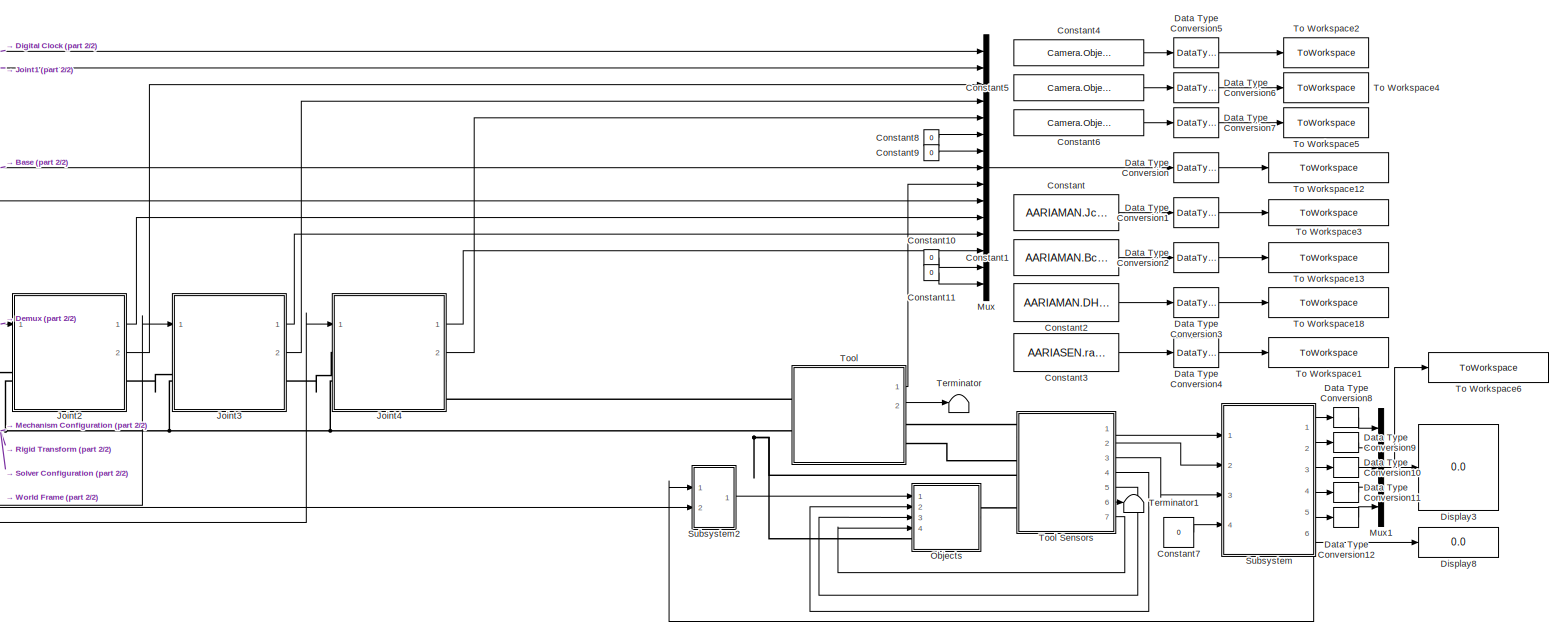
[diagram: root canvas - part 1/2, top center region]
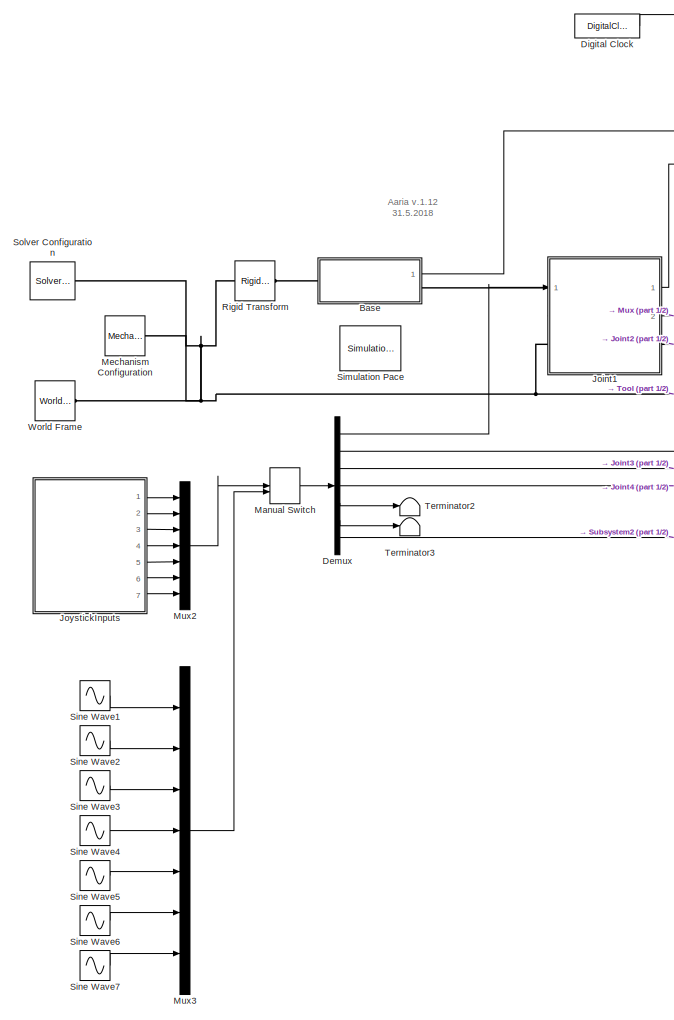
[diagram: root canvas - part 2/2, left side, full height]
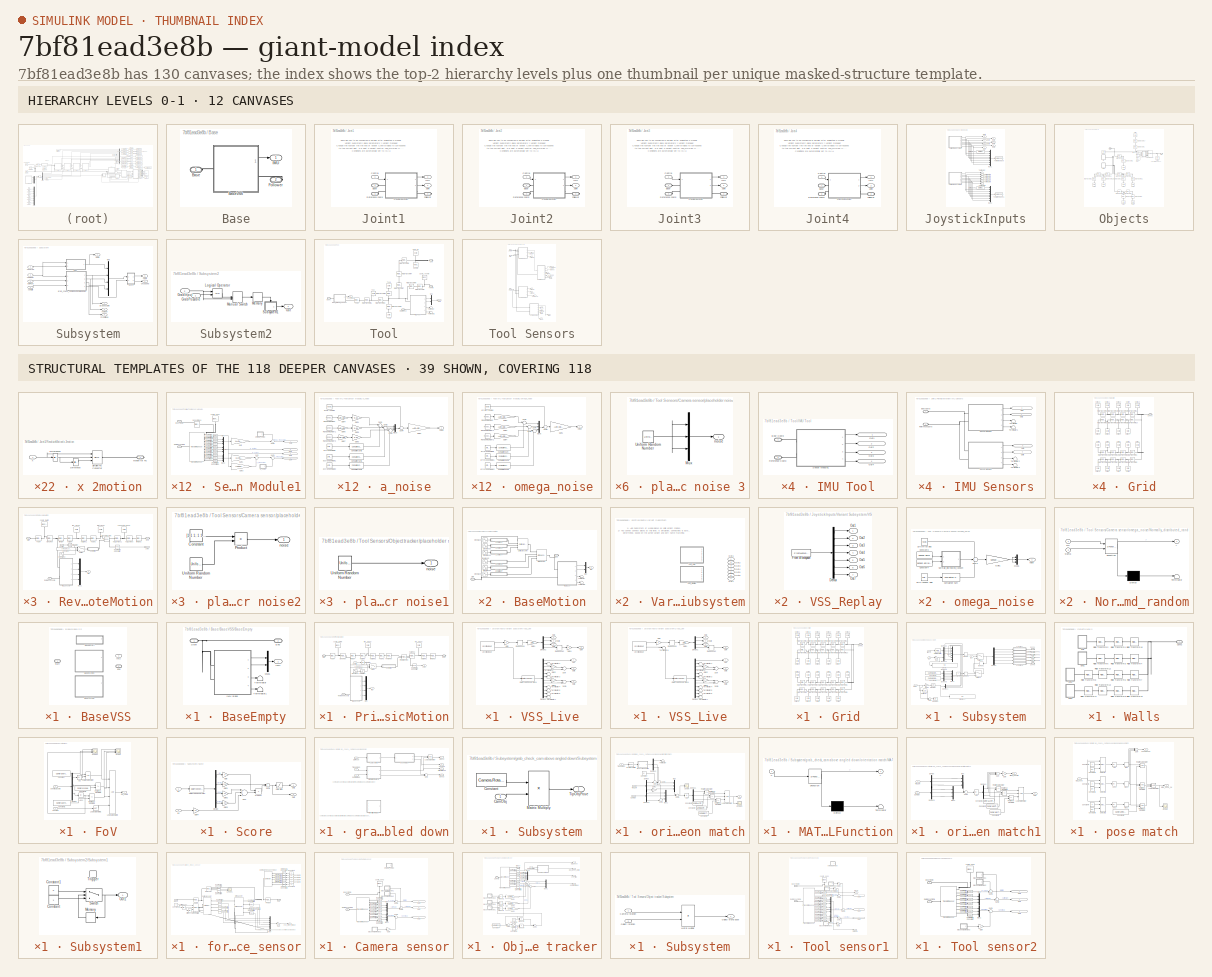
[diagram: thumbnail index - top-2 hierarchy levels (12 canvases) + 39 structural-template representatives of the remaining 118 canvases]
MODEL slx_7bf81ead3e8b
KIND model
CONFIG AbsTol = auto
CONFIG EnableMultiTasking = on
CONFIG FixedStep = 0.1
CONFIG MaxStep = auto
CONFIG MinStep = auto
CONFIG RelTol = 1e-3
CONFIG SampleTimeConstraint = Unconstrained
CONFIG Solver = VariableStepAuto
CONFIG SolverName = VariableStepAuto
CONFIG StartTime = 0.0
CONFIG StopTime = 10
WORKSPACE source: MATLAB code (in-file)
WORKSPACE my_a = 1
BLOCK [SubSystem] Base
  Ports = [0, 1, 0, 0, 0, 1, 1]
  RequestExecContextInheritance = off
  Variant = off
BLOCK [PMIOPort] Base/Base
  Port = 1
  Side = Left
BLOCK [SubSystem] Base/BaseVSS
  OverrideUsingVariant = VSS_MODE8 == 0
  Ports = [0, 1, 0, 0, 0, 1, 1]
  RequestExecContextInheritance = off
  Variant = on
BLOCK [SubSystem] Base/BaseVSS/BaseEmpty
  Ports = [0, 1, 0, 0, 0, 1, 1]
  RequestExecContextInheritance = off
  Variant = off
  VariantControl = VSS_MODE8 == 0
BLOCK [PMIOPort] Base/BaseVSS/BaseEmpty/End
  Port = 2
  Side = Right
BLOCK [Outport] Base/BaseVSS/BaseEmpty/IMU
  IconDisplay = Port number
BLOCK [SubSystem] Base/BaseVSS/BaseEmpty/IMU Base
  Ports = [0, 4, 0, 0, 0, 2]
  RequestExecContextInheritance = off
  Variant = off
BLOCK [PMIOPort] Base/BaseVSS/BaseEmpty/IMU Base/Body Coord
  Port = 1
  Side = Left
BLOCK [Outport] Base/BaseVSS/BaseEmpty/IMU Base/Out1
  IconDisplay = Signal name
BLOCK [Outport] Base/BaseVSS/BaseEmpty/IMU Base/Out2
  IconDisplay = Signal name
  Port = 2
BLOCK [Outport] Base/BaseVSS/BaseEmpty/IMU Base/Out3
  IconDisplay = Signal name
  Port = 3
BLOCK [Outport] Base/BaseVSS/BaseEmpty/IMU Base/Out4
  IconDisplay = Signal name
  Port = 4
BLOCK [PMIOPort] Base/BaseVSS/BaseEmpty/IMU Base/Reference Coord
  Port = 2
  Side = Left
BLOCK [SubSystem] Base/BaseVSS/BaseEmpty/IMU Base/Sensor Module1
  Ports = [0, 4, 0, 0, 0, 2]
  RequestExecContextInheritance = off
  Variant = off
BLOCK [PMIOPort] Base/BaseVSS/BaseEmpty/IMU Base/Sensor Module1/Body Frame
  Port = 1
  Side = Left
BLOCK [Gain] Base/BaseVSS/BaseEmpty/IMU Base/Sensor Module1/Gain
  Gain = 1/AARIAENV.Min_TS
  OutDataTypeStr = Inherit: Inherit via internal rule
  ParamDataTypeStr = Inherit: Inherit via internal rule
  SaturateOnIntegerOverflow = off
BLOCK [Gain] Base/BaseVSS/BaseEmpty/IMU Base/Sensor Module1/Gain1
  Gain = 1/AARIAENV.Min_TS^2
  OutDataTypeStr = Inherit: Inherit via internal rule
  ParamDataTypeStr = Inherit: Inherit via internal rule
  SaturateOnIntegerOverflow = off
BLOCK [Gain] Base/BaseVSS/BaseEmpty/IMU Base/Sensor Module1/Gain3
  Gain = AARIAENV.gravity
  Multiplication = Matrix(K*u)
  OutDataTypeStr = Inherit: Inherit via internal rule
  ParamDataTypeStr = Inherit: Inherit via internal rule
  SaturateOnIntegerOverflow = off
BLOCK [Mux] Base/BaseVSS/BaseEmpty/IMU Base/Sensor Module1/Mux
  DisplayOption = bar
  Inputs = 3
  Ports = [3, 1]
BLOCK [Mux] Base/BaseVSS/BaseEmpty/IMU Base/Sensor Module1/Mux1
  DisplayOption = bar
  Inputs = 3
  Ports = [3, 1]
BLOCK [Mux] Base/BaseVSS/BaseEmpty/IMU Base/Sensor Module1/Mux2
  DisplayOption = bar
  Inputs = 3
  Ports = [3, 1]
BLOCK [Outport] Base/BaseVSS/BaseEmpty/IMU Base/Sensor Module1/Out2
  IconDisplay = Signal name
  Port = 3
BLOCK [Outport] Base/BaseVSS/BaseEmpty/IMU Base/Sensor Module1/Out3
  IconDisplay = Signal name
  Port = 4
BLOCK [Outport] Base/BaseVSS/BaseEmpty/IMU Base/Sensor Module1/Out4
  IconDisplay = Signal name
  Port = 2
BLOCK [Outport] Base/BaseVSS/BaseEmpty/IMU Base/Sensor Module1/Out5
  IconDisplay = Signal name
BLOCK [Reference] Base/BaseVSS/BaseEmpty/IMU Base/Sensor Module1/PS-Simulink Converter10  REF=nesl_utility/PS-Simulink
Converter
  Ports = [0, 1, 0, 0, 0, 1]
  SourceBlock = nesl_utility/PS-Simulink\nConverter
  SourceProductBaseCode = SS
  SourceProductName = Simscape
  SourceType = PS-Simulink\nConverter
BLOCK [Reference] Base/BaseVSS/BaseEmpty/IMU Base/Sensor Module1/PS-Simulink Converter11  REF=nesl_utility/PS-Simulink
Converter
  Ports = [0, 1, 0, 0, 0, 1]
  SourceBlock = nesl_utility/PS-Simulink\nConverter
  SourceProductBaseCode = SS
  SourceProductName = Simscape
  SourceType = PS-Simulink\nConverter
BLOCK [Reference] Base/BaseVSS/BaseEmpty/IMU Base/Sensor Module1/PS-Simulink Converter2  REF=nesl_utility/PS-Simulink
Converter
  Ports = [0, 1, 0, 0, 0, 1]
  SourceBlock = nesl_utility/PS-Simulink\nConverter
  SourceProductBaseCode = SS
  SourceProductName = Simscape
  SourceType = PS-Simulink\nConverter
BLOCK [Reference] Base/BaseVSS/BaseEmpty/IMU Base/Sensor Module1/PS-Simulink Converter3  REF=nesl_utility/PS-Simulink
Converter
  Ports = [0, 1, 0, 0, 0, 1]
  SourceBlock = nesl_utility/PS-Simulink\nConverter
  SourceProductBaseCode = SS
  SourceProductName = Simscape
  SourceType = PS-Simulink\nConverter
BLOCK [Reference] Base/BaseVSS/BaseEmpty/IMU Base/Sensor Module1/PS-Simulink Converter4  REF=nesl_utility/PS-Simulink
Converter
  Ports = [0, 1, 0, 0, 0, 1]
  SourceBlock = nesl_utility/PS-Simulink\nConverter
  SourceProductBaseCode = SS
  SourceProductName = Simscape
  SourceType = PS-Simulink\nConverter
BLOCK [Reference] Base/BaseVSS/BaseEmpty/IMU Base/Sensor Module1/PS-Simulink Converter5  REF=nesl_utility/PS-Simulink
Converter
  Ports = [0, 1, 0, 0, 0, 1]
  SourceBlock = nesl_utility/PS-Simulink\nConverter
  SourceProductBaseCode = SS
  SourceProductName = Simscape
  SourceType = PS-Simulink\nConverter
BLOCK [Reference] Base/BaseVSS/BaseEmpty/IMU Base/Sensor Module1/PS-Simulink Converter6  REF=nesl_utility/PS-Simulink
Converter
  Ports = [0, 1, 0, 0, 0, 1]
  SourceBlock = nesl_utility/PS-Simulink\nConverter
  SourceProductBaseCode = SS
  SourceProductName = Simscape
  SourceType = PS-Simulink\nConverter
BLOCK [Reference] Base/BaseVSS/BaseEmpty/IMU Base/Sensor Module1/PS-Simulink Converter7  REF=nesl_utility/PS-Simulink
Converter
  Ports = [0, 1, 0, 0, 0, 1]
  SourceBlock = nesl_utility/PS-Simulink\nConverter
  SourceProductBaseCode = SS
  SourceProductName = Simscape
  SourceType = PS-Simulink\nConverter
BLOCK [Reference] Base/BaseVSS/BaseEmpty/IMU Base/Sensor Module1/PS-Simulink Converter8  REF=nesl_utility/PS-Simulink
Converter
  Ports = [0, 1, 0, 0, 0, 1]
  SourceBlock = nesl_utility/PS-Simulink\nConverter
  SourceProductBaseCode = SS
  SourceProductName = Simscape
  SourceType = PS-Simulink\nConverter
BLOCK [Reference] Base/BaseVSS/BaseEmpty/IMU Base/Sensor Module1/PS-Simulink Converter9  REF=nesl_utility/PS-Simulink
Converter
  Ports = [0, 1, 0, 0, 0, 1]
  SourceBlock = nesl_utility/PS-Simulink\nConverter
  SourceProductBaseCode = SS
  SourceProductName = Simscape
  SourceType = PS-Simulink\nConverter
BLOCK [PMIOPort] Base/BaseVSS/BaseEmpty/IMU Base/Sensor Module1/Reference Frame
  Port = 2
  Side = Left
BLOCK [Reference] Base/BaseVSS/BaseEmpty/IMU Base/Sensor Module1/Sensor Place  REF=sm_lib/Frames and
Transforms/Rigid
Transform
  Ports = [0, 0, 0, 0, 0, 1, 1]
  SourceBlock = sm_lib/Frames and\nTransforms/Rigid\nTransform
  SourceProductBaseCode = MS
  SourceProductName = Simscape Multibody
  SourceType = Rigid\nTransform
BLOCK [Sum] Base/BaseVSS/BaseEmpty/IMU Base/Sensor Module1/Sum
  IconShape = round
  InputSameDT = off
  Inputs = |++
  OutDataTypeStr = Inherit: Inherit via internal rule
  Ports = [2, 1]
  SaturateOnIntegerOverflow = off
BLOCK [Sum] Base/BaseVSS/BaseEmpty/IMU Base/Sensor Module1/Sum1
  IconShape = round
  InputSameDT = off
  Inputs = |++
  OutDataTypeStr = Inherit: Inherit via internal rule
  Ports = [2, 1]
  SaturateOnIntegerOverflow = off
BLOCK [Sum] Base/BaseVSS/BaseEmpty/IMU Base/Sensor Module1/Sum2
  IconShape = round
  InputSameDT = off
  Inputs = ++|
  OutDataTypeStr = Inherit: Inherit via internal rule
  Ports = [2, 1]
  SaturateOnIntegerOverflow = off
BLOCK [Reference] Base/BaseVSS/BaseEmpty/IMU Base/Sensor Module1/Transform Sensor  REF=sm_lib/Frames and
Transforms/Transform
Sensor
  Ports = [0, 0, 0, 0, 0, 1, 11]
  SourceBlock = sm_lib/Frames and\nTransforms/Transform\nSensor
  SourceProductBaseCode = MS
  SourceProductName = Simscape Multibody
  SourceType = Transform\nSensor
BLOCK [SubSystem] Base/BaseVSS/BaseEmpty/IMU Base/Sensor Module1/a_noise
  Ports = [0, 1]
  RequestExecContextInheritance = off
  Variant = off
BLOCK [Reference] Base/BaseVSS/BaseEmpty/IMU Base/Sensor Module1/a_noise/Cumulative Sum1  REF=dspmathops/Cumulative
Sum
  Ports = [1, 1]
  SourceBlock = dspmathops/Cumulative\nSum
  SourceProductBaseCode = DS
  SourceProductName = DSP System Toolbox
  SourceType = Cumulative Sum
  UserDataPersistent = on
BLOCK [Reference] Base/BaseVSS/BaseEmpty/IMU Base/Sensor Module1/a_noise/Cumulative Sum2  REF=dspmathops/Cumulative
Sum
  Ports = [1, 1]
  SourceBlock = dspmathops/Cumulative\nSum
  SourceProductBaseCode = DS
  SourceProductName = DSP System Toolbox
  SourceType = Cumulative Sum
  UserDataPersistent = on
BLOCK [Reference] Base/BaseVSS/BaseEmpty/IMU Base/Sensor Module1/a_noise/Cumulative Sum3  REF=dspmathops/Cumulative
Sum
  Ports = [1, 1]
  SourceBlock = dspmathops/Cumulative\nSum
  SourceProductBaseCode = DS
  SourceProductName = DSP System Toolbox
  SourceType = Cumulative Sum
  UserDataPersistent = on
BLOCK [Gain] Base/BaseVSS/BaseEmpty/IMU Base/Sensor Module1/a_noise/Gain1
  Gain = 9.81
  OutDataTypeStr = Inherit: Inherit via internal rule
  ParamDataTypeStr = Inherit: Inherit via internal rule
  SaturateOnIntegerOverflow = off
BLOCK [Gain] Base/BaseVSS/BaseEmpty/IMU Base/Sensor Module1/a_noise/Gain2
  Gain = AARIASEN.ErrorGain
  OutDataTypeStr = Inherit: Inherit via internal rule
  ParamDataTypeStr = Inherit: Inherit via internal rule
  SaturateOnIntegerOverflow = off
BLOCK [Gain] Base/BaseVSS/BaseEmpty/IMU Base/Sensor Module1/a_noise/Gain3
  Gain = 9.81
  OutDataTypeStr = Inherit: Inherit via internal rule
  ParamDataTypeStr = Inherit: Inherit via internal rule
  SaturateOnIntegerOverflow = off
BLOCK [Gain] Base/BaseVSS/BaseEmpty/IMU Base/Sensor Module1/a_noise/Gain4
  Gain = AARIASEN.aNormalGain
  OutDataTypeStr = Inherit: Inherit via internal rule
  ParamDataTypeStr = Inherit: Inherit via internal rule
  SaturateOnIntegerOverflow = off
BLOCK [Gain] Base/BaseVSS/BaseEmpty/IMU Base/Sensor Module1/a_noise/Gain5
  Gain = 9.81
  OutDataTypeStr = Inherit: Inherit via internal rule
  ParamDataTypeStr = Inherit: Inherit via internal rule
  SaturateOnIntegerOverflow = off
BLOCK [Gain] Base/BaseVSS/BaseEmpty/IMU Base/Sensor Module1/a_noise/Gain6
  Gain = AARIASEN.aNormalGain
  OutDataTypeStr = Inherit: Inherit via internal rule
  ParamDataTypeStr = Inherit: Inherit via internal rule
  SaturateOnIntegerOverflow = off
BLOCK [Gain] Base/BaseVSS/BaseEmpty/IMU Base/Sensor Module1/a_noise/Gain7
  Gain = AARIASEN.aNormalGain
  OutDataTypeStr = Inherit: Inherit via internal rule
  ParamDataTypeStr = Inherit: Inherit via internal rule
  SaturateOnIntegerOverflow = off
BLOCK [Mux] Base/BaseVSS/BaseEmpty/IMU Base/Sensor Module1/a_noise/Mux5
  DisplayOption = bar
  Inputs = 3
  Ports = [3, 1]
BLOCK [RandomNumber] Base/BaseVSS/BaseEmpty/IMU Base/Sensor Module1/a_noise/Random Number
  Mean = AARIASEN.aMu
  SampleTime = AARIAENV.Source_TS
  Seed = AARIASEN.rand(nL,(nS-1)*6+4)
  Variance = AARIASEN.aSigma
BLOCK [RandomNumber] Base/BaseVSS/BaseEmpty/IMU Base/Sensor Module1/a_noise/Random Number1
  Mean = AARIASEN.aMu
  SampleTime = AARIAENV.Source_TS
  Seed = AARIASEN.rand(nL,(nS-1)*6+5)
  Variance = AARIASEN.aSigma
BLOCK [RandomNumber] Base/BaseVSS/BaseEmpty/IMU Base/Sensor Module1/a_noise/Random Number2
  Mean = AARIASEN.aMu
  SampleTime = AARIAENV.Source_TS
  Seed = AARIASEN.rand(nL,(nS-1)*6+6)
  Variance = AARIASEN.aSigma
BLOCK [Sum] Base/BaseVSS/BaseEmpty/IMU Base/Sensor Module1/a_noise/Sum1
  IconShape = round
  InputSameDT = off
  Inputs = |++
  OutDataTypeStr = Inherit: Inherit via internal rule
  Ports = [2, 1]
  SaturateOnIntegerOverflow = off
BLOCK [Sum] Base/BaseVSS/BaseEmpty/IMU Base/Sensor Module1/a_noise/Sum2
  IconShape = round
  InputSameDT = off
  Inputs = |++
  OutDataTypeStr = Inherit: Inherit via internal rule
  Ports = [2, 1]
  SaturateOnIntegerOverflow = off
BLOCK [Sum] Base/BaseVSS/BaseEmpty/IMU Base/Sensor Module1/a_noise/Sum3
  IconShape = round
  InputSameDT = off
  Inputs = |++
  OutDataTypeStr = Inherit: Inherit via internal rule
  Ports = [2, 1]
  SaturateOnIntegerOverflow = off
BLOCK [Sum] Base/BaseVSS/BaseEmpty/IMU Base/Sensor Module1/a_noise/Sum4
  IconShape = round
  InputSameDT = off
  Inputs = ++|
  OutDataTypeStr = Inherit: Inherit via internal rule
  Ports = [2, 1]
  SaturateOnIntegerOverflow = off
BLOCK [Reference] Base/BaseVSS/BaseEmpty/IMU Base/Sensor Module1/a_noise/acc in-run bias  REF=simulink/Sources/Ramp
  Ports = [0, 1]
  SourceBlock = simulink/Sources/Ramp
  SourceProductBaseCode = SL
  SourceProductName = Simulink
  SourceType = Ramp
BLOCK [UniformRandomNumber] Base/BaseVSS/BaseEmpty/IMU Base/Sensor Module1/a_noise/acc random walk
  Maximum = AARIASEN.aWalk
  Minimum = -AARIASEN.aWalk
  SampleTime = AARIAENV.Source_TS
  Seed = AARIASEN.rand(nL,(nS-1)*6+4)
BLOCK [UniformRandomNumber] Base/BaseVSS/BaseEmpty/IMU Base/Sensor Module1/a_noise/acc random walk1
  Maximum = AARIASEN.aWalk
  Minimum = -AARIASEN.aWalk
  SampleTime = AARIAENV.Source_TS
  Seed = AARIASEN.rand(nL,(nS-1)*6+5)
BLOCK [UniformRandomNumber] Base/BaseVSS/BaseEmpty/IMU Base/Sensor Module1/a_noise/acc random walk2
  Maximum = AARIASEN.aWalk
  Minimum = -AARIASEN.aWalk
  SampleTime = AARIAENV.Source_TS
  Seed = AARIASEN.rand(nL,(nS-1)*6+6)
BLOCK [Outport] Base/BaseVSS/BaseEmpty/IMU Base/Sensor Module1/a_noise/noise
  IconDisplay = Port number
BLOCK [Reference] Base/BaseVSS/BaseEmpty/IMU Base/Sensor Module1/coord_sens  REF=sm_lib/Body Elements/Graphic
  Ports = [0, 0, 0, 0, 0, 0, 1]
  SourceBlock = sm_lib/Body Elements/Graphic
  SourceProductBaseCode = MS
  SourceProductName = Simscape Multibody
  SourceType = Graphic
BLOCK [SubSystem] Base/BaseVSS/BaseEmpty/IMU Base/Sensor Module1/omega_noise
  Ports = [0, 1]
  RequestExecContextInheritance = off
  Variant = off
BLOCK [Reference] Base/BaseVSS/BaseEmpty/IMU Base/Sensor Module1/omega_noise/Cumulative Sum  REF=dspmathops/Cumulative
Sum
  Ports = [1, 1]
  SourceBlock = dspmathops/Cumulative\nSum
  SourceProductBaseCode = DS
  SourceProductName = DSP System Toolbox
  SourceType = Cumulative Sum
  UserDataPersistent = on
BLOCK [Reference] Base/BaseVSS/BaseEmpty/IMU Base/Sensor Module1/omega_noise/Cumulative Sum1  REF=dspmathops/Cumulative
Sum
  Ports = [1, 1]
  SourceBlock = dspmathops/Cumulative\nSum
  SourceProductBaseCode = DS
  SourceProductName = DSP System Toolbox
  SourceType = Cumulative Sum
  UserDataPersistent = on
BLOCK [Reference] Base/BaseVSS/BaseEmpty/IMU Base/Sensor Module1/omega_noise/Cumulative Sum2  REF=dspmathops/Cumulative
Sum
  Ports = [1, 1]
  SourceBlock = dspmathops/Cumulative\nSum
  SourceProductBaseCode = DS
  SourceProductName = DSP System Toolbox
  SourceType = Cumulative Sum
  UserDataPersistent = on
BLOCK [Gain] Base/BaseVSS/BaseEmpty/IMU Base/Sensor Module1/omega_noise/Gain1
  Gain = AARIASEN.ErrorGain
  OutDataTypeStr = Inherit: Inherit via internal rule
  ParamDataTypeStr = Inherit: Inherit via internal rule
  SaturateOnIntegerOverflow = off
BLOCK [Gain] Base/BaseVSS/BaseEmpty/IMU Base/Sensor Module1/omega_noise/Gain2
  Gain = AARIASEN.gNormalGain
  OutDataTypeStr = Inherit: Inherit via internal rule
  ParamDataTypeStr = Inherit: Inherit via internal rule
  SaturateOnIntegerOverflow = off
BLOCK [Gain] Base/BaseVSS/BaseEmpty/IMU Base/Sensor Module1/omega_noise/Gain3
  Gain = AARIASEN.gNormalGain
  OutDataTypeStr = Inherit: Inherit via internal rule
  ParamDataTypeStr = Inherit: Inherit via internal rule
  SaturateOnIntegerOverflow = off
BLOCK [Gain] Base/BaseVSS/BaseEmpty/IMU Base/Sensor Module1/omega_noise/Gain4
  Gain = AARIASEN.gNormalGain
  OutDataTypeStr = Inherit: Inherit via internal rule
  ParamDataTypeStr = Inherit: Inherit via internal rule
  SaturateOnIntegerOverflow = off
BLOCK [Mux] Base/BaseVSS/BaseEmpty/IMU Base/Sensor Module1/omega_noise/Mux5
  DisplayOption = bar
  Inputs = 3
  Ports = [3, 1]
BLOCK [RandomNumber] Base/BaseVSS/BaseEmpty/IMU Base/Sensor Module1/omega_noise/Random Number
  Mean = AARIASEN.gMu
  SampleTime = AARIAENV.Source_TS
  Seed = AARIASEN.rand(nL,(nS-1)*6+1)
  Variance = AARIASEN.gSigma
BLOCK [RandomNumber] Base/BaseVSS/BaseEmpty/IMU Base/Sensor Module1/omega_noise/Random Number1
  Mean = AARIASEN.gMu
  SampleTime = AARIAENV.Source_TS
  Seed = AARIASEN.rand(nL,(nS-1)*6+2)
  Variance = AARIASEN.gSigma
BLOCK [RandomNumber] Base/BaseVSS/BaseEmpty/IMU Base/Sensor Module1/omega_noise/Random Number2
  Mean = AARIASEN.gMu
  SampleTime = AARIAENV.Source_TS
  Seed = AARIASEN.rand(nL,(nS-1)*6+3)
  Variance = AARIASEN.gSigma
BLOCK [Sum] Base/BaseVSS/BaseEmpty/IMU Base/Sensor Module1/omega_noise/Sum1
  IconShape = round
  InputSameDT = off
  Inputs = |++
  OutDataTypeStr = Inherit: Inherit via internal rule
  Ports = [2, 1]
  SaturateOnIntegerOverflow = off
BLOCK [Sum] Base/BaseVSS/BaseEmpty/IMU Base/Sensor Module1/omega_noise/Sum2
  IconShape = round
  InputSameDT = off
  Inputs = |++
  OutDataTypeStr = Inherit: Inherit via internal rule
  Ports = [2, 1]
  SaturateOnIntegerOverflow = off
BLOCK [Sum] Base/BaseVSS/BaseEmpty/IMU Base/Sensor Module1/omega_noise/Sum3
  IconShape = round
  InputSameDT = off
  Inputs = ++|
  OutDataTypeStr = Inherit: Inherit via internal rule
  Ports = [2, 1]
  SaturateOnIntegerOverflow = off
BLOCK [Sum] Base/BaseVSS/BaseEmpty/IMU Base/Sensor Module1/omega_noise/Sum4
  IconShape = round
  InputSameDT = off
  Inputs = |++
  OutDataTypeStr = Inherit: Inherit via internal rule
  Ports = [2, 1]
  SaturateOnIntegerOverflow = off
BLOCK [Reference] Base/BaseVSS/BaseEmpty/IMU Base/Sensor Module1/omega_noise/gyro in-run bias  REF=simulink/Sources/Ramp
  Ports = [0, 1]
  SourceBlock = simulink/Sources/Ramp
  SourceProductBaseCode = SL
  SourceProductName = Simulink
  SourceType = Ramp
BLOCK [UniformRandomNumber] Base/BaseVSS/BaseEmpty/IMU Base/Sensor Module1/omega_noise/gyro random walk
  Maximum = AARIASEN.gWalk
  Minimum = -AARIASEN.gWalk
  SampleTime = AARIAENV.Source_TS
  Seed = AARIASEN.rand(nL,(nS-1)*6+1)
BLOCK [UniformRandomNumber] Base/BaseVSS/BaseEmpty/IMU Base/Sensor Module1/omega_noise/gyro random walk1
  Maximum = AARIASEN.gWalk
  Minimum = -AARIASEN.gWalk
  SampleTime = AARIAENV.Source_TS
  Seed = AARIASEN.rand(nL,(nS-1)*6+2)
BLOCK [UniformRandomNumber] Base/BaseVSS/BaseEmpty/IMU Base/Sensor Module1/omega_noise/gyro random walk2
  Maximum = AARIASEN.gWalk
  Minimum = -AARIASEN.gWalk
  SampleTime = AARIAENV.Source_TS
  Seed = AARIASEN.rand(nL,(nS-1)*6+3)
BLOCK [Outport] Base/BaseVSS/BaseEmpty/IMU Base/Sensor Module1/omega_noise/noise
  IconDisplay = Port number
BLOCK [Mux] Base/BaseVSS/BaseEmpty/Mux1
  DisplayOption = bar
  Inputs = 2
  Ports = [2, 1]
BLOCK [PMIOPort] Base/BaseVSS/BaseEmpty/Start
  Port = 1
  Side = Left
BLOCK [Terminator] Base/BaseVSS/BaseEmpty/Terminator
BLOCK [Terminator] Base/BaseVSS/BaseEmpty/Terminator1
BLOCK [SubSystem] Base/BaseVSS/BaseMotion
  Ports = [0, 1, 0, 0, 0, 1, 1]
  RequestExecContextInheritance = off
  Variant = off
  VariantControl = VSS_MODE8 == 1
BLOCK [Reference] Base/BaseVSS/BaseMotion/Cartesian Joint  REF=sm_lib/Joints/Cartesian
Joint
  Ports = [0, 0, 0, 0, 0, 4, 1]
  SourceBlock = sm_lib/Joints/Cartesian\nJoint
  SourceProductBaseCode = MS
  SourceProductName = Simscape Multibody
  SourceType = Cartesian\nJoint
BLOCK [PMIOPort] Base/BaseVSS/BaseMotion/End
  Port = 2
  Side = Right
BLOCK [Reference] Base/BaseVSS/BaseMotion/Gimbal Joint  REF=sm_lib/Joints/Gimbal Joint
  Ports = [0, 0, 0, 0, 0, 4, 1]
  SourceBlock = sm_lib/Joints/Gimbal Joint
  SourceProductBaseCode = MS
  SourceProductName = Simscape Multibody
  SourceType = Gimbal Joint
BLOCK [Outport] Base/BaseVSS/BaseMotion/IMU
  IconDisplay = Port number
BLOCK [SubSystem] Base/BaseVSS/BaseMotion/IMU Base
  Ports = [0, 4, 0, 0, 0, 2]
  RequestExecContextInheritance = off
  Variant = off
BLOCK [PMIOPort] Base/BaseVSS/BaseMotion/IMU Base/Body Coord
  Port = 1
  Side = Left
BLOCK [Outport] Base/BaseVSS/BaseMotion/IMU Base/Out1
  IconDisplay = Signal name
BLOCK [Outport] Base/BaseVSS/BaseMotion/IMU Base/Out2
  IconDisplay = Signal name
  Port = 2
BLOCK [Outport] Base/BaseVSS/BaseMotion/IMU Base/Out3
  IconDisplay = Signal name
  Port = 3
BLOCK [Outport] Base/BaseVSS/BaseMotion/IMU Base/Out4
  IconDisplay = Signal name
  Port = 4
BLOCK [PMIOPort] Base/BaseVSS/BaseMotion/IMU Base/Reference Coord
  Port = 2
  Side = Left
BLOCK [SubSystem] Base/BaseVSS/BaseMotion/IMU Base/Sensor Module1
  Ports = [0, 4, 0, 0, 0, 2]
  RequestExecContextInheritance = off
  Variant = off
BLOCK [PMIOPort] Base/BaseVSS/BaseMotion/IMU Base/Sensor Module1/Body Frame
  Port = 1
  Side = Left
BLOCK [Gain] Base/BaseVSS/BaseMotion/IMU Base/Sensor Module1/Gain
  Gain = 1/AARIAENV.Min_TS
  OutDataTypeStr = Inherit: Inherit via internal rule
  ParamDataTypeStr = Inherit: Inherit via internal rule
  SaturateOnIntegerOverflow = off
BLOCK [Gain] Base/BaseVSS/BaseMotion/IMU Base/Sensor Module1/Gain1
  Gain = 1/AARIAENV.Min_TS^2
  OutDataTypeStr = Inherit: Inherit via internal rule
  ParamDataTypeStr = Inherit: Inherit via internal rule
  SaturateOnIntegerOverflow = off
BLOCK [Gain] Base/BaseVSS/BaseMotion/IMU Base/Sensor Module1/Gain3
  Gain = AARIAENV.gravity
  Multiplication = Matrix(K*u)
  OutDataTypeStr = Inherit: Inherit via internal rule
  ParamDataTypeStr = Inherit: Inherit via internal rule
  SaturateOnIntegerOverflow = off
BLOCK [Mux] Base/BaseVSS/BaseMotion/IMU Base/Sensor Module1/Mux
  DisplayOption = bar
  Inputs = 3
  Ports = [3, 1]
BLOCK [Mux] Base/BaseVSS/BaseMotion/IMU Base/Sensor Module1/Mux1
  DisplayOption = bar
  Inputs = 3
  Ports = [3, 1]
BLOCK [Mux] Base/BaseVSS/BaseMotion/IMU Base/Sensor Module1/Mux2
  DisplayOption = bar
  Inputs = 3
  Ports = [3, 1]
BLOCK [Outport] Base/BaseVSS/BaseMotion/IMU Base/Sensor Module1/Out2
  IconDisplay = Signal name
  Port = 3
BLOCK [Outport] Base/BaseVSS/BaseMotion/IMU Base/Sensor Module1/Out3
  IconDisplay = Signal name
  Port = 4
BLOCK [Outport] Base/BaseVSS/BaseMotion/IMU Base/Sensor Module1/Out4
  IconDisplay = Signal name
  Port = 2
BLOCK [Outport] Base/BaseVSS/BaseMotion/IMU Base/Sensor Module1/Out5
  IconDisplay = Signal name
BLOCK [Reference] Base/BaseVSS/BaseMotion/IMU Base/Sensor Module1/PS-Simulink Converter10  REF=nesl_utility/PS-Simulink
Converter
  Ports = [0, 1, 0, 0, 0, 1]
  SourceBlock = nesl_utility/PS-Simulink\nConverter
  SourceProductBaseCode = SS
  SourceProductName = Simscape
  SourceType = PS-Simulink\nConverter
BLOCK [Reference] Base/BaseVSS/BaseMotion/IMU Base/Sensor Module1/PS-Simulink Converter11  REF=nesl_utility/PS-Simulink
Converter
  Ports = [0, 1, 0, 0, 0, 1]
  SourceBlock = nesl_utility/PS-Simulink\nConverter
  SourceProductBaseCode = SS
  SourceProductName = Simscape
  SourceType = PS-Simulink\nConverter
BLOCK [Reference] Base/BaseVSS/BaseMotion/IMU Base/Sensor Module1/PS-Simulink Converter2  REF=nesl_utility/PS-Simulink
Converter
  Ports = [0, 1, 0, 0, 0, 1]
  SourceBlock = nesl_utility/PS-Simulink\nConverter
  SourceProductBaseCode = SS
  SourceProductName = Simscape
  SourceType = PS-Simulink\nConverter
BLOCK [Reference] Base/BaseVSS/BaseMotion/IMU Base/Sensor Module1/PS-Simulink Converter3  REF=nesl_utility/PS-Simulink
Converter
  Ports = [0, 1, 0, 0, 0, 1]
  SourceBlock = nesl_utility/PS-Simulink\nConverter
  SourceProductBaseCode = SS
  SourceProductName = Simscape
  SourceType = PS-Simulink\nConverter
BLOCK [Reference] Base/BaseVSS/BaseMotion/IMU Base/Sensor Module1/PS-Simulink Converter4  REF=nesl_utility/PS-Simulink
Converter
  Ports = [0, 1, 0, 0, 0, 1]
  SourceBlock = nesl_utility/PS-Simulink\nConverter
  SourceProductBaseCode = SS
  SourceProductName = Simscape
  SourceType = PS-Simulink\nConverter
BLOCK [Reference] Base/BaseVSS/BaseMotion/IMU Base/Sensor Module1/PS-Simulink Converter5  REF=nesl_utility/PS-Simulink
Converter
  Ports = [0, 1, 0, 0, 0, 1]
  SourceBlock = nesl_utility/PS-Simulink\nConverter
  SourceProductBaseCode = SS
  SourceProductName = Simscape
  SourceType = PS-Simulink\nConverter
BLOCK [Reference] Base/BaseVSS/BaseMotion/IMU Base/Sensor Module1/PS-Simulink Converter6  REF=nesl_utility/PS-Simulink
Converter
  Ports = [0, 1, 0, 0, 0, 1]
  SourceBlock = nesl_utility/PS-Simulink\nConverter
  SourceProductBaseCode = SS
  SourceProductName = Simscape
  SourceType = PS-Simulink\nConverter
BLOCK [Reference] Base/BaseVSS/BaseMotion/IMU Base/Sensor Module1/PS-Simulink Converter7  REF=nesl_utility/PS-Simulink
Converter
  Ports = [0, 1, 0, 0, 0, 1]
  SourceBlock = nesl_utility/PS-Simulink\nConverter
  SourceProductBaseCode = SS
  SourceProductName = Simscape
  SourceType = PS-Simulink\nConverter
BLOCK [Reference] Base/BaseVSS/BaseMotion/IMU Base/Sensor Module1/PS-Simulink Converter8  REF=nesl_utility/PS-Simulink
Converter
  Ports = [0, 1, 0, 0, 0, 1]
  SourceBlock = nesl_utility/PS-Simulink\nConverter
  SourceProductBaseCode = SS
  SourceProductName = Simscape
  SourceType = PS-Simulink\nConverter
BLOCK [Reference] Base/BaseVSS/BaseMotion/IMU Base/Sensor Module1/PS-Simulink Converter9  REF=nesl_utility/PS-Simulink
Converter
  Ports = [0, 1, 0, 0, 0, 1]
  SourceBlock = nesl_utility/PS-Simulink\nConverter
  SourceProductBaseCode = SS
  SourceProductName = Simscape
  SourceType = PS-Simulink\nConverter
BLOCK [PMIOPort] Base/BaseVSS/BaseMotion/IMU Base/Sensor Module1/Reference Frame
  Port = 2
  Side = Left
BLOCK [Reference] Base/BaseVSS/BaseMotion/IMU Base/Sensor Module1/Sensor Place  REF=sm_lib/Frames and
Transforms/Rigid
Transform
  Ports = [0, 0, 0, 0, 0, 1, 1]
  SourceBlock = sm_lib/Frames and\nTransforms/Rigid\nTransform
  SourceProductBaseCode = MS
  SourceProductName = Simscape Multibody
  SourceType = Rigid\nTransform
BLOCK [Sum] Base/BaseVSS/BaseMotion/IMU Base/Sensor Module1/Sum
  IconShape = round
  InputSameDT = off
  Inputs = |++
  OutDataTypeStr = Inherit: Inherit via internal rule
  Ports = [2, 1]
  SaturateOnIntegerOverflow = off
BLOCK [Sum] Base/BaseVSS/BaseMotion/IMU Base/Sensor Module1/Sum1
  IconShape = round
  InputSameDT = off
  Inputs = |++
  OutDataTypeStr = Inherit: Inherit via internal rule
  Ports = [2, 1]
  SaturateOnIntegerOverflow = off
BLOCK [Sum] Base/BaseVSS/BaseMotion/IMU Base/Sensor Module1/Sum2
  IconShape = round
  InputSameDT = off
  Inputs = ++|
  OutDataTypeStr = Inherit: Inherit via internal rule
  Ports = [2, 1]
  SaturateOnIntegerOverflow = off
BLOCK [Reference] Base/BaseVSS/BaseMotion/IMU Base/Sensor Module1/Transform Sensor  REF=sm_lib/Frames and
Transforms/Transform
Sensor
  Ports = [0, 0, 0, 0, 0, 1, 11]
  SourceBlock = sm_lib/Frames and\nTransforms/Transform\nSensor
  SourceProductBaseCode = MS
  SourceProductName = Simscape Multibody
  SourceType = Transform\nSensor
BLOCK [SubSystem] Base/BaseVSS/BaseMotion/IMU Base/Sensor Module1/a_noise
  Ports = [0, 1]
  RequestExecContextInheritance = off
  Variant = off
BLOCK [Reference] Base/BaseVSS/BaseMotion/IMU Base/Sensor Module1/a_noise/Cumulative Sum1  REF=dspmathops/Cumulative
Sum
  Ports = [1, 1]
  SourceBlock = dspmathops/Cumulative\nSum
  SourceProductBaseCode = DS
  SourceProductName = DSP System Toolbox
  SourceType = Cumulative Sum
  UserDataPersistent = on
BLOCK [Reference] Base/BaseVSS/BaseMotion/IMU Base/Sensor Module1/a_noise/Cumulative Sum2  REF=dspmathops/Cumulative
Sum
  Ports = [1, 1]
  SourceBlock = dspmathops/Cumulative\nSum
  SourceProductBaseCode = DS
  SourceProductName = DSP System Toolbox
  SourceType = Cumulative Sum
  UserDataPersistent = on
BLOCK [Reference] Base/BaseVSS/BaseMotion/IMU Base/Sensor Module1/a_noise/Cumulative Sum3  REF=dspmathops/Cumulative
Sum
  Ports = [1, 1]
  SourceBlock = dspmathops/Cumulative\nSum
  SourceProductBaseCode = DS
  SourceProductName = DSP System Toolbox
  SourceType = Cumulative Sum
  UserDataPersistent = on
BLOCK [Gain] Base/BaseVSS/BaseMotion/IMU Base/Sensor Module1/a_noise/Gain1
  Gain = 9.81
  OutDataTypeStr = Inherit: Inherit via internal rule
  ParamDataTypeStr = Inherit: Inherit via internal rule
  SaturateOnIntegerOverflow = off
BLOCK [Gain] Base/BaseVSS/BaseMotion/IMU Base/Sensor Module1/a_noise/Gain2
  Gain = AARIASEN.ErrorGain
  OutDataTypeStr = Inherit: Inherit via internal rule
  ParamDataTypeStr = Inherit: Inherit via internal rule
  SaturateOnIntegerOverflow = off
BLOCK [Gain] Base/BaseVSS/BaseMotion/IMU Base/Sensor Module1/a_noise/Gain3
  Gain = 9.81
  OutDataTypeStr = Inherit: Inherit via internal rule
  ParamDataTypeStr = Inherit: Inherit via internal rule
  SaturateOnIntegerOverflow = off
BLOCK [Gain] Base/BaseVSS/BaseMotion/IMU Base/Sensor Module1/a_noise/Gain4
  Gain = AARIASEN.aNormalGain
  OutDataTypeStr = Inherit: Inherit via internal rule
  ParamDataTypeStr = Inherit: Inherit via internal rule
  SaturateOnIntegerOverflow = off
BLOCK [Gain] Base/BaseVSS/BaseMotion/IMU Base/Sensor Module1/a_noise/Gain5
  Gain = 9.81
  OutDataTypeStr = Inherit: Inherit via internal rule
  ParamDataTypeStr = Inherit: Inherit via internal rule
  SaturateOnIntegerOverflow = off
BLOCK [Gain] Base/BaseVSS/BaseMotion/IMU Base/Sensor Module1/a_noise/Gain6
  Gain = AARIASEN.aNormalGain
  OutDataTypeStr = Inherit: Inherit via internal rule
  ParamDataTypeStr = Inherit: Inherit via internal rule
  SaturateOnIntegerOverflow = off
BLOCK [Gain] Base/BaseVSS/BaseMotion/IMU Base/Sensor Module1/a_noise/Gain7
  Gain = AARIASEN.aNormalGain
  OutDataTypeStr = Inherit: Inherit via internal rule
  ParamDataTypeStr = Inherit: Inherit via internal rule
  SaturateOnIntegerOverflow = off
BLOCK [Mux] Base/BaseVSS/BaseMotion/IMU Base/Sensor Module1/a_noise/Mux5
  DisplayOption = bar
  Inputs = 3
  Ports = [3, 1]
BLOCK [RandomNumber] Base/BaseVSS/BaseMotion/IMU Base/Sensor Module1/a_noise/Random Number
  Mean = AARIASEN.aMu
  SampleTime = AARIAENV.Source_TS
  Seed = AARIASEN.rand(nL,(nS-1)*6+4)
  Variance = AARIASEN.aSigma
BLOCK [RandomNumber] Base/BaseVSS/BaseMotion/IMU Base/Sensor Module1/a_noise/Random Number1
  Mean = AARIASEN.aMu
  SampleTime = AARIAENV.Source_TS
  Seed = AARIASEN.rand(nL,(nS-1)*6+5)
  Variance = AARIASEN.aSigma
BLOCK [RandomNumber] Base/BaseVSS/BaseMotion/IMU Base/Sensor Module1/a_noise/Random Number2
  Mean = AARIASEN.aMu
  SampleTime = AARIAENV.Source_TS
  Seed = AARIASEN.rand(nL,(nS-1)*6+6)
  Variance = AARIASEN.aSigma
BLOCK [Sum] Base/BaseVSS/BaseMotion/IMU Base/Sensor Module1/a_noise/Sum1
  IconShape = round
  InputSameDT = off
  Inputs = |++
  OutDataTypeStr = Inherit: Inherit via internal rule
  Ports = [2, 1]
  SaturateOnIntegerOverflow = off
BLOCK [Sum] Base/BaseVSS/BaseMotion/IMU Base/Sensor Module1/a_noise/Sum2
  IconShape = round
  InputSameDT = off
  Inputs = |++
  OutDataTypeStr = Inherit: Inherit via internal rule
  Ports = [2, 1]
  SaturateOnIntegerOverflow = off
BLOCK [Sum] Base/BaseVSS/BaseMotion/IMU Base/Sensor Module1/a_noise/Sum3
  IconShape = round
  InputSameDT = off
  Inputs = |++
  OutDataTypeStr = Inherit: Inherit via internal rule
  Ports = [2, 1]
  SaturateOnIntegerOverflow = off
BLOCK [Sum] Base/BaseVSS/BaseMotion/IMU Base/Sensor Module1/a_noise/Sum4
  IconShape = round
  InputSameDT = off
  Inputs = ++|
  OutDataTypeStr = Inherit: Inherit via internal rule
  Ports = [2, 1]
  SaturateOnIntegerOverflow = off
BLOCK [Reference] Base/BaseVSS/BaseMotion/IMU Base/Sensor Module1/a_noise/acc in-run bias  REF=simulink/Sources/Ramp
  Ports = [0, 1]
  SourceBlock = simulink/Sources/Ramp
  SourceProductBaseCode = SL
  SourceProductName = Simulink
  SourceType = Ramp
BLOCK [UniformRandomNumber] Base/BaseVSS/BaseMotion/IMU Base/Sensor Module1/a_noise/acc random walk
  Maximum = AARIASEN.aWalk
  Minimum = -AARIASEN.aWalk
  SampleTime = AARIAENV.Source_TS
  Seed = AARIASEN.rand(nL,(nS-1)*6+4)
BLOCK [UniformRandomNumber] Base/BaseVSS/BaseMotion/IMU Base/Sensor Module1/a_noise/acc random walk1
  Maximum = AARIASEN.aWalk
  Minimum = -AARIASEN.aWalk
  SampleTime = AARIAENV.Source_TS
  Seed = AARIASEN.rand(nL,(nS-1)*6+5)
BLOCK [UniformRandomNumber] Base/BaseVSS/BaseMotion/IMU Base/Sensor Module1/a_noise/acc random walk2
  Maximum = AARIASEN.aWalk
  Minimum = -AARIASEN.aWalk
  SampleTime = AARIAENV.Source_TS
  Seed = AARIASEN.rand(nL,(nS-1)*6+6)
BLOCK [Outport] Base/BaseVSS/BaseMotion/IMU Base/Sensor Module1/a_noise/noise
  IconDisplay = Port number
BLOCK [Reference] Base/BaseVSS/BaseMotion/IMU Base/Sensor Module1/coord_sens  REF=sm_lib/Body Elements/Graphic
  Ports = [0, 0, 0, 0, 0, 0, 1]
  SourceBlock = sm_lib/Body Elements/Graphic
  SourceProductBaseCode = MS
  SourceProductName = Simscape Multibody
  SourceType = Graphic
BLOCK [SubSystem] Base/BaseVSS/BaseMotion/IMU Base/Sensor Module1/omega_noise
  Ports = [0, 1]
  RequestExecContextInheritance = off
  Variant = off
BLOCK [Reference] Base/BaseVSS/BaseMotion/IMU Base/Sensor Module1/omega_noise/Cumulative Sum  REF=dspmathops/Cumulative
Sum
  Ports = [1, 1]
  SourceBlock = dspmathops/Cumulative\nSum
  SourceProductBaseCode = DS
  SourceProductName = DSP System Toolbox
  SourceType = Cumulative Sum
  UserDataPersistent = on
BLOCK [Reference] Base/BaseVSS/BaseMotion/IMU Base/Sensor Module1/omega_noise/Cumulative Sum1  REF=dspmathops/Cumulative
Sum
  Ports = [1, 1]
  SourceBlock = dspmathops/Cumulative\nSum
  SourceProductBaseCode = DS
  SourceProductName = DSP System Toolbox
  SourceType = Cumulative Sum
  UserDataPersistent = on
BLOCK [Reference] Base/BaseVSS/BaseMotion/IMU Base/Sensor Module1/omega_noise/Cumulative Sum2  REF=dspmathops/Cumulative
Sum
  Ports = [1, 1]
  SourceBlock = dspmathops/Cumulative\nSum
  SourceProductBaseCode = DS
  SourceProductName = DSP System Toolbox
  SourceType = Cumulative Sum
  UserDataPersistent = on
BLOCK [Gain] Base/BaseVSS/BaseMotion/IMU Base/Sensor Module1/omega_noise/Gain1
  Gain = AARIASEN.ErrorGain
  OutDataTypeStr = Inherit: Inherit via internal rule
  ParamDataTypeStr = Inherit: Inherit via internal rule
  SaturateOnIntegerOverflow = off
BLOCK [Gain] Base/BaseVSS/BaseMotion/IMU Base/Sensor Module1/omega_noise/Gain2
  Gain = AARIASEN.gNormalGain
  OutDataTypeStr = Inherit: Inherit via internal rule
  ParamDataTypeStr = Inherit: Inherit via internal rule
  SaturateOnIntegerOverflow = off
BLOCK [Gain] Base/BaseVSS/BaseMotion/IMU Base/Sensor Module1/omega_noise/Gain3
  Gain = AARIASEN.gNormalGain
  OutDataTypeStr = Inherit: Inherit via internal rule
  ParamDataTypeStr = Inherit: Inherit via internal rule
  SaturateOnIntegerOverflow = off
BLOCK [Gain] Base/BaseVSS/BaseMotion/IMU Base/Sensor Module1/omega_noise/Gain4
  Gain = AARIASEN.gNormalGain
  OutDataTypeStr = Inherit: Inherit via internal rule
  ParamDataTypeStr = Inherit: Inherit via internal rule
  SaturateOnIntegerOverflow = off
BLOCK [Mux] Base/BaseVSS/BaseMotion/IMU Base/Sensor Module1/omega_noise/Mux5
  DisplayOption = bar
  Inputs = 3
  Ports = [3, 1]
BLOCK [RandomNumber] Base/BaseVSS/BaseMotion/IMU Base/Sensor Module1/omega_noise/Random Number
  Mean = AARIASEN.gMu
  SampleTime = AARIAENV.Source_TS
  Seed = AARIASEN.rand(nL,(nS-1)*6+1)
  Variance = AARIASEN.gSigma
BLOCK [RandomNumber] Base/BaseVSS/BaseMotion/IMU Base/Sensor Module1/omega_noise/Random Number1
  Mean = AARIASEN.gMu
  SampleTime = AARIAENV.Source_TS
  Seed = AARIASEN.rand(nL,(nS-1)*6+2)
  Variance = AARIASEN.gSigma
BLOCK [RandomNumber] Base/BaseVSS/BaseMotion/IMU Base/Sensor Module1/omega_noise/Random Number2
  Mean = AARIASEN.gMu
  SampleTime = AARIAENV.Source_TS
  Seed = AARIASEN.rand(nL,(nS-1)*6+3)
  Variance = AARIASEN.gSigma
BLOCK [Sum] Base/BaseVSS/BaseMotion/IMU Base/Sensor Module1/omega_noise/Sum1
  IconShape = round
  InputSameDT = off
  Inputs = |++
  OutDataTypeStr = Inherit: Inherit via internal rule
  Ports = [2, 1]
  SaturateOnIntegerOverflow = off
BLOCK [Sum] Base/BaseVSS/BaseMotion/IMU Base/Sensor Module1/omega_noise/Sum2
  IconShape = round
  InputSameDT = off
  Inputs = |++
  OutDataTypeStr = Inherit: Inherit via internal rule
  Ports = [2, 1]
  SaturateOnIntegerOverflow = off
BLOCK [Sum] Base/BaseVSS/BaseMotion/IMU Base/Sensor Module1/omega_noise/Sum3
  IconShape = round
  InputSameDT = off
  Inputs = ++|
  OutDataTypeStr = Inherit: Inherit via internal rule
  Ports = [2, 1]
  SaturateOnIntegerOverflow = off
BLOCK [Sum] Base/BaseVSS/BaseMotion/IMU Base/Sensor Module1/omega_noise/Sum4
  IconShape = round
  InputSameDT = off
  Inputs = |++
  OutDataTypeStr = Inherit: Inherit via internal rule
  Ports = [2, 1]
  SaturateOnIntegerOverflow = off
BLOCK [Reference] Base/BaseVSS/BaseMotion/IMU Base/Sensor Module1/omega_noise/gyro in-run bias  REF=simulink/Sources/Ramp
  Ports = [0, 1]
  SourceBlock = simulink/Sources/Ramp
  SourceProductBaseCode = SL
  SourceProductName = Simulink
  SourceType = Ramp
BLOCK [UniformRandomNumber] Base/BaseVSS/BaseMotion/IMU Base/Sensor Module1/omega_noise/gyro random walk
  Maximum = AARIASEN.gWalk
  Minimum = -AARIASEN.gWalk
  SampleTime = AARIAENV.Source_TS
  Seed = AARIASEN.rand(nL,(nS-1)*6+1)
BLOCK [UniformRandomNumber] Base/BaseVSS/BaseMotion/IMU Base/Sensor Module1/omega_noise/gyro random walk1
  Maximum = AARIASEN.gWalk
  Minimum = -AARIASEN.gWalk
  SampleTime = AARIAENV.Source_TS
  Seed = AARIASEN.rand(nL,(nS-1)*6+2)
BLOCK [UniformRandomNumber] Base/BaseVSS/BaseMotion/IMU Base/Sensor Module1/omega_noise/gyro random walk2
  Maximum = AARIASEN.gWalk
  Minimum = -AARIASEN.gWalk
  SampleTime = AARIAENV.Source_TS
  Seed = AARIASEN.rand(nL,(nS-1)*6+3)
BLOCK [Outport] Base/BaseVSS/BaseMotion/IMU Base/Sensor Module1/omega_noise/noise
  IconDisplay = Port number
BLOCK [Mux] Base/BaseVSS/BaseMotion/Mux
  DisplayOption = bar
  Inputs = 2
  Ports = [2, 1]
BLOCK [Sin] Base/BaseVSS/BaseMotion/Sine Wave2
  Amplitude = AARIAMAN.B.trans.ampx
  Bias = AARIAMAN.B.trans.biasx
  Frequency = AARIAMAN.B.trans.freqx
  Phase = AARIAMAN.B.trans.phasex
  Ports = [0, 1]
  SampleTime = AARIAENV.Source_TS
BLOCK [Sin] Base/BaseVSS/BaseMotion/Sine Wave3
  Amplitude = AARIAMAN.B.trans.ampy
  Bias = AARIAMAN.B.trans.biasy
  Frequency = AARIAMAN.B.trans.freqy
  Phase = AARIAMAN.B.trans.phasey
  Ports = [0, 1]
  SampleTime = AARIAENV.Source_TS
BLOCK [Sin] Base/BaseVSS/BaseMotion/Sine Wave4
  Amplitude = AARIAMAN.B.trans.ampz
  Bias = AARIAMAN.B.trans.biasz
  Frequency = AARIAMAN.B.trans.freqz
  Phase = AARIAMAN.B.trans.phasez
  Ports = [0, 1]
  SampleTime = AARIAENV.Source_TS
BLOCK [Sin] Base/BaseVSS/BaseMotion/Sine Wave5
  Amplitude = AARIAMAN.B.rot.ampx
  Bias = AARIAMAN.B.rot.biasx
  Frequency = AARIAMAN.B.rot.freqx
  Phase = AARIAMAN.B.rot.phasex
  Ports = [0, 1]
  SampleTime = AARIAENV.Source_TS
BLOCK [Sin] Base/BaseVSS/BaseMotion/Sine Wave6
  Amplitude = AARIAMAN.B.rot.ampy
  Bias = AARIAMAN.B.rot.biasy
  Frequency = AARIAMAN.B.rot.freqy
  Phase = AARIAMAN.B.rot.phasey
  Ports = [0, 1]
  SampleTime = AARIAENV.Source_TS
BLOCK [Sin] Base/BaseVSS/BaseMotion/Sine Wave7
  Amplitude = AARIAMAN.B.rot.ampz
  Bias = AARIAMAN.B.rot.biasz
  Frequency = AARIAMAN.B.rot.freqz
  Phase = AARIAMAN.B.rot.phasez
  Ports = [0, 1]
  SampleTime = AARIAENV.Source_TS
BLOCK [PMIOPort] Base/BaseVSS/BaseMotion/Start
  Port = 1
  Side = Left
BLOCK [Terminator] Base/BaseVSS/BaseMotion/Terminator
BLOCK [Terminator] Base/BaseVSS/BaseMotion/Terminator1
BLOCK [SubSystem] Base/BaseVSS/BaseMotion/x 2motion2
  Ports = [1, 0, 0, 0, 0, 0, 1]
  RequestExecContextInheritance = off
  Variant = off
BLOCK [Reference] Base/BaseVSS/BaseMotion/x 2motion2/Difference  REF=simulink/Discrete/Difference
  Ports = [1, 1]
  SourceBlock = simulink/Discrete/Difference
  SourceProductBaseCode = SL
  SourceProductName = Simulink
  SourceType = Difference
BLOCK [Reference] Base/BaseVSS/BaseMotion/x 2motion2/Difference1  REF=simulink/Discrete/Difference
  Ports = [1, 1]
  SourceBlock = simulink/Discrete/Difference
  SourceProductBaseCode = SL
  SourceProductName = Simulink
  SourceType = Difference
BLOCK [PMIOPort] Base/BaseVSS/BaseMotion/x 2motion2/Motion for PS
  Port = 1
  Side = Right
BLOCK [Reference] Base/BaseVSS/BaseMotion/x 2motion2/Simulink-PS Converter  REF=nesl_utility/Simulink-PS
Converter
  Ports = [3, 0, 0, 0, 0, 0, 1]
  SourceBlock = nesl_utility/Simulink-PS\nConverter
  SourceProductBaseCode = SS
  SourceProductName = Simscape
  SourceType = Simulink-PS\nConverter
BLOCK [Inport] Base/BaseVSS/BaseMotion/x 2motion2/X
  IconDisplay = Port number
BLOCK [SubSystem] Base/BaseVSS/BaseMotion/x 2motion3
  Ports = [1, 0, 0, 0, 0, 0, 1]
  RequestExecContextInheritance = off
  Variant = off
BLOCK [Reference] Base/BaseVSS/BaseMotion/x 2motion3/Difference  REF=simulink/Discrete/Difference
  Ports = [1, 1]
  SourceBlock = simulink/Discrete/Difference
  SourceProductBaseCode = SL
  SourceProductName = Simulink
  SourceType = Difference
BLOCK [Reference] Base/BaseVSS/BaseMotion/x 2motion3/Difference1  REF=simulink/Discrete/Difference
  Ports = [1, 1]
  SourceBlock = simulink/Discrete/Difference
  SourceProductBaseCode = SL
  SourceProductName = Simulink
  SourceType = Difference
BLOCK [PMIOPort] Base/BaseVSS/BaseMotion/x 2motion3/Motion for PS
  Port = 1
  Side = Right
BLOCK [Reference] Base/BaseVSS/BaseMotion/x 2motion3/Simulink-PS Converter  REF=nesl_utility/Simulink-PS
Converter
  Ports = [3, 0, 0, 0, 0, 0, 1]
  SourceBlock = nesl_utility/Simulink-PS\nConverter
  SourceProductBaseCode = SS
  SourceProductName = Simscape
  SourceType = Simulink-PS\nConverter
BLOCK [Inport] Base/BaseVSS/BaseMotion/x 2motion3/X
  IconDisplay = Port number
BLOCK [SubSystem] Base/BaseVSS/BaseMotion/x 2motion4
  Ports = [1, 0, 0, 0, 0, 0, 1]
  RequestExecContextInheritance = off
  Variant = off
BLOCK [Reference] Base/BaseVSS/BaseMotion/x 2motion4/Difference  REF=simulink/Discrete/Difference
  Ports = [1, 1]
  SourceBlock = simulink/Discrete/Difference
  SourceProductBaseCode = SL
  SourceProductName = Simulink
  SourceType = Difference
BLOCK [Reference] Base/BaseVSS/BaseMotion/x 2motion4/Difference1  REF=simulink/Discrete/Difference
  Ports = [1, 1]
  SourceBlock = simulink/Discrete/Difference
  SourceProductBaseCode = SL
  SourceProductName = Simulink
  SourceType = Difference
BLOCK [PMIOPort] Base/BaseVSS/BaseMotion/x 2motion4/Motion for PS
  Port = 1
  Side = Right
BLOCK [Reference] Base/BaseVSS/BaseMotion/x 2motion4/Simulink-PS Converter  REF=nesl_utility/Simulink-PS
Converter
  Ports = [3, 0, 0, 0, 0, 0, 1]
  SourceBlock = nesl_utility/Simulink-PS\nConverter
  SourceProductBaseCode = SS
  SourceProductName = Simscape
  SourceType = Simulink-PS\nConverter
BLOCK [Inport] Base/BaseVSS/BaseMotion/x 2motion4/X
  IconDisplay = Port number
BLOCK [SubSystem] Base/BaseVSS/BaseMotion/x 2motion5
  Ports = [1, 0, 0, 0, 0, 0, 1]
  RequestExecContextInheritance = off
  Variant = off
BLOCK [Reference] Base/BaseVSS/BaseMotion/x 2motion5/Difference  REF=simulink/Discrete/Difference
  Ports = [1, 1]
  SourceBlock = simulink/Discrete/Difference
  SourceProductBaseCode = SL
  SourceProductName = Simulink
  SourceType = Difference
BLOCK [Reference] Base/BaseVSS/BaseMotion/x 2motion5/Difference1  REF=simulink/Discrete/Difference
  Ports = [1, 1]
  SourceBlock = simulink/Discrete/Difference
  SourceProductBaseCode = SL
  SourceProductName = Simulink
  SourceType = Difference
BLOCK [PMIOPort] Base/BaseVSS/BaseMotion/x 2motion5/Motion for PS
  Port = 1
  Side = Right
BLOCK [Reference] Base/BaseVSS/BaseMotion/x 2motion5/Simulink-PS Converter  REF=nesl_utility/Simulink-PS
Converter
  Ports = [3, 0, 0, 0, 0, 0, 1]
  SourceBlock = nesl_utility/Simulink-PS\nConverter
  SourceProductBaseCode = SS
  SourceProductName = Simscape
  SourceType = Simulink-PS\nConverter
BLOCK [Inport] Base/BaseVSS/BaseMotion/x 2motion5/X
  IconDisplay = Port number
BLOCK [SubSystem] Base/BaseVSS/BaseMotion/x 2motion6
  Ports = [1, 0, 0, 0, 0, 0, 1]
  RequestExecContextInheritance = off
  Variant = off
BLOCK [Reference] Base/BaseVSS/BaseMotion/x 2motion6/Difference  REF=simulink/Discrete/Difference
  Ports = [1, 1]
  SourceBlock = simulink/Discrete/Difference
  SourceProductBaseCode = SL
  SourceProductName = Simulink
  SourceType = Difference
BLOCK [Reference] Base/BaseVSS/BaseMotion/x 2motion6/Difference1  REF=simulink/Discrete/Difference
  Ports = [1, 1]
  SourceBlock = simulink/Discrete/Difference
  SourceProductBaseCode = SL
  SourceProductName = Simulink
  SourceType = Difference
BLOCK [PMIOPort] Base/BaseVSS/BaseMotion/x 2motion6/Motion for PS
  Port = 1
  Side = Right
BLOCK [Reference] Base/BaseVSS/BaseMotion/x 2motion6/Simulink-PS Converter  REF=nesl_utility/Simulink-PS
Converter
  Ports = [3, 0, 0, 0, 0, 0, 1]
  SourceBlock = nesl_utility/Simulink-PS\nConverter
  SourceProductBaseCode = SS
  SourceProductName = Simscape
  SourceType = Simulink-PS\nConverter
BLOCK [Inport] Base/BaseVSS/BaseMotion/x 2motion6/X
  IconDisplay = Port number
BLOCK [SubSystem] Base/BaseVSS/BaseMotion/x 2motion7
  Ports = [1, 0, 0, 0, 0, 0, 1]
  RequestExecContextInheritance = off
  Variant = off
BLOCK [Reference] Base/BaseVSS/BaseMotion/x 2motion7/Difference  REF=simulink/Discrete/Difference
  Ports = [1, 1]
  SourceBlock = simulink/Discrete/Difference
  SourceProductBaseCode = SL
  SourceProductName = Simulink
  SourceType = Difference
BLOCK [Reference] Base/BaseVSS/BaseMotion/x 2motion7/Difference1  REF=simulink/Discrete/Difference
  Ports = [1, 1]
  SourceBlock = simulink/Discrete/Difference
  SourceProductBaseCode = SL
  SourceProductName = Simulink
  SourceType = Difference
BLOCK [PMIOPort] Base/BaseVSS/BaseMotion/x 2motion7/Motion for PS
  Port = 1
  Side = Right
BLOCK [Reference] Base/BaseVSS/BaseMotion/x 2motion7/Simulink-PS Converter  REF=nesl_utility/Simulink-PS
Converter
  Ports = [3, 0, 0, 0, 0, 0, 1]
  SourceBlock = nesl_utility/Simulink-PS\nConverter
  SourceProductBaseCode = SS
  SourceProductName = Simscape
  SourceType = Simulink-PS\nConverter
BLOCK [Inport] Base/BaseVSS/BaseMotion/x 2motion7/X
  IconDisplay = Port number
BLOCK [SubSystem] Base/BaseVSS/BaseTorque
  Ports = [0, 1, 0, 0, 0, 1, 1]
  RequestExecContextInheritance = off
  Variant = off
  VariantControl = VSS_MODE8 == 2
BLOCK [Reference] Base/BaseVSS/BaseTorque/Cartesian Joint  REF=sm_lib/Joints/Cartesian
Joint
  Ports = [0, 0, 0, 0, 0, 4, 1]
  SourceBlock = sm_lib/Joints/Cartesian\nJoint
  SourceProductBaseCode = MS
  SourceProductName = Simscape Multibody
  SourceType = Cartesian\nJoint
BLOCK [PMIOPort] Base/BaseVSS/BaseTorque/End
  Port = 2
  Side = Right
BLOCK [Reference] Base/BaseVSS/BaseTorque/Gimbal Joint  REF=sm_lib/Joints/Gimbal Joint
  Ports = [0, 0, 0, 0, 0, 4, 1]
  SourceBlock = sm_lib/Joints/Gimbal Joint
  SourceProductBaseCode = MS
  SourceProductName = Simscape Multibody
  SourceType = Gimbal Joint
BLOCK [Outport] Base/BaseVSS/BaseTorque/IMU
  IconDisplay = Port number
BLOCK [SubSystem] Base/BaseVSS/BaseTorque/IMU Base
  Ports = [0, 4, 0, 0, 0, 2]
  RequestExecContextInheritance = off
  Variant = off
BLOCK [PMIOPort] Base/BaseVSS/BaseTorque/IMU Base/Body Coord
  Port = 1
  Side = Left
BLOCK [Outport] Base/BaseVSS/BaseTorque/IMU Base/Out1
  IconDisplay = Signal name
BLOCK [Outport] Base/BaseVSS/BaseTorque/IMU Base/Out2
  IconDisplay = Signal name
  Port = 2
BLOCK [Outport] Base/BaseVSS/BaseTorque/IMU Base/Out3
  IconDisplay = Signal name
  Port = 3
BLOCK [Outport] Base/BaseVSS/BaseTorque/IMU Base/Out4
  IconDisplay = Signal name
  Port = 4
BLOCK [PMIOPort] Base/BaseVSS/BaseTorque/IMU Base/Reference Coord
  Port = 2
  Side = Left
BLOCK [SubSystem] Base/BaseVSS/BaseTorque/IMU Base/Sensor Module1
  Ports = [0, 4, 0, 0, 0, 2]
  RequestExecContextInheritance = off
  Variant = off
BLOCK [PMIOPort] Base/BaseVSS/BaseTorque/IMU Base/Sensor Module1/Body Frame
  Port = 1
  Side = Left
BLOCK [Gain] Base/BaseVSS/BaseTorque/IMU Base/Sensor Module1/Gain
  Gain = 1/AARIAENV.Min_TS
  OutDataTypeStr = Inherit: Inherit via internal rule
  ParamDataTypeStr = Inherit: Inherit via internal rule
  SaturateOnIntegerOverflow = off
BLOCK [Gain] Base/BaseVSS/BaseTorque/IMU Base/Sensor Module1/Gain1
  Gain = 1/AARIAENV.Min_TS^2
  OutDataTypeStr = Inherit: Inherit via internal rule
  ParamDataTypeStr = Inherit: Inherit via internal rule
  SaturateOnIntegerOverflow = off
BLOCK [Gain] Base/BaseVSS/BaseTorque/IMU Base/Sensor Module1/Gain3
  Gain = AARIAENV.gravity
  Multiplication = Matrix(K*u)
  OutDataTypeStr = Inherit: Inherit via internal rule
  ParamDataTypeStr = Inherit: Inherit via internal rule
  SaturateOnIntegerOverflow = off
BLOCK [Mux] Base/BaseVSS/BaseTorque/IMU Base/Sensor Module1/Mux
  DisplayOption = bar
  Inputs = 3
  Ports = [3, 1]
BLOCK [Mux] Base/BaseVSS/BaseTorque/IMU Base/Sensor Module1/Mux1
  DisplayOption = bar
  Inputs = 3
  Ports = [3, 1]
BLOCK [Mux] Base/BaseVSS/BaseTorque/IMU Base/Sensor Module1/Mux2
  DisplayOption = bar
  Inputs = 3
  Ports = [3, 1]
BLOCK [Outport] Base/BaseVSS/BaseTorque/IMU Base/Sensor Module1/Out2
  IconDisplay = Signal name
  Port = 3
BLOCK [Outport] Base/BaseVSS/BaseTorque/IMU Base/Sensor Module1/Out3
  IconDisplay = Signal name
  Port = 4
BLOCK [Outport] Base/BaseVSS/BaseTorque/IMU Base/Sensor Module1/Out4
  IconDisplay = Signal name
  Port = 2
BLOCK [Outport] Base/BaseVSS/BaseTorque/IMU Base/Sensor Module1/Out5
  IconDisplay = Signal name
BLOCK [Reference] Base/BaseVSS/BaseTorque/IMU Base/Sensor Module1/PS-Simulink Converter10  REF=nesl_utility/PS-Simulink
Converter
  Ports = [0, 1, 0, 0, 0, 1]
  SourceBlock = nesl_utility/PS-Simulink\nConverter
  SourceProductBaseCode = SS
  SourceProductName = Simscape
  SourceType = PS-Simulink\nConverter
BLOCK [Reference] Base/BaseVSS/BaseTorque/IMU Base/Sensor Module1/PS-Simulink Converter11  REF=nesl_utility/PS-Simulink
Converter
  Ports = [0, 1, 0, 0, 0, 1]
  SourceBlock = nesl_utility/PS-Simulink\nConverter
  SourceProductBaseCode = SS
  SourceProductName = Simscape
  SourceType = PS-Simulink\nConverter
BLOCK [Reference] Base/BaseVSS/BaseTorque/IMU Base/Sensor Module1/PS-Simulink Converter2  REF=nesl_utility/PS-Simulink
Converter
  Ports = [0, 1, 0, 0, 0, 1]
  SourceBlock = nesl_utility/PS-Simulink\nConverter
  SourceProductBaseCode = SS
  SourceProductName = Simscape
  SourceType = PS-Simulink\nConverter
BLOCK [Reference] Base/BaseVSS/BaseTorque/IMU Base/Sensor Module1/PS-Simulink Converter3  REF=nesl_utility/PS-Simulink
Converter
  Ports = [0, 1, 0, 0, 0, 1]
  SourceBlock = nesl_utility/PS-Simulink\nConverter
  SourceProductBaseCode = SS
  SourceProductName = Simscape
  SourceType = PS-Simulink\nConverter
BLOCK [Reference] Base/BaseVSS/BaseTorque/IMU Base/Sensor Module1/PS-Simulink Converter4  REF=nesl_utility/PS-Simulink
Converter
  Ports = [0, 1, 0, 0, 0, 1]
  SourceBlock = nesl_utility/PS-Simulink\nConverter
  SourceProductBaseCode = SS
  SourceProductName = Simscape
  SourceType = PS-Simulink\nConverter
BLOCK [Reference] Base/BaseVSS/BaseTorque/IMU Base/Sensor Module1/PS-Simulink Converter5  REF=nesl_utility/PS-Simulink
Converter
  Ports = [0, 1, 0, 0, 0, 1]
  SourceBlock = nesl_utility/PS-Simulink\nConverter
  SourceProductBaseCode = SS
  SourceProductName = Simscape
  SourceType = PS-Simulink\nConverter
BLOCK [Reference] Base/BaseVSS/BaseTorque/IMU Base/Sensor Module1/PS-Simulink Converter6  REF=nesl_utility/PS-Simulink
Converter
  Ports = [0, 1, 0, 0, 0, 1]
  SourceBlock = nesl_utility/PS-Simulink\nConverter
  SourceProductBaseCode = SS
  SourceProductName = Simscape
  SourceType = PS-Simulink\nConverter
BLOCK [Reference] Base/BaseVSS/BaseTorque/IMU Base/Sensor Module1/PS-Simulink Converter7  REF=nesl_utility/PS-Simulink
Converter
  Ports = [0, 1, 0, 0, 0, 1]
  SourceBlock = nesl_utility/PS-Simulink\nConverter
  SourceProductBaseCode = SS
  SourceProductName = Simscape
  SourceType = PS-Simulink\nConverter
BLOCK [Reference] Base/BaseVSS/BaseTorque/IMU Base/Sensor Module1/PS-Simulink Converter8  REF=nesl_utility/PS-Simulink
Converter
  Ports = [0, 1, 0, 0, 0, 1]
  SourceBlock = nesl_utility/PS-Simulink\nConverter
  SourceProductBaseCode = SS
  SourceProductName = Simscape
  SourceType = PS-Simulink\nConverter
BLOCK [Reference] Base/BaseVSS/BaseTorque/IMU Base/Sensor Module1/PS-Simulink Converter9  REF=nesl_utility/PS-Simulink
Converter
  Ports = [0, 1, 0, 0, 0, 1]
  SourceBlock = nesl_utility/PS-Simulink\nConverter
  SourceProductBaseCode = SS
  SourceProductName = Simscape
  SourceType = PS-Simulink\nConverter
BLOCK [PMIOPort] Base/BaseVSS/BaseTorque/IMU Base/Sensor Module1/Reference Frame
  Port = 2
  Side = Left
BLOCK [Reference] Base/BaseVSS/BaseTorque/IMU Base/Sensor Module1/Sensor Place  REF=sm_lib/Frames and
Transforms/Rigid
Transform
  Ports = [0, 0, 0, 0, 0, 1, 1]
  SourceBlock = sm_lib/Frames and\nTransforms/Rigid\nTransform
  SourceProductBaseCode = MS
  SourceProductName = Simscape Multibody
  SourceType = Rigid\nTransform
BLOCK [Sum] Base/BaseVSS/BaseTorque/IMU Base/Sensor Module1/Sum
  IconShape = round
  InputSameDT = off
  Inputs = |++
  OutDataTypeStr = Inherit: Inherit via internal rule
  Ports = [2, 1]
  SaturateOnIntegerOverflow = off
BLOCK [Sum] Base/BaseVSS/BaseTorque/IMU Base/Sensor Module1/Sum1
  IconShape = round
  InputSameDT = off
  Inputs = |++
  OutDataTypeStr = Inherit: Inherit via internal rule
  Ports = [2, 1]
  SaturateOnIntegerOverflow = off
BLOCK [Sum] Base/BaseVSS/BaseTorque/IMU Base/Sensor Module1/Sum2
  IconShape = round
  InputSameDT = off
  Inputs = ++|
  OutDataTypeStr = Inherit: Inherit via internal rule
  Ports = [2, 1]
  SaturateOnIntegerOverflow = off
BLOCK [Reference] Base/BaseVSS/BaseTorque/IMU Base/Sensor Module1/Transform Sensor  REF=sm_lib/Frames and
Transforms/Transform
Sensor
  Ports = [0, 0, 0, 0, 0, 1, 11]
  SourceBlock = sm_lib/Frames and\nTransforms/Transform\nSensor
  SourceProductBaseCode = MS
  SourceProductName = Simscape Multibody
  SourceType = Transform\nSensor
BLOCK [SubSystem] Base/BaseVSS/BaseTorque/IMU Base/Sensor Module1/a_noise
  Ports = [0, 1]
  RequestExecContextInheritance = off
  Variant = off
BLOCK [Reference] Base/BaseVSS/BaseTorque/IMU Base/Sensor Module1/a_noise/Cumulative Sum1  REF=dspmathops/Cumulative
Sum
  Ports = [1, 1]
  SourceBlock = dspmathops/Cumulative\nSum
  SourceProductBaseCode = DS
  SourceProductName = DSP System Toolbox
  SourceType = Cumulative Sum
  UserDataPersistent = on
BLOCK [Reference] Base/BaseVSS/BaseTorque/IMU Base/Sensor Module1/a_noise/Cumulative Sum2  REF=dspmathops/Cumulative
Sum
  Ports = [1, 1]
  SourceBlock = dspmathops/Cumulative\nSum
  SourceProductBaseCode = DS
  SourceProductName = DSP System Toolbox
  SourceType = Cumulative Sum
  UserDataPersistent = on
BLOCK [Reference] Base/BaseVSS/BaseTorque/IMU Base/Sensor Module1/a_noise/Cumulative Sum3  REF=dspmathops/Cumulative
Sum
  Ports = [1, 1]
  SourceBlock = dspmathops/Cumulative\nSum
  SourceProductBaseCode = DS
  SourceProductName = DSP System Toolbox
  SourceType = Cumulative Sum
  UserDataPersistent = on
BLOCK [Gain] Base/BaseVSS/BaseTorque/IMU Base/Sensor Module1/a_noise/Gain1
  Gain = 9.81
  OutDataTypeStr = Inherit: Inherit via internal rule
  ParamDataTypeStr = Inherit: Inherit via internal rule
  SaturateOnIntegerOverflow = off
BLOCK [Gain] Base/BaseVSS/BaseTorque/IMU Base/Sensor Module1/a_noise/Gain2
  Gain = AARIASEN.ErrorGain
  OutDataTypeStr = Inherit: Inherit via internal rule
  ParamDataTypeStr = Inherit: Inherit via internal rule
  SaturateOnIntegerOverflow = off
BLOCK [Gain] Base/BaseVSS/BaseTorque/IMU Base/Sensor Module1/a_noise/Gain3
  Gain = 9.81
  OutDataTypeStr = Inherit: Inherit via internal rule
  ParamDataTypeStr = Inherit: Inherit via internal rule
  SaturateOnIntegerOverflow = off
BLOCK [Gain] Base/BaseVSS/BaseTorque/IMU Base/Sensor Module1/a_noise/Gain4
  Gain = AARIASEN.aNormalGain
  OutDataTypeStr = Inherit: Inherit via internal rule
  ParamDataTypeStr = Inherit: Inherit via internal rule
  SaturateOnIntegerOverflow = off
BLOCK [Gain] Base/BaseVSS/BaseTorque/IMU Base/Sensor Module1/a_noise/Gain5
  Gain = 9.81
  OutDataTypeStr = Inherit: Inherit via internal rule
  ParamDataTypeStr = Inherit: Inherit via internal rule
  SaturateOnIntegerOverflow = off
BLOCK [Gain] Base/BaseVSS/BaseTorque/IMU Base/Sensor Module1/a_noise/Gain6
  Gain = AARIASEN.aNormalGain
  OutDataTypeStr = Inherit: Inherit via internal rule
  ParamDataTypeStr = Inherit: Inherit via internal rule
  SaturateOnIntegerOverflow = off
BLOCK [Gain] Base/BaseVSS/BaseTorque/IMU Base/Sensor Module1/a_noise/Gain7
  Gain = AARIASEN.aNormalGain
  OutDataTypeStr = Inherit: Inherit via internal rule
  ParamDataTypeStr = Inherit: Inherit via internal rule
  SaturateOnIntegerOverflow = off
BLOCK [Mux] Base/BaseVSS/BaseTorque/IMU Base/Sensor Module1/a_noise/Mux5
  DisplayOption = bar
  Inputs = 3
  Ports = [3, 1]
BLOCK [RandomNumber] Base/BaseVSS/BaseTorque/IMU Base/Sensor Module1/a_noise/Random Number
  Mean = AARIASEN.aMu
  SampleTime = AARIAENV.Source_TS
  Seed = AARIASEN.rand(nL,(nS-1)*6+4)
  Variance = AARIASEN.aSigma
BLOCK [RandomNumber] Base/BaseVSS/BaseTorque/IMU Base/Sensor Module1/a_noise/Random Number1
  Mean = AARIASEN.aMu
  SampleTime = AARIAENV.Source_TS
  Seed = AARIASEN.rand(nL,(nS-1)*6+5)
  Variance = AARIASEN.aSigma
BLOCK [RandomNumber] Base/BaseVSS/BaseTorque/IMU Base/Sensor Module1/a_noise/Random Number2
  Mean = AARIASEN.aMu
  SampleTime = AARIAENV.Source_TS
  Seed = AARIASEN.rand(nL,(nS-1)*6+6)
  Variance = AARIASEN.aSigma
BLOCK [Sum] Base/BaseVSS/BaseTorque/IMU Base/Sensor Module1/a_noise/Sum1
  IconShape = round
  InputSameDT = off
  Inputs = |++
  OutDataTypeStr = Inherit: Inherit via internal rule
  Ports = [2, 1]
  SaturateOnIntegerOverflow = off
BLOCK [Sum] Base/BaseVSS/BaseTorque/IMU Base/Sensor Module1/a_noise/Sum2
  IconShape = round
  InputSameDT = off
  Inputs = |++
  OutDataTypeStr = Inherit: Inherit via internal rule
  Ports = [2, 1]
  SaturateOnIntegerOverflow = off
BLOCK [Sum] Base/BaseVSS/BaseTorque/IMU Base/Sensor Module1/a_noise/Sum3
  IconShape = round
  InputSameDT = off
  Inputs = |++
  OutDataTypeStr = Inherit: Inherit via internal rule
  Ports = [2, 1]
  SaturateOnIntegerOverflow = off
BLOCK [Sum] Base/BaseVSS/BaseTorque/IMU Base/Sensor Module1/a_noise/Sum4
  IconShape = round
  InputSameDT = off
  Inputs = ++|
  OutDataTypeStr = Inherit: Inherit via internal rule
  Ports = [2, 1]
  SaturateOnIntegerOverflow = off
BLOCK [Reference] Base/BaseVSS/BaseTorque/IMU Base/Sensor Module1/a_noise/acc in-run bias  REF=simulink/Sources/Ramp
  Ports = [0, 1]
  SourceBlock = simulink/Sources/Ramp
  SourceProductBaseCode = SL
  SourceProductName = Simulink
  SourceType = Ramp
BLOCK [UniformRandomNumber] Base/BaseVSS/BaseTorque/IMU Base/Sensor Module1/a_noise/acc random walk
  Maximum = AARIASEN.aWalk
  Minimum = -AARIASEN.aWalk
  SampleTime = AARIAENV.Source_TS
  Seed = AARIASEN.rand(nL,(nS-1)*6+4)
BLOCK [UniformRandomNumber] Base/BaseVSS/BaseTorque/IMU Base/Sensor Module1/a_noise/acc random walk1
  Maximum = AARIASEN.aWalk
  Minimum = -AARIASEN.aWalk
  SampleTime = AARIAENV.Source_TS
  Seed = AARIASEN.rand(nL,(nS-1)*6+5)
BLOCK [UniformRandomNumber] Base/BaseVSS/BaseTorque/IMU Base/Sensor Module1/a_noise/acc random walk2
  Maximum = AARIASEN.aWalk
  Minimum = -AARIASEN.aWalk
  SampleTime = AARIAENV.Source_TS
  Seed = AARIASEN.rand(nL,(nS-1)*6+6)
BLOCK [Outport] Base/BaseVSS/BaseTorque/IMU Base/Sensor Module1/a_noise/noise
  IconDisplay = Port number
BLOCK [Reference] Base/BaseVSS/BaseTorque/IMU Base/Sensor Module1/coord_sens  REF=sm_lib/Body Elements/Graphic
  Ports = [0, 0, 0, 0, 0, 0, 1]
  SourceBlock = sm_lib/Body Elements/Graphic
  SourceProductBaseCode = MS
  SourceProductName = Simscape Multibody
  SourceType = Graphic
BLOCK [SubSystem] Base/BaseVSS/BaseTorque/IMU Base/Sensor Module1/omega_noise
  Ports = [0, 1]
  RequestExecContextInheritance = off
  Variant = off
BLOCK [Reference] Base/BaseVSS/BaseTorque/IMU Base/Sensor Module1/omega_noise/Cumulative Sum  REF=dspmathops/Cumulative
Sum
  Ports = [1, 1]
  SourceBlock = dspmathops/Cumulative\nSum
  SourceProductBaseCode = DS
  SourceProductName = DSP System Toolbox
  SourceType = Cumulative Sum
  UserDataPersistent = on
BLOCK [Reference] Base/BaseVSS/BaseTorque/IMU Base/Sensor Module1/omega_noise/Cumulative Sum1  REF=dspmathops/Cumulative
Sum
  Ports = [1, 1]
  SourceBlock = dspmathops/Cumulative\nSum
  SourceProductBaseCode = DS
  SourceProductName = DSP System Toolbox
  SourceType = Cumulative Sum
  UserDataPersistent = on
BLOCK [Reference] Base/BaseVSS/BaseTorque/IMU Base/Sensor Module1/omega_noise/Cumulative Sum2  REF=dspmathops/Cumulative
Sum
  Ports = [1, 1]
  SourceBlock = dspmathops/Cumulative\nSum
  SourceProductBaseCode = DS
  SourceProductName = DSP System Toolbox
  SourceType = Cumulative Sum
  UserDataPersistent = on
BLOCK [Gain] Base/BaseVSS/BaseTorque/IMU Base/Sensor Module1/omega_noise/Gain1
  Gain = AARIASEN.ErrorGain
  OutDataTypeStr = Inherit: Inherit via internal rule
  ParamDataTypeStr = Inherit: Inherit via internal rule
  SaturateOnIntegerOverflow = off
BLOCK [Gain] Base/BaseVSS/BaseTorque/IMU Base/Sensor Module1/omega_noise/Gain2
  Gain = AARIASEN.gNormalGain
  OutDataTypeStr = Inherit: Inherit via internal rule
  ParamDataTypeStr = Inherit: Inherit via internal rule
  SaturateOnIntegerOverflow = off
BLOCK [Gain] Base/BaseVSS/BaseTorque/IMU Base/Sensor Module1/omega_noise/Gain3
  Gain = AARIASEN.gNormalGain
  OutDataTypeStr = Inherit: Inherit via internal rule
  ParamDataTypeStr = Inherit: Inherit via internal rule
  SaturateOnIntegerOverflow = off
BLOCK [Gain] Base/BaseVSS/BaseTorque/IMU Base/Sensor Module1/omega_noise/Gain4
  Gain = AARIASEN.gNormalGain
  OutDataTypeStr = Inherit: Inherit via internal rule
  ParamDataTypeStr = Inherit: Inherit via internal rule
  SaturateOnIntegerOverflow = off
BLOCK [Mux] Base/BaseVSS/BaseTorque/IMU Base/Sensor Module1/omega_noise/Mux5
  DisplayOption = bar
  Inputs = 3
  Ports = [3, 1]
BLOCK [RandomNumber] Base/BaseVSS/BaseTorque/IMU Base/Sensor Module1/omega_noise/Random Number
  Mean = AARIASEN.gMu
  SampleTime = AARIAENV.Source_TS
  Seed = AARIASEN.rand(nL,(nS-1)*6+1)
  Variance = AARIASEN.gSigma
BLOCK [RandomNumber] Base/BaseVSS/BaseTorque/IMU Base/Sensor Module1/omega_noise/Random Number1
  Mean = AARIASEN.gMu
  SampleTime = AARIAENV.Source_TS
  Seed = AARIASEN.rand(nL,(nS-1)*6+2)
  Variance = AARIASEN.gSigma
BLOCK [RandomNumber] Base/BaseVSS/BaseTorque/IMU Base/Sensor Module1/omega_noise/Random Number2
  Mean = AARIASEN.gMu
  SampleTime = AARIAENV.Source_TS
  Seed = AARIASEN.rand(nL,(nS-1)*6+3)
  Variance = AARIASEN.gSigma
BLOCK [Sum] Base/BaseVSS/BaseTorque/IMU Base/Sensor Module1/omega_noise/Sum1
  IconShape = round
  InputSameDT = off
  Inputs = |++
  OutDataTypeStr = Inherit: Inherit via internal rule
  Ports = [2, 1]
  SaturateOnIntegerOverflow = off
BLOCK [Sum] Base/BaseVSS/BaseTorque/IMU Base/Sensor Module1/omega_noise/Sum2
  IconShape = round
  InputSameDT = off
  Inputs = |++
  OutDataTypeStr = Inherit: Inherit via internal rule
  Ports = [2, 1]
  SaturateOnIntegerOverflow = off
BLOCK [Sum] Base/BaseVSS/BaseTorque/IMU Base/Sensor Module1/omega_noise/Sum3
  IconShape = round
  InputSameDT = off
  Inputs = ++|
  OutDataTypeStr = Inherit: Inherit via internal rule
  Ports = [2, 1]
  SaturateOnIntegerOverflow = off
BLOCK [Sum] Base/BaseVSS/BaseTorque/IMU Base/Sensor Module1/omega_noise/Sum4
  IconShape = round
  InputSameDT = off
  Inputs = |++
  OutDataTypeStr = Inherit: Inherit via internal rule
  Ports = [2, 1]
  SaturateOnIntegerOverflow = off
BLOCK [Reference] Base/BaseVSS/BaseTorque/IMU Base/Sensor Module1/omega_noise/gyro in-run bias  REF=simulink/Sources/Ramp
  Ports = [0, 1]
  SourceBlock = simulink/Sources/Ramp
  SourceProductBaseCode = SL
  SourceProductName = Simulink
  SourceType = Ramp
BLOCK [UniformRandomNumber] Base/BaseVSS/BaseTorque/IMU Base/Sensor Module1/omega_noise/gyro random walk
  Maximum = AARIASEN.gWalk
  Minimum = -AARIASEN.gWalk
  SampleTime = AARIAENV.Source_TS
  Seed = AARIASEN.rand(nL,(nS-1)*6+1)
BLOCK [UniformRandomNumber] Base/BaseVSS/BaseTorque/IMU Base/Sensor Module1/omega_noise/gyro random walk1
  Maximum = AARIASEN.gWalk
  Minimum = -AARIASEN.gWalk
  SampleTime = AARIAENV.Source_TS
  Seed = AARIASEN.rand(nL,(nS-1)*6+2)
BLOCK [UniformRandomNumber] Base/BaseVSS/BaseTorque/IMU Base/Sensor Module1/omega_noise/gyro random walk2
  Maximum = AARIASEN.gWalk
  Minimum = -AARIASEN.gWalk
  SampleTime = AARIAENV.Source_TS
  Seed = AARIASEN.rand(nL,(nS-1)*6+3)
BLOCK [Outport] Base/BaseVSS/BaseTorque/IMU Base/Sensor Module1/omega_noise/noise
  IconDisplay = Port number
BLOCK [Mux] Base/BaseVSS/BaseTorque/Mux
  DisplayOption = bar
  Inputs = 2
  Ports = [2, 1]
BLOCK [Sin] Base/BaseVSS/BaseTorque/Sine Wave2
  Amplitude = AARIAMAN.B.trans.tampx
  Bias = AARIAMAN.B.trans.tbiasx
  Frequency = AARIAMAN.B.trans.tfreqx
  Phase = AARIAMAN.B.trans.tphasex
  Ports = [0, 1]
  SampleTime = AARIAENV.Source_TS
BLOCK [Sin] Base/BaseVSS/BaseTorque/Sine Wave3
  Amplitude = AARIAMAN.B.trans.tampy
  Bias = AARIAMAN.B.trans.tbiasy
  Frequency = AARIAMAN.B.trans.tfreqy
  Phase = AARIAMAN.B.trans.tphasey
  Ports = [0, 1]
  SampleTime = AARIAENV.Source_TS
BLOCK [Sin] Base/BaseVSS/BaseTorque/Sine Wave4
  Amplitude = AARIAMAN.B.trans.tampz
  Bias = AARIAMAN.B.trans.tbiasz
  Frequency = AARIAMAN.B.trans.tfreqz
  Phase = AARIAMAN.B.trans.tphasez
  Ports = [0, 1]
  SampleTime = AARIAENV.Source_TS
BLOCK [Sin] Base/BaseVSS/BaseTorque/Sine Wave5
  Amplitude = AARIAMAN.B.rot.tampx
  Bias = AARIAMAN.B.rot.tbiasx
  Frequency = AARIAMAN.B.rot.tfreqx
  Phase = AARIAMAN.B.rot.tphasex
  Ports = [0, 1]
  SampleTime = AARIAENV.Source_TS
BLOCK [Sin] Base/BaseVSS/BaseTorque/Sine Wave6
  Amplitude = AARIAMAN.B.rot.tampy
  Bias = AARIAMAN.B.rot.tbiasy
  Frequency = AARIAMAN.B.rot.tfreqy
  Phase = AARIAMAN.B.rot.tphasey
  Ports = [0, 1]
  SampleTime = AARIAENV.Source_TS
BLOCK [Sin] Base/BaseVSS/BaseTorque/Sine Wave7
  Amplitude = AARIAMAN.B.rot.tampz
  Bias = AARIAMAN.B.rot.tbiasz
  Frequency = AARIAMAN.B.rot.tfreqz
  Phase = AARIAMAN.B.rot.tphasez
  Ports = [0, 1]
  SampleTime = AARIAENV.Source_TS
BLOCK [PMIOPort] Base/BaseVSS/BaseTorque/Start
  Port = 1
  Side = Left
BLOCK [Terminator] Base/BaseVSS/BaseTorque/Terminator
BLOCK [Terminator] Base/BaseVSS/BaseTorque/Terminator1
BLOCK [SubSystem] Base/BaseVSS/BaseTorque/x 2motion2
  Ports = [1, 0, 0, 0, 0, 0, 1]
  RequestExecContextInheritance = off
  Variant = off
BLOCK [Reference] Base/BaseVSS/BaseTorque/x 2motion2/Difference  REF=simulink/Discrete/Difference
  Ports = [1, 1]
  SourceBlock = simulink/Discrete/Difference
  SourceProductBaseCode = SL
  SourceProductName = Simulink
  SourceType = Difference
BLOCK [Reference] Base/BaseVSS/BaseTorque/x 2motion2/Difference1  REF=simulink/Discrete/Difference
  Ports = [1, 1]
  SourceBlock = simulink/Discrete/Difference
  SourceProductBaseCode = SL
  SourceProductName = Simulink
  SourceType = Difference
BLOCK [PMIOPort] Base/BaseVSS/BaseTorque/x 2motion2/Motion for PS
  Port = 1
  Side = Right
BLOCK [Reference] Base/BaseVSS/BaseTorque/x 2motion2/Simulink-PS Converter  REF=nesl_utility/Simulink-PS
Converter
  Ports = [3, 0, 0, 0, 0, 0, 1]
  SourceBlock = nesl_utility/Simulink-PS\nConverter
  SourceProductBaseCode = SS
  SourceProductName = Simscape
  SourceType = Simulink-PS\nConverter
BLOCK [Inport] Base/BaseVSS/BaseTorque/x 2motion2/X
  IconDisplay = Port number
BLOCK [SubSystem] Base/BaseVSS/BaseTorque/x 2motion3
  Ports = [1, 0, 0, 0, 0, 0, 1]
  RequestExecContextInheritance = off
  Variant = off
BLOCK [Reference] Base/BaseVSS/BaseTorque/x 2motion3/Difference  REF=simulink/Discrete/Difference
  Ports = [1, 1]
  SourceBlock = simulink/Discrete/Difference
  SourceProductBaseCode = SL
  SourceProductName = Simulink
  SourceType = Difference
BLOCK [Reference] Base/BaseVSS/BaseTorque/x 2motion3/Difference1  REF=simulink/Discrete/Difference
  Ports = [1, 1]
  SourceBlock = simulink/Discrete/Difference
  SourceProductBaseCode = SL
  SourceProductName = Simulink
  SourceType = Difference
BLOCK [PMIOPort] Base/BaseVSS/BaseTorque/x 2motion3/Motion for PS
  Port = 1
  Side = Right
BLOCK [Reference] Base/BaseVSS/BaseTorque/x 2motion3/Simulink-PS Converter  REF=nesl_utility/Simulink-PS
Converter
  Ports = [3, 0, 0, 0, 0, 0, 1]
  SourceBlock = nesl_utility/Simulink-PS\nConverter
  SourceProductBaseCode = SS
  SourceProductName = Simscape
  SourceType = Simulink-PS\nConverter
BLOCK [Inport] Base/BaseVSS/BaseTorque/x 2motion3/X
  IconDisplay = Port number
BLOCK [SubSystem] Base/BaseVSS/BaseTorque/x 2motion4
  Ports = [1, 0, 0, 0, 0, 0, 1]
  RequestExecContextInheritance = off
  Variant = off
BLOCK [Reference] Base/BaseVSS/BaseTorque/x 2motion4/Difference  REF=simulink/Discrete/Difference
  Ports = [1, 1]
  SourceBlock = simulink/Discrete/Difference
  SourceProductBaseCode = SL
  SourceProductName = Simulink
  SourceType = Difference
BLOCK [Reference] Base/BaseVSS/BaseTorque/x 2motion4/Difference1  REF=simulink/Discrete/Difference
  Ports = [1, 1]
  SourceBlock = simulink/Discrete/Difference
  SourceProductBaseCode = SL
  SourceProductName = Simulink
  SourceType = Difference
BLOCK [PMIOPort] Base/BaseVSS/BaseTorque/x 2motion4/Motion for PS
  Port = 1
  Side = Right
BLOCK [Reference] Base/BaseVSS/BaseTorque/x 2motion4/Simulink-PS Converter  REF=nesl_utility/Simulink-PS
Converter
  Ports = [3, 0, 0, 0, 0, 0, 1]
  SourceBlock = nesl_utility/Simulink-PS\nConverter
  SourceProductBaseCode = SS
  SourceProductName = Simscape
  SourceType = Simulink-PS\nConverter
BLOCK [Inport] Base/BaseVSS/BaseTorque/x 2motion4/X
  IconDisplay = Port number
BLOCK [SubSystem] Base/BaseVSS/BaseTorque/x 2motion5
  Ports = [1, 0, 0, 0, 0, 0, 1]
  RequestExecContextInheritance = off
  Variant = off
BLOCK [Reference] Base/BaseVSS/BaseTorque/x 2motion5/Difference  REF=simulink/Discrete/Difference
  Ports = [1, 1]
  SourceBlock = simulink/Discrete/Difference
  SourceProductBaseCode = SL
  SourceProductName = Simulink
  SourceType = Difference
BLOCK [Reference] Base/BaseVSS/BaseTorque/x 2motion5/Difference1  REF=simulink/Discrete/Difference
  Ports = [1, 1]
  SourceBlock = simulink/Discrete/Difference
  SourceProductBaseCode = SL
  SourceProductName = Simulink
  SourceType = Difference
BLOCK [PMIOPort] Base/BaseVSS/BaseTorque/x 2motion5/Motion for PS
  Port = 1
  Side = Right
BLOCK [Reference] Base/BaseVSS/BaseTorque/x 2motion5/Simulink-PS Converter  REF=nesl_utility/Simulink-PS
Converter
  Ports = [3, 0, 0, 0, 0, 0, 1]
  SourceBlock = nesl_utility/Simulink-PS\nConverter
  SourceProductBaseCode = SS
  SourceProductName = Simscape
  SourceType = Simulink-PS\nConverter
BLOCK [Inport] Base/BaseVSS/BaseTorque/x 2motion5/X
  IconDisplay = Port number
BLOCK [SubSystem] Base/BaseVSS/BaseTorque/x 2motion6
  Ports = [1, 0, 0, 0, 0, 0, 1]
  RequestExecContextInheritance = off
  Variant = off
BLOCK [Reference] Base/BaseVSS/BaseTorque/x 2motion6/Difference  REF=simulink/Discrete/Difference
  Ports = [1, 1]
  SourceBlock = simulink/Discrete/Difference
  SourceProductBaseCode = SL
  SourceProductName = Simulink
  SourceType = Difference
BLOCK [Reference] Base/BaseVSS/BaseTorque/x 2motion6/Difference1  REF=simulink/Discrete/Difference
  Ports = [1, 1]
  SourceBlock = simulink/Discrete/Difference
  SourceProductBaseCode = SL
  SourceProductName = Simulink
  SourceType = Difference
BLOCK [PMIOPort] Base/BaseVSS/BaseTorque/x 2motion6/Motion for PS
  Port = 1
  Side = Right
BLOCK [Reference] Base/BaseVSS/BaseTorque/x 2motion6/Simulink-PS Converter  REF=nesl_utility/Simulink-PS
Converter
  Ports = [3, 0, 0, 0, 0, 0, 1]
  SourceBlock = nesl_utility/Simulink-PS\nConverter
  SourceProductBaseCode = SS
  SourceProductName = Simscape
  SourceType = Simulink-PS\nConverter
BLOCK [Inport] Base/BaseVSS/BaseTorque/x 2motion6/X
  IconDisplay = Port number
BLOCK [SubSystem] Base/BaseVSS/BaseTorque/x 2motion7
  Ports = [1, 0, 0, 0, 0, 0, 1]
  RequestExecContextInheritance = off
  Variant = off
BLOCK [Reference] Base/BaseVSS/BaseTorque/x 2motion7/Difference  REF=simulink/Discrete/Difference
  Ports = [1, 1]
  SourceBlock = simulink/Discrete/Difference
  SourceProductBaseCode = SL
  SourceProductName = Simulink
  SourceType = Difference
BLOCK [Reference] Base/BaseVSS/BaseTorque/x 2motion7/Difference1  REF=simulink/Discrete/Difference
  Ports = [1, 1]
  SourceBlock = simulink/Discrete/Difference
  SourceProductBaseCode = SL
  SourceProductName = Simulink
  SourceType = Difference
BLOCK [PMIOPort] Base/BaseVSS/BaseTorque/x 2motion7/Motion for PS
  Port = 1
  Side = Right
BLOCK [Reference] Base/BaseVSS/BaseTorque/x 2motion7/Simulink-PS Converter  REF=nesl_utility/Simulink-PS
Converter
  Ports = [3, 0, 0, 0, 0, 0, 1]
  SourceBlock = nesl_utility/Simulink-PS\nConverter
  SourceProductBaseCode = SS
  SourceProductName = Simscape
  SourceType = Simulink-PS\nConverter
BLOCK [Inport] Base/BaseVSS/BaseTorque/x 2motion7/X
  IconDisplay = Port number
BLOCK [PMIOPort] Base/BaseVSS/End
  Port = 2
  Side = Right
BLOCK [Outport] Base/BaseVSS/IMU
  IconDisplay = Port number
BLOCK [PMIOPort] Base/BaseVSS/Start
  Port = 1
  Side = Left
BLOCK [PMIOPort] Base/Follower
  Port = 2
  Side = Right
BLOCK [Outport] Base/IMU
  IconDisplay = Port number
BLOCK [Constant] Constant
  Value = AARIAMAN.Jconfig
  VectorParams1D = off
BLOCK [Constant] Constant1
  Value = AARIAMAN.Bconfig
  VectorParams1D = off
BLOCK [Constant] Constant10
  Value = 0
BLOCK [Constant] Constant11
  Value = 0
BLOCK [Constant] Constant2
  OutDataTypeStr = double
  Value = AARIAMAN.DHconfig
  VectorParams1D = off
BLOCK [Constant] Constant3
  OutDataTypeStr = double
  Value = AARIASEN.rand
  VectorParams1D = off
BLOCK [Constant] Constant4
  Value = Camera.ObjectTranslation
BLOCK [Constant] Constant5
  Value = Camera.ObjectRotation
BLOCK [Constant] Constant6
  Value = Camera.ObjectRadius
BLOCK [Constant] Constant7
  Value = 0
BLOCK [Constant] Constant8
  Value = 0
BLOCK [Constant] Constant9
  Value = 0
BLOCK [DataTypeConversion] Data Type Conversion
  OutDataTypeStr = single
  RndMeth = Floor
  SaturateOnIntegerOverflow = off
BLOCK [DataTypeConversion] Data Type Conversion1
  OutDataTypeStr = single
  RndMeth = Floor
  SaturateOnIntegerOverflow = off
BLOCK [DataTypeConversion] Data Type Conversion10
  OutDataTypeStr = single
  RndMeth = Floor
  SaturateOnIntegerOverflow = off
BLOCK [DataTypeConversion] Data Type Conversion11
  OutDataTypeStr = single
  RndMeth = Floor
  SaturateOnIntegerOverflow = off
BLOCK [DataTypeConversion] Data Type Conversion12
  OutDataTypeStr = single
  RndMeth = Floor
  SaturateOnIntegerOverflow = off
BLOCK [DataTypeConversion] Data Type Conversion2
  OutDataTypeStr = single
  RndMeth = Floor
  SaturateOnIntegerOverflow = off
BLOCK [DataTypeConversion] Data Type Conversion3
  OutDataTypeStr = single
  RndMeth = Floor
  SaturateOnIntegerOverflow = off
BLOCK [DataTypeConversion] Data Type Conversion4
  OutDataTypeStr = single
  RndMeth = Floor
  SaturateOnIntegerOverflow = off
BLOCK [DataTypeConversion] Data Type Conversion5
  OutDataTypeStr = single
  RndMeth = Floor
  SaturateOnIntegerOverflow = off
BLOCK [DataTypeConversion] Data Type Conversion6
  OutDataTypeStr = single
  RndMeth = Floor
  SaturateOnIntegerOverflow = off
BLOCK [DataTypeConversion] Data Type Conversion7
  OutDataTypeStr = single
  RndMeth = Floor
  SaturateOnIntegerOverflow = off
BLOCK [DataTypeConversion] Data Type Conversion8
  OutDataTypeStr = single
  RndMeth = Floor
  SaturateOnIntegerOverflow = off
BLOCK [DataTypeConversion] Data Type Conversion9
  OutDataTypeStr = single
  RndMeth = Floor
  SaturateOnIntegerOverflow = off
BLOCK [Demux] Demux
  DisplayOption = bar
  Outputs = 7
  Ports = [1, 7]
BLOCK [DigitalClock] Digital Clock
  SampleTime = AARIAENV.Sensor_TS
BLOCK [Display] Display3
  Decimation = 1
  Ports = [1]
BLOCK [Display] Display8
  Decimation = 1
  Ports = [1]
BLOCK [SubSystem] Joint1
  Ports = [1, 2, 0, 0, 0, 2, 1]
  RequestExecContextInheritance = off
  Variant = off
BLOCK [PMIOPort] Joint1/Base
  Port = 1
  Side = Left
BLOCK [Inport] Joint1/Control
  IconDisplay = Port number
BLOCK [PMIOPort] Joint1/Follower
  Port = 2
  Side = Right
BLOCK [Outport] Joint1/IMU
  IconDisplay = Port number
BLOCK [Outport] Joint1/Joint
  IconDisplay = Port number
  Port = 2
BLOCK [PMIOPort] Joint1/Reference coord
  Port = 3
  Side = Left
BLOCK [SubSystem] Joint1/RevoluteMotion
  Ports = [1, 2, 0, 0, 0, 2, 1]
  RequestExecContextInheritance = off
  Variant = off
  VariantControl = VSS_MODE1 == 1
BLOCK [Reference] Joint1/RevoluteMotion/AlphaRot  REF=sm_lib/Frames and
Transforms/Rigid
Transform
  Ports = [0, 0, 0, 0, 0, 1, 1]
  SourceBlock = sm_lib/Frames and\nTransforms/Rigid\nTransform
  SourceProductBaseCode = MS
  SourceProductName = Simscape Multibody
  SourceType = Rigid\nTransform
BLOCK [Constant] Joint1/RevoluteMotion/Constant
  Value = AARIAENV.JoystickControl
BLOCK [Inport] Joint1/RevoluteMotion/Control
  IconDisplay = Port number
BLOCK [PMIOPort] Joint1/RevoluteMotion/End
  Port = 1
  Side = Right
BLOCK [Outport] Joint1/RevoluteMotion/IMU
  IconDisplay = Port number
BLOCK [SubSystem] Joint1/RevoluteMotion/IMU Sensors
  Ports = [0, 4, 0, 0, 0, 2]
  RequestExecContextInheritance = off
  Variant = off
BLOCK [PMIOPort] Joint1/RevoluteMotion/IMU Sensors/Body Coord
  Port = 1
  Side = Left
BLOCK [Outport] Joint1/RevoluteMotion/IMU Sensors/Out1
  IconDisplay = Signal name
BLOCK [Outport] Joint1/RevoluteMotion/IMU Sensors/Out2
  IconDisplay = Signal name
  Port = 2
BLOCK [Outport] Joint1/RevoluteMotion/IMU Sensors/Out5
  IconDisplay = Signal name
  Port = 3
BLOCK [Outport] Joint1/RevoluteMotion/IMU Sensors/Out6
  IconDisplay = Signal name
  Port = 4
BLOCK [PMIOPort] Joint1/RevoluteMotion/IMU Sensors/Reference Coord
  Port = 2
  Side = Left
BLOCK [SubSystem] Joint1/RevoluteMotion/IMU Sensors/Sensor Module1
  Ports = [0, 4, 0, 0, 0, 2]
  RequestExecContextInheritance = off
  Variant = off
BLOCK [PMIOPort] Joint1/RevoluteMotion/IMU Sensors/Sensor Module1/Body Frame
  Port = 1
  Side = Left
BLOCK [Gain] Joint1/RevoluteMotion/IMU Sensors/Sensor Module1/Gain
  Gain = 1/AARIAENV.Min_TS
  OutDataTypeStr = Inherit: Inherit via internal rule
  ParamDataTypeStr = Inherit: Inherit via internal rule
  SaturateOnIntegerOverflow = off
BLOCK [Gain] Joint1/RevoluteMotion/IMU Sensors/Sensor Module1/Gain1
  Gain = 1/AARIAENV.Min_TS^2
  OutDataTypeStr = Inherit: Inherit via internal rule
  ParamDataTypeStr = Inherit: Inherit via internal rule
  SaturateOnIntegerOverflow = off
BLOCK [Gain] Joint1/RevoluteMotion/IMU Sensors/Sensor Module1/Gain3
  Gain = AARIAENV.gravity
  Multiplication = Matrix(K*u)
  OutDataTypeStr = Inherit: Inherit via internal rule
  ParamDataTypeStr = Inherit: Inherit via internal rule
  SaturateOnIntegerOverflow = off
BLOCK [Mux] Joint1/RevoluteMotion/IMU Sensors/Sensor Module1/Mux
  DisplayOption = bar
  Inputs = 3
  Ports = [3, 1]
BLOCK [Mux] Joint1/RevoluteMotion/IMU Sensors/Sensor Module1/Mux1
  DisplayOption = bar
  Inputs = 3
  Ports = [3, 1]
BLOCK [Mux] Joint1/RevoluteMotion/IMU Sensors/Sensor Module1/Mux2
  DisplayOption = bar
  Inputs = 3
  Ports = [3, 1]
BLOCK [Outport] Joint1/RevoluteMotion/IMU Sensors/Sensor Module1/Out2
  IconDisplay = Signal name
  Port = 3
BLOCK [Outport] Joint1/RevoluteMotion/IMU Sensors/Sensor Module1/Out3
  IconDisplay = Signal name
  Port = 4
BLOCK [Outport] Joint1/RevoluteMotion/IMU Sensors/Sensor Module1/Out4
  IconDisplay = Signal name
  Port = 2
BLOCK [Outport] Joint1/RevoluteMotion/IMU Sensors/Sensor Module1/Out5
  IconDisplay = Signal name
BLOCK [Reference] Joint1/RevoluteMotion/IMU Sensors/Sensor Module1/PS-Simulink Converter10  REF=nesl_utility/PS-Simulink
Converter
  Ports = [0, 1, 0, 0, 0, 1]
  SourceBlock = nesl_utility/PS-Simulink\nConverter
  SourceProductBaseCode = SS
  SourceProductName = Simscape
  SourceType = PS-Simulink\nConverter
BLOCK [Reference] Joint1/RevoluteMotion/IMU Sensors/Sensor Module1/PS-Simulink Converter11  REF=nesl_utility/PS-Simulink
Converter
  Ports = [0, 1, 0, 0, 0, 1]
  SourceBlock = nesl_utility/PS-Simulink\nConverter
  SourceProductBaseCode = SS
  SourceProductName = Simscape
  SourceType = PS-Simulink\nConverter
BLOCK [Reference] Joint1/RevoluteMotion/IMU Sensors/Sensor Module1/PS-Simulink Converter2  REF=nesl_utility/PS-Simulink
Converter
  Ports = [0, 1, 0, 0, 0, 1]
  SourceBlock = nesl_utility/PS-Simulink\nConverter
  SourceProductBaseCode = SS
  SourceProductName = Simscape
  SourceType = PS-Simulink\nConverter
BLOCK [Reference] Joint1/RevoluteMotion/IMU Sensors/Sensor Module1/PS-Simulink Converter3  REF=nesl_utility/PS-Simulink
Converter
  Ports = [0, 1, 0, 0, 0, 1]
  SourceBlock = nesl_utility/PS-Simulink\nConverter
  SourceProductBaseCode = SS
  SourceProductName = Simscape
  SourceType = PS-Simulink\nConverter
BLOCK [Reference] Joint1/RevoluteMotion/IMU Sensors/Sensor Module1/PS-Simulink Converter4  REF=nesl_utility/PS-Simulink
Converter
  Ports = [0, 1, 0, 0, 0, 1]
  SourceBlock = nesl_utility/PS-Simulink\nConverter
  SourceProductBaseCode = SS
  SourceProductName = Simscape
  SourceType = PS-Simulink\nConverter
BLOCK [Reference] Joint1/RevoluteMotion/IMU Sensors/Sensor Module1/PS-Simulink Converter5  REF=nesl_utility/PS-Simulink
Converter
  Ports = [0, 1, 0, 0, 0, 1]
  SourceBlock = nesl_utility/PS-Simulink\nConverter
  SourceProductBaseCode = SS
  SourceProductName = Simscape
  SourceType = PS-Simulink\nConverter
BLOCK [Reference] Joint1/RevoluteMotion/IMU Sensors/Sensor Module1/PS-Simulink Converter6  REF=nesl_utility/PS-Simulink
Converter
  Ports = [0, 1, 0, 0, 0, 1]
  SourceBlock = nesl_utility/PS-Simulink\nConverter
  SourceProductBaseCode = SS
  SourceProductName = Simscape
  SourceType = PS-Simulink\nConverter
BLOCK [Reference] Joint1/RevoluteMotion/IMU Sensors/Sensor Module1/PS-Simulink Converter7  REF=nesl_utility/PS-Simulink
Converter
  Ports = [0, 1, 0, 0, 0, 1]
  SourceBlock = nesl_utility/PS-Simulink\nConverter
  SourceProductBaseCode = SS
  SourceProductName = Simscape
  SourceType = PS-Simulink\nConverter
BLOCK [Reference] Joint1/RevoluteMotion/IMU Sensors/Sensor Module1/PS-Simulink Converter8  REF=nesl_utility/PS-Simulink
Converter
  Ports = [0, 1, 0, 0, 0, 1]
  SourceBlock = nesl_utility/PS-Simulink\nConverter
  SourceProductBaseCode = SS
  SourceProductName = Simscape
  SourceType = PS-Simulink\nConverter
BLOCK [Reference] Joint1/RevoluteMotion/IMU Sensors/Sensor Module1/PS-Simulink Converter9  REF=nesl_utility/PS-Simulink
Converter
  Ports = [0, 1, 0, 0, 0, 1]
  SourceBlock = nesl_utility/PS-Simulink\nConverter
  SourceProductBaseCode = SS
  SourceProductName = Simscape
  SourceType = PS-Simulink\nConverter
BLOCK [PMIOPort] Joint1/RevoluteMotion/IMU Sensors/Sensor Module1/Reference Frame
  Port = 2
  Side = Left
BLOCK [Reference] Joint1/RevoluteMotion/IMU Sensors/Sensor Module1/Sensor Place  REF=sm_lib/Frames and
Transforms/Rigid
Transform
  Ports = [0, 0, 0, 0, 0, 1, 1]
  SourceBlock = sm_lib/Frames and\nTransforms/Rigid\nTransform
  SourceProductBaseCode = MS
  SourceProductName = Simscape Multibody
  SourceType = Rigid\nTransform
BLOCK [Sum] Joint1/RevoluteMotion/IMU Sensors/Sensor Module1/Sum
  IconShape = round
  InputSameDT = off
  Inputs = |++
  OutDataTypeStr = Inherit: Inherit via internal rule
  Ports = [2, 1]
  SaturateOnIntegerOverflow = off
BLOCK [Sum] Joint1/RevoluteMotion/IMU Sensors/Sensor Module1/Sum1
  IconShape = round
  InputSameDT = off
  Inputs = |++
  OutDataTypeStr = Inherit: Inherit via internal rule
  Ports = [2, 1]
  SaturateOnIntegerOverflow = off
BLOCK [Sum] Joint1/RevoluteMotion/IMU Sensors/Sensor Module1/Sum2
  IconShape = round
  InputSameDT = off
  Inputs = ++|
  OutDataTypeStr = Inherit: Inherit via internal rule
  Ports = [2, 1]
  SaturateOnIntegerOverflow = off
BLOCK [Reference] Joint1/RevoluteMotion/IMU Sensors/Sensor Module1/Transform Sensor  REF=sm_lib/Frames and
Transforms/Transform
Sensor
  Ports = [0, 0, 0, 0, 0, 1, 11]
  SourceBlock = sm_lib/Frames and\nTransforms/Transform\nSensor
  SourceProductBaseCode = MS
  SourceProductName = Simscape Multibody
  SourceType = Transform\nSensor
BLOCK [SubSystem] Joint1/RevoluteMotion/IMU Sensors/Sensor Module1/a_noise
  Ports = [0, 1]
  RequestExecContextInheritance = off
  Variant = off
BLOCK [Reference] Joint1/RevoluteMotion/IMU Sensors/Sensor Module1/a_noise/Cumulative Sum1  REF=dspmathops/Cumulative
Sum
  Ports = [1, 1]
  SourceBlock = dspmathops/Cumulative\nSum
  SourceProductBaseCode = DS
  SourceProductName = DSP System Toolbox
  SourceType = Cumulative Sum
  UserDataPersistent = on
BLOCK [Reference] Joint1/RevoluteMotion/IMU Sensors/Sensor Module1/a_noise/Cumulative Sum2  REF=dspmathops/Cumulative
Sum
  Ports = [1, 1]
  SourceBlock = dspmathops/Cumulative\nSum
  SourceProductBaseCode = DS
  SourceProductName = DSP System Toolbox
  SourceType = Cumulative Sum
  UserDataPersistent = on
BLOCK [Reference] Joint1/RevoluteMotion/IMU Sensors/Sensor Module1/a_noise/Cumulative Sum3  REF=dspmathops/Cumulative
Sum
  Ports = [1, 1]
  SourceBlock = dspmathops/Cumulative\nSum
  SourceProductBaseCode = DS
  SourceProductName = DSP System Toolbox
  SourceType = Cumulative Sum
  UserDataPersistent = on
BLOCK [Gain] Joint1/RevoluteMotion/IMU Sensors/Sensor Module1/a_noise/Gain1
  Gain = 9.81
  OutDataTypeStr = Inherit: Inherit via internal rule
  ParamDataTypeStr = Inherit: Inherit via internal rule
  SaturateOnIntegerOverflow = off
BLOCK [Gain] Joint1/RevoluteMotion/IMU Sensors/Sensor Module1/a_noise/Gain2
  Gain = AARIASEN.ErrorGain
  OutDataTypeStr = Inherit: Inherit via internal rule
  ParamDataTypeStr = Inherit: Inherit via internal rule
  SaturateOnIntegerOverflow = off
BLOCK [Gain] Joint1/RevoluteMotion/IMU Sensors/Sensor Module1/a_noise/Gain3
  Gain = 9.81
  OutDataTypeStr = Inherit: Inherit via internal rule
  ParamDataTypeStr = Inherit: Inherit via internal rule
  SaturateOnIntegerOverflow = off
BLOCK [Gain] Joint1/RevoluteMotion/IMU Sensors/Sensor Module1/a_noise/Gain4
  Gain = AARIASEN.aNormalGain
  OutDataTypeStr = Inherit: Inherit via internal rule
  ParamDataTypeStr = Inherit: Inherit via internal rule
  SaturateOnIntegerOverflow = off
BLOCK [Gain] Joint1/RevoluteMotion/IMU Sensors/Sensor Module1/a_noise/Gain5
  Gain = 9.81
  OutDataTypeStr = Inherit: Inherit via internal rule
  ParamDataTypeStr = Inherit: Inherit via internal rule
  SaturateOnIntegerOverflow = off
BLOCK [Gain] Joint1/RevoluteMotion/IMU Sensors/Sensor Module1/a_noise/Gain6
  Gain = AARIASEN.aNormalGain
  OutDataTypeStr = Inherit: Inherit via internal rule
  ParamDataTypeStr = Inherit: Inherit via internal rule
  SaturateOnIntegerOverflow = off
BLOCK [Gain] Joint1/RevoluteMotion/IMU Sensors/Sensor Module1/a_noise/Gain7
  Gain = AARIASEN.aNormalGain
  OutDataTypeStr = Inherit: Inherit via internal rule
  ParamDataTypeStr = Inherit: Inherit via internal rule
  SaturateOnIntegerOverflow = off
BLOCK [Mux] Joint1/RevoluteMotion/IMU Sensors/Sensor Module1/a_noise/Mux5
  DisplayOption = bar
  Inputs = 3
  Ports = [3, 1]
BLOCK [RandomNumber] Joint1/RevoluteMotion/IMU Sensors/Sensor Module1/a_noise/Random Number
  Mean = AARIASEN.aMu
  SampleTime = AARIAENV.Source_TS
  Seed = AARIASEN.rand(nL,(nS-1)*6+4)
  Variance = AARIASEN.aSigma
BLOCK [RandomNumber] Joint1/RevoluteMotion/IMU Sensors/Sensor Module1/a_noise/Random Number1
  Mean = AARIASEN.aMu
  SampleTime = AARIAENV.Source_TS
  Seed = AARIASEN.rand(nL,(nS-1)*6+5)
  Variance = AARIASEN.aSigma
BLOCK [RandomNumber] Joint1/RevoluteMotion/IMU Sensors/Sensor Module1/a_noise/Random Number2
  Mean = AARIASEN.aMu
  SampleTime = AARIAENV.Source_TS
  Seed = AARIASEN.rand(nL,(nS-1)*6+6)
  Variance = AARIASEN.aSigma
BLOCK [Sum] Joint1/RevoluteMotion/IMU Sensors/Sensor Module1/a_noise/Sum1
  IconShape = round
  InputSameDT = off
  Inputs = |++
  OutDataTypeStr = Inherit: Inherit via internal rule
  Ports = [2, 1]
  SaturateOnIntegerOverflow = off
BLOCK [Sum] Joint1/RevoluteMotion/IMU Sensors/Sensor Module1/a_noise/Sum2
  IconShape = round
  InputSameDT = off
  Inputs = |++
  OutDataTypeStr = Inherit: Inherit via internal rule
  Ports = [2, 1]
  SaturateOnIntegerOverflow = off
BLOCK [Sum] Joint1/RevoluteMotion/IMU Sensors/Sensor Module1/a_noise/Sum3
  IconShape = round
  InputSameDT = off
  Inputs = |++
  OutDataTypeStr = Inherit: Inherit via internal rule
  Ports = [2, 1]
  SaturateOnIntegerOverflow = off
BLOCK [Sum] Joint1/RevoluteMotion/IMU Sensors/Sensor Module1/a_noise/Sum4
  IconShape = round
  InputSameDT = off
  Inputs = ++|
  OutDataTypeStr = Inherit: Inherit via internal rule
  Ports = [2, 1]
  SaturateOnIntegerOverflow = off
BLOCK [Reference] Joint1/RevoluteMotion/IMU Sensors/Sensor Module1/a_noise/acc in-run bias  REF=simulink/Sources/Ramp
  Ports = [0, 1]
  SourceBlock = simulink/Sources/Ramp
  SourceProductBaseCode = SL
  SourceProductName = Simulink
  SourceType = Ramp
BLOCK [UniformRandomNumber] Joint1/RevoluteMotion/IMU Sensors/Sensor Module1/a_noise/acc random walk
  Maximum = AARIASEN.aWalk
  Minimum = -AARIASEN.aWalk
  SampleTime = AARIAENV.Source_TS
  Seed = AARIASEN.rand(nL,(nS-1)*6+4)
BLOCK [UniformRandomNumber] Joint1/RevoluteMotion/IMU Sensors/Sensor Module1/a_noise/acc random walk1
  Maximum = AARIASEN.aWalk
  Minimum = -AARIASEN.aWalk
  SampleTime = AARIAENV.Source_TS
  Seed = AARIASEN.rand(nL,(nS-1)*6+5)
BLOCK [UniformRandomNumber] Joint1/RevoluteMotion/IMU Sensors/Sensor Module1/a_noise/acc random walk2
  Maximum = AARIASEN.aWalk
  Minimum = -AARIASEN.aWalk
  SampleTime = AARIAENV.Source_TS
  Seed = AARIASEN.rand(nL,(nS-1)*6+6)
BLOCK [Outport] Joint1/RevoluteMotion/IMU Sensors/Sensor Module1/a_noise/noise
  IconDisplay = Port number
BLOCK [Reference] Joint1/RevoluteMotion/IMU Sensors/Sensor Module1/coord_sens  REF=sm_lib/Body Elements/Graphic
  Ports = [0, 0, 0, 0, 0, 0, 1]
  SourceBlock = sm_lib/Body Elements/Graphic
  SourceProductBaseCode = MS
  SourceProductName = Simscape Multibody
  SourceType = Graphic
BLOCK [SubSystem] Joint1/RevoluteMotion/IMU Sensors/Sensor Module1/omega_noise
  Ports = [0, 1]
  RequestExecContextInheritance = off
  Variant = off
BLOCK [Reference] Joint1/RevoluteMotion/IMU Sensors/Sensor Module1/omega_noise/Cumulative Sum  REF=dspmathops/Cumulative
Sum
  Ports = [1, 1]
  SourceBlock = dspmathops/Cumulative\nSum
  SourceProductBaseCode = DS
  SourceProductName = DSP System Toolbox
  SourceType = Cumulative Sum
  UserDataPersistent = on
BLOCK [Reference] Joint1/RevoluteMotion/IMU Sensors/Sensor Module1/omega_noise/Cumulative Sum1  REF=dspmathops/Cumulative
Sum
  Ports = [1, 1]
  SourceBlock = dspmathops/Cumulative\nSum
  SourceProductBaseCode = DS
  SourceProductName = DSP System Toolbox
  SourceType = Cumulative Sum
  UserDataPersistent = on
BLOCK [Reference] Joint1/RevoluteMotion/IMU Sensors/Sensor Module1/omega_noise/Cumulative Sum2  REF=dspmathops/Cumulative
Sum
  Ports = [1, 1]
  SourceBlock = dspmathops/Cumulative\nSum
  SourceProductBaseCode = DS
  SourceProductName = DSP System Toolbox
  SourceType = Cumulative Sum
  UserDataPersistent = on
BLOCK [Gain] Joint1/RevoluteMotion/IMU Sensors/Sensor Module1/omega_noise/Gain1
  Gain = AARIASEN.ErrorGain
  OutDataTypeStr = Inherit: Inherit via internal rule
  ParamDataTypeStr = Inherit: Inherit via internal rule
  SaturateOnIntegerOverflow = off
BLOCK [Gain] Joint1/RevoluteMotion/IMU Sensors/Sensor Module1/omega_noise/Gain2
  Gain = AARIASEN.gNormalGain
  OutDataTypeStr = Inherit: Inherit via internal rule
  ParamDataTypeStr = Inherit: Inherit via internal rule
  SaturateOnIntegerOverflow = off
BLOCK [Gain] Joint1/RevoluteMotion/IMU Sensors/Sensor Module1/omega_noise/Gain3
  Gain = AARIASEN.gNormalGain
  OutDataTypeStr = Inherit: Inherit via internal rule
  ParamDataTypeStr = Inherit: Inherit via internal rule
  SaturateOnIntegerOverflow = off
BLOCK [Gain] Joint1/RevoluteMotion/IMU Sensors/Sensor Module1/omega_noise/Gain4
  Gain = AARIASEN.gNormalGain
  OutDataTypeStr = Inherit: Inherit via internal rule
  ParamDataTypeStr = Inherit: Inherit via internal rule
  SaturateOnIntegerOverflow = off
BLOCK [Mux] Joint1/RevoluteMotion/IMU Sensors/Sensor Module1/omega_noise/Mux5
  DisplayOption = bar
  Inputs = 3
  Ports = [3, 1]
BLOCK [RandomNumber] Joint1/RevoluteMotion/IMU Sensors/Sensor Module1/omega_noise/Random Number
  Mean = AARIASEN.gMu
  SampleTime = AARIAENV.Source_TS
  Seed = AARIASEN.rand(nL,(nS-1)*6+1)
  Variance = AARIASEN.gSigma
BLOCK [RandomNumber] Joint1/RevoluteMotion/IMU Sensors/Sensor Module1/omega_noise/Random Number1
  Mean = AARIASEN.gMu
  SampleTime = AARIAENV.Source_TS
  Seed = AARIASEN.rand(nL,(nS-1)*6+2)
  Variance = AARIASEN.gSigma
BLOCK [RandomNumber] Joint1/RevoluteMotion/IMU Sensors/Sensor Module1/omega_noise/Random Number2
  Mean = AARIASEN.gMu
  SampleTime = AARIAENV.Source_TS
  Seed = AARIASEN.rand(nL,(nS-1)*6+3)
  Variance = AARIASEN.gSigma
BLOCK [Sum] Joint1/RevoluteMotion/IMU Sensors/Sensor Module1/omega_noise/Sum1
  IconShape = round
  InputSameDT = off
  Inputs = |++
  OutDataTypeStr = Inherit: Inherit via internal rule
  Ports = [2, 1]
  SaturateOnIntegerOverflow = off
BLOCK [Sum] Joint1/RevoluteMotion/IMU Sensors/Sensor Module1/omega_noise/Sum2
  IconShape = round
  InputSameDT = off
  Inputs = |++
  OutDataTypeStr = Inherit: Inherit via internal rule
  Ports = [2, 1]
  SaturateOnIntegerOverflow = off
BLOCK [Sum] Joint1/RevoluteMotion/IMU Sensors/Sensor Module1/omega_noise/Sum3
  IconShape = round
  InputSameDT = off
  Inputs = ++|
  OutDataTypeStr = Inherit: Inherit via internal rule
  Ports = [2, 1]
  SaturateOnIntegerOverflow = off
BLOCK [Sum] Joint1/RevoluteMotion/IMU Sensors/Sensor Module1/omega_noise/Sum4
  IconShape = round
  InputSameDT = off
  Inputs = |++
  OutDataTypeStr = Inherit: Inherit via internal rule
  Ports = [2, 1]
  SaturateOnIntegerOverflow = off
BLOCK [Reference] Joint1/RevoluteMotion/IMU Sensors/Sensor Module1/omega_noise/gyro in-run bias  REF=simulink/Sources/Ramp
  Ports = [0, 1]
  SourceBlock = simulink/Sources/Ramp
  SourceProductBaseCode = SL
  SourceProductName = Simulink
  SourceType = Ramp
BLOCK [UniformRandomNumber] Joint1/RevoluteMotion/IMU Sensors/Sensor Module1/omega_noise/gyro random walk
  Maximum = AARIASEN.gWalk
  Minimum = -AARIASEN.gWalk
  SampleTime = AARIAENV.Source_TS
  Seed = AARIASEN.rand(nL,(nS-1)*6+1)
BLOCK [UniformRandomNumber] Joint1/RevoluteMotion/IMU Sensors/Sensor Module1/omega_noise/gyro random walk1
  Maximum = AARIASEN.gWalk
  Minimum = -AARIASEN.gWalk
  SampleTime = AARIAENV.Source_TS
  Seed = AARIASEN.rand(nL,(nS-1)*6+2)
BLOCK [UniformRandomNumber] Joint1/RevoluteMotion/IMU Sensors/Sensor Module1/omega_noise/gyro random walk2
  Maximum = AARIASEN.gWalk
  Minimum = -AARIASEN.gWalk
  SampleTime = AARIAENV.Source_TS
  Seed = AARIASEN.rand(nL,(nS-1)*6+3)
BLOCK [Outport] Joint1/RevoluteMotion/IMU Sensors/Sensor Module1/omega_noise/noise
  IconDisplay = Port number
BLOCK [SubSystem] Joint1/RevoluteMotion/IMU Sensors/Sensor Module2
  Ports = [0, 4, 0, 0, 0, 2]
  RequestExecContextInheritance = off
  Variant = off
BLOCK [PMIOPort] Joint1/RevoluteMotion/IMU Sensors/Sensor Module2/Body Frame
  Port = 1
  Side = Left
BLOCK [Gain] Joint1/RevoluteMotion/IMU Sensors/Sensor Module2/Gain
  Gain = 1/AARIAENV.Min_TS
  OutDataTypeStr = Inherit: Inherit via internal rule
  ParamDataTypeStr = Inherit: Inherit via internal rule
  SaturateOnIntegerOverflow = off
BLOCK [Gain] Joint1/RevoluteMotion/IMU Sensors/Sensor Module2/Gain1
  Gain = 1/AARIAENV.Min_TS^2
  OutDataTypeStr = Inherit: Inherit via internal rule
  ParamDataTypeStr = Inherit: Inherit via internal rule
  SaturateOnIntegerOverflow = off
BLOCK [Gain] Joint1/RevoluteMotion/IMU Sensors/Sensor Module2/Gain3
  Gain = AARIAENV.gravity
  Multiplication = Matrix(K*u)
  OutDataTypeStr = Inherit: Inherit via internal rule
  ParamDataTypeStr = Inherit: Inherit via internal rule
  SaturateOnIntegerOverflow = off
BLOCK [Mux] Joint1/RevoluteMotion/IMU Sensors/Sensor Module2/Mux
  DisplayOption = bar
  Inputs = 3
  Ports = [3, 1]
BLOCK [Mux] Joint1/RevoluteMotion/IMU Sensors/Sensor Module2/Mux1
  DisplayOption = bar
  Inputs = 3
  Ports = [3, 1]
BLOCK [Mux] Joint1/RevoluteMotion/IMU Sensors/Sensor Module2/Mux2
  DisplayOption = bar
  Inputs = 3
  Ports = [3, 1]
BLOCK [Outport] Joint1/RevoluteMotion/IMU Sensors/Sensor Module2/Out2
  IconDisplay = Signal name
  Port = 3
BLOCK [Outport] Joint1/RevoluteMotion/IMU Sensors/Sensor Module2/Out3
  IconDisplay = Signal name
  Port = 4
BLOCK [Outport] Joint1/RevoluteMotion/IMU Sensors/Sensor Module2/Out4
  IconDisplay = Signal name
  Port = 2
BLOCK [Outport] Joint1/RevoluteMotion/IMU Sensors/Sensor Module2/Out5
  IconDisplay = Signal name
BLOCK [Reference] Joint1/RevoluteMotion/IMU Sensors/Sensor Module2/PS-Simulink Converter10  REF=nesl_utility/PS-Simulink
Converter
  Ports = [0, 1, 0, 0, 0, 1]
  SourceBlock = nesl_utility/PS-Simulink\nConverter
  SourceProductBaseCode = SS
  SourceProductName = Simscape
  SourceType = PS-Simulink\nConverter
BLOCK [Reference] Joint1/RevoluteMotion/IMU Sensors/Sensor Module2/PS-Simulink Converter11  REF=nesl_utility/PS-Simulink
Converter
  Ports = [0, 1, 0, 0, 0, 1]
  SourceBlock = nesl_utility/PS-Simulink\nConverter
  SourceProductBaseCode = SS
  SourceProductName = Simscape
  SourceType = PS-Simulink\nConverter
BLOCK [Reference] Joint1/RevoluteMotion/IMU Sensors/Sensor Module2/PS-Simulink Converter2  REF=nesl_utility/PS-Simulink
Converter
  Ports = [0, 1, 0, 0, 0, 1]
  SourceBlock = nesl_utility/PS-Simulink\nConverter
  SourceProductBaseCode = SS
  SourceProductName = Simscape
  SourceType = PS-Simulink\nConverter
BLOCK [Reference] Joint1/RevoluteMotion/IMU Sensors/Sensor Module2/PS-Simulink Converter3  REF=nesl_utility/PS-Simulink
Converter
  Ports = [0, 1, 0, 0, 0, 1]
  SourceBlock = nesl_utility/PS-Simulink\nConverter
  SourceProductBaseCode = SS
  SourceProductName = Simscape
  SourceType = PS-Simulink\nConverter
BLOCK [Reference] Joint1/RevoluteMotion/IMU Sensors/Sensor Module2/PS-Simulink Converter4  REF=nesl_utility/PS-Simulink
Converter
  Ports = [0, 1, 0, 0, 0, 1]
  SourceBlock = nesl_utility/PS-Simulink\nConverter
  SourceProductBaseCode = SS
  SourceProductName = Simscape
  SourceType = PS-Simulink\nConverter
BLOCK [Reference] Joint1/RevoluteMotion/IMU Sensors/Sensor Module2/PS-Simulink Converter5  REF=nesl_utility/PS-Simulink
Converter
  Ports = [0, 1, 0, 0, 0, 1]
  SourceBlock = nesl_utility/PS-Simulink\nConverter
  SourceProductBaseCode = SS
  SourceProductName = Simscape
  SourceType = PS-Simulink\nConverter
BLOCK [Reference] Joint1/RevoluteMotion/IMU Sensors/Sensor Module2/PS-Simulink Converter6  REF=nesl_utility/PS-Simulink
Converter
  Ports = [0, 1, 0, 0, 0, 1]
  SourceBlock = nesl_utility/PS-Simulink\nConverter
  SourceProductBaseCode = SS
  SourceProductName = Simscape
  SourceType = PS-Simulink\nConverter
BLOCK [Reference] Joint1/RevoluteMotion/IMU Sensors/Sensor Module2/PS-Simulink Converter7  REF=nesl_utility/PS-Simulink
Converter
  Ports = [0, 1, 0, 0, 0, 1]
  SourceBlock = nesl_utility/PS-Simulink\nConverter
  SourceProductBaseCode = SS
  SourceProductName = Simscape
  SourceType = PS-Simulink\nConverter
BLOCK [Reference] Joint1/RevoluteMotion/IMU Sensors/Sensor Module2/PS-Simulink Converter8  REF=nesl_utility/PS-Simulink
Converter
  Ports = [0, 1, 0, 0, 0, 1]
  SourceBlock = nesl_utility/PS-Simulink\nConverter
  SourceProductBaseCode = SS
  SourceProductName = Simscape
  SourceType = PS-Simulink\nConverter
BLOCK [Reference] Joint1/RevoluteMotion/IMU Sensors/Sensor Module2/PS-Simulink Converter9  REF=nesl_utility/PS-Simulink
Converter
  Ports = [0, 1, 0, 0, 0, 1]
  SourceBlock = nesl_utility/PS-Simulink\nConverter
  SourceProductBaseCode = SS
  SourceProductName = Simscape
  SourceType = PS-Simulink\nConverter
BLOCK [PMIOPort] Joint1/RevoluteMotion/IMU Sensors/Sensor Module2/Reference Frame
  Port = 2
  Side = Left
BLOCK [Reference] Joint1/RevoluteMotion/IMU Sensors/Sensor Module2/Sensor Place  REF=sm_lib/Frames and
Transforms/Rigid
Transform
  Ports = [0, 0, 0, 0, 0, 1, 1]
  SourceBlock = sm_lib/Frames and\nTransforms/Rigid\nTransform
  SourceProductBaseCode = MS
  SourceProductName = Simscape Multibody
  SourceType = Rigid\nTransform
BLOCK [Sum] Joint1/RevoluteMotion/IMU Sensors/Sensor Module2/Sum
  IconShape = round
  InputSameDT = off
  Inputs = |++
  OutDataTypeStr = Inherit: Inherit via internal rule
  Ports = [2, 1]
  SaturateOnIntegerOverflow = off
BLOCK [Sum] Joint1/RevoluteMotion/IMU Sensors/Sensor Module2/Sum1
  IconShape = round
  InputSameDT = off
  Inputs = |++
  OutDataTypeStr = Inherit: Inherit via internal rule
  Ports = [2, 1]
  SaturateOnIntegerOverflow = off
BLOCK [Sum] Joint1/RevoluteMotion/IMU Sensors/Sensor Module2/Sum2
  IconShape = round
  InputSameDT = off
  Inputs = ++|
  OutDataTypeStr = Inherit: Inherit via internal rule
  Ports = [2, 1]
  SaturateOnIntegerOverflow = off
BLOCK [Reference] Joint1/RevoluteMotion/IMU Sensors/Sensor Module2/Transform Sensor  REF=sm_lib/Frames and
Transforms/Transform
Sensor
  Ports = [0, 0, 0, 0, 0, 1, 11]
  SourceBlock = sm_lib/Frames and\nTransforms/Transform\nSensor
  SourceProductBaseCode = MS
  SourceProductName = Simscape Multibody
  SourceType = Transform\nSensor
BLOCK [SubSystem] Joint1/RevoluteMotion/IMU Sensors/Sensor Module2/a_noise
  Ports = [0, 1]
  RequestExecContextInheritance = off
  Variant = off
BLOCK [Reference] Joint1/RevoluteMotion/IMU Sensors/Sensor Module2/a_noise/Cumulative Sum1  REF=dspmathops/Cumulative
Sum
  Ports = [1, 1]
  SourceBlock = dspmathops/Cumulative\nSum
  SourceProductBaseCode = DS
  SourceProductName = DSP System Toolbox
  SourceType = Cumulative Sum
  UserDataPersistent = on
BLOCK [Reference] Joint1/RevoluteMotion/IMU Sensors/Sensor Module2/a_noise/Cumulative Sum2  REF=dspmathops/Cumulative
Sum
  Ports = [1, 1]
  SourceBlock = dspmathops/Cumulative\nSum
  SourceProductBaseCode = DS
  SourceProductName = DSP System Toolbox
  SourceType = Cumulative Sum
  UserDataPersistent = on
BLOCK [Reference] Joint1/RevoluteMotion/IMU Sensors/Sensor Module2/a_noise/Cumulative Sum3  REF=dspmathops/Cumulative
Sum
  Ports = [1, 1]
  SourceBlock = dspmathops/Cumulative\nSum
  SourceProductBaseCode = DS
  SourceProductName = DSP System Toolbox
  SourceType = Cumulative Sum
  UserDataPersistent = on
BLOCK [Gain] Joint1/RevoluteMotion/IMU Sensors/Sensor Module2/a_noise/Gain1
  Gain = 9.81
  OutDataTypeStr = Inherit: Inherit via internal rule
  ParamDataTypeStr = Inherit: Inherit via internal rule
  SaturateOnIntegerOverflow = off
BLOCK [Gain] Joint1/RevoluteMotion/IMU Sensors/Sensor Module2/a_noise/Gain2
  Gain = AARIASEN.ErrorGain
  OutDataTypeStr = Inherit: Inherit via internal rule
  ParamDataTypeStr = Inherit: Inherit via internal rule
  SaturateOnIntegerOverflow = off
BLOCK [Gain] Joint1/RevoluteMotion/IMU Sensors/Sensor Module2/a_noise/Gain3
  Gain = 9.81
  OutDataTypeStr = Inherit: Inherit via internal rule
  ParamDataTypeStr = Inherit: Inherit via internal rule
  SaturateOnIntegerOverflow = off
BLOCK [Gain] Joint1/RevoluteMotion/IMU Sensors/Sensor Module2/a_noise/Gain4
  Gain = AARIASEN.aNormalGain
  OutDataTypeStr = Inherit: Inherit via internal rule
  ParamDataTypeStr = Inherit: Inherit via internal rule
  SaturateOnIntegerOverflow = off
BLOCK [Gain] Joint1/RevoluteMotion/IMU Sensors/Sensor Module2/a_noise/Gain5
  Gain = 9.81
  OutDataTypeStr = Inherit: Inherit via internal rule
  ParamDataTypeStr = Inherit: Inherit via internal rule
  SaturateOnIntegerOverflow = off
BLOCK [Gain] Joint1/RevoluteMotion/IMU Sensors/Sensor Module2/a_noise/Gain6
  Gain = AARIASEN.aNormalGain
  OutDataTypeStr = Inherit: Inherit via internal rule
  ParamDataTypeStr = Inherit: Inherit via internal rule
  SaturateOnIntegerOverflow = off
BLOCK [Gain] Joint1/RevoluteMotion/IMU Sensors/Sensor Module2/a_noise/Gain7
  Gain = AARIASEN.aNormalGain
  OutDataTypeStr = Inherit: Inherit via internal rule
  ParamDataTypeStr = Inherit: Inherit via internal rule
  SaturateOnIntegerOverflow = off
BLOCK [Mux] Joint1/RevoluteMotion/IMU Sensors/Sensor Module2/a_noise/Mux5
  DisplayOption = bar
  Inputs = 3
  Ports = [3, 1]
BLOCK [RandomNumber] Joint1/RevoluteMotion/IMU Sensors/Sensor Module2/a_noise/Random Number
  Mean = AARIASEN.aMu
  SampleTime = AARIAENV.Source_TS
  Seed = AARIASEN.rand(nL,(nS-1)*6+4)
  Variance = AARIASEN.aSigma
BLOCK [RandomNumber] Joint1/RevoluteMotion/IMU Sensors/Sensor Module2/a_noise/Random Number1
  Mean = AARIASEN.aMu
  SampleTime = AARIAENV.Source_TS
  Seed = AARIASEN.rand(nL,(nS-1)*6+5)
  Variance = AARIASEN.aSigma
BLOCK [RandomNumber] Joint1/RevoluteMotion/IMU Sensors/Sensor Module2/a_noise/Random Number2
  Mean = AARIASEN.aMu
  SampleTime = AARIAENV.Source_TS
  Seed = AARIASEN.rand(nL,(nS-1)*6+6)
  Variance = AARIASEN.aSigma
BLOCK [Sum] Joint1/RevoluteMotion/IMU Sensors/Sensor Module2/a_noise/Sum1
  IconShape = round
  InputSameDT = off
  Inputs = |++
  OutDataTypeStr = Inherit: Inherit via internal rule
  Ports = [2, 1]
  SaturateOnIntegerOverflow = off
BLOCK [Sum] Joint1/RevoluteMotion/IMU Sensors/Sensor Module2/a_noise/Sum2
  IconShape = round
  InputSameDT = off
  Inputs = |++
  OutDataTypeStr = Inherit: Inherit via internal rule
  Ports = [2, 1]
  SaturateOnIntegerOverflow = off
BLOCK [Sum] Joint1/RevoluteMotion/IMU Sensors/Sensor Module2/a_noise/Sum3
  IconShape = round
  InputSameDT = off
  Inputs = |++
  OutDataTypeStr = Inherit: Inherit via internal rule
  Ports = [2, 1]
  SaturateOnIntegerOverflow = off
BLOCK [Sum] Joint1/RevoluteMotion/IMU Sensors/Sensor Module2/a_noise/Sum4
  IconShape = round
  InputSameDT = off
  Inputs = ++|
  OutDataTypeStr = Inherit: Inherit via internal rule
  Ports = [2, 1]
  SaturateOnIntegerOverflow = off
BLOCK [Reference] Joint1/RevoluteMotion/IMU Sensors/Sensor Module2/a_noise/acc in-run bias  REF=simulink/Sources/Ramp
  Ports = [0, 1]
  SourceBlock = simulink/Sources/Ramp
  SourceProductBaseCode = SL
  SourceProductName = Simulink
  SourceType = Ramp
BLOCK [UniformRandomNumber] Joint1/RevoluteMotion/IMU Sensors/Sensor Module2/a_noise/acc random walk
  Maximum = AARIASEN.aWalk
  Minimum = -AARIASEN.aWalk
  SampleTime = AARIAENV.Source_TS
  Seed = AARIASEN.rand(nL,(nS-1)*6+4)
BLOCK [UniformRandomNumber] Joint1/RevoluteMotion/IMU Sensors/Sensor Module2/a_noise/acc random walk1
  Maximum = AARIASEN.aWalk
  Minimum = -AARIASEN.aWalk
  SampleTime = AARIAENV.Source_TS
  Seed = AARIASEN.rand(nL,(nS-1)*6+5)
BLOCK [UniformRandomNumber] Joint1/RevoluteMotion/IMU Sensors/Sensor Module2/a_noise/acc random walk2
  Maximum = AARIASEN.aWalk
  Minimum = -AARIASEN.aWalk
  SampleTime = AARIAENV.Source_TS
  Seed = AARIASEN.rand(nL,(nS-1)*6+6)
BLOCK [Outport] Joint1/RevoluteMotion/IMU Sensors/Sensor Module2/a_noise/noise
  IconDisplay = Port number
BLOCK [Reference] Joint1/RevoluteMotion/IMU Sensors/Sensor Module2/coord_sens  REF=sm_lib/Body Elements/Graphic
  Ports = [0, 0, 0, 0, 0, 0, 1]
  SourceBlock = sm_lib/Body Elements/Graphic
  SourceProductBaseCode = MS
  SourceProductName = Simscape Multibody
  SourceType = Graphic
BLOCK [SubSystem] Joint1/RevoluteMotion/IMU Sensors/Sensor Module2/omega_noise
  Ports = [0, 1]
  RequestExecContextInheritance = off
  Variant = off
BLOCK [Reference] Joint1/RevoluteMotion/IMU Sensors/Sensor Module2/omega_noise/Cumulative Sum  REF=dspmathops/Cumulative
Sum
  Ports = [1, 1]
  SourceBlock = dspmathops/Cumulative\nSum
  SourceProductBaseCode = DS
  SourceProductName = DSP System Toolbox
  SourceType = Cumulative Sum
  UserDataPersistent = on
BLOCK [Reference] Joint1/RevoluteMotion/IMU Sensors/Sensor Module2/omega_noise/Cumulative Sum1  REF=dspmathops/Cumulative
Sum
  Ports = [1, 1]
  SourceBlock = dspmathops/Cumulative\nSum
  SourceProductBaseCode = DS
  SourceProductName = DSP System Toolbox
  SourceType = Cumulative Sum
  UserDataPersistent = on
BLOCK [Reference] Joint1/RevoluteMotion/IMU Sensors/Sensor Module2/omega_noise/Cumulative Sum2  REF=dspmathops/Cumulative
Sum
  Ports = [1, 1]
  SourceBlock = dspmathops/Cumulative\nSum
  SourceProductBaseCode = DS
  SourceProductName = DSP System Toolbox
  SourceType = Cumulative Sum
  UserDataPersistent = on
BLOCK [Gain] Joint1/RevoluteMotion/IMU Sensors/Sensor Module2/omega_noise/Gain1
  Gain = AARIASEN.ErrorGain
  OutDataTypeStr = Inherit: Inherit via internal rule
  ParamDataTypeStr = Inherit: Inherit via internal rule
  SaturateOnIntegerOverflow = off
BLOCK [Gain] Joint1/RevoluteMotion/IMU Sensors/Sensor Module2/omega_noise/Gain2
  Gain = AARIASEN.gNormalGain
  OutDataTypeStr = Inherit: Inherit via internal rule
  ParamDataTypeStr = Inherit: Inherit via internal rule
  SaturateOnIntegerOverflow = off
BLOCK [Gain] Joint1/RevoluteMotion/IMU Sensors/Sensor Module2/omega_noise/Gain3
  Gain = AARIASEN.gNormalGain
  OutDataTypeStr = Inherit: Inherit via internal rule
  ParamDataTypeStr = Inherit: Inherit via internal rule
  SaturateOnIntegerOverflow = off
BLOCK [Gain] Joint1/RevoluteMotion/IMU Sensors/Sensor Module2/omega_noise/Gain4
  Gain = AARIASEN.gNormalGain
  OutDataTypeStr = Inherit: Inherit via internal rule
  ParamDataTypeStr = Inherit: Inherit via internal rule
  SaturateOnIntegerOverflow = off
BLOCK [Mux] Joint1/RevoluteMotion/IMU Sensors/Sensor Module2/omega_noise/Mux5
  DisplayOption = bar
  Inputs = 3
  Ports = [3, 1]
BLOCK [RandomNumber] Joint1/RevoluteMotion/IMU Sensors/Sensor Module2/omega_noise/Random Number
  Mean = AARIASEN.gMu
  SampleTime = AARIAENV.Source_TS
  Seed = AARIASEN.rand(nL,(nS-1)*6+1)
  Variance = AARIASEN.gSigma
BLOCK [RandomNumber] Joint1/RevoluteMotion/IMU Sensors/Sensor Module2/omega_noise/Random Number1
  Mean = AARIASEN.gMu
  SampleTime = AARIAENV.Source_TS
  Seed = AARIASEN.rand(nL,(nS-1)*6+2)
  Variance = AARIASEN.gSigma
BLOCK [RandomNumber] Joint1/RevoluteMotion/IMU Sensors/Sensor Module2/omega_noise/Random Number2
  Mean = AARIASEN.gMu
  SampleTime = AARIAENV.Source_TS
  Seed = AARIASEN.rand(nL,(nS-1)*6+3)
  Variance = AARIASEN.gSigma
BLOCK [Sum] Joint1/RevoluteMotion/IMU Sensors/Sensor Module2/omega_noise/Sum1
  IconShape = round
  InputSameDT = off
  Inputs = |++
  OutDataTypeStr = Inherit: Inherit via internal rule
  Ports = [2, 1]
  SaturateOnIntegerOverflow = off
BLOCK [Sum] Joint1/RevoluteMotion/IMU Sensors/Sensor Module2/omega_noise/Sum2
  IconShape = round
  InputSameDT = off
  Inputs = |++
  OutDataTypeStr = Inherit: Inherit via internal rule
  Ports = [2, 1]
  SaturateOnIntegerOverflow = off
BLOCK [Sum] Joint1/RevoluteMotion/IMU Sensors/Sensor Module2/omega_noise/Sum3
  IconShape = round
  InputSameDT = off
  Inputs = ++|
  OutDataTypeStr = Inherit: Inherit via internal rule
  Ports = [2, 1]
  SaturateOnIntegerOverflow = off
BLOCK [Sum] Joint1/RevoluteMotion/IMU Sensors/Sensor Module2/omega_noise/Sum4
  IconShape = round
  InputSameDT = off
  Inputs = |++
  OutDataTypeStr = Inherit: Inherit via internal rule
  Ports = [2, 1]
  SaturateOnIntegerOverflow = off
BLOCK [Reference] Joint1/RevoluteMotion/IMU Sensors/Sensor Module2/omega_noise/gyro in-run bias  REF=simulink/Sources/Ramp
  Ports = [0, 1]
  SourceBlock = simulink/Sources/Ramp
  SourceProductBaseCode = SL
  SourceProductName = Simulink
  SourceType = Ramp
BLOCK [UniformRandomNumber] Joint1/RevoluteMotion/IMU Sensors/Sensor Module2/omega_noise/gyro random walk
  Maximum = AARIASEN.gWalk
  Minimum = -AARIASEN.gWalk
  SampleTime = AARIAENV.Source_TS
  Seed = AARIASEN.rand(nL,(nS-1)*6+1)
BLOCK [UniformRandomNumber] Joint1/RevoluteMotion/IMU Sensors/Sensor Module2/omega_noise/gyro random walk1
  Maximum = AARIASEN.gWalk
  Minimum = -AARIASEN.gWalk
  SampleTime = AARIAENV.Source_TS
  Seed = AARIASEN.rand(nL,(nS-1)*6+2)
BLOCK [UniformRandomNumber] Joint1/RevoluteMotion/IMU Sensors/Sensor Module2/omega_noise/gyro random walk2
  Maximum = AARIASEN.gWalk
  Minimum = -AARIASEN.gWalk
  SampleTime = AARIAENV.Source_TS
  Seed = AARIASEN.rand(nL,(nS-1)*6+3)
BLOCK [Outport] Joint1/RevoluteMotion/IMU Sensors/Sensor Module2/omega_noise/noise
  IconDisplay = Port number
BLOCK [Terminator] Joint1/RevoluteMotion/IMU Sensors/Terminator
BLOCK [Terminator] Joint1/RevoluteMotion/IMU Sensors/Terminator1
BLOCK [Terminator] Joint1/RevoluteMotion/IMU Sensors/Terminator2
BLOCK [Terminator] Joint1/RevoluteMotion/IMU Sensors/Terminator3
BLOCK [Integrator] Joint1/RevoluteMotion/Integrator
  LimitOutput = on
  LowerSaturationLimit = -pi
  Ports = [1, 1]
  UpperSaturationLimit = pi
BLOCK [Outport] Joint1/RevoluteMotion/Joint
  IconDisplay = Port number
  Port = 2
BLOCK [Mux] Joint1/RevoluteMotion/Mux1
  DisplayOption = bar
  Ports = [4, 1]
BLOCK [Reference] Joint1/RevoluteMotion/PS-Simulink Converter  REF=nesl_utility/PS-Simulink
Converter
  Ports = [0, 1, 0, 0, 0, 1]
  SourceBlock = nesl_utility/PS-Simulink\nConverter
  SourceProductBaseCode = SS
  SourceProductName = Simscape
  SourceType = PS-Simulink\nConverter
BLOCK [PMIOPort] Joint1/RevoluteMotion/Reference coord
  Port = 3
  Side = Left
BLOCK [Reference] Joint1/RevoluteMotion/Revolute Joint  REF=sm_lib/Joints/Revolute Joint
  Ports = [0, 0, 0, 0, 0, 2, 2]
  SourceBlock = sm_lib/Joints/Revolute Joint
  SourceProductBaseCode = MS
  SourceProductName = Simscape Multibody
  SourceType = Revolute Joint
BLOCK [Sin] Joint1/RevoluteMotion/Sine Wave
  Amplitude = AARIAMAN.J(Link_number).amp
  Bias = AARIAMAN.J(Link_number).bias
  Frequency = AARIAMAN.J(Link_number).freq
  Phase = AARIAMAN.J(Link_number).phase
  Ports = [0, 1]
  SampleTime = AARIAENV.Source_TS
BLOCK [PMIOPort] Joint1/RevoluteMotion/Start
  Port = 2
  Side = Left
BLOCK [Switch] Joint1/RevoluteMotion/Switch
  Criteria = u2 ~= 0
  InputSameDT = off
  SaturateOnIntegerOverflow = off
BLOCK [Reference] Joint1/RevoluteMotion/ToDH  REF=sm_lib/Frames and
Transforms/Rigid
Transform
  Ports = [0, 0, 0, 0, 0, 1, 1]
  SourceBlock = sm_lib/Frames and\nTransforms/Rigid\nTransform
  SourceProductBaseCode = MS
  SourceProductName = Simscape Multibody
  SourceType = Rigid\nTransform
BLOCK [Reference] Joint1/RevoluteMotion/ToDH1  REF=sm_lib/Frames and
Transforms/Rigid
Transform
  Ports = [0, 0, 0, 0, 0, 1, 1]
  SourceBlock = sm_lib/Frames and\nTransforms/Rigid\nTransform
  SourceProductBaseCode = MS
  SourceProductName = Simscape Multibody
  SourceType = Rigid\nTransform
BLOCK [Reference] Joint1/RevoluteMotion/connector_visual  REF=sm_lib/Body Elements/Solid
  Ports = [0, 0, 0, 0, 0, 0, 1]
  SourceBlock = sm_lib/Body Elements/Solid
  SourceProductBaseCode = MS
  SourceProductName = Simscape Multibody
  SourceType = Solid
BLOCK [Reference] Joint1/RevoluteMotion/coord_DHinit  REF=sm_lib/Body Elements/Graphic
  Ports = [0, 0, 0, 0, 0, 0, 1]
  SourceBlock = sm_lib/Body Elements/Graphic
  SourceProductBaseCode = MS
  SourceProductName = Simscape Multibody
  SourceType = Graphic
BLOCK [Reference] Joint1/RevoluteMotion/fromDH  REF=sm_lib/Frames and
Transforms/Rigid
Transform
  Ports = [0, 0, 0, 0, 0, 1, 1]
  SourceBlock = sm_lib/Frames and\nTransforms/Rigid\nTransform
  SourceProductBaseCode = MS
  SourceProductName = Simscape Multibody
  SourceType = Rigid\nTransform
BLOCK [Reference] Joint1/RevoluteMotion/fromDH1  REF=sm_lib/Frames and
Transforms/Rigid
Transform
  Ports = [0, 0, 0, 0, 0, 1, 1]
  SourceBlock = sm_lib/Frames and\nTransforms/Rigid\nTransform
  SourceProductBaseCode = MS
  SourceProductName = Simscape Multibody
  SourceType = Rigid\nTransform
BLOCK [Reference] Joint1/RevoluteMotion/halfLink  REF=sm_lib/Frames and
Transforms/Rigid
Transform
  Ports = [0, 0, 0, 0, 0, 1, 1]
  SourceBlock = sm_lib/Frames and\nTransforms/Rigid\nTransform
  SourceProductBaseCode = MS
  SourceProductName = Simscape Multibody
  SourceType = Rigid\nTransform
BLOCK [Reference] Joint1/RevoluteMotion/halfLink1  REF=sm_lib/Frames and
Transforms/Rigid
Transform
  Ports = [0, 0, 0, 0, 0, 1, 1]
  SourceBlock = sm_lib/Frames and\nTransforms/Rigid\nTransform
  SourceProductBaseCode = MS
  SourceProductName = Simscape Multibody
  SourceType = Rigid\nTransform
BLOCK [Reference] Joint1/RevoluteMotion/half_dTrans  REF=sm_lib/Frames and
Transforms/Rigid
Transform
  Ports = [0, 0, 0, 0, 0, 1, 1]
  SourceBlock = sm_lib/Frames and\nTransforms/Rigid\nTransform
  SourceProductBaseCode = MS
  SourceProductName = Simscape Multibody
  SourceType = Rigid\nTransform
BLOCK [Reference] Joint1/RevoluteMotion/half_dTrans1  REF=sm_lib/Frames and
Transforms/Rigid
Transform
  Ports = [0, 0, 0, 0, 0, 1, 1]
  SourceBlock = sm_lib/Frames and\nTransforms/Rigid\nTransform
  SourceProductBaseCode = MS
  SourceProductName = Simscape Multibody
  SourceType = Rigid\nTransform
BLOCK [Reference] Joint1/RevoluteMotion/joint_visual  REF=sm_lib/Body Elements/Solid
  Ports = [0, 0, 0, 0, 0, 0, 1]
  SourceBlock = sm_lib/Body Elements/Solid
  SourceProductBaseCode = MS
  SourceProductName = Simscape Multibody
  SourceType = Solid
BLOCK [Reference] Joint1/RevoluteMotion/link_visual  REF=sm_lib/Body Elements/Solid
  Ports = [0, 0, 0, 0, 0, 0, 1]
  SourceBlock = sm_lib/Body Elements/Solid
  SourceProductBaseCode = MS
  SourceProductName = Simscape Multibody
  SourceType = Solid
BLOCK [SubSystem] Joint1/RevoluteMotion/x 2motion
  Ports = [1, 0, 0, 0, 0, 0, 1]
  RequestExecContextInheritance = off
  Variant = off
BLOCK [Reference] Joint1/RevoluteMotion/x 2motion/Difference  REF=simulink/Discrete/Difference
  Ports = [1, 1]
  SourceBlock = simulink/Discrete/Difference
  SourceProductBaseCode = SL
  SourceProductName = Simulink
  SourceType = Difference
BLOCK [Reference] Joint1/RevoluteMotion/x 2motion/Difference1  REF=simulink/Discrete/Difference
  Ports = [1, 1]
  SourceBlock = simulink/Discrete/Difference
  SourceProductBaseCode = SL
  SourceProductName = Simulink
  SourceType = Difference
BLOCK [PMIOPort] Joint1/RevoluteMotion/x 2motion/Motion for PS
  Port = 1
  Side = Right
BLOCK [Reference] Joint1/RevoluteMotion/x 2motion/Simulink-PS Converter  REF=nesl_utility/Simulink-PS
Converter
  Ports = [3, 0, 0, 0, 0, 0, 1]
  SourceBlock = nesl_utility/Simulink-PS\nConverter
  SourceProductBaseCode = SS
  SourceProductName = Simscape
  SourceType = Simulink-PS\nConverter
BLOCK [Inport] Joint1/RevoluteMotion/x 2motion/X
  IconDisplay = Port number
BLOCK [SubSystem] Joint2
  Ports = [1, 2, 0, 0, 0, 2, 1]
  RequestExecContextInheritance = off
  Variant = off
BLOCK [PMIOPort] Joint2/Base
  Port = 1
  Side = Left
BLOCK [Inport] Joint2/Control
  IconDisplay = Port number
BLOCK [PMIOPort] Joint2/Follower
  Port = 2
  Side = Right
BLOCK [Outport] Joint2/IMU
  IconDisplay = Port number
BLOCK [Outport] Joint2/Joint
  IconDisplay = Port number
  Port = 2
BLOCK [PMIOPort] Joint2/Reference coord
  Port = 3
  Side = Left
BLOCK [SubSystem] Joint2/RevoluteMotion
  Ports = [1, 2, 0, 0, 0, 2, 1]
  RequestExecContextInheritance = off
  Variant = off
  VariantControl = VSS_MODE1 == 1
BLOCK [Reference] Joint2/RevoluteMotion/AlphaRot  REF=sm_lib/Frames and
Transforms/Rigid
Transform
  Ports = [0, 0, 0, 0, 0, 1, 1]
  SourceBlock = sm_lib/Frames and\nTransforms/Rigid\nTransform
  SourceProductBaseCode = MS
  SourceProductName = Simscape Multibody
  SourceType = Rigid\nTransform
BLOCK [Constant] Joint2/RevoluteMotion/Constant
  Value = AARIAENV.JoystickControl
BLOCK [Inport] Joint2/RevoluteMotion/Control
  IconDisplay = Port number
BLOCK [PMIOPort] Joint2/RevoluteMotion/End
  Port = 1
  Side = Right
BLOCK [Outport] Joint2/RevoluteMotion/IMU
  IconDisplay = Port number
BLOCK [SubSystem] Joint2/RevoluteMotion/IMU Sensors
  Ports = [0, 4, 0, 0, 0, 2]
  RequestExecContextInheritance = off
  Variant = off
BLOCK [PMIOPort] Joint2/RevoluteMotion/IMU Sensors/Body Coord
  Port = 1
  Side = Left
BLOCK [Outport] Joint2/RevoluteMotion/IMU Sensors/Out1
  IconDisplay = Signal name
BLOCK [Outport] Joint2/RevoluteMotion/IMU Sensors/Out2
  IconDisplay = Signal name
  Port = 2
BLOCK [Outport] Joint2/RevoluteMotion/IMU Sensors/Out5
  IconDisplay = Signal name
  Port = 3
BLOCK [Outport] Joint2/RevoluteMotion/IMU Sensors/Out6
  IconDisplay = Signal name
  Port = 4
BLOCK [PMIOPort] Joint2/RevoluteMotion/IMU Sensors/Reference Coord
  Port = 2
  Side = Left
BLOCK [SubSystem] Joint2/RevoluteMotion/IMU Sensors/Sensor Module1
  Ports = [0, 4, 0, 0, 0, 2]
  RequestExecContextInheritance = off
  Variant = off
BLOCK [PMIOPort] Joint2/RevoluteMotion/IMU Sensors/Sensor Module1/Body Frame
  Port = 1
  Side = Left
BLOCK [Gain] Joint2/RevoluteMotion/IMU Sensors/Sensor Module1/Gain
  Gain = 1/AARIAENV.Min_TS
  OutDataTypeStr = Inherit: Inherit via internal rule
  ParamDataTypeStr = Inherit: Inherit via internal rule
  SaturateOnIntegerOverflow = off
BLOCK [Gain] Joint2/RevoluteMotion/IMU Sensors/Sensor Module1/Gain1
  Gain = 1/AARIAENV.Min_TS^2
  OutDataTypeStr = Inherit: Inherit via internal rule
  ParamDataTypeStr = Inherit: Inherit via internal rule
  SaturateOnIntegerOverflow = off
BLOCK [Gain] Joint2/RevoluteMotion/IMU Sensors/Sensor Module1/Gain3
  Gain = AARIAENV.gravity
  Multiplication = Matrix(K*u)
  OutDataTypeStr = Inherit: Inherit via internal rule
  ParamDataTypeStr = Inherit: Inherit via internal rule
  SaturateOnIntegerOverflow = off
BLOCK [Mux] Joint2/RevoluteMotion/IMU Sensors/Sensor Module1/Mux
  DisplayOption = bar
  Inputs = 3
  Ports = [3, 1]
BLOCK [Mux] Joint2/RevoluteMotion/IMU Sensors/Sensor Module1/Mux1
  DisplayOption = bar
  Inputs = 3
  Ports = [3, 1]
BLOCK [Mux] Joint2/RevoluteMotion/IMU Sensors/Sensor Module1/Mux2
  DisplayOption = bar
  Inputs = 3
  Ports = [3, 1]
BLOCK [Outport] Joint2/RevoluteMotion/IMU Sensors/Sensor Module1/Out2
  IconDisplay = Signal name
  Port = 3
BLOCK [Outport] Joint2/RevoluteMotion/IMU Sensors/Sensor Module1/Out3
  IconDisplay = Signal name
  Port = 4
BLOCK [Outport] Joint2/RevoluteMotion/IMU Sensors/Sensor Module1/Out4
  IconDisplay = Signal name
  Port = 2
BLOCK [Outport] Joint2/RevoluteMotion/IMU Sensors/Sensor Module1/Out5
  IconDisplay = Signal name
BLOCK [Reference] Joint2/RevoluteMotion/IMU Sensors/Sensor Module1/PS-Simulink Converter10  REF=nesl_utility/PS-Simulink
Converter
  Ports = [0, 1, 0, 0, 0, 1]
  SourceBlock = nesl_utility/PS-Simulink\nConverter
  SourceProductBaseCode = SS
  SourceProductName = Simscape
  SourceType = PS-Simulink\nConverter
BLOCK [Reference] Joint2/RevoluteMotion/IMU Sensors/Sensor Module1/PS-Simulink Converter11  REF=nesl_utility/PS-Simulink
Converter
  Ports = [0, 1, 0, 0, 0, 1]
  SourceBlock = nesl_utility/PS-Simulink\nConverter
  SourceProductBaseCode = SS
  SourceProductName = Simscape
  SourceType = PS-Simulink\nConverter
BLOCK [Reference] Joint2/RevoluteMotion/IMU Sensors/Sensor Module1/PS-Simulink Converter2  REF=nesl_utility/PS-Simulink
Converter
  Ports = [0, 1, 0, 0, 0, 1]
  SourceBlock = nesl_utility/PS-Simulink\nConverter
  SourceProductBaseCode = SS
  SourceProductName = Simscape
  SourceType = PS-Simulink\nConverter
BLOCK [Reference] Joint2/RevoluteMotion/IMU Sensors/Sensor Module1/PS-Simulink Converter3  REF=nesl_utility/PS-Simulink
Converter
  Ports = [0, 1, 0, 0, 0, 1]
  SourceBlock = nesl_utility/PS-Simulink\nConverter
  SourceProductBaseCode = SS
  SourceProductName = Simscape
  SourceType = PS-Simulink\nConverter
BLOCK [Reference] Joint2/RevoluteMotion/IMU Sensors/Sensor Module1/PS-Simulink Converter4  REF=nesl_utility/PS-Simulink
Converter
  Ports = [0, 1, 0, 0, 0, 1]
  SourceBlock = nesl_utility/PS-Simulink\nConverter
  SourceProductBaseCode = SS
  SourceProductName = Simscape
  SourceType = PS-Simulink\nConverter
BLOCK [Reference] Joint2/RevoluteMotion/IMU Sensors/Sensor Module1/PS-Simulink Converter5  REF=nesl_utility/PS-Simulink
Converter
  Ports = [0, 1, 0, 0, 0, 1]
  SourceBlock = nesl_utility/PS-Simulink\nConverter
  SourceProductBaseCode = SS
  SourceProductName = Simscape
  SourceType = PS-Simulink\nConverter
BLOCK [Reference] Joint2/RevoluteMotion/IMU Sensors/Sensor Module1/PS-Simulink Converter6  REF=nesl_utility/PS-Simulink
Converter
  Ports = [0, 1, 0, 0, 0, 1]
  SourceBlock = nesl_utility/PS-Simulink\nConverter
  SourceProductBaseCode = SS
  SourceProductName = Simscape
  SourceType = PS-Simulink\nConverter
BLOCK [Reference] Joint2/RevoluteMotion/IMU Sensors/Sensor Module1/PS-Simulink Converter7  REF=nesl_utility/PS-Simulink
Converter
  Ports = [0, 1, 0, 0, 0, 1]
  SourceBlock = nesl_utility/PS-Simulink\nConverter
  SourceProductBaseCode = SS
  SourceProductName = Simscape
  SourceType = PS-Simulink\nConverter
BLOCK [Reference] Joint2/RevoluteMotion/IMU Sensors/Sensor Module1/PS-Simulink Converter8  REF=nesl_utility/PS-Simulink
Converter
  Ports = [0, 1, 0, 0, 0, 1]
  SourceBlock = nesl_utility/PS-Simulink\nConverter
  SourceProductBaseCode = SS
  SourceProductName = Simscape
  SourceType = PS-Simulink\nConverter
BLOCK [Reference] Joint2/RevoluteMotion/IMU Sensors/Sensor Module1/PS-Simulink Converter9  REF=nesl_utility/PS-Simulink
Converter
  Ports = [0, 1, 0, 0, 0, 1]
  SourceBlock = nesl_utility/PS-Simulink\nConverter
  SourceProductBaseCode = SS
  SourceProductName = Simscape
  SourceType = PS-Simulink\nConverter
BLOCK [PMIOPort] Joint2/RevoluteMotion/IMU Sensors/Sensor Module1/Reference Frame
  Port = 2
  Side = Left
BLOCK [Reference] Joint2/RevoluteMotion/IMU Sensors/Sensor Module1/Sensor Place  REF=sm_lib/Frames and
Transforms/Rigid
Transform
  Ports = [0, 0, 0, 0, 0, 1, 1]
  SourceBlock = sm_lib/Frames and\nTransforms/Rigid\nTransform
  SourceProductBaseCode = MS
  SourceProductName = Simscape Multibody
  SourceType = Rigid\nTransform
BLOCK [Sum] Joint2/RevoluteMotion/IMU Sensors/Sensor Module1/Sum
  IconShape = round
  InputSameDT = off
  Inputs = |++
  OutDataTypeStr = Inherit: Inherit via internal rule
  Ports = [2, 1]
  SaturateOnIntegerOverflow = off
BLOCK [Sum] Joint2/RevoluteMotion/IMU Sensors/Sensor Module1/Sum1
  IconShape = round
  InputSameDT = off
  Inputs = |++
  OutDataTypeStr = Inherit: Inherit via internal rule
  Ports = [2, 1]
  SaturateOnIntegerOverflow = off
BLOCK [Sum] Joint2/RevoluteMotion/IMU Sensors/Sensor Module1/Sum2
  IconShape = round
  InputSameDT = off
  Inputs = ++|
  OutDataTypeStr = Inherit: Inherit via internal rule
  Ports = [2, 1]
  SaturateOnIntegerOverflow = off
BLOCK [Reference] Joint2/RevoluteMotion/IMU Sensors/Sensor Module1/Transform Sensor  REF=sm_lib/Frames and
Transforms/Transform
Sensor
  Ports = [0, 0, 0, 0, 0, 1, 11]
  SourceBlock = sm_lib/Frames and\nTransforms/Transform\nSensor
  SourceProductBaseCode = MS
  SourceProductName = Simscape Multibody
  SourceType = Transform\nSensor
BLOCK [SubSystem] Joint2/RevoluteMotion/IMU Sensors/Sensor Module1/a_noise
  Ports = [0, 1]
  RequestExecContextInheritance = off
  Variant = off
BLOCK [Reference] Joint2/RevoluteMotion/IMU Sensors/Sensor Module1/a_noise/Cumulative Sum1  REF=dspmathops/Cumulative
Sum
  Ports = [1, 1]
  SourceBlock = dspmathops/Cumulative\nSum
  SourceProductBaseCode = DS
  SourceProductName = DSP System Toolbox
  SourceType = Cumulative Sum
  UserDataPersistent = on
BLOCK [Reference] Joint2/RevoluteMotion/IMU Sensors/Sensor Module1/a_noise/Cumulative Sum2  REF=dspmathops/Cumulative
Sum
  Ports = [1, 1]
  SourceBlock = dspmathops/Cumulative\nSum
  SourceProductBaseCode = DS
  SourceProductName = DSP System Toolbox
  SourceType = Cumulative Sum
  UserDataPersistent = on
BLOCK [Reference] Joint2/RevoluteMotion/IMU Sensors/Sensor Module1/a_noise/Cumulative Sum3  REF=dspmathops/Cumulative
Sum
  Ports = [1, 1]
  SourceBlock = dspmathops/Cumulative\nSum
  SourceProductBaseCode = DS
  SourceProductName = DSP System Toolbox
  SourceType = Cumulative Sum
  UserDataPersistent = on
BLOCK [Gain] Joint2/RevoluteMotion/IMU Sensors/Sensor Module1/a_noise/Gain1
  Gain = 9.81
  OutDataTypeStr = Inherit: Inherit via internal rule
  ParamDataTypeStr = Inherit: Inherit via internal rule
  SaturateOnIntegerOverflow = off
BLOCK [Gain] Joint2/RevoluteMotion/IMU Sensors/Sensor Module1/a_noise/Gain2
  Gain = AARIASEN.ErrorGain
  OutDataTypeStr = Inherit: Inherit via internal rule
  ParamDataTypeStr = Inherit: Inherit via internal rule
  SaturateOnIntegerOverflow = off
BLOCK [Gain] Joint2/RevoluteMotion/IMU Sensors/Sensor Module1/a_noise/Gain3
  Gain = 9.81
  OutDataTypeStr = Inherit: Inherit via internal rule
  ParamDataTypeStr = Inherit: Inherit via internal rule
  SaturateOnIntegerOverflow = off
BLOCK [Gain] Joint2/RevoluteMotion/IMU Sensors/Sensor Module1/a_noise/Gain4
  Gain = AARIASEN.aNormalGain
  OutDataTypeStr = Inherit: Inherit via internal rule
  ParamDataTypeStr = Inherit: Inherit via internal rule
  SaturateOnIntegerOverflow = off
BLOCK [Gain] Joint2/RevoluteMotion/IMU Sensors/Sensor Module1/a_noise/Gain5
  Gain = 9.81
  OutDataTypeStr = Inherit: Inherit via internal rule
  ParamDataTypeStr = Inherit: Inherit via internal rule
  SaturateOnIntegerOverflow = off
BLOCK [Gain] Joint2/RevoluteMotion/IMU Sensors/Sensor Module1/a_noise/Gain6
  Gain = AARIASEN.aNormalGain
  OutDataTypeStr = Inherit: Inherit via internal rule
  ParamDataTypeStr = Inherit: Inherit via internal rule
  SaturateOnIntegerOverflow = off
BLOCK [Gain] Joint2/RevoluteMotion/IMU Sensors/Sensor Module1/a_noise/Gain7
  Gain = AARIASEN.aNormalGain
  OutDataTypeStr = Inherit: Inherit via internal rule
  ParamDataTypeStr = Inherit: Inherit via internal rule
  SaturateOnIntegerOverflow = off
BLOCK [Mux] Joint2/RevoluteMotion/IMU Sensors/Sensor Module1/a_noise/Mux5
  DisplayOption = bar
  Inputs = 3
  Ports = [3, 1]
BLOCK [RandomNumber] Joint2/RevoluteMotion/IMU Sensors/Sensor Module1/a_noise/Random Number
  Mean = AARIASEN.aMu
  SampleTime = AARIAENV.Source_TS
  Seed = AARIASEN.rand(nL,(nS-1)*6+4)
  Variance = AARIASEN.aSigma
BLOCK [RandomNumber] Joint2/RevoluteMotion/IMU Sensors/Sensor Module1/a_noise/Random Number1
  Mean = AARIASEN.aMu
  SampleTime = AARIAENV.Source_TS
  Seed = AARIASEN.rand(nL,(nS-1)*6+5)
  Variance = AARIASEN.aSigma
BLOCK [RandomNumber] Joint2/RevoluteMotion/IMU Sensors/Sensor Module1/a_noise/Random Number2
  Mean = AARIASEN.aMu
  SampleTime = AARIAENV.Source_TS
  Seed = AARIASEN.rand(nL,(nS-1)*6+6)
  Variance = AARIASEN.aSigma
BLOCK [Sum] Joint2/RevoluteMotion/IMU Sensors/Sensor Module1/a_noise/Sum1
  IconShape = round
  InputSameDT = off
  Inputs = |++
  OutDataTypeStr = Inherit: Inherit via internal rule
  Ports = [2, 1]
  SaturateOnIntegerOverflow = off
BLOCK [Sum] Joint2/RevoluteMotion/IMU Sensors/Sensor Module1/a_noise/Sum2
  IconShape = round
  InputSameDT = off
  Inputs = |++
  OutDataTypeStr = Inherit: Inherit via internal rule
  Ports = [2, 1]
  SaturateOnIntegerOverflow = off
BLOCK [Sum] Joint2/RevoluteMotion/IMU Sensors/Sensor Module1/a_noise/Sum3
  IconShape = round
  InputSameDT = off
  Inputs = |++
  OutDataTypeStr = Inherit: Inherit via internal rule
  Ports = [2, 1]
  SaturateOnIntegerOverflow = off
BLOCK [Sum] Joint2/RevoluteMotion/IMU Sensors/Sensor Module1/a_noise/Sum4
  IconShape = round
  InputSameDT = off
  Inputs = ++|
  OutDataTypeStr = Inherit: Inherit via internal rule
  Ports = [2, 1]
  SaturateOnIntegerOverflow = off
BLOCK [Reference] Joint2/RevoluteMotion/IMU Sensors/Sensor Module1/a_noise/acc in-run bias  REF=simulink/Sources/Ramp
  Ports = [0, 1]
  SourceBlock = simulink/Sources/Ramp
  SourceProductBaseCode = SL
  SourceProductName = Simulink
  SourceType = Ramp
BLOCK [UniformRandomNumber] Joint2/RevoluteMotion/IMU Sensors/Sensor Module1/a_noise/acc random walk
  Maximum = AARIASEN.aWalk
  Minimum = -AARIASEN.aWalk
  SampleTime = AARIAENV.Source_TS
  Seed = AARIASEN.rand(nL,(nS-1)*6+4)
BLOCK [UniformRandomNumber] Joint2/RevoluteMotion/IMU Sensors/Sensor Module1/a_noise/acc random walk1
  Maximum = AARIASEN.aWalk
  Minimum = -AARIASEN.aWalk
  SampleTime = AARIAENV.Source_TS
  Seed = AARIASEN.rand(nL,(nS-1)*6+5)
BLOCK [UniformRandomNumber] Joint2/RevoluteMotion/IMU Sensors/Sensor Module1/a_noise/acc random walk2
  Maximum = AARIASEN.aWalk
  Minimum = -AARIASEN.aWalk
  SampleTime = AARIAENV.Source_TS
  Seed = AARIASEN.rand(nL,(nS-1)*6+6)
BLOCK [Outport] Joint2/RevoluteMotion/IMU Sensors/Sensor Module1/a_noise/noise
  IconDisplay = Port number
BLOCK [Reference] Joint2/RevoluteMotion/IMU Sensors/Sensor Module1/coord_sens  REF=sm_lib/Body Elements/Graphic
  Ports = [0, 0, 0, 0, 0, 0, 1]
  SourceBlock = sm_lib/Body Elements/Graphic
  SourceProductBaseCode = MS
  SourceProductName = Simscape Multibody
  SourceType = Graphic
BLOCK [SubSystem] Joint2/RevoluteMotion/IMU Sensors/Sensor Module1/omega_noise
  Ports = [0, 1]
  RequestExecContextInheritance = off
  Variant = off
BLOCK [Reference] Joint2/RevoluteMotion/IMU Sensors/Sensor Module1/omega_noise/Cumulative Sum  REF=dspmathops/Cumulative
Sum
  Ports = [1, 1]
  SourceBlock = dspmathops/Cumulative\nSum
  SourceProductBaseCode = DS
  SourceProductName = DSP System Toolbox
  SourceType = Cumulative Sum
  UserDataPersistent = on
BLOCK [Reference] Joint2/RevoluteMotion/IMU Sensors/Sensor Module1/omega_noise/Cumulative Sum1  REF=dspmathops/Cumulative
Sum
  Ports = [1, 1]
  SourceBlock = dspmathops/Cumulative\nSum
  SourceProductBaseCode = DS
  SourceProductName = DSP System Toolbox
  SourceType = Cumulative Sum
  UserDataPersistent = on
BLOCK [Reference] Joint2/RevoluteMotion/IMU Sensors/Sensor Module1/omega_noise/Cumulative Sum2  REF=dspmathops/Cumulative
Sum
  Ports = [1, 1]
  SourceBlock = dspmathops/Cumulative\nSum
  SourceProductBaseCode = DS
  SourceProductName = DSP System Toolbox
  SourceType = Cumulative Sum
  UserDataPersistent = on
BLOCK [Gain] Joint2/RevoluteMotion/IMU Sensors/Sensor Module1/omega_noise/Gain1
  Gain = AARIASEN.ErrorGain
  OutDataTypeStr = Inherit: Inherit via internal rule
  ParamDataTypeStr = Inherit: Inherit via internal rule
  SaturateOnIntegerOverflow = off
BLOCK [Gain] Joint2/RevoluteMotion/IMU Sensors/Sensor Module1/omega_noise/Gain2
  Gain = AARIASEN.gNormalGain
  OutDataTypeStr = Inherit: Inherit via internal rule
  ParamDataTypeStr = Inherit: Inherit via internal rule
  SaturateOnIntegerOverflow = off
BLOCK [Gain] Joint2/RevoluteMotion/IMU Sensors/Sensor Module1/omega_noise/Gain3
  Gain = AARIASEN.gNormalGain
  OutDataTypeStr = Inherit: Inherit via internal rule
  ParamDataTypeStr = Inherit: Inherit via internal rule
  SaturateOnIntegerOverflow = off
BLOCK [Gain] Joint2/RevoluteMotion/IMU Sensors/Sensor Module1/omega_noise/Gain4
  Gain = AARIASEN.gNormalGain
  OutDataTypeStr = Inherit: Inherit via internal rule
  ParamDataTypeStr = Inherit: Inherit via internal rule
  SaturateOnIntegerOverflow = off
BLOCK [Mux] Joint2/RevoluteMotion/IMU Sensors/Sensor Module1/omega_noise/Mux5
  DisplayOption = bar
  Inputs = 3
  Ports = [3, 1]
BLOCK [RandomNumber] Joint2/RevoluteMotion/IMU Sensors/Sensor Module1/omega_noise/Random Number
  Mean = AARIASEN.gMu
  SampleTime = AARIAENV.Source_TS
  Seed = AARIASEN.rand(nL,(nS-1)*6+1)
  Variance = AARIASEN.gSigma
BLOCK [RandomNumber] Joint2/RevoluteMotion/IMU Sensors/Sensor Module1/omega_noise/Random Number1
  Mean = AARIASEN.gMu
  SampleTime = AARIAENV.Source_TS
  Seed = AARIASEN.rand(nL,(nS-1)*6+2)
  Variance = AARIASEN.gSigma
BLOCK [RandomNumber] Joint2/RevoluteMotion/IMU Sensors/Sensor Module1/omega_noise/Random Number2
  Mean = AARIASEN.gMu
  SampleTime = AARIAENV.Source_TS
  Seed = AARIASEN.rand(nL,(nS-1)*6+3)
  Variance = AARIASEN.gSigma
BLOCK [Sum] Joint2/RevoluteMotion/IMU Sensors/Sensor Module1/omega_noise/Sum1
  IconShape = round
  InputSameDT = off
  Inputs = |++
  OutDataTypeStr = Inherit: Inherit via internal rule
  Ports = [2, 1]
  SaturateOnIntegerOverflow = off
BLOCK [Sum] Joint2/RevoluteMotion/IMU Sensors/Sensor Module1/omega_noise/Sum2
  IconShape = round
  InputSameDT = off
  Inputs = |++
  OutDataTypeStr = Inherit: Inherit via internal rule
  Ports = [2, 1]
  SaturateOnIntegerOverflow = off
BLOCK [Sum] Joint2/RevoluteMotion/IMU Sensors/Sensor Module1/omega_noise/Sum3
  IconShape = round
  InputSameDT = off
  Inputs = ++|
  OutDataTypeStr = Inherit: Inherit via internal rule
  Ports = [2, 1]
  SaturateOnIntegerOverflow = off
BLOCK [Sum] Joint2/RevoluteMotion/IMU Sensors/Sensor Module1/omega_noise/Sum4
  IconShape = round
  InputSameDT = off
  Inputs = |++
  OutDataTypeStr = Inherit: Inherit via internal rule
  Ports = [2, 1]
  SaturateOnIntegerOverflow = off
BLOCK [Reference] Joint2/RevoluteMotion/IMU Sensors/Sensor Module1/omega_noise/gyro in-run bias  REF=simulink/Sources/Ramp
  Ports = [0, 1]
  SourceBlock = simulink/Sources/Ramp
  SourceProductBaseCode = SL
  SourceProductName = Simulink
  SourceType = Ramp
BLOCK [UniformRandomNumber] Joint2/RevoluteMotion/IMU Sensors/Sensor Module1/omega_noise/gyro random walk
  Maximum = AARIASEN.gWalk
  Minimum = -AARIASEN.gWalk
  SampleTime = AARIAENV.Source_TS
  Seed = AARIASEN.rand(nL,(nS-1)*6+1)
BLOCK [UniformRandomNumber] Joint2/RevoluteMotion/IMU Sensors/Sensor Module1/omega_noise/gyro random walk1
  Maximum = AARIASEN.gWalk
  Minimum = -AARIASEN.gWalk
  SampleTime = AARIAENV.Source_TS
  Seed = AARIASEN.rand(nL,(nS-1)*6+2)
BLOCK [UniformRandomNumber] Joint2/RevoluteMotion/IMU Sensors/Sensor Module1/omega_noise/gyro random walk2
  Maximum = AARIASEN.gWalk
  Minimum = -AARIASEN.gWalk
  SampleTime = AARIAENV.Source_TS
  Seed = AARIASEN.rand(nL,(nS-1)*6+3)
BLOCK [Outport] Joint2/RevoluteMotion/IMU Sensors/Sensor Module1/omega_noise/noise
  IconDisplay = Port number
BLOCK [SubSystem] Joint2/RevoluteMotion/IMU Sensors/Sensor Module2
  Ports = [0, 4, 0, 0, 0, 2]
  RequestExecContextInheritance = off
  Variant = off
BLOCK [PMIOPort] Joint2/RevoluteMotion/IMU Sensors/Sensor Module2/Body Frame
  Port = 1
  Side = Left
BLOCK [Gain] Joint2/RevoluteMotion/IMU Sensors/Sensor Module2/Gain
  Gain = 1/AARIAENV.Min_TS
  OutDataTypeStr = Inherit: Inherit via internal rule
  ParamDataTypeStr = Inherit: Inherit via internal rule
  SaturateOnIntegerOverflow = off
BLOCK [Gain] Joint2/RevoluteMotion/IMU Sensors/Sensor Module2/Gain1
  Gain = 1/AARIAENV.Min_TS^2
  OutDataTypeStr = Inherit: Inherit via internal rule
  ParamDataTypeStr = Inherit: Inherit via internal rule
  SaturateOnIntegerOverflow = off
BLOCK [Gain] Joint2/RevoluteMotion/IMU Sensors/Sensor Module2/Gain3
  Gain = AARIAENV.gravity
  Multiplication = Matrix(K*u)
  OutDataTypeStr = Inherit: Inherit via internal rule
  ParamDataTypeStr = Inherit: Inherit via internal rule
  SaturateOnIntegerOverflow = off
BLOCK [Mux] Joint2/RevoluteMotion/IMU Sensors/Sensor Module2/Mux
  DisplayOption = bar
  Inputs = 3
  Ports = [3, 1]
BLOCK [Mux] Joint2/RevoluteMotion/IMU Sensors/Sensor Module2/Mux1
  DisplayOption = bar
  Inputs = 3
  Ports = [3, 1]
BLOCK [Mux] Joint2/RevoluteMotion/IMU Sensors/Sensor Module2/Mux2
  DisplayOption = bar
  Inputs = 3
  Ports = [3, 1]
BLOCK [Outport] Joint2/RevoluteMotion/IMU Sensors/Sensor Module2/Out2
  IconDisplay = Signal name
  Port = 3
BLOCK [Outport] Joint2/RevoluteMotion/IMU Sensors/Sensor Module2/Out3
  IconDisplay = Signal name
  Port = 4
BLOCK [Outport] Joint2/RevoluteMotion/IMU Sensors/Sensor Module2/Out4
  IconDisplay = Signal name
  Port = 2
BLOCK [Outport] Joint2/RevoluteMotion/IMU Sensors/Sensor Module2/Out5
  IconDisplay = Signal name
BLOCK [Reference] Joint2/RevoluteMotion/IMU Sensors/Sensor Module2/PS-Simulink Converter10  REF=nesl_utility/PS-Simulink
Converter
  Ports = [0, 1, 0, 0, 0, 1]
  SourceBlock = nesl_utility/PS-Simulink\nConverter
  SourceProductBaseCode = SS
  SourceProductName = Simscape
  SourceType = PS-Simulink\nConverter
BLOCK [Reference] Joint2/RevoluteMotion/IMU Sensors/Sensor Module2/PS-Simulink Converter11  REF=nesl_utility/PS-Simulink
Converter
  Ports = [0, 1, 0, 0, 0, 1]
  SourceBlock = nesl_utility/PS-Simulink\nConverter
  SourceProductBaseCode = SS
  SourceProductName = Simscape
  SourceType = PS-Simulink\nConverter
BLOCK [Reference] Joint2/RevoluteMotion/IMU Sensors/Sensor Module2/PS-Simulink Converter2  REF=nesl_utility/PS-Simulink
Converter
  Ports = [0, 1, 0, 0, 0, 1]
  SourceBlock = nesl_utility/PS-Simulink\nConverter
  SourceProductBaseCode = SS
  SourceProductName = Simscape
  SourceType = PS-Simulink\nConverter
BLOCK [Reference] Joint2/RevoluteMotion/IMU Sensors/Sensor Module2/PS-Simulink Converter3  REF=nesl_utility/PS-Simulink
Converter
  Ports = [0, 1, 0, 0, 0, 1]
  SourceBlock = nesl_utility/PS-Simulink\nConverter
  SourceProductBaseCode = SS
  SourceProductName = Simscape
  SourceType = PS-Simulink\nConverter
BLOCK [Reference] Joint2/RevoluteMotion/IMU Sensors/Sensor Module2/PS-Simulink Converter4  REF=nesl_utility/PS-Simulink
Converter
  Ports = [0, 1, 0, 0, 0, 1]
  SourceBlock = nesl_utility/PS-Simulink\nConverter
  SourceProductBaseCode = SS
  SourceProductName = Simscape
  SourceType = PS-Simulink\nConverter
BLOCK [Reference] Joint2/RevoluteMotion/IMU Sensors/Sensor Module2/PS-Simulink Converter5  REF=nesl_utility/PS-Simulink
Converter
  Ports = [0, 1, 0, 0, 0, 1]
  SourceBlock = nesl_utility/PS-Simulink\nConverter
  SourceProductBaseCode = SS
  SourceProductName = Simscape
  SourceType = PS-Simulink\nConverter
BLOCK [Reference] Joint2/RevoluteMotion/IMU Sensors/Sensor Module2/PS-Simulink Converter6  REF=nesl_utility/PS-Simulink
Converter
  Ports = [0, 1, 0, 0, 0, 1]
  SourceBlock = nesl_utility/PS-Simulink\nConverter
  SourceProductBaseCode = SS
  SourceProductName = Simscape
  SourceType = PS-Simulink\nConverter
BLOCK [Reference] Joint2/RevoluteMotion/IMU Sensors/Sensor Module2/PS-Simulink Converter7  REF=nesl_utility/PS-Simulink
Converter
  Ports = [0, 1, 0, 0, 0, 1]
  SourceBlock = nesl_utility/PS-Simulink\nConverter
  SourceProductBaseCode = SS
  SourceProductName = Simscape
  SourceType = PS-Simulink\nConverter
BLOCK [Reference] Joint2/RevoluteMotion/IMU Sensors/Sensor Module2/PS-Simulink Converter8  REF=nesl_utility/PS-Simulink
Converter
  Ports = [0, 1, 0, 0, 0, 1]
  SourceBlock = nesl_utility/PS-Simulink\nConverter
  SourceProductBaseCode = SS
  SourceProductName = Simscape
  SourceType = PS-Simulink\nConverter
BLOCK [Reference] Joint2/RevoluteMotion/IMU Sensors/Sensor Module2/PS-Simulink Converter9  REF=nesl_utility/PS-Simulink
Converter
  Ports = [0, 1, 0, 0, 0, 1]
  SourceBlock = nesl_utility/PS-Simulink\nConverter
  SourceProductBaseCode = SS
  SourceProductName = Simscape
  SourceType = PS-Simulink\nConverter
BLOCK [PMIOPort] Joint2/RevoluteMotion/IMU Sensors/Sensor Module2/Reference Frame
  Port = 2
  Side = Left
BLOCK [Reference] Joint2/RevoluteMotion/IMU Sensors/Sensor Module2/Sensor Place  REF=sm_lib/Frames and
Transforms/Rigid
Transform
  Ports = [0, 0, 0, 0, 0, 1, 1]
  SourceBlock = sm_lib/Frames and\nTransforms/Rigid\nTransform
  SourceProductBaseCode = MS
  SourceProductName = Simscape Multibody
  SourceType = Rigid\nTransform
BLOCK [Sum] Joint2/RevoluteMotion/IMU Sensors/Sensor Module2/Sum
  IconShape = round
  InputSameDT = off
  Inputs = |++
  OutDataTypeStr = Inherit: Inherit via internal rule
  Ports = [2, 1]
  SaturateOnIntegerOverflow = off
BLOCK [Sum] Joint2/RevoluteMotion/IMU Sensors/Sensor Module2/Sum1
  IconShape = round
  InputSameDT = off
  Inputs = |++
  OutDataTypeStr = Inherit: Inherit via internal rule
  Ports = [2, 1]
  SaturateOnIntegerOverflow = off
BLOCK [Sum] Joint2/RevoluteMotion/IMU Sensors/Sensor Module2/Sum2
  IconShape = round
  InputSameDT = off
  Inputs = ++|
  OutDataTypeStr = Inherit: Inherit via internal rule
  Ports = [2, 1]
  SaturateOnIntegerOverflow = off
BLOCK [Reference] Joint2/RevoluteMotion/IMU Sensors/Sensor Module2/Transform Sensor  REF=sm_lib/Frames and
Transforms/Transform
Sensor
  Ports = [0, 0, 0, 0, 0, 1, 11]
  SourceBlock = sm_lib/Frames and\nTransforms/Transform\nSensor
  SourceProductBaseCode = MS
  SourceProductName = Simscape Multibody
  SourceType = Transform\nSensor
BLOCK [SubSystem] Joint2/RevoluteMotion/IMU Sensors/Sensor Module2/a_noise
  Ports = [0, 1]
  RequestExecContextInheritance = off
  Variant = off
BLOCK [Reference] Joint2/RevoluteMotion/IMU Sensors/Sensor Module2/a_noise/Cumulative Sum1  REF=dspmathops/Cumulative
Sum
  Ports = [1, 1]
  SourceBlock = dspmathops/Cumulative\nSum
  SourceProductBaseCode = DS
  SourceProductName = DSP System Toolbox
  SourceType = Cumulative Sum
  UserDataPersistent = on
BLOCK [Reference] Joint2/RevoluteMotion/IMU Sensors/Sensor Module2/a_noise/Cumulative Sum2  REF=dspmathops/Cumulative
Sum
  Ports = [1, 1]
  SourceBlock = dspmathops/Cumulative\nSum
  SourceProductBaseCode = DS
  SourceProductName = DSP System Toolbox
  SourceType = Cumulative Sum
  UserDataPersistent = on
BLOCK [Reference] Joint2/RevoluteMotion/IMU Sensors/Sensor Module2/a_noise/Cumulative Sum3  REF=dspmathops/Cumulative
Sum
  Ports = [1, 1]
  SourceBlock = dspmathops/Cumulative\nSum
  SourceProductBaseCode = DS
  SourceProductName = DSP System Toolbox
  SourceType = Cumulative Sum
  UserDataPersistent = on
BLOCK [Gain] Joint2/RevoluteMotion/IMU Sensors/Sensor Module2/a_noise/Gain1
  Gain = 9.81
  OutDataTypeStr = Inherit: Inherit via internal rule
  ParamDataTypeStr = Inherit: Inherit via internal rule
  SaturateOnIntegerOverflow = off
BLOCK [Gain] Joint2/RevoluteMotion/IMU Sensors/Sensor Module2/a_noise/Gain2
  Gain = AARIASEN.ErrorGain
  OutDataTypeStr = Inherit: Inherit via internal rule
  ParamDataTypeStr = Inherit: Inherit via internal rule
  SaturateOnIntegerOverflow = off
BLOCK [Gain] Joint2/RevoluteMotion/IMU Sensors/Sensor Module2/a_noise/Gain3
  Gain = 9.81
  OutDataTypeStr = Inherit: Inherit via internal rule
  ParamDataTypeStr = Inherit: Inherit via internal rule
  SaturateOnIntegerOverflow = off
BLOCK [Gain] Joint2/RevoluteMotion/IMU Sensors/Sensor Module2/a_noise/Gain4
  Gain = AARIASEN.aNormalGain
  OutDataTypeStr = Inherit: Inherit via internal rule
  ParamDataTypeStr = Inherit: Inherit via internal rule
  SaturateOnIntegerOverflow = off
BLOCK [Gain] Joint2/RevoluteMotion/IMU Sensors/Sensor Module2/a_noise/Gain5
  Gain = 9.81
  OutDataTypeStr = Inherit: Inherit via internal rule
  ParamDataTypeStr = Inherit: Inherit via internal rule
  SaturateOnIntegerOverflow = off
BLOCK [Gain] Joint2/RevoluteMotion/IMU Sensors/Sensor Module2/a_noise/Gain6
  Gain = AARIASEN.aNormalGain
  OutDataTypeStr = Inherit: Inherit via internal rule
  ParamDataTypeStr = Inherit: Inherit via internal rule
  SaturateOnIntegerOverflow = off
BLOCK [Gain] Joint2/RevoluteMotion/IMU Sensors/Sensor Module2/a_noise/Gain7
  Gain = AARIASEN.aNormalGain
  OutDataTypeStr = Inherit: Inherit via internal rule
  ParamDataTypeStr = Inherit: Inherit via internal rule
  SaturateOnIntegerOverflow = off
BLOCK [Mux] Joint2/RevoluteMotion/IMU Sensors/Sensor Module2/a_noise/Mux5
  DisplayOption = bar
  Inputs = 3
  Ports = [3, 1]
BLOCK [RandomNumber] Joint2/RevoluteMotion/IMU Sensors/Sensor Module2/a_noise/Random Number
  Mean = AARIASEN.aMu
  SampleTime = AARIAENV.Source_TS
  Seed = AARIASEN.rand(nL,(nS-1)*6+4)
  Variance = AARIASEN.aSigma
BLOCK [RandomNumber] Joint2/RevoluteMotion/IMU Sensors/Sensor Module2/a_noise/Random Number1
  Mean = AARIASEN.aMu
  SampleTime = AARIAENV.Source_TS
  Seed = AARIASEN.rand(nL,(nS-1)*6+5)
  Variance = AARIASEN.aSigma
BLOCK [RandomNumber] Joint2/RevoluteMotion/IMU Sensors/Sensor Module2/a_noise/Random Number2
  Mean = AARIASEN.aMu
  SampleTime = AARIAENV.Source_TS
  Seed = AARIASEN.rand(nL,(nS-1)*6+6)
  Variance = AARIASEN.aSigma
BLOCK [Sum] Joint2/RevoluteMotion/IMU Sensors/Sensor Module2/a_noise/Sum1
  IconShape = round
  InputSameDT = off
  Inputs = |++
  OutDataTypeStr = Inherit: Inherit via internal rule
  Ports = [2, 1]
  SaturateOnIntegerOverflow = off
BLOCK [Sum] Joint2/RevoluteMotion/IMU Sensors/Sensor Module2/a_noise/Sum2
  IconShape = round
  InputSameDT = off
  Inputs = |++
  OutDataTypeStr = Inherit: Inherit via internal rule
  Ports = [2, 1]
  SaturateOnIntegerOverflow = off
BLOCK [Sum] Joint2/RevoluteMotion/IMU Sensors/Sensor Module2/a_noise/Sum3
  IconShape = round
  InputSameDT = off
  Inputs = |++
  OutDataTypeStr = Inherit: Inherit via internal rule
  Ports = [2, 1]
  SaturateOnIntegerOverflow = off
BLOCK [Sum] Joint2/RevoluteMotion/IMU Sensors/Sensor Module2/a_noise/Sum4
  IconShape = round
  InputSameDT = off
  Inputs = ++|
  OutDataTypeStr = Inherit: Inherit via internal rule
  Ports = [2, 1]
  SaturateOnIntegerOverflow = off
BLOCK [Reference] Joint2/RevoluteMotion/IMU Sensors/Sensor Module2/a_noise/acc in-run bias  REF=simulink/Sources/Ramp
  Ports = [0, 1]
  SourceBlock = simulink/Sources/Ramp
  SourceProductBaseCode = SL
  SourceProductName = Simulink
  SourceType = Ramp
BLOCK [UniformRandomNumber] Joint2/RevoluteMotion/IMU Sensors/Sensor Module2/a_noise/acc random walk
  Maximum = AARIASEN.aWalk
  Minimum = -AARIASEN.aWalk
  SampleTime = AARIAENV.Source_TS
  Seed = AARIASEN.rand(nL,(nS-1)*6+4)
BLOCK [UniformRandomNumber] Joint2/RevoluteMotion/IMU Sensors/Sensor Module2/a_noise/acc random walk1
  Maximum = AARIASEN.aWalk
  Minimum = -AARIASEN.aWalk
  SampleTime = AARIAENV.Source_TS
  Seed = AARIASEN.rand(nL,(nS-1)*6+5)
BLOCK [UniformRandomNumber] Joint2/RevoluteMotion/IMU Sensors/Sensor Module2/a_noise/acc random walk2
  Maximum = AARIASEN.aWalk
  Minimum = -AARIASEN.aWalk
  SampleTime = AARIAENV.Source_TS
  Seed = AARIASEN.rand(nL,(nS-1)*6+6)
BLOCK [Outport] Joint2/RevoluteMotion/IMU Sensors/Sensor Module2/a_noise/noise
  IconDisplay = Port number
BLOCK [Reference] Joint2/RevoluteMotion/IMU Sensors/Sensor Module2/coord_sens  REF=sm_lib/Body Elements/Graphic
  Ports = [0, 0, 0, 0, 0, 0, 1]
  SourceBlock = sm_lib/Body Elements/Graphic
  SourceProductBaseCode = MS
  SourceProductName = Simscape Multibody
  SourceType = Graphic
BLOCK [SubSystem] Joint2/RevoluteMotion/IMU Sensors/Sensor Module2/omega_noise
  Ports = [0, 1]
  RequestExecContextInheritance = off
  Variant = off
BLOCK [Reference] Joint2/RevoluteMotion/IMU Sensors/Sensor Module2/omega_noise/Cumulative Sum  REF=dspmathops/Cumulative
Sum
  Ports = [1, 1]
  SourceBlock = dspmathops/Cumulative\nSum
  SourceProductBaseCode = DS
  SourceProductName = DSP System Toolbox
  SourceType = Cumulative Sum
  UserDataPersistent = on
BLOCK [Reference] Joint2/RevoluteMotion/IMU Sensors/Sensor Module2/omega_noise/Cumulative Sum1  REF=dspmathops/Cumulative
Sum
  Ports = [1, 1]
  SourceBlock = dspmathops/Cumulative\nSum
  SourceProductBaseCode = DS
  SourceProductName = DSP System Toolbox
  SourceType = Cumulative Sum
  UserDataPersistent = on
BLOCK [Reference] Joint2/RevoluteMotion/IMU Sensors/Sensor Module2/omega_noise/Cumulative Sum2  REF=dspmathops/Cumulative
Sum
  Ports = [1, 1]
  SourceBlock = dspmathops/Cumulative\nSum
  SourceProductBaseCode = DS
  SourceProductName = DSP System Toolbox
  SourceType = Cumulative Sum
  UserDataPersistent = on
BLOCK [Gain] Joint2/RevoluteMotion/IMU Sensors/Sensor Module2/omega_noise/Gain1
  Gain = AARIASEN.ErrorGain
  OutDataTypeStr = Inherit: Inherit via internal rule
  ParamDataTypeStr = Inherit: Inherit via internal rule
  SaturateOnIntegerOverflow = off
BLOCK [Gain] Joint2/RevoluteMotion/IMU Sensors/Sensor Module2/omega_noise/Gain2
  Gain = AARIASEN.gNormalGain
  OutDataTypeStr = Inherit: Inherit via internal rule
  ParamDataTypeStr = Inherit: Inherit via internal rule
  SaturateOnIntegerOverflow = off
BLOCK [Gain] Joint2/RevoluteMotion/IMU Sensors/Sensor Module2/omega_noise/Gain3
  Gain = AARIASEN.gNormalGain
  OutDataTypeStr = Inherit: Inherit via internal rule
  ParamDataTypeStr = Inherit: Inherit via internal rule
  SaturateOnIntegerOverflow = off
BLOCK [Gain] Joint2/RevoluteMotion/IMU Sensors/Sensor Module2/omega_noise/Gain4
  Gain = AARIASEN.gNormalGain
  OutDataTypeStr = Inherit: Inherit via internal rule
  ParamDataTypeStr = Inherit: Inherit via internal rule
  SaturateOnIntegerOverflow = off
BLOCK [Mux] Joint2/RevoluteMotion/IMU Sensors/Sensor Module2/omega_noise/Mux5
  DisplayOption = bar
  Inputs = 3
  Ports = [3, 1]
BLOCK [RandomNumber] Joint2/RevoluteMotion/IMU Sensors/Sensor Module2/omega_noise/Random Number
  Mean = AARIASEN.gMu
  SampleTime = AARIAENV.Source_TS
  Seed = AARIASEN.rand(nL,(nS-1)*6+1)
  Variance = AARIASEN.gSigma
BLOCK [RandomNumber] Joint2/RevoluteMotion/IMU Sensors/Sensor Module2/omega_noise/Random Number1
  Mean = AARIASEN.gMu
  SampleTime = AARIAENV.Source_TS
  Seed = AARIASEN.rand(nL,(nS-1)*6+2)
  Variance = AARIASEN.gSigma
BLOCK [RandomNumber] Joint2/RevoluteMotion/IMU Sensors/Sensor Module2/omega_noise/Random Number2
  Mean = AARIASEN.gMu
  SampleTime = AARIAENV.Source_TS
  Seed = AARIASEN.rand(nL,(nS-1)*6+3)
  Variance = AARIASEN.gSigma
BLOCK [Sum] Joint2/RevoluteMotion/IMU Sensors/Sensor Module2/omega_noise/Sum1
  IconShape = round
  InputSameDT = off
  Inputs = |++
  OutDataTypeStr = Inherit: Inherit via internal rule
  Ports = [2, 1]
  SaturateOnIntegerOverflow = off
BLOCK [Sum] Joint2/RevoluteMotion/IMU Sensors/Sensor Module2/omega_noise/Sum2
  IconShape = round
  InputSameDT = off
  Inputs = |++
  OutDataTypeStr = Inherit: Inherit via internal rule
  Ports = [2, 1]
  SaturateOnIntegerOverflow = off
BLOCK [Sum] Joint2/RevoluteMotion/IMU Sensors/Sensor Module2/omega_noise/Sum3
  IconShape = round
  InputSameDT = off
  Inputs = ++|
  OutDataTypeStr = Inherit: Inherit via internal rule
  Ports = [2, 1]
  SaturateOnIntegerOverflow = off
BLOCK [Sum] Joint2/RevoluteMotion/IMU Sensors/Sensor Module2/omega_noise/Sum4
  IconShape = round
  InputSameDT = off
  Inputs = |++
  OutDataTypeStr = Inherit: Inherit via internal rule
  Ports = [2, 1]
  SaturateOnIntegerOverflow = off
BLOCK [Reference] Joint2/RevoluteMotion/IMU Sensors/Sensor Module2/omega_noise/gyro in-run bias  REF=simulink/Sources/Ramp
  Ports = [0, 1]
  SourceBlock = simulink/Sources/Ramp
  SourceProductBaseCode = SL
  SourceProductName = Simulink
  SourceType = Ramp
BLOCK [UniformRandomNumber] Joint2/RevoluteMotion/IMU Sensors/Sensor Module2/omega_noise/gyro random walk
  Maximum = AARIASEN.gWalk
  Minimum = -AARIASEN.gWalk
  SampleTime = AARIAENV.Source_TS
  Seed = AARIASEN.rand(nL,(nS-1)*6+1)
BLOCK [UniformRandomNumber] Joint2/RevoluteMotion/IMU Sensors/Sensor Module2/omega_noise/gyro random walk1
  Maximum = AARIASEN.gWalk
  Minimum = -AARIASEN.gWalk
  SampleTime = AARIAENV.Source_TS
  Seed = AARIASEN.rand(nL,(nS-1)*6+2)
BLOCK [UniformRandomNumber] Joint2/RevoluteMotion/IMU Sensors/Sensor Module2/omega_noise/gyro random walk2
  Maximum = AARIASEN.gWalk
  Minimum = -AARIASEN.gWalk
  SampleTime = AARIAENV.Source_TS
  Seed = AARIASEN.rand(nL,(nS-1)*6+3)
BLOCK [Outport] Joint2/RevoluteMotion/IMU Sensors/Sensor Module2/omega_noise/noise
  IconDisplay = Port number
BLOCK [Terminator] Joint2/RevoluteMotion/IMU Sensors/Terminator
BLOCK [Terminator] Joint2/RevoluteMotion/IMU Sensors/Terminator1
BLOCK [Terminator] Joint2/RevoluteMotion/IMU Sensors/Terminator2
BLOCK [Terminator] Joint2/RevoluteMotion/IMU Sensors/Terminator3
BLOCK [Integrator] Joint2/RevoluteMotion/Integrator
  LimitOutput = on
  LowerSaturationLimit = -pi/2
  Ports = [1, 1]
  UpperSaturationLimit = pi/2
BLOCK [Outport] Joint2/RevoluteMotion/Joint
  IconDisplay = Port number
  Port = 2
BLOCK [Mux] Joint2/RevoluteMotion/Mux1
  DisplayOption = bar
  Ports = [4, 1]
BLOCK [Reference] Joint2/RevoluteMotion/PS-Simulink Converter  REF=nesl_utility/PS-Simulink
Converter
  Ports = [0, 1, 0, 0, 0, 1]
  SourceBlock = nesl_utility/PS-Simulink\nConverter
  SourceProductBaseCode = SS
  SourceProductName = Simscape
  SourceType = PS-Simulink\nConverter
BLOCK [PMIOPort] Joint2/RevoluteMotion/Reference coord
  Port = 3
  Side = Left
BLOCK [Reference] Joint2/RevoluteMotion/Revolute Joint  REF=sm_lib/Joints/Revolute Joint
  Ports = [0, 0, 0, 0, 0, 2, 2]
  SourceBlock = sm_lib/Joints/Revolute Joint
  SourceProductBaseCode = MS
  SourceProductName = Simscape Multibody
  SourceType = Revolute Joint
BLOCK [Sin] Joint2/RevoluteMotion/Sine Wave
  Amplitude = AARIAMAN.J(Link_number).amp
  Bias = AARIAMAN.J(Link_number).bias
  Frequency = AARIAMAN.J(Link_number).freq
  Phase = AARIAMAN.J(Link_number).phase
  Ports = [0, 1]
  SampleTime = AARIAENV.Source_TS
BLOCK [PMIOPort] Joint2/RevoluteMotion/Start
  Port = 2
  Side = Left
BLOCK [Switch] Joint2/RevoluteMotion/Switch
  Criteria = u2 ~= 0
  InputSameDT = off
  SaturateOnIntegerOverflow = off
BLOCK [Reference] Joint2/RevoluteMotion/ToDH  REF=sm_lib/Frames and
Transforms/Rigid
Transform
  Ports = [0, 0, 0, 0, 0, 1, 1]
  SourceBlock = sm_lib/Frames and\nTransforms/Rigid\nTransform
  SourceProductBaseCode = MS
  SourceProductName = Simscape Multibody
  SourceType = Rigid\nTransform
BLOCK [Reference] Joint2/RevoluteMotion/ToDH1  REF=sm_lib/Frames and
Transforms/Rigid
Transform
  Ports = [0, 0, 0, 0, 0, 1, 1]
  SourceBlock = sm_lib/Frames and\nTransforms/Rigid\nTransform
  SourceProductBaseCode = MS
  SourceProductName = Simscape Multibody
  SourceType = Rigid\nTransform
BLOCK [Reference] Joint2/RevoluteMotion/connector_visual  REF=sm_lib/Body Elements/Solid
  Ports = [0, 0, 0, 0, 0, 0, 1]
  SourceBlock = sm_lib/Body Elements/Solid
  SourceProductBaseCode = MS
  SourceProductName = Simscape Multibody
  SourceType = Solid
BLOCK [Reference] Joint2/RevoluteMotion/coord_DHinit  REF=sm_lib/Body Elements/Graphic
  Ports = [0, 0, 0, 0, 0, 0, 1]
  SourceBlock = sm_lib/Body Elements/Graphic
  SourceProductBaseCode = MS
  SourceProductName = Simscape Multibody
  SourceType = Graphic
BLOCK [Reference] Joint2/RevoluteMotion/fromDH  REF=sm_lib/Frames and
Transforms/Rigid
Transform
  Ports = [0, 0, 0, 0, 0, 1, 1]
  SourceBlock = sm_lib/Frames and\nTransforms/Rigid\nTransform
  SourceProductBaseCode = MS
  SourceProductName = Simscape Multibody
  SourceType = Rigid\nTransform
BLOCK [Reference] Joint2/RevoluteMotion/fromDH1  REF=sm_lib/Frames and
Transforms/Rigid
Transform
  Ports = [0, 0, 0, 0, 0, 1, 1]
  SourceBlock = sm_lib/Frames and\nTransforms/Rigid\nTransform
  SourceProductBaseCode = MS
  SourceProductName = Simscape Multibody
  SourceType = Rigid\nTransform
BLOCK [Reference] Joint2/RevoluteMotion/halfLink  REF=sm_lib/Frames and
Transforms/Rigid
Transform
  Ports = [0, 0, 0, 0, 0, 1, 1]
  SourceBlock = sm_lib/Frames and\nTransforms/Rigid\nTransform
  SourceProductBaseCode = MS
  SourceProductName = Simscape Multibody
  SourceType = Rigid\nTransform
BLOCK [Reference] Joint2/RevoluteMotion/halfLink1  REF=sm_lib/Frames and
Transforms/Rigid
Transform
  Ports = [0, 0, 0, 0, 0, 1, 1]
  SourceBlock = sm_lib/Frames and\nTransforms/Rigid\nTransform
  SourceProductBaseCode = MS
  SourceProductName = Simscape Multibody
  SourceType = Rigid\nTransform
BLOCK [Reference] Joint2/RevoluteMotion/half_dTrans  REF=sm_lib/Frames and
Transforms/Rigid
Transform
  Ports = [0, 0, 0, 0, 0, 1, 1]
  SourceBlock = sm_lib/Frames and\nTransforms/Rigid\nTransform
  SourceProductBaseCode = MS
  SourceProductName = Simscape Multibody
  SourceType = Rigid\nTransform
BLOCK [Reference] Joint2/RevoluteMotion/half_dTrans1  REF=sm_lib/Frames and
Transforms/Rigid
Transform
  Ports = [0, 0, 0, 0, 0, 1, 1]
  SourceBlock = sm_lib/Frames and\nTransforms/Rigid\nTransform
  SourceProductBaseCode = MS
  SourceProductName = Simscape Multibody
  SourceType = Rigid\nTransform
BLOCK [Reference] Joint2/RevoluteMotion/joint_visual  REF=sm_lib/Body Elements/Solid
  Ports = [0, 0, 0, 0, 0, 0, 1]
  SourceBlock = sm_lib/Body Elements/Solid
  SourceProductBaseCode = MS
  SourceProductName = Simscape Multibody
  SourceType = Solid
BLOCK [Reference] Joint2/RevoluteMotion/link_visual  REF=sm_lib/Body Elements/Solid
  Ports = [0, 0, 0, 0, 0, 0, 1]
  SourceBlock = sm_lib/Body Elements/Solid
  SourceProductBaseCode = MS
  SourceProductName = Simscape Multibody
  SourceType = Solid
BLOCK [SubSystem] Joint2/RevoluteMotion/x 2motion
  Ports = [1, 0, 0, 0, 0, 0, 1]
  RequestExecContextInheritance = off
  Variant = off
BLOCK [Reference] Joint2/RevoluteMotion/x 2motion/Difference  REF=simulink/Discrete/Difference
  Ports = [1, 1]
  SourceBlock = simulink/Discrete/Difference
  SourceProductBaseCode = SL
  SourceProductName = Simulink
  SourceType = Difference
BLOCK [Reference] Joint2/RevoluteMotion/x 2motion/Difference1  REF=simulink/Discrete/Difference
  Ports = [1, 1]
  SourceBlock = simulink/Discrete/Difference
  SourceProductBaseCode = SL
  SourceProductName = Simulink
  SourceType = Difference
BLOCK [PMIOPort] Joint2/RevoluteMotion/x 2motion/Motion for PS
  Port = 1
  Side = Right
BLOCK [Reference] Joint2/RevoluteMotion/x 2motion/Simulink-PS Converter  REF=nesl_utility/Simulink-PS
Converter
  Ports = [3, 0, 0, 0, 0, 0, 1]
  SourceBlock = nesl_utility/Simulink-PS\nConverter
  SourceProductBaseCode = SS
  SourceProductName = Simscape
  SourceType = Simulink-PS\nConverter
BLOCK [Inport] Joint2/RevoluteMotion/x 2motion/X
  IconDisplay = Port number
BLOCK [SubSystem] Joint3
  Ports = [1, 2, 0, 0, 0, 2, 1]
  RequestExecContextInheritance = off
  Variant = off
BLOCK [PMIOPort] Joint3/Base
  Port = 1
  Side = Left
BLOCK [Inport] Joint3/Control
  IconDisplay = Port number
BLOCK [PMIOPort] Joint3/Follower
  Port = 2
  Side = Right
BLOCK [Outport] Joint3/IMU
  IconDisplay = Port number
BLOCK [Outport] Joint3/Joint
  IconDisplay = Port number
  Port = 2
BLOCK [PMIOPort] Joint3/Reference coord
  Port = 3
  Side = Left
BLOCK [SubSystem] Joint3/RevoluteMotion
  Ports = [1, 2, 0, 0, 0, 2, 1]
  RequestExecContextInheritance = off
  Variant = off
  VariantControl = VSS_MODE1 == 1
BLOCK [Reference] Joint3/RevoluteMotion/AlphaRot  REF=sm_lib/Frames and
Transforms/Rigid
Transform
  Ports = [0, 0, 0, 0, 0, 1, 1]
  SourceBlock = sm_lib/Frames and\nTransforms/Rigid\nTransform
  SourceProductBaseCode = MS
  SourceProductName = Simscape Multibody
  SourceType = Rigid\nTransform
BLOCK [Constant] Joint3/RevoluteMotion/Constant
  Value = AARIAENV.JoystickControl
BLOCK [Inport] Joint3/RevoluteMotion/Control
  IconDisplay = Port number
BLOCK [PMIOPort] Joint3/RevoluteMotion/End
  Port = 1
  Side = Right
BLOCK [Outport] Joint3/RevoluteMotion/IMU
  IconDisplay = Port number
BLOCK [SubSystem] Joint3/RevoluteMotion/IMU Sensors
  Ports = [0, 4, 0, 0, 0, 2]
  RequestExecContextInheritance = off
  Variant = off
BLOCK [PMIOPort] Joint3/RevoluteMotion/IMU Sensors/Body Coord
  Port = 1
  Side = Left
BLOCK [Outport] Joint3/RevoluteMotion/IMU Sensors/Out1
  IconDisplay = Signal name
BLOCK [Outport] Joint3/RevoluteMotion/IMU Sensors/Out2
  IconDisplay = Signal name
  Port = 2
BLOCK [Outport] Joint3/RevoluteMotion/IMU Sensors/Out5
  IconDisplay = Signal name
  Port = 3
BLOCK [Outport] Joint3/RevoluteMotion/IMU Sensors/Out6
  IconDisplay = Signal name
  Port = 4
BLOCK [PMIOPort] Joint3/RevoluteMotion/IMU Sensors/Reference Coord
  Port = 2
  Side = Left
BLOCK [SubSystem] Joint3/RevoluteMotion/IMU Sensors/Sensor Module1
  Ports = [0, 4, 0, 0, 0, 2]
  RequestExecContextInheritance = off
  Variant = off
BLOCK [PMIOPort] Joint3/RevoluteMotion/IMU Sensors/Sensor Module1/Body Frame
  Port = 1
  Side = Left
BLOCK [Gain] Joint3/RevoluteMotion/IMU Sensors/Sensor Module1/Gain
  Gain = 1/AARIAENV.Min_TS
  OutDataTypeStr = Inherit: Inherit via internal rule
  ParamDataTypeStr = Inherit: Inherit via internal rule
  SaturateOnIntegerOverflow = off
BLOCK [Gain] Joint3/RevoluteMotion/IMU Sensors/Sensor Module1/Gain1
  Gain = 1/AARIAENV.Min_TS^2
  OutDataTypeStr = Inherit: Inherit via internal rule
  ParamDataTypeStr = Inherit: Inherit via internal rule
  SaturateOnIntegerOverflow = off
BLOCK [Gain] Joint3/RevoluteMotion/IMU Sensors/Sensor Module1/Gain3
  Gain = AARIAENV.gravity
  Multiplication = Matrix(K*u)
  OutDataTypeStr = Inherit: Inherit via internal rule
  ParamDataTypeStr = Inherit: Inherit via internal rule
  SaturateOnIntegerOverflow = off
BLOCK [Mux] Joint3/RevoluteMotion/IMU Sensors/Sensor Module1/Mux
  DisplayOption = bar
  Inputs = 3
  Ports = [3, 1]
BLOCK [Mux] Joint3/RevoluteMotion/IMU Sensors/Sensor Module1/Mux1
  DisplayOption = bar
  Inputs = 3
  Ports = [3, 1]
BLOCK [Mux] Joint3/RevoluteMotion/IMU Sensors/Sensor Module1/Mux2
  DisplayOption = bar
  Inputs = 3
  Ports = [3, 1]
BLOCK [Outport] Joint3/RevoluteMotion/IMU Sensors/Sensor Module1/Out2
  IconDisplay = Signal name
  Port = 3
BLOCK [Outport] Joint3/RevoluteMotion/IMU Sensors/Sensor Module1/Out3
  IconDisplay = Signal name
  Port = 4
BLOCK [Outport] Joint3/RevoluteMotion/IMU Sensors/Sensor Module1/Out4
  IconDisplay = Signal name
  Port = 2
BLOCK [Outport] Joint3/RevoluteMotion/IMU Sensors/Sensor Module1/Out5
  IconDisplay = Signal name
BLOCK [Reference] Joint3/RevoluteMotion/IMU Sensors/Sensor Module1/PS-Simulink Converter10  REF=nesl_utility/PS-Simulink
Converter
  Ports = [0, 1, 0, 0, 0, 1]
  SourceBlock = nesl_utility/PS-Simulink\nConverter
  SourceProductBaseCode = SS
  SourceProductName = Simscape
  SourceType = PS-Simulink\nConverter
BLOCK [Reference] Joint3/RevoluteMotion/IMU Sensors/Sensor Module1/PS-Simulink Converter11  REF=nesl_utility/PS-Simulink
Converter
  Ports = [0, 1, 0, 0, 0, 1]
  SourceBlock = nesl_utility/PS-Simulink\nConverter
  SourceProductBaseCode = SS
  SourceProductName = Simscape
  SourceType = PS-Simulink\nConverter
BLOCK [Reference] Joint3/RevoluteMotion/IMU Sensors/Sensor Module1/PS-Simulink Converter2  REF=nesl_utility/PS-Simulink
Converter
  Ports = [0, 1, 0, 0, 0, 1]
  SourceBlock = nesl_utility/PS-Simulink\nConverter
  SourceProductBaseCode = SS
  SourceProductName = Simscape
  SourceType = PS-Simulink\nConverter
BLOCK [Reference] Joint3/RevoluteMotion/IMU Sensors/Sensor Module1/PS-Simulink Converter3  REF=nesl_utility/PS-Simulink
Converter
  Ports = [0, 1, 0, 0, 0, 1]
  SourceBlock = nesl_utility/PS-Simulink\nConverter
  SourceProductBaseCode = SS
  SourceProductName = Simscape
  SourceType = PS-Simulink\nConverter
BLOCK [Reference] Joint3/RevoluteMotion/IMU Sensors/Sensor Module1/PS-Simulink Converter4  REF=nesl_utility/PS-Simulink
Converter
  Ports = [0, 1, 0, 0, 0, 1]
  SourceBlock = nesl_utility/PS-Simulink\nConverter
  SourceProductBaseCode = SS
  SourceProductName = Simscape
  SourceType = PS-Simulink\nConverter
BLOCK [Reference] Joint3/RevoluteMotion/IMU Sensors/Sensor Module1/PS-Simulink Converter5  REF=nesl_utility/PS-Simulink
Converter
  Ports = [0, 1, 0, 0, 0, 1]
  SourceBlock = nesl_utility/PS-Simulink\nConverter
  SourceProductBaseCode = SS
  SourceProductName = Simscape
  SourceType = PS-Simulink\nConverter
BLOCK [Reference] Joint3/RevoluteMotion/IMU Sensors/Sensor Module1/PS-Simulink Converter6  REF=nesl_utility/PS-Simulink
Converter
  Ports = [0, 1, 0, 0, 0, 1]
  SourceBlock = nesl_utility/PS-Simulink\nConverter
  SourceProductBaseCode = SS
  SourceProductName = Simscape
  SourceType = PS-Simulink\nConverter
BLOCK [Reference] Joint3/RevoluteMotion/IMU Sensors/Sensor Module1/PS-Simulink Converter7  REF=nesl_utility/PS-Simulink
Converter
  Ports = [0, 1, 0, 0, 0, 1]
  SourceBlock = nesl_utility/PS-Simulink\nConverter
  SourceProductBaseCode = SS
  SourceProductName = Simscape
  SourceType = PS-Simulink\nConverter
BLOCK [Reference] Joint3/RevoluteMotion/IMU Sensors/Sensor Module1/PS-Simulink Converter8  REF=nesl_utility/PS-Simulink
Converter
  Ports = [0, 1, 0, 0, 0, 1]
  SourceBlock = nesl_utility/PS-Simulink\nConverter
  SourceProductBaseCode = SS
  SourceProductName = Simscape
  SourceType = PS-Simulink\nConverter
BLOCK [Reference] Joint3/RevoluteMotion/IMU Sensors/Sensor Module1/PS-Simulink Converter9  REF=nesl_utility/PS-Simulink
Converter
  Ports = [0, 1, 0, 0, 0, 1]
  SourceBlock = nesl_utility/PS-Simulink\nConverter
  SourceProductBaseCode = SS
  SourceProductName = Simscape
  SourceType = PS-Simulink\nConverter
BLOCK [PMIOPort] Joint3/RevoluteMotion/IMU Sensors/Sensor Module1/Reference Frame
  Port = 2
  Side = Left
BLOCK [Reference] Joint3/RevoluteMotion/IMU Sensors/Sensor Module1/Sensor Place  REF=sm_lib/Frames and
Transforms/Rigid
Transform
  Ports = [0, 0, 0, 0, 0, 1, 1]
  SourceBlock = sm_lib/Frames and\nTransforms/Rigid\nTransform
  SourceProductBaseCode = MS
  SourceProductName = Simscape Multibody
  SourceType = Rigid\nTransform
BLOCK [Sum] Joint3/RevoluteMotion/IMU Sensors/Sensor Module1/Sum
  IconShape = round
  InputSameDT = off
  Inputs = |++
  OutDataTypeStr = Inherit: Inherit via internal rule
  Ports = [2, 1]
  SaturateOnIntegerOverflow = off
BLOCK [Sum] Joint3/RevoluteMotion/IMU Sensors/Sensor Module1/Sum1
  IconShape = round
  InputSameDT = off
  Inputs = |++
  OutDataTypeStr = Inherit: Inherit via internal rule
  Ports = [2, 1]
  SaturateOnIntegerOverflow = off
BLOCK [Sum] Joint3/RevoluteMotion/IMU Sensors/Sensor Module1/Sum2
  IconShape = round
  InputSameDT = off
  Inputs = ++|
  OutDataTypeStr = Inherit: Inherit via internal rule
  Ports = [2, 1]
  SaturateOnIntegerOverflow = off
BLOCK [Reference] Joint3/RevoluteMotion/IMU Sensors/Sensor Module1/Transform Sensor  REF=sm_lib/Frames and
Transforms/Transform
Sensor
  Ports = [0, 0, 0, 0, 0, 1, 11]
  SourceBlock = sm_lib/Frames and\nTransforms/Transform\nSensor
  SourceProductBaseCode = MS
  SourceProductName = Simscape Multibody
  SourceType = Transform\nSensor
BLOCK [SubSystem] Joint3/RevoluteMotion/IMU Sensors/Sensor Module1/a_noise
  Ports = [0, 1]
  RequestExecContextInheritance = off
  Variant = off
BLOCK [Reference] Joint3/RevoluteMotion/IMU Sensors/Sensor Module1/a_noise/Cumulative Sum1  REF=dspmathops/Cumulative
Sum
  Ports = [1, 1]
  SourceBlock = dspmathops/Cumulative\nSum
  SourceProductBaseCode = DS
  SourceProductName = DSP System Toolbox
  SourceType = Cumulative Sum
  UserDataPersistent = on
BLOCK [Reference] Joint3/RevoluteMotion/IMU Sensors/Sensor Module1/a_noise/Cumulative Sum2  REF=dspmathops/Cumulative
Sum
  Ports = [1, 1]
  SourceBlock = dspmathops/Cumulative\nSum
  SourceProductBaseCode = DS
  SourceProductName = DSP System Toolbox
  SourceType = Cumulative Sum
  UserDataPersistent = on
BLOCK [Reference] Joint3/RevoluteMotion/IMU Sensors/Sensor Module1/a_noise/Cumulative Sum3  REF=dspmathops/Cumulative
Sum
  Ports = [1, 1]
  SourceBlock = dspmathops/Cumulative\nSum
  SourceProductBaseCode = DS
  SourceProductName = DSP System Toolbox
  SourceType = Cumulative Sum
  UserDataPersistent = on
BLOCK [Gain] Joint3/RevoluteMotion/IMU Sensors/Sensor Module1/a_noise/Gain1
  Gain = 9.81
  OutDataTypeStr = Inherit: Inherit via internal rule
  ParamDataTypeStr = Inherit: Inherit via internal rule
  SaturateOnIntegerOverflow = off
BLOCK [Gain] Joint3/RevoluteMotion/IMU Sensors/Sensor Module1/a_noise/Gain2
  Gain = AARIASEN.ErrorGain
  OutDataTypeStr = Inherit: Inherit via internal rule
  ParamDataTypeStr = Inherit: Inherit via internal rule
  SaturateOnIntegerOverflow = off
BLOCK [Gain] Joint3/RevoluteMotion/IMU Sensors/Sensor Module1/a_noise/Gain3
  Gain = 9.81
  OutDataTypeStr = Inherit: Inherit via internal rule
  ParamDataTypeStr = Inherit: Inherit via internal rule
  SaturateOnIntegerOverflow = off
BLOCK [Gain] Joint3/RevoluteMotion/IMU Sensors/Sensor Module1/a_noise/Gain4
  Gain = AARIASEN.aNormalGain
  OutDataTypeStr = Inherit: Inherit via internal rule
  ParamDataTypeStr = Inherit: Inherit via internal rule
  SaturateOnIntegerOverflow = off
BLOCK [Gain] Joint3/RevoluteMotion/IMU Sensors/Sensor Module1/a_noise/Gain5
  Gain = 9.81
  OutDataTypeStr = Inherit: Inherit via internal rule
  ParamDataTypeStr = Inherit: Inherit via internal rule
  SaturateOnIntegerOverflow = off
BLOCK [Gain] Joint3/RevoluteMotion/IMU Sensors/Sensor Module1/a_noise/Gain6
  Gain = AARIASEN.aNormalGain
  OutDataTypeStr = Inherit: Inherit via internal rule
  ParamDataTypeStr = Inherit: Inherit via internal rule
  SaturateOnIntegerOverflow = off
BLOCK [Gain] Joint3/RevoluteMotion/IMU Sensors/Sensor Module1/a_noise/Gain7
  Gain = AARIASEN.aNormalGain
  OutDataTypeStr = Inherit: Inherit via internal rule
  ParamDataTypeStr = Inherit: Inherit via internal rule
  SaturateOnIntegerOverflow = off
BLOCK [Mux] Joint3/RevoluteMotion/IMU Sensors/Sensor Module1/a_noise/Mux5
  DisplayOption = bar
  Inputs = 3
  Ports = [3, 1]
BLOCK [RandomNumber] Joint3/RevoluteMotion/IMU Sensors/Sensor Module1/a_noise/Random Number
  Mean = AARIASEN.aMu
  SampleTime = AARIAENV.Source_TS
  Seed = AARIASEN.rand(nL,(nS-1)*6+4)
  Variance = AARIASEN.aSigma
BLOCK [RandomNumber] Joint3/RevoluteMotion/IMU Sensors/Sensor Module1/a_noise/Random Number1
  Mean = AARIASEN.aMu
  SampleTime = AARIAENV.Source_TS
  Seed = AARIASEN.rand(nL,(nS-1)*6+5)
  Variance = AARIASEN.aSigma
BLOCK [RandomNumber] Joint3/RevoluteMotion/IMU Sensors/Sensor Module1/a_noise/Random Number2
  Mean = AARIASEN.aMu
  SampleTime = AARIAENV.Source_TS
  Seed = AARIASEN.rand(nL,(nS-1)*6+6)
  Variance = AARIASEN.aSigma
BLOCK [Sum] Joint3/RevoluteMotion/IMU Sensors/Sensor Module1/a_noise/Sum1
  IconShape = round
  InputSameDT = off
  Inputs = |++
  OutDataTypeStr = Inherit: Inherit via internal rule
  Ports = [2, 1]
  SaturateOnIntegerOverflow = off
BLOCK [Sum] Joint3/RevoluteMotion/IMU Sensors/Sensor Module1/a_noise/Sum2
  IconShape = round
  InputSameDT = off
  Inputs = |++
  OutDataTypeStr = Inherit: Inherit via internal rule
  Ports = [2, 1]
  SaturateOnIntegerOverflow = off
BLOCK [Sum] Joint3/RevoluteMotion/IMU Sensors/Sensor Module1/a_noise/Sum3
  IconShape = round
  InputSameDT = off
  Inputs = |++
  OutDataTypeStr = Inherit: Inherit via internal rule
  Ports = [2, 1]
  SaturateOnIntegerOverflow = off
BLOCK [Sum] Joint3/RevoluteMotion/IMU Sensors/Sensor Module1/a_noise/Sum4
  IconShape = round
  InputSameDT = off
  Inputs = ++|
  OutDataTypeStr = Inherit: Inherit via internal rule
  Ports = [2, 1]
  SaturateOnIntegerOverflow = off
BLOCK [Reference] Joint3/RevoluteMotion/IMU Sensors/Sensor Module1/a_noise/acc in-run bias  REF=simulink/Sources/Ramp
  Ports = [0, 1]
  SourceBlock = simulink/Sources/Ramp
  SourceProductBaseCode = SL
  SourceProductName = Simulink
  SourceType = Ramp
BLOCK [UniformRandomNumber] Joint3/RevoluteMotion/IMU Sensors/Sensor Module1/a_noise/acc random walk
  Maximum = AARIASEN.aWalk
  Minimum = -AARIASEN.aWalk
  SampleTime = AARIAENV.Source_TS
  Seed = AARIASEN.rand(nL,(nS-1)*6+4)
BLOCK [UniformRandomNumber] Joint3/RevoluteMotion/IMU Sensors/Sensor Module1/a_noise/acc random walk1
  Maximum = AARIASEN.aWalk
  Minimum = -AARIASEN.aWalk
  SampleTime = AARIAENV.Source_TS
  Seed = AARIASEN.rand(nL,(nS-1)*6+5)
BLOCK [UniformRandomNumber] Joint3/RevoluteMotion/IMU Sensors/Sensor Module1/a_noise/acc random walk2
  Maximum = AARIASEN.aWalk
  Minimum = -AARIASEN.aWalk
  SampleTime = AARIAENV.Source_TS
  Seed = AARIASEN.rand(nL,(nS-1)*6+6)
BLOCK [Outport] Joint3/RevoluteMotion/IMU Sensors/Sensor Module1/a_noise/noise
  IconDisplay = Port number
BLOCK [Reference] Joint3/RevoluteMotion/IMU Sensors/Sensor Module1/coord_sens  REF=sm_lib/Body Elements/Graphic
  Ports = [0, 0, 0, 0, 0, 0, 1]
  SourceBlock = sm_lib/Body Elements/Graphic
  SourceProductBaseCode = MS
  SourceProductName = Simscape Multibody
  SourceType = Graphic
BLOCK [SubSystem] Joint3/RevoluteMotion/IMU Sensors/Sensor Module1/omega_noise
  Ports = [0, 1]
  RequestExecContextInheritance = off
  Variant = off
BLOCK [Reference] Joint3/RevoluteMotion/IMU Sensors/Sensor Module1/omega_noise/Cumulative Sum  REF=dspmathops/Cumulative
Sum
  Ports = [1, 1]
  SourceBlock = dspmathops/Cumulative\nSum
  SourceProductBaseCode = DS
  SourceProductName = DSP System Toolbox
  SourceType = Cumulative Sum
  UserDataPersistent = on
BLOCK [Reference] Joint3/RevoluteMotion/IMU Sensors/Sensor Module1/omega_noise/Cumulative Sum1  REF=dspmathops/Cumulative
Sum
  Ports = [1, 1]
  SourceBlock = dspmathops/Cumulative\nSum
  SourceProductBaseCode = DS
  SourceProductName = DSP System Toolbox
  SourceType = Cumulative Sum
  UserDataPersistent = on
BLOCK [Reference] Joint3/RevoluteMotion/IMU Sensors/Sensor Module1/omega_noise/Cumulative Sum2  REF=dspmathops/Cumulative
Sum
  Ports = [1, 1]
  SourceBlock = dspmathops/Cumulative\nSum
  SourceProductBaseCode = DS
  SourceProductName = DSP System Toolbox
  SourceType = Cumulative Sum
  UserDataPersistent = on
BLOCK [Gain] Joint3/RevoluteMotion/IMU Sensors/Sensor Module1/omega_noise/Gain1
  Gain = AARIASEN.ErrorGain
  OutDataTypeStr = Inherit: Inherit via internal rule
  ParamDataTypeStr = Inherit: Inherit via internal rule
  SaturateOnIntegerOverflow = off
BLOCK [Gain] Joint3/RevoluteMotion/IMU Sensors/Sensor Module1/omega_noise/Gain2
  Gain = AARIASEN.gNormalGain
  OutDataTypeStr = Inherit: Inherit via internal rule
  ParamDataTypeStr = Inherit: Inherit via internal rule
  SaturateOnIntegerOverflow = off
BLOCK [Gain] Joint3/RevoluteMotion/IMU Sensors/Sensor Module1/omega_noise/Gain3
  Gain = AARIASEN.gNormalGain
  OutDataTypeStr = Inherit: Inherit via internal rule
  ParamDataTypeStr = Inherit: Inherit via internal rule
  SaturateOnIntegerOverflow = off
BLOCK [Gain] Joint3/RevoluteMotion/IMU Sensors/Sensor Module1/omega_noise/Gain4
  Gain = AARIASEN.gNormalGain
  OutDataTypeStr = Inherit: Inherit via internal rule
  ParamDataTypeStr = Inherit: Inherit via internal rule
  SaturateOnIntegerOverflow = off
BLOCK [Mux] Joint3/RevoluteMotion/IMU Sensors/Sensor Module1/omega_noise/Mux5
  DisplayOption = bar
  Inputs = 3
  Ports = [3, 1]
BLOCK [RandomNumber] Joint3/RevoluteMotion/IMU Sensors/Sensor Module1/omega_noise/Random Number
  Mean = AARIASEN.gMu
  SampleTime = AARIAENV.Source_TS
  Seed = AARIASEN.rand(nL,(nS-1)*6+1)
  Variance = AARIASEN.gSigma
BLOCK [RandomNumber] Joint3/RevoluteMotion/IMU Sensors/Sensor Module1/omega_noise/Random Number1
  Mean = AARIASEN.gMu
  SampleTime = AARIAENV.Source_TS
  Seed = AARIASEN.rand(nL,(nS-1)*6+2)
  Variance = AARIASEN.gSigma
BLOCK [RandomNumber] Joint3/RevoluteMotion/IMU Sensors/Sensor Module1/omega_noise/Random Number2
  Mean = AARIASEN.gMu
  SampleTime = AARIAENV.Source_TS
  Seed = AARIASEN.rand(nL,(nS-1)*6+3)
  Variance = AARIASEN.gSigma
BLOCK [Sum] Joint3/RevoluteMotion/IMU Sensors/Sensor Module1/omega_noise/Sum1
  IconShape = round
  InputSameDT = off
  Inputs = |++
  OutDataTypeStr = Inherit: Inherit via internal rule
  Ports = [2, 1]
  SaturateOnIntegerOverflow = off
BLOCK [Sum] Joint3/RevoluteMotion/IMU Sensors/Sensor Module1/omega_noise/Sum2
  IconShape = round
  InputSameDT = off
  Inputs = |++
  OutDataTypeStr = Inherit: Inherit via internal rule
  Ports = [2, 1]
  SaturateOnIntegerOverflow = off
BLOCK [Sum] Joint3/RevoluteMotion/IMU Sensors/Sensor Module1/omega_noise/Sum3
  IconShape = round
  InputSameDT = off
  Inputs = ++|
  OutDataTypeStr = Inherit: Inherit via internal rule
  Ports = [2, 1]
  SaturateOnIntegerOverflow = off
BLOCK [Sum] Joint3/RevoluteMotion/IMU Sensors/Sensor Module1/omega_noise/Sum4
  IconShape = round
  InputSameDT = off
  Inputs = |++
  OutDataTypeStr = Inherit: Inherit via internal rule
  Ports = [2, 1]
  SaturateOnIntegerOverflow = off
BLOCK [Reference] Joint3/RevoluteMotion/IMU Sensors/Sensor Module1/omega_noise/gyro in-run bias  REF=simulink/Sources/Ramp
  Ports = [0, 1]
  SourceBlock = simulink/Sources/Ramp
  SourceProductBaseCode = SL
  SourceProductName = Simulink
  SourceType = Ramp
BLOCK [UniformRandomNumber] Joint3/RevoluteMotion/IMU Sensors/Sensor Module1/omega_noise/gyro random walk
  Maximum = AARIASEN.gWalk
  Minimum = -AARIASEN.gWalk
  SampleTime = AARIAENV.Source_TS
  Seed = AARIASEN.rand(nL,(nS-1)*6+1)
BLOCK [UniformRandomNumber] Joint3/RevoluteMotion/IMU Sensors/Sensor Module1/omega_noise/gyro random walk1
  Maximum = AARIASEN.gWalk
  Minimum = -AARIASEN.gWalk
  SampleTime = AARIAENV.Source_TS
  Seed = AARIASEN.rand(nL,(nS-1)*6+2)
BLOCK [UniformRandomNumber] Joint3/RevoluteMotion/IMU Sensors/Sensor Module1/omega_noise/gyro random walk2
  Maximum = AARIASEN.gWalk
  Minimum = -AARIASEN.gWalk
  SampleTime = AARIAENV.Source_TS
  Seed = AARIASEN.rand(nL,(nS-1)*6+3)
BLOCK [Outport] Joint3/RevoluteMotion/IMU Sensors/Sensor Module1/omega_noise/noise
  IconDisplay = Port number
BLOCK [SubSystem] Joint3/RevoluteMotion/IMU Sensors/Sensor Module2
  Ports = [0, 4, 0, 0, 0, 2]
  RequestExecContextInheritance = off
  Variant = off
BLOCK [PMIOPort] Joint3/RevoluteMotion/IMU Sensors/Sensor Module2/Body Frame
  Port = 1
  Side = Left
BLOCK [Gain] Joint3/RevoluteMotion/IMU Sensors/Sensor Module2/Gain
  Gain = 1/AARIAENV.Min_TS
  OutDataTypeStr = Inherit: Inherit via internal rule
  ParamDataTypeStr = Inherit: Inherit via internal rule
  SaturateOnIntegerOverflow = off
BLOCK [Gain] Joint3/RevoluteMotion/IMU Sensors/Sensor Module2/Gain1
  Gain = 1/AARIAENV.Min_TS^2
  OutDataTypeStr = Inherit: Inherit via internal rule
  ParamDataTypeStr = Inherit: Inherit via internal rule
  SaturateOnIntegerOverflow = off
BLOCK [Gain] Joint3/RevoluteMotion/IMU Sensors/Sensor Module2/Gain3
  Gain = AARIAENV.gravity
  Multiplication = Matrix(K*u)
  OutDataTypeStr = Inherit: Inherit via internal rule
  ParamDataTypeStr = Inherit: Inherit via internal rule
  SaturateOnIntegerOverflow = off
BLOCK [Mux] Joint3/RevoluteMotion/IMU Sensors/Sensor Module2/Mux
  DisplayOption = bar
  Inputs = 3
  Ports = [3, 1]
BLOCK [Mux] Joint3/RevoluteMotion/IMU Sensors/Sensor Module2/Mux1
  DisplayOption = bar
  Inputs = 3
  Ports = [3, 1]
BLOCK [Mux] Joint3/RevoluteMotion/IMU Sensors/Sensor Module2/Mux2
  DisplayOption = bar
  Inputs = 3
  Ports = [3, 1]
BLOCK [Outport] Joint3/RevoluteMotion/IMU Sensors/Sensor Module2/Out2
  IconDisplay = Signal name
  Port = 3
BLOCK [Outport] Joint3/RevoluteMotion/IMU Sensors/Sensor Module2/Out3
  IconDisplay = Signal name
  Port = 4
BLOCK [Outport] Joint3/RevoluteMotion/IMU Sensors/Sensor Module2/Out4
  IconDisplay = Signal name
  Port = 2
BLOCK [Outport] Joint3/RevoluteMotion/IMU Sensors/Sensor Module2/Out5
  IconDisplay = Signal name
BLOCK [Reference] Joint3/RevoluteMotion/IMU Sensors/Sensor Module2/PS-Simulink Converter10  REF=nesl_utility/PS-Simulink
Converter
  Ports = [0, 1, 0, 0, 0, 1]
  SourceBlock = nesl_utility/PS-Simulink\nConverter
  SourceProductBaseCode = SS
  SourceProductName = Simscape
  SourceType = PS-Simulink\nConverter
BLOCK [Reference] Joint3/RevoluteMotion/IMU Sensors/Sensor Module2/PS-Simulink Converter11  REF=nesl_utility/PS-Simulink
Converter
  Ports = [0, 1, 0, 0, 0, 1]
  SourceBlock = nesl_utility/PS-Simulink\nConverter
  SourceProductBaseCode = SS
  SourceProductName = Simscape
  SourceType = PS-Simulink\nConverter
BLOCK [Reference] Joint3/RevoluteMotion/IMU Sensors/Sensor Module2/PS-Simulink Converter2  REF=nesl_utility/PS-Simulink
Converter
  Ports = [0, 1, 0, 0, 0, 1]
  SourceBlock = nesl_utility/PS-Simulink\nConverter
  SourceProductBaseCode = SS
  SourceProductName = Simscape
  SourceType = PS-Simulink\nConverter
BLOCK [Reference] Joint3/RevoluteMotion/IMU Sensors/Sensor Module2/PS-Simulink Converter3  REF=nesl_utility/PS-Simulink
Converter
  Ports = [0, 1, 0, 0, 0, 1]
  SourceBlock = nesl_utility/PS-Simulink\nConverter
  SourceProductBaseCode = SS
  SourceProductName = Simscape
  SourceType = PS-Simulink\nConverter
BLOCK [Reference] Joint3/RevoluteMotion/IMU Sensors/Sensor Module2/PS-Simulink Converter4  REF=nesl_utility/PS-Simulink
Converter
  Ports = [0, 1, 0, 0, 0, 1]
  SourceBlock = nesl_utility/PS-Simulink\nConverter
  SourceProductBaseCode = SS
  SourceProductName = Simscape
  SourceType = PS-Simulink\nConverter
BLOCK [Reference] Joint3/RevoluteMotion/IMU Sensors/Sensor Module2/PS-Simulink Converter5  REF=nesl_utility/PS-Simulink
Converter
  Ports = [0, 1, 0, 0, 0, 1]
  SourceBlock = nesl_utility/PS-Simulink\nConverter
  SourceProductBaseCode = SS
  SourceProductName = Simscape
  SourceType = PS-Simulink\nConverter
BLOCK [Reference] Joint3/RevoluteMotion/IMU Sensors/Sensor Module2/PS-Simulink Converter6  REF=nesl_utility/PS-Simulink
Converter
  Ports = [0, 1, 0, 0, 0, 1]
  SourceBlock = nesl_utility/PS-Simulink\nConverter
  SourceProductBaseCode = SS
  SourceProductName = Simscape
  SourceType = PS-Simulink\nConverter
BLOCK [Reference] Joint3/RevoluteMotion/IMU Sensors/Sensor Module2/PS-Simulink Converter7  REF=nesl_utility/PS-Simulink
Converter
  Ports = [0, 1, 0, 0, 0, 1]
  SourceBlock = nesl_utility/PS-Simulink\nConverter
  SourceProductBaseCode = SS
  SourceProductName = Simscape
  SourceType = PS-Simulink\nConverter
BLOCK [Reference] Joint3/RevoluteMotion/IMU Sensors/Sensor Module2/PS-Simulink Converter8  REF=nesl_utility/PS-Simulink
Converter
  Ports = [0, 1, 0, 0, 0, 1]
  SourceBlock = nesl_utility/PS-Simulink\nConverter
  SourceProductBaseCode = SS
  SourceProductName = Simscape
  SourceType = PS-Simulink\nConverter
BLOCK [Reference] Joint3/RevoluteMotion/IMU Sensors/Sensor Module2/PS-Simulink Converter9  REF=nesl_utility/PS-Simulink
Converter
  Ports = [0, 1, 0, 0, 0, 1]
  SourceBlock = nesl_utility/PS-Simulink\nConverter
  SourceProductBaseCode = SS
  SourceProductName = Simscape
  SourceType = PS-Simulink\nConverter
BLOCK [PMIOPort] Joint3/RevoluteMotion/IMU Sensors/Sensor Module2/Reference Frame
  Port = 2
  Side = Left
BLOCK [Reference] Joint3/RevoluteMotion/IMU Sensors/Sensor Module2/Sensor Place  REF=sm_lib/Frames and
Transforms/Rigid
Transform
  Ports = [0, 0, 0, 0, 0, 1, 1]
  SourceBlock = sm_lib/Frames and\nTransforms/Rigid\nTransform
  SourceProductBaseCode = MS
  SourceProductName = Simscape Multibody
  SourceType = Rigid\nTransform
BLOCK [Sum] Joint3/RevoluteMotion/IMU Sensors/Sensor Module2/Sum
  IconShape = round
  InputSameDT = off
  Inputs = |++
  OutDataTypeStr = Inherit: Inherit via internal rule
  Ports = [2, 1]
  SaturateOnIntegerOverflow = off
BLOCK [Sum] Joint3/RevoluteMotion/IMU Sensors/Sensor Module2/Sum1
  IconShape = round
  InputSameDT = off
  Inputs = |++
  OutDataTypeStr = Inherit: Inherit via internal rule
  Ports = [2, 1]
  SaturateOnIntegerOverflow = off
BLOCK [Sum] Joint3/RevoluteMotion/IMU Sensors/Sensor Module2/Sum2
  IconShape = round
  InputSameDT = off
  Inputs = ++|
  OutDataTypeStr = Inherit: Inherit via internal rule
  Ports = [2, 1]
  SaturateOnIntegerOverflow = off
BLOCK [Reference] Joint3/RevoluteMotion/IMU Sensors/Sensor Module2/Transform Sensor  REF=sm_lib/Frames and
Transforms/Transform
Sensor
  Ports = [0, 0, 0, 0, 0, 1, 11]
  SourceBlock = sm_lib/Frames and\nTransforms/Transform\nSensor
  SourceProductBaseCode = MS
  SourceProductName = Simscape Multibody
  SourceType = Transform\nSensor
BLOCK [SubSystem] Joint3/RevoluteMotion/IMU Sensors/Sensor Module2/a_noise
  Ports = [0, 1]
  RequestExecContextInheritance = off
  Variant = off
BLOCK [Reference] Joint3/RevoluteMotion/IMU Sensors/Sensor Module2/a_noise/Cumulative Sum1  REF=dspmathops/Cumulative
Sum
  Ports = [1, 1]
  SourceBlock = dspmathops/Cumulative\nSum
  SourceProductBaseCode = DS
  SourceProductName = DSP System Toolbox
  SourceType = Cumulative Sum
  UserDataPersistent = on
BLOCK [Reference] Joint3/RevoluteMotion/IMU Sensors/Sensor Module2/a_noise/Cumulative Sum2  REF=dspmathops/Cumulative
Sum
  Ports = [1, 1]
  SourceBlock = dspmathops/Cumulative\nSum
  SourceProductBaseCode = DS
  SourceProductName = DSP System Toolbox
  SourceType = Cumulative Sum
  UserDataPersistent = on
BLOCK [Reference] Joint3/RevoluteMotion/IMU Sensors/Sensor Module2/a_noise/Cumulative Sum3  REF=dspmathops/Cumulative
Sum
  Ports = [1, 1]
  SourceBlock = dspmathops/Cumulative\nSum
  SourceProductBaseCode = DS
  SourceProductName = DSP System Toolbox
  SourceType = Cumulative Sum
  UserDataPersistent = on
BLOCK [Gain] Joint3/RevoluteMotion/IMU Sensors/Sensor Module2/a_noise/Gain1
  Gain = 9.81
  OutDataTypeStr = Inherit: Inherit via internal rule
  ParamDataTypeStr = Inherit: Inherit via internal rule
  SaturateOnIntegerOverflow = off
BLOCK [Gain] Joint3/RevoluteMotion/IMU Sensors/Sensor Module2/a_noise/Gain2
  Gain = AARIASEN.ErrorGain
  OutDataTypeStr = Inherit: Inherit via internal rule
  ParamDataTypeStr = Inherit: Inherit via internal rule
  SaturateOnIntegerOverflow = off
BLOCK [Gain] Joint3/RevoluteMotion/IMU Sensors/Sensor Module2/a_noise/Gain3
  Gain = 9.81
  OutDataTypeStr = Inherit: Inherit via internal rule
  ParamDataTypeStr = Inherit: Inherit via internal rule
  SaturateOnIntegerOverflow = off
BLOCK [Gain] Joint3/RevoluteMotion/IMU Sensors/Sensor Module2/a_noise/Gain4
  Gain = AARIASEN.aNormalGain
  OutDataTypeStr = Inherit: Inherit via internal rule
  ParamDataTypeStr = Inherit: Inherit via internal rule
  SaturateOnIntegerOverflow = off
BLOCK [Gain] Joint3/RevoluteMotion/IMU Sensors/Sensor Module2/a_noise/Gain5
  Gain = 9.81
  OutDataTypeStr = Inherit: Inherit via internal rule
  ParamDataTypeStr = Inherit: Inherit via internal rule
  SaturateOnIntegerOverflow = off
BLOCK [Gain] Joint3/RevoluteMotion/IMU Sensors/Sensor Module2/a_noise/Gain6
  Gain = AARIASEN.aNormalGain
  OutDataTypeStr = Inherit: Inherit via internal rule
  ParamDataTypeStr = Inherit: Inherit via internal rule
  SaturateOnIntegerOverflow = off
BLOCK [Gain] Joint3/RevoluteMotion/IMU Sensors/Sensor Module2/a_noise/Gain7
  Gain = AARIASEN.aNormalGain
  OutDataTypeStr = Inherit: Inherit via internal rule
  ParamDataTypeStr = Inherit: Inherit via internal rule
  SaturateOnIntegerOverflow = off
BLOCK [Mux] Joint3/RevoluteMotion/IMU Sensors/Sensor Module2/a_noise/Mux5
  DisplayOption = bar
  Inputs = 3
  Ports = [3, 1]
BLOCK [RandomNumber] Joint3/RevoluteMotion/IMU Sensors/Sensor Module2/a_noise/Random Number
  Mean = AARIASEN.aMu
  SampleTime = AARIAENV.Source_TS
  Seed = AARIASEN.rand(nL,(nS-1)*6+4)
  Variance = AARIASEN.aSigma
BLOCK [RandomNumber] Joint3/RevoluteMotion/IMU Sensors/Sensor Module2/a_noise/Random Number1
  Mean = AARIASEN.aMu
  SampleTime = AARIAENV.Source_TS
  Seed = AARIASEN.rand(nL,(nS-1)*6+5)
  Variance = AARIASEN.aSigma
BLOCK [RandomNumber] Joint3/RevoluteMotion/IMU Sensors/Sensor Module2/a_noise/Random Number2
  Mean = AARIASEN.aMu
  SampleTime = AARIAENV.Source_TS
  Seed = AARIASEN.rand(nL,(nS-1)*6+6)
  Variance = AARIASEN.aSigma
BLOCK [Sum] Joint3/RevoluteMotion/IMU Sensors/Sensor Module2/a_noise/Sum1
  IconShape = round
  InputSameDT = off
  Inputs = |++
  OutDataTypeStr = Inherit: Inherit via internal rule
  Ports = [2, 1]
  SaturateOnIntegerOverflow = off
BLOCK [Sum] Joint3/RevoluteMotion/IMU Sensors/Sensor Module2/a_noise/Sum2
  IconShape = round
  InputSameDT = off
  Inputs = |++
  OutDataTypeStr = Inherit: Inherit via internal rule
  Ports = [2, 1]
  SaturateOnIntegerOverflow = off
BLOCK [Sum] Joint3/RevoluteMotion/IMU Sensors/Sensor Module2/a_noise/Sum3
  IconShape = round
  InputSameDT = off
  Inputs = |++
  OutDataTypeStr = Inherit: Inherit via internal rule
  Ports = [2, 1]
  SaturateOnIntegerOverflow = off
BLOCK [Sum] Joint3/RevoluteMotion/IMU Sensors/Sensor Module2/a_noise/Sum4
  IconShape = round
  InputSameDT = off
  Inputs = ++|
  OutDataTypeStr = Inherit: Inherit via internal rule
  Ports = [2, 1]
  SaturateOnIntegerOverflow = off
BLOCK [Reference] Joint3/RevoluteMotion/IMU Sensors/Sensor Module2/a_noise/acc in-run bias  REF=simulink/Sources/Ramp
  Ports = [0, 1]
  SourceBlock = simulink/Sources/Ramp
  SourceProductBaseCode = SL
  SourceProductName = Simulink
  SourceType = Ramp
BLOCK [UniformRandomNumber] Joint3/RevoluteMotion/IMU Sensors/Sensor Module2/a_noise/acc random walk
  Maximum = AARIASEN.aWalk
  Minimum = -AARIASEN.aWalk
  SampleTime = AARIAENV.Source_TS
  Seed = AARIASEN.rand(nL,(nS-1)*6+4)
BLOCK [UniformRandomNumber] Joint3/RevoluteMotion/IMU Sensors/Sensor Module2/a_noise/acc random walk1
  Maximum = AARIASEN.aWalk
  Minimum = -AARIASEN.aWalk
  SampleTime = AARIAENV.Source_TS
  Seed = AARIASEN.rand(nL,(nS-1)*6+5)
BLOCK [UniformRandomNumber] Joint3/RevoluteMotion/IMU Sensors/Sensor Module2/a_noise/acc random walk2
  Maximum = AARIASEN.aWalk
  Minimum = -AARIASEN.aWalk
  SampleTime = AARIAENV.Source_TS
  Seed = AARIASEN.rand(nL,(nS-1)*6+6)
BLOCK [Outport] Joint3/RevoluteMotion/IMU Sensors/Sensor Module2/a_noise/noise
  IconDisplay = Port number
BLOCK [Reference] Joint3/RevoluteMotion/IMU Sensors/Sensor Module2/coord_sens  REF=sm_lib/Body Elements/Graphic
  Ports = [0, 0, 0, 0, 0, 0, 1]
  SourceBlock = sm_lib/Body Elements/Graphic
  SourceProductBaseCode = MS
  SourceProductName = Simscape Multibody
  SourceType = Graphic
BLOCK [SubSystem] Joint3/RevoluteMotion/IMU Sensors/Sensor Module2/omega_noise
  Ports = [0, 1]
  RequestExecContextInheritance = off
  Variant = off
BLOCK [Reference] Joint3/RevoluteMotion/IMU Sensors/Sensor Module2/omega_noise/Cumulative Sum  REF=dspmathops/Cumulative
Sum
  Ports = [1, 1]
  SourceBlock = dspmathops/Cumulative\nSum
  SourceProductBaseCode = DS
  SourceProductName = DSP System Toolbox
  SourceType = Cumulative Sum
  UserDataPersistent = on
BLOCK [Reference] Joint3/RevoluteMotion/IMU Sensors/Sensor Module2/omega_noise/Cumulative Sum1  REF=dspmathops/Cumulative
Sum
  Ports = [1, 1]
  SourceBlock = dspmathops/Cumulative\nSum
  SourceProductBaseCode = DS
  SourceProductName = DSP System Toolbox
  SourceType = Cumulative Sum
  UserDataPersistent = on
BLOCK [Reference] Joint3/RevoluteMotion/IMU Sensors/Sensor Module2/omega_noise/Cumulative Sum2  REF=dspmathops/Cumulative
Sum
  Ports = [1, 1]
  SourceBlock = dspmathops/Cumulative\nSum
  SourceProductBaseCode = DS
  SourceProductName = DSP System Toolbox
  SourceType = Cumulative Sum
  UserDataPersistent = on
BLOCK [Gain] Joint3/RevoluteMotion/IMU Sensors/Sensor Module2/omega_noise/Gain1
  Gain = AARIASEN.ErrorGain
  OutDataTypeStr = Inherit: Inherit via internal rule
  ParamDataTypeStr = Inherit: Inherit via internal rule
  SaturateOnIntegerOverflow = off
BLOCK [Gain] Joint3/RevoluteMotion/IMU Sensors/Sensor Module2/omega_noise/Gain2
  Gain = AARIASEN.gNormalGain
  OutDataTypeStr = Inherit: Inherit via internal rule
  ParamDataTypeStr = Inherit: Inherit via internal rule
  SaturateOnIntegerOverflow = off
BLOCK [Gain] Joint3/RevoluteMotion/IMU Sensors/Sensor Module2/omega_noise/Gain3
  Gain = AARIASEN.gNormalGain
  OutDataTypeStr = Inherit: Inherit via internal rule
  ParamDataTypeStr = Inherit: Inherit via internal rule
  SaturateOnIntegerOverflow = off
BLOCK [Gain] Joint3/RevoluteMotion/IMU Sensors/Sensor Module2/omega_noise/Gain4
  Gain = AARIASEN.gNormalGain
  OutDataTypeStr = Inherit: Inherit via internal rule
  ParamDataTypeStr = Inherit: Inherit via internal rule
  SaturateOnIntegerOverflow = off
BLOCK [Mux] Joint3/RevoluteMotion/IMU Sensors/Sensor Module2/omega_noise/Mux5
  DisplayOption = bar
  Inputs = 3
  Ports = [3, 1]
BLOCK [RandomNumber] Joint3/RevoluteMotion/IMU Sensors/Sensor Module2/omega_noise/Random Number
  Mean = AARIASEN.gMu
  SampleTime = AARIAENV.Source_TS
  Seed = AARIASEN.rand(nL,(nS-1)*6+1)
  Variance = AARIASEN.gSigma
BLOCK [RandomNumber] Joint3/RevoluteMotion/IMU Sensors/Sensor Module2/omega_noise/Random Number1
  Mean = AARIASEN.gMu
  SampleTime = AARIAENV.Source_TS
  Seed = AARIASEN.rand(nL,(nS-1)*6+2)
  Variance = AARIASEN.gSigma
BLOCK [RandomNumber] Joint3/RevoluteMotion/IMU Sensors/Sensor Module2/omega_noise/Random Number2
  Mean = AARIASEN.gMu
  SampleTime = AARIAENV.Source_TS
  Seed = AARIASEN.rand(nL,(nS-1)*6+3)
  Variance = AARIASEN.gSigma
BLOCK [Sum] Joint3/RevoluteMotion/IMU Sensors/Sensor Module2/omega_noise/Sum1
  IconShape = round
  InputSameDT = off
  Inputs = |++
  OutDataTypeStr = Inherit: Inherit via internal rule
  Ports = [2, 1]
  SaturateOnIntegerOverflow = off
BLOCK [Sum] Joint3/RevoluteMotion/IMU Sensors/Sensor Module2/omega_noise/Sum2
  IconShape = round
  InputSameDT = off
  Inputs = |++
  OutDataTypeStr = Inherit: Inherit via internal rule
  Ports = [2, 1]
  SaturateOnIntegerOverflow = off
BLOCK [Sum] Joint3/RevoluteMotion/IMU Sensors/Sensor Module2/omega_noise/Sum3
  IconShape = round
  InputSameDT = off
  Inputs = ++|
  OutDataTypeStr = Inherit: Inherit via internal rule
  Ports = [2, 1]
  SaturateOnIntegerOverflow = off
BLOCK [Sum] Joint3/RevoluteMotion/IMU Sensors/Sensor Module2/omega_noise/Sum4
  IconShape = round
  InputSameDT = off
  Inputs = |++
  OutDataTypeStr = Inherit: Inherit via internal rule
  Ports = [2, 1]
  SaturateOnIntegerOverflow = off
BLOCK [Reference] Joint3/RevoluteMotion/IMU Sensors/Sensor Module2/omega_noise/gyro in-run bias  REF=simulink/Sources/Ramp
  Ports = [0, 1]
  SourceBlock = simulink/Sources/Ramp
  SourceProductBaseCode = SL
  SourceProductName = Simulink
  SourceType = Ramp
BLOCK [UniformRandomNumber] Joint3/RevoluteMotion/IMU Sensors/Sensor Module2/omega_noise/gyro random walk
  Maximum = AARIASEN.gWalk
  Minimum = -AARIASEN.gWalk
  SampleTime = AARIAENV.Source_TS
  Seed = AARIASEN.rand(nL,(nS-1)*6+1)
BLOCK [UniformRandomNumber] Joint3/RevoluteMotion/IMU Sensors/Sensor Module2/omega_noise/gyro random walk1
  Maximum = AARIASEN.gWalk
  Minimum = -AARIASEN.gWalk
  SampleTime = AARIAENV.Source_TS
  Seed = AARIASEN.rand(nL,(nS-1)*6+2)
BLOCK [UniformRandomNumber] Joint3/RevoluteMotion/IMU Sensors/Sensor Module2/omega_noise/gyro random walk2
  Maximum = AARIASEN.gWalk
  Minimum = -AARIASEN.gWalk
  SampleTime = AARIAENV.Source_TS
  Seed = AARIASEN.rand(nL,(nS-1)*6+3)
BLOCK [Outport] Joint3/RevoluteMotion/IMU Sensors/Sensor Module2/omega_noise/noise
  IconDisplay = Port number
BLOCK [Terminator] Joint3/RevoluteMotion/IMU Sensors/Terminator
BLOCK [Terminator] Joint3/RevoluteMotion/IMU Sensors/Terminator1
BLOCK [Terminator] Joint3/RevoluteMotion/IMU Sensors/Terminator2
BLOCK [Terminator] Joint3/RevoluteMotion/IMU Sensors/Terminator3
BLOCK [Integrator] Joint3/RevoluteMotion/Integrator
  LimitOutput = on
  LowerSaturationLimit = -pi/2
  Ports = [1, 1]
  UpperSaturationLimit = pi/2
BLOCK [Outport] Joint3/RevoluteMotion/Joint
  IconDisplay = Port number
  Port = 2
BLOCK [Mux] Joint3/RevoluteMotion/Mux1
  DisplayOption = bar
  Ports = [4, 1]
BLOCK [Reference] Joint3/RevoluteMotion/PS-Simulink Converter  REF=nesl_utility/PS-Simulink
Converter
  Ports = [0, 1, 0, 0, 0, 1]
  SourceBlock = nesl_utility/PS-Simulink\nConverter
  SourceProductBaseCode = SS
  SourceProductName = Simscape
  SourceType = PS-Simulink\nConverter
BLOCK [PMIOPort] Joint3/RevoluteMotion/Reference coord
  Port = 3
  Side = Left
BLOCK [Reference] Joint3/RevoluteMotion/Revolute Joint  REF=sm_lib/Joints/Revolute Joint
  Ports = [0, 0, 0, 0, 0, 2, 2]
  SourceBlock = sm_lib/Joints/Revolute Joint
  SourceProductBaseCode = MS
  SourceProductName = Simscape Multibody
  SourceType = Revolute Joint
BLOCK [Sin] Joint3/RevoluteMotion/Sine Wave
  Amplitude = AARIAMAN.J(Link_number).amp
  Bias = AARIAMAN.J(Link_number).bias
  Frequency = AARIAMAN.J(Link_number).freq
  Phase = AARIAMAN.J(Link_number).phase
  Ports = [0, 1]
  SampleTime = AARIAENV.Source_TS
BLOCK [PMIOPort] Joint3/RevoluteMotion/Start
  Port = 2
  Side = Left
BLOCK [Switch] Joint3/RevoluteMotion/Switch
  Criteria = u2 ~= 0
  InputSameDT = off
  SaturateOnIntegerOverflow = off
BLOCK [Reference] Joint3/RevoluteMotion/ToDH  REF=sm_lib/Frames and
Transforms/Rigid
Transform
  Ports = [0, 0, 0, 0, 0, 1, 1]
  SourceBlock = sm_lib/Frames and\nTransforms/Rigid\nTransform
  SourceProductBaseCode = MS
  SourceProductName = Simscape Multibody
  SourceType = Rigid\nTransform
BLOCK [Reference] Joint3/RevoluteMotion/ToDH1  REF=sm_lib/Frames and
Transforms/Rigid
Transform
  Ports = [0, 0, 0, 0, 0, 1, 1]
  SourceBlock = sm_lib/Frames and\nTransforms/Rigid\nTransform
  SourceProductBaseCode = MS
  SourceProductName = Simscape Multibody
  SourceType = Rigid\nTransform
BLOCK [Reference] Joint3/RevoluteMotion/connector_visual  REF=sm_lib/Body Elements/Solid
  Ports = [0, 0, 0, 0, 0, 0, 1]
  SourceBlock = sm_lib/Body Elements/Solid
  SourceProductBaseCode = MS
  SourceProductName = Simscape Multibody
  SourceType = Solid
BLOCK [Reference] Joint3/RevoluteMotion/coord_DHinit  REF=sm_lib/Body Elements/Graphic
  Ports = [0, 0, 0, 0, 0, 0, 1]
  SourceBlock = sm_lib/Body Elements/Graphic
  SourceProductBaseCode = MS
  SourceProductName = Simscape Multibody
  SourceType = Graphic
BLOCK [Reference] Joint3/RevoluteMotion/fromDH  REF=sm_lib/Frames and
Transforms/Rigid
Transform
  Ports = [0, 0, 0, 0, 0, 1, 1]
  SourceBlock = sm_lib/Frames and\nTransforms/Rigid\nTransform
  SourceProductBaseCode = MS
  SourceProductName = Simscape Multibody
  SourceType = Rigid\nTransform
BLOCK [Reference] Joint3/RevoluteMotion/fromDH1  REF=sm_lib/Frames and
Transforms/Rigid
Transform
  Ports = [0, 0, 0, 0, 0, 1, 1]
  SourceBlock = sm_lib/Frames and\nTransforms/Rigid\nTransform
  SourceProductBaseCode = MS
  SourceProductName = Simscape Multibody
  SourceType = Rigid\nTransform
BLOCK [Reference] Joint3/RevoluteMotion/halfLink  REF=sm_lib/Frames and
Transforms/Rigid
Transform
  Ports = [0, 0, 0, 0, 0, 1, 1]
  SourceBlock = sm_lib/Frames and\nTransforms/Rigid\nTransform
  SourceProductBaseCode = MS
  SourceProductName = Simscape Multibody
  SourceType = Rigid\nTransform
BLOCK [Reference] Joint3/RevoluteMotion/halfLink1  REF=sm_lib/Frames and
Transforms/Rigid
Transform
  Ports = [0, 0, 0, 0, 0, 1, 1]
  SourceBlock = sm_lib/Frames and\nTransforms/Rigid\nTransform
  SourceProductBaseCode = MS
  SourceProductName = Simscape Multibody
  SourceType = Rigid\nTransform
BLOCK [Reference] Joint3/RevoluteMotion/half_dTrans  REF=sm_lib/Frames and
Transforms/Rigid
Transform
  Ports = [0, 0, 0, 0, 0, 1, 1]
  SourceBlock = sm_lib/Frames and\nTransforms/Rigid\nTransform
  SourceProductBaseCode = MS
  SourceProductName = Simscape Multibody
  SourceType = Rigid\nTransform
BLOCK [Reference] Joint3/RevoluteMotion/half_dTrans1  REF=sm_lib/Frames and
Transforms/Rigid
Transform
  Ports = [0, 0, 0, 0, 0, 1, 1]
  SourceBlock = sm_lib/Frames and\nTransforms/Rigid\nTransform
  SourceProductBaseCode = MS
  SourceProductName = Simscape Multibody
  SourceType = Rigid\nTransform
BLOCK [Reference] Joint3/RevoluteMotion/joint_visual  REF=sm_lib/Body Elements/Solid
  Ports = [0, 0, 0, 0, 0, 0, 1]
  SourceBlock = sm_lib/Body Elements/Solid
  SourceProductBaseCode = MS
  SourceProductName = Simscape Multibody
  SourceType = Solid
BLOCK [Reference] Joint3/RevoluteMotion/link_visual  REF=sm_lib/Body Elements/Solid
  Ports = [0, 0, 0, 0, 0, 0, 1]
  SourceBlock = sm_lib/Body Elements/Solid
  SourceProductBaseCode = MS
  SourceProductName = Simscape Multibody
  SourceType = Solid
BLOCK [SubSystem] Joint3/RevoluteMotion/x 2motion
  Ports = [1, 0, 0, 0, 0, 0, 1]
  RequestExecContextInheritance = off
  Variant = off
BLOCK [Reference] Joint3/RevoluteMotion/x 2motion/Difference  REF=simulink/Discrete/Difference
  Ports = [1, 1]
  SourceBlock = simulink/Discrete/Difference
  SourceProductBaseCode = SL
  SourceProductName = Simulink
  SourceType = Difference
BLOCK [Reference] Joint3/RevoluteMotion/x 2motion/Difference1  REF=simulink/Discrete/Difference
  Ports = [1, 1]
  SourceBlock = simulink/Discrete/Difference
  SourceProductBaseCode = SL
  SourceProductName = Simulink
  SourceType = Difference
BLOCK [PMIOPort] Joint3/RevoluteMotion/x 2motion/Motion for PS
  Port = 1
  Side = Right
BLOCK [Reference] Joint3/RevoluteMotion/x 2motion/Simulink-PS Converter  REF=nesl_utility/Simulink-PS
Converter
  Ports = [3, 0, 0, 0, 0, 0, 1]
  SourceBlock = nesl_utility/Simulink-PS\nConverter
  SourceProductBaseCode = SS
  SourceProductName = Simscape
  SourceType = Simulink-PS\nConverter
BLOCK [Inport] Joint3/RevoluteMotion/x 2motion/X
  IconDisplay = Port number
BLOCK [SubSystem] Joint4
  Ports = [1, 2, 0, 0, 0, 2, 1]
  RequestExecContextInheritance = off
  Variant = off
BLOCK [PMIOPort] Joint4/Base
  Port = 1
  Side = Left
BLOCK [Inport] Joint4/Control
  IconDisplay = Port number
BLOCK [PMIOPort] Joint4/Follower
  Port = 2
  Side = Right
BLOCK [Outport] Joint4/IMU
  IconDisplay = Port number
BLOCK [Outport] Joint4/Joint
  IconDisplay = Port number
  Port = 2
BLOCK [SubSystem] Joint4/PrismaticMotion
  Ports = [1, 2, 0, 0, 0, 2, 1]
  RequestExecContextInheritance = off
  Variant = off
  VariantControl = VSS_MODE4 == 2
BLOCK [Reference] Joint4/PrismaticMotion/AlphaRot  REF=sm_lib/Frames and
Transforms/Rigid
Transform
  Ports = [0, 0, 0, 0, 0, 1, 1]
  SourceBlock = sm_lib/Frames and\nTransforms/Rigid\nTransform
  SourceProductBaseCode = MS
  SourceProductName = Simscape Multibody
  SourceType = Rigid\nTransform
BLOCK [Constant] Joint4/PrismaticMotion/Constant1
  Value = AARIAENV.JoystickControl
BLOCK [Inport] Joint4/PrismaticMotion/Control
  IconDisplay = Port number
BLOCK [PMIOPort] Joint4/PrismaticMotion/End
  Port = 1
  Side = Right
BLOCK [Outport] Joint4/PrismaticMotion/IMU
  IconDisplay = Port number
BLOCK [SubSystem] Joint4/PrismaticMotion/IMU Sensors
  Ports = [0, 4, 0, 0, 0, 2]
  RequestExecContextInheritance = off
  Variant = off
BLOCK [PMIOPort] Joint4/PrismaticMotion/IMU Sensors/Body Coord
  Port = 1
  Side = Left
BLOCK [Outport] Joint4/PrismaticMotion/IMU Sensors/Out1
  IconDisplay = Signal name
BLOCK [Outport] Joint4/PrismaticMotion/IMU Sensors/Out2
  IconDisplay = Signal name
  Port = 2
BLOCK [Outport] Joint4/PrismaticMotion/IMU Sensors/Out5
  IconDisplay = Signal name
  Port = 3
BLOCK [Outport] Joint4/PrismaticMotion/IMU Sensors/Out6
  IconDisplay = Signal name
  Port = 4
BLOCK [PMIOPort] Joint4/PrismaticMotion/IMU Sensors/Reference Coord
  Port = 2
  Side = Left
BLOCK [SubSystem] Joint4/PrismaticMotion/IMU Sensors/Sensor Module1
  Ports = [0, 4, 0, 0, 0, 2]
  RequestExecContextInheritance = off
  Variant = off
BLOCK [PMIOPort] Joint4/PrismaticMotion/IMU Sensors/Sensor Module1/Body Frame
  Port = 1
  Side = Left
BLOCK [Gain] Joint4/PrismaticMotion/IMU Sensors/Sensor Module1/Gain
  Gain = 1/AARIAENV.Min_TS
  OutDataTypeStr = Inherit: Inherit via internal rule
  ParamDataTypeStr = Inherit: Inherit via internal rule
  SaturateOnIntegerOverflow = off
BLOCK [Gain] Joint4/PrismaticMotion/IMU Sensors/Sensor Module1/Gain1
  Gain = 1/AARIAENV.Min_TS^2
  OutDataTypeStr = Inherit: Inherit via internal rule
  ParamDataTypeStr = Inherit: Inherit via internal rule
  SaturateOnIntegerOverflow = off
BLOCK [Gain] Joint4/PrismaticMotion/IMU Sensors/Sensor Module1/Gain3
  Gain = AARIAENV.gravity
  Multiplication = Matrix(K*u)
  OutDataTypeStr = Inherit: Inherit via internal rule
  ParamDataTypeStr = Inherit: Inherit via internal rule
  SaturateOnIntegerOverflow = off
BLOCK [Mux] Joint4/PrismaticMotion/IMU Sensors/Sensor Module1/Mux
  DisplayOption = bar
  Inputs = 3
  Ports = [3, 1]
BLOCK [Mux] Joint4/PrismaticMotion/IMU Sensors/Sensor Module1/Mux1
  DisplayOption = bar
  Inputs = 3
  Ports = [3, 1]
BLOCK [Mux] Joint4/PrismaticMotion/IMU Sensors/Sensor Module1/Mux2
  DisplayOption = bar
  Inputs = 3
  Ports = [3, 1]
BLOCK [Outport] Joint4/PrismaticMotion/IMU Sensors/Sensor Module1/Out2
  IconDisplay = Signal name
  Port = 3
BLOCK [Outport] Joint4/PrismaticMotion/IMU Sensors/Sensor Module1/Out3
  IconDisplay = Signal name
  Port = 4
BLOCK [Outport] Joint4/PrismaticMotion/IMU Sensors/Sensor Module1/Out4
  IconDisplay = Signal name
  Port = 2
BLOCK [Outport] Joint4/PrismaticMotion/IMU Sensors/Sensor Module1/Out5
  IconDisplay = Signal name
BLOCK [Reference] Joint4/PrismaticMotion/IMU Sensors/Sensor Module1/PS-Simulink Converter10  REF=nesl_utility/PS-Simulink
Converter
  Ports = [0, 1, 0, 0, 0, 1]
  SourceBlock = nesl_utility/PS-Simulink\nConverter
  SourceProductBaseCode = SS
  SourceProductName = Simscape
  SourceType = PS-Simulink\nConverter
BLOCK [Reference] Joint4/PrismaticMotion/IMU Sensors/Sensor Module1/PS-Simulink Converter11  REF=nesl_utility/PS-Simulink
Converter
  Ports = [0, 1, 0, 0, 0, 1]
  SourceBlock = nesl_utility/PS-Simulink\nConverter
  SourceProductBaseCode = SS
  SourceProductName = Simscape
  SourceType = PS-Simulink\nConverter
BLOCK [Reference] Joint4/PrismaticMotion/IMU Sensors/Sensor Module1/PS-Simulink Converter2  REF=nesl_utility/PS-Simulink
Converter
  Ports = [0, 1, 0, 0, 0, 1]
  SourceBlock = nesl_utility/PS-Simulink\nConverter
  SourceProductBaseCode = SS
  SourceProductName = Simscape
  SourceType = PS-Simulink\nConverter
BLOCK [Reference] Joint4/PrismaticMotion/IMU Sensors/Sensor Module1/PS-Simulink Converter3  REF=nesl_utility/PS-Simulink
Converter
  Ports = [0, 1, 0, 0, 0, 1]
  SourceBlock = nesl_utility/PS-Simulink\nConverter
  SourceProductBaseCode = SS
  SourceProductName = Simscape
  SourceType = PS-Simulink\nConverter
BLOCK [Reference] Joint4/PrismaticMotion/IMU Sensors/Sensor Module1/PS-Simulink Converter4  REF=nesl_utility/PS-Simulink
Converter
  Ports = [0, 1, 0, 0, 0, 1]
  SourceBlock = nesl_utility/PS-Simulink\nConverter
  SourceProductBaseCode = SS
  SourceProductName = Simscape
  SourceType = PS-Simulink\nConverter
BLOCK [Reference] Joint4/PrismaticMotion/IMU Sensors/Sensor Module1/PS-Simulink Converter5  REF=nesl_utility/PS-Simulink
Converter
  Ports = [0, 1, 0, 0, 0, 1]
  SourceBlock = nesl_utility/PS-Simulink\nConverter
  SourceProductBaseCode = SS
  SourceProductName = Simscape
  SourceType = PS-Simulink\nConverter
BLOCK [Reference] Joint4/PrismaticMotion/IMU Sensors/Sensor Module1/PS-Simulink Converter6  REF=nesl_utility/PS-Simulink
Converter
  Ports = [0, 1, 0, 0, 0, 1]
  SourceBlock = nesl_utility/PS-Simulink\nConverter
  SourceProductBaseCode = SS
  SourceProductName = Simscape
  SourceType = PS-Simulink\nConverter
BLOCK [Reference] Joint4/PrismaticMotion/IMU Sensors/Sensor Module1/PS-Simulink Converter7  REF=nesl_utility/PS-Simulink
Converter
  Ports = [0, 1, 0, 0, 0, 1]
  SourceBlock = nesl_utility/PS-Simulink\nConverter
  SourceProductBaseCode = SS
  SourceProductName = Simscape
  SourceType = PS-Simulink\nConverter
BLOCK [Reference] Joint4/PrismaticMotion/IMU Sensors/Sensor Module1/PS-Simulink Converter8  REF=nesl_utility/PS-Simulink
Converter
  Ports = [0, 1, 0, 0, 0, 1]
  SourceBlock = nesl_utility/PS-Simulink\nConverter
  SourceProductBaseCode = SS
  SourceProductName = Simscape
  SourceType = PS-Simulink\nConverter
BLOCK [Reference] Joint4/PrismaticMotion/IMU Sensors/Sensor Module1/PS-Simulink Converter9  REF=nesl_utility/PS-Simulink
Converter
  Ports = [0, 1, 0, 0, 0, 1]
  SourceBlock = nesl_utility/PS-Simulink\nConverter
  SourceProductBaseCode = SS
  SourceProductName = Simscape
  SourceType = PS-Simulink\nConverter
BLOCK [PMIOPort] Joint4/PrismaticMotion/IMU Sensors/Sensor Module1/Reference Frame
  Port = 2
  Side = Left
BLOCK [Reference] Joint4/PrismaticMotion/IMU Sensors/Sensor Module1/Sensor Place  REF=sm_lib/Frames and
Transforms/Rigid
Transform
  Ports = [0, 0, 0, 0, 0, 1, 1]
  SourceBlock = sm_lib/Frames and\nTransforms/Rigid\nTransform
  SourceProductBaseCode = MS
  SourceProductName = Simscape Multibody
  SourceType = Rigid\nTransform
BLOCK [Sum] Joint4/PrismaticMotion/IMU Sensors/Sensor Module1/Sum
  IconShape = round
  InputSameDT = off
  Inputs = |++
  OutDataTypeStr = Inherit: Inherit via internal rule
  Ports = [2, 1]
  SaturateOnIntegerOverflow = off
BLOCK [Sum] Joint4/PrismaticMotion/IMU Sensors/Sensor Module1/Sum1
  IconShape = round
  InputSameDT = off
  Inputs = |++
  OutDataTypeStr = Inherit: Inherit via internal rule
  Ports = [2, 1]
  SaturateOnIntegerOverflow = off
BLOCK [Sum] Joint4/PrismaticMotion/IMU Sensors/Sensor Module1/Sum2
  IconShape = round
  InputSameDT = off
  Inputs = ++|
  OutDataTypeStr = Inherit: Inherit via internal rule
  Ports = [2, 1]
  SaturateOnIntegerOverflow = off
BLOCK [Reference] Joint4/PrismaticMotion/IMU Sensors/Sensor Module1/Transform Sensor  REF=sm_lib/Frames and
Transforms/Transform
Sensor
  Ports = [0, 0, 0, 0, 0, 1, 11]
  SourceBlock = sm_lib/Frames and\nTransforms/Transform\nSensor
  SourceProductBaseCode = MS
  SourceProductName = Simscape Multibody
  SourceType = Transform\nSensor
BLOCK [SubSystem] Joint4/PrismaticMotion/IMU Sensors/Sensor Module1/a_noise
  Ports = [0, 1]
  RequestExecContextInheritance = off
  Variant = off
BLOCK [Reference] Joint4/PrismaticMotion/IMU Sensors/Sensor Module1/a_noise/Cumulative Sum1  REF=dspmathops/Cumulative
Sum
  Ports = [1, 1]
  SourceBlock = dspmathops/Cumulative\nSum
  SourceProductBaseCode = DS
  SourceProductName = DSP System Toolbox
  SourceType = Cumulative Sum
  UserDataPersistent = on
BLOCK [Reference] Joint4/PrismaticMotion/IMU Sensors/Sensor Module1/a_noise/Cumulative Sum2  REF=dspmathops/Cumulative
Sum
  Ports = [1, 1]
  SourceBlock = dspmathops/Cumulative\nSum
  SourceProductBaseCode = DS
  SourceProductName = DSP System Toolbox
  SourceType = Cumulative Sum
  UserDataPersistent = on
BLOCK [Reference] Joint4/PrismaticMotion/IMU Sensors/Sensor Module1/a_noise/Cumulative Sum3  REF=dspmathops/Cumulative
Sum
  Ports = [1, 1]
  SourceBlock = dspmathops/Cumulative\nSum
  SourceProductBaseCode = DS
  SourceProductName = DSP System Toolbox
  SourceType = Cumulative Sum
  UserDataPersistent = on
BLOCK [Gain] Joint4/PrismaticMotion/IMU Sensors/Sensor Module1/a_noise/Gain1
  Gain = 9.81
  OutDataTypeStr = Inherit: Inherit via internal rule
  ParamDataTypeStr = Inherit: Inherit via internal rule
  SaturateOnIntegerOverflow = off
BLOCK [Gain] Joint4/PrismaticMotion/IMU Sensors/Sensor Module1/a_noise/Gain2
  Gain = AARIASEN.ErrorGain
  OutDataTypeStr = Inherit: Inherit via internal rule
  ParamDataTypeStr = Inherit: Inherit via internal rule
  SaturateOnIntegerOverflow = off
BLOCK [Gain] Joint4/PrismaticMotion/IMU Sensors/Sensor Module1/a_noise/Gain3
  Gain = 9.81
  OutDataTypeStr = Inherit: Inherit via internal rule
  ParamDataTypeStr = Inherit: Inherit via internal rule
  SaturateOnIntegerOverflow = off
BLOCK [Gain] Joint4/PrismaticMotion/IMU Sensors/Sensor Module1/a_noise/Gain4
  Gain = AARIASEN.aNormalGain
  OutDataTypeStr = Inherit: Inherit via internal rule
  ParamDataTypeStr = Inherit: Inherit via internal rule
  SaturateOnIntegerOverflow = off
BLOCK [Gain] Joint4/PrismaticMotion/IMU Sensors/Sensor Module1/a_noise/Gain5
  Gain = 9.81
  OutDataTypeStr = Inherit: Inherit via internal rule
  ParamDataTypeStr = Inherit: Inherit via internal rule
  SaturateOnIntegerOverflow = off
BLOCK [Gain] Joint4/PrismaticMotion/IMU Sensors/Sensor Module1/a_noise/Gain6
  Gain = AARIASEN.aNormalGain
  OutDataTypeStr = Inherit: Inherit via internal rule
  ParamDataTypeStr = Inherit: Inherit via internal rule
  SaturateOnIntegerOverflow = off
BLOCK [Gain] Joint4/PrismaticMotion/IMU Sensors/Sensor Module1/a_noise/Gain7
  Gain = AARIASEN.aNormalGain
  OutDataTypeStr = Inherit: Inherit via internal rule
  ParamDataTypeStr = Inherit: Inherit via internal rule
  SaturateOnIntegerOverflow = off
BLOCK [Mux] Joint4/PrismaticMotion/IMU Sensors/Sensor Module1/a_noise/Mux5
  DisplayOption = bar
  Inputs = 3
  Ports = [3, 1]
BLOCK [RandomNumber] Joint4/PrismaticMotion/IMU Sensors/Sensor Module1/a_noise/Random Number
  Mean = AARIASEN.aMu
  SampleTime = AARIAENV.Source_TS
  Seed = AARIASEN.rand(nL,(nS-1)*6+4)
  Variance = AARIASEN.aSigma
BLOCK [RandomNumber] Joint4/PrismaticMotion/IMU Sensors/Sensor Module1/a_noise/Random Number1
  Mean = AARIASEN.aMu
  SampleTime = AARIAENV.Source_TS
  Seed = AARIASEN.rand(nL,(nS-1)*6+5)
  Variance = AARIASEN.aSigma
BLOCK [RandomNumber] Joint4/PrismaticMotion/IMU Sensors/Sensor Module1/a_noise/Random Number2
  Mean = AARIASEN.aMu
  SampleTime = AARIAENV.Source_TS
  Seed = AARIASEN.rand(nL,(nS-1)*6+6)
  Variance = AARIASEN.aSigma
BLOCK [Sum] Joint4/PrismaticMotion/IMU Sensors/Sensor Module1/a_noise/Sum1
  IconShape = round
  InputSameDT = off
  Inputs = |++
  OutDataTypeStr = Inherit: Inherit via internal rule
  Ports = [2, 1]
  SaturateOnIntegerOverflow = off
BLOCK [Sum] Joint4/PrismaticMotion/IMU Sensors/Sensor Module1/a_noise/Sum2
  IconShape = round
  InputSameDT = off
  Inputs = |++
  OutDataTypeStr = Inherit: Inherit via internal rule
  Ports = [2, 1]
  SaturateOnIntegerOverflow = off
BLOCK [Sum] Joint4/PrismaticMotion/IMU Sensors/Sensor Module1/a_noise/Sum3
  IconShape = round
  InputSameDT = off
  Inputs = |++
  OutDataTypeStr = Inherit: Inherit via internal rule
  Ports = [2, 1]
  SaturateOnIntegerOverflow = off
BLOCK [Sum] Joint4/PrismaticMotion/IMU Sensors/Sensor Module1/a_noise/Sum4
  IconShape = round
  InputSameDT = off
  Inputs = ++|
  OutDataTypeStr = Inherit: Inherit via internal rule
  Ports = [2, 1]
  SaturateOnIntegerOverflow = off
BLOCK [Reference] Joint4/PrismaticMotion/IMU Sensors/Sensor Module1/a_noise/acc in-run bias  REF=simulink/Sources/Ramp
  Ports = [0, 1]
  SourceBlock = simulink/Sources/Ramp
  SourceProductBaseCode = SL
  SourceProductName = Simulink
  SourceType = Ramp
BLOCK [UniformRandomNumber] Joint4/PrismaticMotion/IMU Sensors/Sensor Module1/a_noise/acc random walk
  Maximum = AARIASEN.aWalk
  Minimum = -AARIASEN.aWalk
  SampleTime = AARIAENV.Source_TS
  Seed = AARIASEN.rand(nL,(nS-1)*6+4)
BLOCK [UniformRandomNumber] Joint4/PrismaticMotion/IMU Sensors/Sensor Module1/a_noise/acc random walk1
  Maximum = AARIASEN.aWalk
  Minimum = -AARIASEN.aWalk
  SampleTime = AARIAENV.Source_TS
  Seed = AARIASEN.rand(nL,(nS-1)*6+5)
BLOCK [UniformRandomNumber] Joint4/PrismaticMotion/IMU Sensors/Sensor Module1/a_noise/acc random walk2
  Maximum = AARIASEN.aWalk
  Minimum = -AARIASEN.aWalk
  SampleTime = AARIAENV.Source_TS
  Seed = AARIASEN.rand(nL,(nS-1)*6+6)
BLOCK [Outport] Joint4/PrismaticMotion/IMU Sensors/Sensor Module1/a_noise/noise
  IconDisplay = Port number
BLOCK [Reference] Joint4/PrismaticMotion/IMU Sensors/Sensor Module1/coord_sens  REF=sm_lib/Body Elements/Graphic
  Ports = [0, 0, 0, 0, 0, 0, 1]
  SourceBlock = sm_lib/Body Elements/Graphic
  SourceProductBaseCode = MS
  SourceProductName = Simscape Multibody
  SourceType = Graphic
BLOCK [SubSystem] Joint4/PrismaticMotion/IMU Sensors/Sensor Module1/omega_noise
  Ports = [0, 1]
  RequestExecContextInheritance = off
  Variant = off
BLOCK [Reference] Joint4/PrismaticMotion/IMU Sensors/Sensor Module1/omega_noise/Cumulative Sum  REF=dspmathops/Cumulative
Sum
  Ports = [1, 1]
  SourceBlock = dspmathops/Cumulative\nSum
  SourceProductBaseCode = DS
  SourceProductName = DSP System Toolbox
  SourceType = Cumulative Sum
  UserDataPersistent = on
BLOCK [Reference] Joint4/PrismaticMotion/IMU Sensors/Sensor Module1/omega_noise/Cumulative Sum1  REF=dspmathops/Cumulative
Sum
  Ports = [1, 1]
  SourceBlock = dspmathops/Cumulative\nSum
  SourceProductBaseCode = DS
  SourceProductName = DSP System Toolbox
  SourceType = Cumulative Sum
  UserDataPersistent = on
BLOCK [Reference] Joint4/PrismaticMotion/IMU Sensors/Sensor Module1/omega_noise/Cumulative Sum2  REF=dspmathops/Cumulative
Sum
  Ports = [1, 1]
  SourceBlock = dspmathops/Cumulative\nSum
  SourceProductBaseCode = DS
  SourceProductName = DSP System Toolbox
  SourceType = Cumulative Sum
  UserDataPersistent = on
BLOCK [Gain] Joint4/PrismaticMotion/IMU Sensors/Sensor Module1/omega_noise/Gain1
  Gain = AARIASEN.ErrorGain
  OutDataTypeStr = Inherit: Inherit via internal rule
  ParamDataTypeStr = Inherit: Inherit via internal rule
  SaturateOnIntegerOverflow = off
BLOCK [Gain] Joint4/PrismaticMotion/IMU Sensors/Sensor Module1/omega_noise/Gain2
  Gain = AARIASEN.gNormalGain
  OutDataTypeStr = Inherit: Inherit via internal rule
  ParamDataTypeStr = Inherit: Inherit via internal rule
  SaturateOnIntegerOverflow = off
BLOCK [Gain] Joint4/PrismaticMotion/IMU Sensors/Sensor Module1/omega_noise/Gain3
  Gain = AARIASEN.gNormalGain
  OutDataTypeStr = Inherit: Inherit via internal rule
  ParamDataTypeStr = Inherit: Inherit via internal rule
  SaturateOnIntegerOverflow = off
BLOCK [Gain] Joint4/PrismaticMotion/IMU Sensors/Sensor Module1/omega_noise/Gain4
  Gain = AARIASEN.gNormalGain
  OutDataTypeStr = Inherit: Inherit via internal rule
  ParamDataTypeStr = Inherit: Inherit via internal rule
  SaturateOnIntegerOverflow = off
BLOCK [Mux] Joint4/PrismaticMotion/IMU Sensors/Sensor Module1/omega_noise/Mux5
  DisplayOption = bar
  Inputs = 3
  Ports = [3, 1]
BLOCK [RandomNumber] Joint4/PrismaticMotion/IMU Sensors/Sensor Module1/omega_noise/Random Number
  Mean = AARIASEN.gMu
  SampleTime = AARIAENV.Source_TS
  Seed = AARIASEN.rand(nL,(nS-1)*6+1)
  Variance = AARIASEN.gSigma
BLOCK [RandomNumber] Joint4/PrismaticMotion/IMU Sensors/Sensor Module1/omega_noise/Random Number1
  Mean = AARIASEN.gMu
  SampleTime = AARIAENV.Source_TS
  Seed = AARIASEN.rand(nL,(nS-1)*6+2)
  Variance = AARIASEN.gSigma
BLOCK [RandomNumber] Joint4/PrismaticMotion/IMU Sensors/Sensor Module1/omega_noise/Random Number2
  Mean = AARIASEN.gMu
  SampleTime = AARIAENV.Source_TS
  Seed = AARIASEN.rand(nL,(nS-1)*6+3)
  Variance = AARIASEN.gSigma
BLOCK [Sum] Joint4/PrismaticMotion/IMU Sensors/Sensor Module1/omega_noise/Sum1
  IconShape = round
  InputSameDT = off
  Inputs = |++
  OutDataTypeStr = Inherit: Inherit via internal rule
  Ports = [2, 1]
  SaturateOnIntegerOverflow = off
BLOCK [Sum] Joint4/PrismaticMotion/IMU Sensors/Sensor Module1/omega_noise/Sum2
  IconShape = round
  InputSameDT = off
  Inputs = |++
  OutDataTypeStr = Inherit: Inherit via internal rule
  Ports = [2, 1]
  SaturateOnIntegerOverflow = off
BLOCK [Sum] Joint4/PrismaticMotion/IMU Sensors/Sensor Module1/omega_noise/Sum3
  IconShape = round
  InputSameDT = off
  Inputs = ++|
  OutDataTypeStr = Inherit: Inherit via internal rule
  Ports = [2, 1]
  SaturateOnIntegerOverflow = off
BLOCK [Sum] Joint4/PrismaticMotion/IMU Sensors/Sensor Module1/omega_noise/Sum4
  IconShape = round
  InputSameDT = off
  Inputs = |++
  OutDataTypeStr = Inherit: Inherit via internal rule
  Ports = [2, 1]
  SaturateOnIntegerOverflow = off
BLOCK [Reference] Joint4/PrismaticMotion/IMU Sensors/Sensor Module1/omega_noise/gyro in-run bias  REF=simulink/Sources/Ramp
  Ports = [0, 1]
  SourceBlock = simulink/Sources/Ramp
  SourceProductBaseCode = SL
  SourceProductName = Simulink
  SourceType = Ramp
BLOCK [UniformRandomNumber] Joint4/PrismaticMotion/IMU Sensors/Sensor Module1/omega_noise/gyro random walk
  Maximum = AARIASEN.gWalk
  Minimum = -AARIASEN.gWalk
  SampleTime = AARIAENV.Source_TS
  Seed = AARIASEN.rand(nL,(nS-1)*6+1)
BLOCK [UniformRandomNumber] Joint4/PrismaticMotion/IMU Sensors/Sensor Module1/omega_noise/gyro random walk1
  Maximum = AARIASEN.gWalk
  Minimum = -AARIASEN.gWalk
  SampleTime = AARIAENV.Source_TS
  Seed = AARIASEN.rand(nL,(nS-1)*6+2)
BLOCK [UniformRandomNumber] Joint4/PrismaticMotion/IMU Sensors/Sensor Module1/omega_noise/gyro random walk2
  Maximum = AARIASEN.gWalk
  Minimum = -AARIASEN.gWalk
  SampleTime = AARIAENV.Source_TS
  Seed = AARIASEN.rand(nL,(nS-1)*6+3)
BLOCK [Outport] Joint4/PrismaticMotion/IMU Sensors/Sensor Module1/omega_noise/noise
  IconDisplay = Port number
BLOCK [SubSystem] Joint4/PrismaticMotion/IMU Sensors/Sensor Module2
  Ports = [0, 4, 0, 0, 0, 2]
  RequestExecContextInheritance = off
  Variant = off
BLOCK [PMIOPort] Joint4/PrismaticMotion/IMU Sensors/Sensor Module2/Body Frame
  Port = 1
  Side = Left
BLOCK [Gain] Joint4/PrismaticMotion/IMU Sensors/Sensor Module2/Gain
  Gain = 1/AARIAENV.Min_TS
  OutDataTypeStr = Inherit: Inherit via internal rule
  ParamDataTypeStr = Inherit: Inherit via internal rule
  SaturateOnIntegerOverflow = off
BLOCK [Gain] Joint4/PrismaticMotion/IMU Sensors/Sensor Module2/Gain1
  Gain = 1/AARIAENV.Min_TS^2
  OutDataTypeStr = Inherit: Inherit via internal rule
  ParamDataTypeStr = Inherit: Inherit via internal rule
  SaturateOnIntegerOverflow = off
BLOCK [Gain] Joint4/PrismaticMotion/IMU Sensors/Sensor Module2/Gain3
  Gain = AARIAENV.gravity
  Multiplication = Matrix(K*u)
  OutDataTypeStr = Inherit: Inherit via internal rule
  ParamDataTypeStr = Inherit: Inherit via internal rule
  SaturateOnIntegerOverflow = off
BLOCK [Mux] Joint4/PrismaticMotion/IMU Sensors/Sensor Module2/Mux
  DisplayOption = bar
  Inputs = 3
  Ports = [3, 1]
BLOCK [Mux] Joint4/PrismaticMotion/IMU Sensors/Sensor Module2/Mux1
  DisplayOption = bar
  Inputs = 3
  Ports = [3, 1]
BLOCK [Mux] Joint4/PrismaticMotion/IMU Sensors/Sensor Module2/Mux2
  DisplayOption = bar
  Inputs = 3
  Ports = [3, 1]
BLOCK [Outport] Joint4/PrismaticMotion/IMU Sensors/Sensor Module2/Out2
  IconDisplay = Signal name
  Port = 3
BLOCK [Outport] Joint4/PrismaticMotion/IMU Sensors/Sensor Module2/Out3
  IconDisplay = Signal name
  Port = 4
BLOCK [Outport] Joint4/PrismaticMotion/IMU Sensors/Sensor Module2/Out4
  IconDisplay = Signal name
  Port = 2
BLOCK [Outport] Joint4/PrismaticMotion/IMU Sensors/Sensor Module2/Out5
  IconDisplay = Signal name
BLOCK [Reference] Joint4/PrismaticMotion/IMU Sensors/Sensor Module2/PS-Simulink Converter10  REF=nesl_utility/PS-Simulink
Converter
  Ports = [0, 1, 0, 0, 0, 1]
  SourceBlock = nesl_utility/PS-Simulink\nConverter
  SourceProductBaseCode = SS
  SourceProductName = Simscape
  SourceType = PS-Simulink\nConverter
BLOCK [Reference] Joint4/PrismaticMotion/IMU Sensors/Sensor Module2/PS-Simulink Converter11  REF=nesl_utility/PS-Simulink
Converter
  Ports = [0, 1, 0, 0, 0, 1]
  SourceBlock = nesl_utility/PS-Simulink\nConverter
  SourceProductBaseCode = SS
  SourceProductName = Simscape
  SourceType = PS-Simulink\nConverter
BLOCK [Reference] Joint4/PrismaticMotion/IMU Sensors/Sensor Module2/PS-Simulink Converter2  REF=nesl_utility/PS-Simulink
Converter
  Ports = [0, 1, 0, 0, 0, 1]
  SourceBlock = nesl_utility/PS-Simulink\nConverter
  SourceProductBaseCode = SS
  SourceProductName = Simscape
  SourceType = PS-Simulink\nConverter
BLOCK [Reference] Joint4/PrismaticMotion/IMU Sensors/Sensor Module2/PS-Simulink Converter3  REF=nesl_utility/PS-Simulink
Converter
  Ports = [0, 1, 0, 0, 0, 1]
  SourceBlock = nesl_utility/PS-Simulink\nConverter
  SourceProductBaseCode = SS
  SourceProductName = Simscape
  SourceType = PS-Simulink\nConverter
BLOCK [Reference] Joint4/PrismaticMotion/IMU Sensors/Sensor Module2/PS-Simulink Converter4  REF=nesl_utility/PS-Simulink
Converter
  Ports = [0, 1, 0, 0, 0, 1]
  SourceBlock = nesl_utility/PS-Simulink\nConverter
  SourceProductBaseCode = SS
  SourceProductName = Simscape
  SourceType = PS-Simulink\nConverter
BLOCK [Reference] Joint4/PrismaticMotion/IMU Sensors/Sensor Module2/PS-Simulink Converter5  REF=nesl_utility/PS-Simulink
Converter
  Ports = [0, 1, 0, 0, 0, 1]
  SourceBlock = nesl_utility/PS-Simulink\nConverter
  SourceProductBaseCode = SS
  SourceProductName = Simscape
  SourceType = PS-Simulink\nConverter
BLOCK [Reference] Joint4/PrismaticMotion/IMU Sensors/Sensor Module2/PS-Simulink Converter6  REF=nesl_utility/PS-Simulink
Converter
  Ports = [0, 1, 0, 0, 0, 1]
  SourceBlock = nesl_utility/PS-Simulink\nConverter
  SourceProductBaseCode = SS
  SourceProductName = Simscape
  SourceType = PS-Simulink\nConverter
BLOCK [Reference] Joint4/PrismaticMotion/IMU Sensors/Sensor Module2/PS-Simulink Converter7  REF=nesl_utility/PS-Simulink
Converter
  Ports = [0, 1, 0, 0, 0, 1]
  SourceBlock = nesl_utility/PS-Simulink\nConverter
  SourceProductBaseCode = SS
  SourceProductName = Simscape
  SourceType = PS-Simulink\nConverter
BLOCK [Reference] Joint4/PrismaticMotion/IMU Sensors/Sensor Module2/PS-Simulink Converter8  REF=nesl_utility/PS-Simulink
Converter
  Ports = [0, 1, 0, 0, 0, 1]
  SourceBlock = nesl_utility/PS-Simulink\nConverter
  SourceProductBaseCode = SS
  SourceProductName = Simscape
  SourceType = PS-Simulink\nConverter
BLOCK [Reference] Joint4/PrismaticMotion/IMU Sensors/Sensor Module2/PS-Simulink Converter9  REF=nesl_utility/PS-Simulink
Converter
  Ports = [0, 1, 0, 0, 0, 1]
  SourceBlock = nesl_utility/PS-Simulink\nConverter
  SourceProductBaseCode = SS
  SourceProductName = Simscape
  SourceType = PS-Simulink\nConverter
BLOCK [PMIOPort] Joint4/PrismaticMotion/IMU Sensors/Sensor Module2/Reference Frame
  Port = 2
  Side = Left
BLOCK [Reference] Joint4/PrismaticMotion/IMU Sensors/Sensor Module2/Sensor Place  REF=sm_lib/Frames and
Transforms/Rigid
Transform
  Ports = [0, 0, 0, 0, 0, 1, 1]
  SourceBlock = sm_lib/Frames and\nTransforms/Rigid\nTransform
  SourceProductBaseCode = MS
  SourceProductName = Simscape Multibody
  SourceType = Rigid\nTransform
BLOCK [Sum] Joint4/PrismaticMotion/IMU Sensors/Sensor Module2/Sum
  IconShape = round
  InputSameDT = off
  Inputs = |++
  OutDataTypeStr = Inherit: Inherit via internal rule
  Ports = [2, 1]
  SaturateOnIntegerOverflow = off
BLOCK [Sum] Joint4/PrismaticMotion/IMU Sensors/Sensor Module2/Sum1
  IconShape = round
  InputSameDT = off
  Inputs = |++
  OutDataTypeStr = Inherit: Inherit via internal rule
  Ports = [2, 1]
  SaturateOnIntegerOverflow = off
BLOCK [Sum] Joint4/PrismaticMotion/IMU Sensors/Sensor Module2/Sum2
  IconShape = round
  InputSameDT = off
  Inputs = ++|
  OutDataTypeStr = Inherit: Inherit via internal rule
  Ports = [2, 1]
  SaturateOnIntegerOverflow = off
BLOCK [Reference] Joint4/PrismaticMotion/IMU Sensors/Sensor Module2/Transform Sensor  REF=sm_lib/Frames and
Transforms/Transform
Sensor
  Ports = [0, 0, 0, 0, 0, 1, 11]
  SourceBlock = sm_lib/Frames and\nTransforms/Transform\nSensor
  SourceProductBaseCode = MS
  SourceProductName = Simscape Multibody
  SourceType = Transform\nSensor
BLOCK [SubSystem] Joint4/PrismaticMotion/IMU Sensors/Sensor Module2/a_noise
  Ports = [0, 1]
  RequestExecContextInheritance = off
  Variant = off
BLOCK [Reference] Joint4/PrismaticMotion/IMU Sensors/Sensor Module2/a_noise/Cumulative Sum1  REF=dspmathops/Cumulative
Sum
  Ports = [1, 1]
  SourceBlock = dspmathops/Cumulative\nSum
  SourceProductBaseCode = DS
  SourceProductName = DSP System Toolbox
  SourceType = Cumulative Sum
  UserDataPersistent = on
BLOCK [Reference] Joint4/PrismaticMotion/IMU Sensors/Sensor Module2/a_noise/Cumulative Sum2  REF=dspmathops/Cumulative
Sum
  Ports = [1, 1]
  SourceBlock = dspmathops/Cumulative\nSum
  SourceProductBaseCode = DS
  SourceProductName = DSP System Toolbox
  SourceType = Cumulative Sum
  UserDataPersistent = on
BLOCK [Reference] Joint4/PrismaticMotion/IMU Sensors/Sensor Module2/a_noise/Cumulative Sum3  REF=dspmathops/Cumulative
Sum
  Ports = [1, 1]
  SourceBlock = dspmathops/Cumulative\nSum
  SourceProductBaseCode = DS
  SourceProductName = DSP System Toolbox
  SourceType = Cumulative Sum
  UserDataPersistent = on
BLOCK [Gain] Joint4/PrismaticMotion/IMU Sensors/Sensor Module2/a_noise/Gain1
  Gain = 9.81
  OutDataTypeStr = Inherit: Inherit via internal rule
  ParamDataTypeStr = Inherit: Inherit via internal rule
  SaturateOnIntegerOverflow = off
BLOCK [Gain] Joint4/PrismaticMotion/IMU Sensors/Sensor Module2/a_noise/Gain2
  Gain = AARIASEN.ErrorGain
  OutDataTypeStr = Inherit: Inherit via internal rule
  ParamDataTypeStr = Inherit: Inherit via internal rule
  SaturateOnIntegerOverflow = off
BLOCK [Gain] Joint4/PrismaticMotion/IMU Sensors/Sensor Module2/a_noise/Gain3
  Gain = 9.81
  OutDataTypeStr = Inherit: Inherit via internal rule
  ParamDataTypeStr = Inherit: Inherit via internal rule
  SaturateOnIntegerOverflow = off
BLOCK [Gain] Joint4/PrismaticMotion/IMU Sensors/Sensor Module2/a_noise/Gain4
  Gain = AARIASEN.aNormalGain
  OutDataTypeStr = Inherit: Inherit via internal rule
  ParamDataTypeStr = Inherit: Inherit via internal rule
  SaturateOnIntegerOverflow = off
BLOCK [Gain] Joint4/PrismaticMotion/IMU Sensors/Sensor Module2/a_noise/Gain5
  Gain = 9.81
  OutDataTypeStr = Inherit: Inherit via internal rule
  ParamDataTypeStr = Inherit: Inherit via internal rule
  SaturateOnIntegerOverflow = off
BLOCK [Gain] Joint4/PrismaticMotion/IMU Sensors/Sensor Module2/a_noise/Gain6
  Gain = AARIASEN.aNormalGain
  OutDataTypeStr = Inherit: Inherit via internal rule
  ParamDataTypeStr = Inherit: Inherit via internal rule
  SaturateOnIntegerOverflow = off
BLOCK [Gain] Joint4/PrismaticMotion/IMU Sensors/Sensor Module2/a_noise/Gain7
  Gain = AARIASEN.aNormalGain
  OutDataTypeStr = Inherit: Inherit via internal rule
  ParamDataTypeStr = Inherit: Inherit via internal rule
  SaturateOnIntegerOverflow = off
BLOCK [Mux] Joint4/PrismaticMotion/IMU Sensors/Sensor Module2/a_noise/Mux5
  DisplayOption = bar
  Inputs = 3
  Ports = [3, 1]
BLOCK [RandomNumber] Joint4/PrismaticMotion/IMU Sensors/Sensor Module2/a_noise/Random Number
  Mean = AARIASEN.aMu
  SampleTime = AARIAENV.Source_TS
  Seed = AARIASEN.rand(nL,(nS-1)*6+4)
  Variance = AARIASEN.aSigma
BLOCK [RandomNumber] Joint4/PrismaticMotion/IMU Sensors/Sensor Module2/a_noise/Random Number1
  Mean = AARIASEN.aMu
  SampleTime = AARIAENV.Source_TS
  Seed = AARIASEN.rand(nL,(nS-1)*6+5)
  Variance = AARIASEN.aSigma
BLOCK [RandomNumber] Joint4/PrismaticMotion/IMU Sensors/Sensor Module2/a_noise/Random Number2
  Mean = AARIASEN.aMu
  SampleTime = AARIAENV.Source_TS
  Seed = AARIASEN.rand(nL,(nS-1)*6+6)
  Variance = AARIASEN.aSigma
BLOCK [Sum] Joint4/PrismaticMotion/IMU Sensors/Sensor Module2/a_noise/Sum1
  IconShape = round
  InputSameDT = off
  Inputs = |++
  OutDataTypeStr = Inherit: Inherit via internal rule
  Ports = [2, 1]
  SaturateOnIntegerOverflow = off
BLOCK [Sum] Joint4/PrismaticMotion/IMU Sensors/Sensor Module2/a_noise/Sum2
  IconShape = round
  InputSameDT = off
  Inputs = |++
  OutDataTypeStr = Inherit: Inherit via internal rule
  Ports = [2, 1]
  SaturateOnIntegerOverflow = off
BLOCK [Sum] Joint4/PrismaticMotion/IMU Sensors/Sensor Module2/a_noise/Sum3
  IconShape = round
  InputSameDT = off
  Inputs = |++
  OutDataTypeStr = Inherit: Inherit via internal rule
  Ports = [2, 1]
  SaturateOnIntegerOverflow = off
BLOCK [Sum] Joint4/PrismaticMotion/IMU Sensors/Sensor Module2/a_noise/Sum4
  IconShape = round
  InputSameDT = off
  Inputs = ++|
  OutDataTypeStr = Inherit: Inherit via internal rule
  Ports = [2, 1]
  SaturateOnIntegerOverflow = off
BLOCK [Reference] Joint4/PrismaticMotion/IMU Sensors/Sensor Module2/a_noise/acc in-run bias  REF=simulink/Sources/Ramp
  Ports = [0, 1]
  SourceBlock = simulink/Sources/Ramp
  SourceProductBaseCode = SL
  SourceProductName = Simulink
  SourceType = Ramp
BLOCK [UniformRandomNumber] Joint4/PrismaticMotion/IMU Sensors/Sensor Module2/a_noise/acc random walk
  Maximum = AARIASEN.aWalk
  Minimum = -AARIASEN.aWalk
  SampleTime = AARIAENV.Source_TS
  Seed = AARIASEN.rand(nL,(nS-1)*6+4)
BLOCK [UniformRandomNumber] Joint4/PrismaticMotion/IMU Sensors/Sensor Module2/a_noise/acc random walk1
  Maximum = AARIASEN.aWalk
  Minimum = -AARIASEN.aWalk
  SampleTime = AARIAENV.Source_TS
  Seed = AARIASEN.rand(nL,(nS-1)*6+5)
BLOCK [UniformRandomNumber] Joint4/PrismaticMotion/IMU Sensors/Sensor Module2/a_noise/acc random walk2
  Maximum = AARIASEN.aWalk
  Minimum = -AARIASEN.aWalk
  SampleTime = AARIAENV.Source_TS
  Seed = AARIASEN.rand(nL,(nS-1)*6+6)
BLOCK [Outport] Joint4/PrismaticMotion/IMU Sensors/Sensor Module2/a_noise/noise
  IconDisplay = Port number
BLOCK [Reference] Joint4/PrismaticMotion/IMU Sensors/Sensor Module2/coord_sens  REF=sm_lib/Body Elements/Graphic
  Ports = [0, 0, 0, 0, 0, 0, 1]
  SourceBlock = sm_lib/Body Elements/Graphic
  SourceProductBaseCode = MS
  SourceProductName = Simscape Multibody
  SourceType = Graphic
BLOCK [SubSystem] Joint4/PrismaticMotion/IMU Sensors/Sensor Module2/omega_noise
  Ports = [0, 1]
  RequestExecContextInheritance = off
  Variant = off
BLOCK [Reference] Joint4/PrismaticMotion/IMU Sensors/Sensor Module2/omega_noise/Cumulative Sum  REF=dspmathops/Cumulative
Sum
  Ports = [1, 1]
  SourceBlock = dspmathops/Cumulative\nSum
  SourceProductBaseCode = DS
  SourceProductName = DSP System Toolbox
  SourceType = Cumulative Sum
  UserDataPersistent = on
BLOCK [Reference] Joint4/PrismaticMotion/IMU Sensors/Sensor Module2/omega_noise/Cumulative Sum1  REF=dspmathops/Cumulative
Sum
  Ports = [1, 1]
  SourceBlock = dspmathops/Cumulative\nSum
  SourceProductBaseCode = DS
  SourceProductName = DSP System Toolbox
  SourceType = Cumulative Sum
  UserDataPersistent = on
BLOCK [Reference] Joint4/PrismaticMotion/IMU Sensors/Sensor Module2/omega_noise/Cumulative Sum2  REF=dspmathops/Cumulative
Sum
  Ports = [1, 1]
  SourceBlock = dspmathops/Cumulative\nSum
  SourceProductBaseCode = DS
  SourceProductName = DSP System Toolbox
  SourceType = Cumulative Sum
  UserDataPersistent = on
BLOCK [Gain] Joint4/PrismaticMotion/IMU Sensors/Sensor Module2/omega_noise/Gain1
  Gain = AARIASEN.ErrorGain
  OutDataTypeStr = Inherit: Inherit via internal rule
  ParamDataTypeStr = Inherit: Inherit via internal rule
  SaturateOnIntegerOverflow = off
BLOCK [Gain] Joint4/PrismaticMotion/IMU Sensors/Sensor Module2/omega_noise/Gain2
  Gain = AARIASEN.gNormalGain
  OutDataTypeStr = Inherit: Inherit via internal rule
  ParamDataTypeStr = Inherit: Inherit via internal rule
  SaturateOnIntegerOverflow = off
BLOCK [Gain] Joint4/PrismaticMotion/IMU Sensors/Sensor Module2/omega_noise/Gain3
  Gain = AARIASEN.gNormalGain
  OutDataTypeStr = Inherit: Inherit via internal rule
  ParamDataTypeStr = Inherit: Inherit via internal rule
  SaturateOnIntegerOverflow = off
BLOCK [Gain] Joint4/PrismaticMotion/IMU Sensors/Sensor Module2/omega_noise/Gain4
  Gain = AARIASEN.gNormalGain
  OutDataTypeStr = Inherit: Inherit via internal rule
  ParamDataTypeStr = Inherit: Inherit via internal rule
  SaturateOnIntegerOverflow = off
BLOCK [Mux] Joint4/PrismaticMotion/IMU Sensors/Sensor Module2/omega_noise/Mux5
  DisplayOption = bar
  Inputs = 3
  Ports = [3, 1]
BLOCK [RandomNumber] Joint4/PrismaticMotion/IMU Sensors/Sensor Module2/omega_noise/Random Number
  Mean = AARIASEN.gMu
  SampleTime = AARIAENV.Source_TS
  Seed = AARIASEN.rand(nL,(nS-1)*6+1)
  Variance = AARIASEN.gSigma
BLOCK [RandomNumber] Joint4/PrismaticMotion/IMU Sensors/Sensor Module2/omega_noise/Random Number1
  Mean = AARIASEN.gMu
  SampleTime = AARIAENV.Source_TS
  Seed = AARIASEN.rand(nL,(nS-1)*6+2)
  Variance = AARIASEN.gSigma
BLOCK [RandomNumber] Joint4/PrismaticMotion/IMU Sensors/Sensor Module2/omega_noise/Random Number2
  Mean = AARIASEN.gMu
  SampleTime = AARIAENV.Source_TS
  Seed = AARIASEN.rand(nL,(nS-1)*6+3)
  Variance = AARIASEN.gSigma
BLOCK [Sum] Joint4/PrismaticMotion/IMU Sensors/Sensor Module2/omega_noise/Sum1
  IconShape = round
  InputSameDT = off
  Inputs = |++
  OutDataTypeStr = Inherit: Inherit via internal rule
  Ports = [2, 1]
  SaturateOnIntegerOverflow = off
BLOCK [Sum] Joint4/PrismaticMotion/IMU Sensors/Sensor Module2/omega_noise/Sum2
  IconShape = round
  InputSameDT = off
  Inputs = |++
  OutDataTypeStr = Inherit: Inherit via internal rule
  Ports = [2, 1]
  SaturateOnIntegerOverflow = off
BLOCK [Sum] Joint4/PrismaticMotion/IMU Sensors/Sensor Module2/omega_noise/Sum3
  IconShape = round
  InputSameDT = off
  Inputs = ++|
  OutDataTypeStr = Inherit: Inherit via internal rule
  Ports = [2, 1]
  SaturateOnIntegerOverflow = off
BLOCK [Sum] Joint4/PrismaticMotion/IMU Sensors/Sensor Module2/omega_noise/Sum4
  IconShape = round
  InputSameDT = off
  Inputs = |++
  OutDataTypeStr = Inherit: Inherit via internal rule
  Ports = [2, 1]
  SaturateOnIntegerOverflow = off
BLOCK [Reference] Joint4/PrismaticMotion/IMU Sensors/Sensor Module2/omega_noise/gyro in-run bias  REF=simulink/Sources/Ramp
  Ports = [0, 1]
  SourceBlock = simulink/Sources/Ramp
  SourceProductBaseCode = SL
  SourceProductName = Simulink
  SourceType = Ramp
BLOCK [UniformRandomNumber] Joint4/PrismaticMotion/IMU Sensors/Sensor Module2/omega_noise/gyro random walk
  Maximum = AARIASEN.gWalk
  Minimum = -AARIASEN.gWalk
  SampleTime = AARIAENV.Source_TS
  Seed = AARIASEN.rand(nL,(nS-1)*6+1)
BLOCK [UniformRandomNumber] Joint4/PrismaticMotion/IMU Sensors/Sensor Module2/omega_noise/gyro random walk1
  Maximum = AARIASEN.gWalk
  Minimum = -AARIASEN.gWalk
  SampleTime = AARIAENV.Source_TS
  Seed = AARIASEN.rand(nL,(nS-1)*6+2)
BLOCK [UniformRandomNumber] Joint4/PrismaticMotion/IMU Sensors/Sensor Module2/omega_noise/gyro random walk2
  Maximum = AARIASEN.gWalk
  Minimum = -AARIASEN.gWalk
  SampleTime = AARIAENV.Source_TS
  Seed = AARIASEN.rand(nL,(nS-1)*6+3)
BLOCK [Outport] Joint4/PrismaticMotion/IMU Sensors/Sensor Module2/omega_noise/noise
  IconDisplay = Port number
BLOCK [Terminator] Joint4/PrismaticMotion/IMU Sensors/Terminator
BLOCK [Terminator] Joint4/PrismaticMotion/IMU Sensors/Terminator1
BLOCK [Terminator] Joint4/PrismaticMotion/IMU Sensors/Terminator2
BLOCK [Terminator] Joint4/PrismaticMotion/IMU Sensors/Terminator3
BLOCK [Integrator] Joint4/PrismaticMotion/Integrator
  InitialCondition = 1.75
  LimitOutput = on
  LowerSaturationLimit = 1.75
  Ports = [1, 1]
  UpperSaturationLimit = 4.75
BLOCK [Outport] Joint4/PrismaticMotion/Joint
  IconDisplay = Port number
  Port = 2
BLOCK [Mux] Joint4/PrismaticMotion/Mux
  DisplayOption = bar
  Ports = [4, 1]
BLOCK [Reference] Joint4/PrismaticMotion/PS-Simulink Converter  REF=nesl_utility/PS-Simulink
Converter
  Ports = [0, 1, 0, 0, 0, 1]
  SourceBlock = nesl_utility/PS-Simulink\nConverter
  SourceProductBaseCode = SS
  SourceProductName = Simscape
  SourceType = PS-Simulink\nConverter
BLOCK [Reference] Joint4/PrismaticMotion/Prismatic Joint  REF=sm_lib/Joints/Prismatic
Joint
  Ports = [0, 0, 0, 0, 0, 2, 2]
  SourceBlock = sm_lib/Joints/Prismatic\nJoint
  SourceProductBaseCode = MS
  SourceProductName = Simscape Multibody
  SourceType = Prismatic\nJoint
BLOCK [PMIOPort] Joint4/PrismaticMotion/Reference coord
  Port = 3
  Side = Left
BLOCK [Saturate] Joint4/PrismaticMotion/Saturation
  InputPortMap = u0
  LowerLimit = 1.75
  Ports = [1, 1]
  UpperLimit = 4.75
BLOCK [Sin] Joint4/PrismaticMotion/Sine Wave
  Amplitude = AARIAMAN.J(Link_number).amp
  Bias = AARIAMAN.J(Link_number).bias
  Frequency = AARIAMAN.J(Link_number).freq
  Phase = AARIAMAN.J(Link_number).phase
  Ports = [0, 1]
  SampleTime = AARIAENV.Source_TS
BLOCK [PMIOPort] Joint4/PrismaticMotion/Start
  Port = 2
  Side = Left
BLOCK [Switch] Joint4/PrismaticMotion/Switch
  Criteria = u2 ~= 0
  InputSameDT = off
  SaturateOnIntegerOverflow = off
BLOCK [Reference] Joint4/PrismaticMotion/ThetaRot  REF=sm_lib/Frames and
Transforms/Rigid
Transform
  Ports = [0, 0, 0, 0, 0, 1, 1]
  SourceBlock = sm_lib/Frames and\nTransforms/Rigid\nTransform
  SourceProductBaseCode = MS
  SourceProductName = Simscape Multibody
  SourceType = Rigid\nTransform
BLOCK [Reference] Joint4/PrismaticMotion/ToDH  REF=sm_lib/Frames and
Transforms/Rigid
Transform
  Ports = [0, 0, 0, 0, 0, 1, 1]
  SourceBlock = sm_lib/Frames and\nTransforms/Rigid\nTransform
  SourceProductBaseCode = MS
  SourceProductName = Simscape Multibody
  SourceType = Rigid\nTransform
BLOCK [Reference] Joint4/PrismaticMotion/ToDH1  REF=sm_lib/Frames and
Transforms/Rigid
Transform
  Ports = [0, 0, 0, 0, 0, 1, 1]
  SourceBlock = sm_lib/Frames and\nTransforms/Rigid\nTransform
  SourceProductBaseCode = MS
  SourceProductName = Simscape Multibody
  SourceType = Rigid\nTransform
BLOCK [Reference] Joint4/PrismaticMotion/coord_DHinit  REF=sm_lib/Body Elements/Graphic
  Ports = [0, 0, 0, 0, 0, 0, 1]
  SourceBlock = sm_lib/Body Elements/Graphic
  SourceProductBaseCode = MS
  SourceProductName = Simscape Multibody
  SourceType = Graphic
BLOCK [Reference] Joint4/PrismaticMotion/fromDH  REF=sm_lib/Frames and
Transforms/Rigid
Transform
  Ports = [0, 0, 0, 0, 0, 1, 1]
  SourceBlock = sm_lib/Frames and\nTransforms/Rigid\nTransform
  SourceProductBaseCode = MS
  SourceProductName = Simscape Multibody
  SourceType = Rigid\nTransform
BLOCK [Reference] Joint4/PrismaticMotion/fromDH1  REF=sm_lib/Frames and
Transforms/Rigid
Transform
  Ports = [0, 0, 0, 0, 0, 1, 1]
  SourceBlock = sm_lib/Frames and\nTransforms/Rigid\nTransform
  SourceProductBaseCode = MS
  SourceProductName = Simscape Multibody
  SourceType = Rigid\nTransform
BLOCK [Reference] Joint4/PrismaticMotion/halfLink  REF=sm_lib/Frames and
Transforms/Rigid
Transform
  Ports = [0, 0, 0, 0, 0, 1, 1]
  SourceBlock = sm_lib/Frames and\nTransforms/Rigid\nTransform
  SourceProductBaseCode = MS
  SourceProductName = Simscape Multibody
  SourceType = Rigid\nTransform
BLOCK [Reference] Joint4/PrismaticMotion/halfLink1  REF=sm_lib/Frames and
Transforms/Rigid
Transform
  Ports = [0, 0, 0, 0, 0, 1, 1]
  SourceBlock = sm_lib/Frames and\nTransforms/Rigid\nTransform
  SourceProductBaseCode = MS
  SourceProductName = Simscape Multibody
  SourceType = Rigid\nTransform
BLOCK [Reference] Joint4/PrismaticMotion/halfLink2  REF=sm_lib/Frames and
Transforms/Rigid
Transform
  Ports = [0, 0, 0, 0, 0, 1, 1]
  SourceBlock = sm_lib/Frames and\nTransforms/Rigid\nTransform
  SourceProductBaseCode = MS
  SourceProductName = Simscape Multibody
  SourceType = Rigid\nTransform
BLOCK [Reference] Joint4/PrismaticMotion/halfLink3  REF=sm_lib/Frames and
Transforms/Rigid
Transform
  Ports = [0, 0, 0, 0, 0, 1, 1]
  SourceBlock = sm_lib/Frames and\nTransforms/Rigid\nTransform
  SourceProductBaseCode = MS
  SourceProductName = Simscape Multibody
  SourceType = Rigid\nTransform
BLOCK [Reference] Joint4/PrismaticMotion/link_visual  REF=sm_lib/Body Elements/Solid
  Ports = [0, 0, 0, 0, 0, 0, 1]
  SourceBlock = sm_lib/Body Elements/Solid
  SourceProductBaseCode = MS
  SourceProductName = Simscape Multibody
  SourceType = Solid
BLOCK [Reference] Joint4/PrismaticMotion/rod_visual  REF=sm_lib/Body Elements/Solid
  Ports = [0, 0, 0, 0, 0, 0, 1]
  SourceBlock = sm_lib/Body Elements/Solid
  SourceProductBaseCode = MS
  SourceProductName = Simscape Multibody
  SourceType = Solid
BLOCK [SubSystem] Joint4/PrismaticMotion/x 2motion
  Ports = [1, 0, 0, 0, 0, 0, 1]
  RequestExecContextInheritance = off
  Variant = off
BLOCK [Reference] Joint4/PrismaticMotion/x 2motion/Difference  REF=simulink/Discrete/Difference
  Ports = [1, 1]
  SourceBlock = simulink/Discrete/Difference
  SourceProductBaseCode = SL
  SourceProductName = Simulink
  SourceType = Difference
BLOCK [Reference] Joint4/PrismaticMotion/x 2motion/Difference1  REF=simulink/Discrete/Difference
  Ports = [1, 1]
  SourceBlock = simulink/Discrete/Difference
  SourceProductBaseCode = SL
  SourceProductName = Simulink
  SourceType = Difference
BLOCK [PMIOPort] Joint4/PrismaticMotion/x 2motion/Motion for PS
  Port = 1
  Side = Right
BLOCK [Reference] Joint4/PrismaticMotion/x 2motion/Simulink-PS Converter  REF=nesl_utility/Simulink-PS
Converter
  Ports = [3, 0, 0, 0, 0, 0, 1]
  SourceBlock = nesl_utility/Simulink-PS\nConverter
  SourceProductBaseCode = SS
  SourceProductName = Simscape
  SourceType = Simulink-PS\nConverter
BLOCK [Inport] Joint4/PrismaticMotion/x 2motion/X
  IconDisplay = Port number
BLOCK [PMIOPort] Joint4/Reference coord
  Port = 3
  Side = Left
BLOCK [SubSystem] JoystickInputs
  Commented = on
  Ports = [0, 7]
  RequestExecContextInheritance = off
  Variant = off
BLOCK [DigitalClock] JoystickInputs/Digital Clock1
  SampleTime = AARIAENV.Sensor_TS
BLOCK [DigitalClock] JoystickInputs/Digital Clock2
  Commented = on
  SampleTime = AARIAENV.Sensor_TS
BLOCK [Mux] JoystickInputs/Mux1
  DisplayOption = bar
  Inputs = 8
  Ports = [8, 1]
BLOCK [Mux] JoystickInputs/Mux2
  Commented = on
  DisplayOption = bar
  Inputs = 8
  Ports = [8, 1]
BLOCK [Outport] JoystickInputs/Out1
  IconDisplay = Port number
BLOCK [Outport] JoystickInputs/Out2
  IconDisplay = Port number
  Port = 2
BLOCK [Outport] JoystickInputs/Out3
  IconDisplay = Port number
  Port = 3
BLOCK [Outport] JoystickInputs/Out4
  IconDisplay = Port number
  Port = 4
BLOCK [Outport] JoystickInputs/Out5
  IconDisplay = Port number
  Port = 5
BLOCK [Outport] JoystickInputs/Out6
  IconDisplay = Port number
  Port = 6
BLOCK [Outport] JoystickInputs/Out7
  IconDisplay = Port number
  Port = 7
BLOCK [Terminator] JoystickInputs/Terminator
BLOCK [Terminator] JoystickInputs/Terminator1
BLOCK [Terminator] JoystickInputs/Terminator2
BLOCK [Terminator] JoystickInputs/Terminator3
BLOCK [Terminator] JoystickInputs/Terminator4
BLOCK [Terminator] JoystickInputs/Terminator5
BLOCK [Terminator] JoystickInputs/Terminator6
BLOCK [ToWorkspace] JoystickInputs/To Workspace
  FixptAsFi = on
  MaxDataPoints = inf
  Ports = [1]
  SampleTime = -1
  Save2DSignal = 2-D array (concatenate along first dimension)
  VariableName = JoystickData
BLOCK [ToWorkspace] JoystickInputs/To Workspace1
  Commented = on
  FixptAsFi = on
  MaxDataPoints = inf
  Ports = [1]
  SampleTime = -1
  Save2DSignal = 2-D array (concatenate along first dimension)
  VariableName = JoystickData2
BLOCK [SubSystem] JoystickInputs/Variant Subsystem
  Ports = [0, 7]
  RequestExecContextInheritance = off
  Variant = on
BLOCK [Outport] JoystickInputs/Variant Subsystem/Out1
  IconDisplay = Port number
BLOCK [Outport] JoystickInputs/Variant Subsystem/Out2
  IconDisplay = Port number
  Port = 2
BLOCK [Outport] JoystickInputs/Variant Subsystem/Out3
  IconDisplay = Port number
  Port = 3
BLOCK [Outport] JoystickInputs/Variant Subsystem/Out4
  IconDisplay = Port number
  Port = 4
BLOCK [Outport] JoystickInputs/Variant Subsystem/Out5
  IconDisplay = Port number
  Port = 5
BLOCK [Outport] JoystickInputs/Variant Subsystem/Out6
  IconDisplay = Port number
  Port = 6
BLOCK [Outport] JoystickInputs/Variant Subsystem/Out7
  IconDisplay = Port number
  Port = 7
BLOCK [SubSystem] JoystickInputs/Variant Subsystem/VSS_Live
  Ports = [0, 7]
  RequestExecContextInheritance = off
  Variant = off
  VariantControl = VSS_Joystick == 1
BLOCK [DataTypeConversion] JoystickInputs/Variant Subsystem/VSS_Live/Data Type Conversion4
  OutDataTypeStr = double
  RndMeth = Floor
  SaturateOnIntegerOverflow = off
BLOCK [DeadZone] JoystickInputs/Variant Subsystem/VSS_Live/Dead Zone1
  LowerValue = -0.4
  UpperValue = 0.4
BLOCK [DeadZone] JoystickInputs/Variant Subsystem/VSS_Live/Dead Zone2
BLOCK [Demux] JoystickInputs/Variant Subsystem/VSS_Live/Demux1
  DisplayOption = bar
  Ports = [1, 4]
BLOCK [Demux] JoystickInputs/Variant Subsystem/VSS_Live/Demux2
  DisplayOption = bar
  Outputs = 12
  Ports = [1, 12]
BLOCK [Gain] JoystickInputs/Variant Subsystem/VSS_Live/Gain
  Gain = -1
  OutDataTypeStr = Inherit: Inherit via internal rule
  ParamDataTypeStr = Inherit: Inherit via internal rule
  SaturateOnIntegerOverflow = off
BLOCK [Gain] JoystickInputs/Variant Subsystem/VSS_Live/Gain1
  Gain = 1/0.6
  OutDataTypeStr = Inherit: Inherit via internal rule
  ParamDataTypeStr = Inherit: Inherit via internal rule
  SaturateOnIntegerOverflow = off
BLOCK [Gain] JoystickInputs/Variant Subsystem/VSS_Live/Gain2
  Gain = -1
  OutDataTypeStr = Inherit: Inherit via internal rule
  ParamDataTypeStr = Inherit: Inherit via internal rule
  SaturateOnIntegerOverflow = off
BLOCK [Gain] JoystickInputs/Variant Subsystem/VSS_Live/Gain3
  Gain = -1
  OutDataTypeStr = Inherit: Inherit via internal rule
  ParamDataTypeStr = Inherit: Inherit via internal rule
  SaturateOnIntegerOverflow = off
BLOCK [Gain] JoystickInputs/Variant Subsystem/VSS_Live/Gain4
  Gain = 2
  OutDataTypeStr = Inherit: Inherit via internal rule
  ParamDataTypeStr = Inherit: Inherit via internal rule
  SaturateOnIntegerOverflow = off
BLOCK [Reference] JoystickInputs/Variant Subsystem/VSS_Live/Joystick Input  REF=vrlib/Joystick Input
  Ports = [0, 2]
  SourceBlock = vrlib/Joystick Input
  SourceProductBaseCode = VR
  SourceProductName = Simulink 3D Animation
  SourceType = Joystick Input
BLOCK [Outport] JoystickInputs/Variant Subsystem/VSS_Live/Out1
  IconDisplay = Port number
BLOCK [Outport] JoystickInputs/Variant Subsystem/VSS_Live/Out2
  IconDisplay = Port number
  Port = 2
BLOCK [Outport] JoystickInputs/Variant Subsystem/VSS_Live/Out3
  IconDisplay = Port number
  Port = 3
BLOCK [Outport] JoystickInputs/Variant Subsystem/VSS_Live/Out4
  IconDisplay = Port number
  Port = 4
BLOCK [Outport] JoystickInputs/Variant Subsystem/VSS_Live/Out5
  IconDisplay = Port number
  Port = 5
BLOCK [Outport] JoystickInputs/Variant Subsystem/VSS_Live/Out6
  IconDisplay = Port number
  Port = 6
BLOCK [Outport] JoystickInputs/Variant Subsystem/VSS_Live/Out7
  IconDisplay = Port number
  Port = 7
BLOCK [Sum] JoystickInputs/Variant Subsystem/VSS_Live/Sum
  InputSameDT = off
  OutDataTypeStr = Inherit: Inherit via internal rule
  Ports = [2, 1]
  SaturateOnIntegerOverflow = off
BLOCK [Sum] JoystickInputs/Variant Subsystem/VSS_Live/Sum1
  InputSameDT = off
  OutDataTypeStr = Inherit: Inherit via internal rule
  Ports = [2, 1]
  SaturateOnIntegerOverflow = off
BLOCK [Terminator] JoystickInputs/Variant Subsystem/VSS_Live/Terminator1
BLOCK [Terminator] JoystickInputs/Variant Subsystem/VSS_Live/Terminator2
BLOCK [Terminator] JoystickInputs/Variant Subsystem/VSS_Live/Terminator3
BLOCK [Terminator] JoystickInputs/Variant Subsystem/VSS_Live/Terminator4
BLOCK [Terminator] JoystickInputs/Variant Subsystem/VSS_Live/Terminator5
BLOCK [Terminator] JoystickInputs/Variant Subsystem/VSS_Live/Terminator6
BLOCK [Terminator] JoystickInputs/Variant Subsystem/VSS_Live/Terminator7
BLOCK [SubSystem] JoystickInputs/Variant Subsystem/VSS_Replay
  Ports = [0, 7]
  RequestExecContextInheritance = off
  Variant = off
  VariantControl = VSS_Joystick == 2
BLOCK [Demux] JoystickInputs/Variant Subsystem/VSS_Replay/Demux
  DisplayOption = bar
  Outputs = 7
  Ports = [1, 7]
BLOCK [FromWorkspace] JoystickInputs/Variant Subsystem/VSS_Replay/From Workspace
  SampleTime = AARIAENV.Sensor_TS
  VariableName = simOut.JoystickData
  ZeroCross = on
BLOCK [Outport] JoystickInputs/Variant Subsystem/VSS_Replay/Out1
  IconDisplay = Port number
BLOCK [Outport] JoystickInputs/Variant Subsystem/VSS_Replay/Out2
  IconDisplay = Port number
  Port = 2
BLOCK [Outport] JoystickInputs/Variant Subsystem/VSS_Replay/Out3
  IconDisplay = Port number
  Port = 3
BLOCK [Outport] JoystickInputs/Variant Subsystem/VSS_Replay/Out4
  IconDisplay = Port number
  Port = 4
BLOCK [Outport] JoystickInputs/Variant Subsystem/VSS_Replay/Out5
  IconDisplay = Port number
  Port = 5
BLOCK [Outport] JoystickInputs/Variant Subsystem/VSS_Replay/Out6
  IconDisplay = Port number
  Port = 6
BLOCK [Outport] JoystickInputs/Variant Subsystem/VSS_Replay/Out7
  IconDisplay = Port number
  Port = 7
BLOCK [SubSystem] JoystickInputs/Variant Subsystem1
  Commented = on
  Ports = [0, 7]
  RequestExecContextInheritance = off
  Variant = on
BLOCK [Outport] JoystickInputs/Variant Subsystem1/Out1
  IconDisplay = Port number
BLOCK [Outport] JoystickInputs/Variant Subsystem1/Out2
  IconDisplay = Port number
  Port = 2
BLOCK [Outport] JoystickInputs/Variant Subsystem1/Out3
  IconDisplay = Port number
  Port = 3
BLOCK [Outport] JoystickInputs/Variant Subsystem1/Out4
  IconDisplay = Port number
  Port = 4
BLOCK [Outport] JoystickInputs/Variant Subsystem1/Out5
  IconDisplay = Port number
  Port = 5
BLOCK [Outport] JoystickInputs/Variant Subsystem1/Out6
  IconDisplay = Port number
  Port = 6
BLOCK [Outport] JoystickInputs/Variant Subsystem1/Out7
  IconDisplay = Port number
  Port = 7
BLOCK [SubSystem] JoystickInputs/Variant Subsystem1/VSS_Live
  Ports = [0, 7]
  RequestExecContextInheritance = off
  Variant = off
  VariantControl = VSS_Joystick == 1
BLOCK [DataTypeConversion] JoystickInputs/Variant Subsystem1/VSS_Live/Data Type Conversion4
  OutDataTypeStr = double
  RndMeth = Floor
  SaturateOnIntegerOverflow = off
BLOCK [DeadZone] JoystickInputs/Variant Subsystem1/VSS_Live/Dead Zone1
  LowerValue = -0.2
  UpperValue = 0.2
BLOCK [DeadZone] JoystickInputs/Variant Subsystem1/VSS_Live/Dead Zone2
BLOCK [Demux] JoystickInputs/Variant Subsystem1/VSS_Live/Demux1
  DisplayOption = bar
  Ports = [1, 4]
BLOCK [Demux] JoystickInputs/Variant Subsystem1/VSS_Live/Demux2
  DisplayOption = bar
  Outputs = 12
  Ports = [1, 12]
BLOCK [Gain] JoystickInputs/Variant Subsystem1/VSS_Live/Gain
  Gain = -1
  OutDataTypeStr = Inherit: Inherit via internal rule
  ParamDataTypeStr = Inherit: Inherit via internal rule
  SaturateOnIntegerOverflow = off
BLOCK [Gain] JoystickInputs/Variant Subsystem1/VSS_Live/Gain1
  Gain = 1/0.8
  OutDataTypeStr = Inherit: Inherit via internal rule
  ParamDataTypeStr = Inherit: Inherit via internal rule
  SaturateOnIntegerOverflow = off
BLOCK [Gain] JoystickInputs/Variant Subsystem1/VSS_Live/Gain2
  Gain = -1
  OutDataTypeStr = Inherit: Inherit via internal rule
  ParamDataTypeStr = Inherit: Inherit via internal rule
  SaturateOnIntegerOverflow = off
BLOCK [Gain] JoystickInputs/Variant Subsystem1/VSS_Live/Gain3
  Gain = -1
  OutDataTypeStr = Inherit: Inherit via internal rule
  ParamDataTypeStr = Inherit: Inherit via internal rule
  SaturateOnIntegerOverflow = off
BLOCK [Reference] JoystickInputs/Variant Subsystem1/VSS_Live/Joystick Input  REF=vrlib/Joystick Input
  Ports = [0, 2]
  SourceBlock = vrlib/Joystick Input
  SourceProductBaseCode = VR
  SourceProductName = Simulink 3D Animation
  SourceType = Joystick Input
BLOCK [Outport] JoystickInputs/Variant Subsystem1/VSS_Live/Out1
  IconDisplay = Port number
BLOCK [Outport] JoystickInputs/Variant Subsystem1/VSS_Live/Out2
  IconDisplay = Port number
  Port = 2
BLOCK [Outport] JoystickInputs/Variant Subsystem1/VSS_Live/Out3
  IconDisplay = Port number
  Port = 3
BLOCK [Outport] JoystickInputs/Variant Subsystem1/VSS_Live/Out4
  IconDisplay = Port number
  Port = 4
BLOCK [Outport] JoystickInputs/Variant Subsystem1/VSS_Live/Out5
  IconDisplay = Port number
  Port = 5
BLOCK [Outport] JoystickInputs/Variant Subsystem1/VSS_Live/Out6
  IconDisplay = Port number
  Port = 6
BLOCK [Outport] JoystickInputs/Variant Subsystem1/VSS_Live/Out7
  IconDisplay = Port number
  Port = 7
BLOCK [Sum] JoystickInputs/Variant Subsystem1/VSS_Live/Sum
  InputSameDT = off
  OutDataTypeStr = Inherit: Inherit via internal rule
  Ports = [2, 1]
  SaturateOnIntegerOverflow = off
BLOCK [Sum] JoystickInputs/Variant Subsystem1/VSS_Live/Sum1
  InputSameDT = off
  OutDataTypeStr = Inherit: Inherit via internal rule
  Ports = [2, 1]
  SaturateOnIntegerOverflow = off
BLOCK [Terminator] JoystickInputs/Variant Subsystem1/VSS_Live/Terminator1
BLOCK [Terminator] JoystickInputs/Variant Subsystem1/VSS_Live/Terminator2
BLOCK [Terminator] JoystickInputs/Variant Subsystem1/VSS_Live/Terminator3
BLOCK [Terminator] JoystickInputs/Variant Subsystem1/VSS_Live/Terminator4
BLOCK [Terminator] JoystickInputs/Variant Subsystem1/VSS_Live/Terminator5
BLOCK [Terminator] JoystickInputs/Variant Subsystem1/VSS_Live/Terminator6
BLOCK [Terminator] JoystickInputs/Variant Subsystem1/VSS_Live/Terminator7
BLOCK [Terminator] JoystickInputs/Variant Subsystem1/VSS_Live/Terminator8
BLOCK [SubSystem] JoystickInputs/Variant Subsystem1/VSS_Replay
  Ports = [0, 7]
  RequestExecContextInheritance = off
  Variant = off
  VariantControl = VSS_Joystick == 2
BLOCK [Demux] JoystickInputs/Variant Subsystem1/VSS_Replay/Demux
  DisplayOption = bar
  Outputs = 7
  Ports = [1, 7]
BLOCK [FromWorkspace] JoystickInputs/Variant Subsystem1/VSS_Replay/From Workspace
  SampleTime = AARIAENV.Sensor_TS
  VariableName = simOut.JoystickData2
  ZeroCross = on
BLOCK [Outport] JoystickInputs/Variant Subsystem1/VSS_Replay/Out1
  IconDisplay = Port number
BLOCK [Outport] JoystickInputs/Variant Subsystem1/VSS_Replay/Out2
  IconDisplay = Port number
  Port = 2
BLOCK [Outport] JoystickInputs/Variant Subsystem1/VSS_Replay/Out3
  IconDisplay = Port number
  Port = 3
BLOCK [Outport] JoystickInputs/Variant Subsystem1/VSS_Replay/Out4
  IconDisplay = Port number
  Port = 4
BLOCK [Outport] JoystickInputs/Variant Subsystem1/VSS_Replay/Out5
  IconDisplay = Port number
  Port = 5
BLOCK [Outport] JoystickInputs/Variant Subsystem1/VSS_Replay/Out6
  IconDisplay = Port number
  Port = 6
BLOCK [Outport] JoystickInputs/Variant Subsystem1/VSS_Replay/Out7
  IconDisplay = Port number
  Port = 7
BLOCK [ManualSwitch] Manual Switch
  CurrentSetting = 0
BLOCK [Reference] Mechanism Configuration  REF=sm_lib/Utilities/Mechanism
Configuration
  Ports = [0, 0, 0, 0, 0, 0, 1]
  SourceBlock = sm_lib/Utilities/Mechanism\nConfiguration
  SourceProductBaseCode = MS
  SourceProductName = Simscape Multibody
  SourceType = Mechanism\nConfiguration
BLOCK [Mux] Mux
  DisplayOption = bar
  Inputs = 15
  Ports = [15, 1]
BLOCK [Mux] Mux1
  DisplayOption = bar
  Inputs = 5
  Ports = [5, 1]
BLOCK [Mux] Mux2
  Commented = on
  DisplayOption = bar
  Inputs = 7
  Ports = [7, 1]
BLOCK [Mux] Mux3
  DisplayOption = bar
  Inputs = 7
  Ports = [7, 1]
BLOCK [SubSystem] Objects
  Ports = [4, 0, 0, 0, 0, 1, 1]
  RequestExecContextInheritance = off
  Variant = off
BLOCK [Reference] Objects/Bushing Joint  REF=sm_lib/Joints/Bushing Joint
  Ports = [0, 0, 0, 0, 0, 7, 1]
  SourceBlock = sm_lib/Joints/Bushing Joint
  SourceProductBaseCode = MS
  SourceProductName = Simscape Multibody
  SourceType = Bushing Joint
BLOCK [Reference] Objects/Floor  REF=sm_lib/Body Elements/Solid
  Ports = [0, 0, 0, 0, 0, 0, 1]
  SourceBlock = sm_lib/Body Elements/Solid
  SourceProductBaseCode = MS
  SourceProductName = Simscape Multibody
  SourceType = Solid
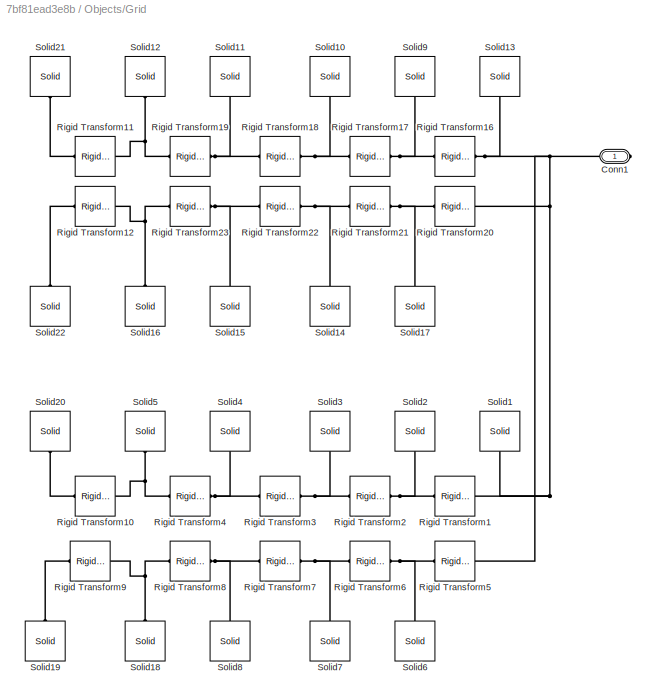
BLOCK [SubSystem] Objects/Grid
  Commented = on
  Ports = [0, 0, 0, 0, 0, 0, 1]
  RequestExecContextInheritance = off
  Variant = off
BLOCK [PMIOPort] Objects/Grid/Conn1
  Port = 1
  Side = Right
BLOCK [Reference] Objects/Grid/Rigid Transform1  REF=sm_lib/Frames and
Transforms/Rigid
Transform
  Ports = [0, 0, 0, 0, 0, 1, 1]
  SourceBlock = sm_lib/Frames and\nTransforms/Rigid\nTransform
  SourceProductBaseCode = MS
  SourceProductName = Simscape Multibody
  SourceType = Rigid\nTransform
BLOCK [Reference] Objects/Grid/Rigid Transform10  REF=sm_lib/Frames and
Transforms/Rigid
Transform
  Ports = [0, 0, 0, 0, 0, 1, 1]
  SourceBlock = sm_lib/Frames and\nTransforms/Rigid\nTransform
  SourceProductBaseCode = MS
  SourceProductName = Simscape Multibody
  SourceType = Rigid\nTransform
BLOCK [Reference] Objects/Grid/Rigid Transform11  REF=sm_lib/Frames and
Transforms/Rigid
Transform
  Ports = [0, 0, 0, 0, 0, 1, 1]
  SourceBlock = sm_lib/Frames and\nTransforms/Rigid\nTransform
  SourceProductBaseCode = MS
  SourceProductName = Simscape Multibody
  SourceType = Rigid\nTransform
BLOCK [Reference] Objects/Grid/Rigid Transform12  REF=sm_lib/Frames and
Transforms/Rigid
Transform
  Ports = [0, 0, 0, 0, 0, 1, 1]
  SourceBlock = sm_lib/Frames and\nTransforms/Rigid\nTransform
  SourceProductBaseCode = MS
  SourceProductName = Simscape Multibody
  SourceType = Rigid\nTransform
BLOCK [Reference] Objects/Grid/Rigid Transform16  REF=sm_lib/Frames and
Transforms/Rigid
Transform
  Ports = [0, 0, 0, 0, 0, 1, 1]
  SourceBlock = sm_lib/Frames and\nTransforms/Rigid\nTransform
  SourceProductBaseCode = MS
  SourceProductName = Simscape Multibody
  SourceType = Rigid\nTransform
BLOCK [Reference] Objects/Grid/Rigid Transform17  REF=sm_lib/Frames and
Transforms/Rigid
Transform
  Ports = [0, 0, 0, 0, 0, 1, 1]
  SourceBlock = sm_lib/Frames and\nTransforms/Rigid\nTransform
  SourceProductBaseCode = MS
  SourceProductName = Simscape Multibody
  SourceType = Rigid\nTransform
BLOCK [Reference] Objects/Grid/Rigid Transform18  REF=sm_lib/Frames and
Transforms/Rigid
Transform
  Ports = [0, 0, 0, 0, 0, 1, 1]
  SourceBlock = sm_lib/Frames and\nTransforms/Rigid\nTransform
  SourceProductBaseCode = MS
  SourceProductName = Simscape Multibody
  SourceType = Rigid\nTransform
BLOCK [Reference] Objects/Grid/Rigid Transform19  REF=sm_lib/Frames and
Transforms/Rigid
Transform
  Ports = [0, 0, 0, 0, 0, 1, 1]
  SourceBlock = sm_lib/Frames and\nTransforms/Rigid\nTransform
  SourceProductBaseCode = MS
  SourceProductName = Simscape Multibody
  SourceType = Rigid\nTransform
BLOCK [Reference] Objects/Grid/Rigid Transform2  REF=sm_lib/Frames and
Transforms/Rigid
Transform
  Ports = [0, 0, 0, 0, 0, 1, 1]
  SourceBlock = sm_lib/Frames and\nTransforms/Rigid\nTransform
  SourceProductBaseCode = MS
  SourceProductName = Simscape Multibody
  SourceType = Rigid\nTransform
BLOCK [Reference] Objects/Grid/Rigid Transform20  REF=sm_lib/Frames and
Transforms/Rigid
Transform
  Ports = [0, 0, 0, 0, 0, 1, 1]
  SourceBlock = sm_lib/Frames and\nTransforms/Rigid\nTransform
  SourceProductBaseCode = MS
  SourceProductName = Simscape Multibody
  SourceType = Rigid\nTransform
BLOCK [Reference] Objects/Grid/Rigid Transform21  REF=sm_lib/Frames and
Transforms/Rigid
Transform
  Ports = [0, 0, 0, 0, 0, 1, 1]
  SourceBlock = sm_lib/Frames and\nTransforms/Rigid\nTransform
  SourceProductBaseCode = MS
  SourceProductName = Simscape Multibody
  SourceType = Rigid\nTransform
BLOCK [Reference] Objects/Grid/Rigid Transform22  REF=sm_lib/Frames and
Transforms/Rigid
Transform
  Ports = [0, 0, 0, 0, 0, 1, 1]
  SourceBlock = sm_lib/Frames and\nTransforms/Rigid\nTransform
  SourceProductBaseCode = MS
  SourceProductName = Simscape Multibody
  SourceType = Rigid\nTransform
BLOCK [Reference] Objects/Grid/Rigid Transform23  REF=sm_lib/Frames and
Transforms/Rigid
Transform
  Ports = [0, 0, 0, 0, 0, 1, 1]
  SourceBlock = sm_lib/Frames and\nTransforms/Rigid\nTransform
  SourceProductBaseCode = MS
  SourceProductName = Simscape Multibody
  SourceType = Rigid\nTransform
BLOCK [Reference] Objects/Grid/Rigid Transform3  REF=sm_lib/Frames and
Transforms/Rigid
Transform
  Ports = [0, 0, 0, 0, 0, 1, 1]
  SourceBlock = sm_lib/Frames and\nTransforms/Rigid\nTransform
  SourceProductBaseCode = MS
  SourceProductName = Simscape Multibody
  SourceType = Rigid\nTransform
BLOCK [Reference] Objects/Grid/Rigid Transform4  REF=sm_lib/Frames and
Transforms/Rigid
Transform
  Ports = [0, 0, 0, 0, 0, 1, 1]
  SourceBlock = sm_lib/Frames and\nTransforms/Rigid\nTransform
  SourceProductBaseCode = MS
  SourceProductName = Simscape Multibody
  SourceType = Rigid\nTransform
BLOCK [Reference] Objects/Grid/Rigid Transform5  REF=sm_lib/Frames and
Transforms/Rigid
Transform
  Ports = [0, 0, 0, 0, 0, 1, 1]
  SourceBlock = sm_lib/Frames and\nTransforms/Rigid\nTransform
  SourceProductBaseCode = MS
  SourceProductName = Simscape Multibody
  SourceType = Rigid\nTransform
BLOCK [Reference] Objects/Grid/Rigid Transform6  REF=sm_lib/Frames and
Transforms/Rigid
Transform
  Ports = [0, 0, 0, 0, 0, 1, 1]
  SourceBlock = sm_lib/Frames and\nTransforms/Rigid\nTransform
  SourceProductBaseCode = MS
  SourceProductName = Simscape Multibody
  SourceType = Rigid\nTransform
BLOCK [Reference] Objects/Grid/Rigid Transform7  REF=sm_lib/Frames and
Transforms/Rigid
Transform
  Ports = [0, 0, 0, 0, 0, 1, 1]
  SourceBlock = sm_lib/Frames and\nTransforms/Rigid\nTransform
  SourceProductBaseCode = MS
  SourceProductName = Simscape Multibody
  SourceType = Rigid\nTransform
BLOCK [Reference] Objects/Grid/Rigid Transform8  REF=sm_lib/Frames and
Transforms/Rigid
Transform
  Ports = [0, 0, 0, 0, 0, 1, 1]
  SourceBlock = sm_lib/Frames and\nTransforms/Rigid\nTransform
  SourceProductBaseCode = MS
  SourceProductName = Simscape Multibody
  SourceType = Rigid\nTransform
BLOCK [Reference] Objects/Grid/Rigid Transform9  REF=sm_lib/Frames and
Transforms/Rigid
Transform
  Ports = [0, 0, 0, 0, 0, 1, 1]
  SourceBlock = sm_lib/Frames and\nTransforms/Rigid\nTransform
  SourceProductBaseCode = MS
  SourceProductName = Simscape Multibody
  SourceType = Rigid\nTransform
BLOCK [Reference] Objects/Grid/Solid1  REF=sm_lib/Body Elements/Solid
  Ports = [0, 0, 0, 0, 0, 0, 1]
  SourceBlock = sm_lib/Body Elements/Solid
  SourceProductBaseCode = MS
  SourceProductName = Simscape Multibody
  SourceType = Solid
BLOCK [Reference] Objects/Grid/Solid10  REF=sm_lib/Body Elements/Solid
  Ports = [0, 0, 0, 0, 0, 0, 1]
  SourceBlock = sm_lib/Body Elements/Solid
  SourceProductBaseCode = MS
  SourceProductName = Simscape Multibody
  SourceType = Solid
BLOCK [Reference] Objects/Grid/Solid11  REF=sm_lib/Body Elements/Solid
  Ports = [0, 0, 0, 0, 0, 0, 1]
  SourceBlock = sm_lib/Body Elements/Solid
  SourceProductBaseCode = MS
  SourceProductName = Simscape Multibody
  SourceType = Solid
BLOCK [Reference] Objects/Grid/Solid12  REF=sm_lib/Body Elements/Solid
  Ports = [0, 0, 0, 0, 0, 0, 1]
  SourceBlock = sm_lib/Body Elements/Solid
  SourceProductBaseCode = MS
  SourceProductName = Simscape Multibody
  SourceType = Solid
BLOCK [Reference] Objects/Grid/Solid13  REF=sm_lib/Body Elements/Solid
  Ports = [0, 0, 0, 0, 0, 0, 1]
  SourceBlock = sm_lib/Body Elements/Solid
  SourceProductBaseCode = MS
  SourceProductName = Simscape Multibody
  SourceType = Solid
BLOCK [Reference] Objects/Grid/Solid14  REF=sm_lib/Body Elements/Solid
  Ports = [0, 0, 0, 0, 0, 0, 1]
  SourceBlock = sm_lib/Body Elements/Solid
  SourceProductBaseCode = MS
  SourceProductName = Simscape Multibody
  SourceType = Solid
BLOCK [Reference] Objects/Grid/Solid15  REF=sm_lib/Body Elements/Solid
  Ports = [0, 0, 0, 0, 0, 0, 1]
  SourceBlock = sm_lib/Body Elements/Solid
  SourceProductBaseCode = MS
  SourceProductName = Simscape Multibody
  SourceType = Solid
BLOCK [Reference] Objects/Grid/Solid16  REF=sm_lib/Body Elements/Solid
  Ports = [0, 0, 0, 0, 0, 0, 1]
  SourceBlock = sm_lib/Body Elements/Solid
  SourceProductBaseCode = MS
  SourceProductName = Simscape Multibody
  SourceType = Solid
BLOCK [Reference] Objects/Grid/Solid17  REF=sm_lib/Body Elements/Solid
  Ports = [0, 0, 0, 0, 0, 0, 1]
  SourceBlock = sm_lib/Body Elements/Solid
  SourceProductBaseCode = MS
  SourceProductName = Simscape Multibody
  SourceType = Solid
BLOCK [Reference] Objects/Grid/Solid18  REF=sm_lib/Body Elements/Solid
  Ports = [0, 0, 0, 0, 0, 0, 1]
  SourceBlock = sm_lib/Body Elements/Solid
  SourceProductBaseCode = MS
  SourceProductName = Simscape Multibody
  SourceType = Solid
BLOCK [Reference] Objects/Grid/Solid19  REF=sm_lib/Body Elements/Solid
  Ports = [0, 0, 0, 0, 0, 0, 1]
  SourceBlock = sm_lib/Body Elements/Solid
  SourceProductBaseCode = MS
  SourceProductName = Simscape Multibody
  SourceType = Solid
BLOCK [Reference] Objects/Grid/Solid2  REF=sm_lib/Body Elements/Solid
  Ports = [0, 0, 0, 0, 0, 0, 1]
  SourceBlock = sm_lib/Body Elements/Solid
  SourceProductBaseCode = MS
  SourceProductName = Simscape Multibody
  SourceType = Solid
BLOCK [Reference] Objects/Grid/Solid20  REF=sm_lib/Body Elements/Solid
  Ports = [0, 0, 0, 0, 0, 0, 1]
  SourceBlock = sm_lib/Body Elements/Solid
  SourceProductBaseCode = MS
  SourceProductName = Simscape Multibody
  SourceType = Solid
BLOCK [Reference] Objects/Grid/Solid21  REF=sm_lib/Body Elements/Solid
  Ports = [0, 0, 0, 0, 0, 0, 1]
  SourceBlock = sm_lib/Body Elements/Solid
  SourceProductBaseCode = MS
  SourceProductName = Simscape Multibody
  SourceType = Solid
BLOCK [Reference] Objects/Grid/Solid22  REF=sm_lib/Body Elements/Solid
  Ports = [0, 0, 0, 0, 0, 0, 1]
  SourceBlock = sm_lib/Body Elements/Solid
  SourceProductBaseCode = MS
  SourceProductName = Simscape Multibody
  SourceType = Solid
BLOCK [Reference] Objects/Grid/Solid3  REF=sm_lib/Body Elements/Solid
  Ports = [0, 0, 0, 0, 0, 0, 1]
  SourceBlock = sm_lib/Body Elements/Solid
  SourceProductBaseCode = MS
  SourceProductName = Simscape Multibody
  SourceType = Solid
BLOCK [Reference] Objects/Grid/Solid4  REF=sm_lib/Body Elements/Solid
  Ports = [0, 0, 0, 0, 0, 0, 1]
  SourceBlock = sm_lib/Body Elements/Solid
  SourceProductBaseCode = MS
  SourceProductName = Simscape Multibody
  SourceType = Solid
BLOCK [Reference] Objects/Grid/Solid5  REF=sm_lib/Body Elements/Solid
  Ports = [0, 0, 0, 0, 0, 0, 1]
  SourceBlock = sm_lib/Body Elements/Solid
  SourceProductBaseCode = MS
  SourceProductName = Simscape Multibody
  SourceType = Solid
BLOCK [Reference] Objects/Grid/Solid6  REF=sm_lib/Body Elements/Solid
  Ports = [0, 0, 0, 0, 0, 0, 1]
  SourceBlock = sm_lib/Body Elements/Solid
  SourceProductBaseCode = MS
  SourceProductName = Simscape Multibody
  SourceType = Solid
BLOCK [Reference] Objects/Grid/Solid7  REF=sm_lib/Body Elements/Solid
  Ports = [0, 0, 0, 0, 0, 0, 1]
  SourceBlock = sm_lib/Body Elements/Solid
  SourceProductBaseCode = MS
  SourceProductName = Simscape Multibody
  SourceType = Solid
BLOCK [Reference] Objects/Grid/Solid8  REF=sm_lib/Body Elements/Solid
  Ports = [0, 0, 0, 0, 0, 0, 1]
  SourceBlock = sm_lib/Body Elements/Solid
  SourceProductBaseCode = MS
  SourceProductName = Simscape Multibody
  SourceType = Solid
BLOCK [Reference] Objects/Grid/Solid9  REF=sm_lib/Body Elements/Solid
  Ports = [0, 0, 0, 0, 0, 0, 1]
  SourceBlock = sm_lib/Body Elements/Solid
  SourceProductBaseCode = MS
  SourceProductName = Simscape Multibody
  SourceType = Solid
BLOCK [PMIOPort] Objects/Obj1
  Port = 2
  Side = Right
BLOCK [Reference] Objects/Rigid Transform  REF=sm_lib/Frames and
Transforms/Rigid
Transform
  Commented = on
  Ports = [0, 0, 0, 0, 0, 1, 1]
  SourceBlock = sm_lib/Frames and\nTransforms/Rigid\nTransform
  SourceProductBaseCode = MS
  SourceProductName = Simscape Multibody
  SourceType = Rigid\nTransform
BLOCK [Reference] Objects/Rigid Transform1  REF=sm_lib/Frames and
Transforms/Rigid
Transform
  Ports = [0, 0, 0, 0, 0, 1, 1]
  SourceBlock = sm_lib/Frames and\nTransforms/Rigid\nTransform
  SourceProductBaseCode = MS
  SourceProductName = Simscape Multibody
  SourceType = Rigid\nTransform
BLOCK [Reference] Objects/Rigid Transform10  REF=sm_lib/Frames and
Transforms/Rigid
Transform
  Commented = on
  Ports = [0, 0, 0, 0, 0, 1, 1]
  SourceBlock = sm_lib/Frames and\nTransforms/Rigid\nTransform
  SourceProductBaseCode = MS
  SourceProductName = Simscape Multibody
  SourceType = Rigid\nTransform
BLOCK [Reference] Objects/Rigid Transform11  REF=sm_lib/Frames and
Transforms/Rigid
Transform
  Commented = on
  Ports = [0, 0, 0, 0, 0, 1, 1]
  SourceBlock = sm_lib/Frames and\nTransforms/Rigid\nTransform
  SourceProductBaseCode = MS
  SourceProductName = Simscape Multibody
  SourceType = Rigid\nTransform
BLOCK [Reference] Objects/Rigid Transform12  REF=sm_lib/Frames and
Transforms/Rigid
Transform
  Commented = on
  Ports = [0, 0, 0, 0, 0, 1, 1]
  SourceBlock = sm_lib/Frames and\nTransforms/Rigid\nTransform
  SourceProductBaseCode = MS
  SourceProductName = Simscape Multibody
  SourceType = Rigid\nTransform
BLOCK [Reference] Objects/Rigid Transform13  REF=sm_lib/Frames and
Transforms/Rigid
Transform
  Commented = on
  Ports = [0, 0, 0, 0, 0, 1, 1]
  SourceBlock = sm_lib/Frames and\nTransforms/Rigid\nTransform
  SourceProductBaseCode = MS
  SourceProductName = Simscape Multibody
  SourceType = Rigid\nTransform
BLOCK [Reference] Objects/Rigid Transform14  REF=sm_lib/Frames and
Transforms/Rigid
Transform
  Commented = on
  Ports = [0, 0, 0, 0, 0, 1, 1]
  SourceBlock = sm_lib/Frames and\nTransforms/Rigid\nTransform
  SourceProductBaseCode = MS
  SourceProductName = Simscape Multibody
  SourceType = Rigid\nTransform
BLOCK [Reference] Objects/Rigid Transform15  REF=sm_lib/Frames and
Transforms/Rigid
Transform
  Commented = on
  Ports = [0, 0, 0, 0, 0, 1, 1]
  SourceBlock = sm_lib/Frames and\nTransforms/Rigid\nTransform
  SourceProductBaseCode = MS
  SourceProductName = Simscape Multibody
  SourceType = Rigid\nTransform
BLOCK [Reference] Objects/Rigid Transform17  REF=sm_lib/Frames and
Transforms/Rigid
Transform
  Ports = [0, 0, 0, 0, 0, 1, 1]
  SourceBlock = sm_lib/Frames and\nTransforms/Rigid\nTransform
  SourceProductBaseCode = MS
  SourceProductName = Simscape Multibody
  SourceType = Rigid\nTransform
BLOCK [Reference] Objects/Rigid Transform2  REF=sm_lib/Frames and
Transforms/Rigid
Transform
  Commented = on
  Ports = [0, 0, 0, 0, 0, 1, 1]
  SourceBlock = sm_lib/Frames and\nTransforms/Rigid\nTransform
  SourceProductBaseCode = MS
  SourceProductName = Simscape Multibody
  SourceType = Rigid\nTransform
BLOCK [Reference] Objects/Rigid Transform4  REF=sm_lib/Frames and
Transforms/Rigid
Transform
  Commented = on
  Ports = [0, 0, 0, 0, 0, 1, 1]
  SourceBlock = sm_lib/Frames and\nTransforms/Rigid\nTransform
  SourceProductBaseCode = MS
  SourceProductName = Simscape Multibody
  SourceType = Rigid\nTransform
BLOCK [Reference] Objects/Rigid Transform5  REF=sm_lib/Frames and
Transforms/Rigid
Transform
  Commented = on
  Ports = [0, 0, 0, 0, 0, 1, 1]
  SourceBlock = sm_lib/Frames and\nTransforms/Rigid\nTransform
  SourceProductBaseCode = MS
  SourceProductName = Simscape Multibody
  SourceType = Rigid\nTransform
BLOCK [Reference] Objects/Rigid Transform6  REF=sm_lib/Frames and
Transforms/Rigid
Transform
  Commented = on
  Ports = [0, 0, 0, 0, 0, 1, 1]
  SourceBlock = sm_lib/Frames and\nTransforms/Rigid\nTransform
  SourceProductBaseCode = MS
  SourceProductName = Simscape Multibody
  SourceType = Rigid\nTransform
BLOCK [Reference] Objects/Rigid Transform7  REF=sm_lib/Frames and
Transforms/Rigid
Transform
  Commented = on
  Ports = [0, 0, 0, 0, 0, 1, 1]
  SourceBlock = sm_lib/Frames and\nTransforms/Rigid\nTransform
  SourceProductBaseCode = MS
  SourceProductName = Simscape Multibody
  SourceType = Rigid\nTransform
BLOCK [Reference] Objects/Rigid Transform8  REF=sm_lib/Frames and
Transforms/Rigid
Transform
  Commented = on
  Ports = [0, 0, 0, 0, 0, 1, 1]
  SourceBlock = sm_lib/Frames and\nTransforms/Rigid\nTransform
  SourceProductBaseCode = MS
  SourceProductName = Simscape Multibody
  SourceType = Rigid\nTransform
BLOCK [Reference] Objects/Rigid Transform9  REF=sm_lib/Frames and
Transforms/Rigid
Transform
  Commented = on
  Ports = [0, 0, 0, 0, 0, 1, 1]
  SourceBlock = sm_lib/Frames and\nTransforms/Rigid\nTransform
  SourceProductBaseCode = MS
  SourceProductName = Simscape Multibody
  SourceType = Rigid\nTransform
BLOCK [Inport] Objects/Rmat
  IconDisplay = Port number
  Port = 4
BLOCK [Reference] Objects/Solid  REF=sm_lib/Body Elements/Solid
  Commented = on
  Ports = [0, 0, 0, 0, 0, 0, 1]
  SourceBlock = sm_lib/Body Elements/Solid
  SourceProductBaseCode = MS
  SourceProductName = Simscape Multibody
  SourceType = Solid
BLOCK [Reference] Objects/Solid2  REF=sm_lib/Body Elements/Solid
  Ports = [0, 0, 0, 0, 0, 0, 1]
  SourceBlock = sm_lib/Body Elements/Solid
  SourceProductBaseCode = MS
  SourceProductName = Simscape Multibody
  SourceType = Solid
BLOCK [Reference] Objects/Solid3  REF=sm_lib/Body Elements/Solid
  Commented = on
  Ports = [0, 0, 0, 0, 0, 0, 1]
  SourceBlock = sm_lib/Body Elements/Solid
  SourceProductBaseCode = MS
  SourceProductName = Simscape Multibody
  SourceType = Solid
BLOCK [Reference] Objects/Solid4  REF=sm_lib/Body Elements/Solid
  Commented = on
  Ports = [0, 0, 0, 0, 0, 0, 1]
  SourceBlock = sm_lib/Body Elements/Solid
  SourceProductBaseCode = MS
  SourceProductName = Simscape Multibody
  SourceType = Solid
BLOCK [Reference] Objects/Solid5  REF=sm_lib/Body Elements/Solid
  Commented = on
  Ports = [0, 0, 0, 0, 0, 0, 1]
  SourceBlock = sm_lib/Body Elements/Solid
  SourceProductBaseCode = MS
  SourceProductName = Simscape Multibody
  SourceType = Solid
BLOCK [Reference] Objects/Solid6  REF=sm_lib/Body Elements/Solid
  Commented = on
  Ports = [0, 0, 0, 0, 0, 0, 1]
  SourceBlock = sm_lib/Body Elements/Solid
  SourceProductBaseCode = MS
  SourceProductName = Simscape Multibody
  SourceType = Solid
BLOCK [Reference] Objects/Solid7  REF=sm_lib/Body Elements/Solid
  Commented = on
  Ports = [0, 0, 0, 0, 0, 0, 1]
  SourceBlock = sm_lib/Body Elements/Solid
  SourceProductBaseCode = MS
  SourceProductName = Simscape Multibody
  SourceType = Solid
BLOCK [Reference] Objects/Solid8  REF=sm_lib/Body Elements/Solid
  Commented = on
  Ports = [0, 0, 0, 0, 0, 0, 1]
  SourceBlock = sm_lib/Body Elements/Solid
  SourceProductBaseCode = MS
  SourceProductName = Simscape Multibody
  SourceType = Solid
BLOCK [Reference] Objects/Solid9  REF=sm_lib/Body Elements/Solid
  Ports = [0, 0, 0, 0, 0, 0, 1]
  SourceBlock = sm_lib/Body Elements/Solid
  SourceProductBaseCode = MS
  SourceProductName = Simscape Multibody
  SourceType = Solid
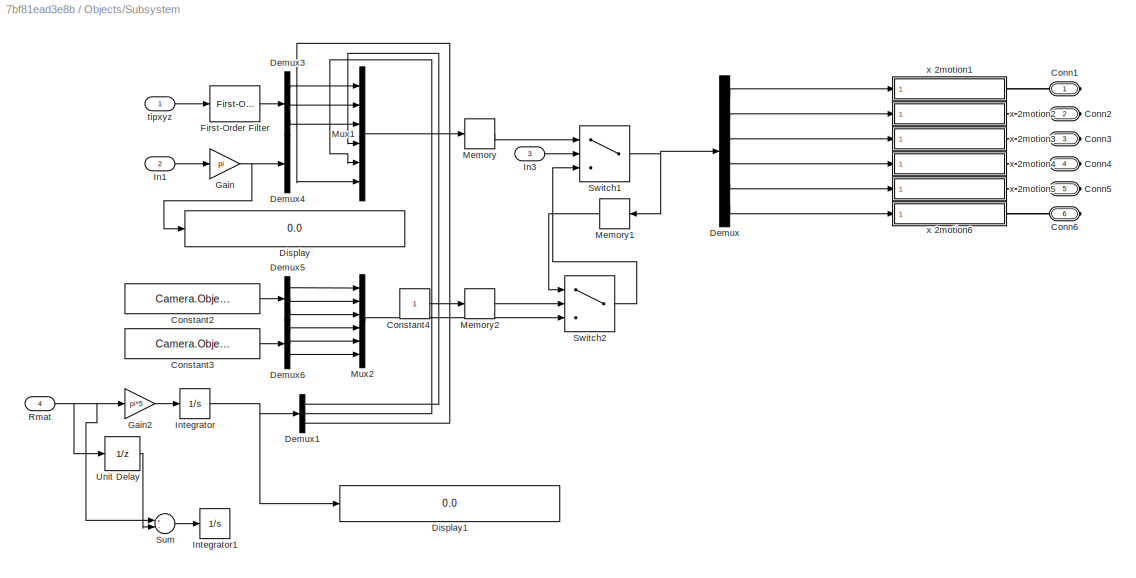
BLOCK [SubSystem] Objects/Subsystem
  Ports = [4, 0, 0, 0, 0, 0, 6]
  RequestExecContextInheritance = off
  Variant = off
BLOCK [PMIOPort] Objects/Subsystem/Conn1
  Port = 1
  Side = Right
BLOCK [PMIOPort] Objects/Subsystem/Conn2
  Port = 2
  Side = Right
BLOCK [PMIOPort] Objects/Subsystem/Conn3
  Port = 3
  Side = Right
BLOCK [PMIOPort] Objects/Subsystem/Conn4
  Port = 4
  Side = Right
BLOCK [PMIOPort] Objects/Subsystem/Conn5
  Port = 5
  Side = Right
BLOCK [PMIOPort] Objects/Subsystem/Conn6
  Port = 6
  Side = Right
BLOCK [Constant] Objects/Subsystem/Constant2
  Value = Camera.ObjectTranslation
BLOCK [Constant] Objects/Subsystem/Constant3
  Value = Camera.ObjectEul
BLOCK [Constant] Objects/Subsystem/Constant4
BLOCK [Demux] Objects/Subsystem/Demux
  DisplayOption = bar
  Outputs = 6
  Ports = [1, 6]
BLOCK [Demux] Objects/Subsystem/Demux1
  DisplayOption = bar
  Outputs = 3
  Ports = [1, 3]
BLOCK [Demux] Objects/Subsystem/Demux3
  DisplayOption = bar
  Outputs = 3
  Ports = [1, 3]
BLOCK [Demux] Objects/Subsystem/Demux4
  Commented = on
  DisplayOption = bar
  Outputs = 3
  Ports = [1, 3]
BLOCK [Demux] Objects/Subsystem/Demux5
  DisplayOption = bar
  Outputs = 3
  Ports = [1, 3]
BLOCK [Demux] Objects/Subsystem/Demux6
  DisplayOption = bar
  Outputs = 3
  Ports = [1, 3]
BLOCK [Display] Objects/Subsystem/Display
  Decimation = 1
  Ports = [1]
BLOCK [Display] Objects/Subsystem/Display1
  Decimation = 1
  Ports = [1]
BLOCK [Reference] Objects/Subsystem/First-Order Filter  REF=powerlib_meascontrol/Filters/First-Order
Filter
  Ports = [1, 1]
  SourceBlock = powerlib_meascontrol/Filters/First-Order\nFilter
  SourceProductBaseCode = PS
  SourceProductName = Simscape Power Systems
  SourceType = First-Order Filter
BLOCK [Gain] Objects/Subsystem/Gain
  Gain = pi
  OutDataTypeStr = Inherit: Inherit via internal rule
  ParamDataTypeStr = Inherit: Inherit via internal rule
  SaturateOnIntegerOverflow = off
BLOCK [Gain] Objects/Subsystem/Gain2
  Gain = pi*5
  OutDataTypeStr = Inherit: Inherit via internal rule
  ParamDataTypeStr = Inherit: Inherit via internal rule
  SaturateOnIntegerOverflow = off
BLOCK [Inport] Objects/Subsystem/In1
  IconDisplay = Port number
  Port = 2
BLOCK [Inport] Objects/Subsystem/In3
  IconDisplay = Port number
  Port = 3
BLOCK [Integrator] Objects/Subsystem/Integrator
  Ports = [1, 1]
BLOCK [Integrator] Objects/Subsystem/Integrator1
  Commented = on
  Ports = [1, 1]
BLOCK [Memory] Objects/Subsystem/Memory
BLOCK [Memory] Objects/Subsystem/Memory1
BLOCK [Memory] Objects/Subsystem/Memory2
BLOCK [Mux] Objects/Subsystem/Mux1
  DisplayOption = bar
  Inputs = 6
  Ports = [6, 1]
BLOCK [Mux] Objects/Subsystem/Mux2
  DisplayOption = bar
  Inputs = 6
  Ports = [6, 1]
BLOCK [Inport] Objects/Subsystem/Rmat
  IconDisplay = Port number
  Port = 4
BLOCK [Sum] Objects/Subsystem/Sum
  Commented = on
  InputSameDT = off
  Inputs = +-
  OutDataTypeStr = Inherit: Inherit via internal rule
  Ports = [2, 1]
  SaturateOnIntegerOverflow = off
BLOCK [Switch] Objects/Subsystem/Switch1
  Criteria = u2 ~= 0
  InputSameDT = off
  SaturateOnIntegerOverflow = off
BLOCK [Switch] Objects/Subsystem/Switch2
  Criteria = u2 ~= 0
  InputSameDT = off
  SaturateOnIntegerOverflow = off
BLOCK [UnitDelay] Objects/Subsystem/Unit Delay
  Commented = on
  InputProcessing = Elements as channels (sample based)
  SampleTime = -1
BLOCK [Inport] Objects/Subsystem/tipxyz
  IconDisplay = Port number
BLOCK [SubSystem] Objects/Subsystem/x 2motion1
  Ports = [1, 0, 0, 0, 0, 0, 1]
  RequestExecContextInheritance = off
  Variant = off
BLOCK [Reference] Objects/Subsystem/x 2motion1/Difference  REF=simulink/Discrete/Difference
  Ports = [1, 1]
  SourceBlock = simulink/Discrete/Difference
  SourceProductBaseCode = SL
  SourceProductName = Simulink
  SourceType = Difference
BLOCK [Reference] Objects/Subsystem/x 2motion1/Difference1  REF=simulink/Discrete/Difference
  Ports = [1, 1]
  SourceBlock = simulink/Discrete/Difference
  SourceProductBaseCode = SL
  SourceProductName = Simulink
  SourceType = Difference
BLOCK [PMIOPort] Objects/Subsystem/x 2motion1/Motion for PS
  Port = 1
  Side = Right
BLOCK [Reference] Objects/Subsystem/x 2motion1/Simulink-PS Converter  REF=nesl_utility/Simulink-PS
Converter
  Ports = [3, 0, 0, 0, 0, 0, 1]
  SourceBlock = nesl_utility/Simulink-PS\nConverter
  SourceProductBaseCode = SS
  SourceProductName = Simscape
  SourceType = Simulink-PS\nConverter
BLOCK [Inport] Objects/Subsystem/x 2motion1/X
  IconDisplay = Port number
BLOCK [SubSystem] Objects/Subsystem/x 2motion2
  Ports = [1, 0, 0, 0, 0, 0, 1]
  RequestExecContextInheritance = off
  Variant = off
BLOCK [Reference] Objects/Subsystem/x 2motion2/Difference  REF=simulink/Discrete/Difference
  Ports = [1, 1]
  SourceBlock = simulink/Discrete/Difference
  SourceProductBaseCode = SL
  SourceProductName = Simulink
  SourceType = Difference
BLOCK [Reference] Objects/Subsystem/x 2motion2/Difference1  REF=simulink/Discrete/Difference
  Ports = [1, 1]
  SourceBlock = simulink/Discrete/Difference
  SourceProductBaseCode = SL
  SourceProductName = Simulink
  SourceType = Difference
BLOCK [PMIOPort] Objects/Subsystem/x 2motion2/Motion for PS
  Port = 1
  Side = Right
BLOCK [Reference] Objects/Subsystem/x 2motion2/Simulink-PS Converter  REF=nesl_utility/Simulink-PS
Converter
  Ports = [3, 0, 0, 0, 0, 0, 1]
  SourceBlock = nesl_utility/Simulink-PS\nConverter
  SourceProductBaseCode = SS
  SourceProductName = Simscape
  SourceType = Simulink-PS\nConverter
BLOCK [Inport] Objects/Subsystem/x 2motion2/X
  IconDisplay = Port number
BLOCK [SubSystem] Objects/Subsystem/x 2motion3
  Ports = [1, 0, 0, 0, 0, 0, 1]
  RequestExecContextInheritance = off
  Variant = off
BLOCK [Reference] Objects/Subsystem/x 2motion3/Difference  REF=simulink/Discrete/Difference
  Ports = [1, 1]
  SourceBlock = simulink/Discrete/Difference
  SourceProductBaseCode = SL
  SourceProductName = Simulink
  SourceType = Difference
BLOCK [Reference] Objects/Subsystem/x 2motion3/Difference1  REF=simulink/Discrete/Difference
  Ports = [1, 1]
  SourceBlock = simulink/Discrete/Difference
  SourceProductBaseCode = SL
  SourceProductName = Simulink
  SourceType = Difference
BLOCK [PMIOPort] Objects/Subsystem/x 2motion3/Motion for PS
  Port = 1
  Side = Right
BLOCK [Reference] Objects/Subsystem/x 2motion3/Simulink-PS Converter  REF=nesl_utility/Simulink-PS
Converter
  Ports = [3, 0, 0, 0, 0, 0, 1]
  SourceBlock = nesl_utility/Simulink-PS\nConverter
  SourceProductBaseCode = SS
  SourceProductName = Simscape
  SourceType = Simulink-PS\nConverter
BLOCK [Inport] Objects/Subsystem/x 2motion3/X
  IconDisplay = Port number
BLOCK [SubSystem] Objects/Subsystem/x 2motion4
  Ports = [1, 0, 0, 0, 0, 0, 1]
  RequestExecContextInheritance = off
  Variant = off
BLOCK [Reference] Objects/Subsystem/x 2motion4/Difference  REF=simulink/Discrete/Difference
  Ports = [1, 1]
  SourceBlock = simulink/Discrete/Difference
  SourceProductBaseCode = SL
  SourceProductName = Simulink
  SourceType = Difference
BLOCK [Reference] Objects/Subsystem/x 2motion4/Difference1  REF=simulink/Discrete/Difference
  Ports = [1, 1]
  SourceBlock = simulink/Discrete/Difference
  SourceProductBaseCode = SL
  SourceProductName = Simulink
  SourceType = Difference
BLOCK [PMIOPort] Objects/Subsystem/x 2motion4/Motion for PS
  Port = 1
  Side = Right
BLOCK [Reference] Objects/Subsystem/x 2motion4/Simulink-PS Converter  REF=nesl_utility/Simulink-PS
Converter
  Ports = [3, 0, 0, 0, 0, 0, 1]
  SourceBlock = nesl_utility/Simulink-PS\nConverter
  SourceProductBaseCode = SS
  SourceProductName = Simscape
  SourceType = Simulink-PS\nConverter
BLOCK [Inport] Objects/Subsystem/x 2motion4/X
  IconDisplay = Port number
BLOCK [SubSystem] Objects/Subsystem/x 2motion5
  Ports = [1, 0, 0, 0, 0, 0, 1]
  RequestExecContextInheritance = off
  Variant = off
BLOCK [Reference] Objects/Subsystem/x 2motion5/Difference  REF=simulink/Discrete/Difference
  Ports = [1, 1]
  SourceBlock = simulink/Discrete/Difference
  SourceProductBaseCode = SL
  SourceProductName = Simulink
  SourceType = Difference
BLOCK [Reference] Objects/Subsystem/x 2motion5/Difference1  REF=simulink/Discrete/Difference
  Ports = [1, 1]
  SourceBlock = simulink/Discrete/Difference
  SourceProductBaseCode = SL
  SourceProductName = Simulink
  SourceType = Difference
BLOCK [PMIOPort] Objects/Subsystem/x 2motion5/Motion for PS
  Port = 1
  Side = Right
BLOCK [Reference] Objects/Subsystem/x 2motion5/Simulink-PS Converter  REF=nesl_utility/Simulink-PS
Converter
  Ports = [3, 0, 0, 0, 0, 0, 1]
  SourceBlock = nesl_utility/Simulink-PS\nConverter
  SourceProductBaseCode = SS
  SourceProductName = Simscape
  SourceType = Simulink-PS\nConverter
BLOCK [Inport] Objects/Subsystem/x 2motion5/X
  IconDisplay = Port number
BLOCK [SubSystem] Objects/Subsystem/x 2motion6
  Ports = [1, 0, 0, 0, 0, 0, 1]
  RequestExecContextInheritance = off
  Variant = off
BLOCK [Reference] Objects/Subsystem/x 2motion6/Difference  REF=simulink/Discrete/Difference
  Ports = [1, 1]
  SourceBlock = simulink/Discrete/Difference
  SourceProductBaseCode = SL
  SourceProductName = Simulink
  SourceType = Difference
BLOCK [Reference] Objects/Subsystem/x 2motion6/Difference1  REF=simulink/Discrete/Difference
  Ports = [1, 1]
  SourceBlock = simulink/Discrete/Difference
  SourceProductBaseCode = SL
  SourceProductName = Simulink
  SourceType = Difference
BLOCK [PMIOPort] Objects/Subsystem/x 2motion6/Motion for PS
  Port = 1
  Side = Right
BLOCK [Reference] Objects/Subsystem/x 2motion6/Simulink-PS Converter  REF=nesl_utility/Simulink-PS
Converter
  Ports = [3, 0, 0, 0, 0, 0, 1]
  SourceBlock = nesl_utility/Simulink-PS\nConverter
  SourceProductBaseCode = SS
  SourceProductName = Simscape
  SourceType = Simulink-PS\nConverter
BLOCK [Inport] Objects/Subsystem/x 2motion6/X
  IconDisplay = Port number
BLOCK [SubSystem] Objects/Walls
  Commented = on
  Ports = [0, 0, 0, 0, 0, 1]
  RequestExecContextInheritance = off
  Variant = off
BLOCK [PMIOPort] Objects/Walls/Conn2
  Port = 1
  Side = Left
BLOCK [SubSystem] Objects/Walls/Grid
  Ports = [0, 0, 0, 0, 0, 0, 1]
  RequestExecContextInheritance = off
  Variant = off
BLOCK [PMIOPort] Objects/Walls/Grid/Conn1
  Port = 1
  Side = Right
BLOCK [Reference] Objects/Walls/Grid/Rigid Transform1  REF=sm_lib/Frames and
Transforms/Rigid
Transform
  Ports = [0, 0, 0, 0, 0, 1, 1]
  SourceBlock = sm_lib/Frames and\nTransforms/Rigid\nTransform
  SourceProductBaseCode = MS
  SourceProductName = Simscape Multibody
  SourceType = Rigid\nTransform
BLOCK [Reference] Objects/Walls/Grid/Rigid Transform16  REF=sm_lib/Frames and
Transforms/Rigid
Transform
  Ports = [0, 0, 0, 0, 0, 1, 1]
  SourceBlock = sm_lib/Frames and\nTransforms/Rigid\nTransform
  SourceProductBaseCode = MS
  SourceProductName = Simscape Multibody
  SourceType = Rigid\nTransform
BLOCK [Reference] Objects/Walls/Grid/Rigid Transform17  REF=sm_lib/Frames and
Transforms/Rigid
Transform
  Ports = [0, 0, 0, 0, 0, 1, 1]
  SourceBlock = sm_lib/Frames and\nTransforms/Rigid\nTransform
  SourceProductBaseCode = MS
  SourceProductName = Simscape Multibody
  SourceType = Rigid\nTransform
BLOCK [Reference] Objects/Walls/Grid/Rigid Transform18  REF=sm_lib/Frames and
Transforms/Rigid
Transform
  Ports = [0, 0, 0, 0, 0, 1, 1]
  SourceBlock = sm_lib/Frames and\nTransforms/Rigid\nTransform
  SourceProductBaseCode = MS
  SourceProductName = Simscape Multibody
  SourceType = Rigid\nTransform
BLOCK [Reference] Objects/Walls/Grid/Rigid Transform19  REF=sm_lib/Frames and
Transforms/Rigid
Transform
  Ports = [0, 0, 0, 0, 0, 1, 1]
  SourceBlock = sm_lib/Frames and\nTransforms/Rigid\nTransform
  SourceProductBaseCode = MS
  SourceProductName = Simscape Multibody
  SourceType = Rigid\nTransform
BLOCK [Reference] Objects/Walls/Grid/Rigid Transform2  REF=sm_lib/Frames and
Transforms/Rigid
Transform
  Ports = [0, 0, 0, 0, 0, 1, 1]
  SourceBlock = sm_lib/Frames and\nTransforms/Rigid\nTransform
  SourceProductBaseCode = MS
  SourceProductName = Simscape Multibody
  SourceType = Rigid\nTransform
BLOCK [Reference] Objects/Walls/Grid/Rigid Transform20  REF=sm_lib/Frames and
Transforms/Rigid
Transform
  Ports = [0, 0, 0, 0, 0, 1, 1]
  SourceBlock = sm_lib/Frames and\nTransforms/Rigid\nTransform
  SourceProductBaseCode = MS
  SourceProductName = Simscape Multibody
  SourceType = Rigid\nTransform
BLOCK [Reference] Objects/Walls/Grid/Rigid Transform21  REF=sm_lib/Frames and
Transforms/Rigid
Transform
  Ports = [0, 0, 0, 0, 0, 1, 1]
  SourceBlock = sm_lib/Frames and\nTransforms/Rigid\nTransform
  SourceProductBaseCode = MS
  SourceProductName = Simscape Multibody
  SourceType = Rigid\nTransform
BLOCK [Reference] Objects/Walls/Grid/Rigid Transform22  REF=sm_lib/Frames and
Transforms/Rigid
Transform
  Ports = [0, 0, 0, 0, 0, 1, 1]
  SourceBlock = sm_lib/Frames and\nTransforms/Rigid\nTransform
  SourceProductBaseCode = MS
  SourceProductName = Simscape Multibody
  SourceType = Rigid\nTransform
BLOCK [Reference] Objects/Walls/Grid/Rigid Transform23  REF=sm_lib/Frames and
Transforms/Rigid
Transform
  Ports = [0, 0, 0, 0, 0, 1, 1]
  SourceBlock = sm_lib/Frames and\nTransforms/Rigid\nTransform
  SourceProductBaseCode = MS
  SourceProductName = Simscape Multibody
  SourceType = Rigid\nTransform
BLOCK [Reference] Objects/Walls/Grid/Rigid Transform3  REF=sm_lib/Frames and
Transforms/Rigid
Transform
  Ports = [0, 0, 0, 0, 0, 1, 1]
  SourceBlock = sm_lib/Frames and\nTransforms/Rigid\nTransform
  SourceProductBaseCode = MS
  SourceProductName = Simscape Multibody
  SourceType = Rigid\nTransform
BLOCK [Reference] Objects/Walls/Grid/Rigid Transform4  REF=sm_lib/Frames and
Transforms/Rigid
Transform
  Ports = [0, 0, 0, 0, 0, 1, 1]
  SourceBlock = sm_lib/Frames and\nTransforms/Rigid\nTransform
  SourceProductBaseCode = MS
  SourceProductName = Simscape Multibody
  SourceType = Rigid\nTransform
BLOCK [Reference] Objects/Walls/Grid/Rigid Transform5  REF=sm_lib/Frames and
Transforms/Rigid
Transform
  Ports = [0, 0, 0, 0, 0, 1, 1]
  SourceBlock = sm_lib/Frames and\nTransforms/Rigid\nTransform
  SourceProductBaseCode = MS
  SourceProductName = Simscape Multibody
  SourceType = Rigid\nTransform
BLOCK [Reference] Objects/Walls/Grid/Rigid Transform6  REF=sm_lib/Frames and
Transforms/Rigid
Transform
  Ports = [0, 0, 0, 0, 0, 1, 1]
  SourceBlock = sm_lib/Frames and\nTransforms/Rigid\nTransform
  SourceProductBaseCode = MS
  SourceProductName = Simscape Multibody
  SourceType = Rigid\nTransform
BLOCK [Reference] Objects/Walls/Grid/Rigid Transform7  REF=sm_lib/Frames and
Transforms/Rigid
Transform
  Ports = [0, 0, 0, 0, 0, 1, 1]
  SourceBlock = sm_lib/Frames and\nTransforms/Rigid\nTransform
  SourceProductBaseCode = MS
  SourceProductName = Simscape Multibody
  SourceType = Rigid\nTransform
BLOCK [Reference] Objects/Walls/Grid/Rigid Transform8  REF=sm_lib/Frames and
Transforms/Rigid
Transform
  Ports = [0, 0, 0, 0, 0, 1, 1]
  SourceBlock = sm_lib/Frames and\nTransforms/Rigid\nTransform
  SourceProductBaseCode = MS
  SourceProductName = Simscape Multibody
  SourceType = Rigid\nTransform
BLOCK [Reference] Objects/Walls/Grid/Solid1  REF=sm_lib/Body Elements/Solid
  Ports = [0, 0, 0, 0, 0, 0, 1]
  SourceBlock = sm_lib/Body Elements/Solid
  SourceProductBaseCode = MS
  SourceProductName = Simscape Multibody
  SourceType = Solid
BLOCK [Reference] Objects/Walls/Grid/Solid10  REF=sm_lib/Body Elements/Solid
  Ports = [0, 0, 0, 0, 0, 0, 1]
  SourceBlock = sm_lib/Body Elements/Solid
  SourceProductBaseCode = MS
  SourceProductName = Simscape Multibody
  SourceType = Solid
BLOCK [Reference] Objects/Walls/Grid/Solid11  REF=sm_lib/Body Elements/Solid
  Ports = [0, 0, 0, 0, 0, 0, 1]
  SourceBlock = sm_lib/Body Elements/Solid
  SourceProductBaseCode = MS
  SourceProductName = Simscape Multibody
  SourceType = Solid
BLOCK [Reference] Objects/Walls/Grid/Solid12  REF=sm_lib/Body Elements/Solid
  Ports = [0, 0, 0, 0, 0, 0, 1]
  SourceBlock = sm_lib/Body Elements/Solid
  SourceProductBaseCode = MS
  SourceProductName = Simscape Multibody
  SourceType = Solid
BLOCK [Reference] Objects/Walls/Grid/Solid13  REF=sm_lib/Body Elements/Solid
  Ports = [0, 0, 0, 0, 0, 0, 1]
  SourceBlock = sm_lib/Body Elements/Solid
  SourceProductBaseCode = MS
  SourceProductName = Simscape Multibody
  SourceType = Solid
BLOCK [Reference] Objects/Walls/Grid/Solid14  REF=sm_lib/Body Elements/Solid
  Ports = [0, 0, 0, 0, 0, 0, 1]
  SourceBlock = sm_lib/Body Elements/Solid
  SourceProductBaseCode = MS
  SourceProductName = Simscape Multibody
  SourceType = Solid
BLOCK [Reference] Objects/Walls/Grid/Solid15  REF=sm_lib/Body Elements/Solid
  Ports = [0, 0, 0, 0, 0, 0, 1]
  SourceBlock = sm_lib/Body Elements/Solid
  SourceProductBaseCode = MS
  SourceProductName = Simscape Multibody
  SourceType = Solid
BLOCK [Reference] Objects/Walls/Grid/Solid16  REF=sm_lib/Body Elements/Solid
  Ports = [0, 0, 0, 0, 0, 0, 1]
  SourceBlock = sm_lib/Body Elements/Solid
  SourceProductBaseCode = MS
  SourceProductName = Simscape Multibody
  SourceType = Solid
BLOCK [Reference] Objects/Walls/Grid/Solid17  REF=sm_lib/Body Elements/Solid
  Ports = [0, 0, 0, 0, 0, 0, 1]
  SourceBlock = sm_lib/Body Elements/Solid
  SourceProductBaseCode = MS
  SourceProductName = Simscape Multibody
  SourceType = Solid
BLOCK [Reference] Objects/Walls/Grid/Solid18  REF=sm_lib/Body Elements/Solid
  Ports = [0, 0, 0, 0, 0, 0, 1]
  SourceBlock = sm_lib/Body Elements/Solid
  SourceProductBaseCode = MS
  SourceProductName = Simscape Multibody
  SourceType = Solid
BLOCK [Reference] Objects/Walls/Grid/Solid2  REF=sm_lib/Body Elements/Solid
  Ports = [0, 0, 0, 0, 0, 0, 1]
  SourceBlock = sm_lib/Body Elements/Solid
  SourceProductBaseCode = MS
  SourceProductName = Simscape Multibody
  SourceType = Solid
BLOCK [Reference] Objects/Walls/Grid/Solid3  REF=sm_lib/Body Elements/Solid
  Ports = [0, 0, 0, 0, 0, 0, 1]
  SourceBlock = sm_lib/Body Elements/Solid
  SourceProductBaseCode = MS
  SourceProductName = Simscape Multibody
  SourceType = Solid
BLOCK [Reference] Objects/Walls/Grid/Solid4  REF=sm_lib/Body Elements/Solid
  Ports = [0, 0, 0, 0, 0, 0, 1]
  SourceBlock = sm_lib/Body Elements/Solid
  SourceProductBaseCode = MS
  SourceProductName = Simscape Multibody
  SourceType = Solid
BLOCK [Reference] Objects/Walls/Grid/Solid5  REF=sm_lib/Body Elements/Solid
  Ports = [0, 0, 0, 0, 0, 0, 1]
  SourceBlock = sm_lib/Body Elements/Solid
  SourceProductBaseCode = MS
  SourceProductName = Simscape Multibody
  SourceType = Solid
BLOCK [Reference] Objects/Walls/Grid/Solid6  REF=sm_lib/Body Elements/Solid
  Ports = [0, 0, 0, 0, 0, 0, 1]
  SourceBlock = sm_lib/Body Elements/Solid
  SourceProductBaseCode = MS
  SourceProductName = Simscape Multibody
  SourceType = Solid
BLOCK [Reference] Objects/Walls/Grid/Solid7  REF=sm_lib/Body Elements/Solid
  Ports = [0, 0, 0, 0, 0, 0, 1]
  SourceBlock = sm_lib/Body Elements/Solid
  SourceProductBaseCode = MS
  SourceProductName = Simscape Multibody
  SourceType = Solid
BLOCK [Reference] Objects/Walls/Grid/Solid8  REF=sm_lib/Body Elements/Solid
  Ports = [0, 0, 0, 0, 0, 0, 1]
  SourceBlock = sm_lib/Body Elements/Solid
  SourceProductBaseCode = MS
  SourceProductName = Simscape Multibody
  SourceType = Solid
BLOCK [Reference] Objects/Walls/Grid/Solid9  REF=sm_lib/Body Elements/Solid
  Ports = [0, 0, 0, 0, 0, 0, 1]
  SourceBlock = sm_lib/Body Elements/Solid
  SourceProductBaseCode = MS
  SourceProductName = Simscape Multibody
  SourceType = Solid
BLOCK [SubSystem] Objects/Walls/Grid1
  Ports = [0, 0, 0, 0, 0, 0, 1]
  RequestExecContextInheritance = off
  Variant = off
BLOCK [PMIOPort] Objects/Walls/Grid1/Conn1
  Port = 1
  Side = Right
BLOCK [Reference] Objects/Walls/Grid1/Rigid Transform1  REF=sm_lib/Frames and
Transforms/Rigid
Transform
  Ports = [0, 0, 0, 0, 0, 1, 1]
  SourceBlock = sm_lib/Frames and\nTransforms/Rigid\nTransform
  SourceProductBaseCode = MS
  SourceProductName = Simscape Multibody
  SourceType = Rigid\nTransform
BLOCK [Reference] Objects/Walls/Grid1/Rigid Transform16  REF=sm_lib/Frames and
Transforms/Rigid
Transform
  Ports = [0, 0, 0, 0, 0, 1, 1]
  SourceBlock = sm_lib/Frames and\nTransforms/Rigid\nTransform
  SourceProductBaseCode = MS
  SourceProductName = Simscape Multibody
  SourceType = Rigid\nTransform
BLOCK [Reference] Objects/Walls/Grid1/Rigid Transform17  REF=sm_lib/Frames and
Transforms/Rigid
Transform
  Ports = [0, 0, 0, 0, 0, 1, 1]
  SourceBlock = sm_lib/Frames and\nTransforms/Rigid\nTransform
  SourceProductBaseCode = MS
  SourceProductName = Simscape Multibody
  SourceType = Rigid\nTransform
BLOCK [Reference] Objects/Walls/Grid1/Rigid Transform18  REF=sm_lib/Frames and
Transforms/Rigid
Transform
  Ports = [0, 0, 0, 0, 0, 1, 1]
  SourceBlock = sm_lib/Frames and\nTransforms/Rigid\nTransform
  SourceProductBaseCode = MS
  SourceProductName = Simscape Multibody
  SourceType = Rigid\nTransform
BLOCK [Reference] Objects/Walls/Grid1/Rigid Transform19  REF=sm_lib/Frames and
Transforms/Rigid
Transform
  Ports = [0, 0, 0, 0, 0, 1, 1]
  SourceBlock = sm_lib/Frames and\nTransforms/Rigid\nTransform
  SourceProductBaseCode = MS
  SourceProductName = Simscape Multibody
  SourceType = Rigid\nTransform
BLOCK [Reference] Objects/Walls/Grid1/Rigid Transform2  REF=sm_lib/Frames and
Transforms/Rigid
Transform
  Ports = [0, 0, 0, 0, 0, 1, 1]
  SourceBlock = sm_lib/Frames and\nTransforms/Rigid\nTransform
  SourceProductBaseCode = MS
  SourceProductName = Simscape Multibody
  SourceType = Rigid\nTransform
BLOCK [Reference] Objects/Walls/Grid1/Rigid Transform20  REF=sm_lib/Frames and
Transforms/Rigid
Transform
  Ports = [0, 0, 0, 0, 0, 1, 1]
  SourceBlock = sm_lib/Frames and\nTransforms/Rigid\nTransform
  SourceProductBaseCode = MS
  SourceProductName = Simscape Multibody
  SourceType = Rigid\nTransform
BLOCK [Reference] Objects/Walls/Grid1/Rigid Transform21  REF=sm_lib/Frames and
Transforms/Rigid
Transform
  Ports = [0, 0, 0, 0, 0, 1, 1]
  SourceBlock = sm_lib/Frames and\nTransforms/Rigid\nTransform
  SourceProductBaseCode = MS
  SourceProductName = Simscape Multibody
  SourceType = Rigid\nTransform
BLOCK [Reference] Objects/Walls/Grid1/Rigid Transform22  REF=sm_lib/Frames and
Transforms/Rigid
Transform
  Ports = [0, 0, 0, 0, 0, 1, 1]
  SourceBlock = sm_lib/Frames and\nTransforms/Rigid\nTransform
  SourceProductBaseCode = MS
  SourceProductName = Simscape Multibody
  SourceType = Rigid\nTransform
BLOCK [Reference] Objects/Walls/Grid1/Rigid Transform23  REF=sm_lib/Frames and
Transforms/Rigid
Transform
  Ports = [0, 0, 0, 0, 0, 1, 1]
  SourceBlock = sm_lib/Frames and\nTransforms/Rigid\nTransform
  SourceProductBaseCode = MS
  SourceProductName = Simscape Multibody
  SourceType = Rigid\nTransform
BLOCK [Reference] Objects/Walls/Grid1/Rigid Transform3  REF=sm_lib/Frames and
Transforms/Rigid
Transform
  Ports = [0, 0, 0, 0, 0, 1, 1]
  SourceBlock = sm_lib/Frames and\nTransforms/Rigid\nTransform
  SourceProductBaseCode = MS
  SourceProductName = Simscape Multibody
  SourceType = Rigid\nTransform
BLOCK [Reference] Objects/Walls/Grid1/Rigid Transform4  REF=sm_lib/Frames and
Transforms/Rigid
Transform
  Ports = [0, 0, 0, 0, 0, 1, 1]
  SourceBlock = sm_lib/Frames and\nTransforms/Rigid\nTransform
  SourceProductBaseCode = MS
  SourceProductName = Simscape Multibody
  SourceType = Rigid\nTransform
BLOCK [Reference] Objects/Walls/Grid1/Rigid Transform5  REF=sm_lib/Frames and
Transforms/Rigid
Transform
  Ports = [0, 0, 0, 0, 0, 1, 1]
  SourceBlock = sm_lib/Frames and\nTransforms/Rigid\nTransform
  SourceProductBaseCode = MS
  SourceProductName = Simscape Multibody
  SourceType = Rigid\nTransform
BLOCK [Reference] Objects/Walls/Grid1/Rigid Transform6  REF=sm_lib/Frames and
Transforms/Rigid
Transform
  Ports = [0, 0, 0, 0, 0, 1, 1]
  SourceBlock = sm_lib/Frames and\nTransforms/Rigid\nTransform
  SourceProductBaseCode = MS
  SourceProductName = Simscape Multibody
  SourceType = Rigid\nTransform
BLOCK [Reference] Objects/Walls/Grid1/Rigid Transform7  REF=sm_lib/Frames and
Transforms/Rigid
Transform
  Ports = [0, 0, 0, 0, 0, 1, 1]
  SourceBlock = sm_lib/Frames and\nTransforms/Rigid\nTransform
  SourceProductBaseCode = MS
  SourceProductName = Simscape Multibody
  SourceType = Rigid\nTransform
BLOCK [Reference] Objects/Walls/Grid1/Rigid Transform8  REF=sm_lib/Frames and
Transforms/Rigid
Transform
  Ports = [0, 0, 0, 0, 0, 1, 1]
  SourceBlock = sm_lib/Frames and\nTransforms/Rigid\nTransform
  SourceProductBaseCode = MS
  SourceProductName = Simscape Multibody
  SourceType = Rigid\nTransform
BLOCK [Reference] Objects/Walls/Grid1/Solid1  REF=sm_lib/Body Elements/Solid
  Ports = [0, 0, 0, 0, 0, 0, 1]
  SourceBlock = sm_lib/Body Elements/Solid
  SourceProductBaseCode = MS
  SourceProductName = Simscape Multibody
  SourceType = Solid
BLOCK [Reference] Objects/Walls/Grid1/Solid10  REF=sm_lib/Body Elements/Solid
  Ports = [0, 0, 0, 0, 0, 0, 1]
  SourceBlock = sm_lib/Body Elements/Solid
  SourceProductBaseCode = MS
  SourceProductName = Simscape Multibody
  SourceType = Solid
BLOCK [Reference] Objects/Walls/Grid1/Solid11  REF=sm_lib/Body Elements/Solid
  Ports = [0, 0, 0, 0, 0, 0, 1]
  SourceBlock = sm_lib/Body Elements/Solid
  SourceProductBaseCode = MS
  SourceProductName = Simscape Multibody
  SourceType = Solid
BLOCK [Reference] Objects/Walls/Grid1/Solid12  REF=sm_lib/Body Elements/Solid
  Ports = [0, 0, 0, 0, 0, 0, 1]
  SourceBlock = sm_lib/Body Elements/Solid
  SourceProductBaseCode = MS
  SourceProductName = Simscape Multibody
  SourceType = Solid
BLOCK [Reference] Objects/Walls/Grid1/Solid13  REF=sm_lib/Body Elements/Solid
  Ports = [0, 0, 0, 0, 0, 0, 1]
  SourceBlock = sm_lib/Body Elements/Solid
  SourceProductBaseCode = MS
  SourceProductName = Simscape Multibody
  SourceType = Solid
BLOCK [Reference] Objects/Walls/Grid1/Solid14  REF=sm_lib/Body Elements/Solid
  Ports = [0, 0, 0, 0, 0, 0, 1]
  SourceBlock = sm_lib/Body Elements/Solid
  SourceProductBaseCode = MS
  SourceProductName = Simscape Multibody
  SourceType = Solid
BLOCK [Reference] Objects/Walls/Grid1/Solid15  REF=sm_lib/Body Elements/Solid
  Ports = [0, 0, 0, 0, 0, 0, 1]
  SourceBlock = sm_lib/Body Elements/Solid
  SourceProductBaseCode = MS
  SourceProductName = Simscape Multibody
  SourceType = Solid
BLOCK [Reference] Objects/Walls/Grid1/Solid16  REF=sm_lib/Body Elements/Solid
  Ports = [0, 0, 0, 0, 0, 0, 1]
  SourceBlock = sm_lib/Body Elements/Solid
  SourceProductBaseCode = MS
  SourceProductName = Simscape Multibody
  SourceType = Solid
BLOCK [Reference] Objects/Walls/Grid1/Solid17  REF=sm_lib/Body Elements/Solid
  Ports = [0, 0, 0, 0, 0, 0, 1]
  SourceBlock = sm_lib/Body Elements/Solid
  SourceProductBaseCode = MS
  SourceProductName = Simscape Multibody
  SourceType = Solid
BLOCK [Reference] Objects/Walls/Grid1/Solid18  REF=sm_lib/Body Elements/Solid
  Ports = [0, 0, 0, 0, 0, 0, 1]
  SourceBlock = sm_lib/Body Elements/Solid
  SourceProductBaseCode = MS
  SourceProductName = Simscape Multibody
  SourceType = Solid
BLOCK [Reference] Objects/Walls/Grid1/Solid2  REF=sm_lib/Body Elements/Solid
  Ports = [0, 0, 0, 0, 0, 0, 1]
  SourceBlock = sm_lib/Body Elements/Solid
  SourceProductBaseCode = MS
  SourceProductName = Simscape Multibody
  SourceType = Solid
BLOCK [Reference] Objects/Walls/Grid1/Solid3  REF=sm_lib/Body Elements/Solid
  Ports = [0, 0, 0, 0, 0, 0, 1]
  SourceBlock = sm_lib/Body Elements/Solid
  SourceProductBaseCode = MS
  SourceProductName = Simscape Multibody
  SourceType = Solid
BLOCK [Reference] Objects/Walls/Grid1/Solid4  REF=sm_lib/Body Elements/Solid
  Ports = [0, 0, 0, 0, 0, 0, 1]
  SourceBlock = sm_lib/Body Elements/Solid
  SourceProductBaseCode = MS
  SourceProductName = Simscape Multibody
  SourceType = Solid
BLOCK [Reference] Objects/Walls/Grid1/Solid5  REF=sm_lib/Body Elements/Solid
  Ports = [0, 0, 0, 0, 0, 0, 1]
  SourceBlock = sm_lib/Body Elements/Solid
  SourceProductBaseCode = MS
  SourceProductName = Simscape Multibody
  SourceType = Solid
BLOCK [Reference] Objects/Walls/Grid1/Solid6  REF=sm_lib/Body Elements/Solid
  Ports = [0, 0, 0, 0, 0, 0, 1]
  SourceBlock = sm_lib/Body Elements/Solid
  SourceProductBaseCode = MS
  SourceProductName = Simscape Multibody
  SourceType = Solid
BLOCK [Reference] Objects/Walls/Grid1/Solid7  REF=sm_lib/Body Elements/Solid
  Ports = [0, 0, 0, 0, 0, 0, 1]
  SourceBlock = sm_lib/Body Elements/Solid
  SourceProductBaseCode = MS
  SourceProductName = Simscape Multibody
  SourceType = Solid
BLOCK [Reference] Objects/Walls/Grid1/Solid8  REF=sm_lib/Body Elements/Solid
  Ports = [0, 0, 0, 0, 0, 0, 1]
  SourceBlock = sm_lib/Body Elements/Solid
  SourceProductBaseCode = MS
  SourceProductName = Simscape Multibody
  SourceType = Solid
BLOCK [Reference] Objects/Walls/Grid1/Solid9  REF=sm_lib/Body Elements/Solid
  Ports = [0, 0, 0, 0, 0, 0, 1]
  SourceBlock = sm_lib/Body Elements/Solid
  SourceProductBaseCode = MS
  SourceProductName = Simscape Multibody
  SourceType = Solid
BLOCK [SubSystem] Objects/Walls/Grid2
  Ports = [0, 0, 0, 0, 0, 0, 1]
  RequestExecContextInheritance = off
  Variant = off
BLOCK [PMIOPort] Objects/Walls/Grid2/Conn1
  Port = 1
  Side = Right
BLOCK [Reference] Objects/Walls/Grid2/Rigid Transform1  REF=sm_lib/Frames and
Transforms/Rigid
Transform
  Ports = [0, 0, 0, 0, 0, 1, 1]
  SourceBlock = sm_lib/Frames and\nTransforms/Rigid\nTransform
  SourceProductBaseCode = MS
  SourceProductName = Simscape Multibody
  SourceType = Rigid\nTransform
BLOCK [Reference] Objects/Walls/Grid2/Rigid Transform16  REF=sm_lib/Frames and
Transforms/Rigid
Transform
  Ports = [0, 0, 0, 0, 0, 1, 1]
  SourceBlock = sm_lib/Frames and\nTransforms/Rigid\nTransform
  SourceProductBaseCode = MS
  SourceProductName = Simscape Multibody
  SourceType = Rigid\nTransform
BLOCK [Reference] Objects/Walls/Grid2/Rigid Transform17  REF=sm_lib/Frames and
Transforms/Rigid
Transform
  Ports = [0, 0, 0, 0, 0, 1, 1]
  SourceBlock = sm_lib/Frames and\nTransforms/Rigid\nTransform
  SourceProductBaseCode = MS
  SourceProductName = Simscape Multibody
  SourceType = Rigid\nTransform
BLOCK [Reference] Objects/Walls/Grid2/Rigid Transform18  REF=sm_lib/Frames and
Transforms/Rigid
Transform
  Ports = [0, 0, 0, 0, 0, 1, 1]
  SourceBlock = sm_lib/Frames and\nTransforms/Rigid\nTransform
  SourceProductBaseCode = MS
  SourceProductName = Simscape Multibody
  SourceType = Rigid\nTransform
BLOCK [Reference] Objects/Walls/Grid2/Rigid Transform19  REF=sm_lib/Frames and
Transforms/Rigid
Transform
  Ports = [0, 0, 0, 0, 0, 1, 1]
  SourceBlock = sm_lib/Frames and\nTransforms/Rigid\nTransform
  SourceProductBaseCode = MS
  SourceProductName = Simscape Multibody
  SourceType = Rigid\nTransform
BLOCK [Reference] Objects/Walls/Grid2/Rigid Transform2  REF=sm_lib/Frames and
Transforms/Rigid
Transform
  Ports = [0, 0, 0, 0, 0, 1, 1]
  SourceBlock = sm_lib/Frames and\nTransforms/Rigid\nTransform
  SourceProductBaseCode = MS
  SourceProductName = Simscape Multibody
  SourceType = Rigid\nTransform
BLOCK [Reference] Objects/Walls/Grid2/Rigid Transform20  REF=sm_lib/Frames and
Transforms/Rigid
Transform
  Ports = [0, 0, 0, 0, 0, 1, 1]
  SourceBlock = sm_lib/Frames and\nTransforms/Rigid\nTransform
  SourceProductBaseCode = MS
  SourceProductName = Simscape Multibody
  SourceType = Rigid\nTransform
BLOCK [Reference] Objects/Walls/Grid2/Rigid Transform21  REF=sm_lib/Frames and
Transforms/Rigid
Transform
  Ports = [0, 0, 0, 0, 0, 1, 1]
  SourceBlock = sm_lib/Frames and\nTransforms/Rigid\nTransform
  SourceProductBaseCode = MS
  SourceProductName = Simscape Multibody
  SourceType = Rigid\nTransform
BLOCK [Reference] Objects/Walls/Grid2/Rigid Transform22  REF=sm_lib/Frames and
Transforms/Rigid
Transform
  Ports = [0, 0, 0, 0, 0, 1, 1]
  SourceBlock = sm_lib/Frames and\nTransforms/Rigid\nTransform
  SourceProductBaseCode = MS
  SourceProductName = Simscape Multibody
  SourceType = Rigid\nTransform
BLOCK [Reference] Objects/Walls/Grid2/Rigid Transform23  REF=sm_lib/Frames and
Transforms/Rigid
Transform
  Ports = [0, 0, 0, 0, 0, 1, 1]
  SourceBlock = sm_lib/Frames and\nTransforms/Rigid\nTransform
  SourceProductBaseCode = MS
  SourceProductName = Simscape Multibody
  SourceType = Rigid\nTransform
BLOCK [Reference] Objects/Walls/Grid2/Rigid Transform3  REF=sm_lib/Frames and
Transforms/Rigid
Transform
  Ports = [0, 0, 0, 0, 0, 1, 1]
  SourceBlock = sm_lib/Frames and\nTransforms/Rigid\nTransform
  SourceProductBaseCode = MS
  SourceProductName = Simscape Multibody
  SourceType = Rigid\nTransform
BLOCK [Reference] Objects/Walls/Grid2/Rigid Transform4  REF=sm_lib/Frames and
Transforms/Rigid
Transform
  Ports = [0, 0, 0, 0, 0, 1, 1]
  SourceBlock = sm_lib/Frames and\nTransforms/Rigid\nTransform
  SourceProductBaseCode = MS
  SourceProductName = Simscape Multibody
  SourceType = Rigid\nTransform
BLOCK [Reference] Objects/Walls/Grid2/Rigid Transform5  REF=sm_lib/Frames and
Transforms/Rigid
Transform
  Ports = [0, 0, 0, 0, 0, 1, 1]
  SourceBlock = sm_lib/Frames and\nTransforms/Rigid\nTransform
  SourceProductBaseCode = MS
  SourceProductName = Simscape Multibody
  SourceType = Rigid\nTransform
BLOCK [Reference] Objects/Walls/Grid2/Rigid Transform6  REF=sm_lib/Frames and
Transforms/Rigid
Transform
  Ports = [0, 0, 0, 0, 0, 1, 1]
  SourceBlock = sm_lib/Frames and\nTransforms/Rigid\nTransform
  SourceProductBaseCode = MS
  SourceProductName = Simscape Multibody
  SourceType = Rigid\nTransform
BLOCK [Reference] Objects/Walls/Grid2/Rigid Transform7  REF=sm_lib/Frames and
Transforms/Rigid
Transform
  Ports = [0, 0, 0, 0, 0, 1, 1]
  SourceBlock = sm_lib/Frames and\nTransforms/Rigid\nTransform
  SourceProductBaseCode = MS
  SourceProductName = Simscape Multibody
  SourceType = Rigid\nTransform
BLOCK [Reference] Objects/Walls/Grid2/Rigid Transform8  REF=sm_lib/Frames and
Transforms/Rigid
Transform
  Ports = [0, 0, 0, 0, 0, 1, 1]
  SourceBlock = sm_lib/Frames and\nTransforms/Rigid\nTransform
  SourceProductBaseCode = MS
  SourceProductName = Simscape Multibody
  SourceType = Rigid\nTransform
BLOCK [Reference] Objects/Walls/Grid2/Solid1  REF=sm_lib/Body Elements/Solid
  Ports = [0, 0, 0, 0, 0, 0, 1]
  SourceBlock = sm_lib/Body Elements/Solid
  SourceProductBaseCode = MS
  SourceProductName = Simscape Multibody
  SourceType = Solid
BLOCK [Reference] Objects/Walls/Grid2/Solid10  REF=sm_lib/Body Elements/Solid
  Ports = [0, 0, 0, 0, 0, 0, 1]
  SourceBlock = sm_lib/Body Elements/Solid
  SourceProductBaseCode = MS
  SourceProductName = Simscape Multibody
  SourceType = Solid
BLOCK [Reference] Objects/Walls/Grid2/Solid11  REF=sm_lib/Body Elements/Solid
  Ports = [0, 0, 0, 0, 0, 0, 1]
  SourceBlock = sm_lib/Body Elements/Solid
  SourceProductBaseCode = MS
  SourceProductName = Simscape Multibody
  SourceType = Solid
BLOCK [Reference] Objects/Walls/Grid2/Solid12  REF=sm_lib/Body Elements/Solid
  Ports = [0, 0, 0, 0, 0, 0, 1]
  SourceBlock = sm_lib/Body Elements/Solid
  SourceProductBaseCode = MS
  SourceProductName = Simscape Multibody
  SourceType = Solid
BLOCK [Reference] Objects/Walls/Grid2/Solid13  REF=sm_lib/Body Elements/Solid
  Ports = [0, 0, 0, 0, 0, 0, 1]
  SourceBlock = sm_lib/Body Elements/Solid
  SourceProductBaseCode = MS
  SourceProductName = Simscape Multibody
  SourceType = Solid
BLOCK [Reference] Objects/Walls/Grid2/Solid14  REF=sm_lib/Body Elements/Solid
  Ports = [0, 0, 0, 0, 0, 0, 1]
  SourceBlock = sm_lib/Body Elements/Solid
  SourceProductBaseCode = MS
  SourceProductName = Simscape Multibody
  SourceType = Solid
BLOCK [Reference] Objects/Walls/Grid2/Solid15  REF=sm_lib/Body Elements/Solid
  Ports = [0, 0, 0, 0, 0, 0, 1]
  SourceBlock = sm_lib/Body Elements/Solid
  SourceProductBaseCode = MS
  SourceProductName = Simscape Multibody
  SourceType = Solid
BLOCK [Reference] Objects/Walls/Grid2/Solid16  REF=sm_lib/Body Elements/Solid
  Ports = [0, 0, 0, 0, 0, 0, 1]
  SourceBlock = sm_lib/Body Elements/Solid
  SourceProductBaseCode = MS
  SourceProductName = Simscape Multibody
  SourceType = Solid
BLOCK [Reference] Objects/Walls/Grid2/Solid17  REF=sm_lib/Body Elements/Solid
  Ports = [0, 0, 0, 0, 0, 0, 1]
  SourceBlock = sm_lib/Body Elements/Solid
  SourceProductBaseCode = MS
  SourceProductName = Simscape Multibody
  SourceType = Solid
BLOCK [Reference] Objects/Walls/Grid2/Solid18  REF=sm_lib/Body Elements/Solid
  Ports = [0, 0, 0, 0, 0, 0, 1]
  SourceBlock = sm_lib/Body Elements/Solid
  SourceProductBaseCode = MS
  SourceProductName = Simscape Multibody
  SourceType = Solid
BLOCK [Reference] Objects/Walls/Grid2/Solid2  REF=sm_lib/Body Elements/Solid
  Ports = [0, 0, 0, 0, 0, 0, 1]
  SourceBlock = sm_lib/Body Elements/Solid
  SourceProductBaseCode = MS
  SourceProductName = Simscape Multibody
  SourceType = Solid
BLOCK [Reference] Objects/Walls/Grid2/Solid3  REF=sm_lib/Body Elements/Solid
  Ports = [0, 0, 0, 0, 0, 0, 1]
  SourceBlock = sm_lib/Body Elements/Solid
  SourceProductBaseCode = MS
  SourceProductName = Simscape Multibody
  SourceType = Solid
BLOCK [Reference] Objects/Walls/Grid2/Solid4  REF=sm_lib/Body Elements/Solid
  Ports = [0, 0, 0, 0, 0, 0, 1]
  SourceBlock = sm_lib/Body Elements/Solid
  SourceProductBaseCode = MS
  SourceProductName = Simscape Multibody
  SourceType = Solid
BLOCK [Reference] Objects/Walls/Grid2/Solid5  REF=sm_lib/Body Elements/Solid
  Ports = [0, 0, 0, 0, 0, 0, 1]
  SourceBlock = sm_lib/Body Elements/Solid
  SourceProductBaseCode = MS
  SourceProductName = Simscape Multibody
  SourceType = Solid
BLOCK [Reference] Objects/Walls/Grid2/Solid6  REF=sm_lib/Body Elements/Solid
  Ports = [0, 0, 0, 0, 0, 0, 1]
  SourceBlock = sm_lib/Body Elements/Solid
  SourceProductBaseCode = MS
  SourceProductName = Simscape Multibody
  SourceType = Solid
BLOCK [Reference] Objects/Walls/Grid2/Solid7  REF=sm_lib/Body Elements/Solid
  Ports = [0, 0, 0, 0, 0, 0, 1]
  SourceBlock = sm_lib/Body Elements/Solid
  SourceProductBaseCode = MS
  SourceProductName = Simscape Multibody
  SourceType = Solid
BLOCK [Reference] Objects/Walls/Grid2/Solid8  REF=sm_lib/Body Elements/Solid
  Ports = [0, 0, 0, 0, 0, 0, 1]
  SourceBlock = sm_lib/Body Elements/Solid
  SourceProductBaseCode = MS
  SourceProductName = Simscape Multibody
  SourceType = Solid
BLOCK [Reference] Objects/Walls/Grid2/Solid9  REF=sm_lib/Body Elements/Solid
  Ports = [0, 0, 0, 0, 0, 0, 1]
  SourceBlock = sm_lib/Body Elements/Solid
  SourceProductBaseCode = MS
  SourceProductName = Simscape Multibody
  SourceType = Solid
BLOCK [SubSystem] Objects/Walls/Grid3
  Ports = [0, 0, 0, 0, 0, 0, 1]
  RequestExecContextInheritance = off
  Variant = off
BLOCK [PMIOPort] Objects/Walls/Grid3/Conn1
  Port = 1
  Side = Right
BLOCK [Reference] Objects/Walls/Grid3/Rigid Transform1  REF=sm_lib/Frames and
Transforms/Rigid
Transform
  Ports = [0, 0, 0, 0, 0, 1, 1]
  SourceBlock = sm_lib/Frames and\nTransforms/Rigid\nTransform
  SourceProductBaseCode = MS
  SourceProductName = Simscape Multibody
  SourceType = Rigid\nTransform
BLOCK [Reference] Objects/Walls/Grid3/Rigid Transform16  REF=sm_lib/Frames and
Transforms/Rigid
Transform
  Ports = [0, 0, 0, 0, 0, 1, 1]
  SourceBlock = sm_lib/Frames and\nTransforms/Rigid\nTransform
  SourceProductBaseCode = MS
  SourceProductName = Simscape Multibody
  SourceType = Rigid\nTransform
BLOCK [Reference] Objects/Walls/Grid3/Rigid Transform17  REF=sm_lib/Frames and
Transforms/Rigid
Transform
  Ports = [0, 0, 0, 0, 0, 1, 1]
  SourceBlock = sm_lib/Frames and\nTransforms/Rigid\nTransform
  SourceProductBaseCode = MS
  SourceProductName = Simscape Multibody
  SourceType = Rigid\nTransform
BLOCK [Reference] Objects/Walls/Grid3/Rigid Transform18  REF=sm_lib/Frames and
Transforms/Rigid
Transform
  Ports = [0, 0, 0, 0, 0, 1, 1]
  SourceBlock = sm_lib/Frames and\nTransforms/Rigid\nTransform
  SourceProductBaseCode = MS
  SourceProductName = Simscape Multibody
  SourceType = Rigid\nTransform
BLOCK [Reference] Objects/Walls/Grid3/Rigid Transform19  REF=sm_lib/Frames and
Transforms/Rigid
Transform
  Ports = [0, 0, 0, 0, 0, 1, 1]
  SourceBlock = sm_lib/Frames and\nTransforms/Rigid\nTransform
  SourceProductBaseCode = MS
  SourceProductName = Simscape Multibody
  SourceType = Rigid\nTransform
BLOCK [Reference] Objects/Walls/Grid3/Rigid Transform2  REF=sm_lib/Frames and
Transforms/Rigid
Transform
  Ports = [0, 0, 0, 0, 0, 1, 1]
  SourceBlock = sm_lib/Frames and\nTransforms/Rigid\nTransform
  SourceProductBaseCode = MS
  SourceProductName = Simscape Multibody
  SourceType = Rigid\nTransform
BLOCK [Reference] Objects/Walls/Grid3/Rigid Transform20  REF=sm_lib/Frames and
Transforms/Rigid
Transform
  Ports = [0, 0, 0, 0, 0, 1, 1]
  SourceBlock = sm_lib/Frames and\nTransforms/Rigid\nTransform
  SourceProductBaseCode = MS
  SourceProductName = Simscape Multibody
  SourceType = Rigid\nTransform
BLOCK [Reference] Objects/Walls/Grid3/Rigid Transform21  REF=sm_lib/Frames and
Transforms/Rigid
Transform
  Ports = [0, 0, 0, 0, 0, 1, 1]
  SourceBlock = sm_lib/Frames and\nTransforms/Rigid\nTransform
  SourceProductBaseCode = MS
  SourceProductName = Simscape Multibody
  SourceType = Rigid\nTransform
BLOCK [Reference] Objects/Walls/Grid3/Rigid Transform22  REF=sm_lib/Frames and
Transforms/Rigid
Transform
  Ports = [0, 0, 0, 0, 0, 1, 1]
  SourceBlock = sm_lib/Frames and\nTransforms/Rigid\nTransform
  SourceProductBaseCode = MS
  SourceProductName = Simscape Multibody
  SourceType = Rigid\nTransform
BLOCK [Reference] Objects/Walls/Grid3/Rigid Transform23  REF=sm_lib/Frames and
Transforms/Rigid
Transform
  Ports = [0, 0, 0, 0, 0, 1, 1]
  SourceBlock = sm_lib/Frames and\nTransforms/Rigid\nTransform
  SourceProductBaseCode = MS
  SourceProductName = Simscape Multibody
  SourceType = Rigid\nTransform
BLOCK [Reference] Objects/Walls/Grid3/Rigid Transform3  REF=sm_lib/Frames and
Transforms/Rigid
Transform
  Ports = [0, 0, 0, 0, 0, 1, 1]
  SourceBlock = sm_lib/Frames and\nTransforms/Rigid\nTransform
  SourceProductBaseCode = MS
  SourceProductName = Simscape Multibody
  SourceType = Rigid\nTransform
BLOCK [Reference] Objects/Walls/Grid3/Rigid Transform4  REF=sm_lib/Frames and
Transforms/Rigid
Transform
  Ports = [0, 0, 0, 0, 0, 1, 1]
  SourceBlock = sm_lib/Frames and\nTransforms/Rigid\nTransform
  SourceProductBaseCode = MS
  SourceProductName = Simscape Multibody
  SourceType = Rigid\nTransform
BLOCK [Reference] Objects/Walls/Grid3/Rigid Transform5  REF=sm_lib/Frames and
Transforms/Rigid
Transform
  Ports = [0, 0, 0, 0, 0, 1, 1]
  SourceBlock = sm_lib/Frames and\nTransforms/Rigid\nTransform
  SourceProductBaseCode = MS
  SourceProductName = Simscape Multibody
  SourceType = Rigid\nTransform
BLOCK [Reference] Objects/Walls/Grid3/Rigid Transform6  REF=sm_lib/Frames and
Transforms/Rigid
Transform
  Ports = [0, 0, 0, 0, 0, 1, 1]
  SourceBlock = sm_lib/Frames and\nTransforms/Rigid\nTransform
  SourceProductBaseCode = MS
  SourceProductName = Simscape Multibody
  SourceType = Rigid\nTransform
BLOCK [Reference] Objects/Walls/Grid3/Rigid Transform7  REF=sm_lib/Frames and
Transforms/Rigid
Transform
  Ports = [0, 0, 0, 0, 0, 1, 1]
  SourceBlock = sm_lib/Frames and\nTransforms/Rigid\nTransform
  SourceProductBaseCode = MS
  SourceProductName = Simscape Multibody
  SourceType = Rigid\nTransform
BLOCK [Reference] Objects/Walls/Grid3/Rigid Transform8  REF=sm_lib/Frames and
Transforms/Rigid
Transform
  Ports = [0, 0, 0, 0, 0, 1, 1]
  SourceBlock = sm_lib/Frames and\nTransforms/Rigid\nTransform
  SourceProductBaseCode = MS
  SourceProductName = Simscape Multibody
  SourceType = Rigid\nTransform
BLOCK [Reference] Objects/Walls/Grid3/Solid1  REF=sm_lib/Body Elements/Solid
  Ports = [0, 0, 0, 0, 0, 0, 1]
  SourceBlock = sm_lib/Body Elements/Solid
  SourceProductBaseCode = MS
  SourceProductName = Simscape Multibody
  SourceType = Solid
BLOCK [Reference] Objects/Walls/Grid3/Solid10  REF=sm_lib/Body Elements/Solid
  Ports = [0, 0, 0, 0, 0, 0, 1]
  SourceBlock = sm_lib/Body Elements/Solid
  SourceProductBaseCode = MS
  SourceProductName = Simscape Multibody
  SourceType = Solid
BLOCK [Reference] Objects/Walls/Grid3/Solid11  REF=sm_lib/Body Elements/Solid
  Ports = [0, 0, 0, 0, 0, 0, 1]
  SourceBlock = sm_lib/Body Elements/Solid
  SourceProductBaseCode = MS
  SourceProductName = Simscape Multibody
  SourceType = Solid
BLOCK [Reference] Objects/Walls/Grid3/Solid12  REF=sm_lib/Body Elements/Solid
  Ports = [0, 0, 0, 0, 0, 0, 1]
  SourceBlock = sm_lib/Body Elements/Solid
  SourceProductBaseCode = MS
  SourceProductName = Simscape Multibody
  SourceType = Solid
BLOCK [Reference] Objects/Walls/Grid3/Solid13  REF=sm_lib/Body Elements/Solid
  Ports = [0, 0, 0, 0, 0, 0, 1]
  SourceBlock = sm_lib/Body Elements/Solid
  SourceProductBaseCode = MS
  SourceProductName = Simscape Multibody
  SourceType = Solid
BLOCK [Reference] Objects/Walls/Grid3/Solid14  REF=sm_lib/Body Elements/Solid
  Ports = [0, 0, 0, 0, 0, 0, 1]
  SourceBlock = sm_lib/Body Elements/Solid
  SourceProductBaseCode = MS
  SourceProductName = Simscape Multibody
  SourceType = Solid
BLOCK [Reference] Objects/Walls/Grid3/Solid15  REF=sm_lib/Body Elements/Solid
  Ports = [0, 0, 0, 0, 0, 0, 1]
  SourceBlock = sm_lib/Body Elements/Solid
  SourceProductBaseCode = MS
  SourceProductName = Simscape Multibody
  SourceType = Solid
BLOCK [Reference] Objects/Walls/Grid3/Solid16  REF=sm_lib/Body Elements/Solid
  Ports = [0, 0, 0, 0, 0, 0, 1]
  SourceBlock = sm_lib/Body Elements/Solid
  SourceProductBaseCode = MS
  SourceProductName = Simscape Multibody
  SourceType = Solid
BLOCK [Reference] Objects/Walls/Grid3/Solid17  REF=sm_lib/Body Elements/Solid
  Ports = [0, 0, 0, 0, 0, 0, 1]
  SourceBlock = sm_lib/Body Elements/Solid
  SourceProductBaseCode = MS
  SourceProductName = Simscape Multibody
  SourceType = Solid
BLOCK [Reference] Objects/Walls/Grid3/Solid18  REF=sm_lib/Body Elements/Solid
  Ports = [0, 0, 0, 0, 0, 0, 1]
  SourceBlock = sm_lib/Body Elements/Solid
  SourceProductBaseCode = MS
  SourceProductName = Simscape Multibody
  SourceType = Solid
BLOCK [Reference] Objects/Walls/Grid3/Solid2  REF=sm_lib/Body Elements/Solid
  Ports = [0, 0, 0, 0, 0, 0, 1]
  SourceBlock = sm_lib/Body Elements/Solid
  SourceProductBaseCode = MS
  SourceProductName = Simscape Multibody
  SourceType = Solid
BLOCK [Reference] Objects/Walls/Grid3/Solid3  REF=sm_lib/Body Elements/Solid
  Ports = [0, 0, 0, 0, 0, 0, 1]
  SourceBlock = sm_lib/Body Elements/Solid
  SourceProductBaseCode = MS
  SourceProductName = Simscape Multibody
  SourceType = Solid
BLOCK [Reference] Objects/Walls/Grid3/Solid4  REF=sm_lib/Body Elements/Solid
  Ports = [0, 0, 0, 0, 0, 0, 1]
  SourceBlock = sm_lib/Body Elements/Solid
  SourceProductBaseCode = MS
  SourceProductName = Simscape Multibody
  SourceType = Solid
BLOCK [Reference] Objects/Walls/Grid3/Solid5  REF=sm_lib/Body Elements/Solid
  Ports = [0, 0, 0, 0, 0, 0, 1]
  SourceBlock = sm_lib/Body Elements/Solid
  SourceProductBaseCode = MS
  SourceProductName = Simscape Multibody
  SourceType = Solid
BLOCK [Reference] Objects/Walls/Grid3/Solid6  REF=sm_lib/Body Elements/Solid
  Ports = [0, 0, 0, 0, 0, 0, 1]
  SourceBlock = sm_lib/Body Elements/Solid
  SourceProductBaseCode = MS
  SourceProductName = Simscape Multibody
  SourceType = Solid
BLOCK [Reference] Objects/Walls/Grid3/Solid7  REF=sm_lib/Body Elements/Solid
  Ports = [0, 0, 0, 0, 0, 0, 1]
  SourceBlock = sm_lib/Body Elements/Solid
  SourceProductBaseCode = MS
  SourceProductName = Simscape Multibody
  SourceType = Solid
BLOCK [Reference] Objects/Walls/Grid3/Solid8  REF=sm_lib/Body Elements/Solid
  Ports = [0, 0, 0, 0, 0, 0, 1]
  SourceBlock = sm_lib/Body Elements/Solid
  SourceProductBaseCode = MS
  SourceProductName = Simscape Multibody
  SourceType = Solid
BLOCK [Reference] Objects/Walls/Grid3/Solid9  REF=sm_lib/Body Elements/Solid
  Ports = [0, 0, 0, 0, 0, 0, 1]
  SourceBlock = sm_lib/Body Elements/Solid
  SourceProductBaseCode = MS
  SourceProductName = Simscape Multibody
  SourceType = Solid
BLOCK [Reference] Objects/Walls/Rigid Transform1  REF=sm_lib/Frames and
Transforms/Rigid
Transform
  Ports = [0, 0, 0, 0, 0, 1, 1]
  SourceBlock = sm_lib/Frames and\nTransforms/Rigid\nTransform
  SourceProductBaseCode = MS
  SourceProductName = Simscape Multibody
  SourceType = Rigid\nTransform
BLOCK [Reference] Objects/Walls/Rigid Transform10  REF=sm_lib/Frames and
Transforms/Rigid
Transform
  Ports = [0, 0, 0, 0, 0, 1, 1]
  SourceBlock = sm_lib/Frames and\nTransforms/Rigid\nTransform
  SourceProductBaseCode = MS
  SourceProductName = Simscape Multibody
  SourceType = Rigid\nTransform
BLOCK [Reference] Objects/Walls/Rigid Transform11  REF=sm_lib/Frames and
Transforms/Rigid
Transform
  Ports = [0, 0, 0, 0, 0, 1, 1]
  SourceBlock = sm_lib/Frames and\nTransforms/Rigid\nTransform
  SourceProductBaseCode = MS
  SourceProductName = Simscape Multibody
  SourceType = Rigid\nTransform
BLOCK [Reference] Objects/Walls/Rigid Transform12  REF=sm_lib/Frames and
Transforms/Rigid
Transform
  Ports = [0, 0, 0, 0, 0, 1, 1]
  SourceBlock = sm_lib/Frames and\nTransforms/Rigid\nTransform
  SourceProductBaseCode = MS
  SourceProductName = Simscape Multibody
  SourceType = Rigid\nTransform
BLOCK [Reference] Objects/Walls/Rigid Transform13  REF=sm_lib/Frames and
Transforms/Rigid
Transform
  Ports = [0, 0, 0, 0, 0, 1, 1]
  SourceBlock = sm_lib/Frames and\nTransforms/Rigid\nTransform
  SourceProductBaseCode = MS
  SourceProductName = Simscape Multibody
  SourceType = Rigid\nTransform
BLOCK [Reference] Objects/Walls/Rigid Transform16  REF=sm_lib/Frames and
Transforms/Rigid
Transform
  Ports = [0, 0, 0, 0, 0, 1, 1]
  SourceBlock = sm_lib/Frames and\nTransforms/Rigid\nTransform
  SourceProductBaseCode = MS
  SourceProductName = Simscape Multibody
  SourceType = Rigid\nTransform
BLOCK [Reference] Objects/Walls/Rigid Transform2  REF=sm_lib/Frames and
Transforms/Rigid
Transform
  Ports = [0, 0, 0, 0, 0, 1, 1]
  SourceBlock = sm_lib/Frames and\nTransforms/Rigid\nTransform
  SourceProductBaseCode = MS
  SourceProductName = Simscape Multibody
  SourceType = Rigid\nTransform
BLOCK [Reference] Objects/Walls/Rigid Transform3  REF=sm_lib/Frames and
Transforms/Rigid
Transform
  Ports = [0, 0, 0, 0, 0, 1, 1]
  SourceBlock = sm_lib/Frames and\nTransforms/Rigid\nTransform
  SourceProductBaseCode = MS
  SourceProductName = Simscape Multibody
  SourceType = Rigid\nTransform
BLOCK [Reference] Objects/Walls/Rigid Transform4  REF=sm_lib/Frames and
Transforms/Rigid
Transform
  Ports = [0, 0, 0, 0, 0, 1, 1]
  SourceBlock = sm_lib/Frames and\nTransforms/Rigid\nTransform
  SourceProductBaseCode = MS
  SourceProductName = Simscape Multibody
  SourceType = Rigid\nTransform
BLOCK [Reference] Objects/Walls/Rigid Transform5  REF=sm_lib/Frames and
Transforms/Rigid
Transform
  Ports = [0, 0, 0, 0, 0, 1, 1]
  SourceBlock = sm_lib/Frames and\nTransforms/Rigid\nTransform
  SourceProductBaseCode = MS
  SourceProductName = Simscape Multibody
  SourceType = Rigid\nTransform
BLOCK [Reference] Objects/Walls/Rigid Transform6  REF=sm_lib/Frames and
Transforms/Rigid
Transform
  Ports = [0, 0, 0, 0, 0, 1, 1]
  SourceBlock = sm_lib/Frames and\nTransforms/Rigid\nTransform
  SourceProductBaseCode = MS
  SourceProductName = Simscape Multibody
  SourceType = Rigid\nTransform
BLOCK [Reference] Objects/Walls/Rigid Transform7  REF=sm_lib/Frames and
Transforms/Rigid
Transform
  Ports = [0, 0, 0, 0, 0, 1, 1]
  SourceBlock = sm_lib/Frames and\nTransforms/Rigid\nTransform
  SourceProductBaseCode = MS
  SourceProductName = Simscape Multibody
  SourceType = Rigid\nTransform
BLOCK [Reference] Objects/Walls/Rigid Transform8  REF=sm_lib/Frames and
Transforms/Rigid
Transform
  Ports = [0, 0, 0, 0, 0, 1, 1]
  SourceBlock = sm_lib/Frames and\nTransforms/Rigid\nTransform
  SourceProductBaseCode = MS
  SourceProductName = Simscape Multibody
  SourceType = Rigid\nTransform
BLOCK [Reference] Objects/Walls/Rigid Transform9  REF=sm_lib/Frames and
Transforms/Rigid
Transform
  Ports = [0, 0, 0, 0, 0, 1, 1]
  SourceBlock = sm_lib/Frames and\nTransforms/Rigid\nTransform
  SourceProductBaseCode = MS
  SourceProductName = Simscape Multibody
  SourceType = Rigid\nTransform
BLOCK [PMIOPort] Objects/World
  Port = 1
  Side = Left
BLOCK [Inport] Objects/grab
  IconDisplay = Port number
BLOCK [Inport] Objects/tiprot
  IconDisplay = Port number
  Port = 3
BLOCK [Inport] Objects/tipxyz
  IconDisplay = Port number
  Port = 2
BLOCK [Reference] Rigid Transform  REF=sm_lib/Frames and
Transforms/Rigid
Transform
  Ports = [0, 0, 0, 0, 0, 1, 1]
  SourceBlock = sm_lib/Frames and\nTransforms/Rigid\nTransform
  SourceProductBaseCode = MS
  SourceProductName = Simscape Multibody
  SourceType = Rigid\nTransform
BLOCK [Reference] Simulation Pace  REF=aerolibanimutils/Simulation Pace
  AttributesFormatString = %<SleepMode>\n%<SimulationPace> sec/sec
  Ports = []
  SourceBlock = aerolibanimutils/Simulation Pace
  SourceProductBaseCode = AE
  SourceProductName = Aerospace Blockset
  SourceType = Simulation Pace
BLOCK [Sin] Sine Wave1
  Ports = [0, 1]
  SampleTime = AARIAENV.Source_TS
BLOCK [Sin] Sine Wave2
  Ports = [0, 1]
  SampleTime = AARIAENV.Source_TS
BLOCK [Sin] Sine Wave3
  Ports = [0, 1]
  SampleTime = AARIAENV.Source_TS
BLOCK [Sin] Sine Wave4
  Ports = [0, 1]
  SampleTime = AARIAENV.Source_TS
BLOCK [Sin] Sine Wave5
  Ports = [0, 1]
  SampleTime = AARIAENV.Source_TS
BLOCK [Sin] Sine Wave6
  Ports = [0, 1]
  SampleTime = AARIAENV.Source_TS
BLOCK [Sin] Sine Wave7
  Ports = [0, 1]
  SampleTime = AARIAENV.Source_TS
BLOCK [Reference] Solver Configuration  REF=nesl_utility/Solver
Configuration
  Ports = [0, 0, 0, 0, 0, 0, 1]
  SourceBlock = nesl_utility/Solver\nConfiguration
  SourceProductBaseCode = SS
  SourceProductName = Simscape
  SourceType = Solver\nConfiguration
BLOCK [SubSystem] Subsystem
  Ports = [4, 6]
  RequestExecContextInheritance = off
  Variant = off
BLOCK [Outport] Subsystem/Angle ok
  IconDisplay = Port number
  Port = 3
BLOCK [SubSystem] Subsystem/FoV
  Ports = [2, 1]
  RequestExecContextInheritance = off
  Variant = off
BLOCK [Abs] Subsystem/FoV/Abs
  SaturateOnIntegerOverflow = off
BLOCK [Abs] Subsystem/FoV/Abs1
  SaturateOnIntegerOverflow = off
BLOCK [Constant] Subsystem/FoV/Constant
  Value = Camera.horizontal_fov/2
BLOCK [Constant] Subsystem/FoV/Constant1
  Value = Camera.vertical_fov/2
BLOCK [Constant] Subsystem/FoV/Constant2
  Value = Camera.range
BLOCK [Inport] Subsystem/FoV/Covered
  IconDisplay = Port number
  Port = 2
BLOCK [Demux] Subsystem/FoV/Demux
  DisplayOption = bar
  Outputs = 3
  Ports = [1, 3]
BLOCK [Logic] Subsystem/FoV/Logical Operator1
  AllPortsSameDT = off
  Operator = NOT
  OutDataTypeStr = boolean
  Ports = [1, 1]
BLOCK [Logic] Subsystem/FoV/Logical Operator2
  AllPortsSameDT = off
  Inputs = 4
  OutDataTypeStr = boolean
  Ports = [4, 1]
BLOCK [Outport] Subsystem/FoV/Obj_visible
  IconDisplay = Port number
BLOCK [RelationalOperator] Subsystem/FoV/Relational Operator
  InputSameDT = off
  OutDataTypeStr = boolean
  Ports = [2, 1]
  RndMeth = Simplest
BLOCK [RelationalOperator] Subsystem/FoV/Relational Operator1
  InputSameDT = off
  Operator = <=
  OutDataTypeStr = boolean
  Ports = [2, 1]
  RndMeth = Simplest
BLOCK [RelationalOperator] Subsystem/FoV/Relational Operator2
  InputSameDT = off
  Operator = <=
  OutDataTypeStr = boolean
  Ports = [2, 1]
  RndMeth = Simplest
BLOCK [Scope] Subsystem/FoV/Scope
  NumInputPorts = 3
  Ports = [3]
  ScopeSpecificationString = Simulink.scopes.TimeScopeBlockCfg('CurrentConfiguration', extmgr.ConfigurationSet(extmgr.Configuration('Core','General UI',true),extmgr.Configuration('Core','Source UI',true),extmgr.Configuration('Sources','WiredSimulink',true,'DataLoggingVariableName','ScopeData1'),extmgr.Configuration('Visuals','Time Domain',true,'SerializedDisplays',{struct('MinYLimReal','-0.125','MaxYLimReal','1.125','YLabelRe...<+1478ch>
BLOCK [Scope] Subsystem/FoV/Scope1
  NumInputPorts = 3
  Ports = [3]
  ScopeSpecificationString = Simulink.scopes.TimeScopeBlockCfg('CurrentConfiguration', extmgr.ConfigurationSet(extmgr.Configuration('Core','General UI',true),extmgr.Configuration('Core','Source UI',true),extmgr.Configuration('Sources','WiredSimulink',true,'DataLoggingVariableName','ScopeData2'),extmgr.Configuration('Visuals','Time Domain',true,'SerializedDisplays',{struct('MinYLimReal','0.19441','MaxYLimReal','1.0113','YLabel...<+1440ch>
BLOCK [Inport] Subsystem/FoV/spherical coord
  IconDisplay = Port number
BLOCK [Outport] Subsystem/Grab possible
  IconDisplay = Port number
  Port = 2
BLOCK [Mux] Subsystem/Mux
  DisplayOption = bar
  Ports = [4, 1]
BLOCK [Outport] Subsystem/Points
  IconDisplay = Port number
  Port = 5
BLOCK [Outport] Subsystem/Proximity ok
  IconDisplay = Port number
  Port = 4
BLOCK [SubSystem] Subsystem/Score
  Ports = [2, 2]
  RequestExecContextInheritance = off
  Variant = off
BLOCK [DataTypeConversion] Subsystem/Score/Data Type Conversion
  OutDataTypeStr = double
  RndMeth = Floor
  SaturateOnIntegerOverflow = off
BLOCK [Demux] Subsystem/Score/Demux
  DisplayOption = bar
  Ports = [1, 4]
BLOCK [Gain] Subsystem/Score/Gain
  OutDataTypeStr = Inherit: Inherit via internal rule
  ParamDataTypeStr = Inherit: Inherit via internal rule
  SaturateOnIntegerOverflow = off
BLOCK [Gain] Subsystem/Score/Gain1
  Gain = 100
  OutDataTypeStr = Inherit: Inherit via internal rule
  ParamDataTypeStr = Inherit: Inherit via internal rule
  SaturateOnIntegerOverflow = off
BLOCK [Gain] Subsystem/Score/Gain2
  Gain = 20
  OutDataTypeStr = Inherit: Inherit via internal rule
  ParamDataTypeStr = Inherit: Inherit via internal rule
  SaturateOnIntegerOverflow = off
BLOCK [Gain] Subsystem/Score/Gain3
  Gain = 30
  OutDataTypeStr = Inherit: Inherit via internal rule
  ParamDataTypeStr = Inherit: Inherit via internal rule
  SaturateOnIntegerOverflow = off
BLOCK [Gain] Subsystem/Score/Gain4
  Gain = 20
  OutDataTypeStr = Inherit: Inherit via internal rule
  ParamDataTypeStr = Inherit: Inherit via internal rule
  SaturateOnIntegerOverflow = off
BLOCK [Inport] Subsystem/Score/In1
  IconDisplay = Port number
BLOCK [Inport] Subsystem/Score/In2
  IconDisplay = Port number
  Port = 2
BLOCK [Outport] Subsystem/Score/Out1
  IconDisplay = Port number
BLOCK [Outport] Subsystem/Score/Out2
  IconDisplay = Port number
  Port = 2
BLOCK [Product] Subsystem/Score/Product
  InputSameDT = off
  OutDataTypeStr = Inherit: Inherit via internal rule
  Ports = [2, 1]
  RndMeth = Floor
  SaturateOnIntegerOverflow = off
BLOCK [Saturate] Subsystem/Score/Saturation
  InputPortMap = u0
  LowerLimit = 0
  Ports = [1, 1]
  UpperLimit = 100
BLOCK [Sum] Subsystem/Score/Sum
  InputSameDT = off
  Inputs = +++
  OutDataTypeStr = Inherit: Inherit via internal rule
  Ports = [3, 1]
  SaturateOnIntegerOverflow = off
BLOCK [Sum] Subsystem/Score/Sum1
  InputSameDT = off
  OutDataTypeStr = Inherit: Inherit via internal rule
  Ports = [2, 1]
  SaturateOnIntegerOverflow = off
BLOCK [Outport] Subsystem/Visible
  IconDisplay = Port number
BLOCK [Inport] Subsystem/cam2obj
  IconDisplay = Port number
  Port = 2
BLOCK [Inport] Subsystem/cam2tip
  IconDisplay = Port number
BLOCK [Inport] Subsystem/covered
  IconDisplay = Port number
  Port = 4
BLOCK [SubSystem] Subsystem/grab_check_cam above angled down
  Ports = [3, 4]
  RequestExecContextInheritance = off
  Variant = off
BLOCK [Outport] Subsystem/grab_check_cam above angled down/Bonus
  IconDisplay = Port number
  OutDataTypeStr = double
  Port = 4
BLOCK [Inport] Subsystem/grab_check_cam above angled down/CamObjSph
  IconDisplay = Port number
BLOCK [Logic] Subsystem/grab_check_cam above angled down/Logical Operator
  AllPortsSameDT = off
  OutDataTypeStr = boolean
  Ports = [2, 1]
BLOCK [Inport] Subsystem/grab_check_cam above angled down/ObjPose
  IconDisplay = Port number
  Port = 2
BLOCK [SubSystem] Subsystem/grab_check_cam above angled down/Subsystem
  Ports = [1, 1]
  RequestExecContextInheritance = off
  Variant = off
BLOCK [Inport] Subsystem/grab_check_cam above angled down/Subsystem/CamObj
  IconDisplay = Port number
BLOCK [Constant] Subsystem/grab_check_cam above angled down/Subsystem/Constant
  Value = Camera.Rotation
BLOCK [Product] Subsystem/grab_check_cam above angled down/Subsystem/Matrix Multiply
  InputSameDT = off
  Multiplication = Matrix(*)
  OutDataTypeStr = Inherit: Inherit via internal rule
  Ports = [2, 1]
  RndMeth = Floor
  SaturateOnIntegerOverflow = off
BLOCK [Outport] Subsystem/grab_check_cam above angled down/Subsystem/TipObjPose
  IconDisplay = Port number
BLOCK [Sum] Subsystem/grab_check_cam above angled down/Sum
  InputSameDT = off
  OutDataTypeStr = Inherit: Inherit via internal rule
  Ports = [2, 1]
  SaturateOnIntegerOverflow = off
BLOCK [Inport] Subsystem/grab_check_cam above angled down/TipCamSph
  IconDisplay = Port number
  Port = 3
BLOCK [Outport] Subsystem/grab_check_cam above angled down/grab ok
  IconDisplay = Port number
BLOCK [SubSystem] Subsystem/grab_check_cam above angled down/orientation match
  Commented = on
  Ports = [3, 1]
  RequestExecContextInheritance = off
  Variant = off
BLOCK [Abs] Subsystem/grab_check_cam above angled down/orientation match/Abs
  SaturateOnIntegerOverflow = off
BLOCK [Inport] Subsystem/grab_check_cam above angled down/orientation match/CamObj
  IconDisplay = Port number
  Port = 2
BLOCK [Constant] Subsystem/grab_check_cam above angled down/orientation match/Constant
  Value = pi
BLOCK [Constant] Subsystem/grab_check_cam above angled down/orientation match/Constant1
  Value = Camera.AzmTol
BLOCK [Constant] Subsystem/grab_check_cam above angled down/orientation match/Constant2
  Value = Camera.DstTol
BLOCK [Constant] Subsystem/grab_check_cam above angled down/orientation match/Constant3
  Value = Camera.IncTol
BLOCK [Demux] Subsystem/grab_check_cam above angled down/orientation match/Demux
  DisplayOption = bar
  Outputs = 3
  Ports = [1, 3]
BLOCK [Demux] Subsystem/grab_check_cam above angled down/orientation match/Demux1
  DisplayOption = bar
  Outputs = 3
  Ports = [1, 3]
BLOCK [Demux] Subsystem/grab_check_cam above angled down/orientation match/Demux2
  DisplayOption = bar
  Outputs = 3
  Ports = [1, 3]
BLOCK [Demux] Subsystem/grab_check_cam above angled down/orientation match/Demux3
  DisplayOption = bar
  Outputs = 3
  Ports = [1, 3]
BLOCK [Gain] Subsystem/grab_check_cam above angled down/orientation match/Gain1
  Gain = -1
  OutDataTypeStr = Inherit: Inherit via internal rule
  ParamDataTypeStr = Inherit: Inherit via internal rule
  SaturateOnIntegerOverflow = off
BLOCK [Reference] Subsystem/grab_check_cam above angled down/orientation match/Invert 3x3 Matrix  REF=aerolibutil/Invert 
3x3 Matrix
  Ports = [1, 1]
  SourceBlock = aerolibutil/Invert \n3x3 Matrix
  SourceProductBaseCode = AE
  SourceProductName = Aerospace Blockset
  SourceType = Invert 3x3 Matrix
BLOCK [Logic] Subsystem/grab_check_cam above angled down/orientation match/Logical Operator
  AllPortsSameDT = off
  Inputs = 3
  OutDataTypeStr = boolean
  Ports = [3, 1]
BLOCK [SubSystem] Subsystem/grab_check_cam above angled down/orientation match/MATLAB Function
  ErrorFcn = Stateflow.Translate.translate
  PermitHierarchicalResolution = ExplicitOnly
  Ports = [1, 1]
  RequestExecContextInheritance = off
  SFBlockType = MATLAB Function
  TreatAsAtomicUnit = on
  Variant = off
BLOCK [Demux] Subsystem/grab_check_cam above angled down/orientation match/MATLAB Function/ Demux 
  Outputs = 1
  Ports = [1, 1]
BLOCK [S-Function] Subsystem/grab_check_cam above angled down/orientation match/MATLAB Function/ SFunction 
  EnableBusSupport = on
  FunctionName = sf_sfun
  PortCounts = [1 2]
  Ports = [1, 2]
  SFcnIsStateOwnerBlock = off
  SFunctionDeploymentMode = off
  Tag = Stateflow S-Function AariaHIABR2017a 108
BLOCK [Terminator] Subsystem/grab_check_cam above angled down/orientation match/MATLAB Function/ Terminator 
BLOCK [Inport] Subsystem/grab_check_cam above angled down/orientation match/MATLAB Function/u
  IconDisplay = Port number
BLOCK [Outport] Subsystem/grab_check_cam above angled down/orientation match/MATLAB Function/y
  IconDisplay = Port number
BLOCK [Mux] Subsystem/grab_check_cam above angled down/orientation match/Mux
  DisplayOption = bar
  Inputs = 3
  Ports = [3, 1]
BLOCK [Mux] Subsystem/grab_check_cam above angled down/orientation match/Mux1
  DisplayOption = bar
  Inputs = 3
  Ports = [3, 1]
BLOCK [Outport] Subsystem/grab_check_cam above angled down/orientation match/Out1
  IconDisplay = Port number
BLOCK [RelationalOperator] Subsystem/grab_check_cam above angled down/orientation match/Relational Operator
  InputSameDT = off
  Operator = <=
  OutDataTypeStr = boolean
  Ports = [2, 1]
  RndMeth = Simplest
BLOCK [RelationalOperator] Subsystem/grab_check_cam above angled down/orientation match/Relational Operator1
  InputSameDT = off
  Operator = <=
  OutDataTypeStr = boolean
  Ports = [2, 1]
  RndMeth = Simplest
BLOCK [RelationalOperator] Subsystem/grab_check_cam above angled down/orientation match/Relational Operator2
  InputSameDT = off
  Operator = <=
  OutDataTypeStr = boolean
  Ports = [2, 1]
  RndMeth = Simplest
BLOCK [Scope] Subsystem/grab_check_cam above angled down/orientation match/Scope
  NumInputPorts = 1
  Ports = [1]
  ScopeSpecificationString = Simulink.scopes.TimeScopeBlockCfg('CurrentConfiguration', extmgr.ConfigurationSet(extmgr.Configuration('Core','General UI',true),extmgr.Configuration('Core','Source UI',true),extmgr.Configuration('Sources','WiredSimulink',true,'DataLoggingVariableName','ScopeData27'),extmgr.Configuration('Visuals','Time Domain',true,'SerializedDisplays',{struct('MinYLimReal','-9.26066','MaxYLimReal','2.47386','YLa...<+1428ch>
BLOCK [Scope] Subsystem/grab_check_cam above angled down/orientation match/Scope2
  NumInputPorts = 1
  Ports = [1]
  ScopeSpecificationString = Simulink.scopes.TimeScopeBlockCfg('CurrentConfiguration', extmgr.ConfigurationSet(extmgr.Configuration('Core','General UI',true),extmgr.Configuration('Core','Source UI',true),extmgr.Configuration('Sources','WiredSimulink',true,'DataLoggingVariableName','ScopeData29'),extmgr.Configuration('Visuals','Time Domain',true,'SerializedDisplays',{struct('MinYLimReal','-0.00435','MaxYLimReal','0.00391','YLa...<+1393ch>
BLOCK [Sum] Subsystem/grab_check_cam above angled down/orientation match/Sum
  IconShape = round
  InputSameDT = off
  Inputs = -+|
  OutDataTypeStr = Inherit: Inherit via internal rule
  Ports = [2, 1]
  SaturateOnIntegerOverflow = off
BLOCK [Sum] Subsystem/grab_check_cam above angled down/orientation match/Sum1
  InputSameDT = off
  Inputs = +-
  OutDataTypeStr = Inherit: Inherit via internal rule
  Ports = [2, 1]
  SaturateOnIntegerOverflow = off
BLOCK [Sum] Subsystem/grab_check_cam above angled down/orientation match/Sum2
  IconShape = round
  InputSameDT = off
  Inputs = ++|
  OutDataTypeStr = Inherit: Inherit via internal rule
  Ports = [2, 1]
  SaturateOnIntegerOverflow = off
BLOCK [Sum] Subsystem/grab_check_cam above angled down/orientation match/Sum3
  IconShape = round
  InputSameDT = off
  Inputs = ++|
  OutDataTypeStr = Inherit: Inherit via internal rule
  Ports = [2, 1]
  SaturateOnIntegerOverflow = off
BLOCK [Terminator] Subsystem/grab_check_cam above angled down/orientation match/Terminator
BLOCK [Inport] Subsystem/grab_check_cam above angled down/orientation match/TipCam
  IconDisplay = Port number
BLOCK [Inport] Subsystem/grab_check_cam above angled down/orientation match/TipCamRot 
  IconDisplay = Port number
  Port = 3
BLOCK [SubSystem] Subsystem/grab_check_cam above angled down/orientation match1
  Ports = [2, 2]
  RequestExecContextInheritance = off
  Variant = off
BLOCK [Abs] Subsystem/grab_check_cam above angled down/orientation match1/Abs
  SaturateOnIntegerOverflow = off
BLOCK [Inport] Subsystem/grab_check_cam above angled down/orientation match1/CamObj
  IconDisplay = Port number
  Port = 2
BLOCK [Constant] Subsystem/grab_check_cam above angled down/orientation match1/Constant1
  Value = Camera.AzmTol
BLOCK [Constant] Subsystem/grab_check_cam above angled down/orientation match1/Constant2
  Value = Camera.DstTol
BLOCK [Constant] Subsystem/grab_check_cam above angled down/orientation match1/Constant3
  Value = Camera.IncTol
BLOCK [Demux] Subsystem/grab_check_cam above angled down/orientation match1/Demux
  DisplayOption = bar
  Outputs = 3
  Ports = [1, 3]
BLOCK [Demux] Subsystem/grab_check_cam above angled down/orientation match1/Demux1
  DisplayOption = bar
  Outputs = 3
  Ports = [1, 3]
BLOCK [Demux] Subsystem/grab_check_cam above angled down/orientation match1/Demux3
  DisplayOption = bar
  Outputs = 3
  Ports = [1, 3]
BLOCK [Gain] Subsystem/grab_check_cam above angled down/orientation match1/Gain
  Gain = -1
  OutDataTypeStr = Inherit: Inherit via internal rule
  ParamDataTypeStr = Inherit: Inherit via internal rule
  SaturateOnIntegerOverflow = off
BLOCK [Logic] Subsystem/grab_check_cam above angled down/orientation match1/Logical Operator
  AllPortsSameDT = off
  Inputs = 3
  OutDataTypeStr = boolean
  Ports = [3, 1]
BLOCK [Mux] Subsystem/grab_check_cam above angled down/orientation match1/Mux
  DisplayOption = bar
  Inputs = 3
  Ports = [3, 1]
BLOCK [Mux] Subsystem/grab_check_cam above angled down/orientation match1/Mux1
  DisplayOption = bar
  Inputs = 3
  Ports = [3, 1]
BLOCK [Outport] Subsystem/grab_check_cam above angled down/orientation match1/Orient_penalty
  IconDisplay = Port number
  Port = 2
BLOCK [Outport] Subsystem/grab_check_cam above angled down/orientation match1/Out1
  IconDisplay = Port number
BLOCK [RelationalOperator] Subsystem/grab_check_cam above angled down/orientation match1/Relational Operator
  InputSameDT = off
  Operator = <=
  OutDataTypeStr = boolean
  Ports = [2, 1]
  RndMeth = Simplest
BLOCK [RelationalOperator] Subsystem/grab_check_cam above angled down/orientation match1/Relational Operator1
  InputSameDT = off
  Operator = <=
  OutDataTypeStr = boolean
  Ports = [2, 1]
  RndMeth = Simplest
BLOCK [RelationalOperator] Subsystem/grab_check_cam above angled down/orientation match1/Relational Operator2
  InputSameDT = off
  Operator = <=
  OutDataTypeStr = boolean
  Ports = [2, 1]
  RndMeth = Simplest
BLOCK [Sum] Subsystem/grab_check_cam above angled down/orientation match1/Sum
  InputSameDT = off
  Inputs = +++
  OutDataTypeStr = Inherit: Inherit via internal rule
  Ports = [3, 1]
  SaturateOnIntegerOverflow = off
BLOCK [Sum] Subsystem/grab_check_cam above angled down/orientation match1/Sum1
  InputSameDT = off
  Inputs = +-
  OutDataTypeStr = Inherit: Inherit via internal rule
  Ports = [2, 1]
  SaturateOnIntegerOverflow = off
BLOCK [Inport] Subsystem/grab_check_cam above angled down/orientation match1/TipCam
  IconDisplay = Port number
BLOCK [Outport] Subsystem/grab_check_cam above angled down/orientation ok
  IconDisplay = Port number
  Port = 3
BLOCK [SubSystem] Subsystem/grab_check_cam above angled down/pose match
  Ports = [1, 2]
  RequestExecContextInheritance = off
  Variant = off
BLOCK [Abs] Subsystem/grab_check_cam above angled down/pose match/Abs
  SaturateOnIntegerOverflow = off
BLOCK [Abs] Subsystem/grab_check_cam above angled down/pose match/Abs1
  SaturateOnIntegerOverflow = off
BLOCK [Abs] Subsystem/grab_check_cam above angled down/pose match/Abs2
  SaturateOnIntegerOverflow = off
BLOCK [Constant] Subsystem/grab_check_cam above angled down/pose match/Constant3
BLOCK [Constant] Subsystem/grab_check_cam above angled down/pose match/Constant4
  Value = [1:3]
BLOCK [Constant] Subsystem/grab_check_cam above angled down/pose match/Constant5
  Value = 2
BLOCK [Constant] Subsystem/grab_check_cam above angled down/pose match/Constant6
  Value = [1:3]
BLOCK [Constant] Subsystem/grab_check_cam above angled down/pose match/Constant7
  Value = 3
BLOCK [Constant] Subsystem/grab_check_cam above angled down/pose match/Constant8
  Value = [1:3]
BLOCK [Constant] Subsystem/grab_check_cam above angled down/pose match/Constant9
  Value = Camera.PickRotation
BLOCK [Logic] Subsystem/grab_check_cam above angled down/pose match/Logical Operator
  AllPortsSameDT = off
  Inputs = 3
  OutDataTypeStr = boolean
  Ports = [3, 1]
BLOCK [MinMax] Subsystem/grab_check_cam above angled down/pose match/Max
  Function = max
  InputSameDT = off
  Ports = [1, 1]
  SaturateOnIntegerOverflow = off
BLOCK [MinMax] Subsystem/grab_check_cam above angled down/pose match/Max1
  Function = max
  InputSameDT = off
  Ports = [1, 1]
  SaturateOnIntegerOverflow = off
BLOCK [MinMax] Subsystem/grab_check_cam above angled down/pose match/Max2
  Function = max
  InputSameDT = off
  Ports = [1, 1]
  SaturateOnIntegerOverflow = off
BLOCK [Inport] Subsystem/grab_check_cam above angled down/pose match/Obj_pose
  IconDisplay = Port number
BLOCK [Outport] Subsystem/grab_check_cam above angled down/pose match/PoseBonus
  IconDisplay = Port number
  Port = 2
BLOCK [RelationalOperator] Subsystem/grab_check_cam above angled down/pose match/Relational Operator
  InputSameDT = off
  OutDataTypeStr = boolean
  Ports = [2, 1]
  RndMeth = Simplest
BLOCK [RelationalOperator] Subsystem/grab_check_cam above angled down/pose match/Relational Operator1
  InputSameDT = off
  OutDataTypeStr = boolean
  Ports = [2, 1]
  RndMeth = Simplest
BLOCK [RelationalOperator] Subsystem/grab_check_cam above angled down/pose match/Relational Operator2
  InputSameDT = off
  OutDataTypeStr = boolean
  Ports = [2, 1]
  RndMeth = Simplest
BLOCK [Scope] Subsystem/grab_check_cam above angled down/pose match/Scope
  NumInputPorts = 1
  Ports = [1]
  ScopeSpecificationString = Simulink.scopes.TimeScopeBlockCfg('CurrentConfiguration', extmgr.ConfigurationSet(extmgr.Configuration('Core','General UI',true),extmgr.Configuration('Core','Source UI',true),extmgr.Configuration('Sources','WiredSimulink',true,'DataLoggingVariableName','ScopeData25'),extmgr.Configuration('Visuals','Time Domain',true,'SerializedDisplays',{struct('MinYLimReal','-1.00000','MaxYLimReal','1.00000','YLa...<+1376ch>
BLOCK [Selector] Subsystem/grab_check_cam above angled down/pose match/Selector
  IndexOptions = Index vector (port),Index vector (port)
  Indices = 1,1
  InputPortWidth = 3
  NumberOfDimensions = 2
  OutputSizes = 1,1
  Ports = [3, 1]
BLOCK [Selector] Subsystem/grab_check_cam above angled down/pose match/Selector1
  IndexOptions = Index vector (port),Index vector (port)
  Indices = 1,1
  InputPortWidth = 3
  NumberOfDimensions = 2
  OutputSizes = 1,1
  Ports = [3, 1]
BLOCK [Selector] Subsystem/grab_check_cam above angled down/pose match/Selector2
  IndexOptions = Index vector (port),Index vector (port)
  Indices = 1,1
  InputPortWidth = 3
  NumberOfDimensions = 2
  OutputSizes = 1,1
  Ports = [3, 1]
BLOCK [Sum] Subsystem/grab_check_cam above angled down/pose match/Sum
  InputSameDT = off
  Inputs = +++
  OutDataTypeStr = Inherit: Inherit via internal rule
  Ports = [3, 1]
  SaturateOnIntegerOverflow = off
BLOCK [Outport] Subsystem/grab_check_cam above angled down/pose match/grab_pose_ok
  IconDisplay = Port number
BLOCK [Outport] Subsystem/grab_check_cam above angled down/pose ok
  IconDisplay = Port number
  Port = 2
BLOCK [Inport] Subsystem/objPose
  IconDisplay = Port number
  Port = 3
BLOCK [Outport] Subsystem/uncapped
  IconDisplay = Port number
  Port = 6
BLOCK [SubSystem] Subsystem2
  Ports = [2, 1]
  RequestExecContextInheritance = off
  Variant = off
BLOCK [Inport] Subsystem2/GrabInput
  IconDisplay = Port number
  Port = 2
BLOCK [Inport] Subsystem2/GrabPossible
  IconDisplay = Port number
BLOCK [Logic] Subsystem2/Logical Operator
  AllPortsSameDT = off
  OutDataTypeStr = boolean
  Ports = [2, 1]
BLOCK [ManualSwitch] Subsystem2/Manual Switch
BLOCK [Memory] Subsystem2/Memory
BLOCK [Outport] Subsystem2/Out
  IconDisplay = Port number
BLOCK [SubSystem] Subsystem2/Subsystem1
  Ports = [0, 1, 0, 1]
  RequestExecContextInheritance = off
  Variant = off
BLOCK [Constant] Subsystem2/Subsystem1/Constant
BLOCK [Constant] Subsystem2/Subsystem1/Constant1
  Value = 0
BLOCK [Memory] Subsystem2/Subsystem1/Memory
  InheritSampleTime = on
BLOCK [Outport] Subsystem2/Subsystem1/Out1
  IconDisplay = Port number
BLOCK [Switch] Subsystem2/Subsystem1/Switch
  Criteria = u2 > Threshold
  InputSameDT = off
  SaturateOnIntegerOverflow = off
BLOCK [TriggerPort] Subsystem2/Subsystem1/Trigger
  PortDimensions = 1
  Ports = []
  StatesWhenEnabling = held
  VariantControl = Variant
BLOCK [Terminator] Terminator
BLOCK [Terminator] Terminator1
BLOCK [Terminator] Terminator2
BLOCK [Terminator] Terminator3
BLOCK [ToWorkspace] To Workspace1
  FixptAsFi = on
  MaxDataPoints = 8
  Ports = [1]
  SampleTime = AARIAENV.Sensor_TS
  Save2DSignal = 2-D array (concatenate along first dimension)
  VariableName = SensorNoiseSeeds
BLOCK [ToWorkspace] To Workspace12
  FixptAsFi = on
  MaxDataPoints = inf
  Ports = [1]
  SampleTime = AARIAENV.Sensor_TS
  Save2DSignal = 2-D array (concatenate along first dimension)
  VariableName = SensorData
BLOCK [ToWorkspace] To Workspace13
  MaxDataPoints = 24
  Ports = [1]
  SampleTime = AARIAENV.Sensor_TS
  Save2DSignal = 2-D array (concatenate along first dimension)
  VariableName = BaseOscillationParameters
BLOCK [ToWorkspace] To Workspace18
  FixptAsFi = on
  MaxDataPoints = 8
  Ports = [1]
  SampleTime = AARIAENV.Sensor_TS
  Save2DSignal = 2-D array (concatenate along first dimension)
  VariableName = DHparameters
BLOCK [ToWorkspace] To Workspace2
  FixptAsFi = on
  MaxDataPoints = 1
  Ports = [1]
  SampleTime = AARIAENV.Sensor_TS
  Save2DSignal = 2-D array (concatenate along first dimension)
  VariableName = senObjectTranslation
BLOCK [ToWorkspace] To Workspace3
  MaxDataPoints = 6
  Ports = [1]
  SampleTime = AARIAENV.Sensor_TS
  Save2DSignal = 2-D array (concatenate along first dimension)
  VariableName = JointOscillationParameters
BLOCK [ToWorkspace] To Workspace4
  FixptAsFi = on
  MaxDataPoints = 3
  Ports = [1]
  SampleTime = AARIAENV.Sensor_TS
  Save2DSignal = 2-D array (concatenate along first dimension)
  VariableName = senObjectRotation
BLOCK [ToWorkspace] To Workspace5
  FixptAsFi = on
  MaxDataPoints = 1
  Ports = [1]
  SampleTime = AARIAENV.Sensor_TS
  Save2DSignal = 2-D array (concatenate along first dimension)
  VariableName = senObjectRadius
BLOCK [ToWorkspace] To Workspace6
  FixptAsFi = on
  MaxDataPoints = inf
  Ports = [1]
  SampleTime = AARIAENV.Sensor_TS
  Save2DSignal = 2-D array (concatenate along first dimension)
  VariableName = CameraData
BLOCK [SubSystem] Tool
  Ports = [0, 2, 0, 0, 0, 2, 2]
  RequestExecContextInheritance = off
  Variant = off
BLOCK [SubSystem] Tool Sensors
  Ports = [0, 7, 0, 0, 0, 4]
  RequestExecContextInheritance = off
  Variant = off
BLOCK [PMIOPort] Tool Sensors/Camera
  Port = 1
  Side = Left
BLOCK [SubSystem] Tool Sensors/Camera sensor
  Ports = [0, 3, 0, 0, 0, 2]
  RequestExecContextInheritance = off
  Variant = off
BLOCK [PMIOPort] Tool Sensors/Camera sensor/Body Frame
  Port = 1
  Side = Left
BLOCK [Gain] Tool Sensors/Camera sensor/Gain
  Gain = 0
  OutDataTypeStr = Inherit: Inherit via internal rule
  ParamDataTypeStr = Inherit: Inherit via internal rule
  SaturateOnIntegerOverflow = off
BLOCK [Mux] Tool Sensors/Camera sensor/Mux
  DisplayOption = bar
  Inputs = 3
  Ports = [3, 1]
BLOCK [Mux] Tool Sensors/Camera sensor/Mux1
  DisplayOption = bar
  Inputs = 3
  Ports = [3, 1]
BLOCK [Outport] Tool Sensors/Camera sensor/Out1
  IconDisplay = Signal name
  Port = 2
BLOCK [Outport] Tool Sensors/Camera sensor/Out2
  IconDisplay = Signal name
  Port = 3
BLOCK [Outport] Tool Sensors/Camera sensor/Out3
  IconDisplay = Signal name
BLOCK [Reference] Tool Sensors/Camera sensor/PS-Simulink Converter2  REF=nesl_utility/PS-Simulink
Converter
  Ports = [0, 1, 0, 0, 0, 1]
  SourceBlock = nesl_utility/PS-Simulink\nConverter
  SourceProductBaseCode = SS
  SourceProductName = Simscape
  SourceType = PS-Simulink\nConverter
BLOCK [Reference] Tool Sensors/Camera sensor/PS-Simulink Converter3  REF=nesl_utility/PS-Simulink
Converter
  Ports = [0, 1, 0, 0, 0, 1]
  SourceBlock = nesl_utility/PS-Simulink\nConverter
  SourceProductBaseCode = SS
  SourceProductName = Simscape
  SourceType = PS-Simulink\nConverter
BLOCK [Reference] Tool Sensors/Camera sensor/PS-Simulink Converter4  REF=nesl_utility/PS-Simulink
Converter
  Ports = [0, 1, 0, 0, 0, 1]
  SourceBlock = nesl_utility/PS-Simulink\nConverter
  SourceProductBaseCode = SS
  SourceProductName = Simscape
  SourceType = PS-Simulink\nConverter
BLOCK [Reference] Tool Sensors/Camera sensor/PS-Simulink Converter5  REF=nesl_utility/PS-Simulink
Converter
  Ports = [0, 1, 0, 0, 0, 1]
  SourceBlock = nesl_utility/PS-Simulink\nConverter
  SourceProductBaseCode = SS
  SourceProductName = Simscape
  SourceType = PS-Simulink\nConverter
BLOCK [Reference] Tool Sensors/Camera sensor/PS-Simulink Converter6  REF=nesl_utility/PS-Simulink
Converter
  Ports = [0, 1, 0, 0, 0, 1]
  SourceBlock = nesl_utility/PS-Simulink\nConverter
  SourceProductBaseCode = SS
  SourceProductName = Simscape
  SourceType = PS-Simulink\nConverter
BLOCK [Reference] Tool Sensors/Camera sensor/PS-Simulink Converter7  REF=nesl_utility/PS-Simulink
Converter
  Ports = [0, 1, 0, 0, 0, 1]
  SourceBlock = nesl_utility/PS-Simulink\nConverter
  SourceProductBaseCode = SS
  SourceProductName = Simscape
  SourceType = PS-Simulink\nConverter
BLOCK [Reference] Tool Sensors/Camera sensor/PS-Simulink Converter8  REF=nesl_utility/PS-Simulink
Converter
  Ports = [0, 1, 0, 0, 0, 1]
  SourceBlock = nesl_utility/PS-Simulink\nConverter
  SourceProductBaseCode = SS
  SourceProductName = Simscape
  SourceType = PS-Simulink\nConverter
BLOCK [PMIOPort] Tool Sensors/Camera sensor/Reference Frame
  Port = 2
  Side = Left
BLOCK [Sum] Tool Sensors/Camera sensor/Sum1
  IconShape = round
  InputSameDT = off
  Inputs = |++
  OutDataTypeStr = Inherit: Inherit via internal rule
  Ports = [2, 1]
  SaturateOnIntegerOverflow = off
BLOCK [Sum] Tool Sensors/Camera sensor/Sum2
  IconShape = round
  InputSameDT = off
  Inputs = ++|
  OutDataTypeStr = Inherit: Inherit via internal rule
  Ports = [2, 1]
  SaturateOnIntegerOverflow = off
BLOCK [Sum] Tool Sensors/Camera sensor/Sum3
  IconShape = round
  InputSameDT = off
  Inputs = ++|
  OutDataTypeStr = Inherit: Inherit via internal rule
  Ports = [2, 1]
  SaturateOnIntegerOverflow = off
BLOCK [Reference] Tool Sensors/Camera sensor/Transform Sensor  REF=sm_lib/Frames and
Transforms/Transform
Sensor
  Ports = [0, 0, 0, 0, 0, 1, 8]
  SourceBlock = sm_lib/Frames and\nTransforms/Transform\nSensor
  SourceProductBaseCode = MS
  SourceProductName = Simscape Multibody
  SourceType = Transform\nSensor
BLOCK [Reference] Tool Sensors/Camera sensor/coord_sens  REF=sm_lib/Body Elements/Graphic
  Ports = [0, 0, 0, 0, 0, 0, 1]
  SourceBlock = sm_lib/Body Elements/Graphic
  SourceProductBaseCode = MS
  SourceProductName = Simscape Multibody
  SourceType = Graphic
BLOCK [SubSystem] Tool Sensors/Camera sensor/omega_noise
  Commented = on
  Ports = [0, 1]
  RequestExecContextInheritance = off
  Variant = off
BLOCK [Constant] Tool Sensors/Camera sensor/omega_noise/Constant3
  Value = sensor.gMu
BLOCK [Constant] Tool Sensors/Camera sensor/omega_noise/Constant4
  Value = sensor.gSigma
BLOCK [Reference] Tool Sensors/Camera sensor/omega_noise/Cumulative Sum  REF=dspmathops/Cumulative
Sum
  Ports = [1, 1]
  SourceBlock = dspmathops/Cumulative\nSum
  SourceProductBaseCode = DS
  SourceProductName = DSP System Toolbox
  SourceType = Cumulative Sum
  UserDataPersistent = on
BLOCK [Gain] Tool Sensors/Camera sensor/omega_noise/Gain1
  Gain = sensor.ErrorGain
  OutDataTypeStr = Inherit: Inherit via internal rule
  ParamDataTypeStr = Inherit: Inherit via internal rule
  SaturateOnIntegerOverflow = off
BLOCK [Mux] Tool Sensors/Camera sensor/omega_noise/Mux5
  DisplayOption = bar
  Inputs = 3
  Ports = [3, 1]
BLOCK [SubSystem] Tool Sensors/Camera sensor/omega_noise/Normally_distributed_random
  ErrorFcn = Stateflow.Translate.translate
  PermitHierarchicalResolution = ExplicitOnly
  Ports = [2, 1]
  RequestExecContextInheritance = off
  SFBlockType = MATLAB Function
  TreatAsAtomicUnit = on
  Variant = off
BLOCK [Demux] Tool Sensors/Camera sensor/omega_noise/Normally_distributed_random/ Demux 
  Outputs = 1
  Ports = [1, 1]
BLOCK [S-Function] Tool Sensors/Camera sensor/omega_noise/Normally_distributed_random/ SFunction 
  EnableBusSupport = on
  FunctionName = sf_sfun
  PortCounts = [2 2]
  Ports = [2, 2]
  SFcnIsStateOwnerBlock = off
  SFunctionDeploymentMode = off
  Tag = Stateflow S-Function AariaHIABR2017a 107
BLOCK [Terminator] Tool Sensors/Camera sensor/omega_noise/Normally_distributed_random/ Terminator 
BLOCK [Inport] Tool Sensors/Camera sensor/omega_noise/Normally_distributed_random/mu
  IconDisplay = Port number
BLOCK [Inport] Tool Sensors/Camera sensor/omega_noise/Normally_distributed_random/sigma
  IconDisplay = Port number
  Port = 2
BLOCK [Outport] Tool Sensors/Camera sensor/omega_noise/Normally_distributed_random/y
  IconDisplay = Port number
BLOCK [Sum] Tool Sensors/Camera sensor/omega_noise/Sum3
  IconShape = round
  InputSameDT = off
  Inputs = +++
  OutDataTypeStr = Inherit: Inherit via internal rule
  Ports = [3, 1]
  SaturateOnIntegerOverflow = off
BLOCK [Reference] Tool Sensors/Camera sensor/omega_noise/gyro in-run bias  REF=simulink/Sources/Ramp
  Ports = [0, 1]
  SourceBlock = simulink/Sources/Ramp
  SourceProductBaseCode = SL
  SourceProductName = Simulink
  SourceType = Ramp
BLOCK [UniformRandomNumber] Tool Sensors/Camera sensor/omega_noise/gyro random walk
  Maximum = sensor.gWalk
  Minimum = -sensor.gWalk
  SampleTime = Source_TS
  Seed = sensor.gWalkSeed
BLOCK [Outport] Tool Sensors/Camera sensor/omega_noise/noise
  IconDisplay = Port number
BLOCK [SubSystem] Tool Sensors/Camera sensor/placeholder noise 3
  Ports = [0, 1]
  RequestExecContextInheritance = off
  Variant = off
BLOCK [Mux] Tool Sensors/Camera sensor/placeholder noise 3/Mux
  DisplayOption = bar
  Inputs = 3
  Ports = [3, 1]
BLOCK [UniformRandomNumber] Tool Sensors/Camera sensor/placeholder noise 3/Uniform Random Number
  Maximum = 0.01
  Minimum = -0.01
  SampleTime = 0.1
BLOCK [Outport] Tool Sensors/Camera sensor/placeholder noise 3/noise
  IconDisplay = Port number
BLOCK [SubSystem] Tool Sensors/Camera sensor/placeholder noise1
  Ports = [0, 1]
  RequestExecContextInheritance = off
  Variant = off
BLOCK [Mux] Tool Sensors/Camera sensor/placeholder noise1/Mux
  DisplayOption = bar
  Inputs = 3
  Ports = [3, 1]
BLOCK [UniformRandomNumber] Tool Sensors/Camera sensor/placeholder noise1/Uniform Random Number
  Maximum = 0.01
  Minimum = -0.01
  SampleTime = 0.1
BLOCK [Outport] Tool Sensors/Camera sensor/placeholder noise1/noise
  IconDisplay = Port number
BLOCK [SubSystem] Tool Sensors/Camera sensor/placeholder noise2
  Ports = [0, 1]
  RequestExecContextInheritance = off
  Variant = off
BLOCK [Constant] Tool Sensors/Camera sensor/placeholder noise2/Constant
  Value = [1 1 1; 1 1 1; 1 1 1]
BLOCK [Product] Tool Sensors/Camera sensor/placeholder noise2/Product
  InputSameDT = off
  OutDataTypeStr = Inherit: Inherit via internal rule
  Ports = [2, 1]
  RndMeth = Floor
  SaturateOnIntegerOverflow = off
BLOCK [UniformRandomNumber] Tool Sensors/Camera sensor/placeholder noise2/Uniform Random Number
  Maximum = 0.01
  Minimum = -0.01
  SampleTime = 0.1
BLOCK [Outport] Tool Sensors/Camera sensor/placeholder noise2/noise
  IconDisplay = Port number
BLOCK [Outport] Tool Sensors/ObjPose
  IconDisplay = Port number
  Port = 3
BLOCK [PMIOPort] Tool Sensors/Object
  Port = 4
  Side = Left
BLOCK [SubSystem] Tool Sensors/Object tracker
  Ports = [1, 4, 0, 0, 0, 1, 1]
  RequestExecContextInheritance = off
  Variant = off
BLOCK [Inport] Tool Sensors/Object tracker/CamRotation
  IconDisplay = Port number
BLOCK [PMIOPort] Tool Sensors/Object tracker/Camera
  Port = 1
  Side = Left
BLOCK [Constant] Tool Sensors/Object tracker/Constant
  Value = Camera.focus
BLOCK [Constant] Tool Sensors/Object tracker/Constant1
  Value = 0.2
BLOCK [Constant] Tool Sensors/Object tracker/Constant3
BLOCK [Gain] Tool Sensors/Object tracker/Gain1
  Gain = Camera.NoiseGain
  OutDataTypeStr = Inherit: Inherit via internal rule
  ParamDataTypeStr = Inherit: Inherit via internal rule
  SaturateOnIntegerOverflow = off
BLOCK [Gain] Tool Sensors/Object tracker/Gain2
  Gain = Camera.NoiseGain
  OutDataTypeStr = Inherit: Inherit via internal rule
  ParamDataTypeStr = Inherit: Inherit via internal rule
  SaturateOnIntegerOverflow = off
BLOCK [Gain] Tool Sensors/Object tracker/Gain3
  Gain = Camera.NoiseGain
  OutDataTypeStr = Inherit: Inherit via internal rule
  ParamDataTypeStr = Inherit: Inherit via internal rule
  SaturateOnIntegerOverflow = off
BLOCK [Mux] Tool Sensors/Object tracker/Mux1
  DisplayOption = bar
  Inputs = 3
  Ports = [3, 1]
BLOCK [Mux] Tool Sensors/Object tracker/Mux3
  DisplayOption = bar
  Inputs = 3
  Ports = [3, 1]
BLOCK [Outport] Tool Sensors/Object tracker/Obj_pose
  IconDisplay = Port number
  Port = 2
BLOCK [Outport] Tool Sensors/Object tracker/Obj_pose_world
  IconDisplay = Port number
  Port = 3
BLOCK [PMIOPort] Tool Sensors/Object tracker/Object
  Port = 2
  Side = Right
BLOCK [Reference] Tool Sensors/Object tracker/PS-Simulink Converter  REF=nesl_utility/PS-Simulink
Converter
  Ports = [0, 1, 0, 0, 0, 1]
  SourceBlock = nesl_utility/PS-Simulink\nConverter
  SourceProductBaseCode = SS
  SourceProductName = Simscape
  SourceType = PS-Simulink\nConverter
BLOCK [Reference] Tool Sensors/Object tracker/PS-Simulink Converter1  REF=nesl_utility/PS-Simulink
Converter
  Ports = [0, 1, 0, 0, 0, 1]
  SourceBlock = nesl_utility/PS-Simulink\nConverter
  SourceProductBaseCode = SS
  SourceProductName = Simscape
  SourceType = PS-Simulink\nConverter
BLOCK [Reference] Tool Sensors/Object tracker/PS-Simulink Converter2  REF=nesl_utility/PS-Simulink
Converter
  Ports = [0, 1, 0, 0, 0, 1]
  SourceBlock = nesl_utility/PS-Simulink\nConverter
  SourceProductBaseCode = SS
  SourceProductName = Simscape
  SourceType = PS-Simulink\nConverter
BLOCK [Reference] Tool Sensors/Object tracker/PS-Simulink Converter3  REF=nesl_utility/PS-Simulink
Converter
  Ports = [0, 1, 0, 0, 0, 1]
  SourceBlock = nesl_utility/PS-Simulink\nConverter
  SourceProductBaseCode = SS
  SourceProductName = Simscape
  SourceType = PS-Simulink\nConverter
BLOCK [Reference] Tool Sensors/Object tracker/PS-Simulink Converter4  REF=nesl_utility/PS-Simulink
Converter
  Ports = [0, 1, 0, 0, 0, 1]
  SourceBlock = nesl_utility/PS-Simulink\nConverter
  SourceProductBaseCode = SS
  SourceProductName = Simscape
  SourceType = PS-Simulink\nConverter
BLOCK [Reference] Tool Sensors/Object tracker/PS-Simulink Converter5  REF=nesl_utility/PS-Simulink
Converter
  Ports = [0, 1, 0, 0, 0, 1]
  SourceBlock = nesl_utility/PS-Simulink\nConverter
  SourceProductBaseCode = SS
  SourceProductName = Simscape
  SourceType = PS-Simulink\nConverter
BLOCK [Reference] Tool Sensors/Object tracker/PS-Simulink Converter6  REF=nesl_utility/PS-Simulink
Converter
  Ports = [0, 1, 0, 0, 0, 1]
  SourceBlock = nesl_utility/PS-Simulink\nConverter
  SourceProductBaseCode = SS
  SourceProductName = Simscape
  SourceType = PS-Simulink\nConverter
BLOCK [Product] Tool Sensors/Object tracker/Product1
  InputSameDT = off
  OutDataTypeStr = Inherit: Inherit via internal rule
  Ports = [2, 1]
  RndMeth = Floor
  SaturateOnIntegerOverflow = off
BLOCK [Product] Tool Sensors/Object tracker/Product2
  InputSameDT = off
  OutDataTypeStr = Inherit: Inherit via internal rule
  Ports = [2, 1]
  RndMeth = Floor
  SaturateOnIntegerOverflow = off
BLOCK [Product] Tool Sensors/Object tracker/Product3
  InputSameDT = off
  OutDataTypeStr = Inherit: Inherit via internal rule
  Ports = [2, 1]
  RndMeth = Floor
  SaturateOnIntegerOverflow = off
BLOCK [Product] Tool Sensors/Object tracker/Product4
  InputSameDT = off
  OutDataTypeStr = Inherit: Inherit via internal rule
  Ports = [2, 1]
  RndMeth = Floor
  SaturateOnIntegerOverflow = off
BLOCK [Product] Tool Sensors/Object tracker/Product5
  InputSameDT = off
  OutDataTypeStr = Inherit: Inherit via internal rule
  Ports = [2, 1]
  RndMeth = Floor
  SaturateOnIntegerOverflow = off
BLOCK [Saturate] Tool Sensors/Object tracker/Saturation
  InputPortMap = u0
  LowerLimit = 0
  Ports = [1, 1]
  UpperLimit = 20
BLOCK [Outport] Tool Sensors/Object tracker/Spherical Rad
  IconDisplay = Port number
BLOCK [SubSystem] Tool Sensors/Object tracker/Subsystem
  Ports = [2, 1]
  RequestExecContextInheritance = off
  Variant = off
BLOCK [Inport] Tool Sensors/Object tracker/Subsystem/Camera rotation
  IconDisplay = Port number
BLOCK [Product] Tool Sensors/Object tracker/Subsystem/Matrix Multiply
  InputSameDT = off
  Multiplication = Matrix(*)
  OutDataTypeStr = Inherit: Inherit via internal rule
  Ports = [2, 1]
  RndMeth = Floor
  SaturateOnIntegerOverflow = off
BLOCK [Inport] Tool Sensors/Object tracker/Subsystem/Object rotation
  IconDisplay = Port number
  Port = 2
BLOCK [Outport] Tool Sensors/Object tracker/Subsystem/Object world pose
  IconDisplay = Port number
BLOCK [Sum] Tool Sensors/Object tracker/Sum
  IconShape = round
  InputSameDT = off
  Inputs = |++
  OutDataTypeStr = Inherit: Inherit via internal rule
  Ports = [2, 1]
  SaturateOnIntegerOverflow = off
BLOCK [Sum] Tool Sensors/Object tracker/Sum1
  IconShape = round
  InputSameDT = off
  Inputs = |++
  OutDataTypeStr = Inherit: Inherit via internal rule
  Ports = [2, 1]
  SaturateOnIntegerOverflow = off
BLOCK [Sum] Tool Sensors/Object tracker/Sum2
  IconShape = round
  InputSameDT = off
  Inputs = |++
  OutDataTypeStr = Inherit: Inherit via internal rule
  Ports = [2, 1]
  SaturateOnIntegerOverflow = off
BLOCK [Sum] Tool Sensors/Object tracker/Sum3
  InputSameDT = off
  Inputs = +|-
  OutDataTypeStr = Inherit: Inherit via internal rule
  Ports = [2, 1]
  SaturateOnIntegerOverflow = off
BLOCK [Sum] Tool Sensors/Object tracker/Sum4
  InputSameDT = off
  OutDataTypeStr = Inherit: Inherit via internal rule
  Ports = [2, 1]
  SaturateOnIntegerOverflow = off
BLOCK [Reference] Tool Sensors/Object tracker/Transform Sensor   REF=sm_lib/Frames and
Transforms/Transform
Sensor
  Ports = [0, 0, 0, 0, 0, 1, 8]
  SourceBlock = sm_lib/Frames and\nTransforms/Transform\nSensor
  SourceProductBaseCode = MS
  SourceProductName = Simscape Multibody
  SourceType = Transform\nSensor
BLOCK [SubSystem] Tool Sensors/Object tracker/placeholder noise1
  Ports = [0, 1]
  RequestExecContextInheritance = off
  Variant = off
BLOCK [UniformRandomNumber] Tool Sensors/Object tracker/placeholder noise1/Uniform Random Number
  Maximum = 0.1
  Minimum = -0.1
  SampleTime = 0.1
  Seed = 1
BLOCK [Outport] Tool Sensors/Object tracker/placeholder noise1/noise
  IconDisplay = Port number
BLOCK [SubSystem] Tool Sensors/Object tracker/placeholder noise2
  Ports = [0, 1]
  RequestExecContextInheritance = off
  Variant = off
BLOCK [UniformRandomNumber] Tool Sensors/Object tracker/placeholder noise2/Uniform Random Number
  Maximum = 0.1
  Minimum = -0.1
  SampleTime = 0.1
  Seed = 2
BLOCK [Outport] Tool Sensors/Object tracker/placeholder noise2/noise
  IconDisplay = Port number
BLOCK [SubSystem] Tool Sensors/Object tracker/placeholder noise3
  Ports = [0, 1]
  RequestExecContextInheritance = off
  Variant = off
BLOCK [UniformRandomNumber] Tool Sensors/Object tracker/placeholder noise3/Uniform Random Number
  Maximum = 0.1
  Minimum = -0.1
  SampleTime = 0.1
BLOCK [Outport] Tool Sensors/Object tracker/placeholder noise3/noise
  IconDisplay = Port number
BLOCK [Outport] Tool Sensors/Object tracker/xyz_true
  IconDisplay = Port number
  Port = 4
BLOCK [Outport] Tool Sensors/Omega
  IconDisplay = Port number
  Port = 7
BLOCK [Outport] Tool Sensors/Rmat
  IconDisplay = Port number
  Port = 6
BLOCK [Outport] Tool Sensors/SphericalRad
  IconDisplay = Port number
  Port = 2
BLOCK [Terminator] Tool Sensors/Terminator
BLOCK [Terminator] Tool Sensors/Terminator1
BLOCK [Terminator] Tool Sensors/Terminator2
BLOCK [Terminator] Tool Sensors/Terminator3
BLOCK [Terminator] Tool Sensors/Terminator4
BLOCK [Terminator] Tool Sensors/Terminator5
BLOCK [Terminator] Tool Sensors/Terminator8
BLOCK [SubSystem] Tool Sensors/Tool sensor1
  Ports = [0, 5, 0, 0, 0, 2]
  RequestExecContextInheritance = off
  Variant = off
BLOCK [PMIOPort] Tool Sensors/Tool sensor1/Body Frame
  Port = 1
  Side = Left
BLOCK [Gain] Tool Sensors/Tool sensor1/Gain
  Gain = 0
  OutDataTypeStr = Inherit: Inherit via internal rule
  ParamDataTypeStr = Inherit: Inherit via internal rule
  SaturateOnIntegerOverflow = off
BLOCK [Gain] Tool Sensors/Tool sensor1/Gain1
  Gain = 0
  OutDataTypeStr = Inherit: Inherit via internal rule
  ParamDataTypeStr = Inherit: Inherit via internal rule
  SaturateOnIntegerOverflow = off
BLOCK [Gain] Tool Sensors/Tool sensor1/Gain2
  Gain = 0
  OutDataTypeStr = Inherit: Inherit via internal rule
  ParamDataTypeStr = Inherit: Inherit via internal rule
  SaturateOnIntegerOverflow = off
BLOCK [Mux] Tool Sensors/Tool sensor1/Mux
  DisplayOption = bar
  Inputs = 3
  Ports = [3, 1]
BLOCK [Mux] Tool Sensors/Tool sensor1/Mux1
  DisplayOption = bar
  Inputs = 3
  Ports = [3, 1]
BLOCK [Mux] Tool Sensors/Tool sensor1/Mux2
  DisplayOption = bar
  Inputs = 3
  Ports = [3, 1]
BLOCK [Outport] Tool Sensors/Tool sensor1/Omega
  IconDisplay = Port number
  Port = 5
BLOCK [Outport] Tool Sensors/Tool sensor1/Out1
  IconDisplay = Signal name
  Port = 2
BLOCK [Outport] Tool Sensors/Tool sensor1/Out2
  IconDisplay = Signal name
  Port = 3
BLOCK [Outport] Tool Sensors/Tool sensor1/Out3
  IconDisplay = Signal name
BLOCK [Reference] Tool Sensors/Tool sensor1/PS-Simulink Converter1  REF=nesl_utility/PS-Simulink
Converter
  Ports = [0, 1, 0, 0, 0, 1]
  SourceBlock = nesl_utility/PS-Simulink\nConverter
  SourceProductBaseCode = SS
  SourceProductName = Simscape
  SourceType = PS-Simulink\nConverter
BLOCK [Reference] Tool Sensors/Tool sensor1/PS-Simulink Converter10  REF=nesl_utility/PS-Simulink
Converter
  Ports = [0, 1, 0, 0, 0, 1]
  SourceBlock = nesl_utility/PS-Simulink\nConverter
  SourceProductBaseCode = SS
  SourceProductName = Simscape
  SourceType = PS-Simulink\nConverter
BLOCK [Reference] Tool Sensors/Tool sensor1/PS-Simulink Converter11  REF=nesl_utility/PS-Simulink
Converter
  Ports = [0, 1, 0, 0, 0, 1]
  SourceBlock = nesl_utility/PS-Simulink\nConverter
  SourceProductBaseCode = SS
  SourceProductName = Simscape
  SourceType = PS-Simulink\nConverter
BLOCK [Reference] Tool Sensors/Tool sensor1/PS-Simulink Converter2  REF=nesl_utility/PS-Simulink
Converter
  Ports = [0, 1, 0, 0, 0, 1]
  SourceBlock = nesl_utility/PS-Simulink\nConverter
  SourceProductBaseCode = SS
  SourceProductName = Simscape
  SourceType = PS-Simulink\nConverter
BLOCK [Reference] Tool Sensors/Tool sensor1/PS-Simulink Converter3  REF=nesl_utility/PS-Simulink
Converter
  Ports = [0, 1, 0, 0, 0, 1]
  SourceBlock = nesl_utility/PS-Simulink\nConverter
  SourceProductBaseCode = SS
  SourceProductName = Simscape
  SourceType = PS-Simulink\nConverter
BLOCK [Reference] Tool Sensors/Tool sensor1/PS-Simulink Converter4  REF=nesl_utility/PS-Simulink
Converter
  Ports = [0, 1, 0, 0, 0, 1]
  SourceBlock = nesl_utility/PS-Simulink\nConverter
  SourceProductBaseCode = SS
  SourceProductName = Simscape
  SourceType = PS-Simulink\nConverter
BLOCK [Reference] Tool Sensors/Tool sensor1/PS-Simulink Converter5  REF=nesl_utility/PS-Simulink
Converter
  Ports = [0, 1, 0, 0, 0, 1]
  SourceBlock = nesl_utility/PS-Simulink\nConverter
  SourceProductBaseCode = SS
  SourceProductName = Simscape
  SourceType = PS-Simulink\nConverter
BLOCK [Reference] Tool Sensors/Tool sensor1/PS-Simulink Converter6  REF=nesl_utility/PS-Simulink
Converter
  Ports = [0, 1, 0, 0, 0, 1]
  SourceBlock = nesl_utility/PS-Simulink\nConverter
  SourceProductBaseCode = SS
  SourceProductName = Simscape
  SourceType = PS-Simulink\nConverter
BLOCK [Reference] Tool Sensors/Tool sensor1/PS-Simulink Converter7  REF=nesl_utility/PS-Simulink
Converter
  Ports = [0, 1, 0, 0, 0, 1]
  SourceBlock = nesl_utility/PS-Simulink\nConverter
  SourceProductBaseCode = SS
  SourceProductName = Simscape
  SourceType = PS-Simulink\nConverter
BLOCK [Reference] Tool Sensors/Tool sensor1/PS-Simulink Converter8  REF=nesl_utility/PS-Simulink
Converter
  Ports = [0, 1, 0, 0, 0, 1]
  SourceBlock = nesl_utility/PS-Simulink\nConverter
  SourceProductBaseCode = SS
  SourceProductName = Simscape
  SourceType = PS-Simulink\nConverter
BLOCK [Reference] Tool Sensors/Tool sensor1/PS-Simulink Converter9  REF=nesl_utility/PS-Simulink
Converter
  Ports = [0, 1, 0, 0, 0, 1]
  SourceBlock = nesl_utility/PS-Simulink\nConverter
  SourceProductBaseCode = SS
  SourceProductName = Simscape
  SourceType = PS-Simulink\nConverter
BLOCK [PMIOPort] Tool Sensors/Tool sensor1/Reference Frame
  Port = 2
  Side = Left
BLOCK [Sum] Tool Sensors/Tool sensor1/Sum1
  IconShape = round
  InputSameDT = off
  Inputs = |++
  OutDataTypeStr = Inherit: Inherit via internal rule
  Ports = [2, 1]
  SaturateOnIntegerOverflow = off
BLOCK [Sum] Tool Sensors/Tool sensor1/Sum2
  IconShape = round
  InputSameDT = off
  Inputs = ++|
  OutDataTypeStr = Inherit: Inherit via internal rule
  Ports = [2, 1]
  SaturateOnIntegerOverflow = off
BLOCK [Sum] Tool Sensors/Tool sensor1/Sum3
  IconShape = round
  InputSameDT = off
  Inputs = ++|
  OutDataTypeStr = Inherit: Inherit via internal rule
  Ports = [2, 1]
  SaturateOnIntegerOverflow = off
BLOCK [Reference] Tool Sensors/Tool sensor1/Transform Sensor  REF=sm_lib/Frames and
Transforms/Transform
Sensor
  Ports = [0, 0, 0, 0, 0, 1, 12]
  SourceBlock = sm_lib/Frames and\nTransforms/Transform\nSensor
  SourceProductBaseCode = MS
  SourceProductName = Simscape Multibody
  SourceType = Transform\nSensor
BLOCK [Reference] Tool Sensors/Tool sensor1/coord_sens  REF=sm_lib/Body Elements/Graphic
  Ports = [0, 0, 0, 0, 0, 0, 1]
  SourceBlock = sm_lib/Body Elements/Graphic
  SourceProductBaseCode = MS
  SourceProductName = Simscape Multibody
  SourceType = Graphic
BLOCK [SubSystem] Tool Sensors/Tool sensor1/omega_noise
  Commented = on
  Ports = [0, 1]
  RequestExecContextInheritance = off
  Variant = off
BLOCK [Constant] Tool Sensors/Tool sensor1/omega_noise/Constant3
  Value = sensor.gMu
BLOCK [Constant] Tool Sensors/Tool sensor1/omega_noise/Constant4
  Value = sensor.gSigma
BLOCK [Reference] Tool Sensors/Tool sensor1/omega_noise/Cumulative Sum  REF=dspmathops/Cumulative
Sum
  Ports = [1, 1]
  SourceBlock = dspmathops/Cumulative\nSum
  SourceProductBaseCode = DS
  SourceProductName = DSP System Toolbox
  SourceType = Cumulative Sum
  UserDataPersistent = on
BLOCK [Gain] Tool Sensors/Tool sensor1/omega_noise/Gain1
  Gain = sensor.ErrorGain
  OutDataTypeStr = Inherit: Inherit via internal rule
  ParamDataTypeStr = Inherit: Inherit via internal rule
  SaturateOnIntegerOverflow = off
BLOCK [Mux] Tool Sensors/Tool sensor1/omega_noise/Mux5
  DisplayOption = bar
  Inputs = 3
  Ports = [3, 1]
BLOCK [SubSystem] Tool Sensors/Tool sensor1/omega_noise/Normally_distributed_random
  ErrorFcn = Stateflow.Translate.translate
  PermitHierarchicalResolution = ExplicitOnly
  Ports = [2, 1]
  RequestExecContextInheritance = off
  SFBlockType = MATLAB Function
  TreatAsAtomicUnit = on
  Variant = off
BLOCK [Demux] Tool Sensors/Tool sensor1/omega_noise/Normally_distributed_random/ Demux 
  Outputs = 1
  Ports = [1, 1]
BLOCK [S-Function] Tool Sensors/Tool sensor1/omega_noise/Normally_distributed_random/ SFunction 
  EnableBusSupport = on
  FunctionName = sf_sfun
  PortCounts = [2 2]
  Ports = [2, 2]
  SFcnIsStateOwnerBlock = off
  SFunctionDeploymentMode = off
  Tag = Stateflow S-Function AariaHIABR2017a 118
BLOCK [Terminator] Tool Sensors/Tool sensor1/omega_noise/Normally_distributed_random/ Terminator 
BLOCK [Inport] Tool Sensors/Tool sensor1/omega_noise/Normally_distributed_random/mu
  IconDisplay = Port number
BLOCK [Inport] Tool Sensors/Tool sensor1/omega_noise/Normally_distributed_random/sigma
  IconDisplay = Port number
  Port = 2
BLOCK [Outport] Tool Sensors/Tool sensor1/omega_noise/Normally_distributed_random/y
  IconDisplay = Port number
BLOCK [Sum] Tool Sensors/Tool sensor1/omega_noise/Sum3
  IconShape = round
  InputSameDT = off
  Inputs = +++
  OutDataTypeStr = Inherit: Inherit via internal rule
  Ports = [3, 1]
  SaturateOnIntegerOverflow = off
BLOCK [Reference] Tool Sensors/Tool sensor1/omega_noise/gyro in-run bias  REF=simulink/Sources/Ramp
  Ports = [0, 1]
  SourceBlock = simulink/Sources/Ramp
  SourceProductBaseCode = SL
  SourceProductName = Simulink
  SourceType = Ramp
BLOCK [UniformRandomNumber] Tool Sensors/Tool sensor1/omega_noise/gyro random walk
  Maximum = sensor.gWalk
  Minimum = -sensor.gWalk
  SampleTime = Source_TS
  Seed = sensor.gWalkSeed
BLOCK [Outport] Tool Sensors/Tool sensor1/omega_noise/noise
  IconDisplay = Port number
BLOCK [SubSystem] Tool Sensors/Tool sensor1/placeholder noise 3
  Ports = [0, 1]
  RequestExecContextInheritance = off
  Variant = off
BLOCK [Mux] Tool Sensors/Tool sensor1/placeholder noise 3/Mux
  DisplayOption = bar
  Inputs = 3
  Ports = [3, 1]
BLOCK [UniformRandomNumber] Tool Sensors/Tool sensor1/placeholder noise 3/Uniform Random Number
  Maximum = 0.01
  Minimum = -0.01
  SampleTime = 0.1
BLOCK [Outport] Tool Sensors/Tool sensor1/placeholder noise 3/noise
  IconDisplay = Port number
BLOCK [SubSystem] Tool Sensors/Tool sensor1/placeholder noise1
  Ports = [0, 1]
  RequestExecContextInheritance = off
  Variant = off
BLOCK [Mux] Tool Sensors/Tool sensor1/placeholder noise1/Mux
  DisplayOption = bar
  Inputs = 3
  Ports = [3, 1]
BLOCK [UniformRandomNumber] Tool Sensors/Tool sensor1/placeholder noise1/Uniform Random Number
  Maximum = 0.01
  Minimum = -0.01
  SampleTime = 0.1
BLOCK [Outport] Tool Sensors/Tool sensor1/placeholder noise1/noise
  IconDisplay = Port number
BLOCK [SubSystem] Tool Sensors/Tool sensor1/placeholder noise2
  Ports = [0, 1]
  RequestExecContextInheritance = off
  Variant = off
BLOCK [Constant] Tool Sensors/Tool sensor1/placeholder noise2/Constant
  Value = [1 1 1; 1 1 1; 1 1 1]
BLOCK [Product] Tool Sensors/Tool sensor1/placeholder noise2/Product
  InputSameDT = off
  OutDataTypeStr = Inherit: Inherit via internal rule
  Ports = [2, 1]
  RndMeth = Floor
  SaturateOnIntegerOverflow = off
BLOCK [UniformRandomNumber] Tool Sensors/Tool sensor1/placeholder noise2/Uniform Random Number
  Maximum = 0.01
  Minimum = -0.01
  SampleTime = 0.1
BLOCK [Outport] Tool Sensors/Tool sensor1/placeholder noise2/noise
  IconDisplay = Port number
BLOCK [Outport] Tool Sensors/Tool sensor1/rot axis
  IconDisplay = Port number
  Port = 4
BLOCK [SubSystem] Tool Sensors/Tool sensor2
  Ports = [0, 3, 0, 0, 0, 2]
  RequestExecContextInheritance = off
  Variant = off
BLOCK [PMIOPort] Tool Sensors/Tool sensor2/Body Frame
  Port = 1
  Side = Left
BLOCK [Gain] Tool Sensors/Tool sensor2/Gain
  Gain = 0
  OutDataTypeStr = Inherit: Inherit via internal rule
  ParamDataTypeStr = Inherit: Inherit via internal rule
  SaturateOnIntegerOverflow = off
BLOCK [Mux] Tool Sensors/Tool sensor2/Mux
  DisplayOption = bar
  Inputs = 3
  Ports = [3, 1]
BLOCK [Mux] Tool Sensors/Tool sensor2/Mux1
  DisplayOption = bar
  Inputs = 3
  Ports = [3, 1]
BLOCK [Outport] Tool Sensors/Tool sensor2/Out1
  IconDisplay = Signal name
  Port = 2
BLOCK [Outport] Tool Sensors/Tool sensor2/Out2
  IconDisplay = Signal name
  Port = 3
BLOCK [Outport] Tool Sensors/Tool sensor2/Out3
  IconDisplay = Signal name
BLOCK [Reference] Tool Sensors/Tool sensor2/PS-Simulink Converter2  REF=nesl_utility/PS-Simulink
Converter
  Ports = [0, 1, 0, 0, 0, 1]
  SourceBlock = nesl_utility/PS-Simulink\nConverter
  SourceProductBaseCode = SS
  SourceProductName = Simscape
  SourceType = PS-Simulink\nConverter
BLOCK [Reference] Tool Sensors/Tool sensor2/PS-Simulink Converter3  REF=nesl_utility/PS-Simulink
Converter
  Ports = [0, 1, 0, 0, 0, 1]
  SourceBlock = nesl_utility/PS-Simulink\nConverter
  SourceProductBaseCode = SS
  SourceProductName = Simscape
  SourceType = PS-Simulink\nConverter
BLOCK [Reference] Tool Sensors/Tool sensor2/PS-Simulink Converter4  REF=nesl_utility/PS-Simulink
Converter
  Ports = [0, 1, 0, 0, 0, 1]
  SourceBlock = nesl_utility/PS-Simulink\nConverter
  SourceProductBaseCode = SS
  SourceProductName = Simscape
  SourceType = PS-Simulink\nConverter
BLOCK [Reference] Tool Sensors/Tool sensor2/PS-Simulink Converter5  REF=nesl_utility/PS-Simulink
Converter
  Ports = [0, 1, 0, 0, 0, 1]
  SourceBlock = nesl_utility/PS-Simulink\nConverter
  SourceProductBaseCode = SS
  SourceProductName = Simscape
  SourceType = PS-Simulink\nConverter
BLOCK [Reference] Tool Sensors/Tool sensor2/PS-Simulink Converter6  REF=nesl_utility/PS-Simulink
Converter
  Ports = [0, 1, 0, 0, 0, 1]
  SourceBlock = nesl_utility/PS-Simulink\nConverter
  SourceProductBaseCode = SS
  SourceProductName = Simscape
  SourceType = PS-Simulink\nConverter
BLOCK [Reference] Tool Sensors/Tool sensor2/PS-Simulink Converter7  REF=nesl_utility/PS-Simulink
Converter
  Ports = [0, 1, 0, 0, 0, 1]
  SourceBlock = nesl_utility/PS-Simulink\nConverter
  SourceProductBaseCode = SS
  SourceProductName = Simscape
  SourceType = PS-Simulink\nConverter
BLOCK [Reference] Tool Sensors/Tool sensor2/PS-Simulink Converter8  REF=nesl_utility/PS-Simulink
Converter
  Ports = [0, 1, 0, 0, 0, 1]
  SourceBlock = nesl_utility/PS-Simulink\nConverter
  SourceProductBaseCode = SS
  SourceProductName = Simscape
  SourceType = PS-Simulink\nConverter
BLOCK [PMIOPort] Tool Sensors/Tool sensor2/Reference Frame
  Port = 2
  Side = Left
BLOCK [Sum] Tool Sensors/Tool sensor2/Sum1
  IconShape = round
  InputSameDT = off
  Inputs = |++
  OutDataTypeStr = Inherit: Inherit via internal rule
  Ports = [2, 1]
  SaturateOnIntegerOverflow = off
BLOCK [Sum] Tool Sensors/Tool sensor2/Sum2
  IconShape = round
  InputSameDT = off
  Inputs = ++|
  OutDataTypeStr = Inherit: Inherit via internal rule
  Ports = [2, 1]
  SaturateOnIntegerOverflow = off
BLOCK [Sum] Tool Sensors/Tool sensor2/Sum3
  IconShape = round
  InputSameDT = off
  Inputs = ++|
  OutDataTypeStr = Inherit: Inherit via internal rule
  Ports = [2, 1]
  SaturateOnIntegerOverflow = off
BLOCK [Reference] Tool Sensors/Tool sensor2/Transform Sensor  REF=sm_lib/Frames and
Transforms/Transform
Sensor
  Ports = [0, 0, 0, 0, 0, 1, 8]
  SourceBlock = sm_lib/Frames and\nTransforms/Transform\nSensor
  SourceProductBaseCode = MS
  SourceProductName = Simscape Multibody
  SourceType = Transform\nSensor
BLOCK [Reference] Tool Sensors/Tool sensor2/coord_sens  REF=sm_lib/Body Elements/Graphic
  Ports = [0, 0, 0, 0, 0, 0, 1]
  SourceBlock = sm_lib/Body Elements/Graphic
  SourceProductBaseCode = MS
  SourceProductName = Simscape Multibody
  SourceType = Graphic
BLOCK [SubSystem] Tool Sensors/Tool sensor2/placeholder noise 3
  Ports = [0, 1]
  RequestExecContextInheritance = off
  Variant = off
BLOCK [Mux] Tool Sensors/Tool sensor2/placeholder noise 3/Mux
  DisplayOption = bar
  Inputs = 3
  Ports = [3, 1]
BLOCK [UniformRandomNumber] Tool Sensors/Tool sensor2/placeholder noise 3/Uniform Random Number
  Maximum = 0.01
  Minimum = -0.01
  SampleTime = 0.1
BLOCK [Outport] Tool Sensors/Tool sensor2/placeholder noise 3/noise
  IconDisplay = Port number
BLOCK [SubSystem] Tool Sensors/Tool sensor2/placeholder noise1
  Ports = [0, 1]
  RequestExecContextInheritance = off
  Variant = off
BLOCK [Mux] Tool Sensors/Tool sensor2/placeholder noise1/Mux
  DisplayOption = bar
  Inputs = 3
  Ports = [3, 1]
BLOCK [UniformRandomNumber] Tool Sensors/Tool sensor2/placeholder noise1/Uniform Random Number
  Maximum = 0.01
  Minimum = -0.01
  SampleTime = 0.1
BLOCK [Outport] Tool Sensors/Tool sensor2/placeholder noise1/noise
  IconDisplay = Port number
BLOCK [SubSystem] Tool Sensors/Tool sensor2/placeholder noise2
  Ports = [0, 1]
  RequestExecContextInheritance = off
  Variant = off
BLOCK [Constant] Tool Sensors/Tool sensor2/placeholder noise2/Constant
  Value = [1 1 1; 1 1 1; 1 1 1]
BLOCK [Product] Tool Sensors/Tool sensor2/placeholder noise2/Product
  InputSameDT = off
  OutDataTypeStr = Inherit: Inherit via internal rule
  Ports = [2, 1]
  RndMeth = Floor
  SaturateOnIntegerOverflow = off
BLOCK [UniformRandomNumber] Tool Sensors/Tool sensor2/placeholder noise2/Uniform Random Number
  Maximum = 0.01
  Minimum = -0.01
  SampleTime = 0.1
BLOCK [Outport] Tool Sensors/Tool sensor2/placeholder noise2/noise
  IconDisplay = Port number
BLOCK [PMIOPort] Tool Sensors/ToolTip
  Port = 2
  Side = Left
BLOCK [PMIOPort] Tool Sensors/World
  Port = 3
  Side = Left
BLOCK [Outport] Tool Sensors/cam2tip2sph
  IconDisplay = Port number
BLOCK [Outport] Tool Sensors/rot axis
  IconDisplay = Port number
  Port = 5
BLOCK [Outport] Tool Sensors/tipxyz1
  IconDisplay = Port number
  Port = 4
BLOCK [PMIOPort] Tool/Base
  Port = 1
  Side = Left
BLOCK [PMIOPort] Tool/Cam
  Port = 3
  Side = Right
BLOCK [Reference] Tool/Cam_vis  REF=sm_lib/Body Elements/Solid
  Ports = [0, 0, 0, 0, 0, 0, 1]
  SourceBlock = sm_lib/Body Elements/Solid
  SourceProductBaseCode = MS
  SourceProductName = Simscape Multibody
  SourceType = Solid
BLOCK [Reference] Tool/Camera  REF=sm_lib/Frames and
Transforms/Reference
Frame
  Ports = [0, 0, 0, 0, 0, 0, 1]
  SourceBlock = sm_lib/Frames and\nTransforms/Reference\nFrame
  SourceProductBaseCode = MS
  SourceProductName = Simscape Multibody
  SourceType = Reference\nFrame
BLOCK [Reference] Tool/Coord_ToolTip  REF=sm_lib/Body Elements/Graphic
  Ports = [0, 0, 0, 0, 0, 0, 1]
  SourceBlock = sm_lib/Body Elements/Graphic
  SourceProductBaseCode = MS
  SourceProductName = Simscape Multibody
  SourceType = Graphic
BLOCK [SubSystem] Tool/IMU Tool
  Ports = [0, 4, 0, 0, 0, 2]
  RequestExecContextInheritance = off
  Variant = off
BLOCK [PMIOPort] Tool/IMU Tool/Body Coord
  Port = 1
  Side = Left
BLOCK [Outport] Tool/IMU Tool/Out1
  IconDisplay = Signal name
BLOCK [Outport] Tool/IMU Tool/Out2
  IconDisplay = Signal name
  Port = 2
BLOCK [Outport] Tool/IMU Tool/Out3
  IconDisplay = Signal name
  Port = 3
BLOCK [Outport] Tool/IMU Tool/Out4
  IconDisplay = Signal name
  Port = 4
BLOCK [PMIOPort] Tool/IMU Tool/Reference Coord
  Port = 2
  Side = Left
BLOCK [SubSystem] Tool/IMU Tool/Sensor Module1
  Ports = [0, 4, 0, 0, 0, 2]
  RequestExecContextInheritance = off
  Variant = off
BLOCK [PMIOPort] Tool/IMU Tool/Sensor Module1/Body Frame
  Port = 1
  Side = Left
BLOCK [Gain] Tool/IMU Tool/Sensor Module1/Gain
  Gain = 1/AARIAENV.Min_TS
  OutDataTypeStr = Inherit: Inherit via internal rule
  ParamDataTypeStr = Inherit: Inherit via internal rule
  SaturateOnIntegerOverflow = off
BLOCK [Gain] Tool/IMU Tool/Sensor Module1/Gain1
  Gain = 1/AARIAENV.Min_TS^2
  OutDataTypeStr = Inherit: Inherit via internal rule
  ParamDataTypeStr = Inherit: Inherit via internal rule
  SaturateOnIntegerOverflow = off
BLOCK [Gain] Tool/IMU Tool/Sensor Module1/Gain3
  Gain = AARIAENV.gravity
  Multiplication = Matrix(K*u)
  OutDataTypeStr = Inherit: Inherit via internal rule
  ParamDataTypeStr = Inherit: Inherit via internal rule
  SaturateOnIntegerOverflow = off
BLOCK [Mux] Tool/IMU Tool/Sensor Module1/Mux
  DisplayOption = bar
  Inputs = 3
  Ports = [3, 1]
BLOCK [Mux] Tool/IMU Tool/Sensor Module1/Mux1
  DisplayOption = bar
  Inputs = 3
  Ports = [3, 1]
BLOCK [Mux] Tool/IMU Tool/Sensor Module1/Mux2
  DisplayOption = bar
  Inputs = 3
  Ports = [3, 1]
BLOCK [Outport] Tool/IMU Tool/Sensor Module1/Out2
  IconDisplay = Signal name
  Port = 3
BLOCK [Outport] Tool/IMU Tool/Sensor Module1/Out3
  IconDisplay = Signal name
  Port = 4
BLOCK [Outport] Tool/IMU Tool/Sensor Module1/Out4
  IconDisplay = Signal name
  Port = 2
BLOCK [Outport] Tool/IMU Tool/Sensor Module1/Out5
  IconDisplay = Signal name
BLOCK [Reference] Tool/IMU Tool/Sensor Module1/PS-Simulink Converter10  REF=nesl_utility/PS-Simulink
Converter
  Ports = [0, 1, 0, 0, 0, 1]
  SourceBlock = nesl_utility/PS-Simulink\nConverter
  SourceProductBaseCode = SS
  SourceProductName = Simscape
  SourceType = PS-Simulink\nConverter
BLOCK [Reference] Tool/IMU Tool/Sensor Module1/PS-Simulink Converter11  REF=nesl_utility/PS-Simulink
Converter
  Ports = [0, 1, 0, 0, 0, 1]
  SourceBlock = nesl_utility/PS-Simulink\nConverter
  SourceProductBaseCode = SS
  SourceProductName = Simscape
  SourceType = PS-Simulink\nConverter
BLOCK [Reference] Tool/IMU Tool/Sensor Module1/PS-Simulink Converter2  REF=nesl_utility/PS-Simulink
Converter
  Ports = [0, 1, 0, 0, 0, 1]
  SourceBlock = nesl_utility/PS-Simulink\nConverter
  SourceProductBaseCode = SS
  SourceProductName = Simscape
  SourceType = PS-Simulink\nConverter
BLOCK [Reference] Tool/IMU Tool/Sensor Module1/PS-Simulink Converter3  REF=nesl_utility/PS-Simulink
Converter
  Ports = [0, 1, 0, 0, 0, 1]
  SourceBlock = nesl_utility/PS-Simulink\nConverter
  SourceProductBaseCode = SS
  SourceProductName = Simscape
  SourceType = PS-Simulink\nConverter
BLOCK [Reference] Tool/IMU Tool/Sensor Module1/PS-Simulink Converter4  REF=nesl_utility/PS-Simulink
Converter
  Ports = [0, 1, 0, 0, 0, 1]
  SourceBlock = nesl_utility/PS-Simulink\nConverter
  SourceProductBaseCode = SS
  SourceProductName = Simscape
  SourceType = PS-Simulink\nConverter
BLOCK [Reference] Tool/IMU Tool/Sensor Module1/PS-Simulink Converter5  REF=nesl_utility/PS-Simulink
Converter
  Ports = [0, 1, 0, 0, 0, 1]
  SourceBlock = nesl_utility/PS-Simulink\nConverter
  SourceProductBaseCode = SS
  SourceProductName = Simscape
  SourceType = PS-Simulink\nConverter
BLOCK [Reference] Tool/IMU Tool/Sensor Module1/PS-Simulink Converter6  REF=nesl_utility/PS-Simulink
Converter
  Ports = [0, 1, 0, 0, 0, 1]
  SourceBlock = nesl_utility/PS-Simulink\nConverter
  SourceProductBaseCode = SS
  SourceProductName = Simscape
  SourceType = PS-Simulink\nConverter
BLOCK [Reference] Tool/IMU Tool/Sensor Module1/PS-Simulink Converter7  REF=nesl_utility/PS-Simulink
Converter
  Ports = [0, 1, 0, 0, 0, 1]
  SourceBlock = nesl_utility/PS-Simulink\nConverter
  SourceProductBaseCode = SS
  SourceProductName = Simscape
  SourceType = PS-Simulink\nConverter
BLOCK [Reference] Tool/IMU Tool/Sensor Module1/PS-Simulink Converter8  REF=nesl_utility/PS-Simulink
Converter
  Ports = [0, 1, 0, 0, 0, 1]
  SourceBlock = nesl_utility/PS-Simulink\nConverter
  SourceProductBaseCode = SS
  SourceProductName = Simscape
  SourceType = PS-Simulink\nConverter
BLOCK [Reference] Tool/IMU Tool/Sensor Module1/PS-Simulink Converter9  REF=nesl_utility/PS-Simulink
Converter
  Ports = [0, 1, 0, 0, 0, 1]
  SourceBlock = nesl_utility/PS-Simulink\nConverter
  SourceProductBaseCode = SS
  SourceProductName = Simscape
  SourceType = PS-Simulink\nConverter
BLOCK [PMIOPort] Tool/IMU Tool/Sensor Module1/Reference Frame
  Port = 2
  Side = Left
BLOCK [Reference] Tool/IMU Tool/Sensor Module1/Sensor Place  REF=sm_lib/Frames and
Transforms/Rigid
Transform
  Ports = [0, 0, 0, 0, 0, 1, 1]
  SourceBlock = sm_lib/Frames and\nTransforms/Rigid\nTransform
  SourceProductBaseCode = MS
  SourceProductName = Simscape Multibody
  SourceType = Rigid\nTransform
BLOCK [Sum] Tool/IMU Tool/Sensor Module1/Sum
  IconShape = round
  InputSameDT = off
  Inputs = |++
  OutDataTypeStr = Inherit: Inherit via internal rule
  Ports = [2, 1]
  SaturateOnIntegerOverflow = off
BLOCK [Sum] Tool/IMU Tool/Sensor Module1/Sum1
  IconShape = round
  InputSameDT = off
  Inputs = |++
  OutDataTypeStr = Inherit: Inherit via internal rule
  Ports = [2, 1]
  SaturateOnIntegerOverflow = off
BLOCK [Sum] Tool/IMU Tool/Sensor Module1/Sum2
  IconShape = round
  InputSameDT = off
  Inputs = ++|
  OutDataTypeStr = Inherit: Inherit via internal rule
  Ports = [2, 1]
  SaturateOnIntegerOverflow = off
BLOCK [Reference] Tool/IMU Tool/Sensor Module1/Transform Sensor  REF=sm_lib/Frames and
Transforms/Transform
Sensor
  Ports = [0, 0, 0, 0, 0, 1, 11]
  SourceBlock = sm_lib/Frames and\nTransforms/Transform\nSensor
  SourceProductBaseCode = MS
  SourceProductName = Simscape Multibody
  SourceType = Transform\nSensor
BLOCK [SubSystem] Tool/IMU Tool/Sensor Module1/a_noise
  Ports = [0, 1]
  RequestExecContextInheritance = off
  Variant = off
BLOCK [Reference] Tool/IMU Tool/Sensor Module1/a_noise/Cumulative Sum1  REF=dspmathops/Cumulative
Sum
  Ports = [1, 1]
  SourceBlock = dspmathops/Cumulative\nSum
  SourceProductBaseCode = DS
  SourceProductName = DSP System Toolbox
  SourceType = Cumulative Sum
  UserDataPersistent = on
BLOCK [Reference] Tool/IMU Tool/Sensor Module1/a_noise/Cumulative Sum2  REF=dspmathops/Cumulative
Sum
  Ports = [1, 1]
  SourceBlock = dspmathops/Cumulative\nSum
  SourceProductBaseCode = DS
  SourceProductName = DSP System Toolbox
  SourceType = Cumulative Sum
  UserDataPersistent = on
BLOCK [Reference] Tool/IMU Tool/Sensor Module1/a_noise/Cumulative Sum3  REF=dspmathops/Cumulative
Sum
  Ports = [1, 1]
  SourceBlock = dspmathops/Cumulative\nSum
  SourceProductBaseCode = DS
  SourceProductName = DSP System Toolbox
  SourceType = Cumulative Sum
  UserDataPersistent = on
BLOCK [Gain] Tool/IMU Tool/Sensor Module1/a_noise/Gain1
  Gain = 9.81
  OutDataTypeStr = Inherit: Inherit via internal rule
  ParamDataTypeStr = Inherit: Inherit via internal rule
  SaturateOnIntegerOverflow = off
BLOCK [Gain] Tool/IMU Tool/Sensor Module1/a_noise/Gain2
  Gain = AARIASEN.ErrorGain
  OutDataTypeStr = Inherit: Inherit via internal rule
  ParamDataTypeStr = Inherit: Inherit via internal rule
  SaturateOnIntegerOverflow = off
BLOCK [Gain] Tool/IMU Tool/Sensor Module1/a_noise/Gain3
  Gain = 9.81
  OutDataTypeStr = Inherit: Inherit via internal rule
  ParamDataTypeStr = Inherit: Inherit via internal rule
  SaturateOnIntegerOverflow = off
BLOCK [Gain] Tool/IMU Tool/Sensor Module1/a_noise/Gain4
  Gain = AARIASEN.aNormalGain
  OutDataTypeStr = Inherit: Inherit via internal rule
  ParamDataTypeStr = Inherit: Inherit via internal rule
  SaturateOnIntegerOverflow = off
BLOCK [Gain] Tool/IMU Tool/Sensor Module1/a_noise/Gain5
  Gain = 9.81
  OutDataTypeStr = Inherit: Inherit via internal rule
  ParamDataTypeStr = Inherit: Inherit via internal rule
  SaturateOnIntegerOverflow = off
BLOCK [Gain] Tool/IMU Tool/Sensor Module1/a_noise/Gain6
  Gain = AARIASEN.aNormalGain
  OutDataTypeStr = Inherit: Inherit via internal rule
  ParamDataTypeStr = Inherit: Inherit via internal rule
  SaturateOnIntegerOverflow = off
BLOCK [Gain] Tool/IMU Tool/Sensor Module1/a_noise/Gain7
  Gain = AARIASEN.aNormalGain
  OutDataTypeStr = Inherit: Inherit via internal rule
  ParamDataTypeStr = Inherit: Inherit via internal rule
  SaturateOnIntegerOverflow = off
BLOCK [Mux] Tool/IMU Tool/Sensor Module1/a_noise/Mux5
  DisplayOption = bar
  Inputs = 3
  Ports = [3, 1]
BLOCK [RandomNumber] Tool/IMU Tool/Sensor Module1/a_noise/Random Number
  Mean = AARIASEN.aMu
  SampleTime = AARIAENV.Source_TS
  Seed = AARIASEN.rand(nL,(nS-1)*6+4)
  Variance = AARIASEN.aSigma
BLOCK [RandomNumber] Tool/IMU Tool/Sensor Module1/a_noise/Random Number1
  Mean = AARIASEN.aMu
  SampleTime = AARIAENV.Source_TS
  Seed = AARIASEN.rand(nL,(nS-1)*6+5)
  Variance = AARIASEN.aSigma
BLOCK [RandomNumber] Tool/IMU Tool/Sensor Module1/a_noise/Random Number2
  Mean = AARIASEN.aMu
  SampleTime = AARIAENV.Source_TS
  Seed = AARIASEN.rand(nL,(nS-1)*6+6)
  Variance = AARIASEN.aSigma
BLOCK [Sum] Tool/IMU Tool/Sensor Module1/a_noise/Sum1
  IconShape = round
  InputSameDT = off
  Inputs = |++
  OutDataTypeStr = Inherit: Inherit via internal rule
  Ports = [2, 1]
  SaturateOnIntegerOverflow = off
BLOCK [Sum] Tool/IMU Tool/Sensor Module1/a_noise/Sum2
  IconShape = round
  InputSameDT = off
  Inputs = |++
  OutDataTypeStr = Inherit: Inherit via internal rule
  Ports = [2, 1]
  SaturateOnIntegerOverflow = off
BLOCK [Sum] Tool/IMU Tool/Sensor Module1/a_noise/Sum3
  IconShape = round
  InputSameDT = off
  Inputs = |++
  OutDataTypeStr = Inherit: Inherit via internal rule
  Ports = [2, 1]
  SaturateOnIntegerOverflow = off
BLOCK [Sum] Tool/IMU Tool/Sensor Module1/a_noise/Sum4
  IconShape = round
  InputSameDT = off
  Inputs = ++|
  OutDataTypeStr = Inherit: Inherit via internal rule
  Ports = [2, 1]
  SaturateOnIntegerOverflow = off
BLOCK [Reference] Tool/IMU Tool/Sensor Module1/a_noise/acc in-run bias  REF=simulink/Sources/Ramp
  Ports = [0, 1]
  SourceBlock = simulink/Sources/Ramp
  SourceProductBaseCode = SL
  SourceProductName = Simulink
  SourceType = Ramp
BLOCK [UniformRandomNumber] Tool/IMU Tool/Sensor Module1/a_noise/acc random walk
  Maximum = AARIASEN.aWalk
  Minimum = -AARIASEN.aWalk
  SampleTime = AARIAENV.Source_TS
  Seed = AARIASEN.rand(nL,(nS-1)*6+4)
BLOCK [UniformRandomNumber] Tool/IMU Tool/Sensor Module1/a_noise/acc random walk1
  Maximum = AARIASEN.aWalk
  Minimum = -AARIASEN.aWalk
  SampleTime = AARIAENV.Source_TS
  Seed = AARIASEN.rand(nL,(nS-1)*6+5)
BLOCK [UniformRandomNumber] Tool/IMU Tool/Sensor Module1/a_noise/acc random walk2
  Maximum = AARIASEN.aWalk
  Minimum = -AARIASEN.aWalk
  SampleTime = AARIAENV.Source_TS
  Seed = AARIASEN.rand(nL,(nS-1)*6+6)
BLOCK [Outport] Tool/IMU Tool/Sensor Module1/a_noise/noise
  IconDisplay = Port number
BLOCK [Reference] Tool/IMU Tool/Sensor Module1/coord_sens  REF=sm_lib/Body Elements/Graphic
  Ports = [0, 0, 0, 0, 0, 0, 1]
  SourceBlock = sm_lib/Body Elements/Graphic
  SourceProductBaseCode = MS
  SourceProductName = Simscape Multibody
  SourceType = Graphic
BLOCK [SubSystem] Tool/IMU Tool/Sensor Module1/omega_noise
  Ports = [0, 1]
  RequestExecContextInheritance = off
  Variant = off
BLOCK [Reference] Tool/IMU Tool/Sensor Module1/omega_noise/Cumulative Sum  REF=dspmathops/Cumulative
Sum
  Ports = [1, 1]
  SourceBlock = dspmathops/Cumulative\nSum
  SourceProductBaseCode = DS
  SourceProductName = DSP System Toolbox
  SourceType = Cumulative Sum
  UserDataPersistent = on
BLOCK [Reference] Tool/IMU Tool/Sensor Module1/omega_noise/Cumulative Sum1  REF=dspmathops/Cumulative
Sum
  Ports = [1, 1]
  SourceBlock = dspmathops/Cumulative\nSum
  SourceProductBaseCode = DS
  SourceProductName = DSP System Toolbox
  SourceType = Cumulative Sum
  UserDataPersistent = on
BLOCK [Reference] Tool/IMU Tool/Sensor Module1/omega_noise/Cumulative Sum2  REF=dspmathops/Cumulative
Sum
  Ports = [1, 1]
  SourceBlock = dspmathops/Cumulative\nSum
  SourceProductBaseCode = DS
  SourceProductName = DSP System Toolbox
  SourceType = Cumulative Sum
  UserDataPersistent = on
BLOCK [Gain] Tool/IMU Tool/Sensor Module1/omega_noise/Gain1
  Gain = AARIASEN.ErrorGain
  OutDataTypeStr = Inherit: Inherit via internal rule
  ParamDataTypeStr = Inherit: Inherit via internal rule
  SaturateOnIntegerOverflow = off
BLOCK [Gain] Tool/IMU Tool/Sensor Module1/omega_noise/Gain2
  Gain = AARIASEN.gNormalGain
  OutDataTypeStr = Inherit: Inherit via internal rule
  ParamDataTypeStr = Inherit: Inherit via internal rule
  SaturateOnIntegerOverflow = off
BLOCK [Gain] Tool/IMU Tool/Sensor Module1/omega_noise/Gain3
  Gain = AARIASEN.gNormalGain
  OutDataTypeStr = Inherit: Inherit via internal rule
  ParamDataTypeStr = Inherit: Inherit via internal rule
  SaturateOnIntegerOverflow = off
BLOCK [Gain] Tool/IMU Tool/Sensor Module1/omega_noise/Gain4
  Gain = AARIASEN.gNormalGain
  OutDataTypeStr = Inherit: Inherit via internal rule
  ParamDataTypeStr = Inherit: Inherit via internal rule
  SaturateOnIntegerOverflow = off
BLOCK [Mux] Tool/IMU Tool/Sensor Module1/omega_noise/Mux5
  DisplayOption = bar
  Inputs = 3
  Ports = [3, 1]
BLOCK [RandomNumber] Tool/IMU Tool/Sensor Module1/omega_noise/Random Number
  Mean = AARIASEN.gMu
  SampleTime = AARIAENV.Source_TS
  Seed = AARIASEN.rand(nL,(nS-1)*6+1)
  Variance = AARIASEN.gSigma
BLOCK [RandomNumber] Tool/IMU Tool/Sensor Module1/omega_noise/Random Number1
  Mean = AARIASEN.gMu
  SampleTime = AARIAENV.Source_TS
  Seed = AARIASEN.rand(nL,(nS-1)*6+2)
  Variance = AARIASEN.gSigma
BLOCK [RandomNumber] Tool/IMU Tool/Sensor Module1/omega_noise/Random Number2
  Mean = AARIASEN.gMu
  SampleTime = AARIAENV.Source_TS
  Seed = AARIASEN.rand(nL,(nS-1)*6+3)
  Variance = AARIASEN.gSigma
BLOCK [Sum] Tool/IMU Tool/Sensor Module1/omega_noise/Sum1
  IconShape = round
  InputSameDT = off
  Inputs = |++
  OutDataTypeStr = Inherit: Inherit via internal rule
  Ports = [2, 1]
  SaturateOnIntegerOverflow = off
BLOCK [Sum] Tool/IMU Tool/Sensor Module1/omega_noise/Sum2
  IconShape = round
  InputSameDT = off
  Inputs = |++
  OutDataTypeStr = Inherit: Inherit via internal rule
  Ports = [2, 1]
  SaturateOnIntegerOverflow = off
BLOCK [Sum] Tool/IMU Tool/Sensor Module1/omega_noise/Sum3
  IconShape = round
  InputSameDT = off
  Inputs = ++|
  OutDataTypeStr = Inherit: Inherit via internal rule
  Ports = [2, 1]
  SaturateOnIntegerOverflow = off
BLOCK [Sum] Tool/IMU Tool/Sensor Module1/omega_noise/Sum4
  IconShape = round
  InputSameDT = off
  Inputs = |++
  OutDataTypeStr = Inherit: Inherit via internal rule
  Ports = [2, 1]
  SaturateOnIntegerOverflow = off
BLOCK [Reference] Tool/IMU Tool/Sensor Module1/omega_noise/gyro in-run bias  REF=simulink/Sources/Ramp
  Ports = [0, 1]
  SourceBlock = simulink/Sources/Ramp
  SourceProductBaseCode = SL
  SourceProductName = Simulink
  SourceType = Ramp
BLOCK [UniformRandomNumber] Tool/IMU Tool/Sensor Module1/omega_noise/gyro random walk
  Maximum = AARIASEN.gWalk
  Minimum = -AARIASEN.gWalk
  SampleTime = AARIAENV.Source_TS
  Seed = AARIASEN.rand(nL,(nS-1)*6+1)
BLOCK [UniformRandomNumber] Tool/IMU Tool/Sensor Module1/omega_noise/gyro random walk1
  Maximum = AARIASEN.gWalk
  Minimum = -AARIASEN.gWalk
  SampleTime = AARIAENV.Source_TS
  Seed = AARIASEN.rand(nL,(nS-1)*6+2)
BLOCK [UniformRandomNumber] Tool/IMU Tool/Sensor Module1/omega_noise/gyro random walk2
  Maximum = AARIASEN.gWalk
  Minimum = -AARIASEN.gWalk
  SampleTime = AARIAENV.Source_TS
  Seed = AARIASEN.rand(nL,(nS-1)*6+3)
BLOCK [Outport] Tool/IMU Tool/Sensor Module1/omega_noise/noise
  IconDisplay = Port number
BLOCK [Mux] Tool/Mux
  DisplayOption = bar
  Inputs = 2
  Ports = [2, 1]
BLOCK [Outport] Tool/Out1
  IconDisplay = Port number
BLOCK [PMIOPort] Tool/Reference
  Port = 2
  Side = Left
BLOCK [Reference] Tool/Rigid Transform  REF=sm_lib/Frames and
Transforms/Rigid
Transform
  Ports = [0, 0, 0, 0, 0, 1, 1]
  SourceBlock = sm_lib/Frames and\nTransforms/Rigid\nTransform
  SourceProductBaseCode = MS
  SourceProductName = Simscape Multibody
  SourceType = Rigid\nTransform
BLOCK [Reference] Tool/Rigid Transform1  REF=sm_lib/Frames and
Transforms/Rigid
Transform
  Ports = [0, 0, 0, 0, 0, 1, 1]
  SourceBlock = sm_lib/Frames and\nTransforms/Rigid\nTransform
  SourceProductBaseCode = MS
  SourceProductName = Simscape Multibody
  SourceType = Rigid\nTransform
BLOCK [Reference] Tool/Rigid Transform2  REF=sm_lib/Frames and
Transforms/Rigid
Transform
  Ports = [0, 0, 0, 0, 0, 1, 1]
  SourceBlock = sm_lib/Frames and\nTransforms/Rigid\nTransform
  SourceProductBaseCode = MS
  SourceProductName = Simscape Multibody
  SourceType = Rigid\nTransform
BLOCK [Reference] Tool/Rigid Transform3  REF=sm_lib/Frames and
Transforms/Rigid
Transform
  Ports = [0, 0, 0, 0, 0, 1, 1]
  SourceBlock = sm_lib/Frames and\nTransforms/Rigid\nTransform
  SourceProductBaseCode = MS
  SourceProductName = Simscape Multibody
  SourceType = Rigid\nTransform
BLOCK [Reference] Tool/Rigid Transform4  REF=sm_lib/Frames and
Transforms/Rigid
Transform
  Ports = [0, 0, 0, 0, 0, 1, 1]
  SourceBlock = sm_lib/Frames and\nTransforms/Rigid\nTransform
  SourceProductBaseCode = MS
  SourceProductName = Simscape Multibody
  SourceType = Rigid\nTransform
BLOCK [Reference] Tool/Rigid Transform5  REF=sm_lib/Frames and
Transforms/Rigid
Transform
  Ports = [0, 0, 0, 0, 0, 1, 1]
  SourceBlock = sm_lib/Frames and\nTransforms/Rigid\nTransform
  SourceProductBaseCode = MS
  SourceProductName = Simscape Multibody
  SourceType = Rigid\nTransform
BLOCK [Reference] Tool/Rigid Transform7  REF=sm_lib/Frames and
Transforms/Rigid
Transform
  Ports = [0, 0, 0, 0, 0, 1, 1]
  SourceBlock = sm_lib/Frames and\nTransforms/Rigid\nTransform
  SourceProductBaseCode = MS
  SourceProductName = Simscape Multibody
  SourceType = Rigid\nTransform
BLOCK [Reference] Tool/Rigid Transform8  REF=sm_lib/Frames and
Transforms/Rigid
Transform
  Ports = [0, 0, 0, 0, 0, 1, 1]
  SourceBlock = sm_lib/Frames and\nTransforms/Rigid\nTransform
  SourceProductBaseCode = MS
  SourceProductName = Simscape Multibody
  SourceType = Rigid\nTransform
BLOCK [Reference] Tool/Rigid Transform9  REF=sm_lib/Frames and
Transforms/Rigid
Transform
  Ports = [0, 0, 0, 0, 0, 1, 1]
  SourceBlock = sm_lib/Frames and\nTransforms/Rigid\nTransform
  SourceProductBaseCode = MS
  SourceProductName = Simscape Multibody
  SourceType = Rigid\nTransform
BLOCK [Terminator] Tool/Terminator
BLOCK [Terminator] Tool/Terminator1
BLOCK [Reference] Tool/ToDH  REF=sm_lib/Frames and
Transforms/Rigid
Transform
  Ports = [0, 0, 0, 0, 0, 1, 1]
  SourceBlock = sm_lib/Frames and\nTransforms/Rigid\nTransform
  SourceProductBaseCode = MS
  SourceProductName = Simscape Multibody
  SourceType = Rigid\nTransform
BLOCK [Reference] Tool/Tool  REF=sm_lib/Body Elements/Solid
  Ports = [0, 0, 0, 0, 0, 0, 1]
  SourceBlock = sm_lib/Body Elements/Solid
  SourceProductBaseCode = MS
  SourceProductName = Simscape Multibody
  SourceType = Solid
BLOCK [Reference] Tool/Tool1  REF=sm_lib/Body Elements/Solid
  Ports = [0, 0, 0, 0, 0, 0, 1]
  SourceBlock = sm_lib/Body Elements/Solid
  SourceProductBaseCode = MS
  SourceProductName = Simscape Multibody
  SourceType = Solid
BLOCK [Reference] Tool/Tool2  REF=sm_lib/Body Elements/Solid
  Ports = [0, 0, 0, 0, 0, 0, 1]
  SourceBlock = sm_lib/Body Elements/Solid
  SourceProductBaseCode = MS
  SourceProductName = Simscape Multibody
  SourceType = Solid
BLOCK [PMIOPort] Tool/ToolTip
  Port = 4
  Side = Right
BLOCK [Outport] Tool/Tool_torque
  IconDisplay = Port number
  Port = 2
BLOCK [SubSystem] Tool/force_torque_sensor
  Ports = [0, 1, 0, 0, 0, 1, 1]
  RequestExecContextInheritance = off
  Variant = off
BLOCK [PMIOPort] Tool/force_torque_sensor/Base
  Port = 2
  Side = Left
BLOCK [Reference] Tool/force_torque_sensor/Cartesian Joint  REF=sm_lib/Joints/Cartesian
Joint
  Ports = [0, 0, 0, 0, 0, 4, 4]
  SourceBlock = sm_lib/Joints/Cartesian\nJoint
  SourceProductBaseCode = MS
  SourceProductName = Simscape Multibody
  SourceType = Cartesian\nJoint
BLOCK [Constant] Tool/force_torque_sensor/Constant1
  Value = 0
BLOCK [Constant] Tool/force_torque_sensor/Constant2
  Commented = on
  Value = 13
BLOCK [Constant] Tool/force_torque_sensor/Constant3
  Commented = on
BLOCK [Constant] Tool/force_torque_sensor/Constant4
  Commented = on
  Value = 5
BLOCK [Constant] Tool/force_torque_sensor/Constant5
  Commented = on
  Value = 20
BLOCK [Constant] Tool/force_torque_sensor/Constant6
  Commented = on
  Value = 10
BLOCK [Constant] Tool/force_torque_sensor/Constant7
  Commented = on
  Value = 16
BLOCK [Reference] Tool/force_torque_sensor/Difference2  REF=simulink/Discrete/Difference
  Ports = [1, 1]
  SourceBlock = simulink/Discrete/Difference
  SourceProductBaseCode = SL
  SourceProductName = Simulink
  SourceType = Difference
BLOCK [Reference] Tool/force_torque_sensor/Difference3  REF=simulink/Discrete/Difference
  Ports = [1, 1]
  SourceBlock = simulink/Discrete/Difference
  SourceProductBaseCode = SL
  SourceProductName = Simulink
  SourceType = Difference
BLOCK [Reference] Tool/force_torque_sensor/External Force and Torque  REF=sm_lib/Forces and
Torques/External Force
and Torque
  Commented = on
  Ports = [0, 0, 0, 0, 0, 6, 1]
  SourceBlock = sm_lib/Forces and\nTorques/External Force\nand Torque
  SourceProductBaseCode = MS
  SourceProductName = Simscape Multibody
  SourceType = External Force\nand Torque
BLOCK [PMIOPort] Tool/force_torque_sensor/Foll
  Port = 1
  Side = Right
BLOCK [Reference] Tool/force_torque_sensor/FromDH  REF=sm_lib/Frames and
Transforms/Rigid
Transform
  Ports = [0, 0, 0, 0, 0, 1, 1]
  SourceBlock = sm_lib/Frames and\nTransforms/Rigid\nTransform
  SourceProductBaseCode = MS
  SourceProductName = Simscape Multibody
  SourceType = Rigid\nTransform
BLOCK [Gain] Tool/force_torque_sensor/Gain
  Gain = -1
  OutDataTypeStr = Inherit: Inherit via internal rule
  ParamDataTypeStr = Inherit: Inherit via internal rule
  SaturateOnIntegerOverflow = off
BLOCK [Reference] Tool/force_torque_sensor/Gimbal Joint  REF=sm_lib/Joints/Gimbal Joint
  Ports = [0, 0, 0, 0, 0, 4, 4]
  SourceBlock = sm_lib/Joints/Gimbal Joint
  SourceProductBaseCode = MS
  SourceProductName = Simscape Multibody
  SourceType = Gimbal Joint
BLOCK [Mux] Tool/force_torque_sensor/Mux
  DisplayOption = bar
  Inputs = 6
  Ports = [6, 1]
BLOCK [Reference] Tool/force_torque_sensor/PS-Simulink Converter  REF=nesl_utility/PS-Simulink
Converter
  Ports = [0, 1, 0, 0, 0, 1]
  SourceBlock = nesl_utility/PS-Simulink\nConverter
  SourceProductBaseCode = SS
  SourceProductName = Simscape
  SourceType = PS-Simulink\nConverter
BLOCK [Reference] Tool/force_torque_sensor/PS-Simulink Converter1  REF=nesl_utility/PS-Simulink
Converter
  Ports = [0, 1, 0, 0, 0, 1]
  SourceBlock = nesl_utility/PS-Simulink\nConverter
  SourceProductBaseCode = SS
  SourceProductName = Simscape
  SourceType = PS-Simulink\nConverter
BLOCK [Reference] Tool/force_torque_sensor/PS-Simulink Converter2  REF=nesl_utility/PS-Simulink
Converter
  Ports = [0, 1, 0, 0, 0, 1]
  SourceBlock = nesl_utility/PS-Simulink\nConverter
  SourceProductBaseCode = SS
  SourceProductName = Simscape
  SourceType = PS-Simulink\nConverter
BLOCK [Reference] Tool/force_torque_sensor/PS-Simulink Converter3  REF=nesl_utility/PS-Simulink
Converter
  Ports = [0, 1, 0, 0, 0, 1]
  SourceBlock = nesl_utility/PS-Simulink\nConverter
  SourceProductBaseCode = SS
  SourceProductName = Simscape
  SourceType = PS-Simulink\nConverter
BLOCK [Reference] Tool/force_torque_sensor/PS-Simulink Converter4  REF=nesl_utility/PS-Simulink
Converter
  Ports = [0, 1, 0, 0, 0, 1]
  SourceBlock = nesl_utility/PS-Simulink\nConverter
  SourceProductBaseCode = SS
  SourceProductName = Simscape
  SourceType = PS-Simulink\nConverter
BLOCK [Reference] Tool/force_torque_sensor/PS-Simulink Converter5  REF=nesl_utility/PS-Simulink
Converter
  Ports = [0, 1, 0, 0, 0, 1]
  SourceBlock = nesl_utility/PS-Simulink\nConverter
  SourceProductBaseCode = SS
  SourceProductName = Simscape
  SourceType = PS-Simulink\nConverter
BLOCK [Reference] Tool/force_torque_sensor/PS-Simulink Converter6  REF=nesl_utility/PS-Simulink
Converter
  Commented = on
  Ports = [0, 1, 0, 0, 0, 1]
  SourceBlock = nesl_utility/PS-Simulink\nConverter
  SourceProductBaseCode = SS
  SourceProductName = Simscape
  SourceType = PS-Simulink\nConverter
BLOCK [Reference] Tool/force_torque_sensor/PS-Simulink Converter7  REF=nesl_utility/PS-Simulink
Converter
  Commented = on
  Ports = [0, 1, 0, 0, 0, 1]
  SourceBlock = nesl_utility/PS-Simulink\nConverter
  SourceProductBaseCode = SS
  SourceProductName = Simscape
  SourceType = PS-Simulink\nConverter
BLOCK [Scope] Tool/force_torque_sensor/Scope1
  Commented = on
  NumInputPorts = 2
  Ports = [2]
  ScopeSpecificationString = Simulink.scopes.TimeScopeBlockCfg('CurrentConfiguration', extmgr.ConfigurationSet(extmgr.Configuration('Core','General UI',true),extmgr.Configuration('Core','Source UI',true),extmgr.Configuration('Sources','WiredSimulink',true,'DataLoggingVariableName','ScopeData5'),extmgr.Configuration('Visuals','Time Domain',true,'SerializedDisplays',{struct('MinYLimReal','-1.00000','MaxYLimReal','1.00000','YLab...<+1653ch>
BLOCK [Reference] Tool/force_torque_sensor/Simulink-PS Converter1  REF=nesl_utility/Simulink-PS
Converter
  Commented = on
  Ports = [1, 0, 0, 0, 0, 0, 1]
  SourceBlock = nesl_utility/Simulink-PS\nConverter
  SourceProductBaseCode = SS
  SourceProductName = Simscape
  SourceType = Simulink-PS\nConverter
BLOCK [Reference] Tool/force_torque_sensor/Simulink-PS Converter2  REF=nesl_utility/Simulink-PS
Converter
  Ports = [3, 0, 0, 0, 0, 0, 1]
  SourceBlock = nesl_utility/Simulink-PS\nConverter
  SourceProductBaseCode = SS
  SourceProductName = Simscape
  SourceType = Simulink-PS\nConverter
BLOCK [Reference] Tool/force_torque_sensor/Simulink-PS Converter3  REF=nesl_utility/Simulink-PS
Converter
  Commented = on
  Ports = [1, 0, 0, 0, 0, 0, 1]
  SourceBlock = nesl_utility/Simulink-PS\nConverter
  SourceProductBaseCode = SS
  SourceProductName = Simscape
  SourceType = Simulink-PS\nConverter
BLOCK [Reference] Tool/force_torque_sensor/Simulink-PS Converter4  REF=nesl_utility/Simulink-PS
Converter
  Commented = on
  Ports = [1, 0, 0, 0, 0, 0, 1]
  SourceBlock = nesl_utility/Simulink-PS\nConverter
  SourceProductBaseCode = SS
  SourceProductName = Simscape
  SourceType = Simulink-PS\nConverter
BLOCK [Reference] Tool/force_torque_sensor/Simulink-PS Converter5  REF=nesl_utility/Simulink-PS
Converter
  Commented = on
  Ports = [1, 0, 0, 0, 0, 0, 1]
  SourceBlock = nesl_utility/Simulink-PS\nConverter
  SourceProductBaseCode = SS
  SourceProductName = Simscape
  SourceType = Simulink-PS\nConverter
BLOCK [Reference] Tool/force_torque_sensor/Simulink-PS Converter6  REF=nesl_utility/Simulink-PS
Converter
  Commented = on
  Ports = [1, 0, 0, 0, 0, 0, 1]
  SourceBlock = nesl_utility/Simulink-PS\nConverter
  SourceProductBaseCode = SS
  SourceProductName = Simscape
  SourceType = Simulink-PS\nConverter
BLOCK [Reference] Tool/force_torque_sensor/Simulink-PS Converter7  REF=nesl_utility/Simulink-PS
Converter
  Commented = on
  Ports = [1, 0, 0, 0, 0, 0, 1]
  SourceBlock = nesl_utility/Simulink-PS\nConverter
  SourceProductBaseCode = SS
  SourceProductName = Simscape
  SourceType = Simulink-PS\nConverter
BLOCK [Reference] Tool/force_torque_sensor/ToDH  REF=sm_lib/Frames and
Transforms/Rigid
Transform
  Ports = [0, 0, 0, 0, 0, 1, 1]
  SourceBlock = sm_lib/Frames and\nTransforms/Rigid\nTransform
  SourceProductBaseCode = MS
  SourceProductName = Simscape Multibody
  SourceType = Rigid\nTransform
BLOCK [Reference] Tool/force_torque_sensor/Weld Joint  REF=sm_lib/Joints/Weld Joint
  Commented = on
  Ports = [0, 0, 0, 0, 0, 1, 3]
  SourceBlock = sm_lib/Joints/Weld Joint
  SourceProductBaseCode = MS
  SourceProductName = Simscape Multibody
  SourceType = Weld Joint
BLOCK [Outport] Tool/force_torque_sensor/XYZ_force_torque
  IconDisplay = Port number
BLOCK [Reference] World Frame  REF=sm_lib/Frames and
Transforms/World Frame
  Ports = [0, 0, 0, 0, 0, 0, 1]
  SourceBlock = sm_lib/Frames and\nTransforms/World Frame
  SourceProductBaseCode = MS
  SourceProductName = Simscape Multibody
  SourceType = World Frame
ANNOTATION (root): Aaria v.1.12 31.5.2018
ANNOTATION Joint1: Each join has to be configured in simulink after duplicating a module Variant subsystem> block parameters > variant manager Change the number the the end of Variant Control values to correspond to the current joint. e.g Joint 3 variant control: VSS_MODE3 == ... Conditions are automatically set to (N/A)
ANNOTATION Joint2: Each join has to be configured in simulink after duplicating a module Variant subsystem> block parameters > variant manager Change the number the the end of Variant Control values to correspond to the current joint. e.g Joint 3 variant control: VSS_MODE3 == ... Conditions are automatically set to (N/A)
ANNOTATION Joint3: Each join has to be configured in simulink after duplicating a module Variant subsystem> block parameters > variant manager Change the number the the end of Variant Control values to correspond to the current joint. e.g Joint 3 variant control: VSS_MODE3 == ... Conditions are automatically set to (N/A)
ANNOTATION Joint4: Each join has to be configured in simulink after duplicating a module Variant subsystem> block parameters > variant manager Change the number the the end of Variant Control values to correspond to the current joint. e.g Joint 3 variant control: VSS_MODE3 == ... Conditions are automatically set to (N/A)
ANNOTATION JoystickInputs/Variant Subsystem: 1) Add Subsystem or Model blocks as valid variant choices. 2) You cannot connect blocks at this level. At simulation, connectivity is automatically determined, based on the active variant and port name matching.
ANNOTATION JoystickInputs/Variant Subsystem1: 1) Add Subsystem or Model blocks as valid variant choices. 2) You cannot connect blocks at this level. At simulation, connectivity is automatically determined, based on the active variant and port name matching.
ANNOTATION Objects: object rotation is broken
ANNOTATION Subsystem/grab_check_cam above angled down: compares spherical coordinates from camera to and camera to object
ANNOTATION Subsystem/grab_check_cam above angled down: compares spherical coordinates from tool to camera and camera to object (doesn't work always)
ANNOTATION Tool/force_torque_sensor: Joint blocks output values needed to counter the applied force
LINE Base/BaseVSS/BaseEmpty/IMU Base/Sensor Module1/Gain1:1 -> Base/BaseVSS/BaseEmpty/IMU Base/Sensor Module1/Sum:1
LINE Base/BaseVSS/BaseEmpty/IMU Base/Sensor Module1/Gain3:1 -> Base/BaseVSS/BaseEmpty/IMU Base/Sensor Module1/Sum:2
LINE Base/BaseVSS/BaseEmpty/IMU Base/Sensor Module1/Gain:1 -> Base/BaseVSS/BaseEmpty/IMU Base/Sensor Module1/Sum2:2
LINE Base/BaseVSS/BaseEmpty/IMU Base/Sensor Module1/Mux1:1 -> Base/BaseVSS/BaseEmpty/IMU Base/Sensor Module1/Out2:1
LINE Base/BaseVSS/BaseEmpty/IMU Base/Sensor Module1/Mux2:1 -> Base/BaseVSS/BaseEmpty/IMU Base/Sensor Module1/Gain1:1
LINE Base/BaseVSS/BaseEmpty/IMU Base/Sensor Module1/Mux:1 -> Base/BaseVSS/BaseEmpty/IMU Base/Sensor Module1/Gain:1
LINE Base/BaseVSS/BaseEmpty/IMU Base/Sensor Module1/PS-Simulink Converter10:1 -> Base/BaseVSS/BaseEmpty/IMU Base/Sensor Module1/Mux2:2
LINE Base/BaseVSS/BaseEmpty/IMU Base/Sensor Module1/PS-Simulink Converter11:1 -> Base/BaseVSS/BaseEmpty/IMU Base/Sensor Module1/Mux2:3
LINE Base/BaseVSS/BaseEmpty/IMU Base/Sensor Module1/PS-Simulink Converter2:1 -> Base/BaseVSS/BaseEmpty/IMU Base/Sensor Module1/Mux:1
LINE Base/BaseVSS/BaseEmpty/IMU Base/Sensor Module1/PS-Simulink Converter3:1 -> Base/BaseVSS/BaseEmpty/IMU Base/Sensor Module1/Mux:2
LINE Base/BaseVSS/BaseEmpty/IMU Base/Sensor Module1/PS-Simulink Converter4:1 -> Base/BaseVSS/BaseEmpty/IMU Base/Sensor Module1/Mux:3
LINE Base/BaseVSS/BaseEmpty/IMU Base/Sensor Module1/PS-Simulink Converter5:1 -> Base/BaseVSS/BaseEmpty/IMU Base/Sensor Module1/Mux1:1
LINE Base/BaseVSS/BaseEmpty/IMU Base/Sensor Module1/PS-Simulink Converter6:1 -> Base/BaseVSS/BaseEmpty/IMU Base/Sensor Module1/Mux1:2
LINE Base/BaseVSS/BaseEmpty/IMU Base/Sensor Module1/PS-Simulink Converter7:1 -> Base/BaseVSS/BaseEmpty/IMU Base/Sensor Module1/Mux1:3
NET Base/BaseVSS/BaseEmpty/IMU Base/Sensor Module1/PS-Simulink Converter8:1 -> Base/BaseVSS/BaseEmpty/IMU Base/Sensor Module1/Gain3:1, Base/BaseVSS/BaseEmpty/IMU Base/Sensor Module1/Out3:1
LINE Base/BaseVSS/BaseEmpty/IMU Base/Sensor Module1/PS-Simulink Converter9:1 -> Base/BaseVSS/BaseEmpty/IMU Base/Sensor Module1/Mux2:1
LINE Base/BaseVSS/BaseEmpty/IMU Base/Sensor Module1/Sum1:1 -> Base/BaseVSS/BaseEmpty/IMU Base/Sensor Module1/Out4:1
LINE Base/BaseVSS/BaseEmpty/IMU Base/Sensor Module1/Sum2:1 -> Base/BaseVSS/BaseEmpty/IMU Base/Sensor Module1/Out5:1
LINE Base/BaseVSS/BaseEmpty/IMU Base/Sensor Module1/Sum:1 -> Base/BaseVSS/BaseEmpty/IMU Base/Sensor Module1/Sum1:1
LINE Base/BaseVSS/BaseEmpty/IMU Base/Sensor Module1/a_noise/Cumulative Sum1:1 -> Base/BaseVSS/BaseEmpty/IMU Base/Sensor Module1/a_noise/Sum2:2
LINE Base/BaseVSS/BaseEmpty/IMU Base/Sensor Module1/a_noise/Cumulative Sum2:1 -> Base/BaseVSS/BaseEmpty/IMU Base/Sensor Module1/a_noise/Sum1:2
LINE Base/BaseVSS/BaseEmpty/IMU Base/Sensor Module1/a_noise/Cumulative Sum3:1 -> Base/BaseVSS/BaseEmpty/IMU Base/Sensor Module1/a_noise/Sum3:2
LINE Base/BaseVSS/BaseEmpty/IMU Base/Sensor Module1/a_noise/Gain1:1 -> Base/BaseVSS/BaseEmpty/IMU Base/Sensor Module1/a_noise/Sum1:1
LINE Base/BaseVSS/BaseEmpty/IMU Base/Sensor Module1/a_noise/Gain2:1 -> Base/BaseVSS/BaseEmpty/IMU Base/Sensor Module1/a_noise/noise:1
LINE Base/BaseVSS/BaseEmpty/IMU Base/Sensor Module1/a_noise/Gain3:1 -> Base/BaseVSS/BaseEmpty/IMU Base/Sensor Module1/a_noise/Sum3:1
LINE Base/BaseVSS/BaseEmpty/IMU Base/Sensor Module1/a_noise/Gain4:1 -> Base/BaseVSS/BaseEmpty/IMU Base/Sensor Module1/a_noise/Gain1:1
LINE Base/BaseVSS/BaseEmpty/IMU Base/Sensor Module1/a_noise/Gain5:1 -> Base/BaseVSS/BaseEmpty/IMU Base/Sensor Module1/a_noise/Sum2:1
LINE Base/BaseVSS/BaseEmpty/IMU Base/Sensor Module1/a_noise/Gain6:1 -> Base/BaseVSS/BaseEmpty/IMU Base/Sensor Module1/a_noise/Gain5:1
LINE Base/BaseVSS/BaseEmpty/IMU Base/Sensor Module1/a_noise/Gain7:1 -> Base/BaseVSS/BaseEmpty/IMU Base/Sensor Module1/a_noise/Gain3:1
LINE Base/BaseVSS/BaseEmpty/IMU Base/Sensor Module1/a_noise/Mux5:1 -> Base/BaseVSS/BaseEmpty/IMU Base/Sensor Module1/a_noise/Sum4:2
LINE Base/BaseVSS/BaseEmpty/IMU Base/Sensor Module1/a_noise/Random Number1:1 -> Base/BaseVSS/BaseEmpty/IMU Base/Sensor Module1/a_noise/Gain6:1
LINE Base/BaseVSS/BaseEmpty/IMU Base/Sensor Module1/a_noise/Random Number2:1 -> Base/BaseVSS/BaseEmpty/IMU Base/Sensor Module1/a_noise/Gain7:1
LINE Base/BaseVSS/BaseEmpty/IMU Base/Sensor Module1/a_noise/Random Number:1 -> Base/BaseVSS/BaseEmpty/IMU Base/Sensor Module1/a_noise/Gain4:1
LINE Base/BaseVSS/BaseEmpty/IMU Base/Sensor Module1/a_noise/Sum1:1 -> Base/BaseVSS/BaseEmpty/IMU Base/Sensor Module1/a_noise/Mux5:1
LINE Base/BaseVSS/BaseEmpty/IMU Base/Sensor Module1/a_noise/Sum2:1 -> Base/BaseVSS/BaseEmpty/IMU Base/Sensor Module1/a_noise/Mux5:2
LINE Base/BaseVSS/BaseEmpty/IMU Base/Sensor Module1/a_noise/Sum3:1 -> Base/BaseVSS/BaseEmpty/IMU Base/Sensor Module1/a_noise/Mux5:3
LINE Base/BaseVSS/BaseEmpty/IMU Base/Sensor Module1/a_noise/Sum4:1 -> Base/BaseVSS/BaseEmpty/IMU Base/Sensor Module1/a_noise/Gain2:1
LINE Base/BaseVSS/BaseEmpty/IMU Base/Sensor Module1/a_noise/acc in-run bias:1 -> Base/BaseVSS/BaseEmpty/IMU Base/Sensor Module1/a_noise/Sum4:1
LINE Base/BaseVSS/BaseEmpty/IMU Base/Sensor Module1/a_noise/acc random walk1:1 -> Base/BaseVSS/BaseEmpty/IMU Base/Sensor Module1/a_noise/Cumulative Sum1:1
LINE Base/BaseVSS/BaseEmpty/IMU Base/Sensor Module1/a_noise/acc random walk2:1 -> Base/BaseVSS/BaseEmpty/IMU Base/Sensor Module1/a_noise/Cumulative Sum3:1
LINE Base/BaseVSS/BaseEmpty/IMU Base/Sensor Module1/a_noise/acc random walk:1 -> Base/BaseVSS/BaseEmpty/IMU Base/Sensor Module1/a_noise/Cumulative Sum2:1
LINE Base/BaseVSS/BaseEmpty/IMU Base/Sensor Module1/a_noise:1 -> Base/BaseVSS/BaseEmpty/IMU Base/Sensor Module1/Sum1:2
LINE Base/BaseVSS/BaseEmpty/IMU Base/Sensor Module1/omega_noise/Cumulative Sum1:1 -> Base/BaseVSS/BaseEmpty/IMU Base/Sensor Module1/omega_noise/Sum2:2
LINE Base/BaseVSS/BaseEmpty/IMU Base/Sensor Module1/omega_noise/Cumulative Sum2:1 -> Base/BaseVSS/BaseEmpty/IMU Base/Sensor Module1/omega_noise/Sum4:2
LINE Base/BaseVSS/BaseEmpty/IMU Base/Sensor Module1/omega_noise/Cumulative Sum:1 -> Base/BaseVSS/BaseEmpty/IMU Base/Sensor Module1/omega_noise/Sum1:2
LINE Base/BaseVSS/BaseEmpty/IMU Base/Sensor Module1/omega_noise/Gain1:1 -> Base/BaseVSS/BaseEmpty/IMU Base/Sensor Module1/omega_noise/noise:1
LINE Base/BaseVSS/BaseEmpty/IMU Base/Sensor Module1/omega_noise/Gain2:1 -> Base/BaseVSS/BaseEmpty/IMU Base/Sensor Module1/omega_noise/Sum1:1
LINE Base/BaseVSS/BaseEmpty/IMU Base/Sensor Module1/omega_noise/Gain3:1 -> Base/BaseVSS/BaseEmpty/IMU Base/Sensor Module1/omega_noise/Sum2:1
LINE Base/BaseVSS/BaseEmpty/IMU Base/Sensor Module1/omega_noise/Gain4:1 -> Base/BaseVSS/BaseEmpty/IMU Base/Sensor Module1/omega_noise/Sum4:1
LINE Base/BaseVSS/BaseEmpty/IMU Base/Sensor Module1/omega_noise/Mux5:1 -> Base/BaseVSS/BaseEmpty/IMU Base/Sensor Module1/omega_noise/Sum3:2
LINE Base/BaseVSS/BaseEmpty/IMU Base/Sensor Module1/omega_noise/Random Number1:1 -> Base/BaseVSS/BaseEmpty/IMU Base/Sensor Module1/omega_noise/Gain3:1
LINE Base/BaseVSS/BaseEmpty/IMU Base/Sensor Module1/omega_noise/Random Number2:1 -> Base/BaseVSS/BaseEmpty/IMU Base/Sensor Module1/omega_noise/Gain4:1
LINE Base/BaseVSS/BaseEmpty/IMU Base/Sensor Module1/omega_noise/Random Number:1 -> Base/BaseVSS/BaseEmpty/IMU Base/Sensor Module1/omega_noise/Gain2:1
LINE Base/BaseVSS/BaseEmpty/IMU Base/Sensor Module1/omega_noise/Sum1:1 -> Base/BaseVSS/BaseEmpty/IMU Base/Sensor Module1/omega_noise/Mux5:1
LINE Base/BaseVSS/BaseEmpty/IMU Base/Sensor Module1/omega_noise/Sum2:1 -> Base/BaseVSS/BaseEmpty/IMU Base/Sensor Module1/omega_noise/Mux5:2
LINE Base/BaseVSS/BaseEmpty/IMU Base/Sensor Module1/omega_noise/Sum3:1 -> Base/BaseVSS/BaseEmpty/IMU Base/Sensor Module1/omega_noise/Gain1:1
LINE Base/BaseVSS/BaseEmpty/IMU Base/Sensor Module1/omega_noise/Sum4:1 -> Base/BaseVSS/BaseEmpty/IMU Base/Sensor Module1/omega_noise/Mux5:3
LINE Base/BaseVSS/BaseEmpty/IMU Base/Sensor Module1/omega_noise/gyro in-run bias:1 -> Base/BaseVSS/BaseEmpty/IMU Base/Sensor Module1/omega_noise/Sum3:1
LINE Base/BaseVSS/BaseEmpty/IMU Base/Sensor Module1/omega_noise/gyro random walk1:1 -> Base/BaseVSS/BaseEmpty/IMU Base/Sensor Module1/omega_noise/Cumulative Sum1:1
LINE Base/BaseVSS/BaseEmpty/IMU Base/Sensor Module1/omega_noise/gyro random walk2:1 -> Base/BaseVSS/BaseEmpty/IMU Base/Sensor Module1/omega_noise/Cumulative Sum2:1
LINE Base/BaseVSS/BaseEmpty/IMU Base/Sensor Module1/omega_noise/gyro random walk:1 -> Base/BaseVSS/BaseEmpty/IMU Base/Sensor Module1/omega_noise/Cumulative Sum:1
LINE Base/BaseVSS/BaseEmpty/IMU Base/Sensor Module1/omega_noise:1 -> Base/BaseVSS/BaseEmpty/IMU Base/Sensor Module1/Sum2:1
LINE Base/BaseVSS/BaseEmpty/IMU Base/Sensor Module1:1 -> Base/BaseVSS/BaseEmpty/IMU Base/Out1:1
LINE Base/BaseVSS/BaseEmpty/IMU Base/Sensor Module1:2 -> Base/BaseVSS/BaseEmpty/IMU Base/Out2:1
LINE Base/BaseVSS/BaseEmpty/IMU Base/Sensor Module1:3 -> Base/BaseVSS/BaseEmpty/IMU Base/Out3:1
LINE Base/BaseVSS/BaseEmpty/IMU Base/Sensor Module1:4 -> Base/BaseVSS/BaseEmpty/IMU Base/Out4:1
LINE Base/BaseVSS/BaseEmpty/IMU Base:1 -> Base/BaseVSS/BaseEmpty/Mux1:1
LINE Base/BaseVSS/BaseEmpty/IMU Base:2 -> Base/BaseVSS/BaseEmpty/Mux1:2
LINE Base/BaseVSS/BaseEmpty/IMU Base:3 -> Base/BaseVSS/BaseEmpty/Terminator:1
LINE Base/BaseVSS/BaseEmpty/IMU Base:4 -> Base/BaseVSS/BaseEmpty/Terminator1:1
LINE Base/BaseVSS/BaseEmpty/Mux1:1 -> Base/BaseVSS/BaseEmpty/IMU:1
LINE Base/BaseVSS/BaseMotion/IMU Base/Sensor Module1/Gain1:1 -> Base/BaseVSS/BaseMotion/IMU Base/Sensor Module1/Sum:1
LINE Base/BaseVSS/BaseMotion/IMU Base/Sensor Module1/Gain3:1 -> Base/BaseVSS/BaseMotion/IMU Base/Sensor Module1/Sum:2
LINE Base/BaseVSS/BaseMotion/IMU Base/Sensor Module1/Gain:1 -> Base/BaseVSS/BaseMotion/IMU Base/Sensor Module1/Sum2:2
LINE Base/BaseVSS/BaseMotion/IMU Base/Sensor Module1/Mux1:1 -> Base/BaseVSS/BaseMotion/IMU Base/Sensor Module1/Out2:1
LINE Base/BaseVSS/BaseMotion/IMU Base/Sensor Module1/Mux2:1 -> Base/BaseVSS/BaseMotion/IMU Base/Sensor Module1/Gain1:1
LINE Base/BaseVSS/BaseMotion/IMU Base/Sensor Module1/Mux:1 -> Base/BaseVSS/BaseMotion/IMU Base/Sensor Module1/Gain:1
LINE Base/BaseVSS/BaseMotion/IMU Base/Sensor Module1/PS-Simulink Converter10:1 -> Base/BaseVSS/BaseMotion/IMU Base/Sensor Module1/Mux2:2
LINE Base/BaseVSS/BaseMotion/IMU Base/Sensor Module1/PS-Simulink Converter11:1 -> Base/BaseVSS/BaseMotion/IMU Base/Sensor Module1/Mux2:3
LINE Base/BaseVSS/BaseMotion/IMU Base/Sensor Module1/PS-Simulink Converter2:1 -> Base/BaseVSS/BaseMotion/IMU Base/Sensor Module1/Mux:1
LINE Base/BaseVSS/BaseMotion/IMU Base/Sensor Module1/PS-Simulink Converter3:1 -> Base/BaseVSS/BaseMotion/IMU Base/Sensor Module1/Mux:2
LINE Base/BaseVSS/BaseMotion/IMU Base/Sensor Module1/PS-Simulink Converter4:1 -> Base/BaseVSS/BaseMotion/IMU Base/Sensor Module1/Mux:3
LINE Base/BaseVSS/BaseMotion/IMU Base/Sensor Module1/PS-Simulink Converter5:1 -> Base/BaseVSS/BaseMotion/IMU Base/Sensor Module1/Mux1:1
LINE Base/BaseVSS/BaseMotion/IMU Base/Sensor Module1/PS-Simulink Converter6:1 -> Base/BaseVSS/BaseMotion/IMU Base/Sensor Module1/Mux1:2
LINE Base/BaseVSS/BaseMotion/IMU Base/Sensor Module1/PS-Simulink Converter7:1 -> Base/BaseVSS/BaseMotion/IMU Base/Sensor Module1/Mux1:3
NET Base/BaseVSS/BaseMotion/IMU Base/Sensor Module1/PS-Simulink Converter8:1 -> Base/BaseVSS/BaseMotion/IMU Base/Sensor Module1/Gain3:1, Base/BaseVSS/BaseMotion/IMU Base/Sensor Module1/Out3:1
LINE Base/BaseVSS/BaseMotion/IMU Base/Sensor Module1/PS-Simulink Converter9:1 -> Base/BaseVSS/BaseMotion/IMU Base/Sensor Module1/Mux2:1
LINE Base/BaseVSS/BaseMotion/IMU Base/Sensor Module1/Sum1:1 -> Base/BaseVSS/BaseMotion/IMU Base/Sensor Module1/Out4:1
LINE Base/BaseVSS/BaseMotion/IMU Base/Sensor Module1/Sum2:1 -> Base/BaseVSS/BaseMotion/IMU Base/Sensor Module1/Out5:1
LINE Base/BaseVSS/BaseMotion/IMU Base/Sensor Module1/Sum:1 -> Base/BaseVSS/BaseMotion/IMU Base/Sensor Module1/Sum1:1
LINE Base/BaseVSS/BaseMotion/IMU Base/Sensor Module1/a_noise/Cumulative Sum1:1 -> Base/BaseVSS/BaseMotion/IMU Base/Sensor Module1/a_noise/Sum2:2
LINE Base/BaseVSS/BaseMotion/IMU Base/Sensor Module1/a_noise/Cumulative Sum2:1 -> Base/BaseVSS/BaseMotion/IMU Base/Sensor Module1/a_noise/Sum1:2
LINE Base/BaseVSS/BaseMotion/IMU Base/Sensor Module1/a_noise/Cumulative Sum3:1 -> Base/BaseVSS/BaseMotion/IMU Base/Sensor Module1/a_noise/Sum3:2
LINE Base/BaseVSS/BaseMotion/IMU Base/Sensor Module1/a_noise/Gain1:1 -> Base/BaseVSS/BaseMotion/IMU Base/Sensor Module1/a_noise/Sum1:1
LINE Base/BaseVSS/BaseMotion/IMU Base/Sensor Module1/a_noise/Gain2:1 -> Base/BaseVSS/BaseMotion/IMU Base/Sensor Module1/a_noise/noise:1
LINE Base/BaseVSS/BaseMotion/IMU Base/Sensor Module1/a_noise/Gain3:1 -> Base/BaseVSS/BaseMotion/IMU Base/Sensor Module1/a_noise/Sum3:1
LINE Base/BaseVSS/BaseMotion/IMU Base/Sensor Module1/a_noise/Gain4:1 -> Base/BaseVSS/BaseMotion/IMU Base/Sensor Module1/a_noise/Gain1:1
LINE Base/BaseVSS/BaseMotion/IMU Base/Sensor Module1/a_noise/Gain5:1 -> Base/BaseVSS/BaseMotion/IMU Base/Sensor Module1/a_noise/Sum2:1
LINE Base/BaseVSS/BaseMotion/IMU Base/Sensor Module1/a_noise/Gain6:1 -> Base/BaseVSS/BaseMotion/IMU Base/Sensor Module1/a_noise/Gain5:1
LINE Base/BaseVSS/BaseMotion/IMU Base/Sensor Module1/a_noise/Gain7:1 -> Base/BaseVSS/BaseMotion/IMU Base/Sensor Module1/a_noise/Gain3:1
LINE Base/BaseVSS/BaseMotion/IMU Base/Sensor Module1/a_noise/Mux5:1 -> Base/BaseVSS/BaseMotion/IMU Base/Sensor Module1/a_noise/Sum4:2
LINE Base/BaseVSS/BaseMotion/IMU Base/Sensor Module1/a_noise/Random Number1:1 -> Base/BaseVSS/BaseMotion/IMU Base/Sensor Module1/a_noise/Gain6:1
LINE Base/BaseVSS/BaseMotion/IMU Base/Sensor Module1/a_noise/Random Number2:1 -> Base/BaseVSS/BaseMotion/IMU Base/Sensor Module1/a_noise/Gain7:1
LINE Base/BaseVSS/BaseMotion/IMU Base/Sensor Module1/a_noise/Random Number:1 -> Base/BaseVSS/BaseMotion/IMU Base/Sensor Module1/a_noise/Gain4:1
LINE Base/BaseVSS/BaseMotion/IMU Base/Sensor Module1/a_noise/Sum1:1 -> Base/BaseVSS/BaseMotion/IMU Base/Sensor Module1/a_noise/Mux5:1
LINE Base/BaseVSS/BaseMotion/IMU Base/Sensor Module1/a_noise/Sum2:1 -> Base/BaseVSS/BaseMotion/IMU Base/Sensor Module1/a_noise/Mux5:2
LINE Base/BaseVSS/BaseMotion/IMU Base/Sensor Module1/a_noise/Sum3:1 -> Base/BaseVSS/BaseMotion/IMU Base/Sensor Module1/a_noise/Mux5:3
LINE Base/BaseVSS/BaseMotion/IMU Base/Sensor Module1/a_noise/Sum4:1 -> Base/BaseVSS/BaseMotion/IMU Base/Sensor Module1/a_noise/Gain2:1
LINE Base/BaseVSS/BaseMotion/IMU Base/Sensor Module1/a_noise/acc in-run bias:1 -> Base/BaseVSS/BaseMotion/IMU Base/Sensor Module1/a_noise/Sum4:1
LINE Base/BaseVSS/BaseMotion/IMU Base/Sensor Module1/a_noise/acc random walk1:1 -> Base/BaseVSS/BaseMotion/IMU Base/Sensor Module1/a_noise/Cumulative Sum1:1
LINE Base/BaseVSS/BaseMotion/IMU Base/Sensor Module1/a_noise/acc random walk2:1 -> Base/BaseVSS/BaseMotion/IMU Base/Sensor Module1/a_noise/Cumulative Sum3:1
LINE Base/BaseVSS/BaseMotion/IMU Base/Sensor Module1/a_noise/acc random walk:1 -> Base/BaseVSS/BaseMotion/IMU Base/Sensor Module1/a_noise/Cumulative Sum2:1
LINE Base/BaseVSS/BaseMotion/IMU Base/Sensor Module1/a_noise:1 -> Base/BaseVSS/BaseMotion/IMU Base/Sensor Module1/Sum1:2
LINE Base/BaseVSS/BaseMotion/IMU Base/Sensor Module1/omega_noise/Cumulative Sum1:1 -> Base/BaseVSS/BaseMotion/IMU Base/Sensor Module1/omega_noise/Sum2:2
LINE Base/BaseVSS/BaseMotion/IMU Base/Sensor Module1/omega_noise/Cumulative Sum2:1 -> Base/BaseVSS/BaseMotion/IMU Base/Sensor Module1/omega_noise/Sum4:2
LINE Base/BaseVSS/BaseMotion/IMU Base/Sensor Module1/omega_noise/Cumulative Sum:1 -> Base/BaseVSS/BaseMotion/IMU Base/Sensor Module1/omega_noise/Sum1:2
LINE Base/BaseVSS/BaseMotion/IMU Base/Sensor Module1/omega_noise/Gain1:1 -> Base/BaseVSS/BaseMotion/IMU Base/Sensor Module1/omega_noise/noise:1
LINE Base/BaseVSS/BaseMotion/IMU Base/Sensor Module1/omega_noise/Gain2:1 -> Base/BaseVSS/BaseMotion/IMU Base/Sensor Module1/omega_noise/Sum1:1
LINE Base/BaseVSS/BaseMotion/IMU Base/Sensor Module1/omega_noise/Gain3:1 -> Base/BaseVSS/BaseMotion/IMU Base/Sensor Module1/omega_noise/Sum2:1
LINE Base/BaseVSS/BaseMotion/IMU Base/Sensor Module1/omega_noise/Gain4:1 -> Base/BaseVSS/BaseMotion/IMU Base/Sensor Module1/omega_noise/Sum4:1
LINE Base/BaseVSS/BaseMotion/IMU Base/Sensor Module1/omega_noise/Mux5:1 -> Base/BaseVSS/BaseMotion/IMU Base/Sensor Module1/omega_noise/Sum3:2
LINE Base/BaseVSS/BaseMotion/IMU Base/Sensor Module1/omega_noise/Random Number1:1 -> Base/BaseVSS/BaseMotion/IMU Base/Sensor Module1/omega_noise/Gain3:1
LINE Base/BaseVSS/BaseMotion/IMU Base/Sensor Module1/omega_noise/Random Number2:1 -> Base/BaseVSS/BaseMotion/IMU Base/Sensor Module1/omega_noise/Gain4:1
LINE Base/BaseVSS/BaseMotion/IMU Base/Sensor Module1/omega_noise/Random Number:1 -> Base/BaseVSS/BaseMotion/IMU Base/Sensor Module1/omega_noise/Gain2:1
LINE Base/BaseVSS/BaseMotion/IMU Base/Sensor Module1/omega_noise/Sum1:1 -> Base/BaseVSS/BaseMotion/IMU Base/Sensor Module1/omega_noise/Mux5:1
LINE Base/BaseVSS/BaseMotion/IMU Base/Sensor Module1/omega_noise/Sum2:1 -> Base/BaseVSS/BaseMotion/IMU Base/Sensor Module1/omega_noise/Mux5:2
LINE Base/BaseVSS/BaseMotion/IMU Base/Sensor Module1/omega_noise/Sum3:1 -> Base/BaseVSS/BaseMotion/IMU Base/Sensor Module1/omega_noise/Gain1:1
LINE Base/BaseVSS/BaseMotion/IMU Base/Sensor Module1/omega_noise/Sum4:1 -> Base/BaseVSS/BaseMotion/IMU Base/Sensor Module1/omega_noise/Mux5:3
LINE Base/BaseVSS/BaseMotion/IMU Base/Sensor Module1/omega_noise/gyro in-run bias:1 -> Base/BaseVSS/BaseMotion/IMU Base/Sensor Module1/omega_noise/Sum3:1
LINE Base/BaseVSS/BaseMotion/IMU Base/Sensor Module1/omega_noise/gyro random walk1:1 -> Base/BaseVSS/BaseMotion/IMU Base/Sensor Module1/omega_noise/Cumulative Sum1:1
LINE Base/BaseVSS/BaseMotion/IMU Base/Sensor Module1/omega_noise/gyro random walk2:1 -> Base/BaseVSS/BaseMotion/IMU Base/Sensor Module1/omega_noise/Cumulative Sum2:1
LINE Base/BaseVSS/BaseMotion/IMU Base/Sensor Module1/omega_noise/gyro random walk:1 -> Base/BaseVSS/BaseMotion/IMU Base/Sensor Module1/omega_noise/Cumulative Sum:1
LINE Base/BaseVSS/BaseMotion/IMU Base/Sensor Module1/omega_noise:1 -> Base/BaseVSS/BaseMotion/IMU Base/Sensor Module1/Sum2:1
LINE Base/BaseVSS/BaseMotion/IMU Base/Sensor Module1:1 -> Base/BaseVSS/BaseMotion/IMU Base/Out1:1
LINE Base/BaseVSS/BaseMotion/IMU Base/Sensor Module1:2 -> Base/BaseVSS/BaseMotion/IMU Base/Out2:1
LINE Base/BaseVSS/BaseMotion/IMU Base/Sensor Module1:3 -> Base/BaseVSS/BaseMotion/IMU Base/Out3:1
LINE Base/BaseVSS/BaseMotion/IMU Base/Sensor Module1:4 -> Base/BaseVSS/BaseMotion/IMU Base/Out4:1
LINE Base/BaseVSS/BaseMotion/IMU Base:1 -> Base/BaseVSS/BaseMotion/Mux:1
LINE Base/BaseVSS/BaseMotion/IMU Base:2 -> Base/BaseVSS/BaseMotion/Mux:2
LINE Base/BaseVSS/BaseMotion/IMU Base:3 -> Base/BaseVSS/BaseMotion/Terminator:1
LINE Base/BaseVSS/BaseMotion/IMU Base:4 -> Base/BaseVSS/BaseMotion/Terminator1:1
LINE Base/BaseVSS/BaseMotion/Mux:1 -> Base/BaseVSS/BaseMotion/IMU:1
LINE Base/BaseVSS/BaseMotion/Sine Wave2:1 -> Base/BaseVSS/BaseMotion/x 2motion2:1
LINE Base/BaseVSS/BaseMotion/Sine Wave3:1 -> Base/BaseVSS/BaseMotion/x 2motion3:1
LINE Base/BaseVSS/BaseMotion/Sine Wave4:1 -> Base/BaseVSS/BaseMotion/x 2motion4:1
LINE Base/BaseVSS/BaseMotion/Sine Wave5:1 -> Base/BaseVSS/BaseMotion/x 2motion5:1
LINE Base/BaseVSS/BaseMotion/Sine Wave6:1 -> Base/BaseVSS/BaseMotion/x 2motion6:1
LINE Base/BaseVSS/BaseMotion/Sine Wave7:1 -> Base/BaseVSS/BaseMotion/x 2motion7:1
NET Base/BaseVSS/BaseMotion/x 2motion2/Difference1:1 -> Base/BaseVSS/BaseMotion/x 2motion2/Difference:1, Base/BaseVSS/BaseMotion/x 2motion2/Simulink-PS Converter:2
LINE Base/BaseVSS/BaseMotion/x 2motion2/Difference:1 -> Base/BaseVSS/BaseMotion/x 2motion2/Simulink-PS Converter:3
NET Base/BaseVSS/BaseMotion/x 2motion2/X:1 -> Base/BaseVSS/BaseMotion/x 2motion2/Difference1:1, Base/BaseVSS/BaseMotion/x 2motion2/Simulink-PS Converter:1
NET Base/BaseVSS/BaseMotion/x 2motion3/Difference1:1 -> Base/BaseVSS/BaseMotion/x 2motion3/Difference:1, Base/BaseVSS/BaseMotion/x 2motion3/Simulink-PS Converter:2
LINE Base/BaseVSS/BaseMotion/x 2motion3/Difference:1 -> Base/BaseVSS/BaseMotion/x 2motion3/Simulink-PS Converter:3
NET Base/BaseVSS/BaseMotion/x 2motion3/X:1 -> Base/BaseVSS/BaseMotion/x 2motion3/Difference1:1, Base/BaseVSS/BaseMotion/x 2motion3/Simulink-PS Converter:1
NET Base/BaseVSS/BaseMotion/x 2motion4/Difference1:1 -> Base/BaseVSS/BaseMotion/x 2motion4/Difference:1, Base/BaseVSS/BaseMotion/x 2motion4/Simulink-PS Converter:2
LINE Base/BaseVSS/BaseMotion/x 2motion4/Difference:1 -> Base/BaseVSS/BaseMotion/x 2motion4/Simulink-PS Converter:3
NET Base/BaseVSS/BaseMotion/x 2motion4/X:1 -> Base/BaseVSS/BaseMotion/x 2motion4/Difference1:1, Base/BaseVSS/BaseMotion/x 2motion4/Simulink-PS Converter:1
NET Base/BaseVSS/BaseMotion/x 2motion5/Difference1:1 -> Base/BaseVSS/BaseMotion/x 2motion5/Difference:1, Base/BaseVSS/BaseMotion/x 2motion5/Simulink-PS Converter:2
LINE Base/BaseVSS/BaseMotion/x 2motion5/Difference:1 -> Base/BaseVSS/BaseMotion/x 2motion5/Simulink-PS Converter:3
NET Base/BaseVSS/BaseMotion/x 2motion5/X:1 -> Base/BaseVSS/BaseMotion/x 2motion5/Difference1:1, Base/BaseVSS/BaseMotion/x 2motion5/Simulink-PS Converter:1
NET Base/BaseVSS/BaseMotion/x 2motion6/Difference1:1 -> Base/BaseVSS/BaseMotion/x 2motion6/Difference:1, Base/BaseVSS/BaseMotion/x 2motion6/Simulink-PS Converter:2
LINE Base/BaseVSS/BaseMotion/x 2motion6/Difference:1 -> Base/BaseVSS/BaseMotion/x 2motion6/Simulink-PS Converter:3
NET Base/BaseVSS/BaseMotion/x 2motion6/X:1 -> Base/BaseVSS/BaseMotion/x 2motion6/Difference1:1, Base/BaseVSS/BaseMotion/x 2motion6/Simulink-PS Converter:1
NET Base/BaseVSS/BaseMotion/x 2motion7/Difference1:1 -> Base/BaseVSS/BaseMotion/x 2motion7/Difference:1, Base/BaseVSS/BaseMotion/x 2motion7/Simulink-PS Converter:2
LINE Base/BaseVSS/BaseMotion/x 2motion7/Difference:1 -> Base/BaseVSS/BaseMotion/x 2motion7/Simulink-PS Converter:3
NET Base/BaseVSS/BaseMotion/x 2motion7/X:1 -> Base/BaseVSS/BaseMotion/x 2motion7/Difference1:1, Base/BaseVSS/BaseMotion/x 2motion7/Simulink-PS Converter:1
LINE Base/BaseVSS/BaseTorque/IMU Base/Sensor Module1/Gain1:1 -> Base/BaseVSS/BaseTorque/IMU Base/Sensor Module1/Sum:1
LINE Base/BaseVSS/BaseTorque/IMU Base/Sensor Module1/Gain3:1 -> Base/BaseVSS/BaseTorque/IMU Base/Sensor Module1/Sum:2
LINE Base/BaseVSS/BaseTorque/IMU Base/Sensor Module1/Gain:1 -> Base/BaseVSS/BaseTorque/IMU Base/Sensor Module1/Sum2:2
LINE Base/BaseVSS/BaseTorque/IMU Base/Sensor Module1/Mux1:1 -> Base/BaseVSS/BaseTorque/IMU Base/Sensor Module1/Out2:1
LINE Base/BaseVSS/BaseTorque/IMU Base/Sensor Module1/Mux2:1 -> Base/BaseVSS/BaseTorque/IMU Base/Sensor Module1/Gain1:1
LINE Base/BaseVSS/BaseTorque/IMU Base/Sensor Module1/Mux:1 -> Base/BaseVSS/BaseTorque/IMU Base/Sensor Module1/Gain:1
LINE Base/BaseVSS/BaseTorque/IMU Base/Sensor Module1/PS-Simulink Converter10:1 -> Base/BaseVSS/BaseTorque/IMU Base/Sensor Module1/Mux2:2
LINE Base/BaseVSS/BaseTorque/IMU Base/Sensor Module1/PS-Simulink Converter11:1 -> Base/BaseVSS/BaseTorque/IMU Base/Sensor Module1/Mux2:3
LINE Base/BaseVSS/BaseTorque/IMU Base/Sensor Module1/PS-Simulink Converter2:1 -> Base/BaseVSS/BaseTorque/IMU Base/Sensor Module1/Mux:1
LINE Base/BaseVSS/BaseTorque/IMU Base/Sensor Module1/PS-Simulink Converter3:1 -> Base/BaseVSS/BaseTorque/IMU Base/Sensor Module1/Mux:2
LINE Base/BaseVSS/BaseTorque/IMU Base/Sensor Module1/PS-Simulink Converter4:1 -> Base/BaseVSS/BaseTorque/IMU Base/Sensor Module1/Mux:3
LINE Base/BaseVSS/BaseTorque/IMU Base/Sensor Module1/PS-Simulink Converter5:1 -> Base/BaseVSS/BaseTorque/IMU Base/Sensor Module1/Mux1:1
LINE Base/BaseVSS/BaseTorque/IMU Base/Sensor Module1/PS-Simulink Converter6:1 -> Base/BaseVSS/BaseTorque/IMU Base/Sensor Module1/Mux1:2
LINE Base/BaseVSS/BaseTorque/IMU Base/Sensor Module1/PS-Simulink Converter7:1 -> Base/BaseVSS/BaseTorque/IMU Base/Sensor Module1/Mux1:3
NET Base/BaseVSS/BaseTorque/IMU Base/Sensor Module1/PS-Simulink Converter8:1 -> Base/BaseVSS/BaseTorque/IMU Base/Sensor Module1/Gain3:1, Base/BaseVSS/BaseTorque/IMU Base/Sensor Module1/Out3:1
LINE Base/BaseVSS/BaseTorque/IMU Base/Sensor Module1/PS-Simulink Converter9:1 -> Base/BaseVSS/BaseTorque/IMU Base/Sensor Module1/Mux2:1
LINE Base/BaseVSS/BaseTorque/IMU Base/Sensor Module1/Sum1:1 -> Base/BaseVSS/BaseTorque/IMU Base/Sensor Module1/Out4:1
LINE Base/BaseVSS/BaseTorque/IMU Base/Sensor Module1/Sum2:1 -> Base/BaseVSS/BaseTorque/IMU Base/Sensor Module1/Out5:1
LINE Base/BaseVSS/BaseTorque/IMU Base/Sensor Module1/Sum:1 -> Base/BaseVSS/BaseTorque/IMU Base/Sensor Module1/Sum1:1
LINE Base/BaseVSS/BaseTorque/IMU Base/Sensor Module1/a_noise/Cumulative Sum1:1 -> Base/BaseVSS/BaseTorque/IMU Base/Sensor Module1/a_noise/Sum2:2
LINE Base/BaseVSS/BaseTorque/IMU Base/Sensor Module1/a_noise/Cumulative Sum2:1 -> Base/BaseVSS/BaseTorque/IMU Base/Sensor Module1/a_noise/Sum1:2
LINE Base/BaseVSS/BaseTorque/IMU Base/Sensor Module1/a_noise/Cumulative Sum3:1 -> Base/BaseVSS/BaseTorque/IMU Base/Sensor Module1/a_noise/Sum3:2
LINE Base/BaseVSS/BaseTorque/IMU Base/Sensor Module1/a_noise/Gain1:1 -> Base/BaseVSS/BaseTorque/IMU Base/Sensor Module1/a_noise/Sum1:1
LINE Base/BaseVSS/BaseTorque/IMU Base/Sensor Module1/a_noise/Gain2:1 -> Base/BaseVSS/BaseTorque/IMU Base/Sensor Module1/a_noise/noise:1
LINE Base/BaseVSS/BaseTorque/IMU Base/Sensor Module1/a_noise/Gain3:1 -> Base/BaseVSS/BaseTorque/IMU Base/Sensor Module1/a_noise/Sum3:1
LINE Base/BaseVSS/BaseTorque/IMU Base/Sensor Module1/a_noise/Gain4:1 -> Base/BaseVSS/BaseTorque/IMU Base/Sensor Module1/a_noise/Gain1:1
LINE Base/BaseVSS/BaseTorque/IMU Base/Sensor Module1/a_noise/Gain5:1 -> Base/BaseVSS/BaseTorque/IMU Base/Sensor Module1/a_noise/Sum2:1
LINE Base/BaseVSS/BaseTorque/IMU Base/Sensor Module1/a_noise/Gain6:1 -> Base/BaseVSS/BaseTorque/IMU Base/Sensor Module1/a_noise/Gain5:1
LINE Base/BaseVSS/BaseTorque/IMU Base/Sensor Module1/a_noise/Gain7:1 -> Base/BaseVSS/BaseTorque/IMU Base/Sensor Module1/a_noise/Gain3:1
LINE Base/BaseVSS/BaseTorque/IMU Base/Sensor Module1/a_noise/Mux5:1 -> Base/BaseVSS/BaseTorque/IMU Base/Sensor Module1/a_noise/Sum4:2
LINE Base/BaseVSS/BaseTorque/IMU Base/Sensor Module1/a_noise/Random Number1:1 -> Base/BaseVSS/BaseTorque/IMU Base/Sensor Module1/a_noise/Gain6:1
LINE Base/BaseVSS/BaseTorque/IMU Base/Sensor Module1/a_noise/Random Number2:1 -> Base/BaseVSS/BaseTorque/IMU Base/Sensor Module1/a_noise/Gain7:1
LINE Base/BaseVSS/BaseTorque/IMU Base/Sensor Module1/a_noise/Random Number:1 -> Base/BaseVSS/BaseTorque/IMU Base/Sensor Module1/a_noise/Gain4:1
LINE Base/BaseVSS/BaseTorque/IMU Base/Sensor Module1/a_noise/Sum1:1 -> Base/BaseVSS/BaseTorque/IMU Base/Sensor Module1/a_noise/Mux5:1
LINE Base/BaseVSS/BaseTorque/IMU Base/Sensor Module1/a_noise/Sum2:1 -> Base/BaseVSS/BaseTorque/IMU Base/Sensor Module1/a_noise/Mux5:2
LINE Base/BaseVSS/BaseTorque/IMU Base/Sensor Module1/a_noise/Sum3:1 -> Base/BaseVSS/BaseTorque/IMU Base/Sensor Module1/a_noise/Mux5:3
LINE Base/BaseVSS/BaseTorque/IMU Base/Sensor Module1/a_noise/Sum4:1 -> Base/BaseVSS/BaseTorque/IMU Base/Sensor Module1/a_noise/Gain2:1
LINE Base/BaseVSS/BaseTorque/IMU Base/Sensor Module1/a_noise/acc in-run bias:1 -> Base/BaseVSS/BaseTorque/IMU Base/Sensor Module1/a_noise/Sum4:1
LINE Base/BaseVSS/BaseTorque/IMU Base/Sensor Module1/a_noise/acc random walk1:1 -> Base/BaseVSS/BaseTorque/IMU Base/Sensor Module1/a_noise/Cumulative Sum1:1
LINE Base/BaseVSS/BaseTorque/IMU Base/Sensor Module1/a_noise/acc random walk2:1 -> Base/BaseVSS/BaseTorque/IMU Base/Sensor Module1/a_noise/Cumulative Sum3:1
LINE Base/BaseVSS/BaseTorque/IMU Base/Sensor Module1/a_noise/acc random walk:1 -> Base/BaseVSS/BaseTorque/IMU Base/Sensor Module1/a_noise/Cumulative Sum2:1
LINE Base/BaseVSS/BaseTorque/IMU Base/Sensor Module1/a_noise:1 -> Base/BaseVSS/BaseTorque/IMU Base/Sensor Module1/Sum1:2
LINE Base/BaseVSS/BaseTorque/IMU Base/Sensor Module1/omega_noise/Cumulative Sum1:1 -> Base/BaseVSS/BaseTorque/IMU Base/Sensor Module1/omega_noise/Sum2:2
LINE Base/BaseVSS/BaseTorque/IMU Base/Sensor Module1/omega_noise/Cumulative Sum2:1 -> Base/BaseVSS/BaseTorque/IMU Base/Sensor Module1/omega_noise/Sum4:2
LINE Base/BaseVSS/BaseTorque/IMU Base/Sensor Module1/omega_noise/Cumulative Sum:1 -> Base/BaseVSS/BaseTorque/IMU Base/Sensor Module1/omega_noise/Sum1:2
LINE Base/BaseVSS/BaseTorque/IMU Base/Sensor Module1/omega_noise/Gain1:1 -> Base/BaseVSS/BaseTorque/IMU Base/Sensor Module1/omega_noise/noise:1
LINE Base/BaseVSS/BaseTorque/IMU Base/Sensor Module1/omega_noise/Gain2:1 -> Base/BaseVSS/BaseTorque/IMU Base/Sensor Module1/omega_noise/Sum1:1
LINE Base/BaseVSS/BaseTorque/IMU Base/Sensor Module1/omega_noise/Gain3:1 -> Base/BaseVSS/BaseTorque/IMU Base/Sensor Module1/omega_noise/Sum2:1
LINE Base/BaseVSS/BaseTorque/IMU Base/Sensor Module1/omega_noise/Gain4:1 -> Base/BaseVSS/BaseTorque/IMU Base/Sensor Module1/omega_noise/Sum4:1
LINE Base/BaseVSS/BaseTorque/IMU Base/Sensor Module1/omega_noise/Mux5:1 -> Base/BaseVSS/BaseTorque/IMU Base/Sensor Module1/omega_noise/Sum3:2
LINE Base/BaseVSS/BaseTorque/IMU Base/Sensor Module1/omega_noise/Random Number1:1 -> Base/BaseVSS/BaseTorque/IMU Base/Sensor Module1/omega_noise/Gain3:1
LINE Base/BaseVSS/BaseTorque/IMU Base/Sensor Module1/omega_noise/Random Number2:1 -> Base/BaseVSS/BaseTorque/IMU Base/Sensor Module1/omega_noise/Gain4:1
LINE Base/BaseVSS/BaseTorque/IMU Base/Sensor Module1/omega_noise/Random Number:1 -> Base/BaseVSS/BaseTorque/IMU Base/Sensor Module1/omega_noise/Gain2:1
LINE Base/BaseVSS/BaseTorque/IMU Base/Sensor Module1/omega_noise/Sum1:1 -> Base/BaseVSS/BaseTorque/IMU Base/Sensor Module1/omega_noise/Mux5:1
LINE Base/BaseVSS/BaseTorque/IMU Base/Sensor Module1/omega_noise/Sum2:1 -> Base/BaseVSS/BaseTorque/IMU Base/Sensor Module1/omega_noise/Mux5:2
LINE Base/BaseVSS/BaseTorque/IMU Base/Sensor Module1/omega_noise/Sum3:1 -> Base/BaseVSS/BaseTorque/IMU Base/Sensor Module1/omega_noise/Gain1:1
LINE Base/BaseVSS/BaseTorque/IMU Base/Sensor Module1/omega_noise/Sum4:1 -> Base/BaseVSS/BaseTorque/IMU Base/Sensor Module1/omega_noise/Mux5:3
LINE Base/BaseVSS/BaseTorque/IMU Base/Sensor Module1/omega_noise/gyro in-run bias:1 -> Base/BaseVSS/BaseTorque/IMU Base/Sensor Module1/omega_noise/Sum3:1
LINE Base/BaseVSS/BaseTorque/IMU Base/Sensor Module1/omega_noise/gyro random walk1:1 -> Base/BaseVSS/BaseTorque/IMU Base/Sensor Module1/omega_noise/Cumulative Sum1:1
LINE Base/BaseVSS/BaseTorque/IMU Base/Sensor Module1/omega_noise/gyro random walk2:1 -> Base/BaseVSS/BaseTorque/IMU Base/Sensor Module1/omega_noise/Cumulative Sum2:1
LINE Base/BaseVSS/BaseTorque/IMU Base/Sensor Module1/omega_noise/gyro random walk:1 -> Base/BaseVSS/BaseTorque/IMU Base/Sensor Module1/omega_noise/Cumulative Sum:1
LINE Base/BaseVSS/BaseTorque/IMU Base/Sensor Module1/omega_noise:1 -> Base/BaseVSS/BaseTorque/IMU Base/Sensor Module1/Sum2:1
LINE Base/BaseVSS/BaseTorque/IMU Base/Sensor Module1:1 -> Base/BaseVSS/BaseTorque/IMU Base/Out1:1
LINE Base/BaseVSS/BaseTorque/IMU Base/Sensor Module1:2 -> Base/BaseVSS/BaseTorque/IMU Base/Out2:1
LINE Base/BaseVSS/BaseTorque/IMU Base/Sensor Module1:3 -> Base/BaseVSS/BaseTorque/IMU Base/Out3:1
LINE Base/BaseVSS/BaseTorque/IMU Base/Sensor Module1:4 -> Base/BaseVSS/BaseTorque/IMU Base/Out4:1
LINE Base/BaseVSS/BaseTorque/IMU Base:1 -> Base/BaseVSS/BaseTorque/Mux:1
LINE Base/BaseVSS/BaseTorque/IMU Base:2 -> Base/BaseVSS/BaseTorque/Mux:2
LINE Base/BaseVSS/BaseTorque/IMU Base:3 -> Base/BaseVSS/BaseTorque/Terminator:1
LINE Base/BaseVSS/BaseTorque/IMU Base:4 -> Base/BaseVSS/BaseTorque/Terminator1:1
LINE Base/BaseVSS/BaseTorque/Mux:1 -> Base/BaseVSS/BaseTorque/IMU:1
LINE Base/BaseVSS/BaseTorque/Sine Wave2:1 -> Base/BaseVSS/BaseTorque/x 2motion2:1
LINE Base/BaseVSS/BaseTorque/Sine Wave3:1 -> Base/BaseVSS/BaseTorque/x 2motion3:1
LINE Base/BaseVSS/BaseTorque/Sine Wave4:1 -> Base/BaseVSS/BaseTorque/x 2motion4:1
LINE Base/BaseVSS/BaseTorque/Sine Wave5:1 -> Base/BaseVSS/BaseTorque/x 2motion5:1
LINE Base/BaseVSS/BaseTorque/Sine Wave6:1 -> Base/BaseVSS/BaseTorque/x 2motion6:1
LINE Base/BaseVSS/BaseTorque/Sine Wave7:1 -> Base/BaseVSS/BaseTorque/x 2motion7:1
NET Base/BaseVSS/BaseTorque/x 2motion2/Difference1:1 -> Base/BaseVSS/BaseTorque/x 2motion2/Difference:1, Base/BaseVSS/BaseTorque/x 2motion2/Simulink-PS Converter:2
LINE Base/BaseVSS/BaseTorque/x 2motion2/Difference:1 -> Base/BaseVSS/BaseTorque/x 2motion2/Simulink-PS Converter:3
NET Base/BaseVSS/BaseTorque/x 2motion2/X:1 -> Base/BaseVSS/BaseTorque/x 2motion2/Difference1:1, Base/BaseVSS/BaseTorque/x 2motion2/Simulink-PS Converter:1
NET Base/BaseVSS/BaseTorque/x 2motion3/Difference1:1 -> Base/BaseVSS/BaseTorque/x 2motion3/Difference:1, Base/BaseVSS/BaseTorque/x 2motion3/Simulink-PS Converter:2
LINE Base/BaseVSS/BaseTorque/x 2motion3/Difference:1 -> Base/BaseVSS/BaseTorque/x 2motion3/Simulink-PS Converter:3
NET Base/BaseVSS/BaseTorque/x 2motion3/X:1 -> Base/BaseVSS/BaseTorque/x 2motion3/Difference1:1, Base/BaseVSS/BaseTorque/x 2motion3/Simulink-PS Converter:1
NET Base/BaseVSS/BaseTorque/x 2motion4/Difference1:1 -> Base/BaseVSS/BaseTorque/x 2motion4/Difference:1, Base/BaseVSS/BaseTorque/x 2motion4/Simulink-PS Converter:2
LINE Base/BaseVSS/BaseTorque/x 2motion4/Difference:1 -> Base/BaseVSS/BaseTorque/x 2motion4/Simulink-PS Converter:3
NET Base/BaseVSS/BaseTorque/x 2motion4/X:1 -> Base/BaseVSS/BaseTorque/x 2motion4/Difference1:1, Base/BaseVSS/BaseTorque/x 2motion4/Simulink-PS Converter:1
NET Base/BaseVSS/BaseTorque/x 2motion5/Difference1:1 -> Base/BaseVSS/BaseTorque/x 2motion5/Difference:1, Base/BaseVSS/BaseTorque/x 2motion5/Simulink-PS Converter:2
LINE Base/BaseVSS/BaseTorque/x 2motion5/Difference:1 -> Base/BaseVSS/BaseTorque/x 2motion5/Simulink-PS Converter:3
NET Base/BaseVSS/BaseTorque/x 2motion5/X:1 -> Base/BaseVSS/BaseTorque/x 2motion5/Difference1:1, Base/BaseVSS/BaseTorque/x 2motion5/Simulink-PS Converter:1
NET Base/BaseVSS/BaseTorque/x 2motion6/Difference1:1 -> Base/BaseVSS/BaseTorque/x 2motion6/Difference:1, Base/BaseVSS/BaseTorque/x 2motion6/Simulink-PS Converter:2
LINE Base/BaseVSS/BaseTorque/x 2motion6/Difference:1 -> Base/BaseVSS/BaseTorque/x 2motion6/Simulink-PS Converter:3
NET Base/BaseVSS/BaseTorque/x 2motion6/X:1 -> Base/BaseVSS/BaseTorque/x 2motion6/Difference1:1, Base/BaseVSS/BaseTorque/x 2motion6/Simulink-PS Converter:1
NET Base/BaseVSS/BaseTorque/x 2motion7/Difference1:1 -> Base/BaseVSS/BaseTorque/x 2motion7/Difference:1, Base/BaseVSS/BaseTorque/x 2motion7/Simulink-PS Converter:2
LINE Base/BaseVSS/BaseTorque/x 2motion7/Difference:1 -> Base/BaseVSS/BaseTorque/x 2motion7/Simulink-PS Converter:3
NET Base/BaseVSS/BaseTorque/x 2motion7/X:1 -> Base/BaseVSS/BaseTorque/x 2motion7/Difference1:1, Base/BaseVSS/BaseTorque/x 2motion7/Simulink-PS Converter:1
LINE Base/BaseVSS:1 -> Base/IMU:1
LINE Base:1 -> Mux:8
LINE Constant10:1 -> Mux:14
LINE Constant11:1 -> Mux:15
LINE Constant1:1 -> Data Type Conversion2:1
LINE Constant2:1 -> Data Type Conversion3:1
LINE Constant3:1 -> Data Type Conversion4:1
LINE Constant4:1 -> Data Type Conversion5:1
LINE Constant5:1 -> Data Type Conversion6:1
LINE Constant6:1 -> Data Type Conversion7:1
LINE Constant7:1 -> Subsystem:4
LINE Constant8:1 -> Mux:6
LINE Constant9:1 -> Mux:7
LINE Constant:1 -> Data Type Conversion1:1
LINE Data Type Conversion10:1 -> Mux1:3
LINE Data Type Conversion11:1 -> Mux1:4
LINE Data Type Conversion12:1 -> Mux1:5
LINE Data Type Conversion1:1 -> To Workspace3:1
LINE Data Type Conversion2:1 -> To Workspace13:1
LINE Data Type Conversion3:1 -> To Workspace18:1
LINE Data Type Conversion4:1 -> To Workspace1:1
LINE Data Type Conversion5:1 -> To Workspace2:1
LINE Data Type Conversion6:1 -> To Workspace4:1
LINE Data Type Conversion7:1 -> To Workspace5:1
LINE Data Type Conversion8:1 -> Mux1:1
LINE Data Type Conversion9:1 -> Mux1:2
LINE Data Type Conversion:1 -> To Workspace12:1
LINE Demux:1 -> Joint1:1
LINE Demux:2 -> Joint2:1
LINE Demux:3 -> Joint3:1
LINE Demux:4 -> Joint4:1
LINE Demux:5 -> Terminator2:1
LINE Demux:6 -> Terminator3:1
LINE Demux:7 -> Subsystem2:2
LINE Digital Clock:1 -> Mux:1
LINE Joint1/Control:1 -> Joint1/RevoluteMotion:1
LINE Joint1/RevoluteMotion/Constant:1 -> Joint1/RevoluteMotion/Switch:2
LINE Joint1/RevoluteMotion/Control:1 -> Joint1/RevoluteMotion/Integrator:1
LINE Joint1/RevoluteMotion/IMU Sensors/Sensor Module1/Gain1:1 -> Joint1/RevoluteMotion/IMU Sensors/Sensor Module1/Sum:1
LINE Joint1/RevoluteMotion/IMU Sensors/Sensor Module1/Gain3:1 -> Joint1/RevoluteMotion/IMU Sensors/Sensor Module1/Sum:2
LINE Joint1/RevoluteMotion/IMU Sensors/Sensor Module1/Gain:1 -> Joint1/RevoluteMotion/IMU Sensors/Sensor Module1/Sum2:2
LINE Joint1/RevoluteMotion/IMU Sensors/Sensor Module1/Mux1:1 -> Joint1/RevoluteMotion/IMU Sensors/Sensor Module1/Out2:1
LINE Joint1/RevoluteMotion/IMU Sensors/Sensor Module1/Mux2:1 -> Joint1/RevoluteMotion/IMU Sensors/Sensor Module1/Gain1:1
LINE Joint1/RevoluteMotion/IMU Sensors/Sensor Module1/Mux:1 -> Joint1/RevoluteMotion/IMU Sensors/Sensor Module1/Gain:1
LINE Joint1/RevoluteMotion/IMU Sensors/Sensor Module1/PS-Simulink Converter10:1 -> Joint1/RevoluteMotion/IMU Sensors/Sensor Module1/Mux2:2
LINE Joint1/RevoluteMotion/IMU Sensors/Sensor Module1/PS-Simulink Converter11:1 -> Joint1/RevoluteMotion/IMU Sensors/Sensor Module1/Mux2:3
LINE Joint1/RevoluteMotion/IMU Sensors/Sensor Module1/PS-Simulink Converter2:1 -> Joint1/RevoluteMotion/IMU Sensors/Sensor Module1/Mux:1
LINE Joint1/RevoluteMotion/IMU Sensors/Sensor Module1/PS-Simulink Converter3:1 -> Joint1/RevoluteMotion/IMU Sensors/Sensor Module1/Mux:2
LINE Joint1/RevoluteMotion/IMU Sensors/Sensor Module1/PS-Simulink Converter4:1 -> Joint1/RevoluteMotion/IMU Sensors/Sensor Module1/Mux:3
LINE Joint1/RevoluteMotion/IMU Sensors/Sensor Module1/PS-Simulink Converter5:1 -> Joint1/RevoluteMotion/IMU Sensors/Sensor Module1/Mux1:1
LINE Joint1/RevoluteMotion/IMU Sensors/Sensor Module1/PS-Simulink Converter6:1 -> Joint1/RevoluteMotion/IMU Sensors/Sensor Module1/Mux1:2
LINE Joint1/RevoluteMotion/IMU Sensors/Sensor Module1/PS-Simulink Converter7:1 -> Joint1/RevoluteMotion/IMU Sensors/Sensor Module1/Mux1:3
NET Joint1/RevoluteMotion/IMU Sensors/Sensor Module1/PS-Simulink Converter8:1 -> Joint1/RevoluteMotion/IMU Sensors/Sensor Module1/Gain3:1, Joint1/RevoluteMotion/IMU Sensors/Sensor Module1/Out3:1
LINE Joint1/RevoluteMotion/IMU Sensors/Sensor Module1/PS-Simulink Converter9:1 -> Joint1/RevoluteMotion/IMU Sensors/Sensor Module1/Mux2:1
LINE Joint1/RevoluteMotion/IMU Sensors/Sensor Module1/Sum1:1 -> Joint1/RevoluteMotion/IMU Sensors/Sensor Module1/Out4:1
LINE Joint1/RevoluteMotion/IMU Sensors/Sensor Module1/Sum2:1 -> Joint1/RevoluteMotion/IMU Sensors/Sensor Module1/Out5:1
LINE Joint1/RevoluteMotion/IMU Sensors/Sensor Module1/Sum:1 -> Joint1/RevoluteMotion/IMU Sensors/Sensor Module1/Sum1:1
LINE Joint1/RevoluteMotion/IMU Sensors/Sensor Module1/a_noise/Cumulative Sum1:1 -> Joint1/RevoluteMotion/IMU Sensors/Sensor Module1/a_noise/Sum2:2
LINE Joint1/RevoluteMotion/IMU Sensors/Sensor Module1/a_noise/Cumulative Sum2:1 -> Joint1/RevoluteMotion/IMU Sensors/Sensor Module1/a_noise/Sum1:2
LINE Joint1/RevoluteMotion/IMU Sensors/Sensor Module1/a_noise/Cumulative Sum3:1 -> Joint1/RevoluteMotion/IMU Sensors/Sensor Module1/a_noise/Sum3:2
LINE Joint1/RevoluteMotion/IMU Sensors/Sensor Module1/a_noise/Gain1:1 -> Joint1/RevoluteMotion/IMU Sensors/Sensor Module1/a_noise/Sum1:1
LINE Joint1/RevoluteMotion/IMU Sensors/Sensor Module1/a_noise/Gain2:1 -> Joint1/RevoluteMotion/IMU Sensors/Sensor Module1/a_noise/noise:1
LINE Joint1/RevoluteMotion/IMU Sensors/Sensor Module1/a_noise/Gain3:1 -> Joint1/RevoluteMotion/IMU Sensors/Sensor Module1/a_noise/Sum3:1
LINE Joint1/RevoluteMotion/IMU Sensors/Sensor Module1/a_noise/Gain4:1 -> Joint1/RevoluteMotion/IMU Sensors/Sensor Module1/a_noise/Gain1:1
LINE Joint1/RevoluteMotion/IMU Sensors/Sensor Module1/a_noise/Gain5:1 -> Joint1/RevoluteMotion/IMU Sensors/Sensor Module1/a_noise/Sum2:1
LINE Joint1/RevoluteMotion/IMU Sensors/Sensor Module1/a_noise/Gain6:1 -> Joint1/RevoluteMotion/IMU Sensors/Sensor Module1/a_noise/Gain5:1
LINE Joint1/RevoluteMotion/IMU Sensors/Sensor Module1/a_noise/Gain7:1 -> Joint1/RevoluteMotion/IMU Sensors/Sensor Module1/a_noise/Gain3:1
LINE Joint1/RevoluteMotion/IMU Sensors/Sensor Module1/a_noise/Mux5:1 -> Joint1/RevoluteMotion/IMU Sensors/Sensor Module1/a_noise/Sum4:2
LINE Joint1/RevoluteMotion/IMU Sensors/Sensor Module1/a_noise/Random Number1:1 -> Joint1/RevoluteMotion/IMU Sensors/Sensor Module1/a_noise/Gain6:1
LINE Joint1/RevoluteMotion/IMU Sensors/Sensor Module1/a_noise/Random Number2:1 -> Joint1/RevoluteMotion/IMU Sensors/Sensor Module1/a_noise/Gain7:1
LINE Joint1/RevoluteMotion/IMU Sensors/Sensor Module1/a_noise/Random Number:1 -> Joint1/RevoluteMotion/IMU Sensors/Sensor Module1/a_noise/Gain4:1
LINE Joint1/RevoluteMotion/IMU Sensors/Sensor Module1/a_noise/Sum1:1 -> Joint1/RevoluteMotion/IMU Sensors/Sensor Module1/a_noise/Mux5:1
LINE Joint1/RevoluteMotion/IMU Sensors/Sensor Module1/a_noise/Sum2:1 -> Joint1/RevoluteMotion/IMU Sensors/Sensor Module1/a_noise/Mux5:2
LINE Joint1/RevoluteMotion/IMU Sensors/Sensor Module1/a_noise/Sum3:1 -> Joint1/RevoluteMotion/IMU Sensors/Sensor Module1/a_noise/Mux5:3
LINE Joint1/RevoluteMotion/IMU Sensors/Sensor Module1/a_noise/Sum4:1 -> Joint1/RevoluteMotion/IMU Sensors/Sensor Module1/a_noise/Gain2:1
LINE Joint1/RevoluteMotion/IMU Sensors/Sensor Module1/a_noise/acc in-run bias:1 -> Joint1/RevoluteMotion/IMU Sensors/Sensor Module1/a_noise/Sum4:1
LINE Joint1/RevoluteMotion/IMU Sensors/Sensor Module1/a_noise/acc random walk1:1 -> Joint1/RevoluteMotion/IMU Sensors/Sensor Module1/a_noise/Cumulative Sum1:1
LINE Joint1/RevoluteMotion/IMU Sensors/Sensor Module1/a_noise/acc random walk2:1 -> Joint1/RevoluteMotion/IMU Sensors/Sensor Module1/a_noise/Cumulative Sum3:1
LINE Joint1/RevoluteMotion/IMU Sensors/Sensor Module1/a_noise/acc random walk:1 -> Joint1/RevoluteMotion/IMU Sensors/Sensor Module1/a_noise/Cumulative Sum2:1
LINE Joint1/RevoluteMotion/IMU Sensors/Sensor Module1/a_noise:1 -> Joint1/RevoluteMotion/IMU Sensors/Sensor Module1/Sum1:2
LINE Joint1/RevoluteMotion/IMU Sensors/Sensor Module1/omega_noise/Cumulative Sum1:1 -> Joint1/RevoluteMotion/IMU Sensors/Sensor Module1/omega_noise/Sum2:2
LINE Joint1/RevoluteMotion/IMU Sensors/Sensor Module1/omega_noise/Cumulative Sum2:1 -> Joint1/RevoluteMotion/IMU Sensors/Sensor Module1/omega_noise/Sum4:2
LINE Joint1/RevoluteMotion/IMU Sensors/Sensor Module1/omega_noise/Cumulative Sum:1 -> Joint1/RevoluteMotion/IMU Sensors/Sensor Module1/omega_noise/Sum1:2
LINE Joint1/RevoluteMotion/IMU Sensors/Sensor Module1/omega_noise/Gain1:1 -> Joint1/RevoluteMotion/IMU Sensors/Sensor Module1/omega_noise/noise:1
LINE Joint1/RevoluteMotion/IMU Sensors/Sensor Module1/omega_noise/Gain2:1 -> Joint1/RevoluteMotion/IMU Sensors/Sensor Module1/omega_noise/Sum1:1
LINE Joint1/RevoluteMotion/IMU Sensors/Sensor Module1/omega_noise/Gain3:1 -> Joint1/RevoluteMotion/IMU Sensors/Sensor Module1/omega_noise/Sum2:1
LINE Joint1/RevoluteMotion/IMU Sensors/Sensor Module1/omega_noise/Gain4:1 -> Joint1/RevoluteMotion/IMU Sensors/Sensor Module1/omega_noise/Sum4:1
LINE Joint1/RevoluteMotion/IMU Sensors/Sensor Module1/omega_noise/Mux5:1 -> Joint1/RevoluteMotion/IMU Sensors/Sensor Module1/omega_noise/Sum3:2
LINE Joint1/RevoluteMotion/IMU Sensors/Sensor Module1/omega_noise/Random Number1:1 -> Joint1/RevoluteMotion/IMU Sensors/Sensor Module1/omega_noise/Gain3:1
LINE Joint1/RevoluteMotion/IMU Sensors/Sensor Module1/omega_noise/Random Number2:1 -> Joint1/RevoluteMotion/IMU Sensors/Sensor Module1/omega_noise/Gain4:1
LINE Joint1/RevoluteMotion/IMU Sensors/Sensor Module1/omega_noise/Random Number:1 -> Joint1/RevoluteMotion/IMU Sensors/Sensor Module1/omega_noise/Gain2:1
LINE Joint1/RevoluteMotion/IMU Sensors/Sensor Module1/omega_noise/Sum1:1 -> Joint1/RevoluteMotion/IMU Sensors/Sensor Module1/omega_noise/Mux5:1
LINE Joint1/RevoluteMotion/IMU Sensors/Sensor Module1/omega_noise/Sum2:1 -> Joint1/RevoluteMotion/IMU Sensors/Sensor Module1/omega_noise/Mux5:2
LINE Joint1/RevoluteMotion/IMU Sensors/Sensor Module1/omega_noise/Sum3:1 -> Joint1/RevoluteMotion/IMU Sensors/Sensor Module1/omega_noise/Gain1:1
LINE Joint1/RevoluteMotion/IMU Sensors/Sensor Module1/omega_noise/Sum4:1 -> Joint1/RevoluteMotion/IMU Sensors/Sensor Module1/omega_noise/Mux5:3
LINE Joint1/RevoluteMotion/IMU Sensors/Sensor Module1/omega_noise/gyro in-run bias:1 -> Joint1/RevoluteMotion/IMU Sensors/Sensor Module1/omega_noise/Sum3:1
LINE Joint1/RevoluteMotion/IMU Sensors/Sensor Module1/omega_noise/gyro random walk1:1 -> Joint1/RevoluteMotion/IMU Sensors/Sensor Module1/omega_noise/Cumulative Sum1:1
LINE Joint1/RevoluteMotion/IMU Sensors/Sensor Module1/omega_noise/gyro random walk2:1 -> Joint1/RevoluteMotion/IMU Sensors/Sensor Module1/omega_noise/Cumulative Sum2:1
LINE Joint1/RevoluteMotion/IMU Sensors/Sensor Module1/omega_noise/gyro random walk:1 -> Joint1/RevoluteMotion/IMU Sensors/Sensor Module1/omega_noise/Cumulative Sum:1
LINE Joint1/RevoluteMotion/IMU Sensors/Sensor Module1/omega_noise:1 -> Joint1/RevoluteMotion/IMU Sensors/Sensor Module1/Sum2:1
LINE Joint1/RevoluteMotion/IMU Sensors/Sensor Module1:1 -> Joint1/RevoluteMotion/IMU Sensors/Out1:1
LINE Joint1/RevoluteMotion/IMU Sensors/Sensor Module1:2 -> Joint1/RevoluteMotion/IMU Sensors/Out2:1
LINE Joint1/RevoluteMotion/IMU Sensors/Sensor Module1:3 -> Joint1/RevoluteMotion/IMU Sensors/Terminator:1
LINE Joint1/RevoluteMotion/IMU Sensors/Sensor Module1:4 -> Joint1/RevoluteMotion/IMU Sensors/Terminator1:1
LINE Joint1/RevoluteMotion/IMU Sensors/Sensor Module2/Gain1:1 -> Joint1/RevoluteMotion/IMU Sensors/Sensor Module2/Sum:1
LINE Joint1/RevoluteMotion/IMU Sensors/Sensor Module2/Gain3:1 -> Joint1/RevoluteMotion/IMU Sensors/Sensor Module2/Sum:2
LINE Joint1/RevoluteMotion/IMU Sensors/Sensor Module2/Gain:1 -> Joint1/RevoluteMotion/IMU Sensors/Sensor Module2/Sum2:2
LINE Joint1/RevoluteMotion/IMU Sensors/Sensor Module2/Mux1:1 -> Joint1/RevoluteMotion/IMU Sensors/Sensor Module2/Out2:1
LINE Joint1/RevoluteMotion/IMU Sensors/Sensor Module2/Mux2:1 -> Joint1/RevoluteMotion/IMU Sensors/Sensor Module2/Gain1:1
LINE Joint1/RevoluteMotion/IMU Sensors/Sensor Module2/Mux:1 -> Joint1/RevoluteMotion/IMU Sensors/Sensor Module2/Gain:1
LINE Joint1/RevoluteMotion/IMU Sensors/Sensor Module2/PS-Simulink Converter10:1 -> Joint1/RevoluteMotion/IMU Sensors/Sensor Module2/Mux2:2
LINE Joint1/RevoluteMotion/IMU Sensors/Sensor Module2/PS-Simulink Converter11:1 -> Joint1/RevoluteMotion/IMU Sensors/Sensor Module2/Mux2:3
LINE Joint1/RevoluteMotion/IMU Sensors/Sensor Module2/PS-Simulink Converter2:1 -> Joint1/RevoluteMotion/IMU Sensors/Sensor Module2/Mux:1
LINE Joint1/RevoluteMotion/IMU Sensors/Sensor Module2/PS-Simulink Converter3:1 -> Joint1/RevoluteMotion/IMU Sensors/Sensor Module2/Mux:2
LINE Joint1/RevoluteMotion/IMU Sensors/Sensor Module2/PS-Simulink Converter4:1 -> Joint1/RevoluteMotion/IMU Sensors/Sensor Module2/Mux:3
LINE Joint1/RevoluteMotion/IMU Sensors/Sensor Module2/PS-Simulink Converter5:1 -> Joint1/RevoluteMotion/IMU Sensors/Sensor Module2/Mux1:1
LINE Joint1/RevoluteMotion/IMU Sensors/Sensor Module2/PS-Simulink Converter6:1 -> Joint1/RevoluteMotion/IMU Sensors/Sensor Module2/Mux1:2
LINE Joint1/RevoluteMotion/IMU Sensors/Sensor Module2/PS-Simulink Converter7:1 -> Joint1/RevoluteMotion/IMU Sensors/Sensor Module2/Mux1:3
NET Joint1/RevoluteMotion/IMU Sensors/Sensor Module2/PS-Simulink Converter8:1 -> Joint1/RevoluteMotion/IMU Sensors/Sensor Module2/Gain3:1, Joint1/RevoluteMotion/IMU Sensors/Sensor Module2/Out3:1
LINE Joint1/RevoluteMotion/IMU Sensors/Sensor Module2/PS-Simulink Converter9:1 -> Joint1/RevoluteMotion/IMU Sensors/Sensor Module2/Mux2:1
LINE Joint1/RevoluteMotion/IMU Sensors/Sensor Module2/Sum1:1 -> Joint1/RevoluteMotion/IMU Sensors/Sensor Module2/Out4:1
LINE Joint1/RevoluteMotion/IMU Sensors/Sensor Module2/Sum2:1 -> Joint1/RevoluteMotion/IMU Sensors/Sensor Module2/Out5:1
LINE Joint1/RevoluteMotion/IMU Sensors/Sensor Module2/Sum:1 -> Joint1/RevoluteMotion/IMU Sensors/Sensor Module2/Sum1:1
LINE Joint1/RevoluteMotion/IMU Sensors/Sensor Module2/a_noise/Cumulative Sum1:1 -> Joint1/RevoluteMotion/IMU Sensors/Sensor Module2/a_noise/Sum2:2
LINE Joint1/RevoluteMotion/IMU Sensors/Sensor Module2/a_noise/Cumulative Sum2:1 -> Joint1/RevoluteMotion/IMU Sensors/Sensor Module2/a_noise/Sum1:2
LINE Joint1/RevoluteMotion/IMU Sensors/Sensor Module2/a_noise/Cumulative Sum3:1 -> Joint1/RevoluteMotion/IMU Sensors/Sensor Module2/a_noise/Sum3:2
LINE Joint1/RevoluteMotion/IMU Sensors/Sensor Module2/a_noise/Gain1:1 -> Joint1/RevoluteMotion/IMU Sensors/Sensor Module2/a_noise/Sum1:1
LINE Joint1/RevoluteMotion/IMU Sensors/Sensor Module2/a_noise/Gain2:1 -> Joint1/RevoluteMotion/IMU Sensors/Sensor Module2/a_noise/noise:1
LINE Joint1/RevoluteMotion/IMU Sensors/Sensor Module2/a_noise/Gain3:1 -> Joint1/RevoluteMotion/IMU Sensors/Sensor Module2/a_noise/Sum3:1
LINE Joint1/RevoluteMotion/IMU Sensors/Sensor Module2/a_noise/Gain4:1 -> Joint1/RevoluteMotion/IMU Sensors/Sensor Module2/a_noise/Gain1:1
LINE Joint1/RevoluteMotion/IMU Sensors/Sensor Module2/a_noise/Gain5:1 -> Joint1/RevoluteMotion/IMU Sensors/Sensor Module2/a_noise/Sum2:1
LINE Joint1/RevoluteMotion/IMU Sensors/Sensor Module2/a_noise/Gain6:1 -> Joint1/RevoluteMotion/IMU Sensors/Sensor Module2/a_noise/Gain5:1
LINE Joint1/RevoluteMotion/IMU Sensors/Sensor Module2/a_noise/Gain7:1 -> Joint1/RevoluteMotion/IMU Sensors/Sensor Module2/a_noise/Gain3:1
LINE Joint1/RevoluteMotion/IMU Sensors/Sensor Module2/a_noise/Mux5:1 -> Joint1/RevoluteMotion/IMU Sensors/Sensor Module2/a_noise/Sum4:2
LINE Joint1/RevoluteMotion/IMU Sensors/Sensor Module2/a_noise/Random Number1:1 -> Joint1/RevoluteMotion/IMU Sensors/Sensor Module2/a_noise/Gain6:1
LINE Joint1/RevoluteMotion/IMU Sensors/Sensor Module2/a_noise/Random Number2:1 -> Joint1/RevoluteMotion/IMU Sensors/Sensor Module2/a_noise/Gain7:1
LINE Joint1/RevoluteMotion/IMU Sensors/Sensor Module2/a_noise/Random Number:1 -> Joint1/RevoluteMotion/IMU Sensors/Sensor Module2/a_noise/Gain4:1
LINE Joint1/RevoluteMotion/IMU Sensors/Sensor Module2/a_noise/Sum1:1 -> Joint1/RevoluteMotion/IMU Sensors/Sensor Module2/a_noise/Mux5:1
LINE Joint1/RevoluteMotion/IMU Sensors/Sensor Module2/a_noise/Sum2:1 -> Joint1/RevoluteMotion/IMU Sensors/Sensor Module2/a_noise/Mux5:2
LINE Joint1/RevoluteMotion/IMU Sensors/Sensor Module2/a_noise/Sum3:1 -> Joint1/RevoluteMotion/IMU Sensors/Sensor Module2/a_noise/Mux5:3
LINE Joint1/RevoluteMotion/IMU Sensors/Sensor Module2/a_noise/Sum4:1 -> Joint1/RevoluteMotion/IMU Sensors/Sensor Module2/a_noise/Gain2:1
LINE Joint1/RevoluteMotion/IMU Sensors/Sensor Module2/a_noise/acc in-run bias:1 -> Joint1/RevoluteMotion/IMU Sensors/Sensor Module2/a_noise/Sum4:1
LINE Joint1/RevoluteMotion/IMU Sensors/Sensor Module2/a_noise/acc random walk1:1 -> Joint1/RevoluteMotion/IMU Sensors/Sensor Module2/a_noise/Cumulative Sum1:1
LINE Joint1/RevoluteMotion/IMU Sensors/Sensor Module2/a_noise/acc random walk2:1 -> Joint1/RevoluteMotion/IMU Sensors/Sensor Module2/a_noise/Cumulative Sum3:1
LINE Joint1/RevoluteMotion/IMU Sensors/Sensor Module2/a_noise/acc random walk:1 -> Joint1/RevoluteMotion/IMU Sensors/Sensor Module2/a_noise/Cumulative Sum2:1
LINE Joint1/RevoluteMotion/IMU Sensors/Sensor Module2/a_noise:1 -> Joint1/RevoluteMotion/IMU Sensors/Sensor Module2/Sum1:2
LINE Joint1/RevoluteMotion/IMU Sensors/Sensor Module2/omega_noise/Cumulative Sum1:1 -> Joint1/RevoluteMotion/IMU Sensors/Sensor Module2/omega_noise/Sum2:2
LINE Joint1/RevoluteMotion/IMU Sensors/Sensor Module2/omega_noise/Cumulative Sum2:1 -> Joint1/RevoluteMotion/IMU Sensors/Sensor Module2/omega_noise/Sum4:2
LINE Joint1/RevoluteMotion/IMU Sensors/Sensor Module2/omega_noise/Cumulative Sum:1 -> Joint1/RevoluteMotion/IMU Sensors/Sensor Module2/omega_noise/Sum1:2
LINE Joint1/RevoluteMotion/IMU Sensors/Sensor Module2/omega_noise/Gain1:1 -> Joint1/RevoluteMotion/IMU Sensors/Sensor Module2/omega_noise/noise:1
LINE Joint1/RevoluteMotion/IMU Sensors/Sensor Module2/omega_noise/Gain2:1 -> Joint1/RevoluteMotion/IMU Sensors/Sensor Module2/omega_noise/Sum1:1
LINE Joint1/RevoluteMotion/IMU Sensors/Sensor Module2/omega_noise/Gain3:1 -> Joint1/RevoluteMotion/IMU Sensors/Sensor Module2/omega_noise/Sum2:1
LINE Joint1/RevoluteMotion/IMU Sensors/Sensor Module2/omega_noise/Gain4:1 -> Joint1/RevoluteMotion/IMU Sensors/Sensor Module2/omega_noise/Sum4:1
LINE Joint1/RevoluteMotion/IMU Sensors/Sensor Module2/omega_noise/Mux5:1 -> Joint1/RevoluteMotion/IMU Sensors/Sensor Module2/omega_noise/Sum3:2
LINE Joint1/RevoluteMotion/IMU Sensors/Sensor Module2/omega_noise/Random Number1:1 -> Joint1/RevoluteMotion/IMU Sensors/Sensor Module2/omega_noise/Gain3:1
LINE Joint1/RevoluteMotion/IMU Sensors/Sensor Module2/omega_noise/Random Number2:1 -> Joint1/RevoluteMotion/IMU Sensors/Sensor Module2/omega_noise/Gain4:1
LINE Joint1/RevoluteMotion/IMU Sensors/Sensor Module2/omega_noise/Random Number:1 -> Joint1/RevoluteMotion/IMU Sensors/Sensor Module2/omega_noise/Gain2:1
LINE Joint1/RevoluteMotion/IMU Sensors/Sensor Module2/omega_noise/Sum1:1 -> Joint1/RevoluteMotion/IMU Sensors/Sensor Module2/omega_noise/Mux5:1
LINE Joint1/RevoluteMotion/IMU Sensors/Sensor Module2/omega_noise/Sum2:1 -> Joint1/RevoluteMotion/IMU Sensors/Sensor Module2/omega_noise/Mux5:2
LINE Joint1/RevoluteMotion/IMU Sensors/Sensor Module2/omega_noise/Sum3:1 -> Joint1/RevoluteMotion/IMU Sensors/Sensor Module2/omega_noise/Gain1:1
LINE Joint1/RevoluteMotion/IMU Sensors/Sensor Module2/omega_noise/Sum4:1 -> Joint1/RevoluteMotion/IMU Sensors/Sensor Module2/omega_noise/Mux5:3
LINE Joint1/RevoluteMotion/IMU Sensors/Sensor Module2/omega_noise/gyro in-run bias:1 -> Joint1/RevoluteMotion/IMU Sensors/Sensor Module2/omega_noise/Sum3:1
LINE Joint1/RevoluteMotion/IMU Sensors/Sensor Module2/omega_noise/gyro random walk1:1 -> Joint1/RevoluteMotion/IMU Sensors/Sensor Module2/omega_noise/Cumulative Sum1:1
LINE Joint1/RevoluteMotion/IMU Sensors/Sensor Module2/omega_noise/gyro random walk2:1 -> Joint1/RevoluteMotion/IMU Sensors/Sensor Module2/omega_noise/Cumulative Sum2:1
LINE Joint1/RevoluteMotion/IMU Sensors/Sensor Module2/omega_noise/gyro random walk:1 -> Joint1/RevoluteMotion/IMU Sensors/Sensor Module2/omega_noise/Cumulative Sum:1
LINE Joint1/RevoluteMotion/IMU Sensors/Sensor Module2/omega_noise:1 -> Joint1/RevoluteMotion/IMU Sensors/Sensor Module2/Sum2:1
LINE Joint1/RevoluteMotion/IMU Sensors/Sensor Module2:1 -> Joint1/RevoluteMotion/IMU Sensors/Out5:1
LINE Joint1/RevoluteMotion/IMU Sensors/Sensor Module2:2 -> Joint1/RevoluteMotion/IMU Sensors/Out6:1
LINE Joint1/RevoluteMotion/IMU Sensors/Sensor Module2:3 -> Joint1/RevoluteMotion/IMU Sensors/Terminator2:1
LINE Joint1/RevoluteMotion/IMU Sensors/Sensor Module2:4 -> Joint1/RevoluteMotion/IMU Sensors/Terminator3:1
LINE Joint1/RevoluteMotion/IMU Sensors:1 -> Joint1/RevoluteMotion/Mux1:1
LINE Joint1/RevoluteMotion/IMU Sensors:2 -> Joint1/RevoluteMotion/Mux1:2
LINE Joint1/RevoluteMotion/IMU Sensors:3 -> Joint1/RevoluteMotion/Mux1:3
LINE Joint1/RevoluteMotion/IMU Sensors:4 -> Joint1/RevoluteMotion/Mux1:4
LINE Joint1/RevoluteMotion/Integrator:1 -> Joint1/RevoluteMotion/Switch:1
LINE Joint1/RevoluteMotion/Mux1:1 -> Joint1/RevoluteMotion/IMU:1
LINE Joint1/RevoluteMotion/PS-Simulink Converter:1 -> Joint1/RevoluteMotion/Joint:1
LINE Joint1/RevoluteMotion/Sine Wave:1 -> Joint1/RevoluteMotion/Switch:3
LINE Joint1/RevoluteMotion/Switch:1 -> Joint1/RevoluteMotion/x 2motion:1
NET Joint1/RevoluteMotion/x 2motion/Difference1:1 -> Joint1/RevoluteMotion/x 2motion/Difference:1, Joint1/RevoluteMotion/x 2motion/Simulink-PS Converter:2
LINE Joint1/RevoluteMotion/x 2motion/Difference:1 -> Joint1/RevoluteMotion/x 2motion/Simulink-PS Converter:3
NET Joint1/RevoluteMotion/x 2motion/X:1 -> Joint1/RevoluteMotion/x 2motion/Difference1:1, Joint1/RevoluteMotion/x 2motion/Simulink-PS Converter:1
LINE Joint1/RevoluteMotion:1 -> Joint1/IMU:1
LINE Joint1/RevoluteMotion:2 -> Joint1/Joint:1
LINE Joint1:1 -> Mux:10
LINE Joint1:2 -> Mux:2
LINE Joint2/Control:1 -> Joint2/RevoluteMotion:1
LINE Joint2/RevoluteMotion/Constant:1 -> Joint2/RevoluteMotion/Switch:2
LINE Joint2/RevoluteMotion/Control:1 -> Joint2/RevoluteMotion/Integrator:1
LINE Joint2/RevoluteMotion/IMU Sensors/Sensor Module1/Gain1:1 -> Joint2/RevoluteMotion/IMU Sensors/Sensor Module1/Sum:1
LINE Joint2/RevoluteMotion/IMU Sensors/Sensor Module1/Gain3:1 -> Joint2/RevoluteMotion/IMU Sensors/Sensor Module1/Sum:2
LINE Joint2/RevoluteMotion/IMU Sensors/Sensor Module1/Gain:1 -> Joint2/RevoluteMotion/IMU Sensors/Sensor Module1/Sum2:2
LINE Joint2/RevoluteMotion/IMU Sensors/Sensor Module1/Mux1:1 -> Joint2/RevoluteMotion/IMU Sensors/Sensor Module1/Out2:1
LINE Joint2/RevoluteMotion/IMU Sensors/Sensor Module1/Mux2:1 -> Joint2/RevoluteMotion/IMU Sensors/Sensor Module1/Gain1:1
LINE Joint2/RevoluteMotion/IMU Sensors/Sensor Module1/Mux:1 -> Joint2/RevoluteMotion/IMU Sensors/Sensor Module1/Gain:1
LINE Joint2/RevoluteMotion/IMU Sensors/Sensor Module1/PS-Simulink Converter10:1 -> Joint2/RevoluteMotion/IMU Sensors/Sensor Module1/Mux2:2
LINE Joint2/RevoluteMotion/IMU Sensors/Sensor Module1/PS-Simulink Converter11:1 -> Joint2/RevoluteMotion/IMU Sensors/Sensor Module1/Mux2:3
LINE Joint2/RevoluteMotion/IMU Sensors/Sensor Module1/PS-Simulink Converter2:1 -> Joint2/RevoluteMotion/IMU Sensors/Sensor Module1/Mux:1
LINE Joint2/RevoluteMotion/IMU Sensors/Sensor Module1/PS-Simulink Converter3:1 -> Joint2/RevoluteMotion/IMU Sensors/Sensor Module1/Mux:2
LINE Joint2/RevoluteMotion/IMU Sensors/Sensor Module1/PS-Simulink Converter4:1 -> Joint2/RevoluteMotion/IMU Sensors/Sensor Module1/Mux:3
LINE Joint2/RevoluteMotion/IMU Sensors/Sensor Module1/PS-Simulink Converter5:1 -> Joint2/RevoluteMotion/IMU Sensors/Sensor Module1/Mux1:1
LINE Joint2/RevoluteMotion/IMU Sensors/Sensor Module1/PS-Simulink Converter6:1 -> Joint2/RevoluteMotion/IMU Sensors/Sensor Module1/Mux1:2
LINE Joint2/RevoluteMotion/IMU Sensors/Sensor Module1/PS-Simulink Converter7:1 -> Joint2/RevoluteMotion/IMU Sensors/Sensor Module1/Mux1:3
NET Joint2/RevoluteMotion/IMU Sensors/Sensor Module1/PS-Simulink Converter8:1 -> Joint2/RevoluteMotion/IMU Sensors/Sensor Module1/Gain3:1, Joint2/RevoluteMotion/IMU Sensors/Sensor Module1/Out3:1
LINE Joint2/RevoluteMotion/IMU Sensors/Sensor Module1/PS-Simulink Converter9:1 -> Joint2/RevoluteMotion/IMU Sensors/Sensor Module1/Mux2:1
LINE Joint2/RevoluteMotion/IMU Sensors/Sensor Module1/Sum1:1 -> Joint2/RevoluteMotion/IMU Sensors/Sensor Module1/Out4:1
LINE Joint2/RevoluteMotion/IMU Sensors/Sensor Module1/Sum2:1 -> Joint2/RevoluteMotion/IMU Sensors/Sensor Module1/Out5:1
LINE Joint2/RevoluteMotion/IMU Sensors/Sensor Module1/Sum:1 -> Joint2/RevoluteMotion/IMU Sensors/Sensor Module1/Sum1:1
LINE Joint2/RevoluteMotion/IMU Sensors/Sensor Module1/a_noise/Cumulative Sum1:1 -> Joint2/RevoluteMotion/IMU Sensors/Sensor Module1/a_noise/Sum2:2
LINE Joint2/RevoluteMotion/IMU Sensors/Sensor Module1/a_noise/Cumulative Sum2:1 -> Joint2/RevoluteMotion/IMU Sensors/Sensor Module1/a_noise/Sum1:2
LINE Joint2/RevoluteMotion/IMU Sensors/Sensor Module1/a_noise/Cumulative Sum3:1 -> Joint2/RevoluteMotion/IMU Sensors/Sensor Module1/a_noise/Sum3:2
LINE Joint2/RevoluteMotion/IMU Sensors/Sensor Module1/a_noise/Gain1:1 -> Joint2/RevoluteMotion/IMU Sensors/Sensor Module1/a_noise/Sum1:1
LINE Joint2/RevoluteMotion/IMU Sensors/Sensor Module1/a_noise/Gain2:1 -> Joint2/RevoluteMotion/IMU Sensors/Sensor Module1/a_noise/noise:1
LINE Joint2/RevoluteMotion/IMU Sensors/Sensor Module1/a_noise/Gain3:1 -> Joint2/RevoluteMotion/IMU Sensors/Sensor Module1/a_noise/Sum3:1
LINE Joint2/RevoluteMotion/IMU Sensors/Sensor Module1/a_noise/Gain4:1 -> Joint2/RevoluteMotion/IMU Sensors/Sensor Module1/a_noise/Gain1:1
LINE Joint2/RevoluteMotion/IMU Sensors/Sensor Module1/a_noise/Gain5:1 -> Joint2/RevoluteMotion/IMU Sensors/Sensor Module1/a_noise/Sum2:1
LINE Joint2/RevoluteMotion/IMU Sensors/Sensor Module1/a_noise/Gain6:1 -> Joint2/RevoluteMotion/IMU Sensors/Sensor Module1/a_noise/Gain5:1
LINE Joint2/RevoluteMotion/IMU Sensors/Sensor Module1/a_noise/Gain7:1 -> Joint2/RevoluteMotion/IMU Sensors/Sensor Module1/a_noise/Gain3:1
LINE Joint2/RevoluteMotion/IMU Sensors/Sensor Module1/a_noise/Mux5:1 -> Joint2/RevoluteMotion/IMU Sensors/Sensor Module1/a_noise/Sum4:2
LINE Joint2/RevoluteMotion/IMU Sensors/Sensor Module1/a_noise/Random Number1:1 -> Joint2/RevoluteMotion/IMU Sensors/Sensor Module1/a_noise/Gain6:1
LINE Joint2/RevoluteMotion/IMU Sensors/Sensor Module1/a_noise/Random Number2:1 -> Joint2/RevoluteMotion/IMU Sensors/Sensor Module1/a_noise/Gain7:1
LINE Joint2/RevoluteMotion/IMU Sensors/Sensor Module1/a_noise/Random Number:1 -> Joint2/RevoluteMotion/IMU Sensors/Sensor Module1/a_noise/Gain4:1
LINE Joint2/RevoluteMotion/IMU Sensors/Sensor Module1/a_noise/Sum1:1 -> Joint2/RevoluteMotion/IMU Sensors/Sensor Module1/a_noise/Mux5:1
LINE Joint2/RevoluteMotion/IMU Sensors/Sensor Module1/a_noise/Sum2:1 -> Joint2/RevoluteMotion/IMU Sensors/Sensor Module1/a_noise/Mux5:2
LINE Joint2/RevoluteMotion/IMU Sensors/Sensor Module1/a_noise/Sum3:1 -> Joint2/RevoluteMotion/IMU Sensors/Sensor Module1/a_noise/Mux5:3
LINE Joint2/RevoluteMotion/IMU Sensors/Sensor Module1/a_noise/Sum4:1 -> Joint2/RevoluteMotion/IMU Sensors/Sensor Module1/a_noise/Gain2:1
LINE Joint2/RevoluteMotion/IMU Sensors/Sensor Module1/a_noise/acc in-run bias:1 -> Joint2/RevoluteMotion/IMU Sensors/Sensor Module1/a_noise/Sum4:1
LINE Joint2/RevoluteMotion/IMU Sensors/Sensor Module1/a_noise/acc random walk1:1 -> Joint2/RevoluteMotion/IMU Sensors/Sensor Module1/a_noise/Cumulative Sum1:1
LINE Joint2/RevoluteMotion/IMU Sensors/Sensor Module1/a_noise/acc random walk2:1 -> Joint2/RevoluteMotion/IMU Sensors/Sensor Module1/a_noise/Cumulative Sum3:1
LINE Joint2/RevoluteMotion/IMU Sensors/Sensor Module1/a_noise/acc random walk:1 -> Joint2/RevoluteMotion/IMU Sensors/Sensor Module1/a_noise/Cumulative Sum2:1
LINE Joint2/RevoluteMotion/IMU Sensors/Sensor Module1/a_noise:1 -> Joint2/RevoluteMotion/IMU Sensors/Sensor Module1/Sum1:2
LINE Joint2/RevoluteMotion/IMU Sensors/Sensor Module1/omega_noise/Cumulative Sum1:1 -> Joint2/RevoluteMotion/IMU Sensors/Sensor Module1/omega_noise/Sum2:2
LINE Joint2/RevoluteMotion/IMU Sensors/Sensor Module1/omega_noise/Cumulative Sum2:1 -> Joint2/RevoluteMotion/IMU Sensors/Sensor Module1/omega_noise/Sum4:2
LINE Joint2/RevoluteMotion/IMU Sensors/Sensor Module1/omega_noise/Cumulative Sum:1 -> Joint2/RevoluteMotion/IMU Sensors/Sensor Module1/omega_noise/Sum1:2
LINE Joint2/RevoluteMotion/IMU Sensors/Sensor Module1/omega_noise/Gain1:1 -> Joint2/RevoluteMotion/IMU Sensors/Sensor Module1/omega_noise/noise:1
LINE Joint2/RevoluteMotion/IMU Sensors/Sensor Module1/omega_noise/Gain2:1 -> Joint2/RevoluteMotion/IMU Sensors/Sensor Module1/omega_noise/Sum1:1
LINE Joint2/RevoluteMotion/IMU Sensors/Sensor Module1/omega_noise/Gain3:1 -> Joint2/RevoluteMotion/IMU Sensors/Sensor Module1/omega_noise/Sum2:1
LINE Joint2/RevoluteMotion/IMU Sensors/Sensor Module1/omega_noise/Gain4:1 -> Joint2/RevoluteMotion/IMU Sensors/Sensor Module1/omega_noise/Sum4:1
LINE Joint2/RevoluteMotion/IMU Sensors/Sensor Module1/omega_noise/Mux5:1 -> Joint2/RevoluteMotion/IMU Sensors/Sensor Module1/omega_noise/Sum3:2
LINE Joint2/RevoluteMotion/IMU Sensors/Sensor Module1/omega_noise/Random Number1:1 -> Joint2/RevoluteMotion/IMU Sensors/Sensor Module1/omega_noise/Gain3:1
LINE Joint2/RevoluteMotion/IMU Sensors/Sensor Module1/omega_noise/Random Number2:1 -> Joint2/RevoluteMotion/IMU Sensors/Sensor Module1/omega_noise/Gain4:1
LINE Joint2/RevoluteMotion/IMU Sensors/Sensor Module1/omega_noise/Random Number:1 -> Joint2/RevoluteMotion/IMU Sensors/Sensor Module1/omega_noise/Gain2:1
LINE Joint2/RevoluteMotion/IMU Sensors/Sensor Module1/omega_noise/Sum1:1 -> Joint2/RevoluteMotion/IMU Sensors/Sensor Module1/omega_noise/Mux5:1
LINE Joint2/RevoluteMotion/IMU Sensors/Sensor Module1/omega_noise/Sum2:1 -> Joint2/RevoluteMotion/IMU Sensors/Sensor Module1/omega_noise/Mux5:2
LINE Joint2/RevoluteMotion/IMU Sensors/Sensor Module1/omega_noise/Sum3:1 -> Joint2/RevoluteMotion/IMU Sensors/Sensor Module1/omega_noise/Gain1:1
LINE Joint2/RevoluteMotion/IMU Sensors/Sensor Module1/omega_noise/Sum4:1 -> Joint2/RevoluteMotion/IMU Sensors/Sensor Module1/omega_noise/Mux5:3
LINE Joint2/RevoluteMotion/IMU Sensors/Sensor Module1/omega_noise/gyro in-run bias:1 -> Joint2/RevoluteMotion/IMU Sensors/Sensor Module1/omega_noise/Sum3:1
LINE Joint2/RevoluteMotion/IMU Sensors/Sensor Module1/omega_noise/gyro random walk1:1 -> Joint2/RevoluteMotion/IMU Sensors/Sensor Module1/omega_noise/Cumulative Sum1:1
LINE Joint2/RevoluteMotion/IMU Sensors/Sensor Module1/omega_noise/gyro random walk2:1 -> Joint2/RevoluteMotion/IMU Sensors/Sensor Module1/omega_noise/Cumulative Sum2:1
LINE Joint2/RevoluteMotion/IMU Sensors/Sensor Module1/omega_noise/gyro random walk:1 -> Joint2/RevoluteMotion/IMU Sensors/Sensor Module1/omega_noise/Cumulative Sum:1
LINE Joint2/RevoluteMotion/IMU Sensors/Sensor Module1/omega_noise:1 -> Joint2/RevoluteMotion/IMU Sensors/Sensor Module1/Sum2:1
LINE Joint2/RevoluteMotion/IMU Sensors/Sensor Module1:1 -> Joint2/RevoluteMotion/IMU Sensors/Out1:1
LINE Joint2/RevoluteMotion/IMU Sensors/Sensor Module1:2 -> Joint2/RevoluteMotion/IMU Sensors/Out2:1
LINE Joint2/RevoluteMotion/IMU Sensors/Sensor Module1:3 -> Joint2/RevoluteMotion/IMU Sensors/Terminator:1
LINE Joint2/RevoluteMotion/IMU Sensors/Sensor Module1:4 -> Joint2/RevoluteMotion/IMU Sensors/Terminator1:1
LINE Joint2/RevoluteMotion/IMU Sensors/Sensor Module2/Gain1:1 -> Joint2/RevoluteMotion/IMU Sensors/Sensor Module2/Sum:1
LINE Joint2/RevoluteMotion/IMU Sensors/Sensor Module2/Gain3:1 -> Joint2/RevoluteMotion/IMU Sensors/Sensor Module2/Sum:2
LINE Joint2/RevoluteMotion/IMU Sensors/Sensor Module2/Gain:1 -> Joint2/RevoluteMotion/IMU Sensors/Sensor Module2/Sum2:2
LINE Joint2/RevoluteMotion/IMU Sensors/Sensor Module2/Mux1:1 -> Joint2/RevoluteMotion/IMU Sensors/Sensor Module2/Out2:1
LINE Joint2/RevoluteMotion/IMU Sensors/Sensor Module2/Mux2:1 -> Joint2/RevoluteMotion/IMU Sensors/Sensor Module2/Gain1:1
LINE Joint2/RevoluteMotion/IMU Sensors/Sensor Module2/Mux:1 -> Joint2/RevoluteMotion/IMU Sensors/Sensor Module2/Gain:1
LINE Joint2/RevoluteMotion/IMU Sensors/Sensor Module2/PS-Simulink Converter10:1 -> Joint2/RevoluteMotion/IMU Sensors/Sensor Module2/Mux2:2
LINE Joint2/RevoluteMotion/IMU Sensors/Sensor Module2/PS-Simulink Converter11:1 -> Joint2/RevoluteMotion/IMU Sensors/Sensor Module2/Mux2:3
LINE Joint2/RevoluteMotion/IMU Sensors/Sensor Module2/PS-Simulink Converter2:1 -> Joint2/RevoluteMotion/IMU Sensors/Sensor Module2/Mux:1
LINE Joint2/RevoluteMotion/IMU Sensors/Sensor Module2/PS-Simulink Converter3:1 -> Joint2/RevoluteMotion/IMU Sensors/Sensor Module2/Mux:2
LINE Joint2/RevoluteMotion/IMU Sensors/Sensor Module2/PS-Simulink Converter4:1 -> Joint2/RevoluteMotion/IMU Sensors/Sensor Module2/Mux:3
LINE Joint2/RevoluteMotion/IMU Sensors/Sensor Module2/PS-Simulink Converter5:1 -> Joint2/RevoluteMotion/IMU Sensors/Sensor Module2/Mux1:1
LINE Joint2/RevoluteMotion/IMU Sensors/Sensor Module2/PS-Simulink Converter6:1 -> Joint2/RevoluteMotion/IMU Sensors/Sensor Module2/Mux1:2
LINE Joint2/RevoluteMotion/IMU Sensors/Sensor Module2/PS-Simulink Converter7:1 -> Joint2/RevoluteMotion/IMU Sensors/Sensor Module2/Mux1:3
NET Joint2/RevoluteMotion/IMU Sensors/Sensor Module2/PS-Simulink Converter8:1 -> Joint2/RevoluteMotion/IMU Sensors/Sensor Module2/Gain3:1, Joint2/RevoluteMotion/IMU Sensors/Sensor Module2/Out3:1
LINE Joint2/RevoluteMotion/IMU Sensors/Sensor Module2/PS-Simulink Converter9:1 -> Joint2/RevoluteMotion/IMU Sensors/Sensor Module2/Mux2:1
LINE Joint2/RevoluteMotion/IMU Sensors/Sensor Module2/Sum1:1 -> Joint2/RevoluteMotion/IMU Sensors/Sensor Module2/Out4:1
LINE Joint2/RevoluteMotion/IMU Sensors/Sensor Module2/Sum2:1 -> Joint2/RevoluteMotion/IMU Sensors/Sensor Module2/Out5:1
LINE Joint2/RevoluteMotion/IMU Sensors/Sensor Module2/Sum:1 -> Joint2/RevoluteMotion/IMU Sensors/Sensor Module2/Sum1:1
LINE Joint2/RevoluteMotion/IMU Sensors/Sensor Module2/a_noise/Cumulative Sum1:1 -> Joint2/RevoluteMotion/IMU Sensors/Sensor Module2/a_noise/Sum2:2
LINE Joint2/RevoluteMotion/IMU Sensors/Sensor Module2/a_noise/Cumulative Sum2:1 -> Joint2/RevoluteMotion/IMU Sensors/Sensor Module2/a_noise/Sum1:2
LINE Joint2/RevoluteMotion/IMU Sensors/Sensor Module2/a_noise/Cumulative Sum3:1 -> Joint2/RevoluteMotion/IMU Sensors/Sensor Module2/a_noise/Sum3:2
LINE Joint2/RevoluteMotion/IMU Sensors/Sensor Module2/a_noise/Gain1:1 -> Joint2/RevoluteMotion/IMU Sensors/Sensor Module2/a_noise/Sum1:1
LINE Joint2/RevoluteMotion/IMU Sensors/Sensor Module2/a_noise/Gain2:1 -> Joint2/RevoluteMotion/IMU Sensors/Sensor Module2/a_noise/noise:1
LINE Joint2/RevoluteMotion/IMU Sensors/Sensor Module2/a_noise/Gain3:1 -> Joint2/RevoluteMotion/IMU Sensors/Sensor Module2/a_noise/Sum3:1
LINE Joint2/RevoluteMotion/IMU Sensors/Sensor Module2/a_noise/Gain4:1 -> Joint2/RevoluteMotion/IMU Sensors/Sensor Module2/a_noise/Gain1:1
LINE Joint2/RevoluteMotion/IMU Sensors/Sensor Module2/a_noise/Gain5:1 -> Joint2/RevoluteMotion/IMU Sensors/Sensor Module2/a_noise/Sum2:1
LINE Joint2/RevoluteMotion/IMU Sensors/Sensor Module2/a_noise/Gain6:1 -> Joint2/RevoluteMotion/IMU Sensors/Sensor Module2/a_noise/Gain5:1
LINE Joint2/RevoluteMotion/IMU Sensors/Sensor Module2/a_noise/Gain7:1 -> Joint2/RevoluteMotion/IMU Sensors/Sensor Module2/a_noise/Gain3:1
LINE Joint2/RevoluteMotion/IMU Sensors/Sensor Module2/a_noise/Mux5:1 -> Joint2/RevoluteMotion/IMU Sensors/Sensor Module2/a_noise/Sum4:2
LINE Joint2/RevoluteMotion/IMU Sensors/Sensor Module2/a_noise/Random Number1:1 -> Joint2/RevoluteMotion/IMU Sensors/Sensor Module2/a_noise/Gain6:1
LINE Joint2/RevoluteMotion/IMU Sensors/Sensor Module2/a_noise/Random Number2:1 -> Joint2/RevoluteMotion/IMU Sensors/Sensor Module2/a_noise/Gain7:1
LINE Joint2/RevoluteMotion/IMU Sensors/Sensor Module2/a_noise/Random Number:1 -> Joint2/RevoluteMotion/IMU Sensors/Sensor Module2/a_noise/Gain4:1
LINE Joint2/RevoluteMotion/IMU Sensors/Sensor Module2/a_noise/Sum1:1 -> Joint2/RevoluteMotion/IMU Sensors/Sensor Module2/a_noise/Mux5:1
LINE Joint2/RevoluteMotion/IMU Sensors/Sensor Module2/a_noise/Sum2:1 -> Joint2/RevoluteMotion/IMU Sensors/Sensor Module2/a_noise/Mux5:2
LINE Joint2/RevoluteMotion/IMU Sensors/Sensor Module2/a_noise/Sum3:1 -> Joint2/RevoluteMotion/IMU Sensors/Sensor Module2/a_noise/Mux5:3
LINE Joint2/RevoluteMotion/IMU Sensors/Sensor Module2/a_noise/Sum4:1 -> Joint2/RevoluteMotion/IMU Sensors/Sensor Module2/a_noise/Gain2:1
LINE Joint2/RevoluteMotion/IMU Sensors/Sensor Module2/a_noise/acc in-run bias:1 -> Joint2/RevoluteMotion/IMU Sensors/Sensor Module2/a_noise/Sum4:1
LINE Joint2/RevoluteMotion/IMU Sensors/Sensor Module2/a_noise/acc random walk1:1 -> Joint2/RevoluteMotion/IMU Sensors/Sensor Module2/a_noise/Cumulative Sum1:1
LINE Joint2/RevoluteMotion/IMU Sensors/Sensor Module2/a_noise/acc random walk2:1 -> Joint2/RevoluteMotion/IMU Sensors/Sensor Module2/a_noise/Cumulative Sum3:1
LINE Joint2/RevoluteMotion/IMU Sensors/Sensor Module2/a_noise/acc random walk:1 -> Joint2/RevoluteMotion/IMU Sensors/Sensor Module2/a_noise/Cumulative Sum2:1
LINE Joint2/RevoluteMotion/IMU Sensors/Sensor Module2/a_noise:1 -> Joint2/RevoluteMotion/IMU Sensors/Sensor Module2/Sum1:2
LINE Joint2/RevoluteMotion/IMU Sensors/Sensor Module2/omega_noise/Cumulative Sum1:1 -> Joint2/RevoluteMotion/IMU Sensors/Sensor Module2/omega_noise/Sum2:2
LINE Joint2/RevoluteMotion/IMU Sensors/Sensor Module2/omega_noise/Cumulative Sum2:1 -> Joint2/RevoluteMotion/IMU Sensors/Sensor Module2/omega_noise/Sum4:2
LINE Joint2/RevoluteMotion/IMU Sensors/Sensor Module2/omega_noise/Cumulative Sum:1 -> Joint2/RevoluteMotion/IMU Sensors/Sensor Module2/omega_noise/Sum1:2
LINE Joint2/RevoluteMotion/IMU Sensors/Sensor Module2/omega_noise/Gain1:1 -> Joint2/RevoluteMotion/IMU Sensors/Sensor Module2/omega_noise/noise:1
LINE Joint2/RevoluteMotion/IMU Sensors/Sensor Module2/omega_noise/Gain2:1 -> Joint2/RevoluteMotion/IMU Sensors/Sensor Module2/omega_noise/Sum1:1
LINE Joint2/RevoluteMotion/IMU Sensors/Sensor Module2/omega_noise/Gain3:1 -> Joint2/RevoluteMotion/IMU Sensors/Sensor Module2/omega_noise/Sum2:1
LINE Joint2/RevoluteMotion/IMU Sensors/Sensor Module2/omega_noise/Gain4:1 -> Joint2/RevoluteMotion/IMU Sensors/Sensor Module2/omega_noise/Sum4:1
LINE Joint2/RevoluteMotion/IMU Sensors/Sensor Module2/omega_noise/Mux5:1 -> Joint2/RevoluteMotion/IMU Sensors/Sensor Module2/omega_noise/Sum3:2
LINE Joint2/RevoluteMotion/IMU Sensors/Sensor Module2/omega_noise/Random Number1:1 -> Joint2/RevoluteMotion/IMU Sensors/Sensor Module2/omega_noise/Gain3:1
LINE Joint2/RevoluteMotion/IMU Sensors/Sensor Module2/omega_noise/Random Number2:1 -> Joint2/RevoluteMotion/IMU Sensors/Sensor Module2/omega_noise/Gain4:1
LINE Joint2/RevoluteMotion/IMU Sensors/Sensor Module2/omega_noise/Random Number:1 -> Joint2/RevoluteMotion/IMU Sensors/Sensor Module2/omega_noise/Gain2:1
LINE Joint2/RevoluteMotion/IMU Sensors/Sensor Module2/omega_noise/Sum1:1 -> Joint2/RevoluteMotion/IMU Sensors/Sensor Module2/omega_noise/Mux5:1
LINE Joint2/RevoluteMotion/IMU Sensors/Sensor Module2/omega_noise/Sum2:1 -> Joint2/RevoluteMotion/IMU Sensors/Sensor Module2/omega_noise/Mux5:2
LINE Joint2/RevoluteMotion/IMU Sensors/Sensor Module2/omega_noise/Sum3:1 -> Joint2/RevoluteMotion/IMU Sensors/Sensor Module2/omega_noise/Gain1:1
LINE Joint2/RevoluteMotion/IMU Sensors/Sensor Module2/omega_noise/Sum4:1 -> Joint2/RevoluteMotion/IMU Sensors/Sensor Module2/omega_noise/Mux5:3
LINE Joint2/RevoluteMotion/IMU Sensors/Sensor Module2/omega_noise/gyro in-run bias:1 -> Joint2/RevoluteMotion/IMU Sensors/Sensor Module2/omega_noise/Sum3:1
LINE Joint2/RevoluteMotion/IMU Sensors/Sensor Module2/omega_noise/gyro random walk1:1 -> Joint2/RevoluteMotion/IMU Sensors/Sensor Module2/omega_noise/Cumulative Sum1:1
LINE Joint2/RevoluteMotion/IMU Sensors/Sensor Module2/omega_noise/gyro random walk2:1 -> Joint2/RevoluteMotion/IMU Sensors/Sensor Module2/omega_noise/Cumulative Sum2:1
LINE Joint2/RevoluteMotion/IMU Sensors/Sensor Module2/omega_noise/gyro random walk:1 -> Joint2/RevoluteMotion/IMU Sensors/Sensor Module2/omega_noise/Cumulative Sum:1
LINE Joint2/RevoluteMotion/IMU Sensors/Sensor Module2/omega_noise:1 -> Joint2/RevoluteMotion/IMU Sensors/Sensor Module2/Sum2:1
LINE Joint2/RevoluteMotion/IMU Sensors/Sensor Module2:1 -> Joint2/RevoluteMotion/IMU Sensors/Out5:1
LINE Joint2/RevoluteMotion/IMU Sensors/Sensor Module2:2 -> Joint2/RevoluteMotion/IMU Sensors/Out6:1
LINE Joint2/RevoluteMotion/IMU Sensors/Sensor Module2:3 -> Joint2/RevoluteMotion/IMU Sensors/Terminator2:1
LINE Joint2/RevoluteMotion/IMU Sensors/Sensor Module2:4 -> Joint2/RevoluteMotion/IMU Sensors/Terminator3:1
LINE Joint2/RevoluteMotion/IMU Sensors:1 -> Joint2/RevoluteMotion/Mux1:1
LINE Joint2/RevoluteMotion/IMU Sensors:2 -> Joint2/RevoluteMotion/Mux1:2
LINE Joint2/RevoluteMotion/IMU Sensors:3 -> Joint2/RevoluteMotion/Mux1:3
LINE Joint2/RevoluteMotion/IMU Sensors:4 -> Joint2/RevoluteMotion/Mux1:4
LINE Joint2/RevoluteMotion/Integrator:1 -> Joint2/RevoluteMotion/Switch:1
LINE Joint2/RevoluteMotion/Mux1:1 -> Joint2/RevoluteMotion/IMU:1
LINE Joint2/RevoluteMotion/PS-Simulink Converter:1 -> Joint2/RevoluteMotion/Joint:1
LINE Joint2/RevoluteMotion/Sine Wave:1 -> Joint2/RevoluteMotion/Switch:3
LINE Joint2/RevoluteMotion/Switch:1 -> Joint2/RevoluteMotion/x 2motion:1
NET Joint2/RevoluteMotion/x 2motion/Difference1:1 -> Joint2/RevoluteMotion/x 2motion/Difference:1, Joint2/RevoluteMotion/x 2motion/Simulink-PS Converter:2
LINE Joint2/RevoluteMotion/x 2motion/Difference:1 -> Joint2/RevoluteMotion/x 2motion/Simulink-PS Converter:3
NET Joint2/RevoluteMotion/x 2motion/X:1 -> Joint2/RevoluteMotion/x 2motion/Difference1:1, Joint2/RevoluteMotion/x 2motion/Simulink-PS Converter:1
LINE Joint2/RevoluteMotion:1 -> Joint2/IMU:1
LINE Joint2/RevoluteMotion:2 -> Joint2/Joint:1
LINE Joint2:1 -> Mux:11
LINE Joint2:2 -> Mux:3
LINE Joint3/Control:1 -> Joint3/RevoluteMotion:1
LINE Joint3/RevoluteMotion/Constant:1 -> Joint3/RevoluteMotion/Switch:2
LINE Joint3/RevoluteMotion/Control:1 -> Joint3/RevoluteMotion/Integrator:1
LINE Joint3/RevoluteMotion/IMU Sensors/Sensor Module1/Gain1:1 -> Joint3/RevoluteMotion/IMU Sensors/Sensor Module1/Sum:1
LINE Joint3/RevoluteMotion/IMU Sensors/Sensor Module1/Gain3:1 -> Joint3/RevoluteMotion/IMU Sensors/Sensor Module1/Sum:2
LINE Joint3/RevoluteMotion/IMU Sensors/Sensor Module1/Gain:1 -> Joint3/RevoluteMotion/IMU Sensors/Sensor Module1/Sum2:2
LINE Joint3/RevoluteMotion/IMU Sensors/Sensor Module1/Mux1:1 -> Joint3/RevoluteMotion/IMU Sensors/Sensor Module1/Out2:1
LINE Joint3/RevoluteMotion/IMU Sensors/Sensor Module1/Mux2:1 -> Joint3/RevoluteMotion/IMU Sensors/Sensor Module1/Gain1:1
LINE Joint3/RevoluteMotion/IMU Sensors/Sensor Module1/Mux:1 -> Joint3/RevoluteMotion/IMU Sensors/Sensor Module1/Gain:1
LINE Joint3/RevoluteMotion/IMU Sensors/Sensor Module1/PS-Simulink Converter10:1 -> Joint3/RevoluteMotion/IMU Sensors/Sensor Module1/Mux2:2
LINE Joint3/RevoluteMotion/IMU Sensors/Sensor Module1/PS-Simulink Converter11:1 -> Joint3/RevoluteMotion/IMU Sensors/Sensor Module1/Mux2:3
LINE Joint3/RevoluteMotion/IMU Sensors/Sensor Module1/PS-Simulink Converter2:1 -> Joint3/RevoluteMotion/IMU Sensors/Sensor Module1/Mux:1
LINE Joint3/RevoluteMotion/IMU Sensors/Sensor Module1/PS-Simulink Converter3:1 -> Joint3/RevoluteMotion/IMU Sensors/Sensor Module1/Mux:2
LINE Joint3/RevoluteMotion/IMU Sensors/Sensor Module1/PS-Simulink Converter4:1 -> Joint3/RevoluteMotion/IMU Sensors/Sensor Module1/Mux:3
LINE Joint3/RevoluteMotion/IMU Sensors/Sensor Module1/PS-Simulink Converter5:1 -> Joint3/RevoluteMotion/IMU Sensors/Sensor Module1/Mux1:1
LINE Joint3/RevoluteMotion/IMU Sensors/Sensor Module1/PS-Simulink Converter6:1 -> Joint3/RevoluteMotion/IMU Sensors/Sensor Module1/Mux1:2
LINE Joint3/RevoluteMotion/IMU Sensors/Sensor Module1/PS-Simulink Converter7:1 -> Joint3/RevoluteMotion/IMU Sensors/Sensor Module1/Mux1:3
NET Joint3/RevoluteMotion/IMU Sensors/Sensor Module1/PS-Simulink Converter8:1 -> Joint3/RevoluteMotion/IMU Sensors/Sensor Module1/Gain3:1, Joint3/RevoluteMotion/IMU Sensors/Sensor Module1/Out3:1
LINE Joint3/RevoluteMotion/IMU Sensors/Sensor Module1/PS-Simulink Converter9:1 -> Joint3/RevoluteMotion/IMU Sensors/Sensor Module1/Mux2:1
LINE Joint3/RevoluteMotion/IMU Sensors/Sensor Module1/Sum1:1 -> Joint3/RevoluteMotion/IMU Sensors/Sensor Module1/Out4:1
LINE Joint3/RevoluteMotion/IMU Sensors/Sensor Module1/Sum2:1 -> Joint3/RevoluteMotion/IMU Sensors/Sensor Module1/Out5:1
LINE Joint3/RevoluteMotion/IMU Sensors/Sensor Module1/Sum:1 -> Joint3/RevoluteMotion/IMU Sensors/Sensor Module1/Sum1:1
LINE Joint3/RevoluteMotion/IMU Sensors/Sensor Module1/a_noise/Cumulative Sum1:1 -> Joint3/RevoluteMotion/IMU Sensors/Sensor Module1/a_noise/Sum2:2
LINE Joint3/RevoluteMotion/IMU Sensors/Sensor Module1/a_noise/Cumulative Sum2:1 -> Joint3/RevoluteMotion/IMU Sensors/Sensor Module1/a_noise/Sum1:2
LINE Joint3/RevoluteMotion/IMU Sensors/Sensor Module1/a_noise/Cumulative Sum3:1 -> Joint3/RevoluteMotion/IMU Sensors/Sensor Module1/a_noise/Sum3:2
LINE Joint3/RevoluteMotion/IMU Sensors/Sensor Module1/a_noise/Gain1:1 -> Joint3/RevoluteMotion/IMU Sensors/Sensor Module1/a_noise/Sum1:1
LINE Joint3/RevoluteMotion/IMU Sensors/Sensor Module1/a_noise/Gain2:1 -> Joint3/RevoluteMotion/IMU Sensors/Sensor Module1/a_noise/noise:1
LINE Joint3/RevoluteMotion/IMU Sensors/Sensor Module1/a_noise/Gain3:1 -> Joint3/RevoluteMotion/IMU Sensors/Sensor Module1/a_noise/Sum3:1
LINE Joint3/RevoluteMotion/IMU Sensors/Sensor Module1/a_noise/Gain4:1 -> Joint3/RevoluteMotion/IMU Sensors/Sensor Module1/a_noise/Gain1:1
LINE Joint3/RevoluteMotion/IMU Sensors/Sensor Module1/a_noise/Gain5:1 -> Joint3/RevoluteMotion/IMU Sensors/Sensor Module1/a_noise/Sum2:1
LINE Joint3/RevoluteMotion/IMU Sensors/Sensor Module1/a_noise/Gain6:1 -> Joint3/RevoluteMotion/IMU Sensors/Sensor Module1/a_noise/Gain5:1
LINE Joint3/RevoluteMotion/IMU Sensors/Sensor Module1/a_noise/Gain7:1 -> Joint3/RevoluteMotion/IMU Sensors/Sensor Module1/a_noise/Gain3:1
LINE Joint3/RevoluteMotion/IMU Sensors/Sensor Module1/a_noise/Mux5:1 -> Joint3/RevoluteMotion/IMU Sensors/Sensor Module1/a_noise/Sum4:2
LINE Joint3/RevoluteMotion/IMU Sensors/Sensor Module1/a_noise/Random Number1:1 -> Joint3/RevoluteMotion/IMU Sensors/Sensor Module1/a_noise/Gain6:1
LINE Joint3/RevoluteMotion/IMU Sensors/Sensor Module1/a_noise/Random Number2:1 -> Joint3/RevoluteMotion/IMU Sensors/Sensor Module1/a_noise/Gain7:1
LINE Joint3/RevoluteMotion/IMU Sensors/Sensor Module1/a_noise/Random Number:1 -> Joint3/RevoluteMotion/IMU Sensors/Sensor Module1/a_noise/Gain4:1
LINE Joint3/RevoluteMotion/IMU Sensors/Sensor Module1/a_noise/Sum1:1 -> Joint3/RevoluteMotion/IMU Sensors/Sensor Module1/a_noise/Mux5:1
LINE Joint3/RevoluteMotion/IMU Sensors/Sensor Module1/a_noise/Sum2:1 -> Joint3/RevoluteMotion/IMU Sensors/Sensor Module1/a_noise/Mux5:2
LINE Joint3/RevoluteMotion/IMU Sensors/Sensor Module1/a_noise/Sum3:1 -> Joint3/RevoluteMotion/IMU Sensors/Sensor Module1/a_noise/Mux5:3
LINE Joint3/RevoluteMotion/IMU Sensors/Sensor Module1/a_noise/Sum4:1 -> Joint3/RevoluteMotion/IMU Sensors/Sensor Module1/a_noise/Gain2:1
LINE Joint3/RevoluteMotion/IMU Sensors/Sensor Module1/a_noise/acc in-run bias:1 -> Joint3/RevoluteMotion/IMU Sensors/Sensor Module1/a_noise/Sum4:1
LINE Joint3/RevoluteMotion/IMU Sensors/Sensor Module1/a_noise/acc random walk1:1 -> Joint3/RevoluteMotion/IMU Sensors/Sensor Module1/a_noise/Cumulative Sum1:1
LINE Joint3/RevoluteMotion/IMU Sensors/Sensor Module1/a_noise/acc random walk2:1 -> Joint3/RevoluteMotion/IMU Sensors/Sensor Module1/a_noise/Cumulative Sum3:1
LINE Joint3/RevoluteMotion/IMU Sensors/Sensor Module1/a_noise/acc random walk:1 -> Joint3/RevoluteMotion/IMU Sensors/Sensor Module1/a_noise/Cumulative Sum2:1
LINE Joint3/RevoluteMotion/IMU Sensors/Sensor Module1/a_noise:1 -> Joint3/RevoluteMotion/IMU Sensors/Sensor Module1/Sum1:2
LINE Joint3/RevoluteMotion/IMU Sensors/Sensor Module1/omega_noise/Cumulative Sum1:1 -> Joint3/RevoluteMotion/IMU Sensors/Sensor Module1/omega_noise/Sum2:2
LINE Joint3/RevoluteMotion/IMU Sensors/Sensor Module1/omega_noise/Cumulative Sum2:1 -> Joint3/RevoluteMotion/IMU Sensors/Sensor Module1/omega_noise/Sum4:2
LINE Joint3/RevoluteMotion/IMU Sensors/Sensor Module1/omega_noise/Cumulative Sum:1 -> Joint3/RevoluteMotion/IMU Sensors/Sensor Module1/omega_noise/Sum1:2
LINE Joint3/RevoluteMotion/IMU Sensors/Sensor Module1/omega_noise/Gain1:1 -> Joint3/RevoluteMotion/IMU Sensors/Sensor Module1/omega_noise/noise:1
LINE Joint3/RevoluteMotion/IMU Sensors/Sensor Module1/omega_noise/Gain2:1 -> Joint3/RevoluteMotion/IMU Sensors/Sensor Module1/omega_noise/Sum1:1
LINE Joint3/RevoluteMotion/IMU Sensors/Sensor Module1/omega_noise/Gain3:1 -> Joint3/RevoluteMotion/IMU Sensors/Sensor Module1/omega_noise/Sum2:1
LINE Joint3/RevoluteMotion/IMU Sensors/Sensor Module1/omega_noise/Gain4:1 -> Joint3/RevoluteMotion/IMU Sensors/Sensor Module1/omega_noise/Sum4:1
LINE Joint3/RevoluteMotion/IMU Sensors/Sensor Module1/omega_noise/Mux5:1 -> Joint3/RevoluteMotion/IMU Sensors/Sensor Module1/omega_noise/Sum3:2
LINE Joint3/RevoluteMotion/IMU Sensors/Sensor Module1/omega_noise/Random Number1:1 -> Joint3/RevoluteMotion/IMU Sensors/Sensor Module1/omega_noise/Gain3:1
LINE Joint3/RevoluteMotion/IMU Sensors/Sensor Module1/omega_noise/Random Number2:1 -> Joint3/RevoluteMotion/IMU Sensors/Sensor Module1/omega_noise/Gain4:1
LINE Joint3/RevoluteMotion/IMU Sensors/Sensor Module1/omega_noise/Random Number:1 -> Joint3/RevoluteMotion/IMU Sensors/Sensor Module1/omega_noise/Gain2:1
LINE Joint3/RevoluteMotion/IMU Sensors/Sensor Module1/omega_noise/Sum1:1 -> Joint3/RevoluteMotion/IMU Sensors/Sensor Module1/omega_noise/Mux5:1
LINE Joint3/RevoluteMotion/IMU Sensors/Sensor Module1/omega_noise/Sum2:1 -> Joint3/RevoluteMotion/IMU Sensors/Sensor Module1/omega_noise/Mux5:2
LINE Joint3/RevoluteMotion/IMU Sensors/Sensor Module1/omega_noise/Sum3:1 -> Joint3/RevoluteMotion/IMU Sensors/Sensor Module1/omega_noise/Gain1:1
LINE Joint3/RevoluteMotion/IMU Sensors/Sensor Module1/omega_noise/Sum4:1 -> Joint3/RevoluteMotion/IMU Sensors/Sensor Module1/omega_noise/Mux5:3
LINE Joint3/RevoluteMotion/IMU Sensors/Sensor Module1/omega_noise/gyro in-run bias:1 -> Joint3/RevoluteMotion/IMU Sensors/Sensor Module1/omega_noise/Sum3:1
LINE Joint3/RevoluteMotion/IMU Sensors/Sensor Module1/omega_noise/gyro random walk1:1 -> Joint3/RevoluteMotion/IMU Sensors/Sensor Module1/omega_noise/Cumulative Sum1:1
LINE Joint3/RevoluteMotion/IMU Sensors/Sensor Module1/omega_noise/gyro random walk2:1 -> Joint3/RevoluteMotion/IMU Sensors/Sensor Module1/omega_noise/Cumulative Sum2:1
LINE Joint3/RevoluteMotion/IMU Sensors/Sensor Module1/omega_noise/gyro random walk:1 -> Joint3/RevoluteMotion/IMU Sensors/Sensor Module1/omega_noise/Cumulative Sum:1
LINE Joint3/RevoluteMotion/IMU Sensors/Sensor Module1/omega_noise:1 -> Joint3/RevoluteMotion/IMU Sensors/Sensor Module1/Sum2:1
LINE Joint3/RevoluteMotion/IMU Sensors/Sensor Module1:1 -> Joint3/RevoluteMotion/IMU Sensors/Out1:1
LINE Joint3/RevoluteMotion/IMU Sensors/Sensor Module1:2 -> Joint3/RevoluteMotion/IMU Sensors/Out2:1
LINE Joint3/RevoluteMotion/IMU Sensors/Sensor Module1:3 -> Joint3/RevoluteMotion/IMU Sensors/Terminator:1
LINE Joint3/RevoluteMotion/IMU Sensors/Sensor Module1:4 -> Joint3/RevoluteMotion/IMU Sensors/Terminator1:1
LINE Joint3/RevoluteMotion/IMU Sensors/Sensor Module2/Gain1:1 -> Joint3/RevoluteMotion/IMU Sensors/Sensor Module2/Sum:1
LINE Joint3/RevoluteMotion/IMU Sensors/Sensor Module2/Gain3:1 -> Joint3/RevoluteMotion/IMU Sensors/Sensor Module2/Sum:2
LINE Joint3/RevoluteMotion/IMU Sensors/Sensor Module2/Gain:1 -> Joint3/RevoluteMotion/IMU Sensors/Sensor Module2/Sum2:2
LINE Joint3/RevoluteMotion/IMU Sensors/Sensor Module2/Mux1:1 -> Joint3/RevoluteMotion/IMU Sensors/Sensor Module2/Out2:1
LINE Joint3/RevoluteMotion/IMU Sensors/Sensor Module2/Mux2:1 -> Joint3/RevoluteMotion/IMU Sensors/Sensor Module2/Gain1:1
LINE Joint3/RevoluteMotion/IMU Sensors/Sensor Module2/Mux:1 -> Joint3/RevoluteMotion/IMU Sensors/Sensor Module2/Gain:1
LINE Joint3/RevoluteMotion/IMU Sensors/Sensor Module2/PS-Simulink Converter10:1 -> Joint3/RevoluteMotion/IMU Sensors/Sensor Module2/Mux2:2
LINE Joint3/RevoluteMotion/IMU Sensors/Sensor Module2/PS-Simulink Converter11:1 -> Joint3/RevoluteMotion/IMU Sensors/Sensor Module2/Mux2:3
LINE Joint3/RevoluteMotion/IMU Sensors/Sensor Module2/PS-Simulink Converter2:1 -> Joint3/RevoluteMotion/IMU Sensors/Sensor Module2/Mux:1
LINE Joint3/RevoluteMotion/IMU Sensors/Sensor Module2/PS-Simulink Converter3:1 -> Joint3/RevoluteMotion/IMU Sensors/Sensor Module2/Mux:2
LINE Joint3/RevoluteMotion/IMU Sensors/Sensor Module2/PS-Simulink Converter4:1 -> Joint3/RevoluteMotion/IMU Sensors/Sensor Module2/Mux:3
LINE Joint3/RevoluteMotion/IMU Sensors/Sensor Module2/PS-Simulink Converter5:1 -> Joint3/RevoluteMotion/IMU Sensors/Sensor Module2/Mux1:1
LINE Joint3/RevoluteMotion/IMU Sensors/Sensor Module2/PS-Simulink Converter6:1 -> Joint3/RevoluteMotion/IMU Sensors/Sensor Module2/Mux1:2
LINE Joint3/RevoluteMotion/IMU Sensors/Sensor Module2/PS-Simulink Converter7:1 -> Joint3/RevoluteMotion/IMU Sensors/Sensor Module2/Mux1:3
NET Joint3/RevoluteMotion/IMU Sensors/Sensor Module2/PS-Simulink Converter8:1 -> Joint3/RevoluteMotion/IMU Sensors/Sensor Module2/Gain3:1, Joint3/RevoluteMotion/IMU Sensors/Sensor Module2/Out3:1
LINE Joint3/RevoluteMotion/IMU Sensors/Sensor Module2/PS-Simulink Converter9:1 -> Joint3/RevoluteMotion/IMU Sensors/Sensor Module2/Mux2:1
LINE Joint3/RevoluteMotion/IMU Sensors/Sensor Module2/Sum1:1 -> Joint3/RevoluteMotion/IMU Sensors/Sensor Module2/Out4:1
LINE Joint3/RevoluteMotion/IMU Sensors/Sensor Module2/Sum2:1 -> Joint3/RevoluteMotion/IMU Sensors/Sensor Module2/Out5:1
LINE Joint3/RevoluteMotion/IMU Sensors/Sensor Module2/Sum:1 -> Joint3/RevoluteMotion/IMU Sensors/Sensor Module2/Sum1:1
LINE Joint3/RevoluteMotion/IMU Sensors/Sensor Module2/a_noise/Cumulative Sum1:1 -> Joint3/RevoluteMotion/IMU Sensors/Sensor Module2/a_noise/Sum2:2
LINE Joint3/RevoluteMotion/IMU Sensors/Sensor Module2/a_noise/Cumulative Sum2:1 -> Joint3/RevoluteMotion/IMU Sensors/Sensor Module2/a_noise/Sum1:2
LINE Joint3/RevoluteMotion/IMU Sensors/Sensor Module2/a_noise/Cumulative Sum3:1 -> Joint3/RevoluteMotion/IMU Sensors/Sensor Module2/a_noise/Sum3:2
LINE Joint3/RevoluteMotion/IMU Sensors/Sensor Module2/a_noise/Gain1:1 -> Joint3/RevoluteMotion/IMU Sensors/Sensor Module2/a_noise/Sum1:1
LINE Joint3/RevoluteMotion/IMU Sensors/Sensor Module2/a_noise/Gain2:1 -> Joint3/RevoluteMotion/IMU Sensors/Sensor Module2/a_noise/noise:1
LINE Joint3/RevoluteMotion/IMU Sensors/Sensor Module2/a_noise/Gain3:1 -> Joint3/RevoluteMotion/IMU Sensors/Sensor Module2/a_noise/Sum3:1
LINE Joint3/RevoluteMotion/IMU Sensors/Sensor Module2/a_noise/Gain4:1 -> Joint3/RevoluteMotion/IMU Sensors/Sensor Module2/a_noise/Gain1:1
LINE Joint3/RevoluteMotion/IMU Sensors/Sensor Module2/a_noise/Gain5:1 -> Joint3/RevoluteMotion/IMU Sensors/Sensor Module2/a_noise/Sum2:1
LINE Joint3/RevoluteMotion/IMU Sensors/Sensor Module2/a_noise/Gain6:1 -> Joint3/RevoluteMotion/IMU Sensors/Sensor Module2/a_noise/Gain5:1
LINE Joint3/RevoluteMotion/IMU Sensors/Sensor Module2/a_noise/Gain7:1 -> Joint3/RevoluteMotion/IMU Sensors/Sensor Module2/a_noise/Gain3:1
LINE Joint3/RevoluteMotion/IMU Sensors/Sensor Module2/a_noise/Mux5:1 -> Joint3/RevoluteMotion/IMU Sensors/Sensor Module2/a_noise/Sum4:2
LINE Joint3/RevoluteMotion/IMU Sensors/Sensor Module2/a_noise/Random Number1:1 -> Joint3/RevoluteMotion/IMU Sensors/Sensor Module2/a_noise/Gain6:1
LINE Joint3/RevoluteMotion/IMU Sensors/Sensor Module2/a_noise/Random Number2:1 -> Joint3/RevoluteMotion/IMU Sensors/Sensor Module2/a_noise/Gain7:1
LINE Joint3/RevoluteMotion/IMU Sensors/Sensor Module2/a_noise/Random Number:1 -> Joint3/RevoluteMotion/IMU Sensors/Sensor Module2/a_noise/Gain4:1
LINE Joint3/RevoluteMotion/IMU Sensors/Sensor Module2/a_noise/Sum1:1 -> Joint3/RevoluteMotion/IMU Sensors/Sensor Module2/a_noise/Mux5:1
LINE Joint3/RevoluteMotion/IMU Sensors/Sensor Module2/a_noise/Sum2:1 -> Joint3/RevoluteMotion/IMU Sensors/Sensor Module2/a_noise/Mux5:2
LINE Joint3/RevoluteMotion/IMU Sensors/Sensor Module2/a_noise/Sum3:1 -> Joint3/RevoluteMotion/IMU Sensors/Sensor Module2/a_noise/Mux5:3
LINE Joint3/RevoluteMotion/IMU Sensors/Sensor Module2/a_noise/Sum4:1 -> Joint3/RevoluteMotion/IMU Sensors/Sensor Module2/a_noise/Gain2:1
LINE Joint3/RevoluteMotion/IMU Sensors/Sensor Module2/a_noise/acc in-run bias:1 -> Joint3/RevoluteMotion/IMU Sensors/Sensor Module2/a_noise/Sum4:1
LINE Joint3/RevoluteMotion/IMU Sensors/Sensor Module2/a_noise/acc random walk1:1 -> Joint3/RevoluteMotion/IMU Sensors/Sensor Module2/a_noise/Cumulative Sum1:1
LINE Joint3/RevoluteMotion/IMU Sensors/Sensor Module2/a_noise/acc random walk2:1 -> Joint3/RevoluteMotion/IMU Sensors/Sensor Module2/a_noise/Cumulative Sum3:1
LINE Joint3/RevoluteMotion/IMU Sensors/Sensor Module2/a_noise/acc random walk:1 -> Joint3/RevoluteMotion/IMU Sensors/Sensor Module2/a_noise/Cumulative Sum2:1
LINE Joint3/RevoluteMotion/IMU Sensors/Sensor Module2/a_noise:1 -> Joint3/RevoluteMotion/IMU Sensors/Sensor Module2/Sum1:2
LINE Joint3/RevoluteMotion/IMU Sensors/Sensor Module2/omega_noise/Cumulative Sum1:1 -> Joint3/RevoluteMotion/IMU Sensors/Sensor Module2/omega_noise/Sum2:2
LINE Joint3/RevoluteMotion/IMU Sensors/Sensor Module2/omega_noise/Cumulative Sum2:1 -> Joint3/RevoluteMotion/IMU Sensors/Sensor Module2/omega_noise/Sum4:2
LINE Joint3/RevoluteMotion/IMU Sensors/Sensor Module2/omega_noise/Cumulative Sum:1 -> Joint3/RevoluteMotion/IMU Sensors/Sensor Module2/omega_noise/Sum1:2
LINE Joint3/RevoluteMotion/IMU Sensors/Sensor Module2/omega_noise/Gain1:1 -> Joint3/RevoluteMotion/IMU Sensors/Sensor Module2/omega_noise/noise:1
LINE Joint3/RevoluteMotion/IMU Sensors/Sensor Module2/omega_noise/Gain2:1 -> Joint3/RevoluteMotion/IMU Sensors/Sensor Module2/omega_noise/Sum1:1
LINE Joint3/RevoluteMotion/IMU Sensors/Sensor Module2/omega_noise/Gain3:1 -> Joint3/RevoluteMotion/IMU Sensors/Sensor Module2/omega_noise/Sum2:1
LINE Joint3/RevoluteMotion/IMU Sensors/Sensor Module2/omega_noise/Gain4:1 -> Joint3/RevoluteMotion/IMU Sensors/Sensor Module2/omega_noise/Sum4:1
LINE Joint3/RevoluteMotion/IMU Sensors/Sensor Module2/omega_noise/Mux5:1 -> Joint3/RevoluteMotion/IMU Sensors/Sensor Module2/omega_noise/Sum3:2
LINE Joint3/RevoluteMotion/IMU Sensors/Sensor Module2/omega_noise/Random Number1:1 -> Joint3/RevoluteMotion/IMU Sensors/Sensor Module2/omega_noise/Gain3:1
LINE Joint3/RevoluteMotion/IMU Sensors/Sensor Module2/omega_noise/Random Number2:1 -> Joint3/RevoluteMotion/IMU Sensors/Sensor Module2/omega_noise/Gain4:1
LINE Joint3/RevoluteMotion/IMU Sensors/Sensor Module2/omega_noise/Random Number:1 -> Joint3/RevoluteMotion/IMU Sensors/Sensor Module2/omega_noise/Gain2:1
LINE Joint3/RevoluteMotion/IMU Sensors/Sensor Module2/omega_noise/Sum1:1 -> Joint3/RevoluteMotion/IMU Sensors/Sensor Module2/omega_noise/Mux5:1
LINE Joint3/RevoluteMotion/IMU Sensors/Sensor Module2/omega_noise/Sum2:1 -> Joint3/RevoluteMotion/IMU Sensors/Sensor Module2/omega_noise/Mux5:2
LINE Joint3/RevoluteMotion/IMU Sensors/Sensor Module2/omega_noise/Sum3:1 -> Joint3/RevoluteMotion/IMU Sensors/Sensor Module2/omega_noise/Gain1:1
LINE Joint3/RevoluteMotion/IMU Sensors/Sensor Module2/omega_noise/Sum4:1 -> Joint3/RevoluteMotion/IMU Sensors/Sensor Module2/omega_noise/Mux5:3
LINE Joint3/RevoluteMotion/IMU Sensors/Sensor Module2/omega_noise/gyro in-run bias:1 -> Joint3/RevoluteMotion/IMU Sensors/Sensor Module2/omega_noise/Sum3:1
LINE Joint3/RevoluteMotion/IMU Sensors/Sensor Module2/omega_noise/gyro random walk1:1 -> Joint3/RevoluteMotion/IMU Sensors/Sensor Module2/omega_noise/Cumulative Sum1:1
LINE Joint3/RevoluteMotion/IMU Sensors/Sensor Module2/omega_noise/gyro random walk2:1 -> Joint3/RevoluteMotion/IMU Sensors/Sensor Module2/omega_noise/Cumulative Sum2:1
LINE Joint3/RevoluteMotion/IMU Sensors/Sensor Module2/omega_noise/gyro random walk:1 -> Joint3/RevoluteMotion/IMU Sensors/Sensor Module2/omega_noise/Cumulative Sum:1
LINE Joint3/RevoluteMotion/IMU Sensors/Sensor Module2/omega_noise:1 -> Joint3/RevoluteMotion/IMU Sensors/Sensor Module2/Sum2:1
LINE Joint3/RevoluteMotion/IMU Sensors/Sensor Module2:1 -> Joint3/RevoluteMotion/IMU Sensors/Out5:1
LINE Joint3/RevoluteMotion/IMU Sensors/Sensor Module2:2 -> Joint3/RevoluteMotion/IMU Sensors/Out6:1
LINE Joint3/RevoluteMotion/IMU Sensors/Sensor Module2:3 -> Joint3/RevoluteMotion/IMU Sensors/Terminator2:1
LINE Joint3/RevoluteMotion/IMU Sensors/Sensor Module2:4 -> Joint3/RevoluteMotion/IMU Sensors/Terminator3:1
LINE Joint3/RevoluteMotion/IMU Sensors:1 -> Joint3/RevoluteMotion/Mux1:1
LINE Joint3/RevoluteMotion/IMU Sensors:2 -> Joint3/RevoluteMotion/Mux1:2
LINE Joint3/RevoluteMotion/IMU Sensors:3 -> Joint3/RevoluteMotion/Mux1:3
LINE Joint3/RevoluteMotion/IMU Sensors:4 -> Joint3/RevoluteMotion/Mux1:4
LINE Joint3/RevoluteMotion/Integrator:1 -> Joint3/RevoluteMotion/Switch:1
LINE Joint3/RevoluteMotion/Mux1:1 -> Joint3/RevoluteMotion/IMU:1
LINE Joint3/RevoluteMotion/PS-Simulink Converter:1 -> Joint3/RevoluteMotion/Joint:1
LINE Joint3/RevoluteMotion/Sine Wave:1 -> Joint3/RevoluteMotion/Switch:3
LINE Joint3/RevoluteMotion/Switch:1 -> Joint3/RevoluteMotion/x 2motion:1
NET Joint3/RevoluteMotion/x 2motion/Difference1:1 -> Joint3/RevoluteMotion/x 2motion/Difference:1, Joint3/RevoluteMotion/x 2motion/Simulink-PS Converter:2
LINE Joint3/RevoluteMotion/x 2motion/Difference:1 -> Joint3/RevoluteMotion/x 2motion/Simulink-PS Converter:3
NET Joint3/RevoluteMotion/x 2motion/X:1 -> Joint3/RevoluteMotion/x 2motion/Difference1:1, Joint3/RevoluteMotion/x 2motion/Simulink-PS Converter:1
LINE Joint3/RevoluteMotion:1 -> Joint3/IMU:1
LINE Joint3/RevoluteMotion:2 -> Joint3/Joint:1
LINE Joint3:1 -> Mux:12
LINE Joint3:2 -> Mux:4
LINE Joint4/Control:1 -> Joint4/PrismaticMotion:1
LINE Joint4/PrismaticMotion/Constant1:1 -> Joint4/PrismaticMotion/Switch:2
LINE Joint4/PrismaticMotion/Control:1 -> Joint4/PrismaticMotion/Integrator:1
LINE Joint4/PrismaticMotion/IMU Sensors/Sensor Module1/Gain1:1 -> Joint4/PrismaticMotion/IMU Sensors/Sensor Module1/Sum:1
LINE Joint4/PrismaticMotion/IMU Sensors/Sensor Module1/Gain3:1 -> Joint4/PrismaticMotion/IMU Sensors/Sensor Module1/Sum:2
LINE Joint4/PrismaticMotion/IMU Sensors/Sensor Module1/Gain:1 -> Joint4/PrismaticMotion/IMU Sensors/Sensor Module1/Sum2:2
LINE Joint4/PrismaticMotion/IMU Sensors/Sensor Module1/Mux1:1 -> Joint4/PrismaticMotion/IMU Sensors/Sensor Module1/Out2:1
LINE Joint4/PrismaticMotion/IMU Sensors/Sensor Module1/Mux2:1 -> Joint4/PrismaticMotion/IMU Sensors/Sensor Module1/Gain1:1
LINE Joint4/PrismaticMotion/IMU Sensors/Sensor Module1/Mux:1 -> Joint4/PrismaticMotion/IMU Sensors/Sensor Module1/Gain:1
LINE Joint4/PrismaticMotion/IMU Sensors/Sensor Module1/PS-Simulink Converter10:1 -> Joint4/PrismaticMotion/IMU Sensors/Sensor Module1/Mux2:2
LINE Joint4/PrismaticMotion/IMU Sensors/Sensor Module1/PS-Simulink Converter11:1 -> Joint4/PrismaticMotion/IMU Sensors/Sensor Module1/Mux2:3
LINE Joint4/PrismaticMotion/IMU Sensors/Sensor Module1/PS-Simulink Converter2:1 -> Joint4/PrismaticMotion/IMU Sensors/Sensor Module1/Mux:1
LINE Joint4/PrismaticMotion/IMU Sensors/Sensor Module1/PS-Simulink Converter3:1 -> Joint4/PrismaticMotion/IMU Sensors/Sensor Module1/Mux:2
LINE Joint4/PrismaticMotion/IMU Sensors/Sensor Module1/PS-Simulink Converter4:1 -> Joint4/PrismaticMotion/IMU Sensors/Sensor Module1/Mux:3
LINE Joint4/PrismaticMotion/IMU Sensors/Sensor Module1/PS-Simulink Converter5:1 -> Joint4/PrismaticMotion/IMU Sensors/Sensor Module1/Mux1:1
LINE Joint4/PrismaticMotion/IMU Sensors/Sensor Module1/PS-Simulink Converter6:1 -> Joint4/PrismaticMotion/IMU Sensors/Sensor Module1/Mux1:2
LINE Joint4/PrismaticMotion/IMU Sensors/Sensor Module1/PS-Simulink Converter7:1 -> Joint4/PrismaticMotion/IMU Sensors/Sensor Module1/Mux1:3
NET Joint4/PrismaticMotion/IMU Sensors/Sensor Module1/PS-Simulink Converter8:1 -> Joint4/PrismaticMotion/IMU Sensors/Sensor Module1/Gain3:1, Joint4/PrismaticMotion/IMU Sensors/Sensor Module1/Out3:1
LINE Joint4/PrismaticMotion/IMU Sensors/Sensor Module1/PS-Simulink Converter9:1 -> Joint4/PrismaticMotion/IMU Sensors/Sensor Module1/Mux2:1
LINE Joint4/PrismaticMotion/IMU Sensors/Sensor Module1/Sum1:1 -> Joint4/PrismaticMotion/IMU Sensors/Sensor Module1/Out4:1
LINE Joint4/PrismaticMotion/IMU Sensors/Sensor Module1/Sum2:1 -> Joint4/PrismaticMotion/IMU Sensors/Sensor Module1/Out5:1
LINE Joint4/PrismaticMotion/IMU Sensors/Sensor Module1/Sum:1 -> Joint4/PrismaticMotion/IMU Sensors/Sensor Module1/Sum1:1
LINE Joint4/PrismaticMotion/IMU Sensors/Sensor Module1/a_noise/Cumulative Sum1:1 -> Joint4/PrismaticMotion/IMU Sensors/Sensor Module1/a_noise/Sum2:2
LINE Joint4/PrismaticMotion/IMU Sensors/Sensor Module1/a_noise/Cumulative Sum2:1 -> Joint4/PrismaticMotion/IMU Sensors/Sensor Module1/a_noise/Sum1:2
LINE Joint4/PrismaticMotion/IMU Sensors/Sensor Module1/a_noise/Cumulative Sum3:1 -> Joint4/PrismaticMotion/IMU Sensors/Sensor Module1/a_noise/Sum3:2
LINE Joint4/PrismaticMotion/IMU Sensors/Sensor Module1/a_noise/Gain1:1 -> Joint4/PrismaticMotion/IMU Sensors/Sensor Module1/a_noise/Sum1:1
LINE Joint4/PrismaticMotion/IMU Sensors/Sensor Module1/a_noise/Gain2:1 -> Joint4/PrismaticMotion/IMU Sensors/Sensor Module1/a_noise/noise:1
LINE Joint4/PrismaticMotion/IMU Sensors/Sensor Module1/a_noise/Gain3:1 -> Joint4/PrismaticMotion/IMU Sensors/Sensor Module1/a_noise/Sum3:1
LINE Joint4/PrismaticMotion/IMU Sensors/Sensor Module1/a_noise/Gain4:1 -> Joint4/PrismaticMotion/IMU Sensors/Sensor Module1/a_noise/Gain1:1
LINE Joint4/PrismaticMotion/IMU Sensors/Sensor Module1/a_noise/Gain5:1 -> Joint4/PrismaticMotion/IMU Sensors/Sensor Module1/a_noise/Sum2:1
LINE Joint4/PrismaticMotion/IMU Sensors/Sensor Module1/a_noise/Gain6:1 -> Joint4/PrismaticMotion/IMU Sensors/Sensor Module1/a_noise/Gain5:1
LINE Joint4/PrismaticMotion/IMU Sensors/Sensor Module1/a_noise/Gain7:1 -> Joint4/PrismaticMotion/IMU Sensors/Sensor Module1/a_noise/Gain3:1
LINE Joint4/PrismaticMotion/IMU Sensors/Sensor Module1/a_noise/Mux5:1 -> Joint4/PrismaticMotion/IMU Sensors/Sensor Module1/a_noise/Sum4:2
LINE Joint4/PrismaticMotion/IMU Sensors/Sensor Module1/a_noise/Random Number1:1 -> Joint4/PrismaticMotion/IMU Sensors/Sensor Module1/a_noise/Gain6:1
LINE Joint4/PrismaticMotion/IMU Sensors/Sensor Module1/a_noise/Random Number2:1 -> Joint4/PrismaticMotion/IMU Sensors/Sensor Module1/a_noise/Gain7:1
LINE Joint4/PrismaticMotion/IMU Sensors/Sensor Module1/a_noise/Random Number:1 -> Joint4/PrismaticMotion/IMU Sensors/Sensor Module1/a_noise/Gain4:1
LINE Joint4/PrismaticMotion/IMU Sensors/Sensor Module1/a_noise/Sum1:1 -> Joint4/PrismaticMotion/IMU Sensors/Sensor Module1/a_noise/Mux5:1
LINE Joint4/PrismaticMotion/IMU Sensors/Sensor Module1/a_noise/Sum2:1 -> Joint4/PrismaticMotion/IMU Sensors/Sensor Module1/a_noise/Mux5:2
LINE Joint4/PrismaticMotion/IMU Sensors/Sensor Module1/a_noise/Sum3:1 -> Joint4/PrismaticMotion/IMU Sensors/Sensor Module1/a_noise/Mux5:3
LINE Joint4/PrismaticMotion/IMU Sensors/Sensor Module1/a_noise/Sum4:1 -> Joint4/PrismaticMotion/IMU Sensors/Sensor Module1/a_noise/Gain2:1
LINE Joint4/PrismaticMotion/IMU Sensors/Sensor Module1/a_noise/acc in-run bias:1 -> Joint4/PrismaticMotion/IMU Sensors/Sensor Module1/a_noise/Sum4:1
LINE Joint4/PrismaticMotion/IMU Sensors/Sensor Module1/a_noise/acc random walk1:1 -> Joint4/PrismaticMotion/IMU Sensors/Sensor Module1/a_noise/Cumulative Sum1:1
LINE Joint4/PrismaticMotion/IMU Sensors/Sensor Module1/a_noise/acc random walk2:1 -> Joint4/PrismaticMotion/IMU Sensors/Sensor Module1/a_noise/Cumulative Sum3:1
LINE Joint4/PrismaticMotion/IMU Sensors/Sensor Module1/a_noise/acc random walk:1 -> Joint4/PrismaticMotion/IMU Sensors/Sensor Module1/a_noise/Cumulative Sum2:1
LINE Joint4/PrismaticMotion/IMU Sensors/Sensor Module1/a_noise:1 -> Joint4/PrismaticMotion/IMU Sensors/Sensor Module1/Sum1:2
LINE Joint4/PrismaticMotion/IMU Sensors/Sensor Module1/omega_noise/Cumulative Sum1:1 -> Joint4/PrismaticMotion/IMU Sensors/Sensor Module1/omega_noise/Sum2:2
LINE Joint4/PrismaticMotion/IMU Sensors/Sensor Module1/omega_noise/Cumulative Sum2:1 -> Joint4/PrismaticMotion/IMU Sensors/Sensor Module1/omega_noise/Sum4:2
LINE Joint4/PrismaticMotion/IMU Sensors/Sensor Module1/omega_noise/Cumulative Sum:1 -> Joint4/PrismaticMotion/IMU Sensors/Sensor Module1/omega_noise/Sum1:2
LINE Joint4/PrismaticMotion/IMU Sensors/Sensor Module1/omega_noise/Gain1:1 -> Joint4/PrismaticMotion/IMU Sensors/Sensor Module1/omega_noise/noise:1
LINE Joint4/PrismaticMotion/IMU Sensors/Sensor Module1/omega_noise/Gain2:1 -> Joint4/PrismaticMotion/IMU Sensors/Sensor Module1/omega_noise/Sum1:1
LINE Joint4/PrismaticMotion/IMU Sensors/Sensor Module1/omega_noise/Gain3:1 -> Joint4/PrismaticMotion/IMU Sensors/Sensor Module1/omega_noise/Sum2:1
LINE Joint4/PrismaticMotion/IMU Sensors/Sensor Module1/omega_noise/Gain4:1 -> Joint4/PrismaticMotion/IMU Sensors/Sensor Module1/omega_noise/Sum4:1
LINE Joint4/PrismaticMotion/IMU Sensors/Sensor Module1/omega_noise/Mux5:1 -> Joint4/PrismaticMotion/IMU Sensors/Sensor Module1/omega_noise/Sum3:2
LINE Joint4/PrismaticMotion/IMU Sensors/Sensor Module1/omega_noise/Random Number1:1 -> Joint4/PrismaticMotion/IMU Sensors/Sensor Module1/omega_noise/Gain3:1
LINE Joint4/PrismaticMotion/IMU Sensors/Sensor Module1/omega_noise/Random Number2:1 -> Joint4/PrismaticMotion/IMU Sensors/Sensor Module1/omega_noise/Gain4:1
LINE Joint4/PrismaticMotion/IMU Sensors/Sensor Module1/omega_noise/Random Number:1 -> Joint4/PrismaticMotion/IMU Sensors/Sensor Module1/omega_noise/Gain2:1
LINE Joint4/PrismaticMotion/IMU Sensors/Sensor Module1/omega_noise/Sum1:1 -> Joint4/PrismaticMotion/IMU Sensors/Sensor Module1/omega_noise/Mux5:1
LINE Joint4/PrismaticMotion/IMU Sensors/Sensor Module1/omega_noise/Sum2:1 -> Joint4/PrismaticMotion/IMU Sensors/Sensor Module1/omega_noise/Mux5:2
LINE Joint4/PrismaticMotion/IMU Sensors/Sensor Module1/omega_noise/Sum3:1 -> Joint4/PrismaticMotion/IMU Sensors/Sensor Module1/omega_noise/Gain1:1
LINE Joint4/PrismaticMotion/IMU Sensors/Sensor Module1/omega_noise/Sum4:1 -> Joint4/PrismaticMotion/IMU Sensors/Sensor Module1/omega_noise/Mux5:3
LINE Joint4/PrismaticMotion/IMU Sensors/Sensor Module1/omega_noise/gyro in-run bias:1 -> Joint4/PrismaticMotion/IMU Sensors/Sensor Module1/omega_noise/Sum3:1
LINE Joint4/PrismaticMotion/IMU Sensors/Sensor Module1/omega_noise/gyro random walk1:1 -> Joint4/PrismaticMotion/IMU Sensors/Sensor Module1/omega_noise/Cumulative Sum1:1
LINE Joint4/PrismaticMotion/IMU Sensors/Sensor Module1/omega_noise/gyro random walk2:1 -> Joint4/PrismaticMotion/IMU Sensors/Sensor Module1/omega_noise/Cumulative Sum2:1
LINE Joint4/PrismaticMotion/IMU Sensors/Sensor Module1/omega_noise/gyro random walk:1 -> Joint4/PrismaticMotion/IMU Sensors/Sensor Module1/omega_noise/Cumulative Sum:1
LINE Joint4/PrismaticMotion/IMU Sensors/Sensor Module1/omega_noise:1 -> Joint4/PrismaticMotion/IMU Sensors/Sensor Module1/Sum2:1
LINE Joint4/PrismaticMotion/IMU Sensors/Sensor Module1:1 -> Joint4/PrismaticMotion/IMU Sensors/Out1:1
LINE Joint4/PrismaticMotion/IMU Sensors/Sensor Module1:2 -> Joint4/PrismaticMotion/IMU Sensors/Out2:1
LINE Joint4/PrismaticMotion/IMU Sensors/Sensor Module1:3 -> Joint4/PrismaticMotion/IMU Sensors/Terminator:1
LINE Joint4/PrismaticMotion/IMU Sensors/Sensor Module1:4 -> Joint4/PrismaticMotion/IMU Sensors/Terminator1:1
LINE Joint4/PrismaticMotion/IMU Sensors/Sensor Module2/Gain1:1 -> Joint4/PrismaticMotion/IMU Sensors/Sensor Module2/Sum:1
LINE Joint4/PrismaticMotion/IMU Sensors/Sensor Module2/Gain3:1 -> Joint4/PrismaticMotion/IMU Sensors/Sensor Module2/Sum:2
LINE Joint4/PrismaticMotion/IMU Sensors/Sensor Module2/Gain:1 -> Joint4/PrismaticMotion/IMU Sensors/Sensor Module2/Sum2:2
LINE Joint4/PrismaticMotion/IMU Sensors/Sensor Module2/Mux1:1 -> Joint4/PrismaticMotion/IMU Sensors/Sensor Module2/Out2:1
LINE Joint4/PrismaticMotion/IMU Sensors/Sensor Module2/Mux2:1 -> Joint4/PrismaticMotion/IMU Sensors/Sensor Module2/Gain1:1
LINE Joint4/PrismaticMotion/IMU Sensors/Sensor Module2/Mux:1 -> Joint4/PrismaticMotion/IMU Sensors/Sensor Module2/Gain:1
LINE Joint4/PrismaticMotion/IMU Sensors/Sensor Module2/PS-Simulink Converter10:1 -> Joint4/PrismaticMotion/IMU Sensors/Sensor Module2/Mux2:2
LINE Joint4/PrismaticMotion/IMU Sensors/Sensor Module2/PS-Simulink Converter11:1 -> Joint4/PrismaticMotion/IMU Sensors/Sensor Module2/Mux2:3
LINE Joint4/PrismaticMotion/IMU Sensors/Sensor Module2/PS-Simulink Converter2:1 -> Joint4/PrismaticMotion/IMU Sensors/Sensor Module2/Mux:1
LINE Joint4/PrismaticMotion/IMU Sensors/Sensor Module2/PS-Simulink Converter3:1 -> Joint4/PrismaticMotion/IMU Sensors/Sensor Module2/Mux:2
LINE Joint4/PrismaticMotion/IMU Sensors/Sensor Module2/PS-Simulink Converter4:1 -> Joint4/PrismaticMotion/IMU Sensors/Sensor Module2/Mux:3
LINE Joint4/PrismaticMotion/IMU Sensors/Sensor Module2/PS-Simulink Converter5:1 -> Joint4/PrismaticMotion/IMU Sensors/Sensor Module2/Mux1:1
LINE Joint4/PrismaticMotion/IMU Sensors/Sensor Module2/PS-Simulink Converter6:1 -> Joint4/PrismaticMotion/IMU Sensors/Sensor Module2/Mux1:2
LINE Joint4/PrismaticMotion/IMU Sensors/Sensor Module2/PS-Simulink Converter7:1 -> Joint4/PrismaticMotion/IMU Sensors/Sensor Module2/Mux1:3
NET Joint4/PrismaticMotion/IMU Sensors/Sensor Module2/PS-Simulink Converter8:1 -> Joint4/PrismaticMotion/IMU Sensors/Sensor Module2/Gain3:1, Joint4/PrismaticMotion/IMU Sensors/Sensor Module2/Out3:1
LINE Joint4/PrismaticMotion/IMU Sensors/Sensor Module2/PS-Simulink Converter9:1 -> Joint4/PrismaticMotion/IMU Sensors/Sensor Module2/Mux2:1
LINE Joint4/PrismaticMotion/IMU Sensors/Sensor Module2/Sum1:1 -> Joint4/PrismaticMotion/IMU Sensors/Sensor Module2/Out4:1
LINE Joint4/PrismaticMotion/IMU Sensors/Sensor Module2/Sum2:1 -> Joint4/PrismaticMotion/IMU Sensors/Sensor Module2/Out5:1
LINE Joint4/PrismaticMotion/IMU Sensors/Sensor Module2/Sum:1 -> Joint4/PrismaticMotion/IMU Sensors/Sensor Module2/Sum1:1
LINE Joint4/PrismaticMotion/IMU Sensors/Sensor Module2/a_noise/Cumulative Sum1:1 -> Joint4/PrismaticMotion/IMU Sensors/Sensor Module2/a_noise/Sum2:2
LINE Joint4/PrismaticMotion/IMU Sensors/Sensor Module2/a_noise/Cumulative Sum2:1 -> Joint4/PrismaticMotion/IMU Sensors/Sensor Module2/a_noise/Sum1:2
LINE Joint4/PrismaticMotion/IMU Sensors/Sensor Module2/a_noise/Cumulative Sum3:1 -> Joint4/PrismaticMotion/IMU Sensors/Sensor Module2/a_noise/Sum3:2
LINE Joint4/PrismaticMotion/IMU Sensors/Sensor Module2/a_noise/Gain1:1 -> Joint4/PrismaticMotion/IMU Sensors/Sensor Module2/a_noise/Sum1:1
LINE Joint4/PrismaticMotion/IMU Sensors/Sensor Module2/a_noise/Gain2:1 -> Joint4/PrismaticMotion/IMU Sensors/Sensor Module2/a_noise/noise:1
LINE Joint4/PrismaticMotion/IMU Sensors/Sensor Module2/a_noise/Gain3:1 -> Joint4/PrismaticMotion/IMU Sensors/Sensor Module2/a_noise/Sum3:1
LINE Joint4/PrismaticMotion/IMU Sensors/Sensor Module2/a_noise/Gain4:1 -> Joint4/PrismaticMotion/IMU Sensors/Sensor Module2/a_noise/Gain1:1
LINE Joint4/PrismaticMotion/IMU Sensors/Sensor Module2/a_noise/Gain5:1 -> Joint4/PrismaticMotion/IMU Sensors/Sensor Module2/a_noise/Sum2:1
LINE Joint4/PrismaticMotion/IMU Sensors/Sensor Module2/a_noise/Gain6:1 -> Joint4/PrismaticMotion/IMU Sensors/Sensor Module2/a_noise/Gain5:1
LINE Joint4/PrismaticMotion/IMU Sensors/Sensor Module2/a_noise/Gain7:1 -> Joint4/PrismaticMotion/IMU Sensors/Sensor Module2/a_noise/Gain3:1
LINE Joint4/PrismaticMotion/IMU Sensors/Sensor Module2/a_noise/Mux5:1 -> Joint4/PrismaticMotion/IMU Sensors/Sensor Module2/a_noise/Sum4:2
LINE Joint4/PrismaticMotion/IMU Sensors/Sensor Module2/a_noise/Random Number1:1 -> Joint4/PrismaticMotion/IMU Sensors/Sensor Module2/a_noise/Gain6:1
LINE Joint4/PrismaticMotion/IMU Sensors/Sensor Module2/a_noise/Random Number2:1 -> Joint4/PrismaticMotion/IMU Sensors/Sensor Module2/a_noise/Gain7:1
LINE Joint4/PrismaticMotion/IMU Sensors/Sensor Module2/a_noise/Random Number:1 -> Joint4/PrismaticMotion/IMU Sensors/Sensor Module2/a_noise/Gain4:1
LINE Joint4/PrismaticMotion/IMU Sensors/Sensor Module2/a_noise/Sum1:1 -> Joint4/PrismaticMotion/IMU Sensors/Sensor Module2/a_noise/Mux5:1
LINE Joint4/PrismaticMotion/IMU Sensors/Sensor Module2/a_noise/Sum2:1 -> Joint4/PrismaticMotion/IMU Sensors/Sensor Module2/a_noise/Mux5:2
LINE Joint4/PrismaticMotion/IMU Sensors/Sensor Module2/a_noise/Sum3:1 -> Joint4/PrismaticMotion/IMU Sensors/Sensor Module2/a_noise/Mux5:3
LINE Joint4/PrismaticMotion/IMU Sensors/Sensor Module2/a_noise/Sum4:1 -> Joint4/PrismaticMotion/IMU Sensors/Sensor Module2/a_noise/Gain2:1
LINE Joint4/PrismaticMotion/IMU Sensors/Sensor Module2/a_noise/acc in-run bias:1 -> Joint4/PrismaticMotion/IMU Sensors/Sensor Module2/a_noise/Sum4:1
LINE Joint4/PrismaticMotion/IMU Sensors/Sensor Module2/a_noise/acc random walk1:1 -> Joint4/PrismaticMotion/IMU Sensors/Sensor Module2/a_noise/Cumulative Sum1:1
LINE Joint4/PrismaticMotion/IMU Sensors/Sensor Module2/a_noise/acc random walk2:1 -> Joint4/PrismaticMotion/IMU Sensors/Sensor Module2/a_noise/Cumulative Sum3:1
LINE Joint4/PrismaticMotion/IMU Sensors/Sensor Module2/a_noise/acc random walk:1 -> Joint4/PrismaticMotion/IMU Sensors/Sensor Module2/a_noise/Cumulative Sum2:1
LINE Joint4/PrismaticMotion/IMU Sensors/Sensor Module2/a_noise:1 -> Joint4/PrismaticMotion/IMU Sensors/Sensor Module2/Sum1:2
LINE Joint4/PrismaticMotion/IMU Sensors/Sensor Module2/omega_noise/Cumulative Sum1:1 -> Joint4/PrismaticMotion/IMU Sensors/Sensor Module2/omega_noise/Sum2:2
LINE Joint4/PrismaticMotion/IMU Sensors/Sensor Module2/omega_noise/Cumulative Sum2:1 -> Joint4/PrismaticMotion/IMU Sensors/Sensor Module2/omega_noise/Sum4:2
LINE Joint4/PrismaticMotion/IMU Sensors/Sensor Module2/omega_noise/Cumulative Sum:1 -> Joint4/PrismaticMotion/IMU Sensors/Sensor Module2/omega_noise/Sum1:2
LINE Joint4/PrismaticMotion/IMU Sensors/Sensor Module2/omega_noise/Gain1:1 -> Joint4/PrismaticMotion/IMU Sensors/Sensor Module2/omega_noise/noise:1
LINE Joint4/PrismaticMotion/IMU Sensors/Sensor Module2/omega_noise/Gain2:1 -> Joint4/PrismaticMotion/IMU Sensors/Sensor Module2/omega_noise/Sum1:1
LINE Joint4/PrismaticMotion/IMU Sensors/Sensor Module2/omega_noise/Gain3:1 -> Joint4/PrismaticMotion/IMU Sensors/Sensor Module2/omega_noise/Sum2:1
LINE Joint4/PrismaticMotion/IMU Sensors/Sensor Module2/omega_noise/Gain4:1 -> Joint4/PrismaticMotion/IMU Sensors/Sensor Module2/omega_noise/Sum4:1
LINE Joint4/PrismaticMotion/IMU Sensors/Sensor Module2/omega_noise/Mux5:1 -> Joint4/PrismaticMotion/IMU Sensors/Sensor Module2/omega_noise/Sum3:2
LINE Joint4/PrismaticMotion/IMU Sensors/Sensor Module2/omega_noise/Random Number1:1 -> Joint4/PrismaticMotion/IMU Sensors/Sensor Module2/omega_noise/Gain3:1
LINE Joint4/PrismaticMotion/IMU Sensors/Sensor Module2/omega_noise/Random Number2:1 -> Joint4/PrismaticMotion/IMU Sensors/Sensor Module2/omega_noise/Gain4:1
LINE Joint4/PrismaticMotion/IMU Sensors/Sensor Module2/omega_noise/Random Number:1 -> Joint4/PrismaticMotion/IMU Sensors/Sensor Module2/omega_noise/Gain2:1
LINE Joint4/PrismaticMotion/IMU Sensors/Sensor Module2/omega_noise/Sum1:1 -> Joint4/PrismaticMotion/IMU Sensors/Sensor Module2/omega_noise/Mux5:1
LINE Joint4/PrismaticMotion/IMU Sensors/Sensor Module2/omega_noise/Sum2:1 -> Joint4/PrismaticMotion/IMU Sensors/Sensor Module2/omega_noise/Mux5:2
LINE Joint4/PrismaticMotion/IMU Sensors/Sensor Module2/omega_noise/Sum3:1 -> Joint4/PrismaticMotion/IMU Sensors/Sensor Module2/omega_noise/Gain1:1
LINE Joint4/PrismaticMotion/IMU Sensors/Sensor Module2/omega_noise/Sum4:1 -> Joint4/PrismaticMotion/IMU Sensors/Sensor Module2/omega_noise/Mux5:3
LINE Joint4/PrismaticMotion/IMU Sensors/Sensor Module2/omega_noise/gyro in-run bias:1 -> Joint4/PrismaticMotion/IMU Sensors/Sensor Module2/omega_noise/Sum3:1
LINE Joint4/PrismaticMotion/IMU Sensors/Sensor Module2/omega_noise/gyro random walk1:1 -> Joint4/PrismaticMotion/IMU Sensors/Sensor Module2/omega_noise/Cumulative Sum1:1
LINE Joint4/PrismaticMotion/IMU Sensors/Sensor Module2/omega_noise/gyro random walk2:1 -> Joint4/PrismaticMotion/IMU Sensors/Sensor Module2/omega_noise/Cumulative Sum2:1
LINE Joint4/PrismaticMotion/IMU Sensors/Sensor Module2/omega_noise/gyro random walk:1 -> Joint4/PrismaticMotion/IMU Sensors/Sensor Module2/omega_noise/Cumulative Sum:1
LINE Joint4/PrismaticMotion/IMU Sensors/Sensor Module2/omega_noise:1 -> Joint4/PrismaticMotion/IMU Sensors/Sensor Module2/Sum2:1
LINE Joint4/PrismaticMotion/IMU Sensors/Sensor Module2:1 -> Joint4/PrismaticMotion/IMU Sensors/Out5:1
LINE Joint4/PrismaticMotion/IMU Sensors/Sensor Module2:2 -> Joint4/PrismaticMotion/IMU Sensors/Out6:1
LINE Joint4/PrismaticMotion/IMU Sensors/Sensor Module2:3 -> Joint4/PrismaticMotion/IMU Sensors/Terminator2:1
LINE Joint4/PrismaticMotion/IMU Sensors/Sensor Module2:4 -> Joint4/PrismaticMotion/IMU Sensors/Terminator3:1
LINE Joint4/PrismaticMotion/IMU Sensors:1 -> Joint4/PrismaticMotion/Mux:1
LINE Joint4/PrismaticMotion/IMU Sensors:2 -> Joint4/PrismaticMotion/Mux:2
LINE Joint4/PrismaticMotion/IMU Sensors:3 -> Joint4/PrismaticMotion/Mux:3
LINE Joint4/PrismaticMotion/IMU Sensors:4 -> Joint4/PrismaticMotion/Mux:4
LINE Joint4/PrismaticMotion/Integrator:1 -> Joint4/PrismaticMotion/Switch:1
LINE Joint4/PrismaticMotion/Mux:1 -> Joint4/PrismaticMotion/IMU:1
LINE Joint4/PrismaticMotion/PS-Simulink Converter:1 -> Joint4/PrismaticMotion/Joint:1
LINE Joint4/PrismaticMotion/Saturation:1 -> Joint4/PrismaticMotion/Switch:3
LINE Joint4/PrismaticMotion/Sine Wave:1 -> Joint4/PrismaticMotion/Saturation:1
LINE Joint4/PrismaticMotion/Switch:1 -> Joint4/PrismaticMotion/x 2motion:1
NET Joint4/PrismaticMotion/x 2motion/Difference1:1 -> Joint4/PrismaticMotion/x 2motion/Difference:1, Joint4/PrismaticMotion/x 2motion/Simulink-PS Converter:2
LINE Joint4/PrismaticMotion/x 2motion/Difference:1 -> Joint4/PrismaticMotion/x 2motion/Simulink-PS Converter:3
NET Joint4/PrismaticMotion/x 2motion/X:1 -> Joint4/PrismaticMotion/x 2motion/Difference1:1, Joint4/PrismaticMotion/x 2motion/Simulink-PS Converter:1
LINE Joint4/PrismaticMotion:1 -> Joint4/IMU:1
LINE Joint4/PrismaticMotion:2 -> Joint4/Joint:1
LINE Joint4:1 -> Mux:13
LINE Joint4:2 -> Mux:5
LINE JoystickInputs/Digital Clock1:1 -> JoystickInputs/Mux1:1
LINE JoystickInputs/Digital Clock2:1 -> JoystickInputs/Mux2:1
LINE JoystickInputs/Mux1:1 -> JoystickInputs/To Workspace:1
LINE JoystickInputs/Mux2:1 -> JoystickInputs/To Workspace1:1
LINE JoystickInputs/Variant Subsystem/VSS_Live/Data Type Conversion4:1 -> JoystickInputs/Variant Subsystem/VSS_Live/Demux2:1
LINE JoystickInputs/Variant Subsystem/VSS_Live/Dead Zone1:1 -> JoystickInputs/Variant Subsystem/VSS_Live/Gain1:1
LINE JoystickInputs/Variant Subsystem/VSS_Live/Dead Zone2:1 -> JoystickInputs/Variant Subsystem/VSS_Live/Gain4:1
LINE JoystickInputs/Variant Subsystem/VSS_Live/Demux1:1 -> JoystickInputs/Variant Subsystem/VSS_Live/Out1:1
LINE JoystickInputs/Variant Subsystem/VSS_Live/Demux1:2 -> JoystickInputs/Variant Subsystem/VSS_Live/Out2:1
LINE JoystickInputs/Variant Subsystem/VSS_Live/Demux1:3 -> JoystickInputs/Variant Subsystem/VSS_Live/Out3:1
LINE JoystickInputs/Variant Subsystem/VSS_Live/Demux1:4 -> JoystickInputs/Variant Subsystem/VSS_Live/Dead Zone2:1
LINE JoystickInputs/Variant Subsystem/VSS_Live/Demux2:1 -> JoystickInputs/Variant Subsystem/VSS_Live/Out7:1
LINE JoystickInputs/Variant Subsystem/VSS_Live/Demux2:10 -> JoystickInputs/Variant Subsystem/VSS_Live/Terminator5:1
LINE JoystickInputs/Variant Subsystem/VSS_Live/Demux2:11 -> JoystickInputs/Variant Subsystem/VSS_Live/Terminator6:1
LINE JoystickInputs/Variant Subsystem/VSS_Live/Demux2:12 -> JoystickInputs/Variant Subsystem/VSS_Live/Terminator7:1
LINE JoystickInputs/Variant Subsystem/VSS_Live/Demux2:2 -> JoystickInputs/Variant Subsystem/VSS_Live/Terminator1:1
LINE JoystickInputs/Variant Subsystem/VSS_Live/Demux2:3 -> JoystickInputs/Variant Subsystem/VSS_Live/Gain2:1
LINE JoystickInputs/Variant Subsystem/VSS_Live/Demux2:4 -> JoystickInputs/Variant Subsystem/VSS_Live/Sum:2
LINE JoystickInputs/Variant Subsystem/VSS_Live/Demux2:5 -> JoystickInputs/Variant Subsystem/VSS_Live/Terminator2:1
LINE JoystickInputs/Variant Subsystem/VSS_Live/Demux2:6 -> JoystickInputs/Variant Subsystem/VSS_Live/Terminator3:1
LINE JoystickInputs/Variant Subsystem/VSS_Live/Demux2:7 -> JoystickInputs/Variant Subsystem/VSS_Live/Gain3:1
LINE JoystickInputs/Variant Subsystem/VSS_Live/Demux2:8 -> JoystickInputs/Variant Subsystem/VSS_Live/Sum1:2
LINE JoystickInputs/Variant Subsystem/VSS_Live/Demux2:9 -> JoystickInputs/Variant Subsystem/VSS_Live/Terminator4:1
LINE JoystickInputs/Variant Subsystem/VSS_Live/Gain1:1 -> JoystickInputs/Variant Subsystem/VSS_Live/Demux1:1
LINE JoystickInputs/Variant Subsystem/VSS_Live/Gain2:1 -> JoystickInputs/Variant Subsystem/VSS_Live/Sum:1
LINE JoystickInputs/Variant Subsystem/VSS_Live/Gain3:1 -> JoystickInputs/Variant Subsystem/VSS_Live/Sum1:1
LINE JoystickInputs/Variant Subsystem/VSS_Live/Gain4:1 -> JoystickInputs/Variant Subsystem/VSS_Live/Out4:1
LINE JoystickInputs/Variant Subsystem/VSS_Live/Gain:1 -> JoystickInputs/Variant Subsystem/VSS_Live/Dead Zone1:1
LINE JoystickInputs/Variant Subsystem/VSS_Live/Joystick Input:1 -> JoystickInputs/Variant Subsystem/VSS_Live/Gain:1
LINE JoystickInputs/Variant Subsystem/VSS_Live/Joystick Input:2 -> JoystickInputs/Variant Subsystem/VSS_Live/Data Type Conversion4:1
LINE JoystickInputs/Variant Subsystem/VSS_Live/Sum1:1 -> JoystickInputs/Variant Subsystem/VSS_Live/Out6:1
LINE JoystickInputs/Variant Subsystem/VSS_Live/Sum:1 -> JoystickInputs/Variant Subsystem/VSS_Live/Out5:1
LINE JoystickInputs/Variant Subsystem/VSS_Replay/Demux:1 -> JoystickInputs/Variant Subsystem/VSS_Replay/Out1:1
LINE JoystickInputs/Variant Subsystem/VSS_Replay/Demux:2 -> JoystickInputs/Variant Subsystem/VSS_Replay/Out2:1
LINE JoystickInputs/Variant Subsystem/VSS_Replay/Demux:3 -> JoystickInputs/Variant Subsystem/VSS_Replay/Out3:1
LINE JoystickInputs/Variant Subsystem/VSS_Replay/Demux:4 -> JoystickInputs/Variant Subsystem/VSS_Replay/Out4:1
LINE JoystickInputs/Variant Subsystem/VSS_Replay/Demux:5 -> JoystickInputs/Variant Subsystem/VSS_Replay/Out5:1
LINE JoystickInputs/Variant Subsystem/VSS_Replay/Demux:6 -> JoystickInputs/Variant Subsystem/VSS_Replay/Out6:1
LINE JoystickInputs/Variant Subsystem/VSS_Replay/Demux:7 -> JoystickInputs/Variant Subsystem/VSS_Replay/Out7:1
LINE JoystickInputs/Variant Subsystem/VSS_Replay/From Workspace:1 -> JoystickInputs/Variant Subsystem/VSS_Replay/Demux:1
LINE JoystickInputs/Variant Subsystem1/VSS_Live/Data Type Conversion4:1 -> JoystickInputs/Variant Subsystem1/VSS_Live/Demux2:1
LINE JoystickInputs/Variant Subsystem1/VSS_Live/Dead Zone1:1 -> JoystickInputs/Variant Subsystem1/VSS_Live/Gain1:1
LINE JoystickInputs/Variant Subsystem1/VSS_Live/Dead Zone2:1 -> JoystickInputs/Variant Subsystem1/VSS_Live/Out4:1
LINE JoystickInputs/Variant Subsystem1/VSS_Live/Demux1:1 -> JoystickInputs/Variant Subsystem1/VSS_Live/Out1:1
LINE JoystickInputs/Variant Subsystem1/VSS_Live/Demux1:2 -> JoystickInputs/Variant Subsystem1/VSS_Live/Out2:1
LINE JoystickInputs/Variant Subsystem1/VSS_Live/Demux1:3 -> JoystickInputs/Variant Subsystem1/VSS_Live/Out3:1
LINE JoystickInputs/Variant Subsystem1/VSS_Live/Demux1:4 -> JoystickInputs/Variant Subsystem1/VSS_Live/Dead Zone2:1
LINE JoystickInputs/Variant Subsystem1/VSS_Live/Demux2:1 -> JoystickInputs/Variant Subsystem1/VSS_Live/Out7:1
LINE JoystickInputs/Variant Subsystem1/VSS_Live/Demux2:10 -> JoystickInputs/Variant Subsystem1/VSS_Live/Terminator5:1
LINE JoystickInputs/Variant Subsystem1/VSS_Live/Demux2:11 -> JoystickInputs/Variant Subsystem1/VSS_Live/Terminator6:1
LINE JoystickInputs/Variant Subsystem1/VSS_Live/Demux2:12 -> JoystickInputs/Variant Subsystem1/VSS_Live/Terminator7:1
LINE JoystickInputs/Variant Subsystem1/VSS_Live/Demux2:2 -> JoystickInputs/Variant Subsystem1/VSS_Live/Terminator1:1
LINE JoystickInputs/Variant Subsystem1/VSS_Live/Demux2:3 -> JoystickInputs/Variant Subsystem1/VSS_Live/Gain2:1
LINE JoystickInputs/Variant Subsystem1/VSS_Live/Demux2:4 -> JoystickInputs/Variant Subsystem1/VSS_Live/Sum:2
LINE JoystickInputs/Variant Subsystem1/VSS_Live/Demux2:5 -> JoystickInputs/Variant Subsystem1/VSS_Live/Terminator2:1
LINE JoystickInputs/Variant Subsystem1/VSS_Live/Demux2:6 -> JoystickInputs/Variant Subsystem1/VSS_Live/Terminator3:1
LINE JoystickInputs/Variant Subsystem1/VSS_Live/Demux2:7 -> JoystickInputs/Variant Subsystem1/VSS_Live/Gain3:1
LINE JoystickInputs/Variant Subsystem1/VSS_Live/Demux2:8 -> JoystickInputs/Variant Subsystem1/VSS_Live/Sum1:2
LINE JoystickInputs/Variant Subsystem1/VSS_Live/Demux2:9 -> JoystickInputs/Variant Subsystem1/VSS_Live/Terminator4:1
LINE JoystickInputs/Variant Subsystem1/VSS_Live/Gain1:1 -> JoystickInputs/Variant Subsystem1/VSS_Live/Demux1:1
LINE JoystickInputs/Variant Subsystem1/VSS_Live/Gain2:1 -> JoystickInputs/Variant Subsystem1/VSS_Live/Sum:1
LINE JoystickInputs/Variant Subsystem1/VSS_Live/Gain3:1 -> JoystickInputs/Variant Subsystem1/VSS_Live/Sum1:1
LINE JoystickInputs/Variant Subsystem1/VSS_Live/Gain:1 -> JoystickInputs/Variant Subsystem1/VSS_Live/Dead Zone1:1
LINE JoystickInputs/Variant Subsystem1/VSS_Live/Joystick Input:1 -> JoystickInputs/Variant Subsystem1/VSS_Live/Gain:1
NET JoystickInputs/Variant Subsystem1/VSS_Live/Joystick Input:2 -> JoystickInputs/Variant Subsystem1/VSS_Live/Data Type Conversion4:1, JoystickInputs/Variant Subsystem1/VSS_Live/Terminator8:1
LINE JoystickInputs/Variant Subsystem1/VSS_Live/Sum1:1 -> JoystickInputs/Variant Subsystem1/VSS_Live/Out6:1
LINE JoystickInputs/Variant Subsystem1/VSS_Live/Sum:1 -> JoystickInputs/Variant Subsystem1/VSS_Live/Out5:1
LINE JoystickInputs/Variant Subsystem1/VSS_Replay/Demux:1 -> JoystickInputs/Variant Subsystem1/VSS_Replay/Out1:1
LINE JoystickInputs/Variant Subsystem1/VSS_Replay/Demux:2 -> JoystickInputs/Variant Subsystem1/VSS_Replay/Out2:1
LINE JoystickInputs/Variant Subsystem1/VSS_Replay/Demux:3 -> JoystickInputs/Variant Subsystem1/VSS_Replay/Out3:1
LINE JoystickInputs/Variant Subsystem1/VSS_Replay/Demux:4 -> JoystickInputs/Variant Subsystem1/VSS_Replay/Out4:1
LINE JoystickInputs/Variant Subsystem1/VSS_Replay/Demux:5 -> JoystickInputs/Variant Subsystem1/VSS_Replay/Out5:1
LINE JoystickInputs/Variant Subsystem1/VSS_Replay/Demux:6 -> JoystickInputs/Variant Subsystem1/VSS_Replay/Out6:1
LINE JoystickInputs/Variant Subsystem1/VSS_Replay/Demux:7 -> JoystickInputs/Variant Subsystem1/VSS_Replay/Out7:1
LINE JoystickInputs/Variant Subsystem1/VSS_Replay/From Workspace:1 -> JoystickInputs/Variant Subsystem1/VSS_Replay/Demux:1
NET JoystickInputs/Variant Subsystem1:1 -> JoystickInputs/Mux2:2, JoystickInputs/Terminator:1
NET JoystickInputs/Variant Subsystem1:2 -> JoystickInputs/Mux2:3, JoystickInputs/Terminator1:1
NET JoystickInputs/Variant Subsystem1:3 -> JoystickInputs/Mux2:4, JoystickInputs/Terminator2:1
NET JoystickInputs/Variant Subsystem1:4 -> JoystickInputs/Mux2:5, JoystickInputs/Terminator3:1
NET JoystickInputs/Variant Subsystem1:5 -> JoystickInputs/Mux2:6, JoystickInputs/Terminator4:1
NET JoystickInputs/Variant Subsystem1:6 -> JoystickInputs/Mux2:7, JoystickInputs/Terminator5:1
NET JoystickInputs/Variant Subsystem1:7 -> JoystickInputs/Mux2:8, JoystickInputs/Terminator6:1
NET JoystickInputs/Variant Subsystem:1 -> JoystickInputs/Mux1:2, JoystickInputs/Out1:1
NET JoystickInputs/Variant Subsystem:2 -> JoystickInputs/Mux1:3, JoystickInputs/Out2:1
NET JoystickInputs/Variant Subsystem:3 -> JoystickInputs/Mux1:4, JoystickInputs/Out3:1
NET JoystickInputs/Variant Subsystem:4 -> JoystickInputs/Mux1:5, JoystickInputs/Out4:1
NET JoystickInputs/Variant Subsystem:5 -> JoystickInputs/Mux1:6, JoystickInputs/Out5:1
NET JoystickInputs/Variant Subsystem:6 -> JoystickInputs/Mux1:7, JoystickInputs/Out6:1
NET JoystickInputs/Variant Subsystem:7 -> JoystickInputs/Mux1:8, JoystickInputs/Out7:1
LINE JoystickInputs:1 -> Mux2:1
LINE JoystickInputs:2 -> Mux2:2
LINE JoystickInputs:3 -> Mux2:3
LINE JoystickInputs:4 -> Mux2:4
LINE JoystickInputs:5 -> Mux2:5
LINE JoystickInputs:6 -> Mux2:6
LINE JoystickInputs:7 -> Mux2:7
LINE Manual Switch:1 -> Demux:1
NET Mux1:1 -> Display3:1, To Workspace6:1
LINE Mux2:1 -> Manual Switch:1
LINE Mux3:1 -> Manual Switch:2
LINE Mux:1 -> Data Type Conversion:1
LINE Objects/Rmat:1 -> Objects/Subsystem:4
LINE Objects/Subsystem/Constant2:1 -> Objects/Subsystem/Demux5:1
LINE Objects/Subsystem/Constant3:1 -> Objects/Subsystem/Demux6:1
LINE Objects/Subsystem/Constant4:1 -> Objects/Subsystem/Memory2:1
LINE Objects/Subsystem/Demux1:1 -> Objects/Subsystem/Mux1:4
LINE Objects/Subsystem/Demux1:2 -> Objects/Subsystem/Mux1:5
LINE Objects/Subsystem/Demux1:3 -> Objects/Subsystem/Mux1:6
LINE Objects/Subsystem/Demux3:1 -> Objects/Subsystem/Mux1:1
LINE Objects/Subsystem/Demux3:2 -> Objects/Subsystem/Mux1:2
LINE Objects/Subsystem/Demux3:3 -> Objects/Subsystem/Mux1:3
LINE Objects/Subsystem/Demux5:1 -> Objects/Subsystem/Mux2:1
LINE Objects/Subsystem/Demux5:2 -> Objects/Subsystem/Mux2:2
LINE Objects/Subsystem/Demux5:3 -> Objects/Subsystem/Mux2:3
LINE Objects/Subsystem/Demux6:1 -> Objects/Subsystem/Mux2:4
LINE Objects/Subsystem/Demux6:2 -> Objects/Subsystem/Mux2:5
LINE Objects/Subsystem/Demux6:3 -> Objects/Subsystem/Mux2:6
LINE Objects/Subsystem/Demux:1 -> Objects/Subsystem/x 2motion1:1
LINE Objects/Subsystem/Demux:2 -> Objects/Subsystem/x 2motion2:1
LINE Objects/Subsystem/Demux:3 -> Objects/Subsystem/x 2motion3:1
LINE Objects/Subsystem/Demux:4 -> Objects/Subsystem/x 2motion4:1
LINE Objects/Subsystem/Demux:5 -> Objects/Subsystem/x 2motion5:1
LINE Objects/Subsystem/Demux:6 -> Objects/Subsystem/x 2motion6:1
LINE Objects/Subsystem/First-Order Filter:1 -> Objects/Subsystem/Demux3:1
LINE Objects/Subsystem/Gain2:1 -> Objects/Subsystem/Integrator:1
NET Objects/Subsystem/Gain:1 -> Objects/Subsystem/Demux4:1, Objects/Subsystem/Display:1
LINE Objects/Subsystem/In1:1 -> Objects/Subsystem/Gain:1
LINE Objects/Subsystem/In3:1 -> Objects/Subsystem/Switch1:2
NET Objects/Subsystem/Integrator:1 -> Objects/Subsystem/Demux1:1, Objects/Subsystem/Display1:1
LINE Objects/Subsystem/Memory1:1 -> Objects/Subsystem/Switch2:1
LINE Objects/Subsystem/Memory2:1 -> Objects/Subsystem/Switch2:2
LINE Objects/Subsystem/Memory:1 -> Objects/Subsystem/Switch1:1
LINE Objects/Subsystem/Mux1:1 -> Objects/Subsystem/Memory:1
LINE Objects/Subsystem/Mux2:1 -> Objects/Subsystem/Switch2:3
NET Objects/Subsystem/Rmat:1 -> Objects/Subsystem/Gain2:1, Objects/Subsystem/Sum:1, Objects/Subsystem/Unit Delay:1
LINE Objects/Subsystem/Sum:1 -> Objects/Subsystem/Integrator1:1
NET Objects/Subsystem/Switch1:1 -> Objects/Subsystem/Demux:1, Objects/Subsystem/Memory1:1
LINE Objects/Subsystem/Switch2:1 -> Objects/Subsystem/Switch1:3
LINE Objects/Subsystem/Unit Delay:1 -> Objects/Subsystem/Sum:2
LINE Objects/Subsystem/tipxyz:1 -> Objects/Subsystem/First-Order Filter:1
NET Objects/Subsystem/x 2motion1/Difference1:1 -> Objects/Subsystem/x 2motion1/Difference:1, Objects/Subsystem/x 2motion1/Simulink-PS Converter:2
LINE Objects/Subsystem/x 2motion1/Difference:1 -> Objects/Subsystem/x 2motion1/Simulink-PS Converter:3
NET Objects/Subsystem/x 2motion1/X:1 -> Objects/Subsystem/x 2motion1/Difference1:1, Objects/Subsystem/x 2motion1/Simulink-PS Converter:1
NET Objects/Subsystem/x 2motion2/Difference1:1 -> Objects/Subsystem/x 2motion2/Difference:1, Objects/Subsystem/x 2motion2/Simulink-PS Converter:2
LINE Objects/Subsystem/x 2motion2/Difference:1 -> Objects/Subsystem/x 2motion2/Simulink-PS Converter:3
NET Objects/Subsystem/x 2motion2/X:1 -> Objects/Subsystem/x 2motion2/Difference1:1, Objects/Subsystem/x 2motion2/Simulink-PS Converter:1
NET Objects/Subsystem/x 2motion3/Difference1:1 -> Objects/Subsystem/x 2motion3/Difference:1, Objects/Subsystem/x 2motion3/Simulink-PS Converter:2
LINE Objects/Subsystem/x 2motion3/Difference:1 -> Objects/Subsystem/x 2motion3/Simulink-PS Converter:3
NET Objects/Subsystem/x 2motion3/X:1 -> Objects/Subsystem/x 2motion3/Difference1:1, Objects/Subsystem/x 2motion3/Simulink-PS Converter:1
NET Objects/Subsystem/x 2motion4/Difference1:1 -> Objects/Subsystem/x 2motion4/Difference:1, Objects/Subsystem/x 2motion4/Simulink-PS Converter:2
LINE Objects/Subsystem/x 2motion4/Difference:1 -> Objects/Subsystem/x 2motion4/Simulink-PS Converter:3
NET Objects/Subsystem/x 2motion4/X:1 -> Objects/Subsystem/x 2motion4/Difference1:1, Objects/Subsystem/x 2motion4/Simulink-PS Converter:1
NET Objects/Subsystem/x 2motion5/Difference1:1 -> Objects/Subsystem/x 2motion5/Difference:1, Objects/Subsystem/x 2motion5/Simulink-PS Converter:2
LINE Objects/Subsystem/x 2motion5/Difference:1 -> Objects/Subsystem/x 2motion5/Simulink-PS Converter:3
NET Objects/Subsystem/x 2motion5/X:1 -> Objects/Subsystem/x 2motion5/Difference1:1, Objects/Subsystem/x 2motion5/Simulink-PS Converter:1
NET Objects/Subsystem/x 2motion6/Difference1:1 -> Objects/Subsystem/x 2motion6/Difference:1, Objects/Subsystem/x 2motion6/Simulink-PS Converter:2
LINE Objects/Subsystem/x 2motion6/Difference:1 -> Objects/Subsystem/x 2motion6/Simulink-PS Converter:3
NET Objects/Subsystem/x 2motion6/X:1 -> Objects/Subsystem/x 2motion6/Difference1:1, Objects/Subsystem/x 2motion6/Simulink-PS Converter:1
LINE Objects/grab:1 -> Objects/Subsystem:3
LINE Objects/tiprot:1 -> Objects/Subsystem:2
LINE Objects/tipxyz:1 -> Objects/Subsystem:1
LINE Sine Wave1:1 -> Mux3:1
LINE Sine Wave2:1 -> Mux3:2
LINE Sine Wave3:1 -> Mux3:3
LINE Sine Wave4:1 -> Mux3:4
LINE Sine Wave5:1 -> Mux3:5
LINE Sine Wave6:1 -> Mux3:6
LINE Sine Wave7:1 -> Mux3:7
NET Subsystem/FoV/Abs1:1 -> Subsystem/FoV/Relational Operator1:1, Subsystem/FoV/Scope1:3
NET Subsystem/FoV/Abs:1 -> Subsystem/FoV/Relational Operator:2, Subsystem/FoV/Scope1:1
LINE Subsystem/FoV/Constant1:1 -> Subsystem/FoV/Relational Operator1:2
LINE Subsystem/FoV/Constant2:1 -> Subsystem/FoV/Relational Operator2:2
NET Subsystem/FoV/Constant:1 -> Subsystem/FoV/Relational Operator:1, Subsystem/FoV/Scope1:2
LINE Subsystem/FoV/Covered:1 -> Subsystem/FoV/Logical Operator1:1
LINE Subsystem/FoV/Demux:1 -> Subsystem/FoV/Abs:1
LINE Subsystem/FoV/Demux:2 -> Subsystem/FoV/Relational Operator2:1
LINE Subsystem/FoV/Demux:3 -> Subsystem/FoV/Abs1:1
LINE Subsystem/FoV/Logical Operator1:1 -> Subsystem/FoV/Logical Operator2:4
LINE Subsystem/FoV/Logical Operator2:1 -> Subsystem/FoV/Obj_visible:1
NET Subsystem/FoV/Relational Operator1:1 -> Subsystem/FoV/Logical Operator2:3, Subsystem/FoV/Scope:3
NET Subsystem/FoV/Relational Operator2:1 -> Subsystem/FoV/Logical Operator2:2, Subsystem/FoV/Scope:2
NET Subsystem/FoV/Relational Operator:1 -> Subsystem/FoV/Logical Operator2:1, Subsystem/FoV/Scope:1
LINE Subsystem/FoV/spherical coord:1 -> Subsystem/FoV/Demux:1
NET Subsystem/FoV:1 -> Subsystem/Mux:1, Subsystem/Visible:1
LINE Subsystem/Mux:1 -> Subsystem/Score:1
LINE Subsystem/Score/Data Type Conversion:1 -> Subsystem/Score/Demux:1
LINE Subsystem/Score/Demux:1 -> Subsystem/Score/Gain:1
LINE Subsystem/Score/Demux:2 -> Subsystem/Score/Gain1:1
LINE Subsystem/Score/Demux:3 -> Subsystem/Score/Gain2:1
LINE Subsystem/Score/Demux:4 -> Subsystem/Score/Gain3:1
LINE Subsystem/Score/Gain1:1 -> Subsystem/Score/Sum1:1
LINE Subsystem/Score/Gain2:1 -> Subsystem/Score/Sum:1
LINE Subsystem/Score/Gain3:1 -> Subsystem/Score/Sum:2
LINE Subsystem/Score/Gain4:1 -> Subsystem/Score/Sum:3
LINE Subsystem/Score/Gain:1 -> Subsystem/Score/Product:1
LINE Subsystem/Score/In1:1 -> Subsystem/Score/Data Type Conversion:1
LINE Subsystem/Score/In2:1 -> Subsystem/Score/Gain4:1
LINE Subsystem/Score/Product:1 -> Subsystem/Score/Sum1:2
LINE Subsystem/Score/Saturation:1 -> Subsystem/Score/Out1:1
NET Subsystem/Score/Sum1:1 -> Subsystem/Score/Out2:1, Subsystem/Score/Saturation:1
LINE Subsystem/Score/Sum:1 -> Subsystem/Score/Product:2
LINE Subsystem/Score:1 -> Subsystem/Points:1
LINE Subsystem/Score:2 -> Subsystem/uncapped:1
NET Subsystem/cam2obj:1 -> Subsystem/FoV:1, Subsystem/grab_check_cam above angled down:1
LINE Subsystem/cam2tip:1 -> Subsystem/grab_check_cam above angled down:3
LINE Subsystem/covered:1 -> Subsystem/FoV:2
LINE Subsystem/grab_check_cam above angled down/CamObjSph:1 -> Subsystem/grab_check_cam above angled down/orientation match1:2
LINE Subsystem/grab_check_cam above angled down/Logical Operator:1 -> Subsystem/grab_check_cam above angled down/grab ok:1
LINE Subsystem/grab_check_cam above angled down/ObjPose:1 -> Subsystem/grab_check_cam above angled down/Subsystem:1
LINE Subsystem/grab_check_cam above angled down/Subsystem/CamObj:1 -> Subsystem/grab_check_cam above angled down/Subsystem/Matrix Multiply:2
LINE Subsystem/grab_check_cam above angled down/Subsystem/Constant:1 -> Subsystem/grab_check_cam above angled down/Subsystem/Matrix Multiply:1
LINE Subsystem/grab_check_cam above angled down/Subsystem/Matrix Multiply:1 -> Subsystem/grab_check_cam above angled down/Subsystem/TipObjPose:1
LINE Subsystem/grab_check_cam above angled down/Subsystem:1 -> Subsystem/grab_check_cam above angled down/pose match:1
LINE Subsystem/grab_check_cam above angled down/Sum:1 -> Subsystem/grab_check_cam above angled down/Bonus:1
LINE Subsystem/grab_check_cam above angled down/TipCamSph:1 -> Subsystem/grab_check_cam above angled down/orientation match1:1
LINE Subsystem/grab_check_cam above angled down/orientation match/Abs:1 -> Subsystem/grab_check_cam above angled down/orientation match/Demux1:1
LINE Subsystem/grab_check_cam above angled down/orientation match/CamObj:1 -> Subsystem/grab_check_cam above angled down/orientation match/Demux3:1
LINE Subsystem/grab_check_cam above angled down/orientation match/Constant1:1 -> Subsystem/grab_check_cam above angled down/orientation match/Relational Operator:2
LINE Subsystem/grab_check_cam above angled down/orientation match/Constant2:1 -> Subsystem/grab_check_cam above angled down/orientation match/Relational Operator1:2
LINE Subsystem/grab_check_cam above angled down/orientation match/Constant3:1 -> Subsystem/grab_check_cam above angled down/orientation match/Relational Operator2:2
LINE Subsystem/grab_check_cam above angled down/orientation match/Constant:1 -> Subsystem/grab_check_cam above angled down/orientation match/Sum:1
LINE Subsystem/grab_check_cam above angled down/orientation match/Demux1:1 -> Subsystem/grab_check_cam above angled down/orientation match/Relational Operator:1
LINE Subsystem/grab_check_cam above angled down/orientation match/Demux1:2 -> Subsystem/grab_check_cam above angled down/orientation match/Relational Operator1:1
LINE Subsystem/grab_check_cam above angled down/orientation match/Demux1:3 -> Subsystem/grab_check_cam above angled down/orientation match/Relational Operator2:1
LINE Subsystem/grab_check_cam above angled down/orientation match/Demux2:1 -> Subsystem/grab_check_cam above angled down/orientation match/Terminator:1
LINE Subsystem/grab_check_cam above angled down/orientation match/Demux2:2 -> Subsystem/grab_check_cam above angled down/orientation match/Sum2:1
LINE Subsystem/grab_check_cam above angled down/orientation match/Demux2:3 -> Subsystem/grab_check_cam above angled down/orientation match/Sum3:1
LINE Subsystem/grab_check_cam above angled down/orientation match/Demux3:1 -> Subsystem/grab_check_cam above angled down/orientation match/Mux1:1
LINE Subsystem/grab_check_cam above angled down/orientation match/Demux3:2 -> Subsystem/grab_check_cam above angled down/orientation match/Mux1:2
LINE Subsystem/grab_check_cam above angled down/orientation match/Demux3:3 -> Subsystem/grab_check_cam above angled down/orientation match/Sum2:2
LINE Subsystem/grab_check_cam above angled down/orientation match/Demux:1 -> Subsystem/grab_check_cam above angled down/orientation match/Sum:2
LINE Subsystem/grab_check_cam above angled down/orientation match/Demux:2 -> Subsystem/grab_check_cam above angled down/orientation match/Mux:2
LINE Subsystem/grab_check_cam above angled down/orientation match/Demux:3 -> Subsystem/grab_check_cam above angled down/orientation match/Gain1:1
LINE Subsystem/grab_check_cam above angled down/orientation match/Gain1:1 -> Subsystem/grab_check_cam above angled down/orientation match/Mux:3
LINE Subsystem/grab_check_cam above angled down/orientation match/Invert 3x3 Matrix:1 -> Subsystem/grab_check_cam above angled down/orientation match/MATLAB Function:1
NET Subsystem/grab_check_cam above angled down/orientation match/Logical Operator:1 -> Subsystem/grab_check_cam above angled down/orientation match/Out1:1, Subsystem/grab_check_cam above angled down/orientation match/Scope2:1
LINE Subsystem/grab_check_cam above angled down/orientation match/MATLAB Function:1 -> Subsystem/grab_check_cam above angled down/orientation match/Demux2:1
LINE Subsystem/grab_check_cam above angled down/orientation match/Mux1:1 -> Subsystem/grab_check_cam above angled down/orientation match/Sum1:2
LINE Subsystem/grab_check_cam above angled down/orientation match/Mux:1 -> Subsystem/grab_check_cam above angled down/orientation match/Sum1:1
LINE Subsystem/grab_check_cam above angled down/orientation match/Relational Operator1:1 -> Subsystem/grab_check_cam above angled down/orientation match/Logical Operator:2
LINE Subsystem/grab_check_cam above angled down/orientation match/Relational Operator2:1 -> Subsystem/grab_check_cam above angled down/orientation match/Logical Operator:3
LINE Subsystem/grab_check_cam above angled down/orientation match/Relational Operator:1 -> Subsystem/grab_check_cam above angled down/orientation match/Logical Operator:1
NET Subsystem/grab_check_cam above angled down/orientation match/Sum1:1 -> Subsystem/grab_check_cam above angled down/orientation match/Abs:1, Subsystem/grab_check_cam above angled down/orientation match/Scope:1
LINE Subsystem/grab_check_cam above angled down/orientation match/Sum2:1 -> Subsystem/grab_check_cam above angled down/orientation match/Mux1:3
LINE Subsystem/grab_check_cam above angled down/orientation match/Sum3:1 -> Subsystem/grab_check_cam above angled down/orientation match/Mux:1
LINE Subsystem/grab_check_cam above angled down/orientation match/Sum:1 -> Subsystem/grab_check_cam above angled down/orientation match/Sum3:2
LINE Subsystem/grab_check_cam above angled down/orientation match/TipCam:1 -> Subsystem/grab_check_cam above angled down/orientation match/Demux:1
LINE Subsystem/grab_check_cam above angled down/orientation match/TipCamRot :1 -> Subsystem/grab_check_cam above angled down/orientation match/Invert 3x3 Matrix:1
LINE Subsystem/grab_check_cam above angled down/orientation match1/Abs:1 -> Subsystem/grab_check_cam above angled down/orientation match1/Demux1:1
LINE Subsystem/grab_check_cam above angled down/orientation match1/CamObj:1 -> Subsystem/grab_check_cam above angled down/orientation match1/Demux3:1
LINE Subsystem/grab_check_cam above angled down/orientation match1/Constant1:1 -> Subsystem/grab_check_cam above angled down/orientation match1/Relational Operator:2
LINE Subsystem/grab_check_cam above angled down/orientation match1/Constant2:1 -> Subsystem/grab_check_cam above angled down/orientation match1/Relational Operator1:2
LINE Subsystem/grab_check_cam above angled down/orientation match1/Constant3:1 -> Subsystem/grab_check_cam above angled down/orientation match1/Relational Operator2:2
NET Subsystem/grab_check_cam above angled down/orientation match1/Demux1:1 -> Subsystem/grab_check_cam above angled down/orientation match1/Relational Operator:1, Subsystem/grab_check_cam above angled down/orientation match1/Sum:1
NET Subsystem/grab_check_cam above angled down/orientation match1/Demux1:2 -> Subsystem/grab_check_cam above angled down/orientation match1/Relational Operator1:1, Subsystem/grab_check_cam above angled down/orientation match1/Sum:2
NET Subsystem/grab_check_cam above angled down/orientation match1/Demux1:3 -> Subsystem/grab_check_cam above angled down/orientation match1/Relational Operator2:1, Subsystem/grab_check_cam above angled down/orientation match1/Sum:3
LINE Subsystem/grab_check_cam above angled down/orientation match1/Demux3:1 -> Subsystem/grab_check_cam above angled down/orientation match1/Mux1:1
LINE Subsystem/grab_check_cam above angled down/orientation match1/Demux3:2 -> Subsystem/grab_check_cam above angled down/orientation match1/Mux1:2
LINE Subsystem/grab_check_cam above angled down/orientation match1/Demux3:3 -> Subsystem/grab_check_cam above angled down/orientation match1/Mux1:3
LINE Subsystem/grab_check_cam above angled down/orientation match1/Demux:1 -> Subsystem/grab_check_cam above angled down/orientation match1/Mux:1
LINE Subsystem/grab_check_cam above angled down/orientation match1/Demux:2 -> Subsystem/grab_check_cam above angled down/orientation match1/Mux:2
LINE Subsystem/grab_check_cam above angled down/orientation match1/Demux:3 -> Subsystem/grab_check_cam above angled down/orientation match1/Mux:3
LINE Subsystem/grab_check_cam above angled down/orientation match1/Gain:1 -> Subsystem/grab_check_cam above angled down/orientation match1/Orient_penalty:1
LINE Subsystem/grab_check_cam above angled down/orientation match1/Logical Operator:1 -> Subsystem/grab_check_cam above angled down/orientation match1/Out1:1
LINE Subsystem/grab_check_cam above angled down/orientation match1/Mux1:1 -> Subsystem/grab_check_cam above angled down/orientation match1/Sum1:2
LINE Subsystem/grab_check_cam above angled down/orientation match1/Mux:1 -> Subsystem/grab_check_cam above angled down/orientation match1/Sum1:1
LINE Subsystem/grab_check_cam above angled down/orientation match1/Relational Operator1:1 -> Subsystem/grab_check_cam above angled down/orientation match1/Logical Operator:2
LINE Subsystem/grab_check_cam above angled down/orientation match1/Relational Operator2:1 -> Subsystem/grab_check_cam above angled down/orientation match1/Logical Operator:3
LINE Subsystem/grab_check_cam above angled down/orientation match1/Relational Operator:1 -> Subsystem/grab_check_cam above angled down/orientation match1/Logical Operator:1
LINE Subsystem/grab_check_cam above angled down/orientation match1/Sum1:1 -> Subsystem/grab_check_cam above angled down/orientation match1/Abs:1
LINE Subsystem/grab_check_cam above angled down/orientation match1/Sum:1 -> Subsystem/grab_check_cam above angled down/orientation match1/Gain:1
LINE Subsystem/grab_check_cam above angled down/orientation match1/TipCam:1 -> Subsystem/grab_check_cam above angled down/orientation match1/Demux:1
NET Subsystem/grab_check_cam above angled down/orientation match1:1 -> Subsystem/grab_check_cam above angled down/Logical Operator:2, Subsystem/grab_check_cam above angled down/orientation ok:1
LINE Subsystem/grab_check_cam above angled down/orientation match1:2 -> Subsystem/grab_check_cam above angled down/Sum:2
LINE Subsystem/grab_check_cam above angled down/pose match/Abs1:1 -> Subsystem/grab_check_cam above angled down/pose match/Max1:1
LINE Subsystem/grab_check_cam above angled down/pose match/Abs2:1 -> Subsystem/grab_check_cam above angled down/pose match/Max2:1
LINE Subsystem/grab_check_cam above angled down/pose match/Abs:1 -> Subsystem/grab_check_cam above angled down/pose match/Max:1
LINE Subsystem/grab_check_cam above angled down/pose match/Constant3:1 -> Subsystem/grab_check_cam above angled down/pose match/Selector:2
LINE Subsystem/grab_check_cam above angled down/pose match/Constant4:1 -> Subsystem/grab_check_cam above angled down/pose match/Selector:3
LINE Subsystem/grab_check_cam above angled down/pose match/Constant5:1 -> Subsystem/grab_check_cam above angled down/pose match/Selector1:2
LINE Subsystem/grab_check_cam above angled down/pose match/Constant6:1 -> Subsystem/grab_check_cam above angled down/pose match/Selector1:3
LINE Subsystem/grab_check_cam above angled down/pose match/Constant7:1 -> Subsystem/grab_check_cam above angled down/pose match/Selector2:2
LINE Subsystem/grab_check_cam above angled down/pose match/Constant8:1 -> Subsystem/grab_check_cam above angled down/pose match/Selector2:3
NET Subsystem/grab_check_cam above angled down/pose match/Constant9:1 -> Subsystem/grab_check_cam above angled down/pose match/Relational Operator1:2, Subsystem/grab_check_cam above angled down/pose match/Relational Operator2:2, Subsystem/grab_check_cam above angled down/pose match/Relational Operator:2
NET Subsystem/grab_check_cam above angled down/pose match/Logical Operator:1 -> Subsystem/grab_check_cam above angled down/pose match/Scope:1, Subsystem/grab_check_cam above angled down/pose match/grab_pose_ok:1
NET Subsystem/grab_check_cam above angled down/pose match/Max1:1 -> Subsystem/grab_check_cam above angled down/pose match/Relational Operator1:1, Subsystem/grab_check_cam above angled down/pose match/Sum:2
NET Subsystem/grab_check_cam above angled down/pose match/Max2:1 -> Subsystem/grab_check_cam above angled down/pose match/Relational Operator2:1, Subsystem/grab_check_cam above angled down/pose match/Sum:3
NET Subsystem/grab_check_cam above angled down/pose match/Max:1 -> Subsystem/grab_check_cam above angled down/pose match/Relational Operator:1, Subsystem/grab_check_cam above angled down/pose match/Sum:1
NET Subsystem/grab_check_cam above angled down/pose match/Obj_pose:1 -> Subsystem/grab_check_cam above angled down/pose match/Selector1:1, Subsystem/grab_check_cam above angled down/pose match/Selector2:1, Subsystem/grab_check_cam above angled down/pose match/Selector:1
LINE Subsystem/grab_check_cam above angled down/pose match/Relational Operator1:1 -> Subsystem/grab_check_cam above angled down/pose match/Logical Operator:2
LINE Subsystem/grab_check_cam above angled down/pose match/Relational Operator2:1 -> Subsystem/grab_check_cam above angled down/pose match/Logical Operator:3
LINE Subsystem/grab_check_cam above angled down/pose match/Relational Operator:1 -> Subsystem/grab_check_cam above angled down/pose match/Logical Operator:1
LINE Subsystem/grab_check_cam above angled down/pose match/Selector1:1 -> Subsystem/grab_check_cam above angled down/pose match/Abs1:1
LINE Subsystem/grab_check_cam above angled down/pose match/Selector2:1 -> Subsystem/grab_check_cam above angled down/pose match/Abs2:1
LINE Subsystem/grab_check_cam above angled down/pose match/Selector:1 -> Subsystem/grab_check_cam above angled down/pose match/Abs:1
LINE Subsystem/grab_check_cam above angled down/pose match/Sum:1 -> Subsystem/grab_check_cam above angled down/pose match/PoseBonus:1
NET Subsystem/grab_check_cam above angled down/pose match:1 -> Subsystem/grab_check_cam above angled down/Logical Operator:1, Subsystem/grab_check_cam above angled down/pose ok:1
LINE Subsystem/grab_check_cam above angled down/pose match:2 -> Subsystem/grab_check_cam above angled down/Sum:1
NET Subsystem/grab_check_cam above angled down:1 -> Subsystem/Grab possible:1, Subsystem/Mux:2
NET Subsystem/grab_check_cam above angled down:2 -> Subsystem/Angle ok:1, Subsystem/Mux:3
NET Subsystem/grab_check_cam above angled down:3 -> Subsystem/Mux:4, Subsystem/Proximity ok:1
LINE Subsystem/grab_check_cam above angled down:4 -> Subsystem/Score:2
LINE Subsystem/objPose:1 -> Subsystem/grab_check_cam above angled down:2
NET Subsystem2/GrabInput:1 -> Subsystem2/Logical Operator:1, Subsystem2/Manual Switch:2
LINE Subsystem2/GrabPossible:1 -> Subsystem2/Logical Operator:2
LINE Subsystem2/Logical Operator:1 -> Subsystem2/Manual Switch:1
LINE Subsystem2/Manual Switch:1 -> Subsystem2/Memory:1
LINE Subsystem2/Memory:1 -> Subsystem2/Subsystem1:trigger
LINE Subsystem2/Subsystem1/Constant1:1 -> Subsystem2/Subsystem1/Switch:1
LINE Subsystem2/Subsystem1/Constant:1 -> Subsystem2/Subsystem1/Switch:3
LINE Subsystem2/Subsystem1/Memory:1 -> Subsystem2/Subsystem1/Switch:2
NET Subsystem2/Subsystem1/Switch:1 -> Subsystem2/Subsystem1/Memory:1, Subsystem2/Subsystem1/Out1:1
LINE Subsystem2/Subsystem1:1 -> Subsystem2/Out:1
LINE Subsystem2:1 -> Objects:1
LINE Subsystem:1 -> Data Type Conversion8:1
LINE Subsystem:2 -> Data Type Conversion9:1
LINE Subsystem:3 -> Data Type Conversion10:1
NET Subsystem:4 -> Data Type Conversion11:1, Subsystem2:1
LINE Subsystem:5 -> Data Type Conversion12:1
LINE Subsystem:6 -> Display8:1
LINE Tool Sensors/Camera sensor/Gain:1 -> Tool Sensors/Camera sensor/Sum1:2
LINE Tool Sensors/Camera sensor/Mux1:1 -> Tool Sensors/Camera sensor/Sum1:1
LINE Tool Sensors/Camera sensor/Mux:1 -> Tool Sensors/Camera sensor/Sum2:2
LINE Tool Sensors/Camera sensor/PS-Simulink Converter2:1 -> Tool Sensors/Camera sensor/Mux:1
LINE Tool Sensors/Camera sensor/PS-Simulink Converter3:1 -> Tool Sensors/Camera sensor/Mux:2
LINE Tool Sensors/Camera sensor/PS-Simulink Converter4:1 -> Tool Sensors/Camera sensor/Mux:3
LINE Tool Sensors/Camera sensor/PS-Simulink Converter5:1 -> Tool Sensors/Camera sensor/Mux1:1
LINE Tool Sensors/Camera sensor/PS-Simulink Converter6:1 -> Tool Sensors/Camera sensor/Mux1:2
LINE Tool Sensors/Camera sensor/PS-Simulink Converter7:1 -> Tool Sensors/Camera sensor/Mux1:3
LINE Tool Sensors/Camera sensor/PS-Simulink Converter8:1 -> Tool Sensors/Camera sensor/Sum3:2
LINE Tool Sensors/Camera sensor/Sum1:1 -> Tool Sensors/Camera sensor/Out2:1
LINE Tool Sensors/Camera sensor/Sum2:1 -> Tool Sensors/Camera sensor/Out1:1
LINE Tool Sensors/Camera sensor/Sum3:1 -> Tool Sensors/Camera sensor/Out3:1
LINE Tool Sensors/Camera sensor/omega_noise/Constant3:1 -> Tool Sensors/Camera sensor/omega_noise/Normally_distributed_random:1
LINE Tool Sensors/Camera sensor/omega_noise/Constant4:1 -> Tool Sensors/Camera sensor/omega_noise/Normally_distributed_random:2
LINE Tool Sensors/Camera sensor/omega_noise/Cumulative Sum:1 -> Tool Sensors/Camera sensor/omega_noise/Sum3:3
NET Tool Sensors/Camera sensor/omega_noise/Gain1:1 -> Tool Sensors/Camera sensor/omega_noise/Mux5:1, Tool Sensors/Camera sensor/omega_noise/Mux5:2, Tool Sensors/Camera sensor/omega_noise/Mux5:3
LINE Tool Sensors/Camera sensor/omega_noise/Mux5:1 -> Tool Sensors/Camera sensor/omega_noise/noise:1
LINE Tool Sensors/Camera sensor/omega_noise/Normally_distributed_random:1 -> Tool Sensors/Camera sensor/omega_noise/Sum3:2
LINE Tool Sensors/Camera sensor/omega_noise/Sum3:1 -> Tool Sensors/Camera sensor/omega_noise/Gain1:1
LINE Tool Sensors/Camera sensor/omega_noise/gyro in-run bias:1 -> Tool Sensors/Camera sensor/omega_noise/Sum3:1
LINE Tool Sensors/Camera sensor/omega_noise/gyro random walk:1 -> Tool Sensors/Camera sensor/omega_noise/Cumulative Sum:1
LINE Tool Sensors/Camera sensor/placeholder noise 3/Mux:1 -> Tool Sensors/Camera sensor/placeholder noise 3/noise:1
NET Tool Sensors/Camera sensor/placeholder noise 3/Uniform Random Number:1 -> Tool Sensors/Camera sensor/placeholder noise 3/Mux:1, Tool Sensors/Camera sensor/placeholder noise 3/Mux:2, Tool Sensors/Camera sensor/placeholder noise 3/Mux:3
LINE Tool Sensors/Camera sensor/placeholder noise 3:1 -> Tool Sensors/Camera sensor/Gain:1
LINE Tool Sensors/Camera sensor/placeholder noise1/Mux:1 -> Tool Sensors/Camera sensor/placeholder noise1/noise:1
NET Tool Sensors/Camera sensor/placeholder noise1/Uniform Random Number:1 -> Tool Sensors/Camera sensor/placeholder noise1/Mux:1, Tool Sensors/Camera sensor/placeholder noise1/Mux:2, Tool Sensors/Camera sensor/placeholder noise1/Mux:3
LINE Tool Sensors/Camera sensor/placeholder noise1:1 -> Tool Sensors/Camera sensor/Sum2:1
LINE Tool Sensors/Camera sensor/placeholder noise2/Constant:1 -> Tool Sensors/Camera sensor/placeholder noise2/Product:1
LINE Tool Sensors/Camera sensor/placeholder noise2/Product:1 -> Tool Sensors/Camera sensor/placeholder noise2/noise:1
LINE Tool Sensors/Camera sensor/placeholder noise2/Uniform Random Number:1 -> Tool Sensors/Camera sensor/placeholder noise2/Product:2
LINE Tool Sensors/Camera sensor/placeholder noise2:1 -> Tool Sensors/Camera sensor/Sum3:1
LINE Tool Sensors/Camera sensor:1 -> Tool Sensors/Object tracker:1
LINE Tool Sensors/Camera sensor:2 -> Tool Sensors/Terminator:1
LINE Tool Sensors/Camera sensor:3 -> Tool Sensors/Terminator1:1
LINE Tool Sensors/Object tracker/CamRotation:1 -> Tool Sensors/Object tracker/Subsystem:1
LINE Tool Sensors/Object tracker/Constant1:1 -> Tool Sensors/Object tracker/Product5:2
LINE Tool Sensors/Object tracker/Constant3:1 -> Tool Sensors/Object tracker/Product4:2
LINE Tool Sensors/Object tracker/Constant:1 -> Tool Sensors/Object tracker/Sum3:2
LINE Tool Sensors/Object tracker/Gain1:1 -> Tool Sensors/Object tracker/Sum:2
LINE Tool Sensors/Object tracker/Gain2:1 -> Tool Sensors/Object tracker/Sum2:2
LINE Tool Sensors/Object tracker/Gain3:1 -> Tool Sensors/Object tracker/Sum1:2
LINE Tool Sensors/Object tracker/Mux1:1 -> Tool Sensors/Object tracker/Spherical Rad:1
LINE Tool Sensors/Object tracker/Mux3:1 -> Tool Sensors/Object tracker/xyz_true:1
NET Tool Sensors/Object tracker/PS-Simulink Converter1:1 -> Tool Sensors/Object tracker/Product5:1, Tool Sensors/Object tracker/Sum1:1, Tool Sensors/Object tracker/Sum3:1
LINE Tool Sensors/Object tracker/PS-Simulink Converter2:1 -> Tool Sensors/Object tracker/Sum2:1
LINE Tool Sensors/Object tracker/PS-Simulink Converter3:1 -> Tool Sensors/Object tracker/Mux3:1
LINE Tool Sensors/Object tracker/PS-Simulink Converter4:1 -> Tool Sensors/Object tracker/Mux3:2
LINE Tool Sensors/Object tracker/PS-Simulink Converter5:1 -> Tool Sensors/Object tracker/Mux3:3
NET Tool Sensors/Object tracker/PS-Simulink Converter6:1 -> Tool Sensors/Object tracker/Obj_pose:1, Tool Sensors/Object tracker/Subsystem:2
LINE Tool Sensors/Object tracker/PS-Simulink Converter:1 -> Tool Sensors/Object tracker/Sum:1
LINE Tool Sensors/Object tracker/Product1:1 -> Tool Sensors/Object tracker/Gain1:1
LINE Tool Sensors/Object tracker/Product2:1 -> Tool Sensors/Object tracker/Gain3:1
LINE Tool Sensors/Object tracker/Product3:1 -> Tool Sensors/Object tracker/Gain2:1
LINE Tool Sensors/Object tracker/Product4:1 -> Tool Sensors/Object tracker/Sum4:2
LINE Tool Sensors/Object tracker/Product5:1 -> Tool Sensors/Object tracker/Sum4:1
LINE Tool Sensors/Object tracker/Saturation:1 -> Tool Sensors/Object tracker/Product4:1
LINE Tool Sensors/Object tracker/Subsystem/Camera rotation:1 -> Tool Sensors/Object tracker/Subsystem/Matrix Multiply:1
LINE Tool Sensors/Object tracker/Subsystem/Matrix Multiply:1 -> Tool Sensors/Object tracker/Subsystem/Object world pose:1
LINE Tool Sensors/Object tracker/Subsystem/Object rotation:1 -> Tool Sensors/Object tracker/Subsystem/Matrix Multiply:2
LINE Tool Sensors/Object tracker/Subsystem:1 -> Tool Sensors/Object tracker/Obj_pose_world:1
LINE Tool Sensors/Object tracker/Sum1:1 -> Tool Sensors/Object tracker/Mux1:2
LINE Tool Sensors/Object tracker/Sum2:1 -> Tool Sensors/Object tracker/Mux1:3
LINE Tool Sensors/Object tracker/Sum3:1 -> Tool Sensors/Object tracker/Saturation:1
NET Tool Sensors/Object tracker/Sum4:1 -> Tool Sensors/Object tracker/Product1:2, Tool Sensors/Object tracker/Product2:2, Tool Sensors/Object tracker/Product3:2
LINE Tool Sensors/Object tracker/Sum:1 -> Tool Sensors/Object tracker/Mux1:1
LINE Tool Sensors/Object tracker/placeholder noise1/Uniform Random Number:1 -> Tool Sensors/Object tracker/placeholder noise1/noise:1
LINE Tool Sensors/Object tracker/placeholder noise1:1 -> Tool Sensors/Object tracker/Product3:1
LINE Tool Sensors/Object tracker/placeholder noise2/Uniform Random Number:1 -> Tool Sensors/Object tracker/placeholder noise2/noise:1
LINE Tool Sensors/Object tracker/placeholder noise2:1 -> Tool Sensors/Object tracker/Product1:1
LINE Tool Sensors/Object tracker/placeholder noise3/Uniform Random Number:1 -> Tool Sensors/Object tracker/placeholder noise3/noise:1
LINE Tool Sensors/Object tracker/placeholder noise3:1 -> Tool Sensors/Object tracker/Product2:1
LINE Tool Sensors/Object tracker:1 -> Tool Sensors/SphericalRad:1
LINE Tool Sensors/Object tracker:2 -> Tool Sensors/ObjPose:1
LINE Tool Sensors/Object tracker:3 -> Tool Sensors/Terminator4:1
LINE Tool Sensors/Object tracker:4 -> Tool Sensors/Terminator5:1
LINE Tool Sensors/Tool sensor1/Gain1:1 -> Tool Sensors/Tool sensor1/Sum2:1
LINE Tool Sensors/Tool sensor1/Gain2:1 -> Tool Sensors/Tool sensor1/Sum3:1
LINE Tool Sensors/Tool sensor1/Gain:1 -> Tool Sensors/Tool sensor1/Sum1:2
LINE Tool Sensors/Tool sensor1/Mux1:1 -> Tool Sensors/Tool sensor1/Sum1:1
LINE Tool Sensors/Tool sensor1/Mux2:1 -> Tool Sensors/Tool sensor1/Omega:1
LINE Tool Sensors/Tool sensor1/Mux:1 -> Tool Sensors/Tool sensor1/Sum2:2
LINE Tool Sensors/Tool sensor1/PS-Simulink Converter10:1 -> Tool Sensors/Tool sensor1/Mux2:2
LINE Tool Sensors/Tool sensor1/PS-Simulink Converter11:1 -> Tool Sensors/Tool sensor1/Mux2:3
LINE Tool Sensors/Tool sensor1/PS-Simulink Converter1:1 -> Tool Sensors/Tool sensor1/rot axis:1
LINE Tool Sensors/Tool sensor1/PS-Simulink Converter2:1 -> Tool Sensors/Tool sensor1/Mux:1
LINE Tool Sensors/Tool sensor1/PS-Simulink Converter3:1 -> Tool Sensors/Tool sensor1/Mux:2
LINE Tool Sensors/Tool sensor1/PS-Simulink Converter4:1 -> Tool Sensors/Tool sensor1/Mux:3
LINE Tool Sensors/Tool sensor1/PS-Simulink Converter5:1 -> Tool Sensors/Tool sensor1/Mux1:1
LINE Tool Sensors/Tool sensor1/PS-Simulink Converter6:1 -> Tool Sensors/Tool sensor1/Mux1:2
LINE Tool Sensors/Tool sensor1/PS-Simulink Converter7:1 -> Tool Sensors/Tool sensor1/Mux1:3
LINE Tool Sensors/Tool sensor1/PS-Simulink Converter8:1 -> Tool Sensors/Tool sensor1/Sum3:2
LINE Tool Sensors/Tool sensor1/PS-Simulink Converter9:1 -> Tool Sensors/Tool sensor1/Mux2:1
LINE Tool Sensors/Tool sensor1/Sum1:1 -> Tool Sensors/Tool sensor1/Out2:1
LINE Tool Sensors/Tool sensor1/Sum2:1 -> Tool Sensors/Tool sensor1/Out1:1
LINE Tool Sensors/Tool sensor1/Sum3:1 -> Tool Sensors/Tool sensor1/Out3:1
LINE Tool Sensors/Tool sensor1/omega_noise/Constant3:1 -> Tool Sensors/Tool sensor1/omega_noise/Normally_distributed_random:1
LINE Tool Sensors/Tool sensor1/omega_noise/Constant4:1 -> Tool Sensors/Tool sensor1/omega_noise/Normally_distributed_random:2
LINE Tool Sensors/Tool sensor1/omega_noise/Cumulative Sum:1 -> Tool Sensors/Tool sensor1/omega_noise/Sum3:3
NET Tool Sensors/Tool sensor1/omega_noise/Gain1:1 -> Tool Sensors/Tool sensor1/omega_noise/Mux5:1, Tool Sensors/Tool sensor1/omega_noise/Mux5:2, Tool Sensors/Tool sensor1/omega_noise/Mux5:3
LINE Tool Sensors/Tool sensor1/omega_noise/Mux5:1 -> Tool Sensors/Tool sensor1/omega_noise/noise:1
LINE Tool Sensors/Tool sensor1/omega_noise/Normally_distributed_random:1 -> Tool Sensors/Tool sensor1/omega_noise/Sum3:2
LINE Tool Sensors/Tool sensor1/omega_noise/Sum3:1 -> Tool Sensors/Tool sensor1/omega_noise/Gain1:1
LINE Tool Sensors/Tool sensor1/omega_noise/gyro in-run bias:1 -> Tool Sensors/Tool sensor1/omega_noise/Sum3:1
LINE Tool Sensors/Tool sensor1/omega_noise/gyro random walk:1 -> Tool Sensors/Tool sensor1/omega_noise/Cumulative Sum:1
LINE Tool Sensors/Tool sensor1/placeholder noise 3/Mux:1 -> Tool Sensors/Tool sensor1/placeholder noise 3/noise:1
NET Tool Sensors/Tool sensor1/placeholder noise 3/Uniform Random Number:1 -> Tool Sensors/Tool sensor1/placeholder noise 3/Mux:1, Tool Sensors/Tool sensor1/placeholder noise 3/Mux:2, Tool Sensors/Tool sensor1/placeholder noise 3/Mux:3
LINE Tool Sensors/Tool sensor1/placeholder noise 3:1 -> Tool Sensors/Tool sensor1/Gain:1
LINE Tool Sensors/Tool sensor1/placeholder noise1/Mux:1 -> Tool Sensors/Tool sensor1/placeholder noise1/noise:1
NET Tool Sensors/Tool sensor1/placeholder noise1/Uniform Random Number:1 -> Tool Sensors/Tool sensor1/placeholder noise1/Mux:1, Tool Sensors/Tool sensor1/placeholder noise1/Mux:2, Tool Sensors/Tool sensor1/placeholder noise1/Mux:3
LINE Tool Sensors/Tool sensor1/placeholder noise1:1 -> Tool Sensors/Tool sensor1/Gain1:1
LINE Tool Sensors/Tool sensor1/placeholder noise2/Constant:1 -> Tool Sensors/Tool sensor1/placeholder noise2/Product:1
LINE Tool Sensors/Tool sensor1/placeholder noise2/Product:1 -> Tool Sensors/Tool sensor1/placeholder noise2/noise:1
LINE Tool Sensors/Tool sensor1/placeholder noise2/Uniform Random Number:1 -> Tool Sensors/Tool sensor1/placeholder noise2/Product:2
LINE Tool Sensors/Tool sensor1/placeholder noise2:1 -> Tool Sensors/Tool sensor1/Gain2:1
LINE Tool Sensors/Tool sensor1:1 -> Tool Sensors/Rmat:1
LINE Tool Sensors/Tool sensor1:2 -> Tool Sensors/tipxyz1:1
LINE Tool Sensors/Tool sensor1:3 -> Tool Sensors/Terminator8:1
LINE Tool Sensors/Tool sensor1:4 -> Tool Sensors/rot axis:1
LINE Tool Sensors/Tool sensor1:5 -> Tool Sensors/Omega:1
LINE Tool Sensors/Tool sensor2/Gain:1 -> Tool Sensors/Tool sensor2/Sum1:2
LINE Tool Sensors/Tool sensor2/Mux1:1 -> Tool Sensors/Tool sensor2/Sum1:1
LINE Tool Sensors/Tool sensor2/Mux:1 -> Tool Sensors/Tool sensor2/Sum2:2
LINE Tool Sensors/Tool sensor2/PS-Simulink Converter2:1 -> Tool Sensors/Tool sensor2/Mux:1
LINE Tool Sensors/Tool sensor2/PS-Simulink Converter3:1 -> Tool Sensors/Tool sensor2/Mux:2
LINE Tool Sensors/Tool sensor2/PS-Simulink Converter4:1 -> Tool Sensors/Tool sensor2/Mux:3
LINE Tool Sensors/Tool sensor2/PS-Simulink Converter5:1 -> Tool Sensors/Tool sensor2/Mux1:1
LINE Tool Sensors/Tool sensor2/PS-Simulink Converter6:1 -> Tool Sensors/Tool sensor2/Mux1:2
LINE Tool Sensors/Tool sensor2/PS-Simulink Converter7:1 -> Tool Sensors/Tool sensor2/Mux1:3
LINE Tool Sensors/Tool sensor2/PS-Simulink Converter8:1 -> Tool Sensors/Tool sensor2/Sum3:2
LINE Tool Sensors/Tool sensor2/Sum1:1 -> Tool Sensors/Tool sensor2/Out2:1
LINE Tool Sensors/Tool sensor2/Sum2:1 -> Tool Sensors/Tool sensor2/Out1:1
LINE Tool Sensors/Tool sensor2/Sum3:1 -> Tool Sensors/Tool sensor2/Out3:1
LINE Tool Sensors/Tool sensor2/placeholder noise 3/Mux:1 -> Tool Sensors/Tool sensor2/placeholder noise 3/noise:1
NET Tool Sensors/Tool sensor2/placeholder noise 3/Uniform Random Number:1 -> Tool Sensors/Tool sensor2/placeholder noise 3/Mux:1, Tool Sensors/Tool sensor2/placeholder noise 3/Mux:2, Tool Sensors/Tool sensor2/placeholder noise 3/Mux:3
LINE Tool Sensors/Tool sensor2/placeholder noise 3:1 -> Tool Sensors/Tool sensor2/Gain:1
LINE Tool Sensors/Tool sensor2/placeholder noise1/Mux:1 -> Tool Sensors/Tool sensor2/placeholder noise1/noise:1
NET Tool Sensors/Tool sensor2/placeholder noise1/Uniform Random Number:1 -> Tool Sensors/Tool sensor2/placeholder noise1/Mux:1, Tool Sensors/Tool sensor2/placeholder noise1/Mux:2, Tool Sensors/Tool sensor2/placeholder noise1/Mux:3
LINE Tool Sensors/Tool sensor2/placeholder noise1:1 -> Tool Sensors/Tool sensor2/Sum2:1
LINE Tool Sensors/Tool sensor2/placeholder noise2/Constant:1 -> Tool Sensors/Tool sensor2/placeholder noise2/Product:1
LINE Tool Sensors/Tool sensor2/placeholder noise2/Product:1 -> Tool Sensors/Tool sensor2/placeholder noise2/noise:1
LINE Tool Sensors/Tool sensor2/placeholder noise2/Uniform Random Number:1 -> Tool Sensors/Tool sensor2/placeholder noise2/Product:2
LINE Tool Sensors/Tool sensor2/placeholder noise2:1 -> Tool Sensors/Tool sensor2/Sum3:1
LINE Tool Sensors/Tool sensor2:1 -> Tool Sensors/Terminator2:1
LINE Tool Sensors/Tool sensor2:2 -> Tool Sensors/Terminator3:1
LINE Tool Sensors/Tool sensor2:3 -> Tool Sensors/cam2tip2sph:1
LINE Tool Sensors:1 -> Subsystem:1
LINE Tool Sensors:2 -> Subsystem:2
LINE Tool Sensors:3 -> Subsystem:3
LINE Tool Sensors:4 -> Objects:2
LINE Tool Sensors:5 -> Objects:3
LINE Tool Sensors:6 -> Terminator1:1
LINE Tool Sensors:7 -> Objects:4
LINE Tool/IMU Tool/Sensor Module1/Gain1:1 -> Tool/IMU Tool/Sensor Module1/Sum:1
LINE Tool/IMU Tool/Sensor Module1/Gain3:1 -> Tool/IMU Tool/Sensor Module1/Sum:2
LINE Tool/IMU Tool/Sensor Module1/Gain:1 -> Tool/IMU Tool/Sensor Module1/Sum2:2
LINE Tool/IMU Tool/Sensor Module1/Mux1:1 -> Tool/IMU Tool/Sensor Module1/Out2:1
LINE Tool/IMU Tool/Sensor Module1/Mux2:1 -> Tool/IMU Tool/Sensor Module1/Gain1:1
LINE Tool/IMU Tool/Sensor Module1/Mux:1 -> Tool/IMU Tool/Sensor Module1/Gain:1
LINE Tool/IMU Tool/Sensor Module1/PS-Simulink Converter10:1 -> Tool/IMU Tool/Sensor Module1/Mux2:2
LINE Tool/IMU Tool/Sensor Module1/PS-Simulink Converter11:1 -> Tool/IMU Tool/Sensor Module1/Mux2:3
LINE Tool/IMU Tool/Sensor Module1/PS-Simulink Converter2:1 -> Tool/IMU Tool/Sensor Module1/Mux:1
LINE Tool/IMU Tool/Sensor Module1/PS-Simulink Converter3:1 -> Tool/IMU Tool/Sensor Module1/Mux:2
LINE Tool/IMU Tool/Sensor Module1/PS-Simulink Converter4:1 -> Tool/IMU Tool/Sensor Module1/Mux:3
LINE Tool/IMU Tool/Sensor Module1/PS-Simulink Converter5:1 -> Tool/IMU Tool/Sensor Module1/Mux1:1
LINE Tool/IMU Tool/Sensor Module1/PS-Simulink Converter6:1 -> Tool/IMU Tool/Sensor Module1/Mux1:2
LINE Tool/IMU Tool/Sensor Module1/PS-Simulink Converter7:1 -> Tool/IMU Tool/Sensor Module1/Mux1:3
NET Tool/IMU Tool/Sensor Module1/PS-Simulink Converter8:1 -> Tool/IMU Tool/Sensor Module1/Gain3:1, Tool/IMU Tool/Sensor Module1/Out3:1
LINE Tool/IMU Tool/Sensor Module1/PS-Simulink Converter9:1 -> Tool/IMU Tool/Sensor Module1/Mux2:1
LINE Tool/IMU Tool/Sensor Module1/Sum1:1 -> Tool/IMU Tool/Sensor Module1/Out4:1
LINE Tool/IMU Tool/Sensor Module1/Sum2:1 -> Tool/IMU Tool/Sensor Module1/Out5:1
LINE Tool/IMU Tool/Sensor Module1/Sum:1 -> Tool/IMU Tool/Sensor Module1/Sum1:1
LINE Tool/IMU Tool/Sensor Module1/a_noise/Cumulative Sum1:1 -> Tool/IMU Tool/Sensor Module1/a_noise/Sum2:2
LINE Tool/IMU Tool/Sensor Module1/a_noise/Cumulative Sum2:1 -> Tool/IMU Tool/Sensor Module1/a_noise/Sum1:2
LINE Tool/IMU Tool/Sensor Module1/a_noise/Cumulative Sum3:1 -> Tool/IMU Tool/Sensor Module1/a_noise/Sum3:2
LINE Tool/IMU Tool/Sensor Module1/a_noise/Gain1:1 -> Tool/IMU Tool/Sensor Module1/a_noise/Sum1:1
LINE Tool/IMU Tool/Sensor Module1/a_noise/Gain2:1 -> Tool/IMU Tool/Sensor Module1/a_noise/noise:1
LINE Tool/IMU Tool/Sensor Module1/a_noise/Gain3:1 -> Tool/IMU Tool/Sensor Module1/a_noise/Sum3:1
LINE Tool/IMU Tool/Sensor Module1/a_noise/Gain4:1 -> Tool/IMU Tool/Sensor Module1/a_noise/Gain1:1
LINE Tool/IMU Tool/Sensor Module1/a_noise/Gain5:1 -> Tool/IMU Tool/Sensor Module1/a_noise/Sum2:1
LINE Tool/IMU Tool/Sensor Module1/a_noise/Gain6:1 -> Tool/IMU Tool/Sensor Module1/a_noise/Gain5:1
LINE Tool/IMU Tool/Sensor Module1/a_noise/Gain7:1 -> Tool/IMU Tool/Sensor Module1/a_noise/Gain3:1
LINE Tool/IMU Tool/Sensor Module1/a_noise/Mux5:1 -> Tool/IMU Tool/Sensor Module1/a_noise/Sum4:2
LINE Tool/IMU Tool/Sensor Module1/a_noise/Random Number1:1 -> Tool/IMU Tool/Sensor Module1/a_noise/Gain6:1
LINE Tool/IMU Tool/Sensor Module1/a_noise/Random Number2:1 -> Tool/IMU Tool/Sensor Module1/a_noise/Gain7:1
LINE Tool/IMU Tool/Sensor Module1/a_noise/Random Number:1 -> Tool/IMU Tool/Sensor Module1/a_noise/Gain4:1
LINE Tool/IMU Tool/Sensor Module1/a_noise/Sum1:1 -> Tool/IMU Tool/Sensor Module1/a_noise/Mux5:1
LINE Tool/IMU Tool/Sensor Module1/a_noise/Sum2:1 -> Tool/IMU Tool/Sensor Module1/a_noise/Mux5:2
LINE Tool/IMU Tool/Sensor Module1/a_noise/Sum3:1 -> Tool/IMU Tool/Sensor Module1/a_noise/Mux5:3
LINE Tool/IMU Tool/Sensor Module1/a_noise/Sum4:1 -> Tool/IMU Tool/Sensor Module1/a_noise/Gain2:1
LINE Tool/IMU Tool/Sensor Module1/a_noise/acc in-run bias:1 -> Tool/IMU Tool/Sensor Module1/a_noise/Sum4:1
LINE Tool/IMU Tool/Sensor Module1/a_noise/acc random walk1:1 -> Tool/IMU Tool/Sensor Module1/a_noise/Cumulative Sum1:1
LINE Tool/IMU Tool/Sensor Module1/a_noise/acc random walk2:1 -> Tool/IMU Tool/Sensor Module1/a_noise/Cumulative Sum3:1
LINE Tool/IMU Tool/Sensor Module1/a_noise/acc random walk:1 -> Tool/IMU Tool/Sensor Module1/a_noise/Cumulative Sum2:1
LINE Tool/IMU Tool/Sensor Module1/a_noise:1 -> Tool/IMU Tool/Sensor Module1/Sum1:2
LINE Tool/IMU Tool/Sensor Module1/omega_noise/Cumulative Sum1:1 -> Tool/IMU Tool/Sensor Module1/omega_noise/Sum2:2
LINE Tool/IMU Tool/Sensor Module1/omega_noise/Cumulative Sum2:1 -> Tool/IMU Tool/Sensor Module1/omega_noise/Sum4:2
LINE Tool/IMU Tool/Sensor Module1/omega_noise/Cumulative Sum:1 -> Tool/IMU Tool/Sensor Module1/omega_noise/Sum1:2
LINE Tool/IMU Tool/Sensor Module1/omega_noise/Gain1:1 -> Tool/IMU Tool/Sensor Module1/omega_noise/noise:1
LINE Tool/IMU Tool/Sensor Module1/omega_noise/Gain2:1 -> Tool/IMU Tool/Sensor Module1/omega_noise/Sum1:1
LINE Tool/IMU Tool/Sensor Module1/omega_noise/Gain3:1 -> Tool/IMU Tool/Sensor Module1/omega_noise/Sum2:1
LINE Tool/IMU Tool/Sensor Module1/omega_noise/Gain4:1 -> Tool/IMU Tool/Sensor Module1/omega_noise/Sum4:1
LINE Tool/IMU Tool/Sensor Module1/omega_noise/Mux5:1 -> Tool/IMU Tool/Sensor Module1/omega_noise/Sum3:2
LINE Tool/IMU Tool/Sensor Module1/omega_noise/Random Number1:1 -> Tool/IMU Tool/Sensor Module1/omega_noise/Gain3:1
LINE Tool/IMU Tool/Sensor Module1/omega_noise/Random Number2:1 -> Tool/IMU Tool/Sensor Module1/omega_noise/Gain4:1
LINE Tool/IMU Tool/Sensor Module1/omega_noise/Random Number:1 -> Tool/IMU Tool/Sensor Module1/omega_noise/Gain2:1
LINE Tool/IMU Tool/Sensor Module1/omega_noise/Sum1:1 -> Tool/IMU Tool/Sensor Module1/omega_noise/Mux5:1
LINE Tool/IMU Tool/Sensor Module1/omega_noise/Sum2:1 -> Tool/IMU Tool/Sensor Module1/omega_noise/Mux5:2
LINE Tool/IMU Tool/Sensor Module1/omega_noise/Sum3:1 -> Tool/IMU Tool/Sensor Module1/omega_noise/Gain1:1
LINE Tool/IMU Tool/Sensor Module1/omega_noise/Sum4:1 -> Tool/IMU Tool/Sensor Module1/omega_noise/Mux5:3
LINE Tool/IMU Tool/Sensor Module1/omega_noise/gyro in-run bias:1 -> Tool/IMU Tool/Sensor Module1/omega_noise/Sum3:1
LINE Tool/IMU Tool/Sensor Module1/omega_noise/gyro random walk1:1 -> Tool/IMU Tool/Sensor Module1/omega_noise/Cumulative Sum1:1
LINE Tool/IMU Tool/Sensor Module1/omega_noise/gyro random walk2:1 -> Tool/IMU Tool/Sensor Module1/omega_noise/Cumulative Sum2:1
LINE Tool/IMU Tool/Sensor Module1/omega_noise/gyro random walk:1 -> Tool/IMU Tool/Sensor Module1/omega_noise/Cumulative Sum:1
LINE Tool/IMU Tool/Sensor Module1/omega_noise:1 -> Tool/IMU Tool/Sensor Module1/Sum2:1
LINE Tool/IMU Tool/Sensor Module1:1 -> Tool/IMU Tool/Out1:1
LINE Tool/IMU Tool/Sensor Module1:2 -> Tool/IMU Tool/Out2:1
LINE Tool/IMU Tool/Sensor Module1:3 -> Tool/IMU Tool/Out3:1
LINE Tool/IMU Tool/Sensor Module1:4 -> Tool/IMU Tool/Out4:1
LINE Tool/IMU Tool:1 -> Tool/Mux:1
LINE Tool/IMU Tool:2 -> Tool/Mux:2
LINE Tool/IMU Tool:3 -> Tool/Terminator:1
LINE Tool/IMU Tool:4 -> Tool/Terminator1:1
LINE Tool/Mux:1 -> Tool/Out1:1
NET Tool/force_torque_sensor/Constant1:1 -> Tool/force_torque_sensor/Difference2:1, Tool/force_torque_sensor/Simulink-PS Converter2:1
LINE Tool/force_torque_sensor/Constant2:1 -> Tool/force_torque_sensor/Simulink-PS Converter1:1
LINE Tool/force_torque_sensor/Constant3:1 -> Tool/force_torque_sensor/Simulink-PS Converter3:1
LINE Tool/force_torque_sensor/Constant4:1 -> Tool/force_torque_sensor/Simulink-PS Converter4:1
LINE Tool/force_torque_sensor/Constant5:1 -> Tool/force_torque_sensor/Simulink-PS Converter5:1
LINE Tool/force_torque_sensor/Constant6:1 -> Tool/force_torque_sensor/Simulink-PS Converter6:1
LINE Tool/force_torque_sensor/Constant7:1 -> Tool/force_torque_sensor/Simulink-PS Converter7:1
NET Tool/force_torque_sensor/Difference2:1 -> Tool/force_torque_sensor/Difference3:1, Tool/force_torque_sensor/Simulink-PS Converter2:2
LINE Tool/force_torque_sensor/Difference3:1 -> Tool/force_torque_sensor/Simulink-PS Converter2:3
LINE Tool/force_torque_sensor/Gain:1 -> Tool/force_torque_sensor/XYZ_force_torque:1
LINE Tool/force_torque_sensor/Mux:1 -> Tool/force_torque_sensor/Gain:1
LINE Tool/force_torque_sensor/PS-Simulink Converter1:1 -> Tool/force_torque_sensor/Mux:2
LINE Tool/force_torque_sensor/PS-Simulink Converter2:1 -> Tool/force_torque_sensor/Mux:3
LINE Tool/force_torque_sensor/PS-Simulink Converter3:1 -> Tool/force_torque_sensor/Mux:4
LINE Tool/force_torque_sensor/PS-Simulink Converter4:1 -> Tool/force_torque_sensor/Mux:5
LINE Tool/force_torque_sensor/PS-Simulink Converter5:1 -> Tool/force_torque_sensor/Mux:6
LINE Tool/force_torque_sensor/PS-Simulink Converter6:1 -> Tool/force_torque_sensor/Scope1:1
LINE Tool/force_torque_sensor/PS-Simulink Converter7:1 -> Tool/force_torque_sensor/Scope1:2
LINE Tool/force_torque_sensor/PS-Simulink Converter:1 -> Tool/force_torque_sensor/Mux:1
LINE Tool/force_torque_sensor:1 -> Tool/Tool_torque:1
LINE Tool:1 -> Mux:9
LINE Tool:2 -> Terminator:1
PLINE Base/Base:RConn1 -- Base/BaseVSS:LConn1
PNET net1: Base/BaseVSS/BaseEmpty/End:RConn1 -- Base/BaseVSS/BaseEmpty/IMU Base:LConn1 -- Base/BaseVSS/BaseEmpty/IMU Base:LConn2 -- Base/BaseVSS/BaseEmpty/Start:RConn1
PLINE Base/BaseVSS/BaseEmpty/IMU Base/Body Coord:RConn1 -- Base/BaseVSS/BaseEmpty/IMU Base/Sensor Module1:LConn1
PLINE Base/BaseVSS/BaseEmpty/IMU Base/Reference Coord:RConn1 -- Base/BaseVSS/BaseEmpty/IMU Base/Sensor Module1:LConn2
PLINE Base/BaseVSS/BaseEmpty/IMU Base/Sensor Module1/Body Frame:RConn1 -- Base/BaseVSS/BaseEmpty/IMU Base/Sensor Module1/Sensor Place:LConn1
PLINE Base/BaseVSS/BaseEmpty/IMU Base/Sensor Module1/PS-Simulink Converter10:LConn1 -- Base/BaseVSS/BaseEmpty/IMU Base/Sensor Module1/Transform Sensor:RConn10
PLINE Base/BaseVSS/BaseEmpty/IMU Base/Sensor Module1/PS-Simulink Converter11:LConn1 -- Base/BaseVSS/BaseEmpty/IMU Base/Sensor Module1/Transform Sensor:RConn11
PLINE Base/BaseVSS/BaseEmpty/IMU Base/Sensor Module1/PS-Simulink Converter2:LConn1 -- Base/BaseVSS/BaseEmpty/IMU Base/Sensor Module1/Transform Sensor:RConn3
PLINE Base/BaseVSS/BaseEmpty/IMU Base/Sensor Module1/PS-Simulink Converter3:LConn1 -- Base/BaseVSS/BaseEmpty/IMU Base/Sensor Module1/Transform Sensor:RConn4
PLINE Base/BaseVSS/BaseEmpty/IMU Base/Sensor Module1/PS-Simulink Converter4:LConn1 -- Base/BaseVSS/BaseEmpty/IMU Base/Sensor Module1/Transform Sensor:RConn5
PLINE Base/BaseVSS/BaseEmpty/IMU Base/Sensor Module1/PS-Simulink Converter5:LConn1 -- Base/BaseVSS/BaseEmpty/IMU Base/Sensor Module1/Transform Sensor:RConn6
PLINE Base/BaseVSS/BaseEmpty/IMU Base/Sensor Module1/PS-Simulink Converter6:LConn1 -- Base/BaseVSS/BaseEmpty/IMU Base/Sensor Module1/Transform Sensor:RConn7
PLINE Base/BaseVSS/BaseEmpty/IMU Base/Sensor Module1/PS-Simulink Converter7:LConn1 -- Base/BaseVSS/BaseEmpty/IMU Base/Sensor Module1/Transform Sensor:RConn8
PLINE Base/BaseVSS/BaseEmpty/IMU Base/Sensor Module1/PS-Simulink Converter8:LConn1 -- Base/BaseVSS/BaseEmpty/IMU Base/Sensor Module1/Transform Sensor:RConn2
PLINE Base/BaseVSS/BaseEmpty/IMU Base/Sensor Module1/PS-Simulink Converter9:LConn1 -- Base/BaseVSS/BaseEmpty/IMU Base/Sensor Module1/Transform Sensor:RConn9
PLINE Base/BaseVSS/BaseEmpty/IMU Base/Sensor Module1/Reference Frame:RConn1 -- Base/BaseVSS/BaseEmpty/IMU Base/Sensor Module1/Transform Sensor:LConn1
PNET net2: Base/BaseVSS/BaseEmpty/IMU Base/Sensor Module1/Sensor Place:RConn1 -- Base/BaseVSS/BaseEmpty/IMU Base/Sensor Module1/Transform Sensor:RConn1 -- Base/BaseVSS/BaseEmpty/IMU Base/Sensor Module1/coord_sens:RConn1
PNET net3: Base/BaseVSS/BaseMotion/Cartesian Joint:LConn1 -- Base/BaseVSS/BaseMotion/IMU Base:LConn2 -- Base/BaseVSS/BaseMotion/Start:RConn1
PLINE Base/BaseVSS/BaseMotion/Cartesian Joint:LConn2 -- Base/BaseVSS/BaseMotion/x 2motion2:RConn1
PLINE Base/BaseVSS/BaseMotion/Cartesian Joint:LConn3 -- Base/BaseVSS/BaseMotion/x 2motion3:RConn1
PLINE Base/BaseVSS/BaseMotion/Cartesian Joint:LConn4 -- Base/BaseVSS/BaseMotion/x 2motion4:RConn1
PLINE Base/BaseVSS/BaseMotion/Cartesian Joint:RConn1 -- Base/BaseVSS/BaseMotion/Gimbal Joint:LConn1
PNET net4: Base/BaseVSS/BaseMotion/End:RConn1 -- Base/BaseVSS/BaseMotion/Gimbal Joint:RConn1 -- Base/BaseVSS/BaseMotion/IMU Base:LConn1
PLINE Base/BaseVSS/BaseMotion/Gimbal Joint:LConn2 -- Base/BaseVSS/BaseMotion/x 2motion5:RConn1
PLINE Base/BaseVSS/BaseMotion/Gimbal Joint:LConn3 -- Base/BaseVSS/BaseMotion/x 2motion6:RConn1
PLINE Base/BaseVSS/BaseMotion/Gimbal Joint:LConn4 -- Base/BaseVSS/BaseMotion/x 2motion7:RConn1
PLINE Base/BaseVSS/BaseMotion/IMU Base/Body Coord:RConn1 -- Base/BaseVSS/BaseMotion/IMU Base/Sensor Module1:LConn1
PLINE Base/BaseVSS/BaseMotion/IMU Base/Reference Coord:RConn1 -- Base/BaseVSS/BaseMotion/IMU Base/Sensor Module1:LConn2
PLINE Base/BaseVSS/BaseMotion/IMU Base/Sensor Module1/Body Frame:RConn1 -- Base/BaseVSS/BaseMotion/IMU Base/Sensor Module1/Sensor Place:LConn1
PLINE Base/BaseVSS/BaseMotion/IMU Base/Sensor Module1/PS-Simulink Converter10:LConn1 -- Base/BaseVSS/BaseMotion/IMU Base/Sensor Module1/Transform Sensor:RConn10
PLINE Base/BaseVSS/BaseMotion/IMU Base/Sensor Module1/PS-Simulink Converter11:LConn1 -- Base/BaseVSS/BaseMotion/IMU Base/Sensor Module1/Transform Sensor:RConn11
PLINE Base/BaseVSS/BaseMotion/IMU Base/Sensor Module1/PS-Simulink Converter2:LConn1 -- Base/BaseVSS/BaseMotion/IMU Base/Sensor Module1/Transform Sensor:RConn3
PLINE Base/BaseVSS/BaseMotion/IMU Base/Sensor Module1/PS-Simulink Converter3:LConn1 -- Base/BaseVSS/BaseMotion/IMU Base/Sensor Module1/Transform Sensor:RConn4
PLINE Base/BaseVSS/BaseMotion/IMU Base/Sensor Module1/PS-Simulink Converter4:LConn1 -- Base/BaseVSS/BaseMotion/IMU Base/Sensor Module1/Transform Sensor:RConn5
PLINE Base/BaseVSS/BaseMotion/IMU Base/Sensor Module1/PS-Simulink Converter5:LConn1 -- Base/BaseVSS/BaseMotion/IMU Base/Sensor Module1/Transform Sensor:RConn6
PLINE Base/BaseVSS/BaseMotion/IMU Base/Sensor Module1/PS-Simulink Converter6:LConn1 -- Base/BaseVSS/BaseMotion/IMU Base/Sensor Module1/Transform Sensor:RConn7
PLINE Base/BaseVSS/BaseMotion/IMU Base/Sensor Module1/PS-Simulink Converter7:LConn1 -- Base/BaseVSS/BaseMotion/IMU Base/Sensor Module1/Transform Sensor:RConn8
PLINE Base/BaseVSS/BaseMotion/IMU Base/Sensor Module1/PS-Simulink Converter8:LConn1 -- Base/BaseVSS/BaseMotion/IMU Base/Sensor Module1/Transform Sensor:RConn2
PLINE Base/BaseVSS/BaseMotion/IMU Base/Sensor Module1/PS-Simulink Converter9:LConn1 -- Base/BaseVSS/BaseMotion/IMU Base/Sensor Module1/Transform Sensor:RConn9
PLINE Base/BaseVSS/BaseMotion/IMU Base/Sensor Module1/Reference Frame:RConn1 -- Base/BaseVSS/BaseMotion/IMU Base/Sensor Module1/Transform Sensor:LConn1
PNET net5: Base/BaseVSS/BaseMotion/IMU Base/Sensor Module1/Sensor Place:RConn1 -- Base/BaseVSS/BaseMotion/IMU Base/Sensor Module1/Transform Sensor:RConn1 -- Base/BaseVSS/BaseMotion/IMU Base/Sensor Module1/coord_sens:RConn1
PLINE Base/BaseVSS/BaseMotion/x 2motion2/Motion for PS:RConn1 -- Base/BaseVSS/BaseMotion/x 2motion2/Simulink-PS Converter:RConn1
PLINE Base/BaseVSS/BaseMotion/x 2motion3/Motion for PS:RConn1 -- Base/BaseVSS/BaseMotion/x 2motion3/Simulink-PS Converter:RConn1
PLINE Base/BaseVSS/BaseMotion/x 2motion4/Motion for PS:RConn1 -- Base/BaseVSS/BaseMotion/x 2motion4/Simulink-PS Converter:RConn1
PLINE Base/BaseVSS/BaseMotion/x 2motion5/Motion for PS:RConn1 -- Base/BaseVSS/BaseMotion/x 2motion5/Simulink-PS Converter:RConn1
PLINE Base/BaseVSS/BaseMotion/x 2motion6/Motion for PS:RConn1 -- Base/BaseVSS/BaseMotion/x 2motion6/Simulink-PS Converter:RConn1
PLINE Base/BaseVSS/BaseMotion/x 2motion7/Motion for PS:RConn1 -- Base/BaseVSS/BaseMotion/x 2motion7/Simulink-PS Converter:RConn1
PNET net6: Base/BaseVSS/BaseTorque/Cartesian Joint:LConn1 -- Base/BaseVSS/BaseTorque/IMU Base:LConn2 -- Base/BaseVSS/BaseTorque/Start:RConn1
PLINE Base/BaseVSS/BaseTorque/Cartesian Joint:LConn2 -- Base/BaseVSS/BaseTorque/x 2motion2:RConn1
PLINE Base/BaseVSS/BaseTorque/Cartesian Joint:LConn3 -- Base/BaseVSS/BaseTorque/x 2motion3:RConn1
PLINE Base/BaseVSS/BaseTorque/Cartesian Joint:LConn4 -- Base/BaseVSS/BaseTorque/x 2motion4:RConn1
PLINE Base/BaseVSS/BaseTorque/Cartesian Joint:RConn1 -- Base/BaseVSS/BaseTorque/Gimbal Joint:LConn1
PNET net7: Base/BaseVSS/BaseTorque/End:RConn1 -- Base/BaseVSS/BaseTorque/Gimbal Joint:RConn1 -- Base/BaseVSS/BaseTorque/IMU Base:LConn1
PLINE Base/BaseVSS/BaseTorque/Gimbal Joint:LConn2 -- Base/BaseVSS/BaseTorque/x 2motion5:RConn1
PLINE Base/BaseVSS/BaseTorque/Gimbal Joint:LConn3 -- Base/BaseVSS/BaseTorque/x 2motion6:RConn1
PLINE Base/BaseVSS/BaseTorque/Gimbal Joint:LConn4 -- Base/BaseVSS/BaseTorque/x 2motion7:RConn1
PLINE Base/BaseVSS/BaseTorque/IMU Base/Body Coord:RConn1 -- Base/BaseVSS/BaseTorque/IMU Base/Sensor Module1:LConn1
PLINE Base/BaseVSS/BaseTorque/IMU Base/Reference Coord:RConn1 -- Base/BaseVSS/BaseTorque/IMU Base/Sensor Module1:LConn2
PLINE Base/BaseVSS/BaseTorque/IMU Base/Sensor Module1/Body Frame:RConn1 -- Base/BaseVSS/BaseTorque/IMU Base/Sensor Module1/Sensor Place:LConn1
PLINE Base/BaseVSS/BaseTorque/IMU Base/Sensor Module1/PS-Simulink Converter10:LConn1 -- Base/BaseVSS/BaseTorque/IMU Base/Sensor Module1/Transform Sensor:RConn10
PLINE Base/BaseVSS/BaseTorque/IMU Base/Sensor Module1/PS-Simulink Converter11:LConn1 -- Base/BaseVSS/BaseTorque/IMU Base/Sensor Module1/Transform Sensor:RConn11
PLINE Base/BaseVSS/BaseTorque/IMU Base/Sensor Module1/PS-Simulink Converter2:LConn1 -- Base/BaseVSS/BaseTorque/IMU Base/Sensor Module1/Transform Sensor:RConn3
PLINE Base/BaseVSS/BaseTorque/IMU Base/Sensor Module1/PS-Simulink Converter3:LConn1 -- Base/BaseVSS/BaseTorque/IMU Base/Sensor Module1/Transform Sensor:RConn4
PLINE Base/BaseVSS/BaseTorque/IMU Base/Sensor Module1/PS-Simulink Converter4:LConn1 -- Base/BaseVSS/BaseTorque/IMU Base/Sensor Module1/Transform Sensor:RConn5
PLINE Base/BaseVSS/BaseTorque/IMU Base/Sensor Module1/PS-Simulink Converter5:LConn1 -- Base/BaseVSS/BaseTorque/IMU Base/Sensor Module1/Transform Sensor:RConn6
PLINE Base/BaseVSS/BaseTorque/IMU Base/Sensor Module1/PS-Simulink Converter6:LConn1 -- Base/BaseVSS/BaseTorque/IMU Base/Sensor Module1/Transform Sensor:RConn7
PLINE Base/BaseVSS/BaseTorque/IMU Base/Sensor Module1/PS-Simulink Converter7:LConn1 -- Base/BaseVSS/BaseTorque/IMU Base/Sensor Module1/Transform Sensor:RConn8
PLINE Base/BaseVSS/BaseTorque/IMU Base/Sensor Module1/PS-Simulink Converter8:LConn1 -- Base/BaseVSS/BaseTorque/IMU Base/Sensor Module1/Transform Sensor:RConn2
PLINE Base/BaseVSS/BaseTorque/IMU Base/Sensor Module1/PS-Simulink Converter9:LConn1 -- Base/BaseVSS/BaseTorque/IMU Base/Sensor Module1/Transform Sensor:RConn9
PLINE Base/BaseVSS/BaseTorque/IMU Base/Sensor Module1/Reference Frame:RConn1 -- Base/BaseVSS/BaseTorque/IMU Base/Sensor Module1/Transform Sensor:LConn1
PNET net8: Base/BaseVSS/BaseTorque/IMU Base/Sensor Module1/Sensor Place:RConn1 -- Base/BaseVSS/BaseTorque/IMU Base/Sensor Module1/Transform Sensor:RConn1 -- Base/BaseVSS/BaseTorque/IMU Base/Sensor Module1/coord_sens:RConn1
PLINE Base/BaseVSS/BaseTorque/x 2motion2/Motion for PS:RConn1 -- Base/BaseVSS/BaseTorque/x 2motion2/Simulink-PS Converter:RConn1
PLINE Base/BaseVSS/BaseTorque/x 2motion3/Motion for PS:RConn1 -- Base/BaseVSS/BaseTorque/x 2motion3/Simulink-PS Converter:RConn1
PLINE Base/BaseVSS/BaseTorque/x 2motion4/Motion for PS:RConn1 -- Base/BaseVSS/BaseTorque/x 2motion4/Simulink-PS Converter:RConn1
PLINE Base/BaseVSS/BaseTorque/x 2motion5/Motion for PS:RConn1 -- Base/BaseVSS/BaseTorque/x 2motion5/Simulink-PS Converter:RConn1
PLINE Base/BaseVSS/BaseTorque/x 2motion6/Motion for PS:RConn1 -- Base/BaseVSS/BaseTorque/x 2motion6/Simulink-PS Converter:RConn1
PLINE Base/BaseVSS/BaseTorque/x 2motion7/Motion for PS:RConn1 -- Base/BaseVSS/BaseTorque/x 2motion7/Simulink-PS Converter:RConn1
PLINE Base/BaseVSS:RConn1 -- Base/Follower:RConn1
PLINE Base:LConn1 -- Rigid Transform:RConn1
PLINE Base:RConn1 -- Joint1:LConn1
PLINE Joint1/Base:RConn1 -- Joint1/RevoluteMotion:LConn1
PLINE Joint1/Follower:RConn1 -- Joint1/RevoluteMotion:RConn1
PLINE Joint1/Reference coord:RConn1 -- Joint1/RevoluteMotion:LConn2
PNET net9: Joint1/RevoluteMotion/AlphaRot:LConn1 -- Joint1/RevoluteMotion/ToDH:RConn1 -- Joint1/RevoluteMotion/coord_DHinit:RConn1
PNET net10: Joint1/RevoluteMotion/AlphaRot:RConn1 -- Joint1/RevoluteMotion/IMU Sensors:LConn1 -- Joint1/RevoluteMotion/fromDH:LConn1
PLINE Joint1/RevoluteMotion/End:RConn1 -- Joint1/RevoluteMotion/fromDH1:RConn1
PNET net11: Joint1/RevoluteMotion/IMU Sensors/Body Coord:RConn1 -- Joint1/RevoluteMotion/IMU Sensors/Sensor Module1:LConn1 -- Joint1/RevoluteMotion/IMU Sensors/Sensor Module2:LConn1
PNET net12: Joint1/RevoluteMotion/IMU Sensors/Reference Coord:RConn1 -- Joint1/RevoluteMotion/IMU Sensors/Sensor Module1:LConn2 -- Joint1/RevoluteMotion/IMU Sensors/Sensor Module2:LConn2
PLINE Joint1/RevoluteMotion/IMU Sensors/Sensor Module1/Body Frame:RConn1 -- Joint1/RevoluteMotion/IMU Sensors/Sensor Module1/Sensor Place:LConn1
PLINE Joint1/RevoluteMotion/IMU Sensors/Sensor Module1/PS-Simulink Converter10:LConn1 -- Joint1/RevoluteMotion/IMU Sensors/Sensor Module1/Transform Sensor:RConn10
PLINE Joint1/RevoluteMotion/IMU Sensors/Sensor Module1/PS-Simulink Converter11:LConn1 -- Joint1/RevoluteMotion/IMU Sensors/Sensor Module1/Transform Sensor:RConn11
PLINE Joint1/RevoluteMotion/IMU Sensors/Sensor Module1/PS-Simulink Converter2:LConn1 -- Joint1/RevoluteMotion/IMU Sensors/Sensor Module1/Transform Sensor:RConn3
PLINE Joint1/RevoluteMotion/IMU Sensors/Sensor Module1/PS-Simulink Converter3:LConn1 -- Joint1/RevoluteMotion/IMU Sensors/Sensor Module1/Transform Sensor:RConn4
PLINE Joint1/RevoluteMotion/IMU Sensors/Sensor Module1/PS-Simulink Converter4:LConn1 -- Joint1/RevoluteMotion/IMU Sensors/Sensor Module1/Transform Sensor:RConn5
PLINE Joint1/RevoluteMotion/IMU Sensors/Sensor Module1/PS-Simulink Converter5:LConn1 -- Joint1/RevoluteMotion/IMU Sensors/Sensor Module1/Transform Sensor:RConn6
PLINE Joint1/RevoluteMotion/IMU Sensors/Sensor Module1/PS-Simulink Converter6:LConn1 -- Joint1/RevoluteMotion/IMU Sensors/Sensor Module1/Transform Sensor:RConn7
PLINE Joint1/RevoluteMotion/IMU Sensors/Sensor Module1/PS-Simulink Converter7:LConn1 -- Joint1/RevoluteMotion/IMU Sensors/Sensor Module1/Transform Sensor:RConn8
PLINE Joint1/RevoluteMotion/IMU Sensors/Sensor Module1/PS-Simulink Converter8:LConn1 -- Joint1/RevoluteMotion/IMU Sensors/Sensor Module1/Transform Sensor:RConn2
PLINE Joint1/RevoluteMotion/IMU Sensors/Sensor Module1/PS-Simulink Converter9:LConn1 -- Joint1/RevoluteMotion/IMU Sensors/Sensor Module1/Transform Sensor:RConn9
PLINE Joint1/RevoluteMotion/IMU Sensors/Sensor Module1/Reference Frame:RConn1 -- Joint1/RevoluteMotion/IMU Sensors/Sensor Module1/Transform Sensor:LConn1
PNET net13: Joint1/RevoluteMotion/IMU Sensors/Sensor Module1/Sensor Place:RConn1 -- Joint1/RevoluteMotion/IMU Sensors/Sensor Module1/Transform Sensor:RConn1 -- Joint1/RevoluteMotion/IMU Sensors/Sensor Module1/coord_sens:RConn1
PLINE Joint1/RevoluteMotion/IMU Sensors/Sensor Module2/Body Frame:RConn1 -- Joint1/RevoluteMotion/IMU Sensors/Sensor Module2/Sensor Place:LConn1
PLINE Joint1/RevoluteMotion/IMU Sensors/Sensor Module2/PS-Simulink Converter10:LConn1 -- Joint1/RevoluteMotion/IMU Sensors/Sensor Module2/Transform Sensor:RConn10
PLINE Joint1/RevoluteMotion/IMU Sensors/Sensor Module2/PS-Simulink Converter11:LConn1 -- Joint1/RevoluteMotion/IMU Sensors/Sensor Module2/Transform Sensor:RConn11
PLINE Joint1/RevoluteMotion/IMU Sensors/Sensor Module2/PS-Simulink Converter2:LConn1 -- Joint1/RevoluteMotion/IMU Sensors/Sensor Module2/Transform Sensor:RConn3
PLINE Joint1/RevoluteMotion/IMU Sensors/Sensor Module2/PS-Simulink Converter3:LConn1 -- Joint1/RevoluteMotion/IMU Sensors/Sensor Module2/Transform Sensor:RConn4
PLINE Joint1/RevoluteMotion/IMU Sensors/Sensor Module2/PS-Simulink Converter4:LConn1 -- Joint1/RevoluteMotion/IMU Sensors/Sensor Module2/Transform Sensor:RConn5
PLINE Joint1/RevoluteMotion/IMU Sensors/Sensor Module2/PS-Simulink Converter5:LConn1 -- Joint1/RevoluteMotion/IMU Sensors/Sensor Module2/Transform Sensor:RConn6
PLINE Joint1/RevoluteMotion/IMU Sensors/Sensor Module2/PS-Simulink Converter6:LConn1 -- Joint1/RevoluteMotion/IMU Sensors/Sensor Module2/Transform Sensor:RConn7
PLINE Joint1/RevoluteMotion/IMU Sensors/Sensor Module2/PS-Simulink Converter7:LConn1 -- Joint1/RevoluteMotion/IMU Sensors/Sensor Module2/Transform Sensor:RConn8
PLINE Joint1/RevoluteMotion/IMU Sensors/Sensor Module2/PS-Simulink Converter8:LConn1 -- Joint1/RevoluteMotion/IMU Sensors/Sensor Module2/Transform Sensor:RConn2
PLINE Joint1/RevoluteMotion/IMU Sensors/Sensor Module2/PS-Simulink Converter9:LConn1 -- Joint1/RevoluteMotion/IMU Sensors/Sensor Module2/Transform Sensor:RConn9
PLINE Joint1/RevoluteMotion/IMU Sensors/Sensor Module2/Reference Frame:RConn1 -- Joint1/RevoluteMotion/IMU Sensors/Sensor Module2/Transform Sensor:LConn1
PNET net14: Joint1/RevoluteMotion/IMU Sensors/Sensor Module2/Sensor Place:RConn1 -- Joint1/RevoluteMotion/IMU Sensors/Sensor Module2/Transform Sensor:RConn1 -- Joint1/RevoluteMotion/IMU Sensors/Sensor Module2/coord_sens:RConn1
PLINE Joint1/RevoluteMotion/IMU Sensors:LConn2 -- Joint1/RevoluteMotion/Reference coord:RConn1
PLINE Joint1/RevoluteMotion/PS-Simulink Converter:LConn1 -- Joint1/RevoluteMotion/Revolute Joint:RConn2
PNET net15: Joint1/RevoluteMotion/Revolute Joint:LConn1 -- Joint1/RevoluteMotion/ToDH1:RConn1 -- Joint1/RevoluteMotion/joint_visual:RConn1
PLINE Joint1/RevoluteMotion/Revolute Joint:LConn2 -- Joint1/RevoluteMotion/x 2motion:RConn1
PLINE Joint1/RevoluteMotion/Revolute Joint:RConn1 -- Joint1/RevoluteMotion/half_dTrans1:LConn1
PLINE Joint1/RevoluteMotion/Start:RConn1 -- Joint1/RevoluteMotion/ToDH:LConn1
PLINE Joint1/RevoluteMotion/ToDH1:LConn1 -- Joint1/RevoluteMotion/halfLink1:RConn1
PNET net16: Joint1/RevoluteMotion/connector_visual:RConn1 -- Joint1/RevoluteMotion/half_dTrans1:RConn1 -- Joint1/RevoluteMotion/half_dTrans:LConn1
PLINE Joint1/RevoluteMotion/fromDH1:LConn1 -- Joint1/RevoluteMotion/half_dTrans:RConn1
PLINE Joint1/RevoluteMotion/fromDH:RConn1 -- Joint1/RevoluteMotion/halfLink:LConn1
PNET net17: Joint1/RevoluteMotion/halfLink1:LConn1 -- Joint1/RevoluteMotion/halfLink:RConn1 -- Joint1/RevoluteMotion/link_visual:RConn1
PLINE Joint1/RevoluteMotion/x 2motion/Motion for PS:RConn1 -- Joint1/RevoluteMotion/x 2motion/Simulink-PS Converter:RConn1
PNET net18: Joint1:LConn2 -- Joint2:LConn2 -- Joint3:LConn2 -- Joint4:LConn2 -- Mechanism Configuration:RConn1 -- Objects:LConn1 -- Rigid Transform:LConn1 -- Solver Configuration:RConn1 -- Tool Sensors:LConn3 -- Tool:LConn2 -- World Frame:RConn1
PLINE Joint1:RConn1 -- Joint2:LConn1
PLINE Joint2/Base:RConn1 -- Joint2/RevoluteMotion:LConn1
PLINE Joint2/Follower:RConn1 -- Joint2/RevoluteMotion:RConn1
PLINE Joint2/Reference coord:RConn1 -- Joint2/RevoluteMotion:LConn2
PNET net19: Joint2/RevoluteMotion/AlphaRot:LConn1 -- Joint2/RevoluteMotion/ToDH:RConn1 -- Joint2/RevoluteMotion/coord_DHinit:RConn1
PNET net20: Joint2/RevoluteMotion/AlphaRot:RConn1 -- Joint2/RevoluteMotion/IMU Sensors:LConn1 -- Joint2/RevoluteMotion/fromDH:LConn1
PLINE Joint2/RevoluteMotion/End:RConn1 -- Joint2/RevoluteMotion/fromDH1:RConn1
PNET net21: Joint2/RevoluteMotion/IMU Sensors/Body Coord:RConn1 -- Joint2/RevoluteMotion/IMU Sensors/Sensor Module1:LConn1 -- Joint2/RevoluteMotion/IMU Sensors/Sensor Module2:LConn1
PNET net22: Joint2/RevoluteMotion/IMU Sensors/Reference Coord:RConn1 -- Joint2/RevoluteMotion/IMU Sensors/Sensor Module1:LConn2 -- Joint2/RevoluteMotion/IMU Sensors/Sensor Module2:LConn2
PLINE Joint2/RevoluteMotion/IMU Sensors/Sensor Module1/Body Frame:RConn1 -- Joint2/RevoluteMotion/IMU Sensors/Sensor Module1/Sensor Place:LConn1
PLINE Joint2/RevoluteMotion/IMU Sensors/Sensor Module1/PS-Simulink Converter10:LConn1 -- Joint2/RevoluteMotion/IMU Sensors/Sensor Module1/Transform Sensor:RConn10
PLINE Joint2/RevoluteMotion/IMU Sensors/Sensor Module1/PS-Simulink Converter11:LConn1 -- Joint2/RevoluteMotion/IMU Sensors/Sensor Module1/Transform Sensor:RConn11
PLINE Joint2/RevoluteMotion/IMU Sensors/Sensor Module1/PS-Simulink Converter2:LConn1 -- Joint2/RevoluteMotion/IMU Sensors/Sensor Module1/Transform Sensor:RConn3
PLINE Joint2/RevoluteMotion/IMU Sensors/Sensor Module1/PS-Simulink Converter3:LConn1 -- Joint2/RevoluteMotion/IMU Sensors/Sensor Module1/Transform Sensor:RConn4
PLINE Joint2/RevoluteMotion/IMU Sensors/Sensor Module1/PS-Simulink Converter4:LConn1 -- Joint2/RevoluteMotion/IMU Sensors/Sensor Module1/Transform Sensor:RConn5
PLINE Joint2/RevoluteMotion/IMU Sensors/Sensor Module1/PS-Simulink Converter5:LConn1 -- Joint2/RevoluteMotion/IMU Sensors/Sensor Module1/Transform Sensor:RConn6
PLINE Joint2/RevoluteMotion/IMU Sensors/Sensor Module1/PS-Simulink Converter6:LConn1 -- Joint2/RevoluteMotion/IMU Sensors/Sensor Module1/Transform Sensor:RConn7
PLINE Joint2/RevoluteMotion/IMU Sensors/Sensor Module1/PS-Simulink Converter7:LConn1 -- Joint2/RevoluteMotion/IMU Sensors/Sensor Module1/Transform Sensor:RConn8
PLINE Joint2/RevoluteMotion/IMU Sensors/Sensor Module1/PS-Simulink Converter8:LConn1 -- Joint2/RevoluteMotion/IMU Sensors/Sensor Module1/Transform Sensor:RConn2
PLINE Joint2/RevoluteMotion/IMU Sensors/Sensor Module1/PS-Simulink Converter9:LConn1 -- Joint2/RevoluteMotion/IMU Sensors/Sensor Module1/Transform Sensor:RConn9
PLINE Joint2/RevoluteMotion/IMU Sensors/Sensor Module1/Reference Frame:RConn1 -- Joint2/RevoluteMotion/IMU Sensors/Sensor Module1/Transform Sensor:LConn1
PNET net23: Joint2/RevoluteMotion/IMU Sensors/Sensor Module1/Sensor Place:RConn1 -- Joint2/RevoluteMotion/IMU Sensors/Sensor Module1/Transform Sensor:RConn1 -- Joint2/RevoluteMotion/IMU Sensors/Sensor Module1/coord_sens:RConn1
PLINE Joint2/RevoluteMotion/IMU Sensors/Sensor Module2/Body Frame:RConn1 -- Joint2/RevoluteMotion/IMU Sensors/Sensor Module2/Sensor Place:LConn1
PLINE Joint2/RevoluteMotion/IMU Sensors/Sensor Module2/PS-Simulink Converter10:LConn1 -- Joint2/RevoluteMotion/IMU Sensors/Sensor Module2/Transform Sensor:RConn10
PLINE Joint2/RevoluteMotion/IMU Sensors/Sensor Module2/PS-Simulink Converter11:LConn1 -- Joint2/RevoluteMotion/IMU Sensors/Sensor Module2/Transform Sensor:RConn11
PLINE Joint2/RevoluteMotion/IMU Sensors/Sensor Module2/PS-Simulink Converter2:LConn1 -- Joint2/RevoluteMotion/IMU Sensors/Sensor Module2/Transform Sensor:RConn3
PLINE Joint2/RevoluteMotion/IMU Sensors/Sensor Module2/PS-Simulink Converter3:LConn1 -- Joint2/RevoluteMotion/IMU Sensors/Sensor Module2/Transform Sensor:RConn4
PLINE Joint2/RevoluteMotion/IMU Sensors/Sensor Module2/PS-Simulink Converter4:LConn1 -- Joint2/RevoluteMotion/IMU Sensors/Sensor Module2/Transform Sensor:RConn5
PLINE Joint2/RevoluteMotion/IMU Sensors/Sensor Module2/PS-Simulink Converter5:LConn1 -- Joint2/RevoluteMotion/IMU Sensors/Sensor Module2/Transform Sensor:RConn6
PLINE Joint2/RevoluteMotion/IMU Sensors/Sensor Module2/PS-Simulink Converter6:LConn1 -- Joint2/RevoluteMotion/IMU Sensors/Sensor Module2/Transform Sensor:RConn7
PLINE Joint2/RevoluteMotion/IMU Sensors/Sensor Module2/PS-Simulink Converter7:LConn1 -- Joint2/RevoluteMotion/IMU Sensors/Sensor Module2/Transform Sensor:RConn8
PLINE Joint2/RevoluteMotion/IMU Sensors/Sensor Module2/PS-Simulink Converter8:LConn1 -- Joint2/RevoluteMotion/IMU Sensors/Sensor Module2/Transform Sensor:RConn2
PLINE Joint2/RevoluteMotion/IMU Sensors/Sensor Module2/PS-Simulink Converter9:LConn1 -- Joint2/RevoluteMotion/IMU Sensors/Sensor Module2/Transform Sensor:RConn9
PLINE Joint2/RevoluteMotion/IMU Sensors/Sensor Module2/Reference Frame:RConn1 -- Joint2/RevoluteMotion/IMU Sensors/Sensor Module2/Transform Sensor:LConn1
PNET net24: Joint2/RevoluteMotion/IMU Sensors/Sensor Module2/Sensor Place:RConn1 -- Joint2/RevoluteMotion/IMU Sensors/Sensor Module2/Transform Sensor:RConn1 -- Joint2/RevoluteMotion/IMU Sensors/Sensor Module2/coord_sens:RConn1
PLINE Joint2/RevoluteMotion/IMU Sensors:LConn2 -- Joint2/RevoluteMotion/Reference coord:RConn1
PLINE Joint2/RevoluteMotion/PS-Simulink Converter:LConn1 -- Joint2/RevoluteMotion/Revolute Joint:RConn2
PNET net25: Joint2/RevoluteMotion/Revolute Joint:LConn1 -- Joint2/RevoluteMotion/ToDH1:RConn1 -- Joint2/RevoluteMotion/joint_visual:RConn1
PLINE Joint2/RevoluteMotion/Revolute Joint:LConn2 -- Joint2/RevoluteMotion/x 2motion:RConn1
PLINE Joint2/RevoluteMotion/Revolute Joint:RConn1 -- Joint2/RevoluteMotion/half_dTrans1:LConn1
PLINE Joint2/RevoluteMotion/Start:RConn1 -- Joint2/RevoluteMotion/ToDH:LConn1
PLINE Joint2/RevoluteMotion/ToDH1:LConn1 -- Joint2/RevoluteMotion/halfLink1:RConn1
PNET net26: Joint2/RevoluteMotion/connector_visual:RConn1 -- Joint2/RevoluteMotion/half_dTrans1:RConn1 -- Joint2/RevoluteMotion/half_dTrans:LConn1
PLINE Joint2/RevoluteMotion/fromDH1:LConn1 -- Joint2/RevoluteMotion/half_dTrans:RConn1
PLINE Joint2/RevoluteMotion/fromDH:RConn1 -- Joint2/RevoluteMotion/halfLink:LConn1
PNET net27: Joint2/RevoluteMotion/halfLink1:LConn1 -- Joint2/RevoluteMotion/halfLink:RConn1 -- Joint2/RevoluteMotion/link_visual:RConn1
PLINE Joint2/RevoluteMotion/x 2motion/Motion for PS:RConn1 -- Joint2/RevoluteMotion/x 2motion/Simulink-PS Converter:RConn1
PLINE Joint2:RConn1 -- Joint3:LConn1
PLINE Joint3/Base:RConn1 -- Joint3/RevoluteMotion:LConn1
PLINE Joint3/Follower:RConn1 -- Joint3/RevoluteMotion:RConn1
PLINE Joint3/Reference coord:RConn1 -- Joint3/RevoluteMotion:LConn2
PNET net28: Joint3/RevoluteMotion/AlphaRot:LConn1 -- Joint3/RevoluteMotion/ToDH:RConn1 -- Joint3/RevoluteMotion/coord_DHinit:RConn1
PNET net29: Joint3/RevoluteMotion/AlphaRot:RConn1 -- Joint3/RevoluteMotion/IMU Sensors:LConn1 -- Joint3/RevoluteMotion/fromDH:LConn1
PLINE Joint3/RevoluteMotion/End:RConn1 -- Joint3/RevoluteMotion/fromDH1:RConn1
PNET net30: Joint3/RevoluteMotion/IMU Sensors/Body Coord:RConn1 -- Joint3/RevoluteMotion/IMU Sensors/Sensor Module1:LConn1 -- Joint3/RevoluteMotion/IMU Sensors/Sensor Module2:LConn1
PNET net31: Joint3/RevoluteMotion/IMU Sensors/Reference Coord:RConn1 -- Joint3/RevoluteMotion/IMU Sensors/Sensor Module1:LConn2 -- Joint3/RevoluteMotion/IMU Sensors/Sensor Module2:LConn2
PLINE Joint3/RevoluteMotion/IMU Sensors/Sensor Module1/Body Frame:RConn1 -- Joint3/RevoluteMotion/IMU Sensors/Sensor Module1/Sensor Place:LConn1
PLINE Joint3/RevoluteMotion/IMU Sensors/Sensor Module1/PS-Simulink Converter10:LConn1 -- Joint3/RevoluteMotion/IMU Sensors/Sensor Module1/Transform Sensor:RConn10
PLINE Joint3/RevoluteMotion/IMU Sensors/Sensor Module1/PS-Simulink Converter11:LConn1 -- Joint3/RevoluteMotion/IMU Sensors/Sensor Module1/Transform Sensor:RConn11
PLINE Joint3/RevoluteMotion/IMU Sensors/Sensor Module1/PS-Simulink Converter2:LConn1 -- Joint3/RevoluteMotion/IMU Sensors/Sensor Module1/Transform Sensor:RConn3
PLINE Joint3/RevoluteMotion/IMU Sensors/Sensor Module1/PS-Simulink Converter3:LConn1 -- Joint3/RevoluteMotion/IMU Sensors/Sensor Module1/Transform Sensor:RConn4
PLINE Joint3/RevoluteMotion/IMU Sensors/Sensor Module1/PS-Simulink Converter4:LConn1 -- Joint3/RevoluteMotion/IMU Sensors/Sensor Module1/Transform Sensor:RConn5
PLINE Joint3/RevoluteMotion/IMU Sensors/Sensor Module1/PS-Simulink Converter5:LConn1 -- Joint3/RevoluteMotion/IMU Sensors/Sensor Module1/Transform Sensor:RConn6
PLINE Joint3/RevoluteMotion/IMU Sensors/Sensor Module1/PS-Simulink Converter6:LConn1 -- Joint3/RevoluteMotion/IMU Sensors/Sensor Module1/Transform Sensor:RConn7
PLINE Joint3/RevoluteMotion/IMU Sensors/Sensor Module1/PS-Simulink Converter7:LConn1 -- Joint3/RevoluteMotion/IMU Sensors/Sensor Module1/Transform Sensor:RConn8
PLINE Joint3/RevoluteMotion/IMU Sensors/Sensor Module1/PS-Simulink Converter8:LConn1 -- Joint3/RevoluteMotion/IMU Sensors/Sensor Module1/Transform Sensor:RConn2
PLINE Joint3/RevoluteMotion/IMU Sensors/Sensor Module1/PS-Simulink Converter9:LConn1 -- Joint3/RevoluteMotion/IMU Sensors/Sensor Module1/Transform Sensor:RConn9
PLINE Joint3/RevoluteMotion/IMU Sensors/Sensor Module1/Reference Frame:RConn1 -- Joint3/RevoluteMotion/IMU Sensors/Sensor Module1/Transform Sensor:LConn1
PNET net32: Joint3/RevoluteMotion/IMU Sensors/Sensor Module1/Sensor Place:RConn1 -- Joint3/RevoluteMotion/IMU Sensors/Sensor Module1/Transform Sensor:RConn1 -- Joint3/RevoluteMotion/IMU Sensors/Sensor Module1/coord_sens:RConn1
PLINE Joint3/RevoluteMotion/IMU Sensors/Sensor Module2/Body Frame:RConn1 -- Joint3/RevoluteMotion/IMU Sensors/Sensor Module2/Sensor Place:LConn1
PLINE Joint3/RevoluteMotion/IMU Sensors/Sensor Module2/PS-Simulink Converter10:LConn1 -- Joint3/RevoluteMotion/IMU Sensors/Sensor Module2/Transform Sensor:RConn10
PLINE Joint3/RevoluteMotion/IMU Sensors/Sensor Module2/PS-Simulink Converter11:LConn1 -- Joint3/RevoluteMotion/IMU Sensors/Sensor Module2/Transform Sensor:RConn11
PLINE Joint3/RevoluteMotion/IMU Sensors/Sensor Module2/PS-Simulink Converter2:LConn1 -- Joint3/RevoluteMotion/IMU Sensors/Sensor Module2/Transform Sensor:RConn3
PLINE Joint3/RevoluteMotion/IMU Sensors/Sensor Module2/PS-Simulink Converter3:LConn1 -- Joint3/RevoluteMotion/IMU Sensors/Sensor Module2/Transform Sensor:RConn4
PLINE Joint3/RevoluteMotion/IMU Sensors/Sensor Module2/PS-Simulink Converter4:LConn1 -- Joint3/RevoluteMotion/IMU Sensors/Sensor Module2/Transform Sensor:RConn5
PLINE Joint3/RevoluteMotion/IMU Sensors/Sensor Module2/PS-Simulink Converter5:LConn1 -- Joint3/RevoluteMotion/IMU Sensors/Sensor Module2/Transform Sensor:RConn6
PLINE Joint3/RevoluteMotion/IMU Sensors/Sensor Module2/PS-Simulink Converter6:LConn1 -- Joint3/RevoluteMotion/IMU Sensors/Sensor Module2/Transform Sensor:RConn7
PLINE Joint3/RevoluteMotion/IMU Sensors/Sensor Module2/PS-Simulink Converter7:LConn1 -- Joint3/RevoluteMotion/IMU Sensors/Sensor Module2/Transform Sensor:RConn8
PLINE Joint3/RevoluteMotion/IMU Sensors/Sensor Module2/PS-Simulink Converter8:LConn1 -- Joint3/RevoluteMotion/IMU Sensors/Sensor Module2/Transform Sensor:RConn2
PLINE Joint3/RevoluteMotion/IMU Sensors/Sensor Module2/PS-Simulink Converter9:LConn1 -- Joint3/RevoluteMotion/IMU Sensors/Sensor Module2/Transform Sensor:RConn9
PLINE Joint3/RevoluteMotion/IMU Sensors/Sensor Module2/Reference Frame:RConn1 -- Joint3/RevoluteMotion/IMU Sensors/Sensor Module2/Transform Sensor:LConn1
PNET net33: Joint3/RevoluteMotion/IMU Sensors/Sensor Module2/Sensor Place:RConn1 -- Joint3/RevoluteMotion/IMU Sensors/Sensor Module2/Transform Sensor:RConn1 -- Joint3/RevoluteMotion/IMU Sensors/Sensor Module2/coord_sens:RConn1
PLINE Joint3/RevoluteMotion/IMU Sensors:LConn2 -- Joint3/RevoluteMotion/Reference coord:RConn1
PLINE Joint3/RevoluteMotion/PS-Simulink Converter:LConn1 -- Joint3/RevoluteMotion/Revolute Joint:RConn2
PNET net34: Joint3/RevoluteMotion/Revolute Joint:LConn1 -- Joint3/RevoluteMotion/ToDH1:RConn1 -- Joint3/RevoluteMotion/joint_visual:RConn1
PLINE Joint3/RevoluteMotion/Revolute Joint:LConn2 -- Joint3/RevoluteMotion/x 2motion:RConn1
PLINE Joint3/RevoluteMotion/Revolute Joint:RConn1 -- Joint3/RevoluteMotion/half_dTrans1:LConn1
PLINE Joint3/RevoluteMotion/Start:RConn1 -- Joint3/RevoluteMotion/ToDH:LConn1
PLINE Joint3/RevoluteMotion/ToDH1:LConn1 -- Joint3/RevoluteMotion/halfLink1:RConn1
PNET net35: Joint3/RevoluteMotion/connector_visual:RConn1 -- Joint3/RevoluteMotion/half_dTrans1:RConn1 -- Joint3/RevoluteMotion/half_dTrans:LConn1
PLINE Joint3/RevoluteMotion/fromDH1:LConn1 -- Joint3/RevoluteMotion/half_dTrans:RConn1
PLINE Joint3/RevoluteMotion/fromDH:RConn1 -- Joint3/RevoluteMotion/halfLink:LConn1
PNET net36: Joint3/RevoluteMotion/halfLink1:LConn1 -- Joint3/RevoluteMotion/halfLink:RConn1 -- Joint3/RevoluteMotion/link_visual:RConn1
PLINE Joint3/RevoluteMotion/x 2motion/Motion for PS:RConn1 -- Joint3/RevoluteMotion/x 2motion/Simulink-PS Converter:RConn1
PLINE Joint3:RConn1 -- Joint4:LConn1
PLINE Joint4/Base:RConn1 -- Joint4/PrismaticMotion:LConn1
PLINE Joint4/Follower:RConn1 -- Joint4/PrismaticMotion:RConn1
PNET net37: Joint4/PrismaticMotion/AlphaRot:LConn1 -- Joint4/PrismaticMotion/ToDH:RConn1 -- Joint4/PrismaticMotion/coord_DHinit:RConn1
PNET net38: Joint4/PrismaticMotion/AlphaRot:RConn1 -- Joint4/PrismaticMotion/IMU Sensors:LConn1 -- Joint4/PrismaticMotion/fromDH:LConn1
PLINE Joint4/PrismaticMotion/End:RConn1 -- Joint4/PrismaticMotion/fromDH1:RConn1
PNET net39: Joint4/PrismaticMotion/IMU Sensors/Body Coord:RConn1 -- Joint4/PrismaticMotion/IMU Sensors/Sensor Module1:LConn1 -- Joint4/PrismaticMotion/IMU Sensors/Sensor Module2:LConn1
PNET net40: Joint4/PrismaticMotion/IMU Sensors/Reference Coord:RConn1 -- Joint4/PrismaticMotion/IMU Sensors/Sensor Module1:LConn2 -- Joint4/PrismaticMotion/IMU Sensors/Sensor Module2:LConn2
PLINE Joint4/PrismaticMotion/IMU Sensors/Sensor Module1/Body Frame:RConn1 -- Joint4/PrismaticMotion/IMU Sensors/Sensor Module1/Sensor Place:LConn1
PLINE Joint4/PrismaticMotion/IMU Sensors/Sensor Module1/PS-Simulink Converter10:LConn1 -- Joint4/PrismaticMotion/IMU Sensors/Sensor Module1/Transform Sensor:RConn10
PLINE Joint4/PrismaticMotion/IMU Sensors/Sensor Module1/PS-Simulink Converter11:LConn1 -- Joint4/PrismaticMotion/IMU Sensors/Sensor Module1/Transform Sensor:RConn11
PLINE Joint4/PrismaticMotion/IMU Sensors/Sensor Module1/PS-Simulink Converter2:LConn1 -- Joint4/PrismaticMotion/IMU Sensors/Sensor Module1/Transform Sensor:RConn3
PLINE Joint4/PrismaticMotion/IMU Sensors/Sensor Module1/PS-Simulink Converter3:LConn1 -- Joint4/PrismaticMotion/IMU Sensors/Sensor Module1/Transform Sensor:RConn4
PLINE Joint4/PrismaticMotion/IMU Sensors/Sensor Module1/PS-Simulink Converter4:LConn1 -- Joint4/PrismaticMotion/IMU Sensors/Sensor Module1/Transform Sensor:RConn5
PLINE Joint4/PrismaticMotion/IMU Sensors/Sensor Module1/PS-Simulink Converter5:LConn1 -- Joint4/PrismaticMotion/IMU Sensors/Sensor Module1/Transform Sensor:RConn6
PLINE Joint4/PrismaticMotion/IMU Sensors/Sensor Module1/PS-Simulink Converter6:LConn1 -- Joint4/PrismaticMotion/IMU Sensors/Sensor Module1/Transform Sensor:RConn7
PLINE Joint4/PrismaticMotion/IMU Sensors/Sensor Module1/PS-Simulink Converter7:LConn1 -- Joint4/PrismaticMotion/IMU Sensors/Sensor Module1/Transform Sensor:RConn8
PLINE Joint4/PrismaticMotion/IMU Sensors/Sensor Module1/PS-Simulink Converter8:LConn1 -- Joint4/PrismaticMotion/IMU Sensors/Sensor Module1/Transform Sensor:RConn2
PLINE Joint4/PrismaticMotion/IMU Sensors/Sensor Module1/PS-Simulink Converter9:LConn1 -- Joint4/PrismaticMotion/IMU Sensors/Sensor Module1/Transform Sensor:RConn9
PLINE Joint4/PrismaticMotion/IMU Sensors/Sensor Module1/Reference Frame:RConn1 -- Joint4/PrismaticMotion/IMU Sensors/Sensor Module1/Transform Sensor:LConn1
PNET net41: Joint4/PrismaticMotion/IMU Sensors/Sensor Module1/Sensor Place:RConn1 -- Joint4/PrismaticMotion/IMU Sensors/Sensor Module1/Transform Sensor:RConn1 -- Joint4/PrismaticMotion/IMU Sensors/Sensor Module1/coord_sens:RConn1
PLINE Joint4/PrismaticMotion/IMU Sensors/Sensor Module2/Body Frame:RConn1 -- Joint4/PrismaticMotion/IMU Sensors/Sensor Module2/Sensor Place:LConn1
PLINE Joint4/PrismaticMotion/IMU Sensors/Sensor Module2/PS-Simulink Converter10:LConn1 -- Joint4/PrismaticMotion/IMU Sensors/Sensor Module2/Transform Sensor:RConn10
PLINE Joint4/PrismaticMotion/IMU Sensors/Sensor Module2/PS-Simulink Converter11:LConn1 -- Joint4/PrismaticMotion/IMU Sensors/Sensor Module2/Transform Sensor:RConn11
PLINE Joint4/PrismaticMotion/IMU Sensors/Sensor Module2/PS-Simulink Converter2:LConn1 -- Joint4/PrismaticMotion/IMU Sensors/Sensor Module2/Transform Sensor:RConn3
PLINE Joint4/PrismaticMotion/IMU Sensors/Sensor Module2/PS-Simulink Converter3:LConn1 -- Joint4/PrismaticMotion/IMU Sensors/Sensor Module2/Transform Sensor:RConn4
PLINE Joint4/PrismaticMotion/IMU Sensors/Sensor Module2/PS-Simulink Converter4:LConn1 -- Joint4/PrismaticMotion/IMU Sensors/Sensor Module2/Transform Sensor:RConn5
PLINE Joint4/PrismaticMotion/IMU Sensors/Sensor Module2/PS-Simulink Converter5:LConn1 -- Joint4/PrismaticMotion/IMU Sensors/Sensor Module2/Transform Sensor:RConn6
PLINE Joint4/PrismaticMotion/IMU Sensors/Sensor Module2/PS-Simulink Converter6:LConn1 -- Joint4/PrismaticMotion/IMU Sensors/Sensor Module2/Transform Sensor:RConn7
PLINE Joint4/PrismaticMotion/IMU Sensors/Sensor Module2/PS-Simulink Converter7:LConn1 -- Joint4/PrismaticMotion/IMU Sensors/Sensor Module2/Transform Sensor:RConn8
PLINE Joint4/PrismaticMotion/IMU Sensors/Sensor Module2/PS-Simulink Converter8:LConn1 -- Joint4/PrismaticMotion/IMU Sensors/Sensor Module2/Transform Sensor:RConn2
PLINE Joint4/PrismaticMotion/IMU Sensors/Sensor Module2/PS-Simulink Converter9:LConn1 -- Joint4/PrismaticMotion/IMU Sensors/Sensor Module2/Transform Sensor:RConn9
PLINE Joint4/PrismaticMotion/IMU Sensors/Sensor Module2/Reference Frame:RConn1 -- Joint4/PrismaticMotion/IMU Sensors/Sensor Module2/Transform Sensor:LConn1
PNET net42: Joint4/PrismaticMotion/IMU Sensors/Sensor Module2/Sensor Place:RConn1 -- Joint4/PrismaticMotion/IMU Sensors/Sensor Module2/Transform Sensor:RConn1 -- Joint4/PrismaticMotion/IMU Sensors/Sensor Module2/coord_sens:RConn1
PLINE Joint4/PrismaticMotion/IMU Sensors:LConn2 -- Joint4/PrismaticMotion/Reference coord:RConn1
PLINE Joint4/PrismaticMotion/PS-Simulink Converter:LConn1 -- Joint4/PrismaticMotion/Prismatic Joint:RConn2
PLINE Joint4/PrismaticMotion/Prismatic Joint:LConn1 -- Joint4/PrismaticMotion/ThetaRot:RConn1
PLINE Joint4/PrismaticMotion/Prismatic Joint:LConn2 -- Joint4/PrismaticMotion/x 2motion:RConn1
PLINE Joint4/PrismaticMotion/Prismatic Joint:RConn1 -- Joint4/PrismaticMotion/halfLink3:LConn1
PLINE Joint4/PrismaticMotion/Start:RConn1 -- Joint4/PrismaticMotion/ToDH:LConn1
PLINE Joint4/PrismaticMotion/ThetaRot:LConn1 -- Joint4/PrismaticMotion/ToDH1:RConn1
PLINE Joint4/PrismaticMotion/ToDH1:LConn1 -- Joint4/PrismaticMotion/halfLink2:RConn1
PLINE Joint4/PrismaticMotion/fromDH1:LConn1 -- Joint4/PrismaticMotion/halfLink1:RConn1
PLINE Joint4/PrismaticMotion/fromDH:RConn1 -- Joint4/PrismaticMotion/halfLink:LConn1
PNET net43: Joint4/PrismaticMotion/halfLink1:LConn1 -- Joint4/PrismaticMotion/halfLink3:RConn1 -- Joint4/PrismaticMotion/rod_visual:RConn1
PNET net44: Joint4/PrismaticMotion/halfLink2:LConn1 -- Joint4/PrismaticMotion/halfLink:RConn1 -- Joint4/PrismaticMotion/link_visual:RConn1
PLINE Joint4/PrismaticMotion/x 2motion/Motion for PS:RConn1 -- Joint4/PrismaticMotion/x 2motion/Simulink-PS Converter:RConn1
PLINE Joint4/PrismaticMotion:LConn2 -- Joint4/Reference coord:RConn1
PLINE Joint4:RConn1 -- Tool:LConn1
PNET net45: Objects/Bushing Joint:LConn1 -- Objects/Floor:RConn1 -- Objects/Grid:RConn1 -- Objects/Rigid Transform14:LConn1 -- Objects/Rigid Transform1:LConn1 -- Objects/Rigid Transform4:LConn1 -- Objects/Rigid Transform8:LConn1 -- Objects/Rigid Transform:LConn1 -- Objects/Walls:LConn1 -- Objects/World:RConn1
PLINE Objects/Bushing Joint:LConn2 -- Objects/Subsystem:RConn1
PLINE Objects/Bushing Joint:LConn3 -- Objects/Subsystem:RConn2
PLINE Objects/Bushing Joint:LConn4 -- Objects/Subsystem:RConn3
PLINE Objects/Bushing Joint:LConn5 -- Objects/Subsystem:RConn4
PLINE Objects/Bushing Joint:LConn6 -- Objects/Subsystem:RConn5
PLINE Objects/Bushing Joint:LConn7 -- Objects/Subsystem:RConn6
PNET net46: Objects/Bushing Joint:RConn1 -- Objects/Obj1:RConn1 -- Objects/Solid9:RConn1
PNET net47: Objects/Grid/Conn1:RConn1 -- Objects/Grid/Rigid Transform16:LConn1 -- Objects/Grid/Rigid Transform1:LConn1 -- Objects/Grid/Rigid Transform20:LConn1 -- Objects/Grid/Rigid Transform5:LConn1 -- Objects/Grid/Solid13:RConn1 -- Objects/Grid/Solid1:RConn1
PNET net48: Objects/Grid/Rigid Transform10:LConn1 -- Objects/Grid/Rigid Transform4:RConn1 -- Objects/Grid/Solid5:RConn1
PLINE Objects/Grid/Rigid Transform10:RConn1 -- Objects/Grid/Solid20:RConn1
PNET net49: Objects/Grid/Rigid Transform11:LConn1 -- Objects/Grid/Rigid Transform19:RConn1 -- Objects/Grid/Solid12:RConn1
PLINE Objects/Grid/Rigid Transform11:RConn1 -- Objects/Grid/Solid21:RConn1
PNET net50: Objects/Grid/Rigid Transform12:LConn1 -- Objects/Grid/Rigid Transform23:RConn1 -- Objects/Grid/Solid16:RConn1
PLINE Objects/Grid/Rigid Transform12:RConn1 -- Objects/Grid/Solid22:RConn1
PNET net51: Objects/Grid/Rigid Transform16:RConn1 -- Objects/Grid/Rigid Transform17:LConn1 -- Objects/Grid/Solid9:RConn1
PNET net52: Objects/Grid/Rigid Transform17:RConn1 -- Objects/Grid/Rigid Transform18:LConn1 -- Objects/Grid/Solid10:RConn1
PNET net53: Objects/Grid/Rigid Transform18:RConn1 -- Objects/Grid/Rigid Transform19:LConn1 -- Objects/Grid/Solid11:RConn1
PNET net54: Objects/Grid/Rigid Transform1:RConn1 -- Objects/Grid/Rigid Transform2:LConn1 -- Objects/Grid/Solid2:RConn1
PNET net55: Objects/Grid/Rigid Transform20:RConn1 -- Objects/Grid/Rigid Transform21:LConn1 -- Objects/Grid/Solid17:RConn1
PNET net56: Objects/Grid/Rigid Transform21:RConn1 -- Objects/Grid/Rigid Transform22:LConn1 -- Objects/Grid/Solid14:RConn1
PNET net57: Objects/Grid/Rigid Transform22:RConn1 -- Objects/Grid/Rigid Transform23:LConn1 -- Objects/Grid/Solid15:RConn1
PNET net58: Objects/Grid/Rigid Transform2:RConn1 -- Objects/Grid/Rigid Transform3:LConn1 -- Objects/Grid/Solid3:RConn1
PNET net59: Objects/Grid/Rigid Transform3:RConn1 -- Objects/Grid/Rigid Transform4:LConn1 -- Objects/Grid/Solid4:RConn1
PNET net60: Objects/Grid/Rigid Transform5:RConn1 -- Objects/Grid/Rigid Transform6:LConn1 -- Objects/Grid/Solid6:RConn1
PNET net61: Objects/Grid/Rigid Transform6:RConn1 -- Objects/Grid/Rigid Transform7:LConn1 -- Objects/Grid/Solid7:RConn1
PNET net62: Objects/Grid/Rigid Transform7:RConn1 -- Objects/Grid/Rigid Transform8:LConn1 -- Objects/Grid/Solid8:RConn1
PNET net63: Objects/Grid/Rigid Transform8:RConn1 -- Objects/Grid/Rigid Transform9:LConn1 -- Objects/Grid/Solid18:RConn1
PLINE Objects/Grid/Rigid Transform9:RConn1 -- Objects/Grid/Solid19:RConn1
PNET net64: Objects/Rigid Transform10:LConn1 -- Objects/Rigid Transform8:RConn1 -- Objects/Rigid Transform9:LConn1
PLINE Objects/Rigid Transform10:RConn1 -- Objects/Solid5:RConn1
PLINE Objects/Rigid Transform11:LConn1 -- Objects/Rigid Transform9:RConn1
PLINE Objects/Rigid Transform11:RConn1 -- Objects/Solid6:RConn1
PNET net65: Objects/Rigid Transform12:LConn1 -- Objects/Rigid Transform14:RConn1 -- Objects/Rigid Transform15:LConn1
PLINE Objects/Rigid Transform12:RConn1 -- Objects/Solid7:RConn1
PLINE Objects/Rigid Transform13:LConn1 -- Objects/Rigid Transform15:RConn1
PLINE Objects/Rigid Transform13:RConn1 -- Objects/Solid8:RConn1
PLINE Objects/Rigid Transform17:LConn1 -- Objects/Rigid Transform1:RConn1
PLINE Objects/Rigid Transform17:RConn1 -- Objects/Solid2:RConn1
PLINE Objects/Rigid Transform2:LConn1 -- Objects/Rigid Transform:RConn1
PLINE Objects/Rigid Transform2:RConn1 -- Objects/Solid:RConn1
PNET net66: Objects/Rigid Transform4:RConn1 -- Objects/Rigid Transform5:LConn1 -- Objects/Rigid Transform6:LConn1
PLINE Objects/Rigid Transform5:RConn1 -- Objects/Rigid Transform7:LConn1
PLINE Objects/Rigid Transform6:RConn1 -- Objects/Solid3:RConn1
PLINE Objects/Rigid Transform7:RConn1 -- Objects/Solid4:RConn1
PLINE Objects/Subsystem/Conn1:RConn1 -- Objects/Subsystem/x 2motion1:RConn1
PLINE Objects/Subsystem/Conn2:RConn1 -- Objects/Subsystem/x 2motion2:RConn1
PLINE Objects/Subsystem/Conn3:RConn1 -- Objects/Subsystem/x 2motion3:RConn1
PLINE Objects/Subsystem/Conn4:RConn1 -- Objects/Subsystem/x 2motion4:RConn1
PLINE Objects/Subsystem/Conn5:RConn1 -- Objects/Subsystem/x 2motion5:RConn1
PLINE Objects/Subsystem/Conn6:RConn1 -- Objects/Subsystem/x 2motion6:RConn1
PLINE Objects/Subsystem/x 2motion1/Motion for PS:RConn1 -- Objects/Subsystem/x 2motion1/Simulink-PS Converter:RConn1
PLINE Objects/Subsystem/x 2motion2/Motion for PS:RConn1 -- Objects/Subsystem/x 2motion2/Simulink-PS Converter:RConn1
PLINE Objects/Subsystem/x 2motion3/Motion for PS:RConn1 -- Objects/Subsystem/x 2motion3/Simulink-PS Converter:RConn1
PLINE Objects/Subsystem/x 2motion4/Motion for PS:RConn1 -- Objects/Subsystem/x 2motion4/Simulink-PS Converter:RConn1
PLINE Objects/Subsystem/x 2motion5/Motion for PS:RConn1 -- Objects/Subsystem/x 2motion5/Simulink-PS Converter:RConn1
PLINE Objects/Subsystem/x 2motion6/Motion for PS:RConn1 -- Objects/Subsystem/x 2motion6/Simulink-PS Converter:RConn1
PNET net67: Objects/Walls/Conn2:RConn1 -- Objects/Walls/Rigid Transform10:LConn1 -- Objects/Walls/Rigid Transform16:LConn1 -- Objects/Walls/Rigid Transform4:LConn1 -- Objects/Walls/Rigid Transform7:LConn1
PNET net68: Objects/Walls/Grid/Conn1:RConn1 -- Objects/Walls/Grid/Rigid Transform16:LConn1 -- Objects/Walls/Grid/Rigid Transform1:LConn1 -- Objects/Walls/Grid/Rigid Transform20:LConn1 -- Objects/Walls/Grid/Rigid Transform5:LConn1 -- Objects/Walls/Grid/Solid13:RConn1 -- Objects/Walls/Grid/Solid1:RConn1
PNET net69: Objects/Walls/Grid/Rigid Transform16:RConn1 -- Objects/Walls/Grid/Rigid Transform17:LConn1 -- Objects/Walls/Grid/Solid9:RConn1
PNET net70: Objects/Walls/Grid/Rigid Transform17:RConn1 -- Objects/Walls/Grid/Rigid Transform18:LConn1 -- Objects/Walls/Grid/Solid10:RConn1
PNET net71: Objects/Walls/Grid/Rigid Transform18:RConn1 -- Objects/Walls/Grid/Rigid Transform19:LConn1 -- Objects/Walls/Grid/Solid11:RConn1
PLINE Objects/Walls/Grid/Rigid Transform19:RConn1 -- Objects/Walls/Grid/Solid12:RConn1
PNET net72: Objects/Walls/Grid/Rigid Transform1:RConn1 -- Objects/Walls/Grid/Rigid Transform2:LConn1 -- Objects/Walls/Grid/Solid2:RConn1
PNET net73: Objects/Walls/Grid/Rigid Transform20:RConn1 -- Objects/Walls/Grid/Rigid Transform21:LConn1 -- Objects/Walls/Grid/Solid17:RConn1
PNET net74: Objects/Walls/Grid/Rigid Transform21:RConn1 -- Objects/Walls/Grid/Rigid Transform22:LConn1 -- Objects/Walls/Grid/Solid14:RConn1
PNET net75: Objects/Walls/Grid/Rigid Transform22:RConn1 -- Objects/Walls/Grid/Rigid Transform23:LConn1 -- Objects/Walls/Grid/Solid15:RConn1
PLINE Objects/Walls/Grid/Rigid Transform23:RConn1 -- Objects/Walls/Grid/Solid16:RConn1
PNET net76: Objects/Walls/Grid/Rigid Transform2:RConn1 -- Objects/Walls/Grid/Rigid Transform3:LConn1 -- Objects/Walls/Grid/Solid3:RConn1
PNET net77: Objects/Walls/Grid/Rigid Transform3:RConn1 -- Objects/Walls/Grid/Rigid Transform4:LConn1 -- Objects/Walls/Grid/Solid4:RConn1
PLINE Objects/Walls/Grid/Rigid Transform4:RConn1 -- Objects/Walls/Grid/Solid5:RConn1
PNET net78: Objects/Walls/Grid/Rigid Transform5:RConn1 -- Objects/Walls/Grid/Rigid Transform6:LConn1 -- Objects/Walls/Grid/Solid6:RConn1
PNET net79: Objects/Walls/Grid/Rigid Transform6:RConn1 -- Objects/Walls/Grid/Rigid Transform7:LConn1 -- Objects/Walls/Grid/Solid7:RConn1
PNET net80: Objects/Walls/Grid/Rigid Transform7:RConn1 -- Objects/Walls/Grid/Rigid Transform8:LConn1 -- Objects/Walls/Grid/Solid8:RConn1
PLINE Objects/Walls/Grid/Rigid Transform8:RConn1 -- Objects/Walls/Grid/Solid18:RConn1
PNET net81: Objects/Walls/Grid1/Conn1:RConn1 -- Objects/Walls/Grid1/Rigid Transform16:LConn1 -- Objects/Walls/Grid1/Rigid Transform1:LConn1 -- Objects/Walls/Grid1/Rigid Transform20:LConn1 -- Objects/Walls/Grid1/Rigid Transform5:LConn1 -- Objects/Walls/Grid1/Solid13:RConn1 -- Objects/Walls/Grid1/Solid1:RConn1
PNET net82: Objects/Walls/Grid1/Rigid Transform16:RConn1 -- Objects/Walls/Grid1/Rigid Transform17:LConn1 -- Objects/Walls/Grid1/Solid9:RConn1
PNET net83: Objects/Walls/Grid1/Rigid Transform17:RConn1 -- Objects/Walls/Grid1/Rigid Transform18:LConn1 -- Objects/Walls/Grid1/Solid10:RConn1
PNET net84: Objects/Walls/Grid1/Rigid Transform18:RConn1 -- Objects/Walls/Grid1/Rigid Transform19:LConn1 -- Objects/Walls/Grid1/Solid11:RConn1
PLINE Objects/Walls/Grid1/Rigid Transform19:RConn1 -- Objects/Walls/Grid1/Solid12:RConn1
PNET net85: Objects/Walls/Grid1/Rigid Transform1:RConn1 -- Objects/Walls/Grid1/Rigid Transform2:LConn1 -- Objects/Walls/Grid1/Solid2:RConn1
PNET net86: Objects/Walls/Grid1/Rigid Transform20:RConn1 -- Objects/Walls/Grid1/Rigid Transform21:LConn1 -- Objects/Walls/Grid1/Solid17:RConn1
PNET net87: Objects/Walls/Grid1/Rigid Transform21:RConn1 -- Objects/Walls/Grid1/Rigid Transform22:LConn1 -- Objects/Walls/Grid1/Solid14:RConn1
PNET net88: Objects/Walls/Grid1/Rigid Transform22:RConn1 -- Objects/Walls/Grid1/Rigid Transform23:LConn1 -- Objects/Walls/Grid1/Solid15:RConn1
PLINE Objects/Walls/Grid1/Rigid Transform23:RConn1 -- Objects/Walls/Grid1/Solid16:RConn1
PNET net89: Objects/Walls/Grid1/Rigid Transform2:RConn1 -- Objects/Walls/Grid1/Rigid Transform3:LConn1 -- Objects/Walls/Grid1/Solid3:RConn1
PNET net90: Objects/Walls/Grid1/Rigid Transform3:RConn1 -- Objects/Walls/Grid1/Rigid Transform4:LConn1 -- Objects/Walls/Grid1/Solid4:RConn1
PLINE Objects/Walls/Grid1/Rigid Transform4:RConn1 -- Objects/Walls/Grid1/Solid5:RConn1
PNET net91: Objects/Walls/Grid1/Rigid Transform5:RConn1 -- Objects/Walls/Grid1/Rigid Transform6:LConn1 -- Objects/Walls/Grid1/Solid6:RConn1
PNET net92: Objects/Walls/Grid1/Rigid Transform6:RConn1 -- Objects/Walls/Grid1/Rigid Transform7:LConn1 -- Objects/Walls/Grid1/Solid7:RConn1
PNET net93: Objects/Walls/Grid1/Rigid Transform7:RConn1 -- Objects/Walls/Grid1/Rigid Transform8:LConn1 -- Objects/Walls/Grid1/Solid8:RConn1
PLINE Objects/Walls/Grid1/Rigid Transform8:RConn1 -- Objects/Walls/Grid1/Solid18:RConn1
PLINE Objects/Walls/Grid1:RConn1 -- Objects/Walls/Rigid Transform5:RConn1
PNET net94: Objects/Walls/Grid2/Conn1:RConn1 -- Objects/Walls/Grid2/Rigid Transform16:LConn1 -- Objects/Walls/Grid2/Rigid Transform1:LConn1 -- Objects/Walls/Grid2/Rigid Transform20:LConn1 -- Objects/Walls/Grid2/Rigid Transform5:LConn1 -- Objects/Walls/Grid2/Solid13:RConn1 -- Objects/Walls/Grid2/Solid1:RConn1
PNET net95: Objects/Walls/Grid2/Rigid Transform16:RConn1 -- Objects/Walls/Grid2/Rigid Transform17:LConn1 -- Objects/Walls/Grid2/Solid9:RConn1
PNET net96: Objects/Walls/Grid2/Rigid Transform17:RConn1 -- Objects/Walls/Grid2/Rigid Transform18:LConn1 -- Objects/Walls/Grid2/Solid10:RConn1
PNET net97: Objects/Walls/Grid2/Rigid Transform18:RConn1 -- Objects/Walls/Grid2/Rigid Transform19:LConn1 -- Objects/Walls/Grid2/Solid11:RConn1
PLINE Objects/Walls/Grid2/Rigid Transform19:RConn1 -- Objects/Walls/Grid2/Solid12:RConn1
PNET net98: Objects/Walls/Grid2/Rigid Transform1:RConn1 -- Objects/Walls/Grid2/Rigid Transform2:LConn1 -- Objects/Walls/Grid2/Solid2:RConn1
PNET net99: Objects/Walls/Grid2/Rigid Transform20:RConn1 -- Objects/Walls/Grid2/Rigid Transform21:LConn1 -- Objects/Walls/Grid2/Solid17:RConn1
PNET net100: Objects/Walls/Grid2/Rigid Transform21:RConn1 -- Objects/Walls/Grid2/Rigid Transform22:LConn1 -- Objects/Walls/Grid2/Solid14:RConn1
PNET net101: Objects/Walls/Grid2/Rigid Transform22:RConn1 -- Objects/Walls/Grid2/Rigid Transform23:LConn1 -- Objects/Walls/Grid2/Solid15:RConn1
PLINE Objects/Walls/Grid2/Rigid Transform23:RConn1 -- Objects/Walls/Grid2/Solid16:RConn1
PNET net102: Objects/Walls/Grid2/Rigid Transform2:RConn1 -- Objects/Walls/Grid2/Rigid Transform3:LConn1 -- Objects/Walls/Grid2/Solid3:RConn1
PNET net103: Objects/Walls/Grid2/Rigid Transform3:RConn1 -- Objects/Walls/Grid2/Rigid Transform4:LConn1 -- Objects/Walls/Grid2/Solid4:RConn1
PLINE Objects/Walls/Grid2/Rigid Transform4:RConn1 -- Objects/Walls/Grid2/Solid5:RConn1
PNET net104: Objects/Walls/Grid2/Rigid Transform5:RConn1 -- Objects/Walls/Grid2/Rigid Transform6:LConn1 -- Objects/Walls/Grid2/Solid6:RConn1
PNET net105: Objects/Walls/Grid2/Rigid Transform6:RConn1 -- Objects/Walls/Grid2/Rigid Transform7:LConn1 -- Objects/Walls/Grid2/Solid7:RConn1
PNET net106: Objects/Walls/Grid2/Rigid Transform7:RConn1 -- Objects/Walls/Grid2/Rigid Transform8:LConn1 -- Objects/Walls/Grid2/Solid8:RConn1
PLINE Objects/Walls/Grid2/Rigid Transform8:RConn1 -- Objects/Walls/Grid2/Solid18:RConn1
PLINE Objects/Walls/Grid2:RConn1 -- Objects/Walls/Rigid Transform8:RConn1
PNET net107: Objects/Walls/Grid3/Conn1:RConn1 -- Objects/Walls/Grid3/Rigid Transform16:LConn1 -- Objects/Walls/Grid3/Rigid Transform1:LConn1 -- Objects/Walls/Grid3/Rigid Transform20:LConn1 -- Objects/Walls/Grid3/Rigid Transform5:LConn1 -- Objects/Walls/Grid3/Solid13:RConn1 -- Objects/Walls/Grid3/Solid1:RConn1
PNET net108: Objects/Walls/Grid3/Rigid Transform16:RConn1 -- Objects/Walls/Grid3/Rigid Transform17:LConn1 -- Objects/Walls/Grid3/Solid9:RConn1
PNET net109: Objects/Walls/Grid3/Rigid Transform17:RConn1 -- Objects/Walls/Grid3/Rigid Transform18:LConn1 -- Objects/Walls/Grid3/Solid10:RConn1
PNET net110: Objects/Walls/Grid3/Rigid Transform18:RConn1 -- Objects/Walls/Grid3/Rigid Transform19:LConn1 -- Objects/Walls/Grid3/Solid11:RConn1
PLINE Objects/Walls/Grid3/Rigid Transform19:RConn1 -- Objects/Walls/Grid3/Solid12:RConn1
PNET net111: Objects/Walls/Grid3/Rigid Transform1:RConn1 -- Objects/Walls/Grid3/Rigid Transform2:LConn1 -- Objects/Walls/Grid3/Solid2:RConn1
PNET net112: Objects/Walls/Grid3/Rigid Transform20:RConn1 -- Objects/Walls/Grid3/Rigid Transform21:LConn1 -- Objects/Walls/Grid3/Solid17:RConn1
PNET net113: Objects/Walls/Grid3/Rigid Transform21:RConn1 -- Objects/Walls/Grid3/Rigid Transform22:LConn1 -- Objects/Walls/Grid3/Solid14:RConn1
PNET net114: Objects/Walls/Grid3/Rigid Transform22:RConn1 -- Objects/Walls/Grid3/Rigid Transform23:LConn1 -- Objects/Walls/Grid3/Solid15:RConn1
PLINE Objects/Walls/Grid3/Rigid Transform23:RConn1 -- Objects/Walls/Grid3/Solid16:RConn1
PNET net115: Objects/Walls/Grid3/Rigid Transform2:RConn1 -- Objects/Walls/Grid3/Rigid Transform3:LConn1 -- Objects/Walls/Grid3/Solid3:RConn1
PNET net116: Objects/Walls/Grid3/Rigid Transform3:RConn1 -- Objects/Walls/Grid3/Rigid Transform4:LConn1 -- Objects/Walls/Grid3/Solid4:RConn1
PLINE Objects/Walls/Grid3/Rigid Transform4:RConn1 -- Objects/Walls/Grid3/Solid5:RConn1
PNET net117: Objects/Walls/Grid3/Rigid Transform5:RConn1 -- Objects/Walls/Grid3/Rigid Transform6:LConn1 -- Objects/Walls/Grid3/Solid6:RConn1
PNET net118: Objects/Walls/Grid3/Rigid Transform6:RConn1 -- Objects/Walls/Grid3/Rigid Transform7:LConn1 -- Objects/Walls/Grid3/Solid7:RConn1
PNET net119: Objects/Walls/Grid3/Rigid Transform7:RConn1 -- Objects/Walls/Grid3/Rigid Transform8:LConn1 -- Objects/Walls/Grid3/Solid8:RConn1
PLINE Objects/Walls/Grid3/Rigid Transform8:RConn1 -- Objects/Walls/Grid3/Solid18:RConn1
PLINE Objects/Walls/Grid3:RConn1 -- Objects/Walls/Rigid Transform11:RConn1
PLINE Objects/Walls/Grid:RConn1 -- Objects/Walls/Rigid Transform2:RConn1
PLINE Objects/Walls/Rigid Transform10:RConn1 -- Objects/Walls/Rigid Transform9:LConn1
PLINE Objects/Walls/Rigid Transform11:LConn1 -- Objects/Walls/Rigid Transform13:RConn1
PLINE Objects/Walls/Rigid Transform12:LConn1 -- Objects/Walls/Rigid Transform6:RConn1
PLINE Objects/Walls/Rigid Transform12:RConn1 -- Objects/Walls/Rigid Transform8:LConn1
PLINE Objects/Walls/Rigid Transform13:LConn1 -- Objects/Walls/Rigid Transform9:RConn1
PLINE Objects/Walls/Rigid Transform16:RConn1 -- Objects/Walls/Rigid Transform1:LConn1
PLINE Objects/Walls/Rigid Transform1:RConn1 -- Objects/Walls/Rigid Transform2:LConn1
PLINE Objects/Walls/Rigid Transform3:LConn1 -- Objects/Walls/Rigid Transform4:RConn1
PLINE Objects/Walls/Rigid Transform3:RConn1 -- Objects/Walls/Rigid Transform5:LConn1
PLINE Objects/Walls/Rigid Transform6:LConn1 -- Objects/Walls/Rigid Transform7:RConn1
PLINE Objects:RConn1 -- Tool Sensors:LConn4
PNET net120: Tool Sensors/Camera sensor/Body Frame:RConn1 -- Tool Sensors/Camera sensor/Transform Sensor:RConn1 -- Tool Sensors/Camera sensor/coord_sens:RConn1
PLINE Tool Sensors/Camera sensor/PS-Simulink Converter2:LConn1 -- Tool Sensors/Camera sensor/Transform Sensor:RConn3
PLINE Tool Sensors/Camera sensor/PS-Simulink Converter3:LConn1 -- Tool Sensors/Camera sensor/Transform Sensor:RConn4
PLINE Tool Sensors/Camera sensor/PS-Simulink Converter4:LConn1 -- Tool Sensors/Camera sensor/Transform Sensor:RConn5
PLINE Tool Sensors/Camera sensor/PS-Simulink Converter5:LConn1 -- Tool Sensors/Camera sensor/Transform Sensor:RConn6
PLINE Tool Sensors/Camera sensor/PS-Simulink Converter6:LConn1 -- Tool Sensors/Camera sensor/Transform Sensor:RConn7
PLINE Tool Sensors/Camera sensor/PS-Simulink Converter7:LConn1 -- Tool Sensors/Camera sensor/Transform Sensor:RConn8
PLINE Tool Sensors/Camera sensor/PS-Simulink Converter8:LConn1 -- Tool Sensors/Camera sensor/Transform Sensor:RConn2
PLINE Tool Sensors/Camera sensor/Reference Frame:RConn1 -- Tool Sensors/Camera sensor/Transform Sensor:LConn1
PNET net121: Tool Sensors/Camera sensor:LConn1 -- Tool Sensors/Camera:RConn1 -- Tool Sensors/Object tracker:LConn1 -- Tool Sensors/Tool sensor2:LConn2
PNET net122: Tool Sensors/Camera sensor:LConn2 -- Tool Sensors/Tool sensor1:LConn2 -- Tool Sensors/World:RConn1
PLINE Tool Sensors/Object tracker/Camera:RConn1 -- Tool Sensors/Object tracker/Transform Sensor :LConn1
PLINE Tool Sensors/Object tracker/Object:RConn1 -- Tool Sensors/Object tracker/Transform Sensor :RConn1
PLINE Tool Sensors/Object tracker/PS-Simulink Converter1:LConn1 -- Tool Sensors/Object tracker/Transform Sensor :RConn7
PLINE Tool Sensors/Object tracker/PS-Simulink Converter2:LConn1 -- Tool Sensors/Object tracker/Transform Sensor :RConn8
PLINE Tool Sensors/Object tracker/PS-Simulink Converter3:LConn1 -- Tool Sensors/Object tracker/Transform Sensor :RConn3
PLINE Tool Sensors/Object tracker/PS-Simulink Converter4:LConn1 -- Tool Sensors/Object tracker/Transform Sensor :RConn4
PLINE Tool Sensors/Object tracker/PS-Simulink Converter5:LConn1 -- Tool Sensors/Object tracker/Transform Sensor :RConn5
PLINE Tool Sensors/Object tracker/PS-Simulink Converter6:LConn1 -- Tool Sensors/Object tracker/Transform Sensor :RConn2
PLINE Tool Sensors/Object tracker/PS-Simulink Converter:LConn1 -- Tool Sensors/Object tracker/Transform Sensor :RConn6
PLINE Tool Sensors/Object tracker:RConn1 -- Tool Sensors/Object:RConn1
PNET net123: Tool Sensors/Tool sensor1/Body Frame:RConn1 -- Tool Sensors/Tool sensor1/Transform Sensor:RConn1 -- Tool Sensors/Tool sensor1/coord_sens:RConn1
PLINE Tool Sensors/Tool sensor1/PS-Simulink Converter10:LConn1 -- Tool Sensors/Tool sensor1/Transform Sensor:RConn5
PLINE Tool Sensors/Tool sensor1/PS-Simulink Converter11:LConn1 -- Tool Sensors/Tool sensor1/Transform Sensor:RConn6
PLINE Tool Sensors/Tool sensor1/PS-Simulink Converter1:LConn1 -- Tool Sensors/Tool sensor1/Transform Sensor:RConn2
PLINE Tool Sensors/Tool sensor1/PS-Simulink Converter2:LConn1 -- Tool Sensors/Tool sensor1/Transform Sensor:RConn7
PLINE Tool Sensors/Tool sensor1/PS-Simulink Converter3:LConn1 -- Tool Sensors/Tool sensor1/Transform Sensor:RConn8
PLINE Tool Sensors/Tool sensor1/PS-Simulink Converter4:LConn1 -- Tool Sensors/Tool sensor1/Transform Sensor:RConn9
PLINE Tool Sensors/Tool sensor1/PS-Simulink Converter5:LConn1 -- Tool Sensors/Tool sensor1/Transform Sensor:RConn10
PLINE Tool Sensors/Tool sensor1/PS-Simulink Converter6:LConn1 -- Tool Sensors/Tool sensor1/Transform Sensor:RConn11
PLINE Tool Sensors/Tool sensor1/PS-Simulink Converter7:LConn1 -- Tool Sensors/Tool sensor1/Transform Sensor:RConn12
PLINE Tool Sensors/Tool sensor1/PS-Simulink Converter8:LConn1 -- Tool Sensors/Tool sensor1/Transform Sensor:RConn3
PLINE Tool Sensors/Tool sensor1/PS-Simulink Converter9:LConn1 -- Tool Sensors/Tool sensor1/Transform Sensor:RConn4
PLINE Tool Sensors/Tool sensor1/Reference Frame:RConn1 -- Tool Sensors/Tool sensor1/Transform Sensor:LConn1
PNET net124: Tool Sensors/Tool sensor1:LConn1 -- Tool Sensors/Tool sensor2:LConn1 -- Tool Sensors/ToolTip:RConn1
PNET net125: Tool Sensors/Tool sensor2/Body Frame:RConn1 -- Tool Sensors/Tool sensor2/Transform Sensor:RConn1 -- Tool Sensors/Tool sensor2/coord_sens:RConn1
PLINE Tool Sensors/Tool sensor2/PS-Simulink Converter2:LConn1 -- Tool Sensors/Tool sensor2/Transform Sensor:RConn3
PLINE Tool Sensors/Tool sensor2/PS-Simulink Converter3:LConn1 -- Tool Sensors/Tool sensor2/Transform Sensor:RConn4
PLINE Tool Sensors/Tool sensor2/PS-Simulink Converter4:LConn1 -- Tool Sensors/Tool sensor2/Transform Sensor:RConn5
PLINE Tool Sensors/Tool sensor2/PS-Simulink Converter5:LConn1 -- Tool Sensors/Tool sensor2/Transform Sensor:RConn6
PLINE Tool Sensors/Tool sensor2/PS-Simulink Converter6:LConn1 -- Tool Sensors/Tool sensor2/Transform Sensor:RConn7
PLINE Tool Sensors/Tool sensor2/PS-Simulink Converter7:LConn1 -- Tool Sensors/Tool sensor2/Transform Sensor:RConn8
PLINE Tool Sensors/Tool sensor2/PS-Simulink Converter8:LConn1 -- Tool Sensors/Tool sensor2/Transform Sensor:RConn2
PLINE Tool Sensors/Tool sensor2/Reference Frame:RConn1 -- Tool Sensors/Tool sensor2/Transform Sensor:LConn1
PLINE Tool Sensors:LConn1 -- Tool:RConn1
PLINE Tool Sensors:LConn2 -- Tool:RConn2
PLINE Tool/Base:RConn1 -- Tool/force_torque_sensor:LConn1
PNET net126: Tool/Cam:RConn1 -- Tool/Cam_vis:RConn1 -- Tool/Camera:RConn1 -- Tool/Rigid Transform5:RConn1
PNET net127: Tool/Coord_ToolTip:RConn1 -- Tool/Rigid Transform:RConn1 -- Tool/ToolTip:RConn1
PLINE Tool/IMU Tool/Body Coord:RConn1 -- Tool/IMU Tool/Sensor Module1:LConn1
PLINE Tool/IMU Tool/Reference Coord:RConn1 -- Tool/IMU Tool/Sensor Module1:LConn2
PLINE Tool/IMU Tool/Sensor Module1/Body Frame:RConn1 -- Tool/IMU Tool/Sensor Module1/Sensor Place:LConn1
PLINE Tool/IMU Tool/Sensor Module1/PS-Simulink Converter10:LConn1 -- Tool/IMU Tool/Sensor Module1/Transform Sensor:RConn10
PLINE Tool/IMU Tool/Sensor Module1/PS-Simulink Converter11:LConn1 -- Tool/IMU Tool/Sensor Module1/Transform Sensor:RConn11
PLINE Tool/IMU Tool/Sensor Module1/PS-Simulink Converter2:LConn1 -- Tool/IMU Tool/Sensor Module1/Transform Sensor:RConn3
PLINE Tool/IMU Tool/Sensor Module1/PS-Simulink Converter3:LConn1 -- Tool/IMU Tool/Sensor Module1/Transform Sensor:RConn4
PLINE Tool/IMU Tool/Sensor Module1/PS-Simulink Converter4:LConn1 -- Tool/IMU Tool/Sensor Module1/Transform Sensor:RConn5
PLINE Tool/IMU Tool/Sensor Module1/PS-Simulink Converter5:LConn1 -- Tool/IMU Tool/Sensor Module1/Transform Sensor:RConn6
PLINE Tool/IMU Tool/Sensor Module1/PS-Simulink Converter6:LConn1 -- Tool/IMU Tool/Sensor Module1/Transform Sensor:RConn7
PLINE Tool/IMU Tool/Sensor Module1/PS-Simulink Converter7:LConn1 -- Tool/IMU Tool/Sensor Module1/Transform Sensor:RConn8
PLINE Tool/IMU Tool/Sensor Module1/PS-Simulink Converter8:LConn1 -- Tool/IMU Tool/Sensor Module1/Transform Sensor:RConn2
PLINE Tool/IMU Tool/Sensor Module1/PS-Simulink Converter9:LConn1 -- Tool/IMU Tool/Sensor Module1/Transform Sensor:RConn9
PLINE Tool/IMU Tool/Sensor Module1/Reference Frame:RConn1 -- Tool/IMU Tool/Sensor Module1/Transform Sensor:LConn1
PNET net128: Tool/IMU Tool/Sensor Module1/Sensor Place:RConn1 -- Tool/IMU Tool/Sensor Module1/Transform Sensor:RConn1 -- Tool/IMU Tool/Sensor Module1/coord_sens:RConn1
PNET net129: Tool/IMU Tool:LConn1 -- Tool/Rigid Transform2:RConn1 -- Tool/Rigid Transform3:LConn1 -- Tool/Rigid Transform7:LConn1 -- Tool/Rigid Transform8:LConn1 -- Tool/Rigid Transform9:LConn1
PLINE Tool/IMU Tool:LConn2 -- Tool/Reference:RConn1
PLINE Tool/Rigid Transform1:LConn1 -- Tool/ToDH:RConn1
PNET net130: Tool/Rigid Transform1:RConn1 -- Tool/Rigid Transform2:LConn1 -- Tool/Tool:RConn1
PLINE Tool/Rigid Transform3:RConn1 -- Tool/Tool2:RConn1
PLINE Tool/Rigid Transform4:LConn1 -- Tool/Rigid Transform7:RConn1
PLINE Tool/Rigid Transform4:RConn1 -- Tool/Rigid Transform5:LConn1
PLINE Tool/Rigid Transform8:RConn1 -- Tool/Rigid Transform:LConn1
PLINE Tool/Rigid Transform9:RConn1 -- Tool/Tool1:RConn1
PLINE Tool/ToDH:LConn1 -- Tool/force_torque_sensor:RConn1
PLINE Tool/force_torque_sensor/Base:RConn1 -- Tool/force_torque_sensor/ToDH:LConn1
PNET net131: Tool/force_torque_sensor/Cartesian Joint:LConn1 -- Tool/force_torque_sensor/ToDH:RConn1 -- Tool/force_torque_sensor/Weld Joint:LConn1
PNET net132: Tool/force_torque_sensor/Cartesian Joint:LConn2 -- Tool/force_torque_sensor/Cartesian Joint:LConn3 -- Tool/force_torque_sensor/Cartesian Joint:LConn4 -- Tool/force_torque_sensor/Gimbal Joint:LConn2 -- Tool/force_torque_sensor/Gimbal Joint:LConn3 -- Tool/force_torque_sensor/Gimbal Joint:LConn4 -- Tool/force_torque_sensor/Simulink-PS Converter2:RConn1
PLINE Tool/force_torque_sensor/Cartesian Joint:RConn1 -- Tool/force_torque_sensor/Gimbal Joint:LConn1
PLINE Tool/force_torque_sensor/Cartesian Joint:RConn2 -- Tool/force_torque_sensor/PS-Simulink Converter:LConn1
PLINE Tool/force_torque_sensor/Cartesian Joint:RConn3 -- Tool/force_torque_sensor/PS-Simulink Converter1:LConn1
PLINE Tool/force_torque_sensor/Cartesian Joint:RConn4 -- Tool/force_torque_sensor/PS-Simulink Converter2:LConn1
PLINE Tool/force_torque_sensor/External Force and Torque:LConn1 -- Tool/force_torque_sensor/Simulink-PS Converter7:RConn1
PLINE Tool/force_torque_sensor/External Force and Torque:LConn2 -- Tool/force_torque_sensor/Simulink-PS Converter6:RConn1
PLINE Tool/force_torque_sensor/External Force and Torque:LConn3 -- Tool/force_torque_sensor/Simulink-PS Converter5:RConn1
PLINE Tool/force_torque_sensor/External Force and Torque:LConn4 -- Tool/force_torque_sensor/Simulink-PS Converter4:RConn1
PLINE Tool/force_torque_sensor/External Force and Torque:LConn5 -- Tool/force_torque_sensor/Simulink-PS Converter3:RConn1
PLINE Tool/force_torque_sensor/External Force and Torque:LConn6 -- Tool/force_torque_sensor/Simulink-PS Converter1:RConn1
PNET net133: Tool/force_torque_sensor/External Force and Torque:RConn1 -- Tool/force_torque_sensor/FromDH:LConn1 -- Tool/force_torque_sensor/Gimbal Joint:RConn1 -- Tool/force_torque_sensor/Weld Joint:RConn1
PLINE Tool/force_torque_sensor/Foll:RConn1 -- Tool/force_torque_sensor/FromDH:RConn1
PLINE Tool/force_torque_sensor/Gimbal Joint:RConn2 -- Tool/force_torque_sensor/PS-Simulink Converter3:LConn1
PLINE Tool/force_torque_sensor/Gimbal Joint:RConn3 -- Tool/force_torque_sensor/PS-Simulink Converter4:LConn1
PLINE Tool/force_torque_sensor/Gimbal Joint:RConn4 -- Tool/force_torque_sensor/PS-Simulink Converter5:LConn1
PLINE Tool/force_torque_sensor/PS-Simulink Converter6:LConn1 -- Tool/force_torque_sensor/Weld Joint:RConn2
PLINE Tool/force_torque_sensor/PS-Simulink Converter7:LConn1 -- Tool/force_torque_sensor/Weld Joint:RConn3
note: NET lines group one-source signal fan-out (src -> all destinations, sorted); 1:1 wires keep LINE; PNET lines group multi-terminal physical nets as a canonical sorted terminal list (undirected conserving connections); 2-terminal nets keep the pairwise PLINE form
CHART Tool Sensors/Camera sensor/omega_noise/Normally_distributed_random states=1 transitions=1
  STATE_LABEL 'eML_blk_kernel()'
  STATE_LABEL 'SCRIPT:\nfunction y = normrnd(mu, sigma)\n\n\ny = normrnd(mu,sigma);\n'
CHART Subsystem/grab_check_cam above angled down/orientation match/MATLAB Function states=1 transitions=1
  STATE_LABEL 'eML_blk_kernel()'
  STATE_LABEL 'SCRIPT:\nfunction y = fcn(u)\n\ny = rotm2eul(u);\n'
CHART Tool Sensors/Tool sensor1/omega_noise/Normally_distributed_random states=1 transitions=1
  STATE_LABEL 'eML_blk_kernel()'
  STATE_LABEL 'SCRIPT:\nfunction y = normrnd(mu, sigma)\n\n\ny = normrnd(mu,sigma);\n'
